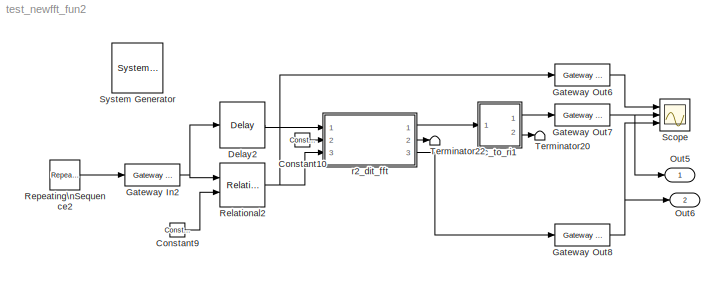
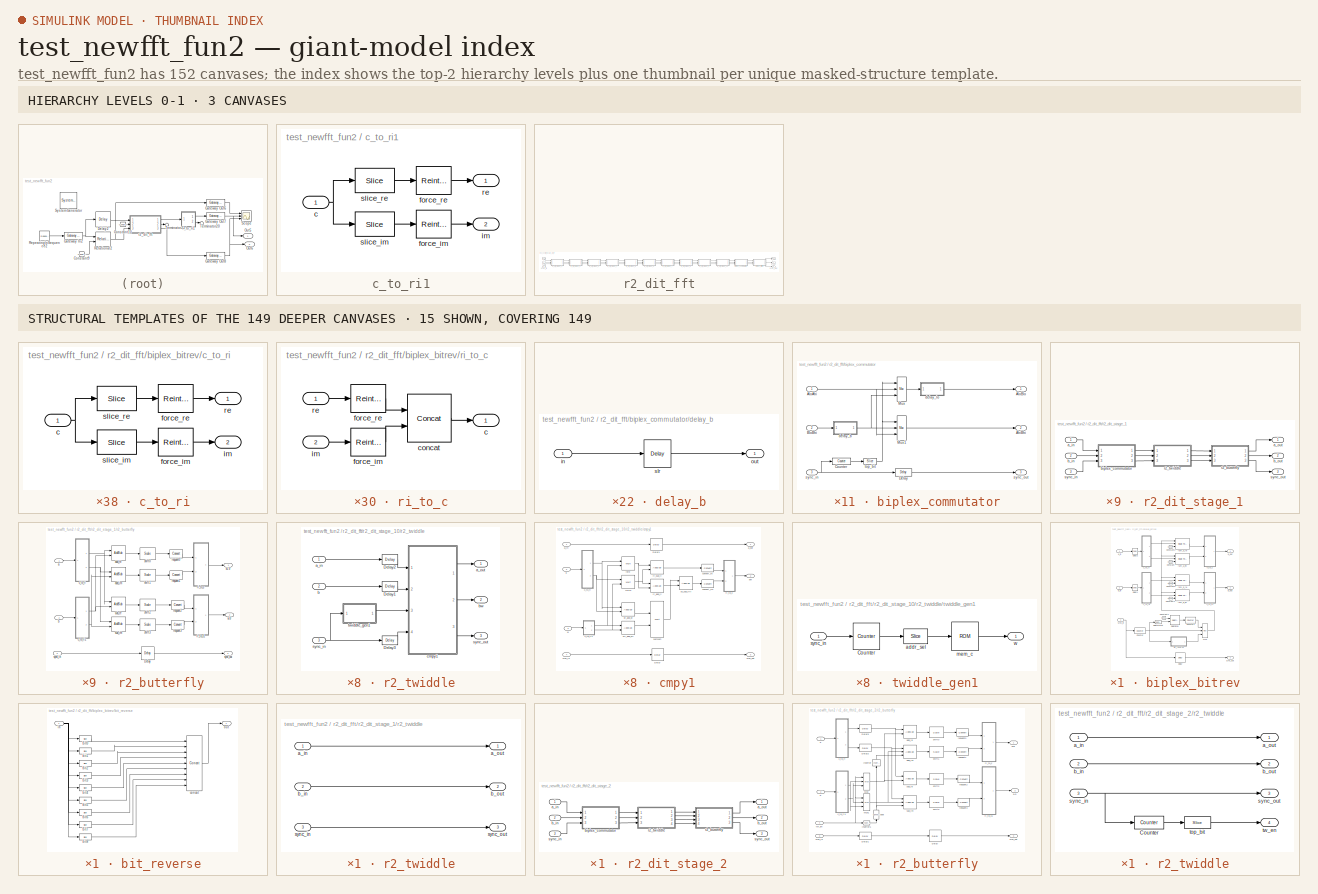
[diagram: thumbnail index - top-2 hierarchy levels (3 canvases) + 15 structural-template representatives of the remaining 149 canvases]
MODEL test_newfft_fun2
KIND model
BLOCK [Reference]  System Generator  REF=xbsIndex_r3/ System Generator
  AttributesFormatString = System\\nGenerator
  Ports = []
  ShowPortLabels = on
  SourceBlock = xbsIndex_r3/ System Generator
  SourceType = Xilinx System Generator
  Tag = genX
  UserData = DataTag0
  UserDataPersistent = on
  core_generation = According to Block Masks
  dbl_ovrd = According to Block Masks
  deprecated_control = off
  directory = ./netlist
  eval_field = 0
  incr_netlist = off
  package = bg575
  part = xc2v1000
  run_coregen = off
  simulink_period = 1
  speed = -4
  synthesis_tool = XST
  sysclk_period = 100
  testbench = off
  trim_vbits = Everywhere in SubSystem
  xilinxfamily = Virtex2
BLOCK [Reference] Constant10  REF=xbsIndex_r3/Constant
  Ports = [0, 1]
  SourceBlock = xbsIndex_r3/Constant
  SourceType = Xilinx Constant Block
  arith_type = Unsigned
  bin_pt = 0
  carry = CIN
  const = 0
  dbl_ovrd = off
  equ = P=C
  explicit_period = on
  inp1 = P
  inp2 = PCIN>>17
  iostate = 0
  n_bits = 16
  opr = +
  opselect = C
  period = 1
BLOCK [Reference] Constant9  REF=xbsIndex_r3/Constant
  Ports = [0, 1]
  SourceBlock = xbsIndex_r3/Constant
  SourceType = Xilinx Constant Block
  arith_type = Unsigned
  bin_pt = 0
  carry = CIN
  const = 0
  dbl_ovrd = off
  equ = P=C
  explicit_period = on
  inp1 = P
  inp2 = PCIN>>17
  iostate = 0
  n_bits = 16
  opr = +
  opselect = C
  period = 1
BLOCK [Reference] Delay2  REF=xbsIndex_r3/Delay
  Ports = [1, 1]
  SourceBlock = xbsIndex_r3/Delay
  SourceType = Xilinx Delay Block
  accept_only_valid = off
  dbl_ovrd = off
  en = off
  explicit_period = off
  init_zero = on
  latency = 2
  period = 1
  reg_retiming = off
  show_param = off
  xl_area = [0, 0, 0, 0, 0, 0, 0]
  xl_use_area = off
BLOCK [Reference] Gateway In2  REF=xbsIndex_r3/Gateway In
  LOCs = {}
  Ports = [1, 1]
  SourceBlock = xbsIndex_r3/Gateway In
  SourceType = Xilinx Gateway In
  arith_type = Unsigned
  bin_pt = 0
  dbl_ovrd = off
  locs_specified = off
  n_bits = 16
  needs_fixed_name = off
  overflow = Wrap
  period = 1
  quantization = Truncate
  show_param = off
  timing_constraint = None
  xl_area = [0, 0, 0, 0, 0, 0, 0]
  xl_use_area = off
BLOCK [Reference] Gateway Out6  REF=xbsIndex_r3/Gateway Out
  LOCs = {}
  Ports = [1, 1]
  SourceBlock = xbsIndex_r3/Gateway Out
  SourceType = Xilinx Gateway Out
  arith_type = Boolean
  bin_pt = 6
  hdl_port = on
  locs_specified = off
  nbits = 8
  needs_fixed_name = off
  output_type = Double
  overflow = Wrap
  quantization = Truncate
  show_param = off
  timing_constraint = None
  xl_area = [0, 0, 0, 0, 0, 0, 0]
  xl_use_area = off
BLOCK [Reference] Gateway Out7  REF=xbsIndex_r3/Gateway Out
  LOCs = {}
  Ports = [1, 1]
  SourceBlock = xbsIndex_r3/Gateway Out
  SourceType = Xilinx Gateway Out
  arith_type = Boolean
  bin_pt = 6
  hdl_port = on
  locs_specified = off
  nbits = 8
  needs_fixed_name = off
  output_type = Double
  overflow = Wrap
  quantization = Truncate
  show_param = off
  timing_constraint = None
  xl_area = [0, 0, 0, 0, 0, 0, 0]
  xl_use_area = off
BLOCK [Reference] Gateway Out8  REF=xbsIndex_r3/Gateway Out
  LOCs = {}
  Ports = [1, 1]
  SourceBlock = xbsIndex_r3/Gateway Out
  SourceType = Xilinx Gateway Out
  arith_type = Boolean
  bin_pt = 6
  hdl_port = on
  locs_specified = off
  nbits = 8
  needs_fixed_name = off
  output_type = Double
  overflow = Wrap
  quantization = Truncate
  show_param = off
  timing_constraint = None
  xl_area = [0, 0, 0, 0, 0, 0, 0]
  xl_use_area = off
BLOCK [Outport] Out5
  BusOutputAsStruct = off
  IconDisplay = Port number
BLOCK [Outport] Out6
  BusOutputAsStruct = off
  IconDisplay = Port number
  Port = 2
BLOCK [Reference] Relational2  REF=xbsIndex_r3/Relational
  Ports = [2, 1]
  SourceBlock = xbsIndex_r3/Relational
  SourceType = Xilinx Relational Block
  dbl_ovrd = off
  en = off
  explicit_period = off
  latency = 0
  mode = a!=b
  period = 1
  show_param = off
  xl_area = [0, 0, 0, 0, 0, 0, 0]
  xl_use_area = off
BLOCK [Reference] Repeating\nSequence2  REF=simulink/Sources/Repeating\nSequence
  Ports = [0, 1]
  ShowPortLabels = on
  SourceBlock = simulink/Sources/Repeating\nSequence
  SourceType = Repeating table
  rep_seq_t = [0:1024]
  rep_seq_y = [1 zeros(1,1023) 1]*hex2dec('7f00')
BLOCK [Scope] Scope
  DataFormat = StructureWithTime
  NumInputPorts = 3
  Ports = [3]
  YMax = 5~5~5
  YMin = -5~-5~-5
  ZoomMode = xonly
BLOCK [Terminator] Terminator20
BLOCK [Terminator] Terminator22
BLOCK [SubSystem] c_to_ri1
  AttributesFormatString = 18_7 r/i
  MaskCallbackString = |
  MaskDescription = Outputs real and imaginary components of a complex input.
  MaskEnableString = on,on
  MaskHelp = <pre>\nDescription::\n\nOutputs real and imaginary components of a complex input.\nUseful for simplifying interconnects.\nSee also: Real-Imag to Complex (ri_to_c)\n\nMask Parameters::\n\nBit Width (n_bits): Specifies the width of the real/imaginary components.\nAssumed equal for both components.\n\nBinary Point (bin_pt): Specifies the binary point location in the real/imaginary components.\nAssume...<+36ch>  <repeated x39 — deduplicated; at blocks: c_to_ri1, c_to_ri>
  MaskIconFrame = on
  MaskIconOpaque = on
  MaskIconRotate = none
  MaskIconUnits = autoscale
  MaskInitialization = c_to_ri_init(gcb,n_bits,bin_pt);
  MaskPromptString = Bit Width|Binary Point
  MaskSelfModifiable = on
  MaskStyleString = edit,edit
  MaskTabNameString = ,
  MaskToolTipString = on,on
  MaskTunableValueString = on,on
  MaskType = Complex to Real-Imag
  MaskValueString = 18|7
  MaskVarAliasString = ,
  MaskVariables = n_bits=@1;bin_pt=@2;
  MaskVisibilityString = on,on
  MinAlgLoopOccurrences = off
  Ports = [1, 2]
  RTWSystemCode = Auto
  TreatAsAtomicUnit = off
  UserData = DataTag1
  UserDataPersistent = on
BLOCK [Inport] c_to_ri1/c
  IconDisplay = Port number
  LatchInput = off
  Port = 1
BLOCK [Reference] c_to_ri1/force_im  REF=xbsIndex_r3/Reinterpret
  Ports = [1, 1]
  SourceBlock = xbsIndex_r3/Reinterpret
  SourceType = Xilinx Type Reinterpreting Block
  arith_type = Signed  (2's comp)
  bin_pt = 7
  force_arith_type = on
  force_bin_pt = on
  force_valid = on
BLOCK [Reference] c_to_ri1/force_re  REF=xbsIndex_r3/Reinterpret
  Ports = [1, 1]
  SourceBlock = xbsIndex_r3/Reinterpret
  SourceType = Xilinx Type Reinterpreting Block
  arith_type = Signed  (2's comp)
  bin_pt = 7
  force_arith_type = on
  force_bin_pt = on
  force_valid = on
BLOCK [Outport] c_to_ri1/im
  BusOutputAsStruct = off
  IconDisplay = Port number
  Port = 2
BLOCK [Outport] c_to_ri1/re
  BusOutputAsStruct = off
  IconDisplay = Port number
BLOCK [Reference] c_to_ri1/slice_im  REF=xbsIndex_r3/Slice
  Ports = [1, 1]
  SourceBlock = xbsIndex_r3/Slice
  SourceType = Xilinx Slice Block
  base0 = LSB of Input
  base1 = MSB of Input
  bit0 = 0
  bit1 = 0
  boolean_output = off
  dbl_ovrd = off
  explicit_period = off
  mode = Lower Bit Location + Width
  nbits = 18
  period = 1
BLOCK [Reference] c_to_ri1/slice_re  REF=xbsIndex_r3/Slice
  Ports = [1, 1]
  SourceBlock = xbsIndex_r3/Slice
  SourceType = Xilinx Slice Block
  base0 = LSB of Input
  base1 = MSB of Input
  bit0 = 0
  bit1 = 0
  boolean_output = off
  dbl_ovrd = off
  explicit_period = off
  mode = Upper Bit Location + Width
  nbits = 18
  period = 1
BLOCK [SubSystem] r2_dit_fft
  AncestorBlock = newfft_library/FFT/r2_dit_fft
  AttributesFormatString = 1024 points\n8_7 r/i in\n8_6 twiddles
  MaskCallbackString = |||||||||||mvs=get_param(gcb,'MaskVisibilityString');\nif strcmp(get_param(gcb,'show_sbo'),'on')\n  onoff='on';\nelse\n  onoff='off';\nend\nmvs=regexprep(mvs,'o[nf]*$',onoff);\nset_param(gcb,'MaskVisibilityString',mvs);\n|mvs=get_param(gcb,'MaskVisibilityString');\nif strcmp(get_param(gcb,'show_sbo'),'on')\n  onoff='on';\nelse\n  onoff='off';\nend\nmvs=regexprep(mvs,'o[nf]*$',onoff);\nset_param(gc...<+32ch>
  MaskDescription = A biplex radix-2 decimation-in-time Fast Fourier Transform.
  MaskEnableString = on,on,on,on,on,on,on,on,on,on,on,on,on
  MaskHelp = <pre>\nDescription::\n\nA biplex radix-2 decimation-in-time Fast Fourier Transform.\n\nThe two inputs to the biplex FFT are independent complex signals (e.g. A and B).\n\nWithout an output commutator, the two outputs of the FFT are commuted such that the a_out\nsignal is really the \"lower\" half of A's transform followed by the \"lower\" half of B's\ntransform and b_out is really the \"upper\" ha...<+3611ch>
  MaskIconFrame = on
  MaskIconOpaque = on
  MaskIconRotate = none
  MaskIconUnits = autoscale
  MaskInitialization = tic\nr2_dit_fft_init(gcb, ...\n  n_stages, ...\n  n_bits, ...\n  bin_pt, ...\n  shifts, ...\n  commutator_bram, ...\n  twiddle_bram, ...\n  n_bits_w, ...\n  mult_latency, ...\n  add_latency, ...\n  commute_output, ...\n  output_order, ...\n  lower(get_param(gcb,'munge_submasks')) );\ndisp('r2_dit_fft initialization complete.');\ntoc
  MaskPromptString = Total Stages|Number of Bits In|Binary Point In|Shifting Schedule|Number of Stages Using BRAM for Biplex Commutators (i.e. delays)|Number of Stages Using BRAM for Twiddle Coefficients|Twiddle Coefficient Bitwidth|Multiplier Latency|Adder Latency|Commute Output|Output Order|Show Sub-Block Options|Sub-Block Masks
  MaskSelfModifiable = on
  MaskStyleString = edit,edit,edit,edit,edit,edit,edit,edit,edit,popup(No|Yes (SLR16)|Yes (BRAM)),popup(Bit Reversed|Normal),checkbox,popup(Keep|DumbDown|Unmask)
  MaskTabNameString = ,,,,,,,,,,,,
  MaskToolTipString = on,on,on,on,on,on,on,on,on,on,on,on,on
  MaskTunableValueString = on,on,on,on,on,on,on,on,on,on,on,on,on
  MaskType = Biplex Radix-2 DIT FFT
  MaskValueString = 10|8|7|[0]|0|0|8|3|1|Yes (SLR16)|Normal|on|DumbDown
  MaskVarAliasString = ,,,,,,,,,,,,
  MaskVariables = n_stages=@1;n_bits=@2;bin_pt=@3;shifts=@4;commutator_bram=@5;twiddle_bram=@6;n_bits_w=@7;mult_latency=@8;add_latency=@9;commute_output=@10;output_order=@11;show_sbo=@12;munge_submasks=@13;
  MaskVisibilityString = on,on,on,on,on,on,on,on,on,on,on,on,on
  MinAlgLoopOccurrences = off
  Ports = [3, 3]
  RTWSystemCode = Auto
  TreatAsAtomicUnit = off
  UserData = DataTag2
  UserDataPersistent = on
BLOCK [Inport] r2_dit_fft/a_in
  IconDisplay = Port number
  LatchInput = off
  Port = 1
BLOCK [Outport] r2_dit_fft/a_out
  BusOutputAsStruct = off
  IconDisplay = Port number
BLOCK [Inport] r2_dit_fft/b_in
  IconDisplay = Port number
  LatchInput = off
  Port = 2
BLOCK [Outport] r2_dit_fft/b_out
  BusOutputAsStruct = off
  IconDisplay = Port number
  Port = 2
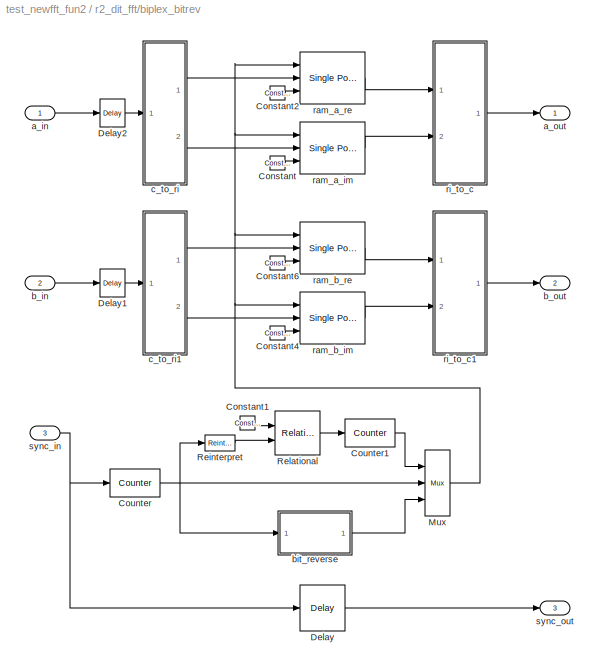
BLOCK [SubSystem] r2_dit_fft/biplex_bitrev
  AttributesFormatString = size = 512
  MaskCallbackString = |
  MaskDescription = Reorders the input sequence from normal order to bit reverse order (or vise versa).
  MaskEnableString = off,off
  MaskHelp = <pre>\nDescription::\n\nReorders the input sequence from normal order to bit reverse order (or vise versa).\n\nMask Parameters::\n\nLog 2 Block Size (log2_size): The base-2 logarithm of the length of one complete input block.\nThis MUST be an integer because the current implementation requires that\nthe input block size MUST be a power of 2.  (aka \"N\")\n\nNumber of Bits (n_bits): Specifies the w...<+89ch>
  MaskIconFrame = on
  MaskIconOpaque = on
  MaskIconRotate = none
  MaskIconUnits = autoscale
  MaskPromptString = Log2 Block Size|Number of Bits
  MaskSelfModifiable = on
  MaskStyleString = edit,edit
  MaskTabNameString = ,
  MaskToolTipString = on,on
  MaskTunableValueString = off,off
  MaskType = Biplex Bit Reverse Reorder
  MaskValueString = 9|18
  MaskVarAliasString = ,
  MaskVariables = log2_size=&1;n_bits=&2;
  MaskVisibilityString = on,on
  MinAlgLoopOccurrences = off
  Ports = [3, 3]
  RTWSystemCode = Auto
  TreatAsAtomicUnit = off
  UserData = DataTag3
  UserDataPersistent = on
BLOCK [Reference] r2_dit_fft/biplex_bitrev/Constant  REF=xbsIndex_r3/Constant
  Ports = [0, 1]
  SourceBlock = xbsIndex_r3/Constant
  SourceType = Xilinx Constant Block
  arith_type = Boolean
  bin_pt = 0
  carry = CIN
  const = 1
  dbl_ovrd = off
  equ = P=C
  explicit_period = on
  inp1 = P
  inp2 = PCIN>>17
  iostate = 0
  n_bits = 1
  opr = +
  opselect = C
  period = 1
BLOCK [Reference] r2_dit_fft/biplex_bitrev/Constant1  REF=xbsIndex_r3/Constant
  Ports = [0, 1]
  SourceBlock = xbsIndex_r3/Constant
  SourceType = Xilinx Constant Block
  arith_type = Signed  (2's comp)
  bin_pt = 0
  carry = CIN
  const = -1
  dbl_ovrd = off
  equ = P=C
  explicit_period = on
  inp1 = P
  inp2 = PCIN>>17
  iostate = 0
  n_bits = 1
  opr = +
  opselect = C
  period = 1
BLOCK [Reference] r2_dit_fft/biplex_bitrev/Constant2  REF=xbsIndex_r3/Constant
  Ports = [0, 1]
  SourceBlock = xbsIndex_r3/Constant
  SourceType = Xilinx Constant Block
  arith_type = Boolean
  bin_pt = 0
  carry = CIN
  const = 1
  dbl_ovrd = off
  equ = P=C
  explicit_period = on
  inp1 = P
  inp2 = PCIN>>17
  iostate = 0
  n_bits = 1
  opr = +
  opselect = C
  period = 1
BLOCK [Reference] r2_dit_fft/biplex_bitrev/Constant4  REF=xbsIndex_r3/Constant
  Ports = [0, 1]
  SourceBlock = xbsIndex_r3/Constant
  SourceType = Xilinx Constant Block
  arith_type = Boolean
  bin_pt = 0
  carry = CIN
  const = 1
  dbl_ovrd = off
  equ = P=C
  explicit_period = on
  inp1 = P
  inp2 = PCIN>>17
  iostate = 0
  n_bits = 1
  opr = +
  opselect = C
  period = 1
BLOCK [Reference] r2_dit_fft/biplex_bitrev/Constant6  REF=xbsIndex_r3/Constant
  Ports = [0, 1]
  SourceBlock = xbsIndex_r3/Constant
  SourceType = Xilinx Constant Block
  arith_type = Boolean
  bin_pt = 0
  carry = CIN
  const = 1
  dbl_ovrd = off
  equ = P=C
  explicit_period = on
  inp1 = P
  inp2 = PCIN>>17
  iostate = 0
  n_bits = 1
  opr = +
  opselect = C
  period = 1
BLOCK [Reference] r2_dit_fft/biplex_bitrev/Counter  REF=xbsIndex_r3/Counter
  Ports = [1, 1]
  SourceBlock = xbsIndex_r3/Counter
  SourceType = Xilinx Counter Block
  arith_type = Unsigned
  bin_pt = 0
  cnt_by_val = 1
  cnt_to = Inf
  cnt_type = Free Running
  dbl_ovrd = off
  en = off
  explicit_period = off
  gen_core = off
  load_pin = off
  n_bits = 9
  operation = Up
  period = 1
  rst = on
  show_param = off
  start_count = 0
  use_rpm = on
  xl_area = [0, 0, 0, 0, 0, 0, 0]
  xl_use_area = off
BLOCK [Reference] r2_dit_fft/biplex_bitrev/Counter1  REF=xbsIndex_r3/Counter
  Ports = [1, 1]
  SourceBlock = xbsIndex_r3/Counter
  SourceType = Xilinx Counter Block
  arith_type = Unsigned
  bin_pt = 0
  cnt_by_val = 1
  cnt_to = Inf
  cnt_type = Free Running
  dbl_ovrd = off
  en = on
  explicit_period = off
  gen_core = off
  load_pin = off
  n_bits = 1
  operation = Up
  period = 1
  rst = off
  show_param = off
  start_count = 0
  use_rpm = on
  xl_area = [0, 0, 0, 0, 0, 0, 0]
  xl_use_area = off
BLOCK [Reference] r2_dit_fft/biplex_bitrev/Delay  REF=xbsIndex_r3/Delay
  Ports = [1, 1]
  SourceBlock = xbsIndex_r3/Delay
  SourceType = Xilinx Delay Block
  accept_only_valid = off
  dbl_ovrd = off
  en = off
  explicit_period = off
  init_zero = on
  latency = 514
  period = 1
  reg_retiming = off
  show_param = off
  xl_area = [0, 0, 0, 0, 0, 0, 0]
  xl_use_area = off
BLOCK [Reference] r2_dit_fft/biplex_bitrev/Delay1  REF=xbsIndex_r3/Delay
  Ports = [1, 1]
  SourceBlock = xbsIndex_r3/Delay
  SourceType = Xilinx Delay Block
  accept_only_valid = off
  dbl_ovrd = off
  en = off
  explicit_period = off
  init_zero = on
  latency = 1
  period = 1
  reg_retiming = off
  show_param = off
  xl_area = [0, 0, 0, 0, 0, 0, 0]
  xl_use_area = off
BLOCK [Reference] r2_dit_fft/biplex_bitrev/Delay2  REF=xbsIndex_r3/Delay
  Ports = [1, 1]
  SourceBlock = xbsIndex_r3/Delay
  SourceType = Xilinx Delay Block
  accept_only_valid = off
  dbl_ovrd = off
  en = off
  explicit_period = off
  init_zero = on
  latency = 1
  period = 1
  reg_retiming = off
  show_param = off
  xl_area = [0, 0, 0, 0, 0, 0, 0]
  xl_use_area = off
BLOCK [Reference] r2_dit_fft/biplex_bitrev/Mux  REF=xbsIndex_r3/Mux
  Ports = [3, 1]
  SourceBlock = xbsIndex_r3/Mux
  SourceType = Xilinx Multiplexer Block
  arith_type = Signed  (2's comp)
  bin_pt = 2
  dbl_ovrd = off
  en = off
  explicit_period = off
  gen_core = off
  inputs = 2
  latency = 1
  mux_type = off
  n_bits = 8
  overflow = Wrap
  period = 1
  precision = Full
  quantization = Truncate
  show_param = off
  use_rpm = off
  xl_area = [0, 0, 0, 0, 0, 0, 0]
  xl_use_area = off
BLOCK [Reference] r2_dit_fft/biplex_bitrev/Reinterpret  REF=xbsIndex_r3/Reinterpret
  Ports = [1, 1]
  SourceBlock = xbsIndex_r3/Reinterpret
  SourceType = Xilinx Type Reinterpreting Block
  arith_type = Signed  (2's comp)
  bin_pt = 0
  force_arith_type = on
  force_bin_pt = off
  force_valid = on
BLOCK [Reference] r2_dit_fft/biplex_bitrev/Relational  REF=xbsIndex_r3/Relational
  Ports = [2, 1]
  SourceBlock = xbsIndex_r3/Relational
  SourceType = Xilinx Relational Block
  dbl_ovrd = off
  en = off
  explicit_period = off
  latency = 1
  mode = a=b
  period = 1
  show_param = off
  xl_area = [0, 0, 0, 0, 0, 0, 0]
  xl_use_area = off
BLOCK [Inport] r2_dit_fft/biplex_bitrev/a_in
  IconDisplay = Port number
  LatchInput = off
  Port = 1
BLOCK [Outport] r2_dit_fft/biplex_bitrev/a_out
  BusOutputAsStruct = off
  IconDisplay = Port number
BLOCK [Inport] r2_dit_fft/biplex_bitrev/b_in
  IconDisplay = Port number
  LatchInput = off
  Port = 2
BLOCK [Outport] r2_dit_fft/biplex_bitrev/b_out
  BusOutputAsStruct = off
  IconDisplay = Port number
  Port = 2
BLOCK [SubSystem] r2_dit_fft/biplex_bitrev/bit_reverse
  AttributesFormatString = 9 bits
  MaskDescription = Reverses the bit order of the input.  Input must be unsigned with binary point at position 0.  Costs nothing in hardware.
  MaskEnableString = off
  MaskHelp = <pre>\nDescription::\n\nReverses the bit order of the input.\n\nInput must be unsigned with binary point at position 0.\n\nCosts nothing in hardware.\n\nMask Parameters::\n\nNumber of Bits (n_bits): Specifies the width of the input.\n</pre>
  MaskIconFrame = on
  MaskIconOpaque = on
  MaskIconRotate = none
  MaskIconUnits = autoscale
  MaskPromptString = Number of Bits
  MaskSelfModifiable = on
  MaskStyleString = edit
  MaskToolTipString = on
  MaskTunableValueString = off
  MaskType = Bit Reversal
  MaskValueString = 9
  MaskVariables = n_bits=&1;
  MaskVisibilityString = on
  MinAlgLoopOccurrences = off
  Ports = [1, 1]
  RTWSystemCode = Auto
  TreatAsAtomicUnit = off
  UserData = DataTag4
  UserDataPersistent = on
BLOCK [Reference] r2_dit_fft/biplex_bitrev/bit_reverse/bit0  REF=xbsIndex_r3/Slice
  Ports = [1, 1]
  SourceBlock = xbsIndex_r3/Slice
  SourceType = Xilinx Slice Block
  base0 = LSB of Input
  base1 = MSB of Input
  bit0 = 0
  bit1 = 0
  boolean_output = off
  dbl_ovrd = off
  explicit_period = off
  mode = Lower Bit Location + Width
  nbits = 1
  period = 1
BLOCK [Reference] r2_dit_fft/biplex_bitrev/bit_reverse/bit1  REF=xbsIndex_r3/Slice
  Ports = [1, 1]
  SourceBlock = xbsIndex_r3/Slice
  SourceType = Xilinx Slice Block
  base0 = LSB of Input
  base1 = MSB of Input
  bit0 = 1
  bit1 = 0
  boolean_output = off
  dbl_ovrd = off
  explicit_period = off
  mode = Lower Bit Location + Width
  nbits = 1
  period = 1
BLOCK [Reference] r2_dit_fft/biplex_bitrev/bit_reverse/bit2  REF=xbsIndex_r3/Slice
  Ports = [1, 1]
  SourceBlock = xbsIndex_r3/Slice
  SourceType = Xilinx Slice Block
  base0 = LSB of Input
  base1 = MSB of Input
  bit0 = 2
  bit1 = 0
  boolean_output = off
  dbl_ovrd = off
  explicit_period = off
  mode = Lower Bit Location + Width
  nbits = 1
  period = 1
BLOCK [Reference] r2_dit_fft/biplex_bitrev/bit_reverse/bit3  REF=xbsIndex_r3/Slice
  Ports = [1, 1]
  SourceBlock = xbsIndex_r3/Slice
  SourceType = Xilinx Slice Block
  base0 = LSB of Input
  base1 = MSB of Input
  bit0 = 3
  bit1 = 0
  boolean_output = off
  dbl_ovrd = off
  explicit_period = off
  mode = Lower Bit Location + Width
  nbits = 1
  period = 1
BLOCK [Reference] r2_dit_fft/biplex_bitrev/bit_reverse/bit4  REF=xbsIndex_r3/Slice
  Ports = [1, 1]
  SourceBlock = xbsIndex_r3/Slice
  SourceType = Xilinx Slice Block
  base0 = LSB of Input
  base1 = MSB of Input
  bit0 = 4
  bit1 = 0
  boolean_output = off
  dbl_ovrd = off
  explicit_period = off
  mode = Lower Bit Location + Width
  nbits = 1
  period = 1
BLOCK [Reference] r2_dit_fft/biplex_bitrev/bit_reverse/bit5  REF=xbsIndex_r3/Slice
  Ports = [1, 1]
  SourceBlock = xbsIndex_r3/Slice
  SourceType = Xilinx Slice Block
  base0 = LSB of Input
  base1 = MSB of Input
  bit0 = 5
  bit1 = 0
  boolean_output = off
  dbl_ovrd = off
  explicit_period = off
  mode = Lower Bit Location + Width
  nbits = 1
  period = 1
BLOCK [Reference] r2_dit_fft/biplex_bitrev/bit_reverse/bit6  REF=xbsIndex_r3/Slice
  Ports = [1, 1]
  SourceBlock = xbsIndex_r3/Slice
  SourceType = Xilinx Slice Block
  base0 = LSB of Input
  base1 = MSB of Input
  bit0 = 6
  bit1 = 0
  boolean_output = off
  dbl_ovrd = off
  explicit_period = off
  mode = Lower Bit Location + Width
  nbits = 1
  period = 1
BLOCK [Reference] r2_dit_fft/biplex_bitrev/bit_reverse/bit7  REF=xbsIndex_r3/Slice
  Ports = [1, 1]
  SourceBlock = xbsIndex_r3/Slice
  SourceType = Xilinx Slice Block
  base0 = LSB of Input
  base1 = MSB of Input
  bit0 = 7
  bit1 = 0
  boolean_output = off
  dbl_ovrd = off
  explicit_period = off
  mode = Lower Bit Location + Width
  nbits = 1
  period = 1
BLOCK [Reference] r2_dit_fft/biplex_bitrev/bit_reverse/bit8  REF=xbsIndex_r3/Slice
  Ports = [1, 1]
  SourceBlock = xbsIndex_r3/Slice
  SourceType = Xilinx Slice Block
  base0 = LSB of Input
  base1 = MSB of Input
  bit0 = 8
  bit1 = 0
  boolean_output = off
  dbl_ovrd = off
  explicit_period = off
  mode = Lower Bit Location + Width
  nbits = 1
  period = 1
BLOCK [Reference] r2_dit_fft/biplex_bitrev/bit_reverse/concat  REF=xbsIndex_r3/Concat
  Ports = [9, 1]
  SourceBlock = xbsIndex_r3/Concat
  SourceType = Xilinx Bus Concatenator
  dbl_ovrd = off
  explicit_period = off
  num_inputs = 9
  period = 1
BLOCK [Inport] r2_dit_fft/biplex_bitrev/bit_reverse/in
  IconDisplay = Port number
  LatchInput = off
  Port = 1
BLOCK [Outport] r2_dit_fft/biplex_bitrev/bit_reverse/out
  BusOutputAsStruct = off
  IconDisplay = Port number
BLOCK [SubSystem] r2_dit_fft/biplex_bitrev/c_to_ri
  AttributesFormatString = 18_0 r/i
  MaskCallbackString = |
  MaskDescription = Outputs real and imaginary components of a complex input.
  MaskEnableString = off,off
  MaskIconFrame = on
  MaskIconOpaque = on
  MaskIconRotate = none
  MaskIconUnits = autoscale
  MaskPromptString = Bit Width|Binary Point
  MaskSelfModifiable = on
  MaskStyleString = edit,edit
  MaskTabNameString = ,
  MaskToolTipString = on,on
  MaskTunableValueString = off,off
  MaskType = Complex to Real-Imag
  MaskValueString = 18|0
  MaskVarAliasString = ,
  MaskVariables = n_bits=&1;bin_pt=&2;
  MaskVisibilityString = on,on
  MinAlgLoopOccurrences = off
  Ports = [1, 2]
  RTWSystemCode = Auto
  TreatAsAtomicUnit = off
  UserData = DataTag5
  UserDataPersistent = on
BLOCK [Inport] r2_dit_fft/biplex_bitrev/c_to_ri/c
  IconDisplay = Port number
  LatchInput = off
  Port = 1
BLOCK [Reference] r2_dit_fft/biplex_bitrev/c_to_ri/force_im  REF=xbsIndex_r3/Reinterpret
  Ports = [1, 1]
  SourceBlock = xbsIndex_r3/Reinterpret
  SourceType = Xilinx Type Reinterpreting Block
  arith_type = Signed  (2's comp)
  bin_pt = 0
  force_arith_type = on
  force_bin_pt = on
  force_valid = on
BLOCK [Reference] r2_dit_fft/biplex_bitrev/c_to_ri/force_re  REF=xbsIndex_r3/Reinterpret
  Ports = [1, 1]
  SourceBlock = xbsIndex_r3/Reinterpret
  SourceType = Xilinx Type Reinterpreting Block
  arith_type = Signed  (2's comp)
  bin_pt = 0
  force_arith_type = on
  force_bin_pt = on
  force_valid = on
BLOCK [Outport] r2_dit_fft/biplex_bitrev/c_to_ri/im
  BusOutputAsStruct = off
  IconDisplay = Port number
  Port = 2
BLOCK [Outport] r2_dit_fft/biplex_bitrev/c_to_ri/re
  BusOutputAsStruct = off
  IconDisplay = Port number
BLOCK [Reference] r2_dit_fft/biplex_bitrev/c_to_ri/slice_im  REF=xbsIndex_r3/Slice
  Ports = [1, 1]
  SourceBlock = xbsIndex_r3/Slice
  SourceType = Xilinx Slice Block
  base0 = LSB of Input
  base1 = MSB of Input
  bit0 = 0
  bit1 = 0
  boolean_output = off
  dbl_ovrd = off
  explicit_period = off
  mode = Lower Bit Location + Width
  nbits = 18
  period = 1
BLOCK [Reference] r2_dit_fft/biplex_bitrev/c_to_ri/slice_re  REF=xbsIndex_r3/Slice
  Ports = [1, 1]
  SourceBlock = xbsIndex_r3/Slice
  SourceType = Xilinx Slice Block
  base0 = LSB of Input
  base1 = MSB of Input
  bit0 = 0
  bit1 = 0
  boolean_output = off
  dbl_ovrd = off
  explicit_period = off
  mode = Upper Bit Location + Width
  nbits = 18
  period = 1
BLOCK [SubSystem] r2_dit_fft/biplex_bitrev/c_to_ri1
  AttributesFormatString = 18_0 r/i
  MaskCallbackString = |
  MaskDescription = Outputs real and imaginary components of a complex input.
  MaskEnableString = off,off
  MaskIconFrame = on
  MaskIconOpaque = on
  MaskIconRotate = none
  MaskIconUnits = autoscale
  MaskPromptString = Bit Width|Binary Point
  MaskSelfModifiable = on
  MaskStyleString = edit,edit
  MaskTabNameString = ,
  MaskToolTipString = on,on
  MaskTunableValueString = off,off
  MaskType = Complex to Real-Imag
  MaskValueString = 18|0
  MaskVarAliasString = ,
  MaskVariables = n_bits=&1;bin_pt=&2;
  MaskVisibilityString = on,on
  MinAlgLoopOccurrences = off
  Ports = [1, 2]
  RTWSystemCode = Auto
  TreatAsAtomicUnit = off
  UserData = DataTag6
  UserDataPersistent = on
BLOCK [Inport] r2_dit_fft/biplex_bitrev/c_to_ri1/c
  IconDisplay = Port number
  LatchInput = off
  Port = 1
BLOCK [Reference] r2_dit_fft/biplex_bitrev/c_to_ri1/force_im  REF=xbsIndex_r3/Reinterpret
  Ports = [1, 1]
  SourceBlock = xbsIndex_r3/Reinterpret
  SourceType = Xilinx Type Reinterpreting Block
  arith_type = Signed  (2's comp)
  bin_pt = 0
  force_arith_type = on
  force_bin_pt = on
  force_valid = on
BLOCK [Reference] r2_dit_fft/biplex_bitrev/c_to_ri1/force_re  REF=xbsIndex_r3/Reinterpret
  Ports = [1, 1]
  SourceBlock = xbsIndex_r3/Reinterpret
  SourceType = Xilinx Type Reinterpreting Block
  arith_type = Signed  (2's comp)
  bin_pt = 0
  force_arith_type = on
  force_bin_pt = on
  force_valid = on
BLOCK [Outport] r2_dit_fft/biplex_bitrev/c_to_ri1/im
  BusOutputAsStruct = off
  IconDisplay = Port number
  Port = 2
BLOCK [Outport] r2_dit_fft/biplex_bitrev/c_to_ri1/re
  BusOutputAsStruct = off
  IconDisplay = Port number
BLOCK [Reference] r2_dit_fft/biplex_bitrev/c_to_ri1/slice_im  REF=xbsIndex_r3/Slice
  Ports = [1, 1]
  SourceBlock = xbsIndex_r3/Slice
  SourceType = Xilinx Slice Block
  base0 = LSB of Input
  base1 = MSB of Input
  bit0 = 0
  bit1 = 0
  boolean_output = off
  dbl_ovrd = off
  explicit_period = off
  mode = Lower Bit Location + Width
  nbits = 18
  period = 1
BLOCK [Reference] r2_dit_fft/biplex_bitrev/c_to_ri1/slice_re  REF=xbsIndex_r3/Slice
  Ports = [1, 1]
  SourceBlock = xbsIndex_r3/Slice
  SourceType = Xilinx Slice Block
  base0 = LSB of Input
  base1 = MSB of Input
  bit0 = 0
  bit1 = 0
  boolean_output = off
  dbl_ovrd = off
  explicit_period = off
  mode = Upper Bit Location + Width
  nbits = 18
  period = 1
BLOCK [Reference] r2_dit_fft/biplex_bitrev/ram_a_im  REF=xbsIndex_r3/Single Port RAM
  Ports = [3, 1]
  SourceBlock = xbsIndex_r3/Single Port RAM
  SourceType = Xilinx Single Port Random Access Memory
  dbl_ovrd = off
  depth = 512
  distributed_mem = off
  en = off
  explicit_period = off
  gen_core = off
  initVector = 0
  init_reg = 0
  init_zero = on
  latency = 1
  period = 1
  rst = off
  show_param = on
  use_rpm = off
  write_mode = Read Before Write
  xl_area = [0, 0, 0, 0, 0, 0, 0]
  xl_use_area = off
BLOCK [Reference] r2_dit_fft/biplex_bitrev/ram_a_re  REF=xbsIndex_r3/Single Port RAM
  Ports = [3, 1]
  SourceBlock = xbsIndex_r3/Single Port RAM
  SourceType = Xilinx Single Port Random Access Memory
  dbl_ovrd = off
  depth = 512
  distributed_mem = off
  en = off
  explicit_period = off
  gen_core = off
  initVector = 0
  init_reg = 0
  init_zero = on
  latency = 1
  period = 1
  rst = off
  show_param = on
  use_rpm = off
  write_mode = Read Before Write
  xl_area = [0, 0, 0, 0, 0, 0, 0]
  xl_use_area = off
BLOCK [Reference] r2_dit_fft/biplex_bitrev/ram_b_im  REF=xbsIndex_r3/Single Port RAM
  Ports = [3, 1]
  SourceBlock = xbsIndex_r3/Single Port RAM
  SourceType = Xilinx Single Port Random Access Memory
  dbl_ovrd = off
  depth = 512
  distributed_mem = off
  en = off
  explicit_period = off
  gen_core = off
  initVector = 0
  init_reg = 0
  init_zero = on
  latency = 1
  period = 1
  rst = off
  show_param = on
  use_rpm = off
  write_mode = Read Before Write
  xl_area = [0, 0, 0, 0, 0, 0, 0]
  xl_use_area = off
BLOCK [Reference] r2_dit_fft/biplex_bitrev/ram_b_re  REF=xbsIndex_r3/Single Port RAM
  Ports = [3, 1]
  SourceBlock = xbsIndex_r3/Single Port RAM
  SourceType = Xilinx Single Port Random Access Memory
  dbl_ovrd = off
  depth = 512
  distributed_mem = off
  en = off
  explicit_period = off
  gen_core = off
  initVector = 0
  init_reg = 0
  init_zero = on
  latency = 1
  period = 1
  rst = off
  show_param = on
  use_rpm = off
  write_mode = Read Before Write
  xl_area = [0, 0, 0, 0, 0, 0, 0]
  xl_use_area = off
BLOCK [SubSystem] r2_dit_fft/biplex_bitrev/ri_to_c
  MaskDescription = Concatenates real and imaginary inputs into a complex output.
  MaskHelp = <pre>\nDescription::\n\nConcatenates a real and imaginary input into a complex output.\nUseful for simplifying interconnects.\nSee also: Complex to Real-Imag (c_to_ri)\n\nMask Parameters::\n\n(N/A)\n</pre>  <repeated x30 — deduplicated; at blocks: ri_to_c, ri_to_c1>
  MaskIconFrame = on
  MaskIconOpaque = on
  MaskIconRotate = none
  MaskIconUnits = autoscale
  MaskSelfModifiable = on
  MaskType = Real-Imag to Complex
  MinAlgLoopOccurrences = off
  Ports = [2, 1]
  RTWSystemCode = Auto
  TreatAsAtomicUnit = off
  UserData = DataTag7
  UserDataPersistent = on
BLOCK [Outport] r2_dit_fft/biplex_bitrev/ri_to_c/c
  BusOutputAsStruct = off
  IconDisplay = Port number
BLOCK [Reference] r2_dit_fft/biplex_bitrev/ri_to_c/concat  REF=xbsIndex_r3/Concat
  Ports = [2, 1]
  SourceBlock = xbsIndex_r3/Concat
  SourceType = Xilinx Bus Concatenator
  dbl_ovrd = off
  explicit_period = off
  num_inputs = 2
  period = 1
BLOCK [Reference] r2_dit_fft/biplex_bitrev/ri_to_c/force_im  REF=xbsIndex_r3/Reinterpret
  Ports = [1, 1]
  SourceBlock = xbsIndex_r3/Reinterpret
  SourceType = Xilinx Type Reinterpreting Block
  arith_type = Unsigned
  bin_pt = 0
  force_arith_type = on
  force_bin_pt = on
  force_valid = on
BLOCK [Reference] r2_dit_fft/biplex_bitrev/ri_to_c/force_re  REF=xbsIndex_r3/Reinterpret
  Ports = [1, 1]
  SourceBlock = xbsIndex_r3/Reinterpret
  SourceType = Xilinx Type Reinterpreting Block
  arith_type = Unsigned
  bin_pt = 0
  force_arith_type = on
  force_bin_pt = on
  force_valid = on
BLOCK [Inport] r2_dit_fft/biplex_bitrev/ri_to_c/im
  IconDisplay = Port number
  LatchInput = off
  Port = 2
BLOCK [Inport] r2_dit_fft/biplex_bitrev/ri_to_c/re
  IconDisplay = Port number
  LatchInput = off
  Port = 1
BLOCK [SubSystem] r2_dit_fft/biplex_bitrev/ri_to_c1
  MaskDescription = Concatenates real and imaginary inputs into a complex output.
  MaskIconFrame = on
  MaskIconOpaque = on
  MaskIconRotate = none
  MaskIconUnits = autoscale
  MaskSelfModifiable = on
  MaskType = Real-Imag to Complex
  MinAlgLoopOccurrences = off
  Ports = [2, 1]
  RTWSystemCode = Auto
  TreatAsAtomicUnit = off
  UserData = DataTag8
  UserDataPersistent = on
BLOCK [Outport] r2_dit_fft/biplex_bitrev/ri_to_c1/c
  BusOutputAsStruct = off
  IconDisplay = Port number
BLOCK [Reference] r2_dit_fft/biplex_bitrev/ri_to_c1/concat  REF=xbsIndex_r3/Concat
  Ports = [2, 1]
  SourceBlock = xbsIndex_r3/Concat
  SourceType = Xilinx Bus Concatenator
  dbl_ovrd = off
  explicit_period = off
  num_inputs = 2
  period = 1
BLOCK [Reference] r2_dit_fft/biplex_bitrev/ri_to_c1/force_im  REF=xbsIndex_r3/Reinterpret
  Ports = [1, 1]
  SourceBlock = xbsIndex_r3/Reinterpret
  SourceType = Xilinx Type Reinterpreting Block
  arith_type = Unsigned
  bin_pt = 0
  force_arith_type = on
  force_bin_pt = on
  force_valid = on
BLOCK [Reference] r2_dit_fft/biplex_bitrev/ri_to_c1/force_re  REF=xbsIndex_r3/Reinterpret
  Ports = [1, 1]
  SourceBlock = xbsIndex_r3/Reinterpret
  SourceType = Xilinx Type Reinterpreting Block
  arith_type = Unsigned
  bin_pt = 0
  force_arith_type = on
  force_bin_pt = on
  force_valid = on
BLOCK [Inport] r2_dit_fft/biplex_bitrev/ri_to_c1/im
  IconDisplay = Port number
  LatchInput = off
  Port = 2
BLOCK [Inport] r2_dit_fft/biplex_bitrev/ri_to_c1/re
  IconDisplay = Port number
  LatchInput = off
  Port = 1
BLOCK [Inport] r2_dit_fft/biplex_bitrev/sync_in
  IconDisplay = Port number
  LatchInput = off
  Port = 3
BLOCK [Outport] r2_dit_fft/biplex_bitrev/sync_out
  BusOutputAsStruct = off
  IconDisplay = Port number
  Port = 3
BLOCK [SubSystem] r2_dit_fft/biplex_commutator
  AttributesFormatString = size = 1024\ndelay slr
  MaskCallbackString = ||
  MaskDescription = The biplex commutator commutes the first half of the BloBhi input \"block\"  with the last half of the AloAhi input \"block\".  A \"block\" is 2^log2_size consecutive samples (i.e. always a power of 2).  sync_in precedes the first data input sample by one clock cycle.  Overall latency from sync_in to sync_out is 2^(log2_size-1)+1.  <repeated x11 — deduplicated; at blocks: biplex_commutator>
  MaskEnableString = off,off,off
  MaskHelp = <pre>\nDescription::\n\nThe biplex commutator commutes the first half of the BloBhi input \"block\"  with the last half\nof the AloAhi input \"block\".  A \"block\" is 2^log2_size consecutive samples (i.e. always a\npower of 2).\n\nsync_in precedes the first data input sample by one clock cycle.\nsync_out precedes the corresponding output sample by one clock cycle.\nOverall latency from sync_in to...<+566ch>  <repeated x11 — deduplicated; at blocks: biplex_commutator>
  MaskIconFrame = on
  MaskIconOpaque = on
  MaskIconRotate = none
  MaskIconUnits = autoscale
  MaskPromptString = Log2 Block Size|Bit Width|Use BRAM
  MaskSelfModifiable = on
  MaskStyleString = edit,edit,checkbox
  MaskTabNameString = ,,
  MaskToolTipString = on,on,on
  MaskTunableValueString = off,off,off
  MaskType = Biplex Commutator
  MaskValueString = 10|18|off
  MaskVarAliasString = ,,
  MaskVariables = log2_size=&1;n_bits=&2;use_bram=&3;
  MaskVisibilityString = on,on,on
  MinAlgLoopOccurrences = off
  Ports = [3, 3]
  RTWSystemCode = Auto
  TreatAsAtomicUnit = off
  UserData = DataTag9
  UserDataPersistent = on
BLOCK [Outport] r2_dit_fft/biplex_commutator/AhiBhi
  BusOutputAsStruct = off
  IconDisplay = Port number
  Port = 2
BLOCK [Inport] r2_dit_fft/biplex_commutator/AloAhi
  IconDisplay = Port number
  LatchInput = off
  Port = 1
BLOCK [Outport] r2_dit_fft/biplex_commutator/AloBlo
  BusOutputAsStruct = off
  IconDisplay = Port number
BLOCK [Inport] r2_dit_fft/biplex_commutator/BloBhi
  IconDisplay = Port number
  LatchInput = off
  Port = 2
BLOCK [Reference] r2_dit_fft/biplex_commutator/Counter  REF=xbsIndex_r3/Counter
  Ports = [1, 1]
  SourceBlock = xbsIndex_r3/Counter
  SourceType = Xilinx Counter Block
  arith_type = Unsigned
  bin_pt = 0
  cnt_by_val = 1
  cnt_to = Inf
  cnt_type = Free Running
  dbl_ovrd = off
  en = off
  explicit_period = off
  gen_core = off
  load_pin = off
  n_bits = 10
  operation = Up
  period = 1
  rst = on
  show_param = off
  start_count = 0
  use_rpm = on
  xl_area = [0, 0, 0, 0, 0, 0, 0]
  xl_use_area = off
BLOCK [Reference] r2_dit_fft/biplex_commutator/Delay  REF=xbsIndex_r3/Delay
  Ports = [1, 1]
  SourceBlock = xbsIndex_r3/Delay
  SourceType = Xilinx Delay Block
  accept_only_valid = off
  dbl_ovrd = off
  en = off
  explicit_period = off
  init_zero = on
  latency = 513
  period = 1
  reg_retiming = off
  show_param = off
  xl_area = [0, 0, 0, 0, 0, 0, 0]
  xl_use_area = off
BLOCK [Reference] r2_dit_fft/biplex_commutator/Mux  REF=xbsIndex_r3/Mux
  Ports = [3, 1]
  SourceBlock = xbsIndex_r3/Mux
  SourceType = Xilinx Multiplexer Block
  arith_type = Signed  (2's comp)
  bin_pt = 2
  dbl_ovrd = off
  en = off
  explicit_period = off
  gen_core = off
  inputs = 2
  latency = 1
  mux_type = off
  n_bits = 8
  overflow = Wrap
  period = 1
  precision = Full
  quantization = Truncate
  show_param = off
  use_rpm = off
  xl_area = [0, 0, 0, 0, 0, 0, 0]
  xl_use_area = off
BLOCK [Reference] r2_dit_fft/biplex_commutator/Mux1  REF=xbsIndex_r3/Mux
  Ports = [3, 1]
  SourceBlock = xbsIndex_r3/Mux
  SourceType = Xilinx Multiplexer Block
  arith_type = Signed  (2's comp)
  bin_pt = 2
  dbl_ovrd = off
  en = off
  explicit_period = off
  gen_core = off
  inputs = 2
  latency = 1
  mux_type = off
  n_bits = 8
  overflow = Wrap
  period = 1
  precision = Full
  quantization = Truncate
  show_param = on
  use_rpm = off
  xl_area = [0, 0, 0, 0, 0, 0, 0]
  xl_use_area = off
BLOCK [SubSystem] r2_dit_fft/biplex_commutator/delay_b
  AttributesFormatString = slr depth = 512
  MaskDescription = A delay block that uses SLR16 elements for its storage.
  MaskEnableString = off
  MaskHelp = <pre>\nDescription::\n\nA delay block that uses SLR16 elements for its storage.\n\nMask Parameters::\n\nDelay Depth (delay_depth): The length of the delay.\n</pre>
  MaskIconFrame = on
  MaskIconOpaque = on
  MaskIconRotate = none
  MaskIconUnits = autoscale
  MaskPromptString = Delay Depth
  MaskSelfModifiable = on
  MaskStyleString = edit
  MaskToolTipString = on
  MaskTunableValueString = off
  MaskType = SLR16 Delay
  MaskValueString = 512
  MaskVariables = delay_depth=&1;
  MaskVisibilityString = on
  MinAlgLoopOccurrences = off
  Ports = [1, 1]
  RTWSystemCode = Auto
  TreatAsAtomicUnit = off
  UserData = DataTag10
  UserDataPersistent = on
BLOCK [Inport] r2_dit_fft/biplex_commutator/delay_b/in
  IconDisplay = Port number
  LatchInput = off
  Port = 1
BLOCK [Outport] r2_dit_fft/biplex_commutator/delay_b/out
  BusOutputAsStruct = off
  IconDisplay = Port number
BLOCK [Reference] r2_dit_fft/biplex_commutator/delay_b/slr  REF=xbsIndex_r3/Delay
  Ports = [1, 1]
  SourceBlock = xbsIndex_r3/Delay
  SourceType = Xilinx Delay Block
  accept_only_valid = off
  dbl_ovrd = off
  en = off
  explicit_period = off
  init_zero = on
  latency = 512
  period = 1
  reg_retiming = off
  show_param = off
  xl_area = [0, 0, 0, 0, 0, 0, 0]
  xl_use_area = off
BLOCK [SubSystem] r2_dit_fft/biplex_commutator/delay_lo
  AttributesFormatString = slr depth = 512
  MaskDescription = A delay block that uses SLR16 elements for its storage.
  MaskEnableString = off
  MaskHelp = <pre>\nDescription::\n\nA delay block that uses SLR16 elements for its storage.\n\nMask Parameters::\n\nDelay Depth (delay_depth): The length of the delay.\n</pre>
  MaskIconFrame = on
  MaskIconOpaque = on
  MaskIconRotate = none
  MaskIconUnits = autoscale
  MaskPromptString = Delay Depth
  MaskSelfModifiable = on
  MaskStyleString = edit
  MaskToolTipString = on
  MaskTunableValueString = off
  MaskType = SLR16 Delay
  MaskValueString = 512
  MaskVariables = delay_depth=&1;
  MaskVisibilityString = on
  MinAlgLoopOccurrences = off
  Ports = [1, 1]
  RTWSystemCode = Auto
  TreatAsAtomicUnit = off
  UserData = DataTag11
  UserDataPersistent = on
BLOCK [Inport] r2_dit_fft/biplex_commutator/delay_lo/in
  IconDisplay = Port number
  LatchInput = off
  Port = 1
BLOCK [Outport] r2_dit_fft/biplex_commutator/delay_lo/out
  BusOutputAsStruct = off
  IconDisplay = Port number
BLOCK [Reference] r2_dit_fft/biplex_commutator/delay_lo/slr  REF=xbsIndex_r3/Delay
  Ports = [1, 1]
  SourceBlock = xbsIndex_r3/Delay
  SourceType = Xilinx Delay Block
  accept_only_valid = off
  dbl_ovrd = off
  en = off
  explicit_period = off
  init_zero = on
  latency = 512
  period = 1
  reg_retiming = off
  show_param = off
  xl_area = [0, 0, 0, 0, 0, 0, 0]
  xl_use_area = off
BLOCK [Inport] r2_dit_fft/biplex_commutator/sync_in
  IconDisplay = Port number
  LatchInput = off
  Port = 3
BLOCK [Outport] r2_dit_fft/biplex_commutator/sync_out
  BusOutputAsStruct = off
  IconDisplay = Port number
  Port = 3
BLOCK [Reference] r2_dit_fft/biplex_commutator/top_bit  REF=xbsIndex_r3/Slice
  Ports = [1, 1]
  SourceBlock = xbsIndex_r3/Slice
  SourceType = Xilinx Slice Block
  base0 = LSB of Input
  base1 = MSB of Input
  bit0 = 0
  bit1 = 0
  boolean_output = off
  dbl_ovrd = off
  explicit_period = off
  mode = Upper Bit Location + Width
  nbits = 1
  period = 1
BLOCK [SubSystem] r2_dit_fft/r2_dit_stage_1
  AttributesFormatString = stage 1 of 10\ndelay slr\ntwiddle dist\nshift 0
  MaskCallbackString = |||||||||
  MaskDescription = A radix-2 decimation-in-time Fast Fourier Transform stage.
  MaskEnableString = off,off,off,off,off,off,off,off,off,off
  MaskHelp = <pre>\nDescription::\n\nA radix-2 decimation-in-time Fast Fourier Transform stage.\n\nThis radix-2 decimation-in-time FFT stage is designed to be daisy chained together\nto form a multi-stage FFT.  The resulting FFT will have (2^n_stages) points.\n\nThe two inputs to the chain are independent complex signals (e.g. A and B).\n\nThe two outputs of the last stage of the chain are commuted such that t...<+2981ch>  <repeated x10 — deduplicated; at blocks: r2_dit_stage_1, r2_dit_stage_10, r2_dit_stage_2, r2_dit_stage_3, r2_dit_stage_4, r2_dit_stage_5, r2_dit_stage_6, r2_dit_stage_7, r2_dit_stage_8, r2_dit_stage_9>
  MaskIconFrame = on
  MaskIconOpaque = on
  MaskIconRotate = none
  MaskIconUnits = autoscale
  MaskPromptString = Total Stages (2^N points)|Current Stage|Number of Bits In|Binary Point In|Shift Bits|Use BRAM for Biplex Commutator|Use BRAM For Twiddle Coefficients|Twiddle Coefficient Bitwidth|Multiplier Latency|Adder Latency  <repeated x10 — deduplicated; at blocks: r2_dit_stage_1, r2_dit_stage_10, r2_dit_stage_2, r2_dit_stage_3, r2_dit_stage_4, r2_dit_stage_5, r2_dit_stage_6, r2_dit_stage_7, r2_dit_stage_8, r2_dit_stage_9>
  MaskSelfModifiable = on
  MaskStyleString = edit,edit,edit,edit,edit,checkbox,checkbox,edit,edit,edit
  MaskTabNameString = ,,,,,,,,,
  MaskToolTipString = on,on,on,on,on,on,on,on,on,on
  MaskTunableValueString = off,off,off,off,off,off,off,off,off,off
  MaskType = Radix-2 DIT FFT Stage
  MaskValueString = 10|1|8|7|0|off|off|8|3|1
  MaskVarAliasString = ,,,,,,,,,
  MaskVariables = n_stages=&1;cur_stage=&2;n_bits=&3;bin_pt=&4;shift=&5;commutator_bram=&6;twiddle_bram=&7;n_bits_w=&8;mult_latency=&9;add_latency=&10;
  MaskVisibilityString = on,on,on,on,on,on,on,on,on,on
  MinAlgLoopOccurrences = off
  Ports = [3, 3]
  RTWSystemCode = Auto
  TreatAsAtomicUnit = off
  UserData = DataTag12
  UserDataPersistent = on
BLOCK [Inport] r2_dit_fft/r2_dit_stage_1/a_in
  IconDisplay = Port number
  LatchInput = off
  Port = 1
BLOCK [Outport] r2_dit_fft/r2_dit_stage_1/a_out
  BusOutputAsStruct = off
  IconDisplay = Port number
BLOCK [Inport] r2_dit_fft/r2_dit_stage_1/b_in
  IconDisplay = Port number
  LatchInput = off
  Port = 2
BLOCK [Outport] r2_dit_fft/r2_dit_stage_1/b_out
  BusOutputAsStruct = off
  IconDisplay = Port number
  Port = 2
BLOCK [SubSystem] r2_dit_fft/r2_dit_stage_1/biplex_commutator
  AttributesFormatString = size = 1024\ndelay slr
  MaskCallbackString = ||
  MaskEnableString = off,off,off
  MaskIconFrame = on
  MaskIconOpaque = on
  MaskIconRotate = none
  MaskIconUnits = autoscale
  MaskPromptString = Log2 Block Size|Bit Width|Use BRAM
  MaskSelfModifiable = on
  MaskStyleString = edit,edit,checkbox
  MaskTabNameString = ,,
  MaskToolTipString = on,on,on
  MaskTunableValueString = off,off,off
  MaskType = Biplex Commutator
  MaskValueString = 10|8|off
  MaskVarAliasString = ,,
  MaskVariables = log2_size=&1;n_bits=&2;use_bram=&3;
  MaskVisibilityString = on,on,on
  MinAlgLoopOccurrences = off
  Ports = [3, 3]
  RTWSystemCode = Auto
  TreatAsAtomicUnit = off
  UserData = DataTag13
  UserDataPersistent = on
BLOCK [Outport] r2_dit_fft/r2_dit_stage_1/biplex_commutator/AhiBhi
  BusOutputAsStruct = off
  IconDisplay = Port number
  Port = 2
BLOCK [Inport] r2_dit_fft/r2_dit_stage_1/biplex_commutator/AloAhi
  IconDisplay = Port number
  LatchInput = off
  Port = 1
BLOCK [Outport] r2_dit_fft/r2_dit_stage_1/biplex_commutator/AloBlo
  BusOutputAsStruct = off
  IconDisplay = Port number
BLOCK [Inport] r2_dit_fft/r2_dit_stage_1/biplex_commutator/BloBhi
  IconDisplay = Port number
  LatchInput = off
  Port = 2
BLOCK [Reference] r2_dit_fft/r2_dit_stage_1/biplex_commutator/Counter  REF=xbsIndex_r3/Counter
  Ports = [1, 1]
  SourceBlock = xbsIndex_r3/Counter
  SourceType = Xilinx Counter Block
  arith_type = Unsigned
  bin_pt = 0
  cnt_by_val = 1
  cnt_to = Inf
  cnt_type = Free Running
  dbl_ovrd = off
  en = off
  explicit_period = off
  gen_core = off
  load_pin = off
  n_bits = 10
  operation = Up
  period = 1
  rst = on
  show_param = off
  start_count = 0
  use_rpm = on
  xl_area = [0, 0, 0, 0, 0, 0, 0]
  xl_use_area = off
BLOCK [Reference] r2_dit_fft/r2_dit_stage_1/biplex_commutator/Delay  REF=xbsIndex_r3/Delay
  Ports = [1, 1]
  SourceBlock = xbsIndex_r3/Delay
  SourceType = Xilinx Delay Block
  accept_only_valid = off
  dbl_ovrd = off
  en = off
  explicit_period = off
  init_zero = on
  latency = 513
  period = 1
  reg_retiming = off
  show_param = off
  xl_area = [0, 0, 0, 0, 0, 0, 0]
  xl_use_area = off
BLOCK [Reference] r2_dit_fft/r2_dit_stage_1/biplex_commutator/Mux  REF=xbsIndex_r3/Mux
  Ports = [3, 1]
  SourceBlock = xbsIndex_r3/Mux
  SourceType = Xilinx Multiplexer Block
  arith_type = Signed  (2's comp)
  bin_pt = 2
  dbl_ovrd = off
  en = off
  explicit_period = off
  gen_core = off
  inputs = 2
  latency = 1
  mux_type = off
  n_bits = 8
  overflow = Wrap
  period = 1
  precision = Full
  quantization = Truncate
  show_param = off
  use_rpm = off
  xl_area = [0, 0, 0, 0, 0, 0, 0]
  xl_use_area = off
BLOCK [Reference] r2_dit_fft/r2_dit_stage_1/biplex_commutator/Mux1  REF=xbsIndex_r3/Mux
  Ports = [3, 1]
  SourceBlock = xbsIndex_r3/Mux
  SourceType = Xilinx Multiplexer Block
  arith_type = Signed  (2's comp)
  bin_pt = 2
  dbl_ovrd = off
  en = off
  explicit_period = off
  gen_core = off
  inputs = 2
  latency = 1
  mux_type = off
  n_bits = 8
  overflow = Wrap
  period = 1
  precision = Full
  quantization = Truncate
  show_param = on
  use_rpm = off
  xl_area = [0, 0, 0, 0, 0, 0, 0]
  xl_use_area = off
BLOCK [SubSystem] r2_dit_fft/r2_dit_stage_1/biplex_commutator/delay_b
  AttributesFormatString = slr depth = 512
  MaskDescription = A delay block that uses SLR16 elements for its storage.
  MaskEnableString = off
  MaskHelp = <pre>\nDescription::\n\nA delay block that uses SLR16 elements for its storage.\n\nMask Parameters::\n\nDelay Depth (delay_depth): The length of the delay.\n</pre>
  MaskIconFrame = on
  MaskIconOpaque = on
  MaskIconRotate = none
  MaskIconUnits = autoscale
  MaskPromptString = Delay Depth
  MaskSelfModifiable = on
  MaskStyleString = edit
  MaskToolTipString = on
  MaskTunableValueString = off
  MaskType = SLR16 Delay
  MaskValueString = 512
  MaskVariables = delay_depth=&1;
  MaskVisibilityString = on
  MinAlgLoopOccurrences = off
  Ports = [1, 1]
  RTWSystemCode = Auto
  TreatAsAtomicUnit = off
  UserData = DataTag14
  UserDataPersistent = on
BLOCK [Inport] r2_dit_fft/r2_dit_stage_1/biplex_commutator/delay_b/in
  IconDisplay = Port number
  LatchInput = off
  Port = 1
BLOCK [Outport] r2_dit_fft/r2_dit_stage_1/biplex_commutator/delay_b/out
  BusOutputAsStruct = off
  IconDisplay = Port number
BLOCK [Reference] r2_dit_fft/r2_dit_stage_1/biplex_commutator/delay_b/slr  REF=xbsIndex_r3/Delay
  Ports = [1, 1]
  SourceBlock = xbsIndex_r3/Delay
  SourceType = Xilinx Delay Block
  accept_only_valid = off
  dbl_ovrd = off
  en = off
  explicit_period = off
  init_zero = on
  latency = 512
  period = 1
  reg_retiming = off
  show_param = off
  xl_area = [0, 0, 0, 0, 0, 0, 0]
  xl_use_area = off
BLOCK [SubSystem] r2_dit_fft/r2_dit_stage_1/biplex_commutator/delay_lo
  AttributesFormatString = slr depth = 512
  MaskDescription = A delay block that uses SLR16 elements for its storage.
  MaskEnableString = off
  MaskHelp = <pre>\nDescription::\n\nA delay block that uses SLR16 elements for its storage.\n\nMask Parameters::\n\nDelay Depth (delay_depth): The length of the delay.\n</pre>
  MaskIconFrame = on
  MaskIconOpaque = on
  MaskIconRotate = none
  MaskIconUnits = autoscale
  MaskPromptString = Delay Depth
  MaskSelfModifiable = on
  MaskStyleString = edit
  MaskToolTipString = on
  MaskTunableValueString = off
  MaskType = SLR16 Delay
  MaskValueString = 512
  MaskVariables = delay_depth=&1;
  MaskVisibilityString = on
  MinAlgLoopOccurrences = off
  Ports = [1, 1]
  RTWSystemCode = Auto
  TreatAsAtomicUnit = off
  UserData = DataTag15
  UserDataPersistent = on
BLOCK [Inport] r2_dit_fft/r2_dit_stage_1/biplex_commutator/delay_lo/in
  IconDisplay = Port number
  LatchInput = off
  Port = 1
BLOCK [Outport] r2_dit_fft/r2_dit_stage_1/biplex_commutator/delay_lo/out
  BusOutputAsStruct = off
  IconDisplay = Port number
BLOCK [Reference] r2_dit_fft/r2_dit_stage_1/biplex_commutator/delay_lo/slr  REF=xbsIndex_r3/Delay
  Ports = [1, 1]
  SourceBlock = xbsIndex_r3/Delay
  SourceType = Xilinx Delay Block
  accept_only_valid = off
  dbl_ovrd = off
  en = off
  explicit_period = off
  init_zero = on
  latency = 512
  period = 1
  reg_retiming = off
  show_param = off
  xl_area = [0, 0, 0, 0, 0, 0, 0]
  xl_use_area = off
BLOCK [Inport] r2_dit_fft/r2_dit_stage_1/biplex_commutator/sync_in
  IconDisplay = Port number
  LatchInput = off
  Port = 3
BLOCK [Outport] r2_dit_fft/r2_dit_stage_1/biplex_commutator/sync_out
  BusOutputAsStruct = off
  IconDisplay = Port number
  Port = 3
BLOCK [Reference] r2_dit_fft/r2_dit_stage_1/biplex_commutator/top_bit  REF=xbsIndex_r3/Slice
  Ports = [1, 1]
  SourceBlock = xbsIndex_r3/Slice
  SourceType = Xilinx Slice Block
  base0 = LSB of Input
  base1 = MSB of Input
  bit0 = 0
  bit1 = 0
  boolean_output = off
  dbl_ovrd = off
  explicit_period = off
  mode = Upper Bit Location + Width
  nbits = 1
  period = 1
BLOCK [SubSystem] r2_dit_fft/r2_dit_stage_1/r2_butterfly
  AttributesFormatString = shift 0
  MaskCallbackString = |||
  MaskDescription = The radix-2 butterfly produces a+b and a-b outputs for a and b inputs.
  MaskEnableString = off,off,off,off
  MaskHelp = <pre>\nDescription::\n\nThe radix-2 butterfly produces a+b and a-b outputs for a and b inputs.\nThe outputs are one bit wider than the inputs.\nThe output precision (i.e. the number of fractional bits) stays the same.\n\nMask Parameters::\n\nBit Width In (n_bits): Specifies the width of the real/imaginary components.\nWidth of each component is assumed equal.\n\nShift Bits (shift): Specifies how m...<+418ch>  <repeated x9 — deduplicated; at blocks: r2_butterfly>
  MaskIconFrame = on
  MaskIconOpaque = on
  MaskIconRotate = none
  MaskIconUnits = autoscale
  MaskPromptString = Bit Width In|Shift Bits|Quantization|Adder Latency
  MaskSelfModifiable = on
  MaskStyleString = edit,edit,popup(Truncate|Round  (unbiased: +/- Inf)|Round  (unbiased: Even Values)),edit
  MaskTabNameString = ,,,
  MaskToolTipString = on,on,on,on
  MaskTunableValueString = off,off,off,off
  MaskType = Radix-2 Butterfly
  MaskValueString = 8|0|Truncate|1
  MaskVarAliasString = ,,,
  MaskVariables = n_bits=&1;shift=&2;quantization=&3;add_latency=&4;
  MaskVisibilityString = on,on,on,on
  MinAlgLoopOccurrences = off
  Ports = [3, 3]
  RTWSystemCode = Auto
  TreatAsAtomicUnit = off
  UserData = DataTag16
  UserDataPersistent = on
BLOCK [Reference] r2_dit_fft/r2_dit_stage_1/r2_butterfly/Delay  REF=xbsIndex_r3/Delay
  Ports = [1, 1]
  SourceBlock = xbsIndex_r3/Delay
  SourceType = Xilinx Delay Block
  accept_only_valid = off
  dbl_ovrd = off
  en = off
  explicit_period = off
  init_zero = on
  latency = 1
  period = 1
  reg_retiming = off
  show_param = off
  xl_area = [0, 0, 0, 0, 0, 0, 0]
  xl_use_area = off
BLOCK [Inport] r2_dit_fft/r2_dit_stage_1/r2_butterfly/a
  IconDisplay = Port number
  LatchInput = off
  Port = 1
BLOCK [Outport] r2_dit_fft/r2_dit_stage_1/r2_butterfly/a+b
  BusOutputAsStruct = off
  IconDisplay = Port number
BLOCK [Outport] r2_dit_fft/r2_dit_stage_1/r2_butterfly/a-b
  BusOutputAsStruct = off
  IconDisplay = Port number
  Port = 2
BLOCK [Reference] r2_dit_fft/r2_dit_stage_1/r2_butterfly/add_im  REF=xbsIndex_r3/AddSub
  Ports = [2, 1]
  SourceBlock = xbsIndex_r3/AddSub
  SourceType = Xilinx Adder/Subtractor
  arith_type = Unsigned
  bin_pt = 2
  dbl_ovrd = off
  en = off
  explicit_period = off
  gen_core = off
  latency = 1
  mode = Addition
  n_bits = 8
  overflow = Wrap
  period = 1
  pipeline = on
  precision = Full
  quantization = Truncate
  show_param = on
  use_carryin = off
  use_carryout = off
  use_core = on
  use_rpm = on
  xl_area = [0, 0, 0, 0, 0, 0, 0]
  xl_use_area = off
BLOCK [Reference] r2_dit_fft/r2_dit_stage_1/r2_butterfly/add_re  REF=xbsIndex_r3/AddSub
  Ports = [2, 1]
  SourceBlock = xbsIndex_r3/AddSub
  SourceType = Xilinx Adder/Subtractor
  arith_type = Unsigned
  bin_pt = 2
  dbl_ovrd = off
  en = off
  explicit_period = off
  gen_core = off
  latency = 1
  mode = Addition
  n_bits = 8
  overflow = Wrap
  period = 1
  pipeline = on
  precision = Full
  quantization = Truncate
  show_param = on
  use_carryin = off
  use_carryout = off
  use_core = on
  use_rpm = on
  xl_area = [0, 0, 0, 0, 0, 0, 0]
  xl_use_area = off
BLOCK [Inport] r2_dit_fft/r2_dit_stage_1/r2_butterfly/b
  IconDisplay = Port number
  LatchInput = off
  Port = 2
BLOCK [SubSystem] r2_dit_fft/r2_dit_stage_1/r2_butterfly/c_to_ri
  AttributesFormatString = 8_0 r/i
  MaskCallbackString = |
  MaskDescription = Outputs real and imaginary components of a complex input.
  MaskEnableString = off,off
  MaskIconFrame = on
  MaskIconOpaque = on
  MaskIconRotate = none
  MaskIconUnits = autoscale
  MaskPromptString = Bit Width|Binary Point
  MaskSelfModifiable = on
  MaskStyleString = edit,edit
  MaskTabNameString = ,
  MaskToolTipString = on,on
  MaskTunableValueString = off,off
  MaskType = Complex to Real-Imag
  MaskValueString = 8|0
  MaskVarAliasString = ,
  MaskVariables = n_bits=&1;bin_pt=&2;
  MaskVisibilityString = on,on
  MinAlgLoopOccurrences = off
  Ports = [1, 2]
  RTWSystemCode = Auto
  TreatAsAtomicUnit = off
  UserData = DataTag17
  UserDataPersistent = on
BLOCK [Inport] r2_dit_fft/r2_dit_stage_1/r2_butterfly/c_to_ri/c
  IconDisplay = Port number
  LatchInput = off
  Port = 1
BLOCK [Reference] r2_dit_fft/r2_dit_stage_1/r2_butterfly/c_to_ri/force_im  REF=xbsIndex_r3/Reinterpret
  Ports = [1, 1]
  SourceBlock = xbsIndex_r3/Reinterpret
  SourceType = Xilinx Type Reinterpreting Block
  arith_type = Signed  (2's comp)
  bin_pt = 0
  force_arith_type = on
  force_bin_pt = on
  force_valid = on
BLOCK [Reference] r2_dit_fft/r2_dit_stage_1/r2_butterfly/c_to_ri/force_re  REF=xbsIndex_r3/Reinterpret
  Ports = [1, 1]
  SourceBlock = xbsIndex_r3/Reinterpret
  SourceType = Xilinx Type Reinterpreting Block
  arith_type = Signed  (2's comp)
  bin_pt = 0
  force_arith_type = on
  force_bin_pt = on
  force_valid = on
BLOCK [Outport] r2_dit_fft/r2_dit_stage_1/r2_butterfly/c_to_ri/im
  BusOutputAsStruct = off
  IconDisplay = Port number
  Port = 2
BLOCK [Outport] r2_dit_fft/r2_dit_stage_1/r2_butterfly/c_to_ri/re
  BusOutputAsStruct = off
  IconDisplay = Port number
BLOCK [Reference] r2_dit_fft/r2_dit_stage_1/r2_butterfly/c_to_ri/slice_im  REF=xbsIndex_r3/Slice
  Ports = [1, 1]
  SourceBlock = xbsIndex_r3/Slice
  SourceType = Xilinx Slice Block
  base0 = LSB of Input
  base1 = MSB of Input
  bit0 = 0
  bit1 = 0
  boolean_output = off
  dbl_ovrd = off
  explicit_period = off
  mode = Lower Bit Location + Width
  nbits = 8
  period = 1
BLOCK [Reference] r2_dit_fft/r2_dit_stage_1/r2_butterfly/c_to_ri/slice_re  REF=xbsIndex_r3/Slice
  Ports = [1, 1]
  SourceBlock = xbsIndex_r3/Slice
  SourceType = Xilinx Slice Block
  base0 = LSB of Input
  base1 = MSB of Input
  bit0 = 0
  bit1 = 0
  boolean_output = off
  dbl_ovrd = off
  explicit_period = off
  mode = Upper Bit Location + Width
  nbits = 8
  period = 1
BLOCK [SubSystem] r2_dit_fft/r2_dit_stage_1/r2_butterfly/c_to_ri1
  AttributesFormatString = 8_0 r/i
  MaskCallbackString = |
  MaskDescription = Outputs real and imaginary components of a complex input.
  MaskEnableString = off,off
  MaskIconFrame = on
  MaskIconOpaque = on
  MaskIconRotate = none
  MaskIconUnits = autoscale
  MaskPromptString = Bit Width|Binary Point
  MaskSelfModifiable = on
  MaskStyleString = edit,edit
  MaskTabNameString = ,
  MaskToolTipString = on,on
  MaskTunableValueString = off,off
  MaskType = Complex to Real-Imag
  MaskValueString = 8|0
  MaskVarAliasString = ,
  MaskVariables = n_bits=&1;bin_pt=&2;
  MaskVisibilityString = on,on
  MinAlgLoopOccurrences = off
  Ports = [1, 2]
  RTWSystemCode = Auto
  TreatAsAtomicUnit = off
  UserData = DataTag18
  UserDataPersistent = on
BLOCK [Inport] r2_dit_fft/r2_dit_stage_1/r2_butterfly/c_to_ri1/c
  IconDisplay = Port number
  LatchInput = off
  Port = 1
BLOCK [Reference] r2_dit_fft/r2_dit_stage_1/r2_butterfly/c_to_ri1/force_im  REF=xbsIndex_r3/Reinterpret
  Ports = [1, 1]
  SourceBlock = xbsIndex_r3/Reinterpret
  SourceType = Xilinx Type Reinterpreting Block
  arith_type = Signed  (2's comp)
  bin_pt = 0
  force_arith_type = on
  force_bin_pt = on
  force_valid = on
BLOCK [Reference] r2_dit_fft/r2_dit_stage_1/r2_butterfly/c_to_ri1/force_re  REF=xbsIndex_r3/Reinterpret
  Ports = [1, 1]
  SourceBlock = xbsIndex_r3/Reinterpret
  SourceType = Xilinx Type Reinterpreting Block
  arith_type = Signed  (2's comp)
  bin_pt = 0
  force_arith_type = on
  force_bin_pt = on
  force_valid = on
BLOCK [Outport] r2_dit_fft/r2_dit_stage_1/r2_butterfly/c_to_ri1/im
  BusOutputAsStruct = off
  IconDisplay = Port number
  Port = 2
BLOCK [Outport] r2_dit_fft/r2_dit_stage_1/r2_butterfly/c_to_ri1/re
  BusOutputAsStruct = off
  IconDisplay = Port number
BLOCK [Reference] r2_dit_fft/r2_dit_stage_1/r2_butterfly/c_to_ri1/slice_im  REF=xbsIndex_r3/Slice
  Ports = [1, 1]
  SourceBlock = xbsIndex_r3/Slice
  SourceType = Xilinx Slice Block
  base0 = LSB of Input
  base1 = MSB of Input
  bit0 = 0
  bit1 = 0
  boolean_output = off
  dbl_ovrd = off
  explicit_period = off
  mode = Lower Bit Location + Width
  nbits = 8
  period = 1
BLOCK [Reference] r2_dit_fft/r2_dit_stage_1/r2_butterfly/c_to_ri1/slice_re  REF=xbsIndex_r3/Slice
  Ports = [1, 1]
  SourceBlock = xbsIndex_r3/Slice
  SourceType = Xilinx Slice Block
  base0 = LSB of Input
  base1 = MSB of Input
  bit0 = 0
  bit1 = 0
  boolean_output = off
  dbl_ovrd = off
  explicit_period = off
  mode = Upper Bit Location + Width
  nbits = 8
  period = 1
BLOCK [Reference] r2_dit_fft/r2_dit_stage_1/r2_butterfly/requant0  REF=xbsIndex_r3/Convert
  Ports = [1, 1]
  SourceBlock = xbsIndex_r3/Convert
  SourceType = Xilinx Converter Block
  arith_type = Signed  (2's comp)
  bin_pt = 0
  dbl_ovrd = off
  explicit_period = off
  inserted_by_tool = off
  latency = 0
  n_bits = 9
  overflow = Wrap
  period = 1
  pipeline = on
  quantization = Truncate
  show_param = on
  xl_area = [0, 0, 0, 0, 0, 0, 0]
  xl_use_area = off
BLOCK [Reference] r2_dit_fft/r2_dit_stage_1/r2_butterfly/requant1  REF=xbsIndex_r3/Convert
  Ports = [1, 1]
  SourceBlock = xbsIndex_r3/Convert
  SourceType = Xilinx Converter Block
  arith_type = Signed  (2's comp)
  bin_pt = 0
  dbl_ovrd = off
  explicit_period = off
  inserted_by_tool = off
  latency = 0
  n_bits = 9
  overflow = Wrap
  period = 1
  pipeline = on
  quantization = Truncate
  show_param = on
  xl_area = [0, 0, 0, 0, 0, 0, 0]
  xl_use_area = off
BLOCK [Reference] r2_dit_fft/r2_dit_stage_1/r2_butterfly/requant2  REF=xbsIndex_r3/Convert
  Ports = [1, 1]
  SourceBlock = xbsIndex_r3/Convert
  SourceType = Xilinx Converter Block
  arith_type = Signed  (2's comp)
  bin_pt = 0
  dbl_ovrd = off
  explicit_period = off
  inserted_by_tool = off
  latency = 0
  n_bits = 9
  overflow = Wrap
  period = 1
  pipeline = on
  quantization = Truncate
  show_param = on
  xl_area = [0, 0, 0, 0, 0, 0, 0]
  xl_use_area = off
BLOCK [Reference] r2_dit_fft/r2_dit_stage_1/r2_butterfly/requant3  REF=xbsIndex_r3/Convert
  Ports = [1, 1]
  SourceBlock = xbsIndex_r3/Convert
  SourceType = Xilinx Converter Block
  arith_type = Signed  (2's comp)
  bin_pt = 0
  dbl_ovrd = off
  explicit_period = off
  inserted_by_tool = off
  latency = 0
  n_bits = 9
  overflow = Wrap
  period = 1
  pipeline = on
  quantization = Truncate
  show_param = on
  xl_area = [0, 0, 0, 0, 0, 0, 0]
  xl_use_area = off
BLOCK [SubSystem] r2_dit_fft/r2_dit_stage_1/r2_butterfly/ri_to_c
  MaskDescription = Concatenates real and imaginary inputs into a complex output.
  MaskIconFrame = on
  MaskIconOpaque = on
  MaskIconRotate = none
  MaskIconUnits = autoscale
  MaskSelfModifiable = on
  MaskType = Real-Imag to Complex
  MinAlgLoopOccurrences = off
  Ports = [2, 1]
  RTWSystemCode = Auto
  TreatAsAtomicUnit = off
  UserData = DataTag19
  UserDataPersistent = on
BLOCK [Outport] r2_dit_fft/r2_dit_stage_1/r2_butterfly/ri_to_c/c
  BusOutputAsStruct = off
  IconDisplay = Port number
BLOCK [Reference] r2_dit_fft/r2_dit_stage_1/r2_butterfly/ri_to_c/concat  REF=xbsIndex_r3/Concat
  Ports = [2, 1]
  SourceBlock = xbsIndex_r3/Concat
  SourceType = Xilinx Bus Concatenator
  dbl_ovrd = off
  explicit_period = off
  num_inputs = 2
  period = 1
BLOCK [Reference] r2_dit_fft/r2_dit_stage_1/r2_butterfly/ri_to_c/force_im  REF=xbsIndex_r3/Reinterpret
  Ports = [1, 1]
  SourceBlock = xbsIndex_r3/Reinterpret
  SourceType = Xilinx Type Reinterpreting Block
  arith_type = Unsigned
  bin_pt = 0
  force_arith_type = on
  force_bin_pt = on
  force_valid = on
BLOCK [Reference] r2_dit_fft/r2_dit_stage_1/r2_butterfly/ri_to_c/force_re  REF=xbsIndex_r3/Reinterpret
  Ports = [1, 1]
  SourceBlock = xbsIndex_r3/Reinterpret
  SourceType = Xilinx Type Reinterpreting Block
  arith_type = Unsigned
  bin_pt = 0
  force_arith_type = on
  force_bin_pt = on
  force_valid = on
BLOCK [Inport] r2_dit_fft/r2_dit_stage_1/r2_butterfly/ri_to_c/im
  IconDisplay = Port number
  LatchInput = off
  Port = 2
BLOCK [Inport] r2_dit_fft/r2_dit_stage_1/r2_butterfly/ri_to_c/re
  IconDisplay = Port number
  LatchInput = off
  Port = 1
BLOCK [SubSystem] r2_dit_fft/r2_dit_stage_1/r2_butterfly/ri_to_c1
  MaskDescription = Concatenates real and imaginary inputs into a complex output.
  MaskIconFrame = on
  MaskIconOpaque = on
  MaskIconRotate = none
  MaskIconUnits = autoscale
  MaskSelfModifiable = on
  MaskType = Real-Imag to Complex
  MinAlgLoopOccurrences = off
  Ports = [2, 1]
  RTWSystemCode = Auto
  TreatAsAtomicUnit = off
  UserData = DataTag20
  UserDataPersistent = on
BLOCK [Outport] r2_dit_fft/r2_dit_stage_1/r2_butterfly/ri_to_c1/c
  BusOutputAsStruct = off
  IconDisplay = Port number
BLOCK [Reference] r2_dit_fft/r2_dit_stage_1/r2_butterfly/ri_to_c1/concat  REF=xbsIndex_r3/Concat
  Ports = [2, 1]
  SourceBlock = xbsIndex_r3/Concat
  SourceType = Xilinx Bus Concatenator
  dbl_ovrd = off
  explicit_period = off
  num_inputs = 2
  period = 1
BLOCK [Reference] r2_dit_fft/r2_dit_stage_1/r2_butterfly/ri_to_c1/force_im  REF=xbsIndex_r3/Reinterpret
  Ports = [1, 1]
  SourceBlock = xbsIndex_r3/Reinterpret
  SourceType = Xilinx Type Reinterpreting Block
  arith_type = Unsigned
  bin_pt = 0
  force_arith_type = on
  force_bin_pt = on
  force_valid = on
BLOCK [Reference] r2_dit_fft/r2_dit_stage_1/r2_butterfly/ri_to_c1/force_re  REF=xbsIndex_r3/Reinterpret
  Ports = [1, 1]
  SourceBlock = xbsIndex_r3/Reinterpret
  SourceType = Xilinx Type Reinterpreting Block
  arith_type = Unsigned
  bin_pt = 0
  force_arith_type = on
  force_bin_pt = on
  force_valid = on
BLOCK [Inport] r2_dit_fft/r2_dit_stage_1/r2_butterfly/ri_to_c1/im
  IconDisplay = Port number
  LatchInput = off
  Port = 2
BLOCK [Inport] r2_dit_fft/r2_dit_stage_1/r2_butterfly/ri_to_c1/re
  IconDisplay = Port number
  LatchInput = off
  Port = 1
BLOCK [Reference] r2_dit_fft/r2_dit_stage_1/r2_butterfly/shift0  REF=xbsIndex_r3/Scale
  Ports = [1, 1]
  SourceBlock = xbsIndex_r3/Scale
  SourceType = Xilinx Scaling Block
  dbl_ovrd = off
  explicit_period = off
  period = 1
  scale_factor = 0
BLOCK [Reference] r2_dit_fft/r2_dit_stage_1/r2_butterfly/shift1  REF=xbsIndex_r3/Scale
  Ports = [1, 1]
  SourceBlock = xbsIndex_r3/Scale
  SourceType = Xilinx Scaling Block
  dbl_ovrd = off
  explicit_period = off
  period = 1
  scale_factor = 0
BLOCK [Reference] r2_dit_fft/r2_dit_stage_1/r2_butterfly/shift2  REF=xbsIndex_r3/Scale
  Ports = [1, 1]
  SourceBlock = xbsIndex_r3/Scale
  SourceType = Xilinx Scaling Block
  dbl_ovrd = off
  explicit_period = off
  period = 1
  scale_factor = 0
BLOCK [Reference] r2_dit_fft/r2_dit_stage_1/r2_butterfly/shift3  REF=xbsIndex_r3/Scale
  Ports = [1, 1]
  SourceBlock = xbsIndex_r3/Scale
  SourceType = Xilinx Scaling Block
  dbl_ovrd = off
  explicit_period = off
  period = 1
  scale_factor = 0
BLOCK [Reference] r2_dit_fft/r2_dit_stage_1/r2_butterfly/sub_im  REF=xbsIndex_r3/AddSub
  Ports = [2, 1]
  SourceBlock = xbsIndex_r3/AddSub
  SourceType = Xilinx Adder/Subtractor
  arith_type = Unsigned
  bin_pt = 2
  dbl_ovrd = off
  en = off
  explicit_period = off
  gen_core = off
  latency = 1
  mode = Subtraction
  n_bits = 8
  overflow = Wrap
  period = 1
  pipeline = on
  precision = Full
  quantization = Truncate
  show_param = on
  use_carryin = off
  use_carryout = off
  use_core = on
  use_rpm = on
  xl_area = [0, 0, 0, 0, 0, 0, 0]
  xl_use_area = off
BLOCK [Reference] r2_dit_fft/r2_dit_stage_1/r2_butterfly/sub_re  REF=xbsIndex_r3/AddSub
  Ports = [2, 1]
  SourceBlock = xbsIndex_r3/AddSub
  SourceType = Xilinx Adder/Subtractor
  arith_type = Unsigned
  bin_pt = 2
  dbl_ovrd = off
  en = off
  explicit_period = off
  gen_core = off
  latency = 1
  mode = Subtraction
  n_bits = 8
  overflow = Wrap
  period = 1
  pipeline = on
  precision = Full
  quantization = Truncate
  show_param = on
  use_carryin = off
  use_carryout = off
  use_core = on
  use_rpm = on
  xl_area = [0, 0, 0, 0, 0, 0, 0]
  xl_use_area = off
BLOCK [Inport] r2_dit_fft/r2_dit_stage_1/r2_butterfly/sync_in
  IconDisplay = Port number
  LatchInput = off
  Port = 3
BLOCK [Outport] r2_dit_fft/r2_dit_stage_1/r2_butterfly/sync_out
  BusOutputAsStruct = off
  IconDisplay = Port number
  Port = 3
BLOCK [SubSystem] r2_dit_fft/r2_dit_stage_1/r2_twiddle
  MaskDescription = A stage-1 twiddle stage for radix-2 Fast Fourier Transforms. Since there are no twiddles in stage 1 of an FFT, this is just a dummy placeholder block that passes its inputs through to its outputs.    Since it is a no-op, its use is completely optional.
  MaskHelp = <pre>\nDescription::\n\nA stage-1 twiddle stage for radix-2 Fast Fourier Transforms.\n\nSince there are no twiddles in stage 1 of an FFT, this is just a dummy placeholder\nblock that passes its inputs through to its outputs.\n\nSince it is a no-op, its use is completely optional.\n\nNote that stages are counted from 1 to n_stages for DIT (i.e. cur_stage==1 for the first stage)\nand n_stages to 1fo...<+196ch>
  MaskIconFrame = on
  MaskIconOpaque = on
  MaskIconRotate = none
  MaskIconUnits = autoscale
  MaskSelfModifiable = on
  MaskType = Radix-2 Stage-1 Twiddle Stage
  MinAlgLoopOccurrences = off
  Ports = [3, 3]
  RTWSystemCode = Auto
  TreatAsAtomicUnit = off
  UserData = DataTag21
  UserDataPersistent = on
BLOCK [Inport] r2_dit_fft/r2_dit_stage_1/r2_twiddle/a_in
  IconDisplay = Port number
  LatchInput = off
  Port = 1
BLOCK [Outport] r2_dit_fft/r2_dit_stage_1/r2_twiddle/a_out
  BusOutputAsStruct = off
  IconDisplay = Port number
BLOCK [Inport] r2_dit_fft/r2_dit_stage_1/r2_twiddle/b_in
  IconDisplay = Port number
  LatchInput = off
  Port = 2
BLOCK [Outport] r2_dit_fft/r2_dit_stage_1/r2_twiddle/b_out
  BusOutputAsStruct = off
  IconDisplay = Port number
  Port = 2
BLOCK [Inport] r2_dit_fft/r2_dit_stage_1/r2_twiddle/sync_in
  IconDisplay = Port number
  LatchInput = off
  Port = 3
BLOCK [Outport] r2_dit_fft/r2_dit_stage_1/r2_twiddle/sync_out
  BusOutputAsStruct = off
  IconDisplay = Port number
  Port = 3
BLOCK [Inport] r2_dit_fft/r2_dit_stage_1/sync_in
  IconDisplay = Port number
  LatchInput = off
  Port = 3
BLOCK [Outport] r2_dit_fft/r2_dit_stage_1/sync_out
  BusOutputAsStruct = off
  IconDisplay = Port number
  Port = 3
BLOCK [SubSystem] r2_dit_fft/r2_dit_stage_10
  AttributesFormatString = stage 10 of 10\ndelay slr\ntwiddle dist\nshift 0
  MaskCallbackString = |||||||||
  MaskDescription = A radix-2 decimation-in-time Fast Fourier Transform stage.
  MaskEnableString = off,off,off,off,off,off,off,off,off,off
  MaskIconFrame = on
  MaskIconOpaque = on
  MaskIconRotate = none
  MaskIconUnits = autoscale
  MaskSelfModifiable = on
  MaskStyleString = edit,edit,edit,edit,edit,checkbox,checkbox,edit,edit,edit
  MaskTabNameString = ,,,,,,,,,
  MaskToolTipString = on,on,on,on,on,on,on,on,on,on
  MaskTunableValueString = off,off,off,off,off,off,off,off,off,off
  MaskType = Radix-2 DIT FFT Stage
  MaskValueString = 10|10|17|7|0|off|off|8|3|1
  MaskVarAliasString = ,,,,,,,,,
  MaskVariables = n_stages=&1;cur_stage=&2;n_bits=&3;bin_pt=&4;shift=&5;commutator_bram=&6;twiddle_bram=&7;n_bits_w=&8;mult_latency=&9;add_latency=&10;
  MaskVisibilityString = on,on,on,on,on,on,on,on,on,on
  MinAlgLoopOccurrences = off
  Ports = [3, 3]
  RTWSystemCode = Auto
  TreatAsAtomicUnit = off
  UserData = DataTag22
  UserDataPersistent = on
BLOCK [Inport] r2_dit_fft/r2_dit_stage_10/a_in
  IconDisplay = Port number
  LatchInput = off
  Port = 1
BLOCK [Outport] r2_dit_fft/r2_dit_stage_10/a_out
  BusOutputAsStruct = off
  IconDisplay = Port number
BLOCK [Inport] r2_dit_fft/r2_dit_stage_10/b_in
  IconDisplay = Port number
  LatchInput = off
  Port = 2
BLOCK [Outport] r2_dit_fft/r2_dit_stage_10/b_out
  BusOutputAsStruct = off
  IconDisplay = Port number
  Port = 2
BLOCK [SubSystem] r2_dit_fft/r2_dit_stage_10/biplex_commutator
  AttributesFormatString = size = 2\ndelay slr
  MaskCallbackString = ||
  MaskEnableString = off,off,off
  MaskIconFrame = on
  MaskIconOpaque = on
  MaskIconRotate = none
  MaskIconUnits = autoscale
  MaskPromptString = Log2 Block Size|Bit Width|Use BRAM
  MaskSelfModifiable = on
  MaskStyleString = edit,edit,checkbox
  MaskTabNameString = ,,
  MaskToolTipString = on,on,on
  MaskTunableValueString = off,off,off
  MaskType = Biplex Commutator
  MaskValueString = 1|17|off
  MaskVarAliasString = ,,
  MaskVariables = log2_size=&1;n_bits=&2;use_bram=&3;
  MaskVisibilityString = on,on,on
  MinAlgLoopOccurrences = off
  Ports = [3, 3]
  RTWSystemCode = Auto
  TreatAsAtomicUnit = off
  UserData = DataTag23
  UserDataPersistent = on
BLOCK [Outport] r2_dit_fft/r2_dit_stage_10/biplex_commutator/AhiBhi
  BusOutputAsStruct = off
  IconDisplay = Port number
  Port = 2
BLOCK [Inport] r2_dit_fft/r2_dit_stage_10/biplex_commutator/AloAhi
  IconDisplay = Port number
  LatchInput = off
  Port = 1
BLOCK [Outport] r2_dit_fft/r2_dit_stage_10/biplex_commutator/AloBlo
  BusOutputAsStruct = off
  IconDisplay = Port number
BLOCK [Inport] r2_dit_fft/r2_dit_stage_10/biplex_commutator/BloBhi
  IconDisplay = Port number
  LatchInput = off
  Port = 2
BLOCK [Reference] r2_dit_fft/r2_dit_stage_10/biplex_commutator/Counter  REF=xbsIndex_r3/Counter
  Ports = [1, 1]
  SourceBlock = xbsIndex_r3/Counter
  SourceType = Xilinx Counter Block
  arith_type = Unsigned
  bin_pt = 0
  cnt_by_val = 1
  cnt_to = Inf
  cnt_type = Free Running
  dbl_ovrd = off
  en = off
  explicit_period = off
  gen_core = off
  load_pin = off
  n_bits = 1
  operation = Up
  period = 1
  rst = on
  show_param = off
  start_count = 0
  use_rpm = on
  xl_area = [0, 0, 0, 0, 0, 0, 0]
  xl_use_area = off
BLOCK [Reference] r2_dit_fft/r2_dit_stage_10/biplex_commutator/Delay  REF=xbsIndex_r3/Delay
  Ports = [1, 1]
  SourceBlock = xbsIndex_r3/Delay
  SourceType = Xilinx Delay Block
  accept_only_valid = off
  dbl_ovrd = off
  en = off
  explicit_period = off
  init_zero = on
  latency = 2
  period = 1
  reg_retiming = off
  show_param = off
  xl_area = [0, 0, 0, 0, 0, 0, 0]
  xl_use_area = off
BLOCK [Reference] r2_dit_fft/r2_dit_stage_10/biplex_commutator/Mux  REF=xbsIndex_r3/Mux
  Ports = [3, 1]
  SourceBlock = xbsIndex_r3/Mux
  SourceType = Xilinx Multiplexer Block
  arith_type = Signed  (2's comp)
  bin_pt = 2
  dbl_ovrd = off
  en = off
  explicit_period = off
  gen_core = off
  inputs = 2
  latency = 1
  mux_type = off
  n_bits = 8
  overflow = Wrap
  period = 1
  precision = Full
  quantization = Truncate
  show_param = off
  use_rpm = off
  xl_area = [0, 0, 0, 0, 0, 0, 0]
  xl_use_area = off
BLOCK [Reference] r2_dit_fft/r2_dit_stage_10/biplex_commutator/Mux1  REF=xbsIndex_r3/Mux
  Ports = [3, 1]
  SourceBlock = xbsIndex_r3/Mux
  SourceType = Xilinx Multiplexer Block
  arith_type = Signed  (2's comp)
  bin_pt = 2
  dbl_ovrd = off
  en = off
  explicit_period = off
  gen_core = off
  inputs = 2
  latency = 1
  mux_type = off
  n_bits = 8
  overflow = Wrap
  period = 1
  precision = Full
  quantization = Truncate
  show_param = on
  use_rpm = off
  xl_area = [0, 0, 0, 0, 0, 0, 0]
  xl_use_area = off
BLOCK [SubSystem] r2_dit_fft/r2_dit_stage_10/biplex_commutator/delay_b
  AttributesFormatString = slr depth = 1
  MaskDescription = A delay block that uses SLR16 elements for its storage.
  MaskEnableString = off
  MaskHelp = <pre>\nDescription::\n\nA delay block that uses SLR16 elements for its storage.\n\nMask Parameters::\n\nDelay Depth (delay_depth): The length of the delay.\n</pre>
  MaskIconFrame = on
  MaskIconOpaque = on
  MaskIconRotate = none
  MaskIconUnits = autoscale
  MaskPromptString = Delay Depth
  MaskSelfModifiable = on
  MaskStyleString = edit
  MaskToolTipString = on
  MaskTunableValueString = off
  MaskType = SLR16 Delay
  MaskValueString = 1
  MaskVariables = delay_depth=&1;
  MaskVisibilityString = on
  MinAlgLoopOccurrences = off
  Ports = [1, 1]
  RTWSystemCode = Auto
  TreatAsAtomicUnit = off
  UserData = DataTag24
  UserDataPersistent = on
BLOCK [Inport] r2_dit_fft/r2_dit_stage_10/biplex_commutator/delay_b/in
  IconDisplay = Port number
  LatchInput = off
  Port = 1
BLOCK [Outport] r2_dit_fft/r2_dit_stage_10/biplex_commutator/delay_b/out
  BusOutputAsStruct = off
  IconDisplay = Port number
BLOCK [Reference] r2_dit_fft/r2_dit_stage_10/biplex_commutator/delay_b/slr  REF=xbsIndex_r3/Delay
  Ports = [1, 1]
  SourceBlock = xbsIndex_r3/Delay
  SourceType = Xilinx Delay Block
  accept_only_valid = off
  dbl_ovrd = off
  en = off
  explicit_period = off
  init_zero = on
  latency = 1
  period = 1
  reg_retiming = off
  show_param = off
  xl_area = [0, 0, 0, 0, 0, 0, 0]
  xl_use_area = off
BLOCK [SubSystem] r2_dit_fft/r2_dit_stage_10/biplex_commutator/delay_lo
  AttributesFormatString = slr depth = 1
  MaskDescription = A delay block that uses SLR16 elements for its storage.
  MaskEnableString = off
  MaskHelp = <pre>\nDescription::\n\nA delay block that uses SLR16 elements for its storage.\n\nMask Parameters::\n\nDelay Depth (delay_depth): The length of the delay.\n</pre>
  MaskIconFrame = on
  MaskIconOpaque = on
  MaskIconRotate = none
  MaskIconUnits = autoscale
  MaskPromptString = Delay Depth
  MaskSelfModifiable = on
  MaskStyleString = edit
  MaskToolTipString = on
  MaskTunableValueString = off
  MaskType = SLR16 Delay
  MaskValueString = 1
  MaskVariables = delay_depth=&1;
  MaskVisibilityString = on
  MinAlgLoopOccurrences = off
  Ports = [1, 1]
  RTWSystemCode = Auto
  TreatAsAtomicUnit = off
  UserData = DataTag25
  UserDataPersistent = on
BLOCK [Inport] r2_dit_fft/r2_dit_stage_10/biplex_commutator/delay_lo/in
  IconDisplay = Port number
  LatchInput = off
  Port = 1
BLOCK [Outport] r2_dit_fft/r2_dit_stage_10/biplex_commutator/delay_lo/out
  BusOutputAsStruct = off
  IconDisplay = Port number
BLOCK [Reference] r2_dit_fft/r2_dit_stage_10/biplex_commutator/delay_lo/slr  REF=xbsIndex_r3/Delay
  Ports = [1, 1]
  SourceBlock = xbsIndex_r3/Delay
  SourceType = Xilinx Delay Block
  accept_only_valid = off
  dbl_ovrd = off
  en = off
  explicit_period = off
  init_zero = on
  latency = 1
  period = 1
  reg_retiming = off
  show_param = off
  xl_area = [0, 0, 0, 0, 0, 0, 0]
  xl_use_area = off
BLOCK [Inport] r2_dit_fft/r2_dit_stage_10/biplex_commutator/sync_in
  IconDisplay = Port number
  LatchInput = off
  Port = 3
BLOCK [Outport] r2_dit_fft/r2_dit_stage_10/biplex_commutator/sync_out
  BusOutputAsStruct = off
  IconDisplay = Port number
  Port = 3
BLOCK [Reference] r2_dit_fft/r2_dit_stage_10/biplex_commutator/top_bit  REF=xbsIndex_r3/Slice
  Ports = [1, 1]
  SourceBlock = xbsIndex_r3/Slice
  SourceType = Xilinx Slice Block
  base0 = LSB of Input
  base1 = MSB of Input
  bit0 = 0
  bit1 = 0
  boolean_output = off
  dbl_ovrd = off
  explicit_period = off
  mode = Upper Bit Location + Width
  nbits = 1
  period = 1
BLOCK [SubSystem] r2_dit_fft/r2_dit_stage_10/r2_butterfly
  AttributesFormatString = shift 0
  MaskCallbackString = |||
  MaskDescription = The radix-2 butterfly produces a+b and a-b outputs for a and b inputs.
  MaskEnableString = off,off,off,off
  MaskIconFrame = on
  MaskIconOpaque = on
  MaskIconRotate = none
  MaskIconUnits = autoscale
  MaskPromptString = Bit Width In|Shift Bits|Quantization|Adder Latency
  MaskSelfModifiable = on
  MaskStyleString = edit,edit,popup(Truncate|Round  (unbiased: +/- Inf)|Round  (unbiased: Even Values)),edit
  MaskTabNameString = ,,,
  MaskToolTipString = on,on,on,on
  MaskTunableValueString = off,off,off,off
  MaskType = Radix-2 Butterfly
  MaskValueString = 17|0|Truncate|1
  MaskVarAliasString = ,,,
  MaskVariables = n_bits=&1;shift=&2;quantization=&3;add_latency=&4;
  MaskVisibilityString = on,on,on,on
  MinAlgLoopOccurrences = off
  Ports = [3, 3]
  RTWSystemCode = Auto
  TreatAsAtomicUnit = off
  UserData = DataTag26
  UserDataPersistent = on
BLOCK [Reference] r2_dit_fft/r2_dit_stage_10/r2_butterfly/Delay  REF=xbsIndex_r3/Delay
  Ports = [1, 1]
  SourceBlock = xbsIndex_r3/Delay
  SourceType = Xilinx Delay Block
  accept_only_valid = off
  dbl_ovrd = off
  en = off
  explicit_period = off
  init_zero = on
  latency = 1
  period = 1
  reg_retiming = off
  show_param = off
  xl_area = [0, 0, 0, 0, 0, 0, 0]
  xl_use_area = off
BLOCK [Inport] r2_dit_fft/r2_dit_stage_10/r2_butterfly/a
  IconDisplay = Port number
  LatchInput = off
  Port = 1
BLOCK [Outport] r2_dit_fft/r2_dit_stage_10/r2_butterfly/a+b
  BusOutputAsStruct = off
  IconDisplay = Port number
BLOCK [Outport] r2_dit_fft/r2_dit_stage_10/r2_butterfly/a-b
  BusOutputAsStruct = off
  IconDisplay = Port number
  Port = 2
BLOCK [Reference] r2_dit_fft/r2_dit_stage_10/r2_butterfly/add_im  REF=xbsIndex_r3/AddSub
  Ports = [2, 1]
  SourceBlock = xbsIndex_r3/AddSub
  SourceType = Xilinx Adder/Subtractor
  arith_type = Unsigned
  bin_pt = 2
  dbl_ovrd = off
  en = off
  explicit_period = off
  gen_core = off
  latency = 1
  mode = Addition
  n_bits = 8
  overflow = Wrap
  period = 1
  pipeline = on
  precision = Full
  quantization = Truncate
  show_param = on
  use_carryin = off
  use_carryout = off
  use_core = on
  use_rpm = on
  xl_area = [0, 0, 0, 0, 0, 0, 0]
  xl_use_area = off
BLOCK [Reference] r2_dit_fft/r2_dit_stage_10/r2_butterfly/add_re  REF=xbsIndex_r3/AddSub
  Ports = [2, 1]
  SourceBlock = xbsIndex_r3/AddSub
  SourceType = Xilinx Adder/Subtractor
  arith_type = Unsigned
  bin_pt = 2
  dbl_ovrd = off
  en = off
  explicit_period = off
  gen_core = off
  latency = 1
  mode = Addition
  n_bits = 8
  overflow = Wrap
  period = 1
  pipeline = on
  precision = Full
  quantization = Truncate
  show_param = on
  use_carryin = off
  use_carryout = off
  use_core = on
  use_rpm = on
  xl_area = [0, 0, 0, 0, 0, 0, 0]
  xl_use_area = off
BLOCK [Inport] r2_dit_fft/r2_dit_stage_10/r2_butterfly/b
  IconDisplay = Port number
  LatchInput = off
  Port = 2
BLOCK [SubSystem] r2_dit_fft/r2_dit_stage_10/r2_butterfly/c_to_ri
  AttributesFormatString = 17_0 r/i
  MaskCallbackString = |
  MaskDescription = Outputs real and imaginary components of a complex input.
  MaskEnableString = off,off
  MaskIconFrame = on
  MaskIconOpaque = on
  MaskIconRotate = none
  MaskIconUnits = autoscale
  MaskPromptString = Bit Width|Binary Point
  MaskSelfModifiable = on
  MaskStyleString = edit,edit
  MaskTabNameString = ,
  MaskToolTipString = on,on
  MaskTunableValueString = off,off
  MaskType = Complex to Real-Imag
  MaskValueString = 17|0
  MaskVarAliasString = ,
  MaskVariables = n_bits=&1;bin_pt=&2;
  MaskVisibilityString = on,on
  MinAlgLoopOccurrences = off
  Ports = [1, 2]
  RTWSystemCode = Auto
  TreatAsAtomicUnit = off
  UserData = DataTag27
  UserDataPersistent = on
BLOCK [Inport] r2_dit_fft/r2_dit_stage_10/r2_butterfly/c_to_ri/c
  IconDisplay = Port number
  LatchInput = off
  Port = 1
BLOCK [Reference] r2_dit_fft/r2_dit_stage_10/r2_butterfly/c_to_ri/force_im  REF=xbsIndex_r3/Reinterpret
  Ports = [1, 1]
  SourceBlock = xbsIndex_r3/Reinterpret
  SourceType = Xilinx Type Reinterpreting Block
  arith_type = Signed  (2's comp)
  bin_pt = 0
  force_arith_type = on
  force_bin_pt = on
  force_valid = on
BLOCK [Reference] r2_dit_fft/r2_dit_stage_10/r2_butterfly/c_to_ri/force_re  REF=xbsIndex_r3/Reinterpret
  Ports = [1, 1]
  SourceBlock = xbsIndex_r3/Reinterpret
  SourceType = Xilinx Type Reinterpreting Block
  arith_type = Signed  (2's comp)
  bin_pt = 0
  force_arith_type = on
  force_bin_pt = on
  force_valid = on
BLOCK [Outport] r2_dit_fft/r2_dit_stage_10/r2_butterfly/c_to_ri/im
  BusOutputAsStruct = off
  IconDisplay = Port number
  Port = 2
BLOCK [Outport] r2_dit_fft/r2_dit_stage_10/r2_butterfly/c_to_ri/re
  BusOutputAsStruct = off
  IconDisplay = Port number
BLOCK [Reference] r2_dit_fft/r2_dit_stage_10/r2_butterfly/c_to_ri/slice_im  REF=xbsIndex_r3/Slice
  Ports = [1, 1]
  SourceBlock = xbsIndex_r3/Slice
  SourceType = Xilinx Slice Block
  base0 = LSB of Input
  base1 = MSB of Input
  bit0 = 0
  bit1 = 0
  boolean_output = off
  dbl_ovrd = off
  explicit_period = off
  mode = Lower Bit Location + Width
  nbits = 17
  period = 1
BLOCK [Reference] r2_dit_fft/r2_dit_stage_10/r2_butterfly/c_to_ri/slice_re  REF=xbsIndex_r3/Slice
  Ports = [1, 1]
  SourceBlock = xbsIndex_r3/Slice
  SourceType = Xilinx Slice Block
  base0 = LSB of Input
  base1 = MSB of Input
  bit0 = 0
  bit1 = 0
  boolean_output = off
  dbl_ovrd = off
  explicit_period = off
  mode = Upper Bit Location + Width
  nbits = 17
  period = 1
BLOCK [SubSystem] r2_dit_fft/r2_dit_stage_10/r2_butterfly/c_to_ri1
  AttributesFormatString = 17_0 r/i
  MaskCallbackString = |
  MaskDescription = Outputs real and imaginary components of a complex input.
  MaskEnableString = off,off
  MaskIconFrame = on
  MaskIconOpaque = on
  MaskIconRotate = none
  MaskIconUnits = autoscale
  MaskPromptString = Bit Width|Binary Point
  MaskSelfModifiable = on
  MaskStyleString = edit,edit
  MaskTabNameString = ,
  MaskToolTipString = on,on
  MaskTunableValueString = off,off
  MaskType = Complex to Real-Imag
  MaskValueString = 17|0
  MaskVarAliasString = ,
  MaskVariables = n_bits=&1;bin_pt=&2;
  MaskVisibilityString = on,on
  MinAlgLoopOccurrences = off
  Ports = [1, 2]
  RTWSystemCode = Auto
  TreatAsAtomicUnit = off
  UserData = DataTag28
  UserDataPersistent = on
BLOCK [Inport] r2_dit_fft/r2_dit_stage_10/r2_butterfly/c_to_ri1/c
  IconDisplay = Port number
  LatchInput = off
  Port = 1
BLOCK [Reference] r2_dit_fft/r2_dit_stage_10/r2_butterfly/c_to_ri1/force_im  REF=xbsIndex_r3/Reinterpret
  Ports = [1, 1]
  SourceBlock = xbsIndex_r3/Reinterpret
  SourceType = Xilinx Type Reinterpreting Block
  arith_type = Signed  (2's comp)
  bin_pt = 0
  force_arith_type = on
  force_bin_pt = on
  force_valid = on
BLOCK [Reference] r2_dit_fft/r2_dit_stage_10/r2_butterfly/c_to_ri1/force_re  REF=xbsIndex_r3/Reinterpret
  Ports = [1, 1]
  SourceBlock = xbsIndex_r3/Reinterpret
  SourceType = Xilinx Type Reinterpreting Block
  arith_type = Signed  (2's comp)
  bin_pt = 0
  force_arith_type = on
  force_bin_pt = on
  force_valid = on
BLOCK [Outport] r2_dit_fft/r2_dit_stage_10/r2_butterfly/c_to_ri1/im
  BusOutputAsStruct = off
  IconDisplay = Port number
  Port = 2
BLOCK [Outport] r2_dit_fft/r2_dit_stage_10/r2_butterfly/c_to_ri1/re
  BusOutputAsStruct = off
  IconDisplay = Port number
BLOCK [Reference] r2_dit_fft/r2_dit_stage_10/r2_butterfly/c_to_ri1/slice_im  REF=xbsIndex_r3/Slice
  Ports = [1, 1]
  SourceBlock = xbsIndex_r3/Slice
  SourceType = Xilinx Slice Block
  base0 = LSB of Input
  base1 = MSB of Input
  bit0 = 0
  bit1 = 0
  boolean_output = off
  dbl_ovrd = off
  explicit_period = off
  mode = Lower Bit Location + Width
  nbits = 17
  period = 1
BLOCK [Reference] r2_dit_fft/r2_dit_stage_10/r2_butterfly/c_to_ri1/slice_re  REF=xbsIndex_r3/Slice
  Ports = [1, 1]
  SourceBlock = xbsIndex_r3/Slice
  SourceType = Xilinx Slice Block
  base0 = LSB of Input
  base1 = MSB of Input
  bit0 = 0
  bit1 = 0
  boolean_output = off
  dbl_ovrd = off
  explicit_period = off
  mode = Upper Bit Location + Width
  nbits = 17
  period = 1
BLOCK [Reference] r2_dit_fft/r2_dit_stage_10/r2_butterfly/requant0  REF=xbsIndex_r3/Convert
  Ports = [1, 1]
  SourceBlock = xbsIndex_r3/Convert
  SourceType = Xilinx Converter Block
  arith_type = Signed  (2's comp)
  bin_pt = 0
  dbl_ovrd = off
  explicit_period = off
  inserted_by_tool = off
  latency = 0
  n_bits = 18
  overflow = Wrap
  period = 1
  pipeline = on
  quantization = Truncate
  show_param = on
  xl_area = [0, 0, 0, 0, 0, 0, 0]
  xl_use_area = off
BLOCK [Reference] r2_dit_fft/r2_dit_stage_10/r2_butterfly/requant1  REF=xbsIndex_r3/Convert
  Ports = [1, 1]
  SourceBlock = xbsIndex_r3/Convert
  SourceType = Xilinx Converter Block
  arith_type = Signed  (2's comp)
  bin_pt = 0
  dbl_ovrd = off
  explicit_period = off
  inserted_by_tool = off
  latency = 0
  n_bits = 18
  overflow = Wrap
  period = 1
  pipeline = on
  quantization = Truncate
  show_param = on
  xl_area = [0, 0, 0, 0, 0, 0, 0]
  xl_use_area = off
BLOCK [Reference] r2_dit_fft/r2_dit_stage_10/r2_butterfly/requant2  REF=xbsIndex_r3/Convert
  Ports = [1, 1]
  SourceBlock = xbsIndex_r3/Convert
  SourceType = Xilinx Converter Block
  arith_type = Signed  (2's comp)
  bin_pt = 0
  dbl_ovrd = off
  explicit_period = off
  inserted_by_tool = off
  latency = 0
  n_bits = 18
  overflow = Wrap
  period = 1
  pipeline = on
  quantization = Truncate
  show_param = on
  xl_area = [0, 0, 0, 0, 0, 0, 0]
  xl_use_area = off
BLOCK [Reference] r2_dit_fft/r2_dit_stage_10/r2_butterfly/requant3  REF=xbsIndex_r3/Convert
  Ports = [1, 1]
  SourceBlock = xbsIndex_r3/Convert
  SourceType = Xilinx Converter Block
  arith_type = Signed  (2's comp)
  bin_pt = 0
  dbl_ovrd = off
  explicit_period = off
  inserted_by_tool = off
  latency = 0
  n_bits = 18
  overflow = Wrap
  period = 1
  pipeline = on
  quantization = Truncate
  show_param = on
  xl_area = [0, 0, 0, 0, 0, 0, 0]
  xl_use_area = off
BLOCK [SubSystem] r2_dit_fft/r2_dit_stage_10/r2_butterfly/ri_to_c
  MaskDescription = Concatenates real and imaginary inputs into a complex output.
  MaskIconFrame = on
  MaskIconOpaque = on
  MaskIconRotate = none
  MaskIconUnits = autoscale
  MaskSelfModifiable = on
  MaskType = Real-Imag to Complex
  MinAlgLoopOccurrences = off
  Ports = [2, 1]
  RTWSystemCode = Auto
  TreatAsAtomicUnit = off
  UserData = DataTag29
  UserDataPersistent = on
BLOCK [Outport] r2_dit_fft/r2_dit_stage_10/r2_butterfly/ri_to_c/c
  BusOutputAsStruct = off
  IconDisplay = Port number
BLOCK [Reference] r2_dit_fft/r2_dit_stage_10/r2_butterfly/ri_to_c/concat  REF=xbsIndex_r3/Concat
  Ports = [2, 1]
  SourceBlock = xbsIndex_r3/Concat
  SourceType = Xilinx Bus Concatenator
  dbl_ovrd = off
  explicit_period = off
  num_inputs = 2
  period = 1
BLOCK [Reference] r2_dit_fft/r2_dit_stage_10/r2_butterfly/ri_to_c/force_im  REF=xbsIndex_r3/Reinterpret
  Ports = [1, 1]
  SourceBlock = xbsIndex_r3/Reinterpret
  SourceType = Xilinx Type Reinterpreting Block
  arith_type = Unsigned
  bin_pt = 0
  force_arith_type = on
  force_bin_pt = on
  force_valid = on
BLOCK [Reference] r2_dit_fft/r2_dit_stage_10/r2_butterfly/ri_to_c/force_re  REF=xbsIndex_r3/Reinterpret
  Ports = [1, 1]
  SourceBlock = xbsIndex_r3/Reinterpret
  SourceType = Xilinx Type Reinterpreting Block
  arith_type = Unsigned
  bin_pt = 0
  force_arith_type = on
  force_bin_pt = on
  force_valid = on
BLOCK [Inport] r2_dit_fft/r2_dit_stage_10/r2_butterfly/ri_to_c/im
  IconDisplay = Port number
  LatchInput = off
  Port = 2
BLOCK [Inport] r2_dit_fft/r2_dit_stage_10/r2_butterfly/ri_to_c/re
  IconDisplay = Port number
  LatchInput = off
  Port = 1
BLOCK [SubSystem] r2_dit_fft/r2_dit_stage_10/r2_butterfly/ri_to_c1
  MaskDescription = Concatenates real and imaginary inputs into a complex output.
  MaskIconFrame = on
  MaskIconOpaque = on
  MaskIconRotate = none
  MaskIconUnits = autoscale
  MaskSelfModifiable = on
  MaskType = Real-Imag to Complex
  MinAlgLoopOccurrences = off
  Ports = [2, 1]
  RTWSystemCode = Auto
  TreatAsAtomicUnit = off
  UserData = DataTag30
  UserDataPersistent = on
BLOCK [Outport] r2_dit_fft/r2_dit_stage_10/r2_butterfly/ri_to_c1/c
  BusOutputAsStruct = off
  IconDisplay = Port number
BLOCK [Reference] r2_dit_fft/r2_dit_stage_10/r2_butterfly/ri_to_c1/concat  REF=xbsIndex_r3/Concat
  Ports = [2, 1]
  SourceBlock = xbsIndex_r3/Concat
  SourceType = Xilinx Bus Concatenator
  dbl_ovrd = off
  explicit_period = off
  num_inputs = 2
  period = 1
BLOCK [Reference] r2_dit_fft/r2_dit_stage_10/r2_butterfly/ri_to_c1/force_im  REF=xbsIndex_r3/Reinterpret
  Ports = [1, 1]
  SourceBlock = xbsIndex_r3/Reinterpret
  SourceType = Xilinx Type Reinterpreting Block
  arith_type = Unsigned
  bin_pt = 0
  force_arith_type = on
  force_bin_pt = on
  force_valid = on
BLOCK [Reference] r2_dit_fft/r2_dit_stage_10/r2_butterfly/ri_to_c1/force_re  REF=xbsIndex_r3/Reinterpret
  Ports = [1, 1]
  SourceBlock = xbsIndex_r3/Reinterpret
  SourceType = Xilinx Type Reinterpreting Block
  arith_type = Unsigned
  bin_pt = 0
  force_arith_type = on
  force_bin_pt = on
  force_valid = on
BLOCK [Inport] r2_dit_fft/r2_dit_stage_10/r2_butterfly/ri_to_c1/im
  IconDisplay = Port number
  LatchInput = off
  Port = 2
BLOCK [Inport] r2_dit_fft/r2_dit_stage_10/r2_butterfly/ri_to_c1/re
  IconDisplay = Port number
  LatchInput = off
  Port = 1
BLOCK [Reference] r2_dit_fft/r2_dit_stage_10/r2_butterfly/shift0  REF=xbsIndex_r3/Scale
  Ports = [1, 1]
  SourceBlock = xbsIndex_r3/Scale
  SourceType = Xilinx Scaling Block
  dbl_ovrd = off
  explicit_period = off
  period = 1
  scale_factor = 0
BLOCK [Reference] r2_dit_fft/r2_dit_stage_10/r2_butterfly/shift1  REF=xbsIndex_r3/Scale
  Ports = [1, 1]
  SourceBlock = xbsIndex_r3/Scale
  SourceType = Xilinx Scaling Block
  dbl_ovrd = off
  explicit_period = off
  period = 1
  scale_factor = 0
BLOCK [Reference] r2_dit_fft/r2_dit_stage_10/r2_butterfly/shift2  REF=xbsIndex_r3/Scale
  Ports = [1, 1]
  SourceBlock = xbsIndex_r3/Scale
  SourceType = Xilinx Scaling Block
  dbl_ovrd = off
  explicit_period = off
  period = 1
  scale_factor = 0
BLOCK [Reference] r2_dit_fft/r2_dit_stage_10/r2_butterfly/shift3  REF=xbsIndex_r3/Scale
  Ports = [1, 1]
  SourceBlock = xbsIndex_r3/Scale
  SourceType = Xilinx Scaling Block
  dbl_ovrd = off
  explicit_period = off
  period = 1
  scale_factor = 0
BLOCK [Reference] r2_dit_fft/r2_dit_stage_10/r2_butterfly/sub_im  REF=xbsIndex_r3/AddSub
  Ports = [2, 1]
  SourceBlock = xbsIndex_r3/AddSub
  SourceType = Xilinx Adder/Subtractor
  arith_type = Unsigned
  bin_pt = 2
  dbl_ovrd = off
  en = off
  explicit_period = off
  gen_core = off
  latency = 1
  mode = Subtraction
  n_bits = 8
  overflow = Wrap
  period = 1
  pipeline = on
  precision = Full
  quantization = Truncate
  show_param = on
  use_carryin = off
  use_carryout = off
  use_core = on
  use_rpm = on
  xl_area = [0, 0, 0, 0, 0, 0, 0]
  xl_use_area = off
BLOCK [Reference] r2_dit_fft/r2_dit_stage_10/r2_butterfly/sub_re  REF=xbsIndex_r3/AddSub
  Ports = [2, 1]
  SourceBlock = xbsIndex_r3/AddSub
  SourceType = Xilinx Adder/Subtractor
  arith_type = Unsigned
  bin_pt = 2
  dbl_ovrd = off
  en = off
  explicit_period = off
  gen_core = off
  latency = 1
  mode = Subtraction
  n_bits = 8
  overflow = Wrap
  period = 1
  pipeline = on
  precision = Full
  quantization = Truncate
  show_param = on
  use_carryin = off
  use_carryout = off
  use_core = on
  use_rpm = on
  xl_area = [0, 0, 0, 0, 0, 0, 0]
  xl_use_area = off
BLOCK [Inport] r2_dit_fft/r2_dit_stage_10/r2_butterfly/sync_in
  IconDisplay = Port number
  LatchInput = off
  Port = 3
BLOCK [Outport] r2_dit_fft/r2_dit_stage_10/r2_butterfly/sync_out
  BusOutputAsStruct = off
  IconDisplay = Port number
  Port = 3
BLOCK [SubSystem] r2_dit_fft/r2_dit_stage_10/r2_twiddle
  AttributesFormatString = 512 twiddles in dist
  MaskCallbackString = ||||||||
  MaskDescription = A general twiddle stage for radix-2 Fast Fourier Transforms. Can be used in  Decimation in Time (i.e. twiddles before butterflies) or Decimation in Frequency (i.e. twiddles after butterflies) FFTs.  Regardless of the decimation mode, the FFT is assumed to have inputs in normal order and outputs in bit-reversed order.  <repeated x8 — deduplicated; at blocks: r2_twiddle>
  MaskEnableString = off,off,off,off,off,off,off,off,off
  MaskHelp = <pre>\nDescription::\n\nA general twiddle stage for radix-2 Fast Fourier Transforms.\n\nCan be used in  Decimation in Time (i.e. twiddles before butterflies) or Decimation in Frequency\n(i.e. twiddles after butterflies) FFTs.  Regardless of the decimation mode, the FFT is assumed\nto have inputs in normal order and outputs in bit-reversed order.\n\nInput a_in is passed through unchanged to a_out, ...<+1757ch>  <repeated x8 — deduplicated; at blocks: r2_twiddle>
  MaskIconFrame = on
  MaskIconOpaque = on
  MaskIconRotate = none
  MaskIconUnits = autoscale
  MaskPromptString = Total Stages|Current Stage|Decimation Mode|Number of Bits In/Out|Binary Point In/Out|Twiddle Coefficient Bitwidth|Use BRAM For Twiddle Coefficients|Multiplier Latency|Adder Latency
  MaskSelfModifiable = on
  MaskStyleString = edit,edit,popup(Time|Frequency),edit,edit,edit,checkbox,edit,edit
  MaskTabNameString = ,,,,,,,,
  MaskToolTipString = on,on,on,on,on,on,on,on,on
  MaskTunableValueString = off,off,off,off,off,off,off,off,off
  MaskType = Radix-2 General Twiddle Stage
  MaskValueString = 10|10|Time|17|7|8|off|3|1
  MaskVarAliasString = ,,,,,,,,
  MaskVariables = n_stages=&1;cur_stage=&2;decimation=&3;n_bits=&4;bin_pt=&5;n_bits_w=&6;use_bram=&7;mult_latency=&8;add_latency=&9;
  MaskVisibilityString = on,on,on,on,on,on,on,on,on
  MinAlgLoopOccurrences = off
  Ports = [3, 3]
  RTWSystemCode = Auto
  TreatAsAtomicUnit = off
  UserData = DataTag31
  UserDataPersistent = on
BLOCK [Reference] r2_dit_fft/r2_dit_stage_10/r2_twiddle/Delay1  REF=xbsIndex_r3/Delay
  Ports = [1, 1]
  SourceBlock = xbsIndex_r3/Delay
  SourceType = Xilinx Delay Block
  accept_only_valid = off
  dbl_ovrd = off
  en = off
  explicit_period = off
  init_zero = on
  latency = 1
  period = 1
  reg_retiming = off
  show_param = off
  xl_area = [0, 0, 0, 0, 0, 0, 0]
  xl_use_area = off
BLOCK [Reference] r2_dit_fft/r2_dit_stage_10/r2_twiddle/Delay2  REF=xbsIndex_r3/Delay
  Ports = [1, 1]
  SourceBlock = xbsIndex_r3/Delay
  SourceType = Xilinx Delay Block
  accept_only_valid = off
  dbl_ovrd = off
  en = off
  explicit_period = off
  init_zero = on
  latency = 1
  period = 1
  reg_retiming = off
  show_param = off
  xl_area = [0, 0, 0, 0, 0, 0, 0]
  xl_use_area = off
BLOCK [Reference] r2_dit_fft/r2_dit_stage_10/r2_twiddle/Delay3  REF=xbsIndex_r3/Delay
  Ports = [1, 1]
  SourceBlock = xbsIndex_r3/Delay
  SourceType = Xilinx Delay Block
  accept_only_valid = off
  dbl_ovrd = off
  en = off
  explicit_period = off
  init_zero = on
  latency = 1
  period = 1
  reg_retiming = off
  show_param = off
  xl_area = [0, 0, 0, 0, 0, 0, 0]
  xl_use_area = off
BLOCK [Inport] r2_dit_fft/r2_dit_stage_10/r2_twiddle/a_in
  IconDisplay = Port number
  LatchInput = off
  Port = 1
BLOCK [Outport] r2_dit_fft/r2_dit_stage_10/r2_twiddle/a_out
  BusOutputAsStruct = off
  IconDisplay = Port number
BLOCK [Inport] r2_dit_fft/r2_dit_stage_10/r2_twiddle/b
  IconDisplay = Port number
  LatchInput = off
  Port = 2
BLOCK [Outport] r2_dit_fft/r2_dit_stage_10/r2_twiddle/bw
  BusOutputAsStruct = off
  IconDisplay = Port number
  Port = 2
BLOCK [SubSystem] r2_dit_fft/r2_dit_stage_10/r2_twiddle/cmpy1
  AttributesFormatString = 17_16 * 8_6 ==> 17_16\nround even, wrap\n3 mults
  MaskCallbackString = |||||||||
  MaskDescription = This block multiplies two complex numbers using 4 real multipliers and 2 real adders.  Pass-through paths are provided for another complex number and a sync signal.  These pass through paths provide delay that matches the latency of the complex multiply operation.  <repeated x8 — deduplicated; at blocks: cmpy1>
  MaskEnableString = off,off,off,off,off,off,off,off,off,off
  MaskHelp = <pre>\nDescription::\n\nThis block multiplies two complex numbers using 4 real multipliers and 2 real adders.\nPass-through paths are provided for another complex number and a sync signal.\nThese paths provide delay that matches the latency of the complex multiply operation.\n\na_in is passed through to a_out.\nb and w complex inputs are multiplied and their product appears on the bw output.\nsync...<+1222ch>  <repeated x8 — deduplicated; at blocks: cmpy1>
  MaskIconFrame = on
  MaskIconOpaque = on
  MaskIconRotate = none
  MaskIconUnits = autoscale
  MaskPromptString = Number of Bits B|Binary Point B|Number of Bits W|Binary Point W|Number of Bits BW|Binary Point BW|Quantization|Overflow|Multiplier Latency|Adder Latency
  MaskSelfModifiable = on
  MaskStyleString = edit,edit,edit,edit,edit,edit,popup(Truncate|Round  (unbiased: +/- Inf)|Round  (unbiased: Even Values)),popup(Wrap|Saturate|Error),edit,edit
  MaskTabNameString = ,,,,,,,,,
  MaskToolTipString = on,on,on,on,on,on,on,on,on,on
  MaskTunableValueString = off,off,off,off,off,off,off,off,off,off
  MaskType = Complex Multiplier (4 real multipliers)
  MaskValueString = 17|16|8|6|17|16|Round  (unbiased: Even Values)|Wrap|3|1
  MaskVarAliasString = ,,,,,,,,,
  MaskVariables = n_bits_b=&1;bin_pt_b=&2;n_bits_w=&3;bin_pt_w=&4;n_bits_bw=&5;bin_pt_bw=&6;quantization=&7;overflow=&8;mult_latency=&9;add_latency=&10;
  MaskVisibilityString = on,on,on,on,on,on,on,on,on,on
  MinAlgLoopOccurrences = off
  Ports = [4, 3]
  RTWSystemCode = Auto
  TreatAsAtomicUnit = off
  UserData = DataTag32
  UserDataPersistent = on
BLOCK [Reference] r2_dit_fft/r2_dit_stage_10/r2_twiddle/cmpy1/Delay  REF=xbsIndex_r3/Delay
  Ports = [1, 1]
  SourceBlock = xbsIndex_r3/Delay
  SourceType = Xilinx Delay Block
  accept_only_valid = off
  dbl_ovrd = off
  en = off
  explicit_period = off
  init_zero = on
  latency = 8
  period = 1
  reg_retiming = off
  show_param = off
  xl_area = [1 1 0 1 0 0 0]
  xl_use_area = off
BLOCK [Reference] r2_dit_fft/r2_dit_stage_10/r2_twiddle/cmpy1/Delay1  REF=xbsIndex_r3/Delay
  Ports = [1, 1]
  SourceBlock = xbsIndex_r3/Delay
  SourceType = Xilinx Delay Block
  accept_only_valid = off
  dbl_ovrd = off
  en = off
  explicit_period = off
  init_zero = on
  latency = 8
  period = 1
  reg_retiming = off
  show_param = off
  xl_area = [17 34 0 34 0 0 0]
  xl_use_area = off
BLOCK [Inport] r2_dit_fft/r2_dit_stage_10/r2_twiddle/cmpy1/a_in
  IconDisplay = Port number
  LatchInput = off
  Port = 1
BLOCK [Outport] r2_dit_fft/r2_dit_stage_10/r2_twiddle/cmpy1/a_out
  BusOutputAsStruct = off
  IconDisplay = Port number
BLOCK [Inport] r2_dit_fft/r2_dit_stage_10/r2_twiddle/cmpy1/b
  IconDisplay = Port number
  LatchInput = off
  Port = 2
BLOCK [Reference] r2_dit_fft/r2_dit_stage_10/r2_twiddle/cmpy1/br_add_bi  REF=xbsIndex_r3/AddSub
  Ports = [2, 1]
  SourceBlock = xbsIndex_r3/AddSub
  SourceType = Xilinx Adder/Subtractor
  arith_type = Unsigned
  bin_pt = 2
  dbl_ovrd = off
  en = off
  explicit_period = off
  gen_core = off
  latency = 1
  mode = Addition
  n_bits = 8
  overflow = Wrap
  period = 1
  pipeline = on
  precision = Full
  quantization = Truncate
  show_param = on
  use_carryin = off
  use_carryout = off
  use_core = on
  use_rpm = on
  xl_area = [9 18 0 18 0 0 0]
  xl_use_area = off
BLOCK [Outport] r2_dit_fft/r2_dit_stage_10/r2_twiddle/cmpy1/bw
  BusOutputAsStruct = off
  IconDisplay = Port number
  Port = 2
BLOCK [SubSystem] r2_dit_fft/r2_dit_stage_10/r2_twiddle/cmpy1/c_to_ri
  AttributesFormatString = 17_16 r/i
  MaskCallbackString = |
  MaskDescription = Outputs real and imaginary components of a complex input.
  MaskEnableString = off,off
  MaskIconFrame = on
  MaskIconOpaque = on
  MaskIconRotate = none
  MaskIconUnits = autoscale
  MaskPromptString = Bit Width|Binary Point
  MaskSelfModifiable = on
  MaskStyleString = edit,edit
  MaskTabNameString = ,
  MaskToolTipString = on,on
  MaskTunableValueString = off,off
  MaskType = Complex to Real-Imag
  MaskValueString = 17|16
  MaskVarAliasString = ,
  MaskVariables = n_bits=&1;bin_pt=&2;
  MaskVisibilityString = on,on
  MinAlgLoopOccurrences = off
  Ports = [1, 2]
  RTWSystemCode = Auto
  TreatAsAtomicUnit = off
  UserData = DataTag33
  UserDataPersistent = on
BLOCK [Inport] r2_dit_fft/r2_dit_stage_10/r2_twiddle/cmpy1/c_to_ri/c
  IconDisplay = Port number
  LatchInput = off
  Port = 1
BLOCK [Reference] r2_dit_fft/r2_dit_stage_10/r2_twiddle/cmpy1/c_to_ri/force_im  REF=xbsIndex_r3/Reinterpret
  Ports = [1, 1]
  SourceBlock = xbsIndex_r3/Reinterpret
  SourceType = Xilinx Type Reinterpreting Block
  arith_type = Signed  (2's comp)
  bin_pt = 16
  force_arith_type = on
  force_bin_pt = on
  force_valid = on
BLOCK [Reference] r2_dit_fft/r2_dit_stage_10/r2_twiddle/cmpy1/c_to_ri/force_re  REF=xbsIndex_r3/Reinterpret
  Ports = [1, 1]
  SourceBlock = xbsIndex_r3/Reinterpret
  SourceType = Xilinx Type Reinterpreting Block
  arith_type = Signed  (2's comp)
  bin_pt = 16
  force_arith_type = on
  force_bin_pt = on
  force_valid = on
BLOCK [Outport] r2_dit_fft/r2_dit_stage_10/r2_twiddle/cmpy1/c_to_ri/im
  BusOutputAsStruct = off
  IconDisplay = Port number
  Port = 2
BLOCK [Outport] r2_dit_fft/r2_dit_stage_10/r2_twiddle/cmpy1/c_to_ri/re
  BusOutputAsStruct = off
  IconDisplay = Port number
BLOCK [Reference] r2_dit_fft/r2_dit_stage_10/r2_twiddle/cmpy1/c_to_ri/slice_im  REF=xbsIndex_r3/Slice
  Ports = [1, 1]
  SourceBlock = xbsIndex_r3/Slice
  SourceType = Xilinx Slice Block
  base0 = LSB of Input
  base1 = MSB of Input
  bit0 = 0
  bit1 = 0
  boolean_output = off
  dbl_ovrd = off
  explicit_period = off
  mode = Lower Bit Location + Width
  nbits = 17
  period = 1
BLOCK [Reference] r2_dit_fft/r2_dit_stage_10/r2_twiddle/cmpy1/c_to_ri/slice_re  REF=xbsIndex_r3/Slice
  Ports = [1, 1]
  SourceBlock = xbsIndex_r3/Slice
  SourceType = Xilinx Slice Block
  base0 = LSB of Input
  base1 = MSB of Input
  bit0 = 0
  bit1 = 0
  boolean_output = off
  dbl_ovrd = off
  explicit_period = off
  mode = Upper Bit Location + Width
  nbits = 17
  period = 1
BLOCK [SubSystem] r2_dit_fft/r2_dit_stage_10/r2_twiddle/cmpy1/c_to_ri1
  AttributesFormatString = 8_6 r/i
  MaskCallbackString = |
  MaskDescription = Outputs real and imaginary components of a complex input.
  MaskEnableString = off,off
  MaskIconFrame = on
  MaskIconOpaque = on
  MaskIconRotate = none
  MaskIconUnits = autoscale
  MaskPromptString = Bit Width|Binary Point
  MaskSelfModifiable = on
  MaskStyleString = edit,edit
  MaskTabNameString = ,
  MaskToolTipString = on,on
  MaskTunableValueString = off,off
  MaskType = Complex to Real-Imag
  MaskValueString = 8|6
  MaskVarAliasString = ,
  MaskVariables = n_bits=&1;bin_pt=&2;
  MaskVisibilityString = on,on
  MinAlgLoopOccurrences = off
  Ports = [1, 2]
  RTWSystemCode = Auto
  TreatAsAtomicUnit = off
  UserData = DataTag34
  UserDataPersistent = on
BLOCK [Inport] r2_dit_fft/r2_dit_stage_10/r2_twiddle/cmpy1/c_to_ri1/c
  IconDisplay = Port number
  LatchInput = off
  Port = 1
BLOCK [Reference] r2_dit_fft/r2_dit_stage_10/r2_twiddle/cmpy1/c_to_ri1/force_im  REF=xbsIndex_r3/Reinterpret
  Ports = [1, 1]
  SourceBlock = xbsIndex_r3/Reinterpret
  SourceType = Xilinx Type Reinterpreting Block
  arith_type = Signed  (2's comp)
  bin_pt = 6
  force_arith_type = on
  force_bin_pt = on
  force_valid = on
BLOCK [Reference] r2_dit_fft/r2_dit_stage_10/r2_twiddle/cmpy1/c_to_ri1/force_re  REF=xbsIndex_r3/Reinterpret
  Ports = [1, 1]
  SourceBlock = xbsIndex_r3/Reinterpret
  SourceType = Xilinx Type Reinterpreting Block
  arith_type = Signed  (2's comp)
  bin_pt = 6
  force_arith_type = on
  force_bin_pt = on
  force_valid = on
BLOCK [Outport] r2_dit_fft/r2_dit_stage_10/r2_twiddle/cmpy1/c_to_ri1/im
  BusOutputAsStruct = off
  IconDisplay = Port number
  Port = 2
BLOCK [Outport] r2_dit_fft/r2_dit_stage_10/r2_twiddle/cmpy1/c_to_ri1/re
  BusOutputAsStruct = off
  IconDisplay = Port number
BLOCK [Reference] r2_dit_fft/r2_dit_stage_10/r2_twiddle/cmpy1/c_to_ri1/slice_im  REF=xbsIndex_r3/Slice
  Ports = [1, 1]
  SourceBlock = xbsIndex_r3/Slice
  SourceType = Xilinx Slice Block
  base0 = LSB of Input
  base1 = MSB of Input
  bit0 = 0
  bit1 = 0
  boolean_output = off
  dbl_ovrd = off
  explicit_period = off
  mode = Lower Bit Location + Width
  nbits = 8
  period = 1
BLOCK [Reference] r2_dit_fft/r2_dit_stage_10/r2_twiddle/cmpy1/c_to_ri1/slice_re  REF=xbsIndex_r3/Slice
  Ports = [1, 1]
  SourceBlock = xbsIndex_r3/Slice
  SourceType = Xilinx Slice Block
  base0 = LSB of Input
  base1 = MSB of Input
  bit0 = 0
  bit1 = 0
  boolean_output = off
  dbl_ovrd = off
  explicit_period = off
  mode = Upper Bit Location + Width
  nbits = 8
  period = 1
BLOCK [Reference] r2_dit_fft/r2_dit_stage_10/r2_twiddle/cmpy1/convert_im  REF=xbsIndex_r3/Convert
  Ports = [1, 1]
  SourceBlock = xbsIndex_r3/Convert
  SourceType = Xilinx Converter Block
  arith_type = Signed  (2's comp)
  bin_pt = 16
  dbl_ovrd = off
  explicit_period = off
  inserted_by_tool = off
  latency = 3
  n_bits = 17
  overflow = Wrap
  period = 1
  pipeline = on
  quantization = Round  (unbiased: Even Values)
  show_param = on
  xl_area = [0, 0, 0, 0, 0, 0, 0]
  xl_use_area = off
BLOCK [Reference] r2_dit_fft/r2_dit_stage_10/r2_twiddle/cmpy1/convert_re  REF=xbsIndex_r3/Convert
  Ports = [1, 1]
  SourceBlock = xbsIndex_r3/Convert
  SourceType = Xilinx Converter Block
  arith_type = Signed  (2's comp)
  bin_pt = 16
  dbl_ovrd = off
  explicit_period = off
  inserted_by_tool = off
  latency = 3
  n_bits = 17
  overflow = Wrap
  period = 1
  pipeline = on
  quantization = Round  (unbiased: Even Values)
  show_param = on
  xl_area = [0, 0, 0, 0, 0, 0, 0]
  xl_use_area = off
BLOCK [Reference] r2_dit_fft/r2_dit_stage_10/r2_twiddle/cmpy1/imim  REF=xbsIndex_r3/Mult
  Ports = [2, 1]
  SourceBlock = xbsIndex_r3/Mult
  SourceType = Xilinx Multiplier
  arith_type = Signed  (2's comp)
  bin_pt = 22
  dbl_ovrd = off
  en = off
  explicit_period = off
  gen_core = off
  latency = 3
  mult_type = Parallel
  n_bits = 23
  overflow = Wrap
  oversample = 2
  period = 1
  pipeline = on
  placement_style = Rectangular Shape
  precision = User Defined
  quantization = Truncate
  show_param = on
  use_embedded = on
  use_rpm = on
  xl_area = [26 52 0 26 0 1 0]
  xl_use_area = off
BLOCK [Reference] r2_dit_fft/r2_dit_stage_10/r2_twiddle/cmpy1/rere  REF=xbsIndex_r3/Mult
  Ports = [2, 1]
  SourceBlock = xbsIndex_r3/Mult
  SourceType = Xilinx Multiplier
  arith_type = Signed  (2's comp)
  bin_pt = 22
  dbl_ovrd = off
  en = off
  explicit_period = off
  gen_core = off
  latency = 3
  mult_type = Parallel
  n_bits = 23
  overflow = Wrap
  oversample = 2
  period = 1
  pipeline = on
  placement_style = Rectangular Shape
  precision = User Defined
  quantization = Truncate
  show_param = on
  use_embedded = on
  use_rpm = on
  xl_area = [26 52 0 26 0 1 0]
  xl_use_area = off
BLOCK [SubSystem] r2_dit_fft/r2_dit_stage_10/r2_twiddle/cmpy1/ri_to_c
  MaskDescription = Concatenates real and imaginary inputs into a complex output.
  MaskIconFrame = on
  MaskIconOpaque = on
  MaskIconRotate = none
  MaskIconUnits = autoscale
  MaskSelfModifiable = on
  MaskType = Real-Imag to Complex
  MinAlgLoopOccurrences = off
  Ports = [2, 1]
  RTWSystemCode = Auto
  TreatAsAtomicUnit = off
  UserData = DataTag35
  UserDataPersistent = on
BLOCK [Outport] r2_dit_fft/r2_dit_stage_10/r2_twiddle/cmpy1/ri_to_c/c
  BusOutputAsStruct = off
  IconDisplay = Port number
BLOCK [Reference] r2_dit_fft/r2_dit_stage_10/r2_twiddle/cmpy1/ri_to_c/concat  REF=xbsIndex_r3/Concat
  Ports = [2, 1]
  SourceBlock = xbsIndex_r3/Concat
  SourceType = Xilinx Bus Concatenator
  dbl_ovrd = off
  explicit_period = off
  num_inputs = 2
  period = 1
BLOCK [Reference] r2_dit_fft/r2_dit_stage_10/r2_twiddle/cmpy1/ri_to_c/force_im  REF=xbsIndex_r3/Reinterpret
  Ports = [1, 1]
  SourceBlock = xbsIndex_r3/Reinterpret
  SourceType = Xilinx Type Reinterpreting Block
  arith_type = Unsigned
  bin_pt = 0
  force_arith_type = on
  force_bin_pt = on
  force_valid = on
BLOCK [Reference] r2_dit_fft/r2_dit_stage_10/r2_twiddle/cmpy1/ri_to_c/force_re  REF=xbsIndex_r3/Reinterpret
  Ports = [1, 1]
  SourceBlock = xbsIndex_r3/Reinterpret
  SourceType = Xilinx Type Reinterpreting Block
  arith_type = Unsigned
  bin_pt = 0
  force_arith_type = on
  force_bin_pt = on
  force_valid = on
BLOCK [Inport] r2_dit_fft/r2_dit_stage_10/r2_twiddle/cmpy1/ri_to_c/im
  IconDisplay = Port number
  LatchInput = off
  Port = 2
BLOCK [Inport] r2_dit_fft/r2_dit_stage_10/r2_twiddle/cmpy1/ri_to_c/re
  IconDisplay = Port number
  LatchInput = off
  Port = 1
BLOCK [Reference] r2_dit_fft/r2_dit_stage_10/r2_twiddle/cmpy1/rr_add_ii  REF=xbsIndex_r3/AddSub
  Ports = [2, 1]
  SourceBlock = xbsIndex_r3/AddSub
  SourceType = Xilinx Adder/Subtractor
  arith_type = Signed  (2's comp)
  bin_pt = 22
  dbl_ovrd = off
  en = off
  explicit_period = off
  gen_core = off
  latency = 1
  mode = Addition
  n_bits = 23
  overflow = Wrap
  period = 1
  pipeline = on
  precision = User Defined
  quantization = Truncate
  show_param = on
  use_carryin = off
  use_carryout = off
  use_core = on
  use_rpm = on
  xl_area = [14 27 0 27 0 0 0]
  xl_use_area = off
BLOCK [Reference] r2_dit_fft/r2_dit_stage_10/r2_twiddle/cmpy1/rr_sub_ii  REF=xbsIndex_r3/AddSub
  Ports = [2, 1]
  SourceBlock = xbsIndex_r3/AddSub
  SourceType = Xilinx Adder/Subtractor
  arith_type = Signed  (2's comp)
  bin_pt = 22
  dbl_ovrd = off
  en = off
  explicit_period = off
  gen_core = off
  latency = 2
  mode = Subtraction
  n_bits = 23
  overflow = Wrap
  period = 1
  pipeline = on
  precision = User Defined
  quantization = Truncate
  show_param = on
  use_carryin = off
  use_carryout = off
  use_core = on
  use_rpm = on
  xl_area = [44 44 0 69 0 0 0]
  xl_use_area = off
BLOCK [Reference] r2_dit_fft/r2_dit_stage_10/r2_twiddle/cmpy1/ss_sub_rrii  REF=xbsIndex_r3/AddSub
  Ports = [2, 1]
  SourceBlock = xbsIndex_r3/AddSub
  SourceType = Xilinx Adder/Subtractor
  arith_type = Signed  (2's comp)
  bin_pt = 22
  dbl_ovrd = off
  en = off
  explicit_period = off
  gen_core = off
  latency = 1
  mode = Subtraction
  n_bits = 23
  overflow = Wrap
  period = 1
  pipeline = on
  precision = User Defined
  quantization = Truncate
  show_param = on
  use_carryin = off
  use_carryout = off
  use_core = on
  use_rpm = on
  xl_area = [46 29 0 90 0 0 0]
  xl_use_area = off
BLOCK [Reference] r2_dit_fft/r2_dit_stage_10/r2_twiddle/cmpy1/sumsum  REF=xbsIndex_r3/Mult
  Ports = [2, 1]
  SourceBlock = xbsIndex_r3/Mult
  SourceType = Xilinx Multiplier
  arith_type = Signed  (2's comp)
  bin_pt = 22
  dbl_ovrd = off
  en = off
  explicit_period = off
  gen_core = off
  latency = 3
  mult_type = Parallel
  n_bits = 23
  overflow = Wrap
  oversample = 2
  period = 1
  pipeline = on
  placement_style = Rectangular Shape
  precision = User Defined
  quantization = Truncate
  show_param = on
  use_embedded = on
  use_rpm = on
  xl_area = [28 56 0 28 0 1 0]
  xl_use_area = off
BLOCK [Inport] r2_dit_fft/r2_dit_stage_10/r2_twiddle/cmpy1/sync_in
  IconDisplay = Port number
  LatchInput = off
  Port = 4
BLOCK [Outport] r2_dit_fft/r2_dit_stage_10/r2_twiddle/cmpy1/sync_out
  BusOutputAsStruct = off
  IconDisplay = Port number
  Port = 3
BLOCK [Inport] r2_dit_fft/r2_dit_stage_10/r2_twiddle/cmpy1/w
  IconDisplay = Port number
  LatchInput = off
  Port = 3
BLOCK [Reference] r2_dit_fft/r2_dit_stage_10/r2_twiddle/cmpy1/wr_add_wi  REF=xbsIndex_r3/AddSub
  Ports = [2, 1]
  SourceBlock = xbsIndex_r3/AddSub
  SourceType = Xilinx Adder/Subtractor
  arith_type = Unsigned
  bin_pt = 2
  dbl_ovrd = off
  en = off
  explicit_period = off
  gen_core = off
  latency = 1
  mode = Addition
  n_bits = 8
  overflow = Wrap
  period = 1
  pipeline = on
  precision = Full
  quantization = Truncate
  show_param = on
  use_carryin = off
  use_carryout = off
  use_core = on
  use_rpm = on
  xl_area = [5 10 0 10 0 0 0]
  xl_use_area = off
BLOCK [Inport] r2_dit_fft/r2_dit_stage_10/r2_twiddle/sync_in
  IconDisplay = Port number
  LatchInput = off
  Port = 3
BLOCK [Outport] r2_dit_fft/r2_dit_stage_10/r2_twiddle/sync_out
  BusOutputAsStruct = off
  IconDisplay = Port number
  Port = 3
BLOCK [SubSystem] r2_dit_fft/r2_dit_stage_10/r2_twiddle/twiddle_gen1
  AttributesFormatString = depth 512\ntwiddle dist
  MaskCallbackString = |||||||
  MaskDescription = A radix-R twiddle coefficient generator using complex storage.  Generates twiddle factors for Decimation in Time (i.e. twiddles before butterflies) or Decimation in Frequency (i.e. twiddles after butterflies) Fast Fourier Transforms of arbitrary-but-fixed radix.  Radix must be a power of 2.  Regardless of the decimation mode, the FFT is assumed to have inputs in normal order and outputs in bit-rev...<+12ch>  <repeated x8 — deduplicated; at blocks: twiddle_gen1>
  MaskEnableString = off,off,off,off,off,off,off,off
  MaskHelp = <pre>\nDescription::\n\nA radix-R twiddle coefficient generator using complex storage.\n\nGenerates twiddle factors for Decimation in Time (i.e. twiddles before butterflies)\nor Decimation in Frequency (i.e. twiddles after butterflies) Fast Fourier Transforms\nof arbitrary-but-fixed radix.  Radix must be a power of 2.\n\nRegardless of the decimation mode, the FFT is assumed to have inputs normally...<+1541ch>  <repeated x8 — deduplicated; at blocks: twiddle_gen1>
  MaskIconFrame = on
  MaskIconOpaque = on
  MaskIconRotate = none
  MaskIconUnits = autoscale
  MaskPromptString = Total Stages|Radix|Current Stage|Branch|Decimation Mode|Number of Bits|Binary Point|Use BRAM
  MaskSelfModifiable = on
  MaskStyleString = edit,edit,edit,edit,popup(Time|Frequency),edit,edit,checkbox
  MaskTabNameString = ,,,,,,,
  MaskToolTipString = on,on,on,on,on,on,on,on
  MaskTunableValueString = off,off,off,off,off,off,off,off
  MaskType = Radix-R Twiddle Coefficient Generator (complex storage)
  MaskValueString = 10|2|10|1|Time|8|6|off
  MaskVarAliasString = ,,,,,,,
  MaskVariables = n_stages=&1;radix=&2;cur_stage=&3;branch=&4;decimation=&5;n_bits_w=&6;bin_pt_w=&7;use_bram=&8;
  MaskVisibilityString = on,on,on,on,on,on,on,on
  MinAlgLoopOccurrences = off
  Ports = [1, 1]
  RTWSystemCode = Auto
  TreatAsAtomicUnit = off
  UserData = DataTag36
  UserDataPersistent = on
BLOCK [Reference] r2_dit_fft/r2_dit_stage_10/r2_twiddle/twiddle_gen1/Counter  REF=xbsIndex_r3/Counter
  Ports = [1, 1]
  SourceBlock = xbsIndex_r3/Counter
  SourceType = Xilinx Counter Block
  arith_type = Unsigned
  bin_pt = 0
  cnt_by_val = 1
  cnt_to = Inf
  cnt_type = Free Running
  dbl_ovrd = off
  en = off
  explicit_period = off
  gen_core = off
  load_pin = off
  n_bits = 9
  operation = Up
  period = 1
  rst = on
  show_param = off
  start_count = 0
  use_rpm = on
  xl_area = [0, 0, 0, 0, 0, 0, 0]
  xl_use_area = off
BLOCK [Reference] r2_dit_fft/r2_dit_stage_10/r2_twiddle/twiddle_gen1/addr_sel  REF=xbsIndex_r3/Slice
  Ports = [1, 1]
  SourceBlock = xbsIndex_r3/Slice
  SourceType = Xilinx Slice Block
  base0 = MSB of Input
  base1 = MSB of Input
  bit0 = -1
  bit1 = 0
  boolean_output = off
  dbl_ovrd = off
  explicit_period = off
  mode = Upper Bit Location + Width
  nbits = 9
  period = 1
BLOCK [Reference] r2_dit_fft/r2_dit_stage_10/r2_twiddle/twiddle_gen1/mem_c  REF=xbsIndex_r3/ROM
  AttributesFormatString = depth = %<depth>\\ndist_mem = %<distributed_mem>
  Ports = [1, 1]
  SourceBlock = xbsIndex_r3/ROM
  SourceType = Xilinx Single Port Read-Only Memory
  arith_type = Unsigned
  bin_pt = 0
  dbl_ovrd = off
  depth = 512
  distributed_mem = on
  en = off
  explicit_period = off
  gen_core = off
  initVector = [16384;192;11731;54227;15336;59589;6341;50664;16372;62657;9419;52188;13788;56523;3265;49652;16634;64192;10703;53207;14562;58056;5059;50157;15853;60867;7880;51426;12759;55247;1728;49402;16637;64960;11217;53717;15077;58822;5828;50410;16112;61634;8649;51679;13274;56013;2497;49655;16375;63425;9933;52698;14303;57289;4290;49904;15594;60100;7110;50917;12245;54737;960;49405;16638;65216;11474;53972;15334;5...<+2556ch>
  init_reg = 0
  init_zero = on
  latency = 1
  n_bits = 16
  period = 1
  rst = off
  show_param = on
  use_rpm = on
  xl_area = [0, 0, 0, 0, 0, 0, 0]
  xl_use_area = off
BLOCK [Inport] r2_dit_fft/r2_dit_stage_10/r2_twiddle/twiddle_gen1/sync_in
  IconDisplay = Port number
  LatchInput = off
  Port = 1
BLOCK [Outport] r2_dit_fft/r2_dit_stage_10/r2_twiddle/twiddle_gen1/w
  BusOutputAsStruct = off
  IconDisplay = Port number
BLOCK [Inport] r2_dit_fft/r2_dit_stage_10/sync_in
  IconDisplay = Port number
  LatchInput = off
  Port = 3
BLOCK [Outport] r2_dit_fft/r2_dit_stage_10/sync_out
  BusOutputAsStruct = off
  IconDisplay = Port number
  Port = 3
BLOCK [SubSystem] r2_dit_fft/r2_dit_stage_2
  AttributesFormatString = stage 2 of 10\ndelay slr\ntwiddle dist\nshift 0
  MaskCallbackString = |||||||||
  MaskDescription = A radix-2 decimation-in-time Fast Fourier Transform stage.
  MaskEnableString = off,off,off,off,off,off,off,off,off,off
  MaskIconFrame = on
  MaskIconOpaque = on
  MaskIconRotate = none
  MaskIconUnits = autoscale
  MaskSelfModifiable = on
  MaskStyleString = edit,edit,edit,edit,edit,checkbox,checkbox,edit,edit,edit
  MaskTabNameString = ,,,,,,,,,
  MaskToolTipString = on,on,on,on,on,on,on,on,on,on
  MaskTunableValueString = off,off,off,off,off,off,off,off,off,off
  MaskType = Radix-2 DIT FFT Stage
  MaskValueString = 10|2|9|7|0|off|off|8|3|1
  MaskVarAliasString = ,,,,,,,,,
  MaskVariables = n_stages=&1;cur_stage=&2;n_bits=&3;bin_pt=&4;shift=&5;commutator_bram=&6;twiddle_bram=&7;n_bits_w=&8;mult_latency=&9;add_latency=&10;
  MaskVisibilityString = on,on,on,on,on,on,on,on,on,on
  MinAlgLoopOccurrences = off
  Ports = [3, 3]
  RTWSystemCode = Auto
  TreatAsAtomicUnit = off
  UserData = DataTag37
  UserDataPersistent = on
BLOCK [Inport] r2_dit_fft/r2_dit_stage_2/a_in
  IconDisplay = Port number
  LatchInput = off
  Port = 1
BLOCK [Outport] r2_dit_fft/r2_dit_stage_2/a_out
  BusOutputAsStruct = off
  IconDisplay = Port number
BLOCK [Inport] r2_dit_fft/r2_dit_stage_2/b_in
  IconDisplay = Port number
  LatchInput = off
  Port = 2
BLOCK [Outport] r2_dit_fft/r2_dit_stage_2/b_out
  BusOutputAsStruct = off
  IconDisplay = Port number
  Port = 2
BLOCK [SubSystem] r2_dit_fft/r2_dit_stage_2/biplex_commutator
  AttributesFormatString = size = 512\ndelay slr
  MaskCallbackString = ||
  MaskEnableString = off,off,off
  MaskIconFrame = on
  MaskIconOpaque = on
  MaskIconRotate = none
  MaskIconUnits = autoscale
  MaskPromptString = Log2 Block Size|Bit Width|Use BRAM
  MaskSelfModifiable = on
  MaskStyleString = edit,edit,checkbox
  MaskTabNameString = ,,
  MaskToolTipString = on,on,on
  MaskTunableValueString = off,off,off
  MaskType = Biplex Commutator
  MaskValueString = 9|9|off
  MaskVarAliasString = ,,
  MaskVariables = log2_size=&1;n_bits=&2;use_bram=&3;
  MaskVisibilityString = on,on,on
  MinAlgLoopOccurrences = off
  Ports = [3, 3]
  RTWSystemCode = Auto
  TreatAsAtomicUnit = off
  UserData = DataTag38
  UserDataPersistent = on
BLOCK [Outport] r2_dit_fft/r2_dit_stage_2/biplex_commutator/AhiBhi
  BusOutputAsStruct = off
  IconDisplay = Port number
  Port = 2
BLOCK [Inport] r2_dit_fft/r2_dit_stage_2/biplex_commutator/AloAhi
  IconDisplay = Port number
  LatchInput = off
  Port = 1
BLOCK [Outport] r2_dit_fft/r2_dit_stage_2/biplex_commutator/AloBlo
  BusOutputAsStruct = off
  IconDisplay = Port number
BLOCK [Inport] r2_dit_fft/r2_dit_stage_2/biplex_commutator/BloBhi
  IconDisplay = Port number
  LatchInput = off
  Port = 2
BLOCK [Reference] r2_dit_fft/r2_dit_stage_2/biplex_commutator/Counter  REF=xbsIndex_r3/Counter
  Ports = [1, 1]
  SourceBlock = xbsIndex_r3/Counter
  SourceType = Xilinx Counter Block
  arith_type = Unsigned
  bin_pt = 0
  cnt_by_val = 1
  cnt_to = Inf
  cnt_type = Free Running
  dbl_ovrd = off
  en = off
  explicit_period = off
  gen_core = off
  load_pin = off
  n_bits = 9
  operation = Up
  period = 1
  rst = on
  show_param = off
  start_count = 0
  use_rpm = on
  xl_area = [0, 0, 0, 0, 0, 0, 0]
  xl_use_area = off
BLOCK [Reference] r2_dit_fft/r2_dit_stage_2/biplex_commutator/Delay  REF=xbsIndex_r3/Delay
  Ports = [1, 1]
  SourceBlock = xbsIndex_r3/Delay
  SourceType = Xilinx Delay Block
  accept_only_valid = off
  dbl_ovrd = off
  en = off
  explicit_period = off
  init_zero = on
  latency = 257
  period = 1
  reg_retiming = off
  show_param = off
  xl_area = [0, 0, 0, 0, 0, 0, 0]
  xl_use_area = off
BLOCK [Reference] r2_dit_fft/r2_dit_stage_2/biplex_commutator/Mux  REF=xbsIndex_r3/Mux
  Ports = [3, 1]
  SourceBlock = xbsIndex_r3/Mux
  SourceType = Xilinx Multiplexer Block
  arith_type = Signed  (2's comp)
  bin_pt = 2
  dbl_ovrd = off
  en = off
  explicit_period = off
  gen_core = off
  inputs = 2
  latency = 1
  mux_type = off
  n_bits = 8
  overflow = Wrap
  period = 1
  precision = Full
  quantization = Truncate
  show_param = off
  use_rpm = off
  xl_area = [0, 0, 0, 0, 0, 0, 0]
  xl_use_area = off
BLOCK [Reference] r2_dit_fft/r2_dit_stage_2/biplex_commutator/Mux1  REF=xbsIndex_r3/Mux
  Ports = [3, 1]
  SourceBlock = xbsIndex_r3/Mux
  SourceType = Xilinx Multiplexer Block
  arith_type = Signed  (2's comp)
  bin_pt = 2
  dbl_ovrd = off
  en = off
  explicit_period = off
  gen_core = off
  inputs = 2
  latency = 1
  mux_type = off
  n_bits = 8
  overflow = Wrap
  period = 1
  precision = Full
  quantization = Truncate
  show_param = on
  use_rpm = off
  xl_area = [0, 0, 0, 0, 0, 0, 0]
  xl_use_area = off
BLOCK [SubSystem] r2_dit_fft/r2_dit_stage_2/biplex_commutator/delay_b
  AttributesFormatString = slr depth = 256
  MaskDescription = A delay block that uses SLR16 elements for its storage.
  MaskEnableString = off
  MaskHelp = <pre>\nDescription::\n\nA delay block that uses SLR16 elements for its storage.\n\nMask Parameters::\n\nDelay Depth (delay_depth): The length of the delay.\n</pre>
  MaskIconFrame = on
  MaskIconOpaque = on
  MaskIconRotate = none
  MaskIconUnits = autoscale
  MaskPromptString = Delay Depth
  MaskSelfModifiable = on
  MaskStyleString = edit
  MaskToolTipString = on
  MaskTunableValueString = off
  MaskType = SLR16 Delay
  MaskValueString = 256
  MaskVariables = delay_depth=&1;
  MaskVisibilityString = on
  MinAlgLoopOccurrences = off
  Ports = [1, 1]
  RTWSystemCode = Auto
  TreatAsAtomicUnit = off
  UserData = DataTag39
  UserDataPersistent = on
BLOCK [Inport] r2_dit_fft/r2_dit_stage_2/biplex_commutator/delay_b/in
  IconDisplay = Port number
  LatchInput = off
  Port = 1
BLOCK [Outport] r2_dit_fft/r2_dit_stage_2/biplex_commutator/delay_b/out
  BusOutputAsStruct = off
  IconDisplay = Port number
BLOCK [Reference] r2_dit_fft/r2_dit_stage_2/biplex_commutator/delay_b/slr  REF=xbsIndex_r3/Delay
  Ports = [1, 1]
  SourceBlock = xbsIndex_r3/Delay
  SourceType = Xilinx Delay Block
  accept_only_valid = off
  dbl_ovrd = off
  en = off
  explicit_period = off
  init_zero = on
  latency = 256
  period = 1
  reg_retiming = off
  show_param = off
  xl_area = [0, 0, 0, 0, 0, 0, 0]
  xl_use_area = off
BLOCK [SubSystem] r2_dit_fft/r2_dit_stage_2/biplex_commutator/delay_lo
  AttributesFormatString = slr depth = 256
  MaskDescription = A delay block that uses SLR16 elements for its storage.
  MaskEnableString = off
  MaskHelp = <pre>\nDescription::\n\nA delay block that uses SLR16 elements for its storage.\n\nMask Parameters::\n\nDelay Depth (delay_depth): The length of the delay.\n</pre>
  MaskIconFrame = on
  MaskIconOpaque = on
  MaskIconRotate = none
  MaskIconUnits = autoscale
  MaskPromptString = Delay Depth
  MaskSelfModifiable = on
  MaskStyleString = edit
  MaskToolTipString = on
  MaskTunableValueString = off
  MaskType = SLR16 Delay
  MaskValueString = 256
  MaskVariables = delay_depth=&1;
  MaskVisibilityString = on
  MinAlgLoopOccurrences = off
  Ports = [1, 1]
  RTWSystemCode = Auto
  TreatAsAtomicUnit = off
  UserData = DataTag40
  UserDataPersistent = on
BLOCK [Inport] r2_dit_fft/r2_dit_stage_2/biplex_commutator/delay_lo/in
  IconDisplay = Port number
  LatchInput = off
  Port = 1
BLOCK [Outport] r2_dit_fft/r2_dit_stage_2/biplex_commutator/delay_lo/out
  BusOutputAsStruct = off
  IconDisplay = Port number
BLOCK [Reference] r2_dit_fft/r2_dit_stage_2/biplex_commutator/delay_lo/slr  REF=xbsIndex_r3/Delay
  Ports = [1, 1]
  SourceBlock = xbsIndex_r3/Delay
  SourceType = Xilinx Delay Block
  accept_only_valid = off
  dbl_ovrd = off
  en = off
  explicit_period = off
  init_zero = on
  latency = 256
  period = 1
  reg_retiming = off
  show_param = off
  xl_area = [0, 0, 0, 0, 0, 0, 0]
  xl_use_area = off
BLOCK [Inport] r2_dit_fft/r2_dit_stage_2/biplex_commutator/sync_in
  IconDisplay = Port number
  LatchInput = off
  Port = 3
BLOCK [Outport] r2_dit_fft/r2_dit_stage_2/biplex_commutator/sync_out
  BusOutputAsStruct = off
  IconDisplay = Port number
  Port = 3
BLOCK [Reference] r2_dit_fft/r2_dit_stage_2/biplex_commutator/top_bit  REF=xbsIndex_r3/Slice
  Ports = [1, 1]
  SourceBlock = xbsIndex_r3/Slice
  SourceType = Xilinx Slice Block
  base0 = LSB of Input
  base1 = MSB of Input
  bit0 = 0
  bit1 = 0
  boolean_output = off
  dbl_ovrd = off
  explicit_period = off
  mode = Upper Bit Location + Width
  nbits = 1
  period = 1
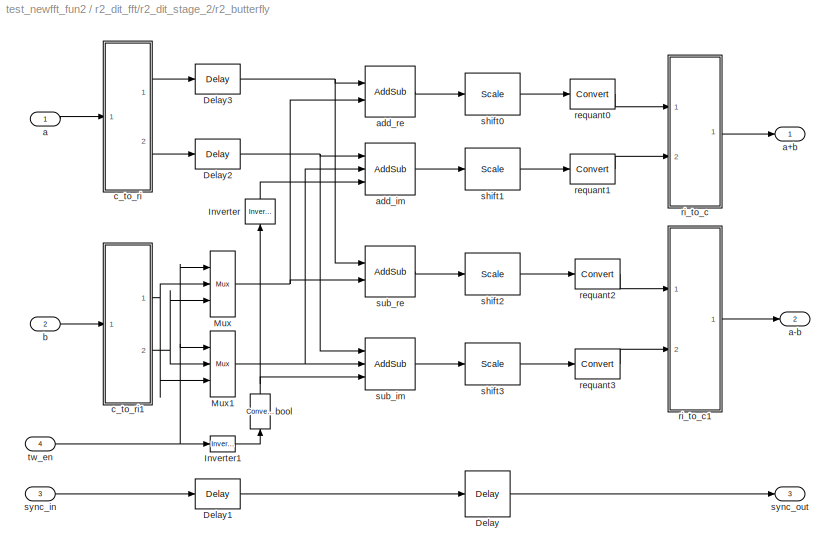
BLOCK [SubSystem] r2_dit_fft/r2_dit_stage_2/r2_butterfly
  AttributesFormatString = shift 0
  MaskCallbackString = |||
  MaskDescription = The radix-2 butterfly produces a+b and a-b outputs for a and b inputs.  This variation efficiently includes an optional -j twiddle factor that can be applied before the butterfly (suitable for use in stage two of a DIT FFT).
  MaskEnableString = off,off,off,off
  MaskHelp = <pre>\nDescription::\n\nThe radix-2 butterfly produces a+b and a-b outputs for a and b inputs.\nThis variation efficiently includes an optional -j twiddle factor that can be\napplied before the butterfly (suitable for use in stage two of a DIT FFT).\n\nThe -j twiddle factor is applied to tbe b input when tw_en is high,\nthus producing a-jb on the a+b output and a+jb on the a-b output.\n\nThe outpu...<+713ch>
  MaskIconFrame = on
  MaskIconOpaque = on
  MaskIconRotate = none
  MaskIconUnits = autoscale
  MaskPromptString = Bit Width In|Shift Bits|Quantization|Adder Latency
  MaskSelfModifiable = on
  MaskStyleString = edit,edit,popup(Truncate|Round  (unbiased: +/- Inf)|Round  (unbiased: Even Values)),edit
  MaskTabNameString = ,,,
  MaskToolTipString = on,on,on,on
  MaskTunableValueString = off,off,off,off
  MaskType = Radix-2 Butterfly with optional -j twiddle (DIT, twiddle before butterfly)
  MaskValueString = 9|0|Truncate|1
  MaskVarAliasString = ,,,
  MaskVariables = n_bits=&1;shift=&2;quantization=&3;add_latency=&4;
  MaskVisibilityString = on,on,on,on
  MinAlgLoopOccurrences = off
  Ports = [4, 3]
  RTWSystemCode = Auto
  TreatAsAtomicUnit = off
  UserData = DataTag41
  UserDataPersistent = on
BLOCK [Reference] r2_dit_fft/r2_dit_stage_2/r2_butterfly/Delay  REF=xbsIndex_r3/Delay
  Ports = [1, 1]
  SourceBlock = xbsIndex_r3/Delay
  SourceType = Xilinx Delay Block
  accept_only_valid = off
  dbl_ovrd = off
  en = off
  explicit_period = off
  init_zero = on
  latency = 1
  period = 1
  reg_retiming = off
  show_param = off
  xl_area = [0, 0, 0, 0, 0, 0, 0]
  xl_use_area = off
BLOCK [Reference] r2_dit_fft/r2_dit_stage_2/r2_butterfly/Delay1  REF=xbsIndex_r3/Delay
  Ports = [1, 1]
  SourceBlock = xbsIndex_r3/Delay
  SourceType = Xilinx Delay Block
  accept_only_valid = off
  dbl_ovrd = off
  en = off
  explicit_period = off
  init_zero = on
  latency = 1
  period = 1
  reg_retiming = off
  show_param = off
  xl_area = [0, 0, 0, 0, 0, 0, 0]
  xl_use_area = off
BLOCK [Reference] r2_dit_fft/r2_dit_stage_2/r2_butterfly/Delay2  REF=xbsIndex_r3/Delay
  Ports = [1, 1]
  SourceBlock = xbsIndex_r3/Delay
  SourceType = Xilinx Delay Block
  accept_only_valid = off
  dbl_ovrd = off
  en = off
  explicit_period = off
  init_zero = on
  latency = 1
  period = 1
  reg_retiming = off
  show_param = off
  xl_area = [0, 0, 0, 0, 0, 0, 0]
  xl_use_area = off
BLOCK [Reference] r2_dit_fft/r2_dit_stage_2/r2_butterfly/Delay3  REF=xbsIndex_r3/Delay
  Ports = [1, 1]
  SourceBlock = xbsIndex_r3/Delay
  SourceType = Xilinx Delay Block
  accept_only_valid = off
  dbl_ovrd = off
  en = off
  explicit_period = off
  init_zero = on
  latency = 1
  period = 1
  reg_retiming = off
  show_param = off
  xl_area = [0, 0, 0, 0, 0, 0, 0]
  xl_use_area = off
BLOCK [Reference] r2_dit_fft/r2_dit_stage_2/r2_butterfly/Inverter  REF=xbsIndex_r3/Inverter
  Ports = [1, 1]
  SourceBlock = xbsIndex_r3/Inverter
  SourceType = Xilinx Inverter
  dbl_ovrd = off
  en = off
  explicit_period = off
  latency = 0
  period = 1
  show_param = off
  xl_area = [0, 0, 0, 0, 0, 0, 0]
  xl_use_area = off
BLOCK [Reference] r2_dit_fft/r2_dit_stage_2/r2_butterfly/Inverter1  REF=xbsIndex_r3/Inverter
  Ports = [1, 1]
  SourceBlock = xbsIndex_r3/Inverter
  SourceType = Xilinx Inverter
  dbl_ovrd = off
  en = off
  explicit_period = off
  latency = 1
  period = 1
  show_param = off
  xl_area = [0, 0, 0, 0, 0, 0, 0]
  xl_use_area = off
BLOCK [Reference] r2_dit_fft/r2_dit_stage_2/r2_butterfly/Mux  REF=xbsIndex_r3/Mux
  Ports = [3, 1]
  SourceBlock = xbsIndex_r3/Mux
  SourceType = Xilinx Multiplexer Block
  arith_type = Signed  (2's comp)
  bin_pt = 2
  dbl_ovrd = off
  en = off
  explicit_period = off
  gen_core = off
  inputs = 2
  latency = 1
  mux_type = off
  n_bits = 8
  overflow = Wrap
  period = 1
  precision = Full
  quantization = Truncate
  show_param = off
  use_rpm = off
  xl_area = [0, 0, 0, 0, 0, 0, 0]
  xl_use_area = off
BLOCK [Reference] r2_dit_fft/r2_dit_stage_2/r2_butterfly/Mux1  REF=xbsIndex_r3/Mux
  Ports = [3, 1]
  SourceBlock = xbsIndex_r3/Mux
  SourceType = Xilinx Multiplexer Block
  arith_type = Signed  (2's comp)
  bin_pt = 2
  dbl_ovrd = off
  en = off
  explicit_period = off
  gen_core = off
  inputs = 2
  latency = 1
  mux_type = off
  n_bits = 8
  overflow = Wrap
  period = 1
  precision = Full
  quantization = Truncate
  show_param = off
  use_rpm = off
  xl_area = [0, 0, 0, 0, 0, 0, 0]
  xl_use_area = off
BLOCK [Inport] r2_dit_fft/r2_dit_stage_2/r2_butterfly/a
  IconDisplay = Port number
  LatchInput = off
  Port = 1
BLOCK [Outport] r2_dit_fft/r2_dit_stage_2/r2_butterfly/a+b
  BusOutputAsStruct = off
  IconDisplay = Port number
BLOCK [Outport] r2_dit_fft/r2_dit_stage_2/r2_butterfly/a-b
  BusOutputAsStruct = off
  IconDisplay = Port number
  Port = 2
BLOCK [Reference] r2_dit_fft/r2_dit_stage_2/r2_butterfly/add_im  REF=xbsIndex_r3/AddSub
  Ports = [3, 1]
  SourceBlock = xbsIndex_r3/AddSub
  SourceType = Xilinx Adder/Subtractor
  arith_type = Unsigned
  bin_pt = 2
  dbl_ovrd = off
  en = off
  explicit_period = off
  gen_core = off
  latency = 1
  mode = Addition or Subtraction
  n_bits = 8
  overflow = Wrap
  period = 1
  pipeline = on
  precision = Full
  quantization = Truncate
  show_param = on
  use_carryin = off
  use_carryout = off
  use_core = on
  use_rpm = on
  xl_area = [0, 0, 0, 0, 0, 0, 0]
  xl_use_area = off
BLOCK [Reference] r2_dit_fft/r2_dit_stage_2/r2_butterfly/add_re  REF=xbsIndex_r3/AddSub
  Ports = [2, 1]
  SourceBlock = xbsIndex_r3/AddSub
  SourceType = Xilinx Adder/Subtractor
  arith_type = Unsigned
  bin_pt = 2
  dbl_ovrd = off
  en = off
  explicit_period = off
  gen_core = off
  latency = 1
  mode = Addition
  n_bits = 8
  overflow = Wrap
  period = 1
  pipeline = on
  precision = Full
  quantization = Truncate
  show_param = on
  use_carryin = off
  use_carryout = off
  use_core = on
  use_rpm = on
  xl_area = [0, 0, 0, 0, 0, 0, 0]
  xl_use_area = off
BLOCK [Inport] r2_dit_fft/r2_dit_stage_2/r2_butterfly/b
  IconDisplay = Port number
  LatchInput = off
  Port = 2
BLOCK [Reference] r2_dit_fft/r2_dit_stage_2/r2_butterfly/bool  REF=xbsIndex_r3/Convert
  Ports = [1, 1]
  SourceBlock = xbsIndex_r3/Convert
  SourceType = Xilinx Converter Block
  arith_type = Boolean
  bin_pt = 6
  dbl_ovrd = off
  explicit_period = off
  inserted_by_tool = off
  latency = 0
  n_bits = 8
  overflow = Wrap
  period = 1
  pipeline = off
  quantization = Truncate
  show_param = off
  xl_area = [0, 0, 0, 0, 0, 0, 0]
  xl_use_area = off
BLOCK [SubSystem] r2_dit_fft/r2_dit_stage_2/r2_butterfly/c_to_ri
  AttributesFormatString = 9_0 r/i
  MaskCallbackString = |
  MaskDescription = Outputs real and imaginary components of a complex input.
  MaskEnableString = off,off
  MaskIconFrame = on
  MaskIconOpaque = on
  MaskIconRotate = none
  MaskIconUnits = autoscale
  MaskPromptString = Bit Width|Binary Point
  MaskSelfModifiable = on
  MaskStyleString = edit,edit
  MaskTabNameString = ,
  MaskToolTipString = on,on
  MaskTunableValueString = off,off
  MaskType = Complex to Real-Imag
  MaskValueString = 9|0
  MaskVarAliasString = ,
  MaskVariables = n_bits=&1;bin_pt=&2;
  MaskVisibilityString = on,on
  MinAlgLoopOccurrences = off
  Ports = [1, 2]
  RTWSystemCode = Auto
  TreatAsAtomicUnit = off
  UserData = DataTag42
  UserDataPersistent = on
BLOCK [Inport] r2_dit_fft/r2_dit_stage_2/r2_butterfly/c_to_ri/c
  IconDisplay = Port number
  LatchInput = off
  Port = 1
BLOCK [Reference] r2_dit_fft/r2_dit_stage_2/r2_butterfly/c_to_ri/force_im  REF=xbsIndex_r3/Reinterpret
  Ports = [1, 1]
  SourceBlock = xbsIndex_r3/Reinterpret
  SourceType = Xilinx Type Reinterpreting Block
  arith_type = Signed  (2's comp)
  bin_pt = 0
  force_arith_type = on
  force_bin_pt = on
  force_valid = on
BLOCK [Reference] r2_dit_fft/r2_dit_stage_2/r2_butterfly/c_to_ri/force_re  REF=xbsIndex_r3/Reinterpret
  Ports = [1, 1]
  SourceBlock = xbsIndex_r3/Reinterpret
  SourceType = Xilinx Type Reinterpreting Block
  arith_type = Signed  (2's comp)
  bin_pt = 0
  force_arith_type = on
  force_bin_pt = on
  force_valid = on
BLOCK [Outport] r2_dit_fft/r2_dit_stage_2/r2_butterfly/c_to_ri/im
  BusOutputAsStruct = off
  IconDisplay = Port number
  Port = 2
BLOCK [Outport] r2_dit_fft/r2_dit_stage_2/r2_butterfly/c_to_ri/re
  BusOutputAsStruct = off
  IconDisplay = Port number
BLOCK [Reference] r2_dit_fft/r2_dit_stage_2/r2_butterfly/c_to_ri/slice_im  REF=xbsIndex_r3/Slice
  Ports = [1, 1]
  SourceBlock = xbsIndex_r3/Slice
  SourceType = Xilinx Slice Block
  base0 = LSB of Input
  base1 = MSB of Input
  bit0 = 0
  bit1 = 0
  boolean_output = off
  dbl_ovrd = off
  explicit_period = off
  mode = Lower Bit Location + Width
  nbits = 9
  period = 1
BLOCK [Reference] r2_dit_fft/r2_dit_stage_2/r2_butterfly/c_to_ri/slice_re  REF=xbsIndex_r3/Slice
  Ports = [1, 1]
  SourceBlock = xbsIndex_r3/Slice
  SourceType = Xilinx Slice Block
  base0 = LSB of Input
  base1 = MSB of Input
  bit0 = 0
  bit1 = 0
  boolean_output = off
  dbl_ovrd = off
  explicit_period = off
  mode = Upper Bit Location + Width
  nbits = 9
  period = 1
BLOCK [SubSystem] r2_dit_fft/r2_dit_stage_2/r2_butterfly/c_to_ri1
  AttributesFormatString = 9_0 r/i
  MaskCallbackString = |
  MaskDescription = Outputs real and imaginary components of a complex input.
  MaskEnableString = off,off
  MaskIconFrame = on
  MaskIconOpaque = on
  MaskIconRotate = none
  MaskIconUnits = autoscale
  MaskPromptString = Bit Width|Binary Point
  MaskSelfModifiable = on
  MaskStyleString = edit,edit
  MaskTabNameString = ,
  MaskToolTipString = on,on
  MaskTunableValueString = off,off
  MaskType = Complex to Real-Imag
  MaskValueString = 9|0
  MaskVarAliasString = ,
  MaskVariables = n_bits=&1;bin_pt=&2;
  MaskVisibilityString = on,on
  MinAlgLoopOccurrences = off
  Ports = [1, 2]
  RTWSystemCode = Auto
  TreatAsAtomicUnit = off
  UserData = DataTag43
  UserDataPersistent = on
BLOCK [Inport] r2_dit_fft/r2_dit_stage_2/r2_butterfly/c_to_ri1/c
  IconDisplay = Port number
  LatchInput = off
  Port = 1
BLOCK [Reference] r2_dit_fft/r2_dit_stage_2/r2_butterfly/c_to_ri1/force_im  REF=xbsIndex_r3/Reinterpret
  Ports = [1, 1]
  SourceBlock = xbsIndex_r3/Reinterpret
  SourceType = Xilinx Type Reinterpreting Block
  arith_type = Signed  (2's comp)
  bin_pt = 0
  force_arith_type = on
  force_bin_pt = on
  force_valid = on
BLOCK [Reference] r2_dit_fft/r2_dit_stage_2/r2_butterfly/c_to_ri1/force_re  REF=xbsIndex_r3/Reinterpret
  Ports = [1, 1]
  SourceBlock = xbsIndex_r3/Reinterpret
  SourceType = Xilinx Type Reinterpreting Block
  arith_type = Signed  (2's comp)
  bin_pt = 0
  force_arith_type = on
  force_bin_pt = on
  force_valid = on
BLOCK [Outport] r2_dit_fft/r2_dit_stage_2/r2_butterfly/c_to_ri1/im
  BusOutputAsStruct = off
  IconDisplay = Port number
  Port = 2
BLOCK [Outport] r2_dit_fft/r2_dit_stage_2/r2_butterfly/c_to_ri1/re
  BusOutputAsStruct = off
  IconDisplay = Port number
BLOCK [Reference] r2_dit_fft/r2_dit_stage_2/r2_butterfly/c_to_ri1/slice_im  REF=xbsIndex_r3/Slice
  Ports = [1, 1]
  SourceBlock = xbsIndex_r3/Slice
  SourceType = Xilinx Slice Block
  base0 = LSB of Input
  base1 = MSB of Input
  bit0 = 0
  bit1 = 0
  boolean_output = off
  dbl_ovrd = off
  explicit_period = off
  mode = Lower Bit Location + Width
  nbits = 9
  period = 1
BLOCK [Reference] r2_dit_fft/r2_dit_stage_2/r2_butterfly/c_to_ri1/slice_re  REF=xbsIndex_r3/Slice
  Ports = [1, 1]
  SourceBlock = xbsIndex_r3/Slice
  SourceType = Xilinx Slice Block
  base0 = LSB of Input
  base1 = MSB of Input
  bit0 = 0
  bit1 = 0
  boolean_output = off
  dbl_ovrd = off
  explicit_period = off
  mode = Upper Bit Location + Width
  nbits = 9
  period = 1
BLOCK [Reference] r2_dit_fft/r2_dit_stage_2/r2_butterfly/requant0  REF=xbsIndex_r3/Convert
  Ports = [1, 1]
  SourceBlock = xbsIndex_r3/Convert
  SourceType = Xilinx Converter Block
  arith_type = Signed  (2's comp)
  bin_pt = 0
  dbl_ovrd = off
  explicit_period = off
  inserted_by_tool = off
  latency = 0
  n_bits = 10
  overflow = Wrap
  period = 1
  pipeline = on
  quantization = Truncate
  show_param = on
  xl_area = [0, 0, 0, 0, 0, 0, 0]
  xl_use_area = off
BLOCK [Reference] r2_dit_fft/r2_dit_stage_2/r2_butterfly/requant1  REF=xbsIndex_r3/Convert
  Ports = [1, 1]
  SourceBlock = xbsIndex_r3/Convert
  SourceType = Xilinx Converter Block
  arith_type = Signed  (2's comp)
  bin_pt = 0
  dbl_ovrd = off
  explicit_period = off
  inserted_by_tool = off
  latency = 0
  n_bits = 10
  overflow = Wrap
  period = 1
  pipeline = on
  quantization = Truncate
  show_param = on
  xl_area = [0, 0, 0, 0, 0, 0, 0]
  xl_use_area = off
BLOCK [Reference] r2_dit_fft/r2_dit_stage_2/r2_butterfly/requant2  REF=xbsIndex_r3/Convert
  Ports = [1, 1]
  SourceBlock = xbsIndex_r3/Convert
  SourceType = Xilinx Converter Block
  arith_type = Signed  (2's comp)
  bin_pt = 0
  dbl_ovrd = off
  explicit_period = off
  inserted_by_tool = off
  latency = 0
  n_bits = 10
  overflow = Wrap
  period = 1
  pipeline = on
  quantization = Truncate
  show_param = on
  xl_area = [0, 0, 0, 0, 0, 0, 0]
  xl_use_area = off
BLOCK [Reference] r2_dit_fft/r2_dit_stage_2/r2_butterfly/requant3  REF=xbsIndex_r3/Convert
  Ports = [1, 1]
  SourceBlock = xbsIndex_r3/Convert
  SourceType = Xilinx Converter Block
  arith_type = Signed  (2's comp)
  bin_pt = 0
  dbl_ovrd = off
  explicit_period = off
  inserted_by_tool = off
  latency = 0
  n_bits = 10
  overflow = Wrap
  period = 1
  pipeline = on
  quantization = Truncate
  show_param = on
  xl_area = [0, 0, 0, 0, 0, 0, 0]
  xl_use_area = off
BLOCK [SubSystem] r2_dit_fft/r2_dit_stage_2/r2_butterfly/ri_to_c
  MaskDescription = Concatenates real and imaginary inputs into a complex output.
  MaskIconFrame = on
  MaskIconOpaque = on
  MaskIconRotate = none
  MaskIconUnits = autoscale
  MaskSelfModifiable = on
  MaskType = Real-Imag to Complex
  MinAlgLoopOccurrences = off
  Ports = [2, 1]
  RTWSystemCode = Auto
  TreatAsAtomicUnit = off
  UserData = DataTag44
  UserDataPersistent = on
BLOCK [Outport] r2_dit_fft/r2_dit_stage_2/r2_butterfly/ri_to_c/c
  BusOutputAsStruct = off
  IconDisplay = Port number
BLOCK [Reference] r2_dit_fft/r2_dit_stage_2/r2_butterfly/ri_to_c/concat  REF=xbsIndex_r3/Concat
  Ports = [2, 1]
  SourceBlock = xbsIndex_r3/Concat
  SourceType = Xilinx Bus Concatenator
  dbl_ovrd = off
  explicit_period = off
  num_inputs = 2
  period = 1
BLOCK [Reference] r2_dit_fft/r2_dit_stage_2/r2_butterfly/ri_to_c/force_im  REF=xbsIndex_r3/Reinterpret
  Ports = [1, 1]
  SourceBlock = xbsIndex_r3/Reinterpret
  SourceType = Xilinx Type Reinterpreting Block
  arith_type = Unsigned
  bin_pt = 0
  force_arith_type = on
  force_bin_pt = on
  force_valid = on
BLOCK [Reference] r2_dit_fft/r2_dit_stage_2/r2_butterfly/ri_to_c/force_re  REF=xbsIndex_r3/Reinterpret
  Ports = [1, 1]
  SourceBlock = xbsIndex_r3/Reinterpret
  SourceType = Xilinx Type Reinterpreting Block
  arith_type = Unsigned
  bin_pt = 0
  force_arith_type = on
  force_bin_pt = on
  force_valid = on
BLOCK [Inport] r2_dit_fft/r2_dit_stage_2/r2_butterfly/ri_to_c/im
  IconDisplay = Port number
  LatchInput = off
  Port = 2
BLOCK [Inport] r2_dit_fft/r2_dit_stage_2/r2_butterfly/ri_to_c/re
  IconDisplay = Port number
  LatchInput = off
  Port = 1
BLOCK [SubSystem] r2_dit_fft/r2_dit_stage_2/r2_butterfly/ri_to_c1
  MaskDescription = Concatenates real and imaginary inputs into a complex output.
  MaskIconFrame = on
  MaskIconOpaque = on
  MaskIconRotate = none
  MaskIconUnits = autoscale
  MaskSelfModifiable = on
  MaskType = Real-Imag to Complex
  MinAlgLoopOccurrences = off
  Ports = [2, 1]
  RTWSystemCode = Auto
  TreatAsAtomicUnit = off
  UserData = DataTag45
  UserDataPersistent = on
BLOCK [Outport] r2_dit_fft/r2_dit_stage_2/r2_butterfly/ri_to_c1/c
  BusOutputAsStruct = off
  IconDisplay = Port number
BLOCK [Reference] r2_dit_fft/r2_dit_stage_2/r2_butterfly/ri_to_c1/concat  REF=xbsIndex_r3/Concat
  Ports = [2, 1]
  SourceBlock = xbsIndex_r3/Concat
  SourceType = Xilinx Bus Concatenator
  dbl_ovrd = off
  explicit_period = off
  num_inputs = 2
  period = 1
BLOCK [Reference] r2_dit_fft/r2_dit_stage_2/r2_butterfly/ri_to_c1/force_im  REF=xbsIndex_r3/Reinterpret
  Ports = [1, 1]
  SourceBlock = xbsIndex_r3/Reinterpret
  SourceType = Xilinx Type Reinterpreting Block
  arith_type = Unsigned
  bin_pt = 0
  force_arith_type = on
  force_bin_pt = on
  force_valid = on
BLOCK [Reference] r2_dit_fft/r2_dit_stage_2/r2_butterfly/ri_to_c1/force_re  REF=xbsIndex_r3/Reinterpret
  Ports = [1, 1]
  SourceBlock = xbsIndex_r3/Reinterpret
  SourceType = Xilinx Type Reinterpreting Block
  arith_type = Unsigned
  bin_pt = 0
  force_arith_type = on
  force_bin_pt = on
  force_valid = on
BLOCK [Inport] r2_dit_fft/r2_dit_stage_2/r2_butterfly/ri_to_c1/im
  IconDisplay = Port number
  LatchInput = off
  Port = 2
BLOCK [Inport] r2_dit_fft/r2_dit_stage_2/r2_butterfly/ri_to_c1/re
  IconDisplay = Port number
  LatchInput = off
  Port = 1
BLOCK [Reference] r2_dit_fft/r2_dit_stage_2/r2_butterfly/shift0  REF=xbsIndex_r3/Scale
  Ports = [1, 1]
  SourceBlock = xbsIndex_r3/Scale
  SourceType = Xilinx Scaling Block
  dbl_ovrd = off
  explicit_period = off
  period = 1
  scale_factor = 0
BLOCK [Reference] r2_dit_fft/r2_dit_stage_2/r2_butterfly/shift1  REF=xbsIndex_r3/Scale
  Ports = [1, 1]
  SourceBlock = xbsIndex_r3/Scale
  SourceType = Xilinx Scaling Block
  dbl_ovrd = off
  explicit_period = off
  period = 1
  scale_factor = 0
BLOCK [Reference] r2_dit_fft/r2_dit_stage_2/r2_butterfly/shift2  REF=xbsIndex_r3/Scale
  Ports = [1, 1]
  SourceBlock = xbsIndex_r3/Scale
  SourceType = Xilinx Scaling Block
  dbl_ovrd = off
  explicit_period = off
  period = 1
  scale_factor = 0
BLOCK [Reference] r2_dit_fft/r2_dit_stage_2/r2_butterfly/shift3  REF=xbsIndex_r3/Scale
  Ports = [1, 1]
  SourceBlock = xbsIndex_r3/Scale
  SourceType = Xilinx Scaling Block
  dbl_ovrd = off
  explicit_period = off
  period = 1
  scale_factor = 0
BLOCK [Reference] r2_dit_fft/r2_dit_stage_2/r2_butterfly/sub_im  REF=xbsIndex_r3/AddSub
  Ports = [3, 1]
  SourceBlock = xbsIndex_r3/AddSub
  SourceType = Xilinx Adder/Subtractor
  arith_type = Unsigned
  bin_pt = 2
  dbl_ovrd = off
  en = off
  explicit_period = off
  gen_core = off
  latency = 1
  mode = Addition or Subtraction
  n_bits = 8
  overflow = Wrap
  period = 1
  pipeline = on
  precision = Full
  quantization = Truncate
  show_param = on
  use_carryin = off
  use_carryout = off
  use_core = on
  use_rpm = on
  xl_area = [0, 0, 0, 0, 0, 0, 0]
  xl_use_area = off
BLOCK [Reference] r2_dit_fft/r2_dit_stage_2/r2_butterfly/sub_re  REF=xbsIndex_r3/AddSub
  Ports = [2, 1]
  SourceBlock = xbsIndex_r3/AddSub
  SourceType = Xilinx Adder/Subtractor
  arith_type = Unsigned
  bin_pt = 2
  dbl_ovrd = off
  en = off
  explicit_period = off
  gen_core = off
  latency = 1
  mode = Subtraction
  n_bits = 8
  overflow = Wrap
  period = 1
  pipeline = on
  precision = Full
  quantization = Truncate
  show_param = on
  use_carryin = off
  use_carryout = off
  use_core = on
  use_rpm = on
  xl_area = [0, 0, 0, 0, 0, 0, 0]
  xl_use_area = off
BLOCK [Inport] r2_dit_fft/r2_dit_stage_2/r2_butterfly/sync_in
  IconDisplay = Port number
  LatchInput = off
  Port = 3
BLOCK [Outport] r2_dit_fft/r2_dit_stage_2/r2_butterfly/sync_out
  BusOutputAsStruct = off
  IconDisplay = Port number
  Port = 3
BLOCK [Inport] r2_dit_fft/r2_dit_stage_2/r2_butterfly/tw_en
  IconDisplay = Port number
  LatchInput = off
  Port = 4
BLOCK [SubSystem] r2_dit_fft/r2_dit_stage_2/r2_twiddle
  MaskDescription = A stage-2 twiddle stage for radix-2 Decimation in Time Fast Fourier Transforms.  The FFT is assumed to have inputs in normal order and outputs in bit-reversed order.  This block must be used in conjuction with an r2_butterfly_dit_j_opt block (or equivalent) which has an optional -j twiddle factor built in.
  MaskEnableString = off
  MaskHelp = <pre>\nDescription::\n\nA stage-2 twiddle stage for radix-2 Decimation in Time Fast Fourier Transforms.\n\nThe FFT is assumed to have inputs in normal order and outputs in bit-reversed order.\n\nThis block must be used in conjuction with an r2_butterfly_dit_j_opt block (or equivalent)\nwhich has an optional -j twiddle factor built in.  This block does no twidlling at all; it just provides\na tw_en...<+198ch>
  MaskIconFrame = on
  MaskIconOpaque = on
  MaskIconRotate = none
  MaskIconUnits = autoscale
  MaskPromptString = Total Stages
  MaskSelfModifiable = on
  MaskStyleString = edit
  MaskToolTipString = on
  MaskTunableValueString = off
  MaskType = Radix-2 DIT Stage-2 Twiddle Stage
  MaskValueString = 10
  MaskVariables = n_stages=&1;
  MaskVisibilityString = on
  MinAlgLoopOccurrences = off
  Ports = [3, 4]
  RTWSystemCode = Auto
  TreatAsAtomicUnit = off
  UserData = DataTag46
  UserDataPersistent = on
BLOCK [Reference] r2_dit_fft/r2_dit_stage_2/r2_twiddle/Counter  REF=xbsIndex_r3/Counter
  Ports = [1, 1]
  SourceBlock = xbsIndex_r3/Counter
  SourceType = Xilinx Counter Block
  arith_type = Unsigned
  bin_pt = 0
  cnt_by_val = 1
  cnt_to = Inf
  cnt_type = Free Running
  dbl_ovrd = off
  en = off
  explicit_period = off
  gen_core = off
  load_pin = off
  n_bits = 9
  operation = Up
  period = 1
  rst = on
  show_param = on
  start_count = 0
  use_rpm = on
  xl_area = [0, 0, 0, 0, 0, 0, 0]
  xl_use_area = off
BLOCK [Inport] r2_dit_fft/r2_dit_stage_2/r2_twiddle/a_in
  IconDisplay = Port number
  LatchInput = off
  Port = 1
BLOCK [Outport] r2_dit_fft/r2_dit_stage_2/r2_twiddle/a_out
  BusOutputAsStruct = off
  IconDisplay = Port number
BLOCK [Inport] r2_dit_fft/r2_dit_stage_2/r2_twiddle/b_in
  IconDisplay = Port number
  LatchInput = off
  Port = 2
BLOCK [Outport] r2_dit_fft/r2_dit_stage_2/r2_twiddle/b_out
  BusOutputAsStruct = off
  IconDisplay = Port number
  Port = 2
BLOCK [Inport] r2_dit_fft/r2_dit_stage_2/r2_twiddle/sync_in
  IconDisplay = Port number
  LatchInput = off
  Port = 3
BLOCK [Outport] r2_dit_fft/r2_dit_stage_2/r2_twiddle/sync_out
  BusOutputAsStruct = off
  IconDisplay = Port number
  Port = 3
BLOCK [Reference] r2_dit_fft/r2_dit_stage_2/r2_twiddle/top_bit  REF=xbsIndex_r3/Slice
  Ports = [1, 1]
  SourceBlock = xbsIndex_r3/Slice
  SourceType = Xilinx Slice Block
  base0 = LSB of Input
  base1 = MSB of Input
  bit0 = 0
  bit1 = 0
  boolean_output = off
  dbl_ovrd = off
  explicit_period = off
  mode = Upper Bit Location + Width
  nbits = 1
  period = 1
BLOCK [Outport] r2_dit_fft/r2_dit_stage_2/r2_twiddle/tw_en
  BusOutputAsStruct = off
  IconDisplay = Port number
  Port = 4
BLOCK [Inport] r2_dit_fft/r2_dit_stage_2/sync_in
  IconDisplay = Port number
  LatchInput = off
  Port = 3
BLOCK [Outport] r2_dit_fft/r2_dit_stage_2/sync_out
  BusOutputAsStruct = off
  IconDisplay = Port number
  Port = 3
BLOCK [SubSystem] r2_dit_fft/r2_dit_stage_3
  AttributesFormatString = stage 3 of 10\ndelay slr\ntwiddle dist\nshift 0
  MaskCallbackString = |||||||||
  MaskDescription = A radix-2 decimation-in-time Fast Fourier Transform stage.
  MaskEnableString = off,off,off,off,off,off,off,off,off,off
  MaskIconFrame = on
  MaskIconOpaque = on
  MaskIconRotate = none
  MaskIconUnits = autoscale
  MaskSelfModifiable = on
  MaskStyleString = edit,edit,edit,edit,edit,checkbox,checkbox,edit,edit,edit
  MaskTabNameString = ,,,,,,,,,
  MaskToolTipString = on,on,on,on,on,on,on,on,on,on
  MaskTunableValueString = off,off,off,off,off,off,off,off,off,off
  MaskType = Radix-2 DIT FFT Stage
  MaskValueString = 10|3|10|7|0|off|off|8|3|1
  MaskVarAliasString = ,,,,,,,,,
  MaskVariables = n_stages=&1;cur_stage=&2;n_bits=&3;bin_pt=&4;shift=&5;commutator_bram=&6;twiddle_bram=&7;n_bits_w=&8;mult_latency=&9;add_latency=&10;
  MaskVisibilityString = on,on,on,on,on,on,on,on,on,on
  MinAlgLoopOccurrences = off
  Ports = [3, 3]
  RTWSystemCode = Auto
  TreatAsAtomicUnit = off
  UserData = DataTag47
  UserDataPersistent = on
BLOCK [Inport] r2_dit_fft/r2_dit_stage_3/a_in
  IconDisplay = Port number
  LatchInput = off
  Port = 1
BLOCK [Outport] r2_dit_fft/r2_dit_stage_3/a_out
  BusOutputAsStruct = off
  IconDisplay = Port number
BLOCK [Inport] r2_dit_fft/r2_dit_stage_3/b_in
  IconDisplay = Port number
  LatchInput = off
  Port = 2
BLOCK [Outport] r2_dit_fft/r2_dit_stage_3/b_out
  BusOutputAsStruct = off
  IconDisplay = Port number
  Port = 2
BLOCK [SubSystem] r2_dit_fft/r2_dit_stage_3/biplex_commutator
  AttributesFormatString = size = 256\ndelay slr
  MaskCallbackString = ||
  MaskEnableString = off,off,off
  MaskIconFrame = on
  MaskIconOpaque = on
  MaskIconRotate = none
  MaskIconUnits = autoscale
  MaskPromptString = Log2 Block Size|Bit Width|Use BRAM
  MaskSelfModifiable = on
  MaskStyleString = edit,edit,checkbox
  MaskTabNameString = ,,
  MaskToolTipString = on,on,on
  MaskTunableValueString = off,off,off
  MaskType = Biplex Commutator
  MaskValueString = 8|10|off
  MaskVarAliasString = ,,
  MaskVariables = log2_size=&1;n_bits=&2;use_bram=&3;
  MaskVisibilityString = on,on,on
  MinAlgLoopOccurrences = off
  Ports = [3, 3]
  RTWSystemCode = Auto
  TreatAsAtomicUnit = off
  UserData = DataTag48
  UserDataPersistent = on
BLOCK [Outport] r2_dit_fft/r2_dit_stage_3/biplex_commutator/AhiBhi
  BusOutputAsStruct = off
  IconDisplay = Port number
  Port = 2
BLOCK [Inport] r2_dit_fft/r2_dit_stage_3/biplex_commutator/AloAhi
  IconDisplay = Port number
  LatchInput = off
  Port = 1
BLOCK [Outport] r2_dit_fft/r2_dit_stage_3/biplex_commutator/AloBlo
  BusOutputAsStruct = off
  IconDisplay = Port number
BLOCK [Inport] r2_dit_fft/r2_dit_stage_3/biplex_commutator/BloBhi
  IconDisplay = Port number
  LatchInput = off
  Port = 2
BLOCK [Reference] r2_dit_fft/r2_dit_stage_3/biplex_commutator/Counter  REF=xbsIndex_r3/Counter
  Ports = [1, 1]
  SourceBlock = xbsIndex_r3/Counter
  SourceType = Xilinx Counter Block
  arith_type = Unsigned
  bin_pt = 0
  cnt_by_val = 1
  cnt_to = Inf
  cnt_type = Free Running
  dbl_ovrd = off
  en = off
  explicit_period = off
  gen_core = off
  load_pin = off
  n_bits = 8
  operation = Up
  period = 1
  rst = on
  show_param = off
  start_count = 0
  use_rpm = on
  xl_area = [0, 0, 0, 0, 0, 0, 0]
  xl_use_area = off
BLOCK [Reference] r2_dit_fft/r2_dit_stage_3/biplex_commutator/Delay  REF=xbsIndex_r3/Delay
  Ports = [1, 1]
  SourceBlock = xbsIndex_r3/Delay
  SourceType = Xilinx Delay Block
  accept_only_valid = off
  dbl_ovrd = off
  en = off
  explicit_period = off
  init_zero = on
  latency = 129
  period = 1
  reg_retiming = off
  show_param = off
  xl_area = [0, 0, 0, 0, 0, 0, 0]
  xl_use_area = off
BLOCK [Reference] r2_dit_fft/r2_dit_stage_3/biplex_commutator/Mux  REF=xbsIndex_r3/Mux
  Ports = [3, 1]
  SourceBlock = xbsIndex_r3/Mux
  SourceType = Xilinx Multiplexer Block
  arith_type = Signed  (2's comp)
  bin_pt = 2
  dbl_ovrd = off
  en = off
  explicit_period = off
  gen_core = off
  inputs = 2
  latency = 1
  mux_type = off
  n_bits = 8
  overflow = Wrap
  period = 1
  precision = Full
  quantization = Truncate
  show_param = off
  use_rpm = off
  xl_area = [0, 0, 0, 0, 0, 0, 0]
  xl_use_area = off
BLOCK [Reference] r2_dit_fft/r2_dit_stage_3/biplex_commutator/Mux1  REF=xbsIndex_r3/Mux
  Ports = [3, 1]
  SourceBlock = xbsIndex_r3/Mux
  SourceType = Xilinx Multiplexer Block
  arith_type = Signed  (2's comp)
  bin_pt = 2
  dbl_ovrd = off
  en = off
  explicit_period = off
  gen_core = off
  inputs = 2
  latency = 1
  mux_type = off
  n_bits = 8
  overflow = Wrap
  period = 1
  precision = Full
  quantization = Truncate
  show_param = on
  use_rpm = off
  xl_area = [0, 0, 0, 0, 0, 0, 0]
  xl_use_area = off
BLOCK [SubSystem] r2_dit_fft/r2_dit_stage_3/biplex_commutator/delay_b
  AttributesFormatString = slr depth = 128
  MaskDescription = A delay block that uses SLR16 elements for its storage.
  MaskEnableString = off
  MaskHelp = <pre>\nDescription::\n\nA delay block that uses SLR16 elements for its storage.\n\nMask Parameters::\n\nDelay Depth (delay_depth): The length of the delay.\n</pre>
  MaskIconFrame = on
  MaskIconOpaque = on
  MaskIconRotate = none
  MaskIconUnits = autoscale
  MaskPromptString = Delay Depth
  MaskSelfModifiable = on
  MaskStyleString = edit
  MaskToolTipString = on
  MaskTunableValueString = off
  MaskType = SLR16 Delay
  MaskValueString = 128
  MaskVariables = delay_depth=&1;
  MaskVisibilityString = on
  MinAlgLoopOccurrences = off
  Ports = [1, 1]
  RTWSystemCode = Auto
  TreatAsAtomicUnit = off
  UserData = DataTag49
  UserDataPersistent = on
BLOCK [Inport] r2_dit_fft/r2_dit_stage_3/biplex_commutator/delay_b/in
  IconDisplay = Port number
  LatchInput = off
  Port = 1
BLOCK [Outport] r2_dit_fft/r2_dit_stage_3/biplex_commutator/delay_b/out
  BusOutputAsStruct = off
  IconDisplay = Port number
BLOCK [Reference] r2_dit_fft/r2_dit_stage_3/biplex_commutator/delay_b/slr  REF=xbsIndex_r3/Delay
  Ports = [1, 1]
  SourceBlock = xbsIndex_r3/Delay
  SourceType = Xilinx Delay Block
  accept_only_valid = off
  dbl_ovrd = off
  en = off
  explicit_period = off
  init_zero = on
  latency = 128
  period = 1
  reg_retiming = off
  show_param = off
  xl_area = [0, 0, 0, 0, 0, 0, 0]
  xl_use_area = off
BLOCK [SubSystem] r2_dit_fft/r2_dit_stage_3/biplex_commutator/delay_lo
  AttributesFormatString = slr depth = 128
  MaskDescription = A delay block that uses SLR16 elements for its storage.
  MaskEnableString = off
  MaskHelp = <pre>\nDescription::\n\nA delay block that uses SLR16 elements for its storage.\n\nMask Parameters::\n\nDelay Depth (delay_depth): The length of the delay.\n</pre>
  MaskIconFrame = on
  MaskIconOpaque = on
  MaskIconRotate = none
  MaskIconUnits = autoscale
  MaskPromptString = Delay Depth
  MaskSelfModifiable = on
  MaskStyleString = edit
  MaskToolTipString = on
  MaskTunableValueString = off
  MaskType = SLR16 Delay
  MaskValueString = 128
  MaskVariables = delay_depth=&1;
  MaskVisibilityString = on
  MinAlgLoopOccurrences = off
  Ports = [1, 1]
  RTWSystemCode = Auto
  TreatAsAtomicUnit = off
  UserData = DataTag50
  UserDataPersistent = on
BLOCK [Inport] r2_dit_fft/r2_dit_stage_3/biplex_commutator/delay_lo/in
  IconDisplay = Port number
  LatchInput = off
  Port = 1
BLOCK [Outport] r2_dit_fft/r2_dit_stage_3/biplex_commutator/delay_lo/out
  BusOutputAsStruct = off
  IconDisplay = Port number
BLOCK [Reference] r2_dit_fft/r2_dit_stage_3/biplex_commutator/delay_lo/slr  REF=xbsIndex_r3/Delay
  Ports = [1, 1]
  SourceBlock = xbsIndex_r3/Delay
  SourceType = Xilinx Delay Block
  accept_only_valid = off
  dbl_ovrd = off
  en = off
  explicit_period = off
  init_zero = on
  latency = 128
  period = 1
  reg_retiming = off
  show_param = off
  xl_area = [0, 0, 0, 0, 0, 0, 0]
  xl_use_area = off
BLOCK [Inport] r2_dit_fft/r2_dit_stage_3/biplex_commutator/sync_in
  IconDisplay = Port number
  LatchInput = off
  Port = 3
BLOCK [Outport] r2_dit_fft/r2_dit_stage_3/biplex_commutator/sync_out
  BusOutputAsStruct = off
  IconDisplay = Port number
  Port = 3
BLOCK [Reference] r2_dit_fft/r2_dit_stage_3/biplex_commutator/top_bit  REF=xbsIndex_r3/Slice
  Ports = [1, 1]
  SourceBlock = xbsIndex_r3/Slice
  SourceType = Xilinx Slice Block
  base0 = LSB of Input
  base1 = MSB of Input
  bit0 = 0
  bit1 = 0
  boolean_output = off
  dbl_ovrd = off
  explicit_period = off
  mode = Upper Bit Location + Width
  nbits = 1
  period = 1
BLOCK [SubSystem] r2_dit_fft/r2_dit_stage_3/r2_butterfly
  AttributesFormatString = shift 0
  MaskCallbackString = |||
  MaskDescription = The radix-2 butterfly produces a+b and a-b outputs for a and b inputs.
  MaskEnableString = off,off,off,off
  MaskIconFrame = on
  MaskIconOpaque = on
  MaskIconRotate = none
  MaskIconUnits = autoscale
  MaskPromptString = Bit Width In|Shift Bits|Quantization|Adder Latency
  MaskSelfModifiable = on
  MaskStyleString = edit,edit,popup(Truncate|Round  (unbiased: +/- Inf)|Round  (unbiased: Even Values)),edit
  MaskTabNameString = ,,,
  MaskToolTipString = on,on,on,on
  MaskTunableValueString = off,off,off,off
  MaskType = Radix-2 Butterfly
  MaskValueString = 10|0|Truncate|1
  MaskVarAliasString = ,,,
  MaskVariables = n_bits=&1;shift=&2;quantization=&3;add_latency=&4;
  MaskVisibilityString = on,on,on,on
  MinAlgLoopOccurrences = off
  Ports = [3, 3]
  RTWSystemCode = Auto
  TreatAsAtomicUnit = off
  UserData = DataTag51
  UserDataPersistent = on
BLOCK [Reference] r2_dit_fft/r2_dit_stage_3/r2_butterfly/Delay  REF=xbsIndex_r3/Delay
  Ports = [1, 1]
  SourceBlock = xbsIndex_r3/Delay
  SourceType = Xilinx Delay Block
  accept_only_valid = off
  dbl_ovrd = off
  en = off
  explicit_period = off
  init_zero = on
  latency = 1
  period = 1
  reg_retiming = off
  show_param = off
  xl_area = [0, 0, 0, 0, 0, 0, 0]
  xl_use_area = off
BLOCK [Inport] r2_dit_fft/r2_dit_stage_3/r2_butterfly/a
  IconDisplay = Port number
  LatchInput = off
  Port = 1
BLOCK [Outport] r2_dit_fft/r2_dit_stage_3/r2_butterfly/a+b
  BusOutputAsStruct = off
  IconDisplay = Port number
BLOCK [Outport] r2_dit_fft/r2_dit_stage_3/r2_butterfly/a-b
  BusOutputAsStruct = off
  IconDisplay = Port number
  Port = 2
BLOCK [Reference] r2_dit_fft/r2_dit_stage_3/r2_butterfly/add_im  REF=xbsIndex_r3/AddSub
  Ports = [2, 1]
  SourceBlock = xbsIndex_r3/AddSub
  SourceType = Xilinx Adder/Subtractor
  arith_type = Unsigned
  bin_pt = 2
  dbl_ovrd = off
  en = off
  explicit_period = off
  gen_core = off
  latency = 1
  mode = Addition
  n_bits = 8
  overflow = Wrap
  period = 1
  pipeline = on
  precision = Full
  quantization = Truncate
  show_param = on
  use_carryin = off
  use_carryout = off
  use_core = on
  use_rpm = on
  xl_area = [0, 0, 0, 0, 0, 0, 0]
  xl_use_area = off
BLOCK [Reference] r2_dit_fft/r2_dit_stage_3/r2_butterfly/add_re  REF=xbsIndex_r3/AddSub
  Ports = [2, 1]
  SourceBlock = xbsIndex_r3/AddSub
  SourceType = Xilinx Adder/Subtractor
  arith_type = Unsigned
  bin_pt = 2
  dbl_ovrd = off
  en = off
  explicit_period = off
  gen_core = off
  latency = 1
  mode = Addition
  n_bits = 8
  overflow = Wrap
  period = 1
  pipeline = on
  precision = Full
  quantization = Truncate
  show_param = on
  use_carryin = off
  use_carryout = off
  use_core = on
  use_rpm = on
  xl_area = [0, 0, 0, 0, 0, 0, 0]
  xl_use_area = off
BLOCK [Inport] r2_dit_fft/r2_dit_stage_3/r2_butterfly/b
  IconDisplay = Port number
  LatchInput = off
  Port = 2
BLOCK [SubSystem] r2_dit_fft/r2_dit_stage_3/r2_butterfly/c_to_ri
  AttributesFormatString = 10_0 r/i
  MaskCallbackString = |
  MaskDescription = Outputs real and imaginary components of a complex input.
  MaskEnableString = off,off
  MaskIconFrame = on
  MaskIconOpaque = on
  MaskIconRotate = none
  MaskIconUnits = autoscale
  MaskPromptString = Bit Width|Binary Point
  MaskSelfModifiable = on
  MaskStyleString = edit,edit
  MaskTabNameString = ,
  MaskToolTipString = on,on
  MaskTunableValueString = off,off
  MaskType = Complex to Real-Imag
  MaskValueString = 10|0
  MaskVarAliasString = ,
  MaskVariables = n_bits=&1;bin_pt=&2;
  MaskVisibilityString = on,on
  MinAlgLoopOccurrences = off
  Ports = [1, 2]
  RTWSystemCode = Auto
  TreatAsAtomicUnit = off
  UserData = DataTag52
  UserDataPersistent = on
BLOCK [Inport] r2_dit_fft/r2_dit_stage_3/r2_butterfly/c_to_ri/c
  IconDisplay = Port number
  LatchInput = off
  Port = 1
BLOCK [Reference] r2_dit_fft/r2_dit_stage_3/r2_butterfly/c_to_ri/force_im  REF=xbsIndex_r3/Reinterpret
  Ports = [1, 1]
  SourceBlock = xbsIndex_r3/Reinterpret
  SourceType = Xilinx Type Reinterpreting Block
  arith_type = Signed  (2's comp)
  bin_pt = 0
  force_arith_type = on
  force_bin_pt = on
  force_valid = on
BLOCK [Reference] r2_dit_fft/r2_dit_stage_3/r2_butterfly/c_to_ri/force_re  REF=xbsIndex_r3/Reinterpret
  Ports = [1, 1]
  SourceBlock = xbsIndex_r3/Reinterpret
  SourceType = Xilinx Type Reinterpreting Block
  arith_type = Signed  (2's comp)
  bin_pt = 0
  force_arith_type = on
  force_bin_pt = on
  force_valid = on
BLOCK [Outport] r2_dit_fft/r2_dit_stage_3/r2_butterfly/c_to_ri/im
  BusOutputAsStruct = off
  IconDisplay = Port number
  Port = 2
BLOCK [Outport] r2_dit_fft/r2_dit_stage_3/r2_butterfly/c_to_ri/re
  BusOutputAsStruct = off
  IconDisplay = Port number
BLOCK [Reference] r2_dit_fft/r2_dit_stage_3/r2_butterfly/c_to_ri/slice_im  REF=xbsIndex_r3/Slice
  Ports = [1, 1]
  SourceBlock = xbsIndex_r3/Slice
  SourceType = Xilinx Slice Block
  base0 = LSB of Input
  base1 = MSB of Input
  bit0 = 0
  bit1 = 0
  boolean_output = off
  dbl_ovrd = off
  explicit_period = off
  mode = Lower Bit Location + Width
  nbits = 10
  period = 1
BLOCK [Reference] r2_dit_fft/r2_dit_stage_3/r2_butterfly/c_to_ri/slice_re  REF=xbsIndex_r3/Slice
  Ports = [1, 1]
  SourceBlock = xbsIndex_r3/Slice
  SourceType = Xilinx Slice Block
  base0 = LSB of Input
  base1 = MSB of Input
  bit0 = 0
  bit1 = 0
  boolean_output = off
  dbl_ovrd = off
  explicit_period = off
  mode = Upper Bit Location + Width
  nbits = 10
  period = 1
BLOCK [SubSystem] r2_dit_fft/r2_dit_stage_3/r2_butterfly/c_to_ri1
  AttributesFormatString = 10_0 r/i
  MaskCallbackString = |
  MaskDescription = Outputs real and imaginary components of a complex input.
  MaskEnableString = off,off
  MaskIconFrame = on
  MaskIconOpaque = on
  MaskIconRotate = none
  MaskIconUnits = autoscale
  MaskPromptString = Bit Width|Binary Point
  MaskSelfModifiable = on
  MaskStyleString = edit,edit
  MaskTabNameString = ,
  MaskToolTipString = on,on
  MaskTunableValueString = off,off
  MaskType = Complex to Real-Imag
  MaskValueString = 10|0
  MaskVarAliasString = ,
  MaskVariables = n_bits=&1;bin_pt=&2;
  MaskVisibilityString = on,on
  MinAlgLoopOccurrences = off
  Ports = [1, 2]
  RTWSystemCode = Auto
  TreatAsAtomicUnit = off
  UserData = DataTag53
  UserDataPersistent = on
BLOCK [Inport] r2_dit_fft/r2_dit_stage_3/r2_butterfly/c_to_ri1/c
  IconDisplay = Port number
  LatchInput = off
  Port = 1
BLOCK [Reference] r2_dit_fft/r2_dit_stage_3/r2_butterfly/c_to_ri1/force_im  REF=xbsIndex_r3/Reinterpret
  Ports = [1, 1]
  SourceBlock = xbsIndex_r3/Reinterpret
  SourceType = Xilinx Type Reinterpreting Block
  arith_type = Signed  (2's comp)
  bin_pt = 0
  force_arith_type = on
  force_bin_pt = on
  force_valid = on
BLOCK [Reference] r2_dit_fft/r2_dit_stage_3/r2_butterfly/c_to_ri1/force_re  REF=xbsIndex_r3/Reinterpret
  Ports = [1, 1]
  SourceBlock = xbsIndex_r3/Reinterpret
  SourceType = Xilinx Type Reinterpreting Block
  arith_type = Signed  (2's comp)
  bin_pt = 0
  force_arith_type = on
  force_bin_pt = on
  force_valid = on
BLOCK [Outport] r2_dit_fft/r2_dit_stage_3/r2_butterfly/c_to_ri1/im
  BusOutputAsStruct = off
  IconDisplay = Port number
  Port = 2
BLOCK [Outport] r2_dit_fft/r2_dit_stage_3/r2_butterfly/c_to_ri1/re
  BusOutputAsStruct = off
  IconDisplay = Port number
BLOCK [Reference] r2_dit_fft/r2_dit_stage_3/r2_butterfly/c_to_ri1/slice_im  REF=xbsIndex_r3/Slice
  Ports = [1, 1]
  SourceBlock = xbsIndex_r3/Slice
  SourceType = Xilinx Slice Block
  base0 = LSB of Input
  base1 = MSB of Input
  bit0 = 0
  bit1 = 0
  boolean_output = off
  dbl_ovrd = off
  explicit_period = off
  mode = Lower Bit Location + Width
  nbits = 10
  period = 1
BLOCK [Reference] r2_dit_fft/r2_dit_stage_3/r2_butterfly/c_to_ri1/slice_re  REF=xbsIndex_r3/Slice
  Ports = [1, 1]
  SourceBlock = xbsIndex_r3/Slice
  SourceType = Xilinx Slice Block
  base0 = LSB of Input
  base1 = MSB of Input
  bit0 = 0
  bit1 = 0
  boolean_output = off
  dbl_ovrd = off
  explicit_period = off
  mode = Upper Bit Location + Width
  nbits = 10
  period = 1
BLOCK [Reference] r2_dit_fft/r2_dit_stage_3/r2_butterfly/requant0  REF=xbsIndex_r3/Convert
  Ports = [1, 1]
  SourceBlock = xbsIndex_r3/Convert
  SourceType = Xilinx Converter Block
  arith_type = Signed  (2's comp)
  bin_pt = 0
  dbl_ovrd = off
  explicit_period = off
  inserted_by_tool = off
  latency = 0
  n_bits = 11
  overflow = Wrap
  period = 1
  pipeline = on
  quantization = Truncate
  show_param = on
  xl_area = [0, 0, 0, 0, 0, 0, 0]
  xl_use_area = off
BLOCK [Reference] r2_dit_fft/r2_dit_stage_3/r2_butterfly/requant1  REF=xbsIndex_r3/Convert
  Ports = [1, 1]
  SourceBlock = xbsIndex_r3/Convert
  SourceType = Xilinx Converter Block
  arith_type = Signed  (2's comp)
  bin_pt = 0
  dbl_ovrd = off
  explicit_period = off
  inserted_by_tool = off
  latency = 0
  n_bits = 11
  overflow = Wrap
  period = 1
  pipeline = on
  quantization = Truncate
  show_param = on
  xl_area = [0, 0, 0, 0, 0, 0, 0]
  xl_use_area = off
BLOCK [Reference] r2_dit_fft/r2_dit_stage_3/r2_butterfly/requant2  REF=xbsIndex_r3/Convert
  Ports = [1, 1]
  SourceBlock = xbsIndex_r3/Convert
  SourceType = Xilinx Converter Block
  arith_type = Signed  (2's comp)
  bin_pt = 0
  dbl_ovrd = off
  explicit_period = off
  inserted_by_tool = off
  latency = 0
  n_bits = 11
  overflow = Wrap
  period = 1
  pipeline = on
  quantization = Truncate
  show_param = on
  xl_area = [0, 0, 0, 0, 0, 0, 0]
  xl_use_area = off
BLOCK [Reference] r2_dit_fft/r2_dit_stage_3/r2_butterfly/requant3  REF=xbsIndex_r3/Convert
  Ports = [1, 1]
  SourceBlock = xbsIndex_r3/Convert
  SourceType = Xilinx Converter Block
  arith_type = Signed  (2's comp)
  bin_pt = 0
  dbl_ovrd = off
  explicit_period = off
  inserted_by_tool = off
  latency = 0
  n_bits = 11
  overflow = Wrap
  period = 1
  pipeline = on
  quantization = Truncate
  show_param = on
  xl_area = [0, 0, 0, 0, 0, 0, 0]
  xl_use_area = off
BLOCK [SubSystem] r2_dit_fft/r2_dit_stage_3/r2_butterfly/ri_to_c
  MaskDescription = Concatenates real and imaginary inputs into a complex output.
  MaskIconFrame = on
  MaskIconOpaque = on
  MaskIconRotate = none
  MaskIconUnits = autoscale
  MaskSelfModifiable = on
  MaskType = Real-Imag to Complex
  MinAlgLoopOccurrences = off
  Ports = [2, 1]
  RTWSystemCode = Auto
  TreatAsAtomicUnit = off
  UserData = DataTag54
  UserDataPersistent = on
BLOCK [Outport] r2_dit_fft/r2_dit_stage_3/r2_butterfly/ri_to_c/c
  BusOutputAsStruct = off
  IconDisplay = Port number
BLOCK [Reference] r2_dit_fft/r2_dit_stage_3/r2_butterfly/ri_to_c/concat  REF=xbsIndex_r3/Concat
  Ports = [2, 1]
  SourceBlock = xbsIndex_r3/Concat
  SourceType = Xilinx Bus Concatenator
  dbl_ovrd = off
  explicit_period = off
  num_inputs = 2
  period = 1
BLOCK [Reference] r2_dit_fft/r2_dit_stage_3/r2_butterfly/ri_to_c/force_im  REF=xbsIndex_r3/Reinterpret
  Ports = [1, 1]
  SourceBlock = xbsIndex_r3/Reinterpret
  SourceType = Xilinx Type Reinterpreting Block
  arith_type = Unsigned
  bin_pt = 0
  force_arith_type = on
  force_bin_pt = on
  force_valid = on
BLOCK [Reference] r2_dit_fft/r2_dit_stage_3/r2_butterfly/ri_to_c/force_re  REF=xbsIndex_r3/Reinterpret
  Ports = [1, 1]
  SourceBlock = xbsIndex_r3/Reinterpret
  SourceType = Xilinx Type Reinterpreting Block
  arith_type = Unsigned
  bin_pt = 0
  force_arith_type = on
  force_bin_pt = on
  force_valid = on
BLOCK [Inport] r2_dit_fft/r2_dit_stage_3/r2_butterfly/ri_to_c/im
  IconDisplay = Port number
  LatchInput = off
  Port = 2
BLOCK [Inport] r2_dit_fft/r2_dit_stage_3/r2_butterfly/ri_to_c/re
  IconDisplay = Port number
  LatchInput = off
  Port = 1
BLOCK [SubSystem] r2_dit_fft/r2_dit_stage_3/r2_butterfly/ri_to_c1
  MaskDescription = Concatenates real and imaginary inputs into a complex output.
  MaskIconFrame = on
  MaskIconOpaque = on
  MaskIconRotate = none
  MaskIconUnits = autoscale
  MaskSelfModifiable = on
  MaskType = Real-Imag to Complex
  MinAlgLoopOccurrences = off
  Ports = [2, 1]
  RTWSystemCode = Auto
  TreatAsAtomicUnit = off
  UserData = DataTag55
  UserDataPersistent = on
BLOCK [Outport] r2_dit_fft/r2_dit_stage_3/r2_butterfly/ri_to_c1/c
  BusOutputAsStruct = off
  IconDisplay = Port number
BLOCK [Reference] r2_dit_fft/r2_dit_stage_3/r2_butterfly/ri_to_c1/concat  REF=xbsIndex_r3/Concat
  Ports = [2, 1]
  SourceBlock = xbsIndex_r3/Concat
  SourceType = Xilinx Bus Concatenator
  dbl_ovrd = off
  explicit_period = off
  num_inputs = 2
  period = 1
BLOCK [Reference] r2_dit_fft/r2_dit_stage_3/r2_butterfly/ri_to_c1/force_im  REF=xbsIndex_r3/Reinterpret
  Ports = [1, 1]
  SourceBlock = xbsIndex_r3/Reinterpret
  SourceType = Xilinx Type Reinterpreting Block
  arith_type = Unsigned
  bin_pt = 0
  force_arith_type = on
  force_bin_pt = on
  force_valid = on
BLOCK [Reference] r2_dit_fft/r2_dit_stage_3/r2_butterfly/ri_to_c1/force_re  REF=xbsIndex_r3/Reinterpret
  Ports = [1, 1]
  SourceBlock = xbsIndex_r3/Reinterpret
  SourceType = Xilinx Type Reinterpreting Block
  arith_type = Unsigned
  bin_pt = 0
  force_arith_type = on
  force_bin_pt = on
  force_valid = on
BLOCK [Inport] r2_dit_fft/r2_dit_stage_3/r2_butterfly/ri_to_c1/im
  IconDisplay = Port number
  LatchInput = off
  Port = 2
BLOCK [Inport] r2_dit_fft/r2_dit_stage_3/r2_butterfly/ri_to_c1/re
  IconDisplay = Port number
  LatchInput = off
  Port = 1
BLOCK [Reference] r2_dit_fft/r2_dit_stage_3/r2_butterfly/shift0  REF=xbsIndex_r3/Scale
  Ports = [1, 1]
  SourceBlock = xbsIndex_r3/Scale
  SourceType = Xilinx Scaling Block
  dbl_ovrd = off
  explicit_period = off
  period = 1
  scale_factor = 0
BLOCK [Reference] r2_dit_fft/r2_dit_stage_3/r2_butterfly/shift1  REF=xbsIndex_r3/Scale
  Ports = [1, 1]
  SourceBlock = xbsIndex_r3/Scale
  SourceType = Xilinx Scaling Block
  dbl_ovrd = off
  explicit_period = off
  period = 1
  scale_factor = 0
BLOCK [Reference] r2_dit_fft/r2_dit_stage_3/r2_butterfly/shift2  REF=xbsIndex_r3/Scale
  Ports = [1, 1]
  SourceBlock = xbsIndex_r3/Scale
  SourceType = Xilinx Scaling Block
  dbl_ovrd = off
  explicit_period = off
  period = 1
  scale_factor = 0
BLOCK [Reference] r2_dit_fft/r2_dit_stage_3/r2_butterfly/shift3  REF=xbsIndex_r3/Scale
  Ports = [1, 1]
  SourceBlock = xbsIndex_r3/Scale
  SourceType = Xilinx Scaling Block
  dbl_ovrd = off
  explicit_period = off
  period = 1
  scale_factor = 0
BLOCK [Reference] r2_dit_fft/r2_dit_stage_3/r2_butterfly/sub_im  REF=xbsIndex_r3/AddSub
  Ports = [2, 1]
  SourceBlock = xbsIndex_r3/AddSub
  SourceType = Xilinx Adder/Subtractor
  arith_type = Unsigned
  bin_pt = 2
  dbl_ovrd = off
  en = off
  explicit_period = off
  gen_core = off
  latency = 1
  mode = Subtraction
  n_bits = 8
  overflow = Wrap
  period = 1
  pipeline = on
  precision = Full
  quantization = Truncate
  show_param = on
  use_carryin = off
  use_carryout = off
  use_core = on
  use_rpm = on
  xl_area = [0, 0, 0, 0, 0, 0, 0]
  xl_use_area = off
BLOCK [Reference] r2_dit_fft/r2_dit_stage_3/r2_butterfly/sub_re  REF=xbsIndex_r3/AddSub
  Ports = [2, 1]
  SourceBlock = xbsIndex_r3/AddSub
  SourceType = Xilinx Adder/Subtractor
  arith_type = Unsigned
  bin_pt = 2
  dbl_ovrd = off
  en = off
  explicit_period = off
  gen_core = off
  latency = 1
  mode = Subtraction
  n_bits = 8
  overflow = Wrap
  period = 1
  pipeline = on
  precision = Full
  quantization = Truncate
  show_param = on
  use_carryin = off
  use_carryout = off
  use_core = on
  use_rpm = on
  xl_area = [0, 0, 0, 0, 0, 0, 0]
  xl_use_area = off
BLOCK [Inport] r2_dit_fft/r2_dit_stage_3/r2_butterfly/sync_in
  IconDisplay = Port number
  LatchInput = off
  Port = 3
BLOCK [Outport] r2_dit_fft/r2_dit_stage_3/r2_butterfly/sync_out
  BusOutputAsStruct = off
  IconDisplay = Port number
  Port = 3
BLOCK [SubSystem] r2_dit_fft/r2_dit_stage_3/r2_twiddle
  AttributesFormatString = 4 twiddles in dist
  MaskCallbackString = ||||||||
  MaskEnableString = off,off,off,off,off,off,off,off,off
  MaskIconFrame = on
  MaskIconOpaque = on
  MaskIconRotate = none
  MaskIconUnits = autoscale
  MaskPromptString = Total Stages|Current Stage|Decimation Mode|Number of Bits In/Out|Binary Point In/Out|Twiddle Coefficient Bitwidth|Use BRAM For Twiddle Coefficients|Multiplier Latency|Adder Latency
  MaskSelfModifiable = on
  MaskStyleString = edit,edit,popup(Time|Frequency),edit,edit,edit,checkbox,edit,edit
  MaskTabNameString = ,,,,,,,,
  MaskToolTipString = on,on,on,on,on,on,on,on,on
  MaskTunableValueString = off,off,off,off,off,off,off,off,off
  MaskType = Radix-2 General Twiddle Stage
  MaskValueString = 10|3|Time|10|7|8|off|3|1
  MaskVarAliasString = ,,,,,,,,
  MaskVariables = n_stages=&1;cur_stage=&2;decimation=&3;n_bits=&4;bin_pt=&5;n_bits_w=&6;use_bram=&7;mult_latency=&8;add_latency=&9;
  MaskVisibilityString = on,on,on,on,on,on,on,on,on
  MinAlgLoopOccurrences = off
  Ports = [3, 3]
  RTWSystemCode = Auto
  TreatAsAtomicUnit = off
  UserData = DataTag56
  UserDataPersistent = on
BLOCK [Reference] r2_dit_fft/r2_dit_stage_3/r2_twiddle/Delay1  REF=xbsIndex_r3/Delay
  Ports = [1, 1]
  SourceBlock = xbsIndex_r3/Delay
  SourceType = Xilinx Delay Block
  accept_only_valid = off
  dbl_ovrd = off
  en = off
  explicit_period = off
  init_zero = on
  latency = 1
  period = 1
  reg_retiming = off
  show_param = off
  xl_area = [0, 0, 0, 0, 0, 0, 0]
  xl_use_area = off
BLOCK [Reference] r2_dit_fft/r2_dit_stage_3/r2_twiddle/Delay2  REF=xbsIndex_r3/Delay
  Ports = [1, 1]
  SourceBlock = xbsIndex_r3/Delay
  SourceType = Xilinx Delay Block
  accept_only_valid = off
  dbl_ovrd = off
  en = off
  explicit_period = off
  init_zero = on
  latency = 1
  period = 1
  reg_retiming = off
  show_param = off
  xl_area = [0, 0, 0, 0, 0, 0, 0]
  xl_use_area = off
BLOCK [Reference] r2_dit_fft/r2_dit_stage_3/r2_twiddle/Delay3  REF=xbsIndex_r3/Delay
  Ports = [1, 1]
  SourceBlock = xbsIndex_r3/Delay
  SourceType = Xilinx Delay Block
  accept_only_valid = off
  dbl_ovrd = off
  en = off
  explicit_period = off
  init_zero = on
  latency = 1
  period = 1
  reg_retiming = off
  show_param = off
  xl_area = [0, 0, 0, 0, 0, 0, 0]
  xl_use_area = off
BLOCK [Inport] r2_dit_fft/r2_dit_stage_3/r2_twiddle/a_in
  IconDisplay = Port number
  LatchInput = off
  Port = 1
BLOCK [Outport] r2_dit_fft/r2_dit_stage_3/r2_twiddle/a_out
  BusOutputAsStruct = off
  IconDisplay = Port number
BLOCK [Inport] r2_dit_fft/r2_dit_stage_3/r2_twiddle/b
  IconDisplay = Port number
  LatchInput = off
  Port = 2
BLOCK [Outport] r2_dit_fft/r2_dit_stage_3/r2_twiddle/bw
  BusOutputAsStruct = off
  IconDisplay = Port number
  Port = 2
BLOCK [SubSystem] r2_dit_fft/r2_dit_stage_3/r2_twiddle/cmpy1
  AttributesFormatString = 10_9 * 8_6 ==> 10_9\nround even, wrap\n3 mults
  MaskCallbackString = |||||||||
  MaskEnableString = off,off,off,off,off,off,off,off,off,off
  MaskIconFrame = on
  MaskIconOpaque = on
  MaskIconRotate = none
  MaskIconUnits = autoscale
  MaskPromptString = Number of Bits B|Binary Point B|Number of Bits W|Binary Point W|Number of Bits BW|Binary Point BW|Quantization|Overflow|Multiplier Latency|Adder Latency
  MaskSelfModifiable = on
  MaskStyleString = edit,edit,edit,edit,edit,edit,popup(Truncate|Round  (unbiased: +/- Inf)|Round  (unbiased: Even Values)),popup(Wrap|Saturate|Error),edit,edit
  MaskTabNameString = ,,,,,,,,,
  MaskToolTipString = on,on,on,on,on,on,on,on,on,on
  MaskTunableValueString = off,off,off,off,off,off,off,off,off,off
  MaskType = Complex Multiplier (4 real multipliers)
  MaskValueString = 10|9|8|6|10|9|Round  (unbiased: Even Values)|Wrap|3|1
  MaskVarAliasString = ,,,,,,,,,
  MaskVariables = n_bits_b=&1;bin_pt_b=&2;n_bits_w=&3;bin_pt_w=&4;n_bits_bw=&5;bin_pt_bw=&6;quantization=&7;overflow=&8;mult_latency=&9;add_latency=&10;
  MaskVisibilityString = on,on,on,on,on,on,on,on,on,on
  MinAlgLoopOccurrences = off
  Ports = [4, 3]
  RTWSystemCode = Auto
  TreatAsAtomicUnit = off
  UserData = DataTag57
  UserDataPersistent = on
BLOCK [Reference] r2_dit_fft/r2_dit_stage_3/r2_twiddle/cmpy1/Delay  REF=xbsIndex_r3/Delay
  Ports = [1, 1]
  SourceBlock = xbsIndex_r3/Delay
  SourceType = Xilinx Delay Block
  accept_only_valid = off
  dbl_ovrd = off
  en = off
  explicit_period = off
  init_zero = on
  latency = 8
  period = 1
  reg_retiming = off
  show_param = off
  xl_area = [1 1 0 1 0 0 0]
  xl_use_area = off
BLOCK [Reference] r2_dit_fft/r2_dit_stage_3/r2_twiddle/cmpy1/Delay1  REF=xbsIndex_r3/Delay
  Ports = [1, 1]
  SourceBlock = xbsIndex_r3/Delay
  SourceType = Xilinx Delay Block
  accept_only_valid = off
  dbl_ovrd = off
  en = off
  explicit_period = off
  init_zero = on
  latency = 8
  period = 1
  reg_retiming = off
  show_param = off
  xl_area = [17 34 0 34 0 0 0]
  xl_use_area = off
BLOCK [Inport] r2_dit_fft/r2_dit_stage_3/r2_twiddle/cmpy1/a_in
  IconDisplay = Port number
  LatchInput = off
  Port = 1
BLOCK [Outport] r2_dit_fft/r2_dit_stage_3/r2_twiddle/cmpy1/a_out
  BusOutputAsStruct = off
  IconDisplay = Port number
BLOCK [Inport] r2_dit_fft/r2_dit_stage_3/r2_twiddle/cmpy1/b
  IconDisplay = Port number
  LatchInput = off
  Port = 2
BLOCK [Reference] r2_dit_fft/r2_dit_stage_3/r2_twiddle/cmpy1/br_add_bi  REF=xbsIndex_r3/AddSub
  Ports = [2, 1]
  SourceBlock = xbsIndex_r3/AddSub
  SourceType = Xilinx Adder/Subtractor
  arith_type = Unsigned
  bin_pt = 2
  dbl_ovrd = off
  en = off
  explicit_period = off
  gen_core = off
  latency = 1
  mode = Addition
  n_bits = 8
  overflow = Wrap
  period = 1
  pipeline = on
  precision = Full
  quantization = Truncate
  show_param = on
  use_carryin = off
  use_carryout = off
  use_core = on
  use_rpm = on
  xl_area = [9 18 0 18 0 0 0]
  xl_use_area = off
BLOCK [Outport] r2_dit_fft/r2_dit_stage_3/r2_twiddle/cmpy1/bw
  BusOutputAsStruct = off
  IconDisplay = Port number
  Port = 2
BLOCK [SubSystem] r2_dit_fft/r2_dit_stage_3/r2_twiddle/cmpy1/c_to_ri
  AttributesFormatString = 10_9 r/i
  MaskCallbackString = |
  MaskDescription = Outputs real and imaginary components of a complex input.
  MaskEnableString = off,off
  MaskIconFrame = on
  MaskIconOpaque = on
  MaskIconRotate = none
  MaskIconUnits = autoscale
  MaskPromptString = Bit Width|Binary Point
  MaskSelfModifiable = on
  MaskStyleString = edit,edit
  MaskTabNameString = ,
  MaskToolTipString = on,on
  MaskTunableValueString = off,off
  MaskType = Complex to Real-Imag
  MaskValueString = 10|9
  MaskVarAliasString = ,
  MaskVariables = n_bits=&1;bin_pt=&2;
  MaskVisibilityString = on,on
  MinAlgLoopOccurrences = off
  Ports = [1, 2]
  RTWSystemCode = Auto
  TreatAsAtomicUnit = off
  UserData = DataTag58
  UserDataPersistent = on
BLOCK [Inport] r2_dit_fft/r2_dit_stage_3/r2_twiddle/cmpy1/c_to_ri/c
  IconDisplay = Port number
  LatchInput = off
  Port = 1
BLOCK [Reference] r2_dit_fft/r2_dit_stage_3/r2_twiddle/cmpy1/c_to_ri/force_im  REF=xbsIndex_r3/Reinterpret
  Ports = [1, 1]
  SourceBlock = xbsIndex_r3/Reinterpret
  SourceType = Xilinx Type Reinterpreting Block
  arith_type = Signed  (2's comp)
  bin_pt = 9
  force_arith_type = on
  force_bin_pt = on
  force_valid = on
BLOCK [Reference] r2_dit_fft/r2_dit_stage_3/r2_twiddle/cmpy1/c_to_ri/force_re  REF=xbsIndex_r3/Reinterpret
  Ports = [1, 1]
  SourceBlock = xbsIndex_r3/Reinterpret
  SourceType = Xilinx Type Reinterpreting Block
  arith_type = Signed  (2's comp)
  bin_pt = 9
  force_arith_type = on
  force_bin_pt = on
  force_valid = on
BLOCK [Outport] r2_dit_fft/r2_dit_stage_3/r2_twiddle/cmpy1/c_to_ri/im
  BusOutputAsStruct = off
  IconDisplay = Port number
  Port = 2
BLOCK [Outport] r2_dit_fft/r2_dit_stage_3/r2_twiddle/cmpy1/c_to_ri/re
  BusOutputAsStruct = off
  IconDisplay = Port number
BLOCK [Reference] r2_dit_fft/r2_dit_stage_3/r2_twiddle/cmpy1/c_to_ri/slice_im  REF=xbsIndex_r3/Slice
  Ports = [1, 1]
  SourceBlock = xbsIndex_r3/Slice
  SourceType = Xilinx Slice Block
  base0 = LSB of Input
  base1 = MSB of Input
  bit0 = 0
  bit1 = 0
  boolean_output = off
  dbl_ovrd = off
  explicit_period = off
  mode = Lower Bit Location + Width
  nbits = 10
  period = 1
BLOCK [Reference] r2_dit_fft/r2_dit_stage_3/r2_twiddle/cmpy1/c_to_ri/slice_re  REF=xbsIndex_r3/Slice
  Ports = [1, 1]
  SourceBlock = xbsIndex_r3/Slice
  SourceType = Xilinx Slice Block
  base0 = LSB of Input
  base1 = MSB of Input
  bit0 = 0
  bit1 = 0
  boolean_output = off
  dbl_ovrd = off
  explicit_period = off
  mode = Upper Bit Location + Width
  nbits = 10
  period = 1
BLOCK [SubSystem] r2_dit_fft/r2_dit_stage_3/r2_twiddle/cmpy1/c_to_ri1
  AttributesFormatString = 8_6 r/i
  MaskCallbackString = |
  MaskDescription = Outputs real and imaginary components of a complex input.
  MaskEnableString = off,off
  MaskIconFrame = on
  MaskIconOpaque = on
  MaskIconRotate = none
  MaskIconUnits = autoscale
  MaskPromptString = Bit Width|Binary Point
  MaskSelfModifiable = on
  MaskStyleString = edit,edit
  MaskTabNameString = ,
  MaskToolTipString = on,on
  MaskTunableValueString = off,off
  MaskType = Complex to Real-Imag
  MaskValueString = 8|6
  MaskVarAliasString = ,
  MaskVariables = n_bits=&1;bin_pt=&2;
  MaskVisibilityString = on,on
  MinAlgLoopOccurrences = off
  Ports = [1, 2]
  RTWSystemCode = Auto
  TreatAsAtomicUnit = off
  UserData = DataTag59
  UserDataPersistent = on
BLOCK [Inport] r2_dit_fft/r2_dit_stage_3/r2_twiddle/cmpy1/c_to_ri1/c
  IconDisplay = Port number
  LatchInput = off
  Port = 1
BLOCK [Reference] r2_dit_fft/r2_dit_stage_3/r2_twiddle/cmpy1/c_to_ri1/force_im  REF=xbsIndex_r3/Reinterpret
  Ports = [1, 1]
  SourceBlock = xbsIndex_r3/Reinterpret
  SourceType = Xilinx Type Reinterpreting Block
  arith_type = Signed  (2's comp)
  bin_pt = 6
  force_arith_type = on
  force_bin_pt = on
  force_valid = on
BLOCK [Reference] r2_dit_fft/r2_dit_stage_3/r2_twiddle/cmpy1/c_to_ri1/force_re  REF=xbsIndex_r3/Reinterpret
  Ports = [1, 1]
  SourceBlock = xbsIndex_r3/Reinterpret
  SourceType = Xilinx Type Reinterpreting Block
  arith_type = Signed  (2's comp)
  bin_pt = 6
  force_arith_type = on
  force_bin_pt = on
  force_valid = on
BLOCK [Outport] r2_dit_fft/r2_dit_stage_3/r2_twiddle/cmpy1/c_to_ri1/im
  BusOutputAsStruct = off
  IconDisplay = Port number
  Port = 2
BLOCK [Outport] r2_dit_fft/r2_dit_stage_3/r2_twiddle/cmpy1/c_to_ri1/re
  BusOutputAsStruct = off
  IconDisplay = Port number
BLOCK [Reference] r2_dit_fft/r2_dit_stage_3/r2_twiddle/cmpy1/c_to_ri1/slice_im  REF=xbsIndex_r3/Slice
  Ports = [1, 1]
  SourceBlock = xbsIndex_r3/Slice
  SourceType = Xilinx Slice Block
  base0 = LSB of Input
  base1 = MSB of Input
  bit0 = 0
  bit1 = 0
  boolean_output = off
  dbl_ovrd = off
  explicit_period = off
  mode = Lower Bit Location + Width
  nbits = 8
  period = 1
BLOCK [Reference] r2_dit_fft/r2_dit_stage_3/r2_twiddle/cmpy1/c_to_ri1/slice_re  REF=xbsIndex_r3/Slice
  Ports = [1, 1]
  SourceBlock = xbsIndex_r3/Slice
  SourceType = Xilinx Slice Block
  base0 = LSB of Input
  base1 = MSB of Input
  bit0 = 0
  bit1 = 0
  boolean_output = off
  dbl_ovrd = off
  explicit_period = off
  mode = Upper Bit Location + Width
  nbits = 8
  period = 1
BLOCK [Reference] r2_dit_fft/r2_dit_stage_3/r2_twiddle/cmpy1/convert_im  REF=xbsIndex_r3/Convert
  Ports = [1, 1]
  SourceBlock = xbsIndex_r3/Convert
  SourceType = Xilinx Converter Block
  arith_type = Signed  (2's comp)
  bin_pt = 9
  dbl_ovrd = off
  explicit_period = off
  inserted_by_tool = off
  latency = 3
  n_bits = 10
  overflow = Wrap
  period = 1
  pipeline = on
  quantization = Round  (unbiased: Even Values)
  show_param = on
  xl_area = [0, 0, 0, 0, 0, 0, 0]
  xl_use_area = off
BLOCK [Reference] r2_dit_fft/r2_dit_stage_3/r2_twiddle/cmpy1/convert_re  REF=xbsIndex_r3/Convert
  Ports = [1, 1]
  SourceBlock = xbsIndex_r3/Convert
  SourceType = Xilinx Converter Block
  arith_type = Signed  (2's comp)
  bin_pt = 9
  dbl_ovrd = off
  explicit_period = off
  inserted_by_tool = off
  latency = 3
  n_bits = 10
  overflow = Wrap
  period = 1
  pipeline = on
  quantization = Round  (unbiased: Even Values)
  show_param = on
  xl_area = [0, 0, 0, 0, 0, 0, 0]
  xl_use_area = off
BLOCK [Reference] r2_dit_fft/r2_dit_stage_3/r2_twiddle/cmpy1/imim  REF=xbsIndex_r3/Mult
  Ports = [2, 1]
  SourceBlock = xbsIndex_r3/Mult
  SourceType = Xilinx Multiplier
  arith_type = Signed  (2's comp)
  bin_pt = 15
  dbl_ovrd = off
  en = off
  explicit_period = off
  gen_core = off
  latency = 3
  mult_type = Parallel
  n_bits = 16
  overflow = Wrap
  oversample = 2
  period = 1
  pipeline = on
  placement_style = Rectangular Shape
  precision = User Defined
  quantization = Truncate
  show_param = on
  use_embedded = on
  use_rpm = on
  xl_area = [26 52 0 26 0 1 0]
  xl_use_area = off
BLOCK [Reference] r2_dit_fft/r2_dit_stage_3/r2_twiddle/cmpy1/rere  REF=xbsIndex_r3/Mult
  Ports = [2, 1]
  SourceBlock = xbsIndex_r3/Mult
  SourceType = Xilinx Multiplier
  arith_type = Signed  (2's comp)
  bin_pt = 15
  dbl_ovrd = off
  en = off
  explicit_period = off
  gen_core = off
  latency = 3
  mult_type = Parallel
  n_bits = 16
  overflow = Wrap
  oversample = 2
  period = 1
  pipeline = on
  placement_style = Rectangular Shape
  precision = User Defined
  quantization = Truncate
  show_param = on
  use_embedded = on
  use_rpm = on
  xl_area = [26 52 0 26 0 1 0]
  xl_use_area = off
BLOCK [SubSystem] r2_dit_fft/r2_dit_stage_3/r2_twiddle/cmpy1/ri_to_c
  MaskDescription = Concatenates real and imaginary inputs into a complex output.
  MaskIconFrame = on
  MaskIconOpaque = on
  MaskIconRotate = none
  MaskIconUnits = autoscale
  MaskSelfModifiable = on
  MaskType = Real-Imag to Complex
  MinAlgLoopOccurrences = off
  Ports = [2, 1]
  RTWSystemCode = Auto
  TreatAsAtomicUnit = off
  UserData = DataTag60
  UserDataPersistent = on
BLOCK [Outport] r2_dit_fft/r2_dit_stage_3/r2_twiddle/cmpy1/ri_to_c/c
  BusOutputAsStruct = off
  IconDisplay = Port number
BLOCK [Reference] r2_dit_fft/r2_dit_stage_3/r2_twiddle/cmpy1/ri_to_c/concat  REF=xbsIndex_r3/Concat
  Ports = [2, 1]
  SourceBlock = xbsIndex_r3/Concat
  SourceType = Xilinx Bus Concatenator
  dbl_ovrd = off
  explicit_period = off
  num_inputs = 2
  period = 1
BLOCK [Reference] r2_dit_fft/r2_dit_stage_3/r2_twiddle/cmpy1/ri_to_c/force_im  REF=xbsIndex_r3/Reinterpret
  Ports = [1, 1]
  SourceBlock = xbsIndex_r3/Reinterpret
  SourceType = Xilinx Type Reinterpreting Block
  arith_type = Unsigned
  bin_pt = 0
  force_arith_type = on
  force_bin_pt = on
  force_valid = on
BLOCK [Reference] r2_dit_fft/r2_dit_stage_3/r2_twiddle/cmpy1/ri_to_c/force_re  REF=xbsIndex_r3/Reinterpret
  Ports = [1, 1]
  SourceBlock = xbsIndex_r3/Reinterpret
  SourceType = Xilinx Type Reinterpreting Block
  arith_type = Unsigned
  bin_pt = 0
  force_arith_type = on
  force_bin_pt = on
  force_valid = on
BLOCK [Inport] r2_dit_fft/r2_dit_stage_3/r2_twiddle/cmpy1/ri_to_c/im
  IconDisplay = Port number
  LatchInput = off
  Port = 2
BLOCK [Inport] r2_dit_fft/r2_dit_stage_3/r2_twiddle/cmpy1/ri_to_c/re
  IconDisplay = Port number
  LatchInput = off
  Port = 1
BLOCK [Reference] r2_dit_fft/r2_dit_stage_3/r2_twiddle/cmpy1/rr_add_ii  REF=xbsIndex_r3/AddSub
  Ports = [2, 1]
  SourceBlock = xbsIndex_r3/AddSub
  SourceType = Xilinx Adder/Subtractor
  arith_type = Signed  (2's comp)
  bin_pt = 15
  dbl_ovrd = off
  en = off
  explicit_period = off
  gen_core = off
  latency = 1
  mode = Addition
  n_bits = 16
  overflow = Wrap
  period = 1
  pipeline = on
  precision = User Defined
  quantization = Truncate
  show_param = on
  use_carryin = off
  use_carryout = off
  use_core = on
  use_rpm = on
  xl_area = [14 27 0 27 0 0 0]
  xl_use_area = off
BLOCK [Reference] r2_dit_fft/r2_dit_stage_3/r2_twiddle/cmpy1/rr_sub_ii  REF=xbsIndex_r3/AddSub
  Ports = [2, 1]
  SourceBlock = xbsIndex_r3/AddSub
  SourceType = Xilinx Adder/Subtractor
  arith_type = Signed  (2's comp)
  bin_pt = 15
  dbl_ovrd = off
  en = off
  explicit_period = off
  gen_core = off
  latency = 2
  mode = Subtraction
  n_bits = 16
  overflow = Wrap
  period = 1
  pipeline = on
  precision = User Defined
  quantization = Truncate
  show_param = on
  use_carryin = off
  use_carryout = off
  use_core = on
  use_rpm = on
  xl_area = [44 44 0 69 0 0 0]
  xl_use_area = off
BLOCK [Reference] r2_dit_fft/r2_dit_stage_3/r2_twiddle/cmpy1/ss_sub_rrii  REF=xbsIndex_r3/AddSub
  Ports = [2, 1]
  SourceBlock = xbsIndex_r3/AddSub
  SourceType = Xilinx Adder/Subtractor
  arith_type = Signed  (2's comp)
  bin_pt = 15
  dbl_ovrd = off
  en = off
  explicit_period = off
  gen_core = off
  latency = 1
  mode = Subtraction
  n_bits = 16
  overflow = Wrap
  period = 1
  pipeline = on
  precision = User Defined
  quantization = Truncate
  show_param = on
  use_carryin = off
  use_carryout = off
  use_core = on
  use_rpm = on
  xl_area = [46 29 0 90 0 0 0]
  xl_use_area = off
BLOCK [Reference] r2_dit_fft/r2_dit_stage_3/r2_twiddle/cmpy1/sumsum  REF=xbsIndex_r3/Mult
  Ports = [2, 1]
  SourceBlock = xbsIndex_r3/Mult
  SourceType = Xilinx Multiplier
  arith_type = Signed  (2's comp)
  bin_pt = 15
  dbl_ovrd = off
  en = off
  explicit_period = off
  gen_core = off
  latency = 3
  mult_type = Parallel
  n_bits = 16
  overflow = Wrap
  oversample = 2
  period = 1
  pipeline = on
  placement_style = Rectangular Shape
  precision = User Defined
  quantization = Truncate
  show_param = on
  use_embedded = on
  use_rpm = on
  xl_area = [28 56 0 28 0 1 0]
  xl_use_area = off
BLOCK [Inport] r2_dit_fft/r2_dit_stage_3/r2_twiddle/cmpy1/sync_in
  IconDisplay = Port number
  LatchInput = off
  Port = 4
BLOCK [Outport] r2_dit_fft/r2_dit_stage_3/r2_twiddle/cmpy1/sync_out
  BusOutputAsStruct = off
  IconDisplay = Port number
  Port = 3
BLOCK [Inport] r2_dit_fft/r2_dit_stage_3/r2_twiddle/cmpy1/w
  IconDisplay = Port number
  LatchInput = off
  Port = 3
BLOCK [Reference] r2_dit_fft/r2_dit_stage_3/r2_twiddle/cmpy1/wr_add_wi  REF=xbsIndex_r3/AddSub
  Ports = [2, 1]
  SourceBlock = xbsIndex_r3/AddSub
  SourceType = Xilinx Adder/Subtractor
  arith_type = Unsigned
  bin_pt = 2
  dbl_ovrd = off
  en = off
  explicit_period = off
  gen_core = off
  latency = 1
  mode = Addition
  n_bits = 8
  overflow = Wrap
  period = 1
  pipeline = on
  precision = Full
  quantization = Truncate
  show_param = on
  use_carryin = off
  use_carryout = off
  use_core = on
  use_rpm = on
  xl_area = [5 10 0 10 0 0 0]
  xl_use_area = off
BLOCK [Inport] r2_dit_fft/r2_dit_stage_3/r2_twiddle/sync_in
  IconDisplay = Port number
  LatchInput = off
  Port = 3
BLOCK [Outport] r2_dit_fft/r2_dit_stage_3/r2_twiddle/sync_out
  BusOutputAsStruct = off
  IconDisplay = Port number
  Port = 3
BLOCK [SubSystem] r2_dit_fft/r2_dit_stage_3/r2_twiddle/twiddle_gen1
  AttributesFormatString = depth 4\ntwiddle dist
  MaskCallbackString = |||||||
  MaskEnableString = off,off,off,off,off,off,off,off
  MaskIconFrame = on
  MaskIconOpaque = on
  MaskIconRotate = none
  MaskIconUnits = autoscale
  MaskPromptString = Total Stages|Radix|Current Stage|Branch|Decimation Mode|Number of Bits|Binary Point|Use BRAM
  MaskSelfModifiable = on
  MaskStyleString = edit,edit,edit,edit,popup(Time|Frequency),edit,edit,checkbox
  MaskTabNameString = ,,,,,,,
  MaskToolTipString = on,on,on,on,on,on,on,on
  MaskTunableValueString = off,off,off,off,off,off,off,off
  MaskType = Radix-R Twiddle Coefficient Generator (complex storage)
  MaskValueString = 10|2|3|1|Time|8|6|off
  MaskVarAliasString = ,,,,,,,
  MaskVariables = n_stages=&1;radix=&2;cur_stage=&3;branch=&4;decimation=&5;n_bits_w=&6;bin_pt_w=&7;use_bram=&8;
  MaskVisibilityString = on,on,on,on,on,on,on,on
  MinAlgLoopOccurrences = off
  Ports = [1, 1]
  RTWSystemCode = Auto
  TreatAsAtomicUnit = off
  UserData = DataTag61
  UserDataPersistent = on
BLOCK [Reference] r2_dit_fft/r2_dit_stage_3/r2_twiddle/twiddle_gen1/Counter  REF=xbsIndex_r3/Counter
  Ports = [1, 1]
  SourceBlock = xbsIndex_r3/Counter
  SourceType = Xilinx Counter Block
  arith_type = Unsigned
  bin_pt = 0
  cnt_by_val = 1
  cnt_to = Inf
  cnt_type = Free Running
  dbl_ovrd = off
  en = off
  explicit_period = off
  gen_core = off
  load_pin = off
  n_bits = 9
  operation = Up
  period = 1
  rst = on
  show_param = off
  start_count = 0
  use_rpm = on
  xl_area = [0, 0, 0, 0, 0, 0, 0]
  xl_use_area = off
BLOCK [Reference] r2_dit_fft/r2_dit_stage_3/r2_twiddle/twiddle_gen1/addr_sel  REF=xbsIndex_r3/Slice
  Ports = [1, 1]
  SourceBlock = xbsIndex_r3/Slice
  SourceType = Xilinx Slice Block
  base0 = MSB of Input
  base1 = MSB of Input
  bit0 = -1
  bit1 = 0
  boolean_output = off
  dbl_ovrd = off
  explicit_period = off
  mode = Upper Bit Location + Width
  nbits = 2
  period = 1
BLOCK [Reference] r2_dit_fft/r2_dit_stage_3/r2_twiddle/twiddle_gen1/mem_c  REF=xbsIndex_r3/ROM
  AttributesFormatString = depth = %<depth>\\ndist_mem = %<distributed_mem>
  Ports = [1, 1]
  SourceBlock = xbsIndex_r3/ROM
  SourceType = Xilinx Single Port Read-Only Memory
  arith_type = Unsigned
  bin_pt = 0
  dbl_ovrd = off
  depth = 4
  distributed_mem = on
  en = off
  explicit_period = off
  gen_core = off
  initVector = [16384;192;11731;54227]
  init_reg = 0
  init_zero = on
  latency = 1
  n_bits = 16
  period = 1
  rst = off
  show_param = on
  use_rpm = on
  xl_area = [0, 0, 0, 0, 0, 0, 0]
  xl_use_area = off
BLOCK [Inport] r2_dit_fft/r2_dit_stage_3/r2_twiddle/twiddle_gen1/sync_in
  IconDisplay = Port number
  LatchInput = off
  Port = 1
BLOCK [Outport] r2_dit_fft/r2_dit_stage_3/r2_twiddle/twiddle_gen1/w
  BusOutputAsStruct = off
  IconDisplay = Port number
BLOCK [Inport] r2_dit_fft/r2_dit_stage_3/sync_in
  IconDisplay = Port number
  LatchInput = off
  Port = 3
BLOCK [Outport] r2_dit_fft/r2_dit_stage_3/sync_out
  BusOutputAsStruct = off
  IconDisplay = Port number
  Port = 3
BLOCK [SubSystem] r2_dit_fft/r2_dit_stage_4
  AttributesFormatString = stage 4 of 10\ndelay slr\ntwiddle dist\nshift 0
  MaskCallbackString = |||||||||
  MaskDescription = A radix-2 decimation-in-time Fast Fourier Transform stage.
  MaskEnableString = off,off,off,off,off,off,off,off,off,off
  MaskIconFrame = on
  MaskIconOpaque = on
  MaskIconRotate = none
  MaskIconUnits = autoscale
  MaskSelfModifiable = on
  MaskStyleString = edit,edit,edit,edit,edit,checkbox,checkbox,edit,edit,edit
  MaskTabNameString = ,,,,,,,,,
  MaskToolTipString = on,on,on,on,on,on,on,on,on,on
  MaskTunableValueString = off,off,off,off,off,off,off,off,off,off
  MaskType = Radix-2 DIT FFT Stage
  MaskValueString = 10|4|11|7|0|off|off|8|3|1
  MaskVarAliasString = ,,,,,,,,,
  MaskVariables = n_stages=&1;cur_stage=&2;n_bits=&3;bin_pt=&4;shift=&5;commutator_bram=&6;twiddle_bram=&7;n_bits_w=&8;mult_latency=&9;add_latency=&10;
  MaskVisibilityString = on,on,on,on,on,on,on,on,on,on
  MinAlgLoopOccurrences = off
  Ports = [3, 3]
  RTWSystemCode = Auto
  TreatAsAtomicUnit = off
  UserData = DataTag62
  UserDataPersistent = on
BLOCK [Inport] r2_dit_fft/r2_dit_stage_4/a_in
  IconDisplay = Port number
  LatchInput = off
  Port = 1
BLOCK [Outport] r2_dit_fft/r2_dit_stage_4/a_out
  BusOutputAsStruct = off
  IconDisplay = Port number
BLOCK [Inport] r2_dit_fft/r2_dit_stage_4/b_in
  IconDisplay = Port number
  LatchInput = off
  Port = 2
BLOCK [Outport] r2_dit_fft/r2_dit_stage_4/b_out
  BusOutputAsStruct = off
  IconDisplay = Port number
  Port = 2
BLOCK [SubSystem] r2_dit_fft/r2_dit_stage_4/biplex_commutator
  AttributesFormatString = size = 128\ndelay slr
  MaskCallbackString = ||
  MaskEnableString = off,off,off
  MaskIconFrame = on
  MaskIconOpaque = on
  MaskIconRotate = none
  MaskIconUnits = autoscale
  MaskPromptString = Log2 Block Size|Bit Width|Use BRAM
  MaskSelfModifiable = on
  MaskStyleString = edit,edit,checkbox
  MaskTabNameString = ,,
  MaskToolTipString = on,on,on
  MaskTunableValueString = off,off,off
  MaskType = Biplex Commutator
  MaskValueString = 7|11|off
  MaskVarAliasString = ,,
  MaskVariables = log2_size=&1;n_bits=&2;use_bram=&3;
  MaskVisibilityString = on,on,on
  MinAlgLoopOccurrences = off
  Ports = [3, 3]
  RTWSystemCode = Auto
  TreatAsAtomicUnit = off
  UserData = DataTag63
  UserDataPersistent = on
BLOCK [Outport] r2_dit_fft/r2_dit_stage_4/biplex_commutator/AhiBhi
  BusOutputAsStruct = off
  IconDisplay = Port number
  Port = 2
BLOCK [Inport] r2_dit_fft/r2_dit_stage_4/biplex_commutator/AloAhi
  IconDisplay = Port number
  LatchInput = off
  Port = 1
BLOCK [Outport] r2_dit_fft/r2_dit_stage_4/biplex_commutator/AloBlo
  BusOutputAsStruct = off
  IconDisplay = Port number
BLOCK [Inport] r2_dit_fft/r2_dit_stage_4/biplex_commutator/BloBhi
  IconDisplay = Port number
  LatchInput = off
  Port = 2
BLOCK [Reference] r2_dit_fft/r2_dit_stage_4/biplex_commutator/Counter  REF=xbsIndex_r3/Counter
  Ports = [1, 1]
  SourceBlock = xbsIndex_r3/Counter
  SourceType = Xilinx Counter Block
  arith_type = Unsigned
  bin_pt = 0
  cnt_by_val = 1
  cnt_to = Inf
  cnt_type = Free Running
  dbl_ovrd = off
  en = off
  explicit_period = off
  gen_core = off
  load_pin = off
  n_bits = 7
  operation = Up
  period = 1
  rst = on
  show_param = off
  start_count = 0
  use_rpm = on
  xl_area = [0, 0, 0, 0, 0, 0, 0]
  xl_use_area = off
BLOCK [Reference] r2_dit_fft/r2_dit_stage_4/biplex_commutator/Delay  REF=xbsIndex_r3/Delay
  Ports = [1, 1]
  SourceBlock = xbsIndex_r3/Delay
  SourceType = Xilinx Delay Block
  accept_only_valid = off
  dbl_ovrd = off
  en = off
  explicit_period = off
  init_zero = on
  latency = 65
  period = 1
  reg_retiming = off
  show_param = off
  xl_area = [0, 0, 0, 0, 0, 0, 0]
  xl_use_area = off
BLOCK [Reference] r2_dit_fft/r2_dit_stage_4/biplex_commutator/Mux  REF=xbsIndex_r3/Mux
  Ports = [3, 1]
  SourceBlock = xbsIndex_r3/Mux
  SourceType = Xilinx Multiplexer Block
  arith_type = Signed  (2's comp)
  bin_pt = 2
  dbl_ovrd = off
  en = off
  explicit_period = off
  gen_core = off
  inputs = 2
  latency = 1
  mux_type = off
  n_bits = 8
  overflow = Wrap
  period = 1
  precision = Full
  quantization = Truncate
  show_param = off
  use_rpm = off
  xl_area = [0, 0, 0, 0, 0, 0, 0]
  xl_use_area = off
BLOCK [Reference] r2_dit_fft/r2_dit_stage_4/biplex_commutator/Mux1  REF=xbsIndex_r3/Mux
  Ports = [3, 1]
  SourceBlock = xbsIndex_r3/Mux
  SourceType = Xilinx Multiplexer Block
  arith_type = Signed  (2's comp)
  bin_pt = 2
  dbl_ovrd = off
  en = off
  explicit_period = off
  gen_core = off
  inputs = 2
  latency = 1
  mux_type = off
  n_bits = 8
  overflow = Wrap
  period = 1
  precision = Full
  quantization = Truncate
  show_param = on
  use_rpm = off
  xl_area = [0, 0, 0, 0, 0, 0, 0]
  xl_use_area = off
BLOCK [SubSystem] r2_dit_fft/r2_dit_stage_4/biplex_commutator/delay_b
  AttributesFormatString = slr depth = 64
  MaskDescription = A delay block that uses SLR16 elements for its storage.
  MaskEnableString = off
  MaskHelp = <pre>\nDescription::\n\nA delay block that uses SLR16 elements for its storage.\n\nMask Parameters::\n\nDelay Depth (delay_depth): The length of the delay.\n</pre>
  MaskIconFrame = on
  MaskIconOpaque = on
  MaskIconRotate = none
  MaskIconUnits = autoscale
  MaskPromptString = Delay Depth
  MaskSelfModifiable = on
  MaskStyleString = edit
  MaskToolTipString = on
  MaskTunableValueString = off
  MaskType = SLR16 Delay
  MaskValueString = 64
  MaskVariables = delay_depth=&1;
  MaskVisibilityString = on
  MinAlgLoopOccurrences = off
  Ports = [1, 1]
  RTWSystemCode = Auto
  TreatAsAtomicUnit = off
  UserData = DataTag64
  UserDataPersistent = on
BLOCK [Inport] r2_dit_fft/r2_dit_stage_4/biplex_commutator/delay_b/in
  IconDisplay = Port number
  LatchInput = off
  Port = 1
BLOCK [Outport] r2_dit_fft/r2_dit_stage_4/biplex_commutator/delay_b/out
  BusOutputAsStruct = off
  IconDisplay = Port number
BLOCK [Reference] r2_dit_fft/r2_dit_stage_4/biplex_commutator/delay_b/slr  REF=xbsIndex_r3/Delay
  Ports = [1, 1]
  SourceBlock = xbsIndex_r3/Delay
  SourceType = Xilinx Delay Block
  accept_only_valid = off
  dbl_ovrd = off
  en = off
  explicit_period = off
  init_zero = on
  latency = 64
  period = 1
  reg_retiming = off
  show_param = off
  xl_area = [0, 0, 0, 0, 0, 0, 0]
  xl_use_area = off
BLOCK [SubSystem] r2_dit_fft/r2_dit_stage_4/biplex_commutator/delay_lo
  AttributesFormatString = slr depth = 64
  MaskDescription = A delay block that uses SLR16 elements for its storage.
  MaskEnableString = off
  MaskHelp = <pre>\nDescription::\n\nA delay block that uses SLR16 elements for its storage.\n\nMask Parameters::\n\nDelay Depth (delay_depth): The length of the delay.\n</pre>
  MaskIconFrame = on
  MaskIconOpaque = on
  MaskIconRotate = none
  MaskIconUnits = autoscale
  MaskPromptString = Delay Depth
  MaskSelfModifiable = on
  MaskStyleString = edit
  MaskToolTipString = on
  MaskTunableValueString = off
  MaskType = SLR16 Delay
  MaskValueString = 64
  MaskVariables = delay_depth=&1;
  MaskVisibilityString = on
  MinAlgLoopOccurrences = off
  Ports = [1, 1]
  RTWSystemCode = Auto
  TreatAsAtomicUnit = off
  UserData = DataTag65
  UserDataPersistent = on
BLOCK [Inport] r2_dit_fft/r2_dit_stage_4/biplex_commutator/delay_lo/in
  IconDisplay = Port number
  LatchInput = off
  Port = 1
BLOCK [Outport] r2_dit_fft/r2_dit_stage_4/biplex_commutator/delay_lo/out
  BusOutputAsStruct = off
  IconDisplay = Port number
BLOCK [Reference] r2_dit_fft/r2_dit_stage_4/biplex_commutator/delay_lo/slr  REF=xbsIndex_r3/Delay
  Ports = [1, 1]
  SourceBlock = xbsIndex_r3/Delay
  SourceType = Xilinx Delay Block
  accept_only_valid = off
  dbl_ovrd = off
  en = off
  explicit_period = off
  init_zero = on
  latency = 64
  period = 1
  reg_retiming = off
  show_param = off
  xl_area = [0, 0, 0, 0, 0, 0, 0]
  xl_use_area = off
BLOCK [Inport] r2_dit_fft/r2_dit_stage_4/biplex_commutator/sync_in
  IconDisplay = Port number
  LatchInput = off
  Port = 3
BLOCK [Outport] r2_dit_fft/r2_dit_stage_4/biplex_commutator/sync_out
  BusOutputAsStruct = off
  IconDisplay = Port number
  Port = 3
BLOCK [Reference] r2_dit_fft/r2_dit_stage_4/biplex_commutator/top_bit  REF=xbsIndex_r3/Slice
  Ports = [1, 1]
  SourceBlock = xbsIndex_r3/Slice
  SourceType = Xilinx Slice Block
  base0 = LSB of Input
  base1 = MSB of Input
  bit0 = 0
  bit1 = 0
  boolean_output = off
  dbl_ovrd = off
  explicit_period = off
  mode = Upper Bit Location + Width
  nbits = 1
  period = 1
BLOCK [SubSystem] r2_dit_fft/r2_dit_stage_4/r2_butterfly
  AttributesFormatString = shift 0
  MaskCallbackString = |||
  MaskDescription = The radix-2 butterfly produces a+b and a-b outputs for a and b inputs.
  MaskEnableString = off,off,off,off
  MaskIconFrame = on
  MaskIconOpaque = on
  MaskIconRotate = none
  MaskIconUnits = autoscale
  MaskPromptString = Bit Width In|Shift Bits|Quantization|Adder Latency
  MaskSelfModifiable = on
  MaskStyleString = edit,edit,popup(Truncate|Round  (unbiased: +/- Inf)|Round  (unbiased: Even Values)),edit
  MaskTabNameString = ,,,
  MaskToolTipString = on,on,on,on
  MaskTunableValueString = off,off,off,off
  MaskType = Radix-2 Butterfly
  MaskValueString = 11|0|Truncate|1
  MaskVarAliasString = ,,,
  MaskVariables = n_bits=&1;shift=&2;quantization=&3;add_latency=&4;
  MaskVisibilityString = on,on,on,on
  MinAlgLoopOccurrences = off
  Ports = [3, 3]
  RTWSystemCode = Auto
  TreatAsAtomicUnit = off
  UserData = DataTag66
  UserDataPersistent = on
BLOCK [Reference] r2_dit_fft/r2_dit_stage_4/r2_butterfly/Delay  REF=xbsIndex_r3/Delay
  Ports = [1, 1]
  SourceBlock = xbsIndex_r3/Delay
  SourceType = Xilinx Delay Block
  accept_only_valid = off
  dbl_ovrd = off
  en = off
  explicit_period = off
  init_zero = on
  latency = 1
  period = 1
  reg_retiming = off
  show_param = off
  xl_area = [0, 0, 0, 0, 0, 0, 0]
  xl_use_area = off
BLOCK [Inport] r2_dit_fft/r2_dit_stage_4/r2_butterfly/a
  IconDisplay = Port number
  LatchInput = off
  Port = 1
BLOCK [Outport] r2_dit_fft/r2_dit_stage_4/r2_butterfly/a+b
  BusOutputAsStruct = off
  IconDisplay = Port number
BLOCK [Outport] r2_dit_fft/r2_dit_stage_4/r2_butterfly/a-b
  BusOutputAsStruct = off
  IconDisplay = Port number
  Port = 2
BLOCK [Reference] r2_dit_fft/r2_dit_stage_4/r2_butterfly/add_im  REF=xbsIndex_r3/AddSub
  Ports = [2, 1]
  SourceBlock = xbsIndex_r3/AddSub
  SourceType = Xilinx Adder/Subtractor
  arith_type = Unsigned
  bin_pt = 2
  dbl_ovrd = off
  en = off
  explicit_period = off
  gen_core = off
  latency = 1
  mode = Addition
  n_bits = 8
  overflow = Wrap
  period = 1
  pipeline = on
  precision = Full
  quantization = Truncate
  show_param = on
  use_carryin = off
  use_carryout = off
  use_core = on
  use_rpm = on
  xl_area = [0, 0, 0, 0, 0, 0, 0]
  xl_use_area = off
BLOCK [Reference] r2_dit_fft/r2_dit_stage_4/r2_butterfly/add_re  REF=xbsIndex_r3/AddSub
  Ports = [2, 1]
  SourceBlock = xbsIndex_r3/AddSub
  SourceType = Xilinx Adder/Subtractor
  arith_type = Unsigned
  bin_pt = 2
  dbl_ovrd = off
  en = off
  explicit_period = off
  gen_core = off
  latency = 1
  mode = Addition
  n_bits = 8
  overflow = Wrap
  period = 1
  pipeline = on
  precision = Full
  quantization = Truncate
  show_param = on
  use_carryin = off
  use_carryout = off
  use_core = on
  use_rpm = on
  xl_area = [0, 0, 0, 0, 0, 0, 0]
  xl_use_area = off
BLOCK [Inport] r2_dit_fft/r2_dit_stage_4/r2_butterfly/b
  IconDisplay = Port number
  LatchInput = off
  Port = 2
BLOCK [SubSystem] r2_dit_fft/r2_dit_stage_4/r2_butterfly/c_to_ri
  AttributesFormatString = 11_0 r/i
  MaskCallbackString = |
  MaskDescription = Outputs real and imaginary components of a complex input.
  MaskEnableString = off,off
  MaskIconFrame = on
  MaskIconOpaque = on
  MaskIconRotate = none
  MaskIconUnits = autoscale
  MaskPromptString = Bit Width|Binary Point
  MaskSelfModifiable = on
  MaskStyleString = edit,edit
  MaskTabNameString = ,
  MaskToolTipString = on,on
  MaskTunableValueString = off,off
  MaskType = Complex to Real-Imag
  MaskValueString = 11|0
  MaskVarAliasString = ,
  MaskVariables = n_bits=&1;bin_pt=&2;
  MaskVisibilityString = on,on
  MinAlgLoopOccurrences = off
  Ports = [1, 2]
  RTWSystemCode = Auto
  TreatAsAtomicUnit = off
  UserData = DataTag67
  UserDataPersistent = on
BLOCK [Inport] r2_dit_fft/r2_dit_stage_4/r2_butterfly/c_to_ri/c
  IconDisplay = Port number
  LatchInput = off
  Port = 1
BLOCK [Reference] r2_dit_fft/r2_dit_stage_4/r2_butterfly/c_to_ri/force_im  REF=xbsIndex_r3/Reinterpret
  Ports = [1, 1]
  SourceBlock = xbsIndex_r3/Reinterpret
  SourceType = Xilinx Type Reinterpreting Block
  arith_type = Signed  (2's comp)
  bin_pt = 0
  force_arith_type = on
  force_bin_pt = on
  force_valid = on
BLOCK [Reference] r2_dit_fft/r2_dit_stage_4/r2_butterfly/c_to_ri/force_re  REF=xbsIndex_r3/Reinterpret
  Ports = [1, 1]
  SourceBlock = xbsIndex_r3/Reinterpret
  SourceType = Xilinx Type Reinterpreting Block
  arith_type = Signed  (2's comp)
  bin_pt = 0
  force_arith_type = on
  force_bin_pt = on
  force_valid = on
BLOCK [Outport] r2_dit_fft/r2_dit_stage_4/r2_butterfly/c_to_ri/im
  BusOutputAsStruct = off
  IconDisplay = Port number
  Port = 2
BLOCK [Outport] r2_dit_fft/r2_dit_stage_4/r2_butterfly/c_to_ri/re
  BusOutputAsStruct = off
  IconDisplay = Port number
BLOCK [Reference] r2_dit_fft/r2_dit_stage_4/r2_butterfly/c_to_ri/slice_im  REF=xbsIndex_r3/Slice
  Ports = [1, 1]
  SourceBlock = xbsIndex_r3/Slice
  SourceType = Xilinx Slice Block
  base0 = LSB of Input
  base1 = MSB of Input
  bit0 = 0
  bit1 = 0
  boolean_output = off
  dbl_ovrd = off
  explicit_period = off
  mode = Lower Bit Location + Width
  nbits = 11
  period = 1
BLOCK [Reference] r2_dit_fft/r2_dit_stage_4/r2_butterfly/c_to_ri/slice_re  REF=xbsIndex_r3/Slice
  Ports = [1, 1]
  SourceBlock = xbsIndex_r3/Slice
  SourceType = Xilinx Slice Block
  base0 = LSB of Input
  base1 = MSB of Input
  bit0 = 0
  bit1 = 0
  boolean_output = off
  dbl_ovrd = off
  explicit_period = off
  mode = Upper Bit Location + Width
  nbits = 11
  period = 1
BLOCK [SubSystem] r2_dit_fft/r2_dit_stage_4/r2_butterfly/c_to_ri1
  AttributesFormatString = 11_0 r/i
  MaskCallbackString = |
  MaskDescription = Outputs real and imaginary components of a complex input.
  MaskEnableString = off,off
  MaskIconFrame = on
  MaskIconOpaque = on
  MaskIconRotate = none
  MaskIconUnits = autoscale
  MaskPromptString = Bit Width|Binary Point
  MaskSelfModifiable = on
  MaskStyleString = edit,edit
  MaskTabNameString = ,
  MaskToolTipString = on,on
  MaskTunableValueString = off,off
  MaskType = Complex to Real-Imag
  MaskValueString = 11|0
  MaskVarAliasString = ,
  MaskVariables = n_bits=&1;bin_pt=&2;
  MaskVisibilityString = on,on
  MinAlgLoopOccurrences = off
  Ports = [1, 2]
  RTWSystemCode = Auto
  TreatAsAtomicUnit = off
  UserData = DataTag68
  UserDataPersistent = on
BLOCK [Inport] r2_dit_fft/r2_dit_stage_4/r2_butterfly/c_to_ri1/c
  IconDisplay = Port number
  LatchInput = off
  Port = 1
BLOCK [Reference] r2_dit_fft/r2_dit_stage_4/r2_butterfly/c_to_ri1/force_im  REF=xbsIndex_r3/Reinterpret
  Ports = [1, 1]
  SourceBlock = xbsIndex_r3/Reinterpret
  SourceType = Xilinx Type Reinterpreting Block
  arith_type = Signed  (2's comp)
  bin_pt = 0
  force_arith_type = on
  force_bin_pt = on
  force_valid = on
BLOCK [Reference] r2_dit_fft/r2_dit_stage_4/r2_butterfly/c_to_ri1/force_re  REF=xbsIndex_r3/Reinterpret
  Ports = [1, 1]
  SourceBlock = xbsIndex_r3/Reinterpret
  SourceType = Xilinx Type Reinterpreting Block
  arith_type = Signed  (2's comp)
  bin_pt = 0
  force_arith_type = on
  force_bin_pt = on
  force_valid = on
BLOCK [Outport] r2_dit_fft/r2_dit_stage_4/r2_butterfly/c_to_ri1/im
  BusOutputAsStruct = off
  IconDisplay = Port number
  Port = 2
BLOCK [Outport] r2_dit_fft/r2_dit_stage_4/r2_butterfly/c_to_ri1/re
  BusOutputAsStruct = off
  IconDisplay = Port number
BLOCK [Reference] r2_dit_fft/r2_dit_stage_4/r2_butterfly/c_to_ri1/slice_im  REF=xbsIndex_r3/Slice
  Ports = [1, 1]
  SourceBlock = xbsIndex_r3/Slice
  SourceType = Xilinx Slice Block
  base0 = LSB of Input
  base1 = MSB of Input
  bit0 = 0
  bit1 = 0
  boolean_output = off
  dbl_ovrd = off
  explicit_period = off
  mode = Lower Bit Location + Width
  nbits = 11
  period = 1
BLOCK [Reference] r2_dit_fft/r2_dit_stage_4/r2_butterfly/c_to_ri1/slice_re  REF=xbsIndex_r3/Slice
  Ports = [1, 1]
  SourceBlock = xbsIndex_r3/Slice
  SourceType = Xilinx Slice Block
  base0 = LSB of Input
  base1 = MSB of Input
  bit0 = 0
  bit1 = 0
  boolean_output = off
  dbl_ovrd = off
  explicit_period = off
  mode = Upper Bit Location + Width
  nbits = 11
  period = 1
BLOCK [Reference] r2_dit_fft/r2_dit_stage_4/r2_butterfly/requant0  REF=xbsIndex_r3/Convert
  Ports = [1, 1]
  SourceBlock = xbsIndex_r3/Convert
  SourceType = Xilinx Converter Block
  arith_type = Signed  (2's comp)
  bin_pt = 0
  dbl_ovrd = off
  explicit_period = off
  inserted_by_tool = off
  latency = 0
  n_bits = 12
  overflow = Wrap
  period = 1
  pipeline = on
  quantization = Truncate
  show_param = on
  xl_area = [0, 0, 0, 0, 0, 0, 0]
  xl_use_area = off
BLOCK [Reference] r2_dit_fft/r2_dit_stage_4/r2_butterfly/requant1  REF=xbsIndex_r3/Convert
  Ports = [1, 1]
  SourceBlock = xbsIndex_r3/Convert
  SourceType = Xilinx Converter Block
  arith_type = Signed  (2's comp)
  bin_pt = 0
  dbl_ovrd = off
  explicit_period = off
  inserted_by_tool = off
  latency = 0
  n_bits = 12
  overflow = Wrap
  period = 1
  pipeline = on
  quantization = Truncate
  show_param = on
  xl_area = [0, 0, 0, 0, 0, 0, 0]
  xl_use_area = off
BLOCK [Reference] r2_dit_fft/r2_dit_stage_4/r2_butterfly/requant2  REF=xbsIndex_r3/Convert
  Ports = [1, 1]
  SourceBlock = xbsIndex_r3/Convert
  SourceType = Xilinx Converter Block
  arith_type = Signed  (2's comp)
  bin_pt = 0
  dbl_ovrd = off
  explicit_period = off
  inserted_by_tool = off
  latency = 0
  n_bits = 12
  overflow = Wrap
  period = 1
  pipeline = on
  quantization = Truncate
  show_param = on
  xl_area = [0, 0, 0, 0, 0, 0, 0]
  xl_use_area = off
BLOCK [Reference] r2_dit_fft/r2_dit_stage_4/r2_butterfly/requant3  REF=xbsIndex_r3/Convert
  Ports = [1, 1]
  SourceBlock = xbsIndex_r3/Convert
  SourceType = Xilinx Converter Block
  arith_type = Signed  (2's comp)
  bin_pt = 0
  dbl_ovrd = off
  explicit_period = off
  inserted_by_tool = off
  latency = 0
  n_bits = 12
  overflow = Wrap
  period = 1
  pipeline = on
  quantization = Truncate
  show_param = on
  xl_area = [0, 0, 0, 0, 0, 0, 0]
  xl_use_area = off
BLOCK [SubSystem] r2_dit_fft/r2_dit_stage_4/r2_butterfly/ri_to_c
  MaskDescription = Concatenates real and imaginary inputs into a complex output.
  MaskIconFrame = on
  MaskIconOpaque = on
  MaskIconRotate = none
  MaskIconUnits = autoscale
  MaskSelfModifiable = on
  MaskType = Real-Imag to Complex
  MinAlgLoopOccurrences = off
  Ports = [2, 1]
  RTWSystemCode = Auto
  TreatAsAtomicUnit = off
  UserData = DataTag69
  UserDataPersistent = on
BLOCK [Outport] r2_dit_fft/r2_dit_stage_4/r2_butterfly/ri_to_c/c
  BusOutputAsStruct = off
  IconDisplay = Port number
BLOCK [Reference] r2_dit_fft/r2_dit_stage_4/r2_butterfly/ri_to_c/concat  REF=xbsIndex_r3/Concat
  Ports = [2, 1]
  SourceBlock = xbsIndex_r3/Concat
  SourceType = Xilinx Bus Concatenator
  dbl_ovrd = off
  explicit_period = off
  num_inputs = 2
  period = 1
BLOCK [Reference] r2_dit_fft/r2_dit_stage_4/r2_butterfly/ri_to_c/force_im  REF=xbsIndex_r3/Reinterpret
  Ports = [1, 1]
  SourceBlock = xbsIndex_r3/Reinterpret
  SourceType = Xilinx Type Reinterpreting Block
  arith_type = Unsigned
  bin_pt = 0
  force_arith_type = on
  force_bin_pt = on
  force_valid = on
BLOCK [Reference] r2_dit_fft/r2_dit_stage_4/r2_butterfly/ri_to_c/force_re  REF=xbsIndex_r3/Reinterpret
  Ports = [1, 1]
  SourceBlock = xbsIndex_r3/Reinterpret
  SourceType = Xilinx Type Reinterpreting Block
  arith_type = Unsigned
  bin_pt = 0
  force_arith_type = on
  force_bin_pt = on
  force_valid = on
BLOCK [Inport] r2_dit_fft/r2_dit_stage_4/r2_butterfly/ri_to_c/im
  IconDisplay = Port number
  LatchInput = off
  Port = 2
BLOCK [Inport] r2_dit_fft/r2_dit_stage_4/r2_butterfly/ri_to_c/re
  IconDisplay = Port number
  LatchInput = off
  Port = 1
BLOCK [SubSystem] r2_dit_fft/r2_dit_stage_4/r2_butterfly/ri_to_c1
  MaskDescription = Concatenates real and imaginary inputs into a complex output.
  MaskIconFrame = on
  MaskIconOpaque = on
  MaskIconRotate = none
  MaskIconUnits = autoscale
  MaskSelfModifiable = on
  MaskType = Real-Imag to Complex
  MinAlgLoopOccurrences = off
  Ports = [2, 1]
  RTWSystemCode = Auto
  TreatAsAtomicUnit = off
  UserData = DataTag70
  UserDataPersistent = on
BLOCK [Outport] r2_dit_fft/r2_dit_stage_4/r2_butterfly/ri_to_c1/c
  BusOutputAsStruct = off
  IconDisplay = Port number
BLOCK [Reference] r2_dit_fft/r2_dit_stage_4/r2_butterfly/ri_to_c1/concat  REF=xbsIndex_r3/Concat
  Ports = [2, 1]
  SourceBlock = xbsIndex_r3/Concat
  SourceType = Xilinx Bus Concatenator
  dbl_ovrd = off
  explicit_period = off
  num_inputs = 2
  period = 1
BLOCK [Reference] r2_dit_fft/r2_dit_stage_4/r2_butterfly/ri_to_c1/force_im  REF=xbsIndex_r3/Reinterpret
  Ports = [1, 1]
  SourceBlock = xbsIndex_r3/Reinterpret
  SourceType = Xilinx Type Reinterpreting Block
  arith_type = Unsigned
  bin_pt = 0
  force_arith_type = on
  force_bin_pt = on
  force_valid = on
BLOCK [Reference] r2_dit_fft/r2_dit_stage_4/r2_butterfly/ri_to_c1/force_re  REF=xbsIndex_r3/Reinterpret
  Ports = [1, 1]
  SourceBlock = xbsIndex_r3/Reinterpret
  SourceType = Xilinx Type Reinterpreting Block
  arith_type = Unsigned
  bin_pt = 0
  force_arith_type = on
  force_bin_pt = on
  force_valid = on
BLOCK [Inport] r2_dit_fft/r2_dit_stage_4/r2_butterfly/ri_to_c1/im
  IconDisplay = Port number
  LatchInput = off
  Port = 2
BLOCK [Inport] r2_dit_fft/r2_dit_stage_4/r2_butterfly/ri_to_c1/re
  IconDisplay = Port number
  LatchInput = off
  Port = 1
BLOCK [Reference] r2_dit_fft/r2_dit_stage_4/r2_butterfly/shift0  REF=xbsIndex_r3/Scale
  Ports = [1, 1]
  SourceBlock = xbsIndex_r3/Scale
  SourceType = Xilinx Scaling Block
  dbl_ovrd = off
  explicit_period = off
  period = 1
  scale_factor = 0
BLOCK [Reference] r2_dit_fft/r2_dit_stage_4/r2_butterfly/shift1  REF=xbsIndex_r3/Scale
  Ports = [1, 1]
  SourceBlock = xbsIndex_r3/Scale
  SourceType = Xilinx Scaling Block
  dbl_ovrd = off
  explicit_period = off
  period = 1
  scale_factor = 0
BLOCK [Reference] r2_dit_fft/r2_dit_stage_4/r2_butterfly/shift2  REF=xbsIndex_r3/Scale
  Ports = [1, 1]
  SourceBlock = xbsIndex_r3/Scale
  SourceType = Xilinx Scaling Block
  dbl_ovrd = off
  explicit_period = off
  period = 1
  scale_factor = 0
BLOCK [Reference] r2_dit_fft/r2_dit_stage_4/r2_butterfly/shift3  REF=xbsIndex_r3/Scale
  Ports = [1, 1]
  SourceBlock = xbsIndex_r3/Scale
  SourceType = Xilinx Scaling Block
  dbl_ovrd = off
  explicit_period = off
  period = 1
  scale_factor = 0
BLOCK [Reference] r2_dit_fft/r2_dit_stage_4/r2_butterfly/sub_im  REF=xbsIndex_r3/AddSub
  Ports = [2, 1]
  SourceBlock = xbsIndex_r3/AddSub
  SourceType = Xilinx Adder/Subtractor
  arith_type = Unsigned
  bin_pt = 2
  dbl_ovrd = off
  en = off
  explicit_period = off
  gen_core = off
  latency = 1
  mode = Subtraction
  n_bits = 8
  overflow = Wrap
  period = 1
  pipeline = on
  precision = Full
  quantization = Truncate
  show_param = on
  use_carryin = off
  use_carryout = off
  use_core = on
  use_rpm = on
  xl_area = [0, 0, 0, 0, 0, 0, 0]
  xl_use_area = off
BLOCK [Reference] r2_dit_fft/r2_dit_stage_4/r2_butterfly/sub_re  REF=xbsIndex_r3/AddSub
  Ports = [2, 1]
  SourceBlock = xbsIndex_r3/AddSub
  SourceType = Xilinx Adder/Subtractor
  arith_type = Unsigned
  bin_pt = 2
  dbl_ovrd = off
  en = off
  explicit_period = off
  gen_core = off
  latency = 1
  mode = Subtraction
  n_bits = 8
  overflow = Wrap
  period = 1
  pipeline = on
  precision = Full
  quantization = Truncate
  show_param = on
  use_carryin = off
  use_carryout = off
  use_core = on
  use_rpm = on
  xl_area = [0, 0, 0, 0, 0, 0, 0]
  xl_use_area = off
BLOCK [Inport] r2_dit_fft/r2_dit_stage_4/r2_butterfly/sync_in
  IconDisplay = Port number
  LatchInput = off
  Port = 3
BLOCK [Outport] r2_dit_fft/r2_dit_stage_4/r2_butterfly/sync_out
  BusOutputAsStruct = off
  IconDisplay = Port number
  Port = 3
BLOCK [SubSystem] r2_dit_fft/r2_dit_stage_4/r2_twiddle
  AttributesFormatString = 8 twiddles in dist
  MaskCallbackString = ||||||||
  MaskEnableString = off,off,off,off,off,off,off,off,off
  MaskIconFrame = on
  MaskIconOpaque = on
  MaskIconRotate = none
  MaskIconUnits = autoscale
  MaskPromptString = Total Stages|Current Stage|Decimation Mode|Number of Bits In/Out|Binary Point In/Out|Twiddle Coefficient Bitwidth|Use BRAM For Twiddle Coefficients|Multiplier Latency|Adder Latency
  MaskSelfModifiable = on
  MaskStyleString = edit,edit,popup(Time|Frequency),edit,edit,edit,checkbox,edit,edit
  MaskTabNameString = ,,,,,,,,
  MaskToolTipString = on,on,on,on,on,on,on,on,on
  MaskTunableValueString = off,off,off,off,off,off,off,off,off
  MaskType = Radix-2 General Twiddle Stage
  MaskValueString = 10|4|Time|11|7|8|off|3|1
  MaskVarAliasString = ,,,,,,,,
  MaskVariables = n_stages=&1;cur_stage=&2;decimation=&3;n_bits=&4;bin_pt=&5;n_bits_w=&6;use_bram=&7;mult_latency=&8;add_latency=&9;
  MaskVisibilityString = on,on,on,on,on,on,on,on,on
  MinAlgLoopOccurrences = off
  Ports = [3, 3]
  RTWSystemCode = Auto
  TreatAsAtomicUnit = off
  UserData = DataTag71
  UserDataPersistent = on
BLOCK [Reference] r2_dit_fft/r2_dit_stage_4/r2_twiddle/Delay1  REF=xbsIndex_r3/Delay
  Ports = [1, 1]
  SourceBlock = xbsIndex_r3/Delay
  SourceType = Xilinx Delay Block
  accept_only_valid = off
  dbl_ovrd = off
  en = off
  explicit_period = off
  init_zero = on
  latency = 1
  period = 1
  reg_retiming = off
  show_param = off
  xl_area = [0, 0, 0, 0, 0, 0, 0]
  xl_use_area = off
BLOCK [Reference] r2_dit_fft/r2_dit_stage_4/r2_twiddle/Delay2  REF=xbsIndex_r3/Delay
  Ports = [1, 1]
  SourceBlock = xbsIndex_r3/Delay
  SourceType = Xilinx Delay Block
  accept_only_valid = off
  dbl_ovrd = off
  en = off
  explicit_period = off
  init_zero = on
  latency = 1
  period = 1
  reg_retiming = off
  show_param = off
  xl_area = [0, 0, 0, 0, 0, 0, 0]
  xl_use_area = off
BLOCK [Reference] r2_dit_fft/r2_dit_stage_4/r2_twiddle/Delay3  REF=xbsIndex_r3/Delay
  Ports = [1, 1]
  SourceBlock = xbsIndex_r3/Delay
  SourceType = Xilinx Delay Block
  accept_only_valid = off
  dbl_ovrd = off
  en = off
  explicit_period = off
  init_zero = on
  latency = 1
  period = 1
  reg_retiming = off
  show_param = off
  xl_area = [0, 0, 0, 0, 0, 0, 0]
  xl_use_area = off
BLOCK [Inport] r2_dit_fft/r2_dit_stage_4/r2_twiddle/a_in
  IconDisplay = Port number
  LatchInput = off
  Port = 1
BLOCK [Outport] r2_dit_fft/r2_dit_stage_4/r2_twiddle/a_out
  BusOutputAsStruct = off
  IconDisplay = Port number
BLOCK [Inport] r2_dit_fft/r2_dit_stage_4/r2_twiddle/b
  IconDisplay = Port number
  LatchInput = off
  Port = 2
BLOCK [Outport] r2_dit_fft/r2_dit_stage_4/r2_twiddle/bw
  BusOutputAsStruct = off
  IconDisplay = Port number
  Port = 2
BLOCK [SubSystem] r2_dit_fft/r2_dit_stage_4/r2_twiddle/cmpy1
  AttributesFormatString = 11_10 * 8_6 ==> 11_10\nround even, wrap\n3 mults
  MaskCallbackString = |||||||||
  MaskEnableString = off,off,off,off,off,off,off,off,off,off
  MaskIconFrame = on
  MaskIconOpaque = on
  MaskIconRotate = none
  MaskIconUnits = autoscale
  MaskPromptString = Number of Bits B|Binary Point B|Number of Bits W|Binary Point W|Number of Bits BW|Binary Point BW|Quantization|Overflow|Multiplier Latency|Adder Latency
  MaskSelfModifiable = on
  MaskStyleString = edit,edit,edit,edit,edit,edit,popup(Truncate|Round  (unbiased: +/- Inf)|Round  (unbiased: Even Values)),popup(Wrap|Saturate|Error),edit,edit
  MaskTabNameString = ,,,,,,,,,
  MaskToolTipString = on,on,on,on,on,on,on,on,on,on
  MaskTunableValueString = off,off,off,off,off,off,off,off,off,off
  MaskType = Complex Multiplier (4 real multipliers)
  MaskValueString = 11|10|8|6|11|10|Round  (unbiased: Even Values)|Wrap|3|1
  MaskVarAliasString = ,,,,,,,,,
  MaskVariables = n_bits_b=&1;bin_pt_b=&2;n_bits_w=&3;bin_pt_w=&4;n_bits_bw=&5;bin_pt_bw=&6;quantization=&7;overflow=&8;mult_latency=&9;add_latency=&10;
  MaskVisibilityString = on,on,on,on,on,on,on,on,on,on
  MinAlgLoopOccurrences = off
  Ports = [4, 3]
  RTWSystemCode = Auto
  TreatAsAtomicUnit = off
  UserData = DataTag72
  UserDataPersistent = on
BLOCK [Reference] r2_dit_fft/r2_dit_stage_4/r2_twiddle/cmpy1/Delay  REF=xbsIndex_r3/Delay
  Ports = [1, 1]
  SourceBlock = xbsIndex_r3/Delay
  SourceType = Xilinx Delay Block
  accept_only_valid = off
  dbl_ovrd = off
  en = off
  explicit_period = off
  init_zero = on
  latency = 8
  period = 1
  reg_retiming = off
  show_param = off
  xl_area = [1 1 0 1 0 0 0]
  xl_use_area = off
BLOCK [Reference] r2_dit_fft/r2_dit_stage_4/r2_twiddle/cmpy1/Delay1  REF=xbsIndex_r3/Delay
  Ports = [1, 1]
  SourceBlock = xbsIndex_r3/Delay
  SourceType = Xilinx Delay Block
  accept_only_valid = off
  dbl_ovrd = off
  en = off
  explicit_period = off
  init_zero = on
  latency = 8
  period = 1
  reg_retiming = off
  show_param = off
  xl_area = [17 34 0 34 0 0 0]
  xl_use_area = off
BLOCK [Inport] r2_dit_fft/r2_dit_stage_4/r2_twiddle/cmpy1/a_in
  IconDisplay = Port number
  LatchInput = off
  Port = 1
BLOCK [Outport] r2_dit_fft/r2_dit_stage_4/r2_twiddle/cmpy1/a_out
  BusOutputAsStruct = off
  IconDisplay = Port number
BLOCK [Inport] r2_dit_fft/r2_dit_stage_4/r2_twiddle/cmpy1/b
  IconDisplay = Port number
  LatchInput = off
  Port = 2
BLOCK [Reference] r2_dit_fft/r2_dit_stage_4/r2_twiddle/cmpy1/br_add_bi  REF=xbsIndex_r3/AddSub
  Ports = [2, 1]
  SourceBlock = xbsIndex_r3/AddSub
  SourceType = Xilinx Adder/Subtractor
  arith_type = Unsigned
  bin_pt = 2
  dbl_ovrd = off
  en = off
  explicit_period = off
  gen_core = off
  latency = 1
  mode = Addition
  n_bits = 8
  overflow = Wrap
  period = 1
  pipeline = on
  precision = Full
  quantization = Truncate
  show_param = on
  use_carryin = off
  use_carryout = off
  use_core = on
  use_rpm = on
  xl_area = [9 18 0 18 0 0 0]
  xl_use_area = off
BLOCK [Outport] r2_dit_fft/r2_dit_stage_4/r2_twiddle/cmpy1/bw
  BusOutputAsStruct = off
  IconDisplay = Port number
  Port = 2
BLOCK [SubSystem] r2_dit_fft/r2_dit_stage_4/r2_twiddle/cmpy1/c_to_ri
  AttributesFormatString = 11_10 r/i
  MaskCallbackString = |
  MaskDescription = Outputs real and imaginary components of a complex input.
  MaskEnableString = off,off
  MaskIconFrame = on
  MaskIconOpaque = on
  MaskIconRotate = none
  MaskIconUnits = autoscale
  MaskPromptString = Bit Width|Binary Point
  MaskSelfModifiable = on
  MaskStyleString = edit,edit
  MaskTabNameString = ,
  MaskToolTipString = on,on
  MaskTunableValueString = off,off
  MaskType = Complex to Real-Imag
  MaskValueString = 11|10
  MaskVarAliasString = ,
  MaskVariables = n_bits=&1;bin_pt=&2;
  MaskVisibilityString = on,on
  MinAlgLoopOccurrences = off
  Ports = [1, 2]
  RTWSystemCode = Auto
  TreatAsAtomicUnit = off
  UserData = DataTag73
  UserDataPersistent = on
BLOCK [Inport] r2_dit_fft/r2_dit_stage_4/r2_twiddle/cmpy1/c_to_ri/c
  IconDisplay = Port number
  LatchInput = off
  Port = 1
BLOCK [Reference] r2_dit_fft/r2_dit_stage_4/r2_twiddle/cmpy1/c_to_ri/force_im  REF=xbsIndex_r3/Reinterpret
  Ports = [1, 1]
  SourceBlock = xbsIndex_r3/Reinterpret
  SourceType = Xilinx Type Reinterpreting Block
  arith_type = Signed  (2's comp)
  bin_pt = 10
  force_arith_type = on
  force_bin_pt = on
  force_valid = on
BLOCK [Reference] r2_dit_fft/r2_dit_stage_4/r2_twiddle/cmpy1/c_to_ri/force_re  REF=xbsIndex_r3/Reinterpret
  Ports = [1, 1]
  SourceBlock = xbsIndex_r3/Reinterpret
  SourceType = Xilinx Type Reinterpreting Block
  arith_type = Signed  (2's comp)
  bin_pt = 10
  force_arith_type = on
  force_bin_pt = on
  force_valid = on
BLOCK [Outport] r2_dit_fft/r2_dit_stage_4/r2_twiddle/cmpy1/c_to_ri/im
  BusOutputAsStruct = off
  IconDisplay = Port number
  Port = 2
BLOCK [Outport] r2_dit_fft/r2_dit_stage_4/r2_twiddle/cmpy1/c_to_ri/re
  BusOutputAsStruct = off
  IconDisplay = Port number
BLOCK [Reference] r2_dit_fft/r2_dit_stage_4/r2_twiddle/cmpy1/c_to_ri/slice_im  REF=xbsIndex_r3/Slice
  Ports = [1, 1]
  SourceBlock = xbsIndex_r3/Slice
  SourceType = Xilinx Slice Block
  base0 = LSB of Input
  base1 = MSB of Input
  bit0 = 0
  bit1 = 0
  boolean_output = off
  dbl_ovrd = off
  explicit_period = off
  mode = Lower Bit Location + Width
  nbits = 11
  period = 1
BLOCK [Reference] r2_dit_fft/r2_dit_stage_4/r2_twiddle/cmpy1/c_to_ri/slice_re  REF=xbsIndex_r3/Slice
  Ports = [1, 1]
  SourceBlock = xbsIndex_r3/Slice
  SourceType = Xilinx Slice Block
  base0 = LSB of Input
  base1 = MSB of Input
  bit0 = 0
  bit1 = 0
  boolean_output = off
  dbl_ovrd = off
  explicit_period = off
  mode = Upper Bit Location + Width
  nbits = 11
  period = 1
BLOCK [SubSystem] r2_dit_fft/r2_dit_stage_4/r2_twiddle/cmpy1/c_to_ri1
  AttributesFormatString = 8_6 r/i
  MaskCallbackString = |
  MaskDescription = Outputs real and imaginary components of a complex input.
  MaskEnableString = off,off
  MaskIconFrame = on
  MaskIconOpaque = on
  MaskIconRotate = none
  MaskIconUnits = autoscale
  MaskPromptString = Bit Width|Binary Point
  MaskSelfModifiable = on
  MaskStyleString = edit,edit
  MaskTabNameString = ,
  MaskToolTipString = on,on
  MaskTunableValueString = off,off
  MaskType = Complex to Real-Imag
  MaskValueString = 8|6
  MaskVarAliasString = ,
  MaskVariables = n_bits=&1;bin_pt=&2;
  MaskVisibilityString = on,on
  MinAlgLoopOccurrences = off
  Ports = [1, 2]
  RTWSystemCode = Auto
  TreatAsAtomicUnit = off
  UserData = DataTag74
  UserDataPersistent = on
BLOCK [Inport] r2_dit_fft/r2_dit_stage_4/r2_twiddle/cmpy1/c_to_ri1/c
  IconDisplay = Port number
  LatchInput = off
  Port = 1
BLOCK [Reference] r2_dit_fft/r2_dit_stage_4/r2_twiddle/cmpy1/c_to_ri1/force_im  REF=xbsIndex_r3/Reinterpret
  Ports = [1, 1]
  SourceBlock = xbsIndex_r3/Reinterpret
  SourceType = Xilinx Type Reinterpreting Block
  arith_type = Signed  (2's comp)
  bin_pt = 6
  force_arith_type = on
  force_bin_pt = on
  force_valid = on
BLOCK [Reference] r2_dit_fft/r2_dit_stage_4/r2_twiddle/cmpy1/c_to_ri1/force_re  REF=xbsIndex_r3/Reinterpret
  Ports = [1, 1]
  SourceBlock = xbsIndex_r3/Reinterpret
  SourceType = Xilinx Type Reinterpreting Block
  arith_type = Signed  (2's comp)
  bin_pt = 6
  force_arith_type = on
  force_bin_pt = on
  force_valid = on
BLOCK [Outport] r2_dit_fft/r2_dit_stage_4/r2_twiddle/cmpy1/c_to_ri1/im
  BusOutputAsStruct = off
  IconDisplay = Port number
  Port = 2
BLOCK [Outport] r2_dit_fft/r2_dit_stage_4/r2_twiddle/cmpy1/c_to_ri1/re
  BusOutputAsStruct = off
  IconDisplay = Port number
BLOCK [Reference] r2_dit_fft/r2_dit_stage_4/r2_twiddle/cmpy1/c_to_ri1/slice_im  REF=xbsIndex_r3/Slice
  Ports = [1, 1]
  SourceBlock = xbsIndex_r3/Slice
  SourceType = Xilinx Slice Block
  base0 = LSB of Input
  base1 = MSB of Input
  bit0 = 0
  bit1 = 0
  boolean_output = off
  dbl_ovrd = off
  explicit_period = off
  mode = Lower Bit Location + Width
  nbits = 8
  period = 1
BLOCK [Reference] r2_dit_fft/r2_dit_stage_4/r2_twiddle/cmpy1/c_to_ri1/slice_re  REF=xbsIndex_r3/Slice
  Ports = [1, 1]
  SourceBlock = xbsIndex_r3/Slice
  SourceType = Xilinx Slice Block
  base0 = LSB of Input
  base1 = MSB of Input
  bit0 = 0
  bit1 = 0
  boolean_output = off
  dbl_ovrd = off
  explicit_period = off
  mode = Upper Bit Location + Width
  nbits = 8
  period = 1
BLOCK [Reference] r2_dit_fft/r2_dit_stage_4/r2_twiddle/cmpy1/convert_im  REF=xbsIndex_r3/Convert
  Ports = [1, 1]
  SourceBlock = xbsIndex_r3/Convert
  SourceType = Xilinx Converter Block
  arith_type = Signed  (2's comp)
  bin_pt = 10
  dbl_ovrd = off
  explicit_period = off
  inserted_by_tool = off
  latency = 3
  n_bits = 11
  overflow = Wrap
  period = 1
  pipeline = on
  quantization = Round  (unbiased: Even Values)
  show_param = on
  xl_area = [0, 0, 0, 0, 0, 0, 0]
  xl_use_area = off
BLOCK [Reference] r2_dit_fft/r2_dit_stage_4/r2_twiddle/cmpy1/convert_re  REF=xbsIndex_r3/Convert
  Ports = [1, 1]
  SourceBlock = xbsIndex_r3/Convert
  SourceType = Xilinx Converter Block
  arith_type = Signed  (2's comp)
  bin_pt = 10
  dbl_ovrd = off
  explicit_period = off
  inserted_by_tool = off
  latency = 3
  n_bits = 11
  overflow = Wrap
  period = 1
  pipeline = on
  quantization = Round  (unbiased: Even Values)
  show_param = on
  xl_area = [0, 0, 0, 0, 0, 0, 0]
  xl_use_area = off
BLOCK [Reference] r2_dit_fft/r2_dit_stage_4/r2_twiddle/cmpy1/imim  REF=xbsIndex_r3/Mult
  Ports = [2, 1]
  SourceBlock = xbsIndex_r3/Mult
  SourceType = Xilinx Multiplier
  arith_type = Signed  (2's comp)
  bin_pt = 16
  dbl_ovrd = off
  en = off
  explicit_period = off
  gen_core = off
  latency = 3
  mult_type = Parallel
  n_bits = 17
  overflow = Wrap
  oversample = 2
  period = 1
  pipeline = on
  placement_style = Rectangular Shape
  precision = User Defined
  quantization = Truncate
  show_param = on
  use_embedded = on
  use_rpm = on
  xl_area = [26 52 0 26 0 1 0]
  xl_use_area = off
BLOCK [Reference] r2_dit_fft/r2_dit_stage_4/r2_twiddle/cmpy1/rere  REF=xbsIndex_r3/Mult
  Ports = [2, 1]
  SourceBlock = xbsIndex_r3/Mult
  SourceType = Xilinx Multiplier
  arith_type = Signed  (2's comp)
  bin_pt = 16
  dbl_ovrd = off
  en = off
  explicit_period = off
  gen_core = off
  latency = 3
  mult_type = Parallel
  n_bits = 17
  overflow = Wrap
  oversample = 2
  period = 1
  pipeline = on
  placement_style = Rectangular Shape
  precision = User Defined
  quantization = Truncate
  show_param = on
  use_embedded = on
  use_rpm = on
  xl_area = [26 52 0 26 0 1 0]
  xl_use_area = off
BLOCK [SubSystem] r2_dit_fft/r2_dit_stage_4/r2_twiddle/cmpy1/ri_to_c
  MaskDescription = Concatenates real and imaginary inputs into a complex output.
  MaskIconFrame = on
  MaskIconOpaque = on
  MaskIconRotate = none
  MaskIconUnits = autoscale
  MaskSelfModifiable = on
  MaskType = Real-Imag to Complex
  MinAlgLoopOccurrences = off
  Ports = [2, 1]
  RTWSystemCode = Auto
  TreatAsAtomicUnit = off
  UserData = DataTag75
  UserDataPersistent = on
BLOCK [Outport] r2_dit_fft/r2_dit_stage_4/r2_twiddle/cmpy1/ri_to_c/c
  BusOutputAsStruct = off
  IconDisplay = Port number
BLOCK [Reference] r2_dit_fft/r2_dit_stage_4/r2_twiddle/cmpy1/ri_to_c/concat  REF=xbsIndex_r3/Concat
  Ports = [2, 1]
  SourceBlock = xbsIndex_r3/Concat
  SourceType = Xilinx Bus Concatenator
  dbl_ovrd = off
  explicit_period = off
  num_inputs = 2
  period = 1
BLOCK [Reference] r2_dit_fft/r2_dit_stage_4/r2_twiddle/cmpy1/ri_to_c/force_im  REF=xbsIndex_r3/Reinterpret
  Ports = [1, 1]
  SourceBlock = xbsIndex_r3/Reinterpret
  SourceType = Xilinx Type Reinterpreting Block
  arith_type = Unsigned
  bin_pt = 0
  force_arith_type = on
  force_bin_pt = on
  force_valid = on
BLOCK [Reference] r2_dit_fft/r2_dit_stage_4/r2_twiddle/cmpy1/ri_to_c/force_re  REF=xbsIndex_r3/Reinterpret
  Ports = [1, 1]
  SourceBlock = xbsIndex_r3/Reinterpret
  SourceType = Xilinx Type Reinterpreting Block
  arith_type = Unsigned
  bin_pt = 0
  force_arith_type = on
  force_bin_pt = on
  force_valid = on
BLOCK [Inport] r2_dit_fft/r2_dit_stage_4/r2_twiddle/cmpy1/ri_to_c/im
  IconDisplay = Port number
  LatchInput = off
  Port = 2
BLOCK [Inport] r2_dit_fft/r2_dit_stage_4/r2_twiddle/cmpy1/ri_to_c/re
  IconDisplay = Port number
  LatchInput = off
  Port = 1
BLOCK [Reference] r2_dit_fft/r2_dit_stage_4/r2_twiddle/cmpy1/rr_add_ii  REF=xbsIndex_r3/AddSub
  Ports = [2, 1]
  SourceBlock = xbsIndex_r3/AddSub
  SourceType = Xilinx Adder/Subtractor
  arith_type = Signed  (2's comp)
  bin_pt = 16
  dbl_ovrd = off
  en = off
  explicit_period = off
  gen_core = off
  latency = 1
  mode = Addition
  n_bits = 17
  overflow = Wrap
  period = 1
  pipeline = on
  precision = User Defined
  quantization = Truncate
  show_param = on
  use_carryin = off
  use_carryout = off
  use_core = on
  use_rpm = on
  xl_area = [14 27 0 27 0 0 0]
  xl_use_area = off
BLOCK [Reference] r2_dit_fft/r2_dit_stage_4/r2_twiddle/cmpy1/rr_sub_ii  REF=xbsIndex_r3/AddSub
  Ports = [2, 1]
  SourceBlock = xbsIndex_r3/AddSub
  SourceType = Xilinx Adder/Subtractor
  arith_type = Signed  (2's comp)
  bin_pt = 16
  dbl_ovrd = off
  en = off
  explicit_period = off
  gen_core = off
  latency = 2
  mode = Subtraction
  n_bits = 17
  overflow = Wrap
  period = 1
  pipeline = on
  precision = User Defined
  quantization = Truncate
  show_param = on
  use_carryin = off
  use_carryout = off
  use_core = on
  use_rpm = on
  xl_area = [44 44 0 69 0 0 0]
  xl_use_area = off
BLOCK [Reference] r2_dit_fft/r2_dit_stage_4/r2_twiddle/cmpy1/ss_sub_rrii  REF=xbsIndex_r3/AddSub
  Ports = [2, 1]
  SourceBlock = xbsIndex_r3/AddSub
  SourceType = Xilinx Adder/Subtractor
  arith_type = Signed  (2's comp)
  bin_pt = 16
  dbl_ovrd = off
  en = off
  explicit_period = off
  gen_core = off
  latency = 1
  mode = Subtraction
  n_bits = 17
  overflow = Wrap
  period = 1
  pipeline = on
  precision = User Defined
  quantization = Truncate
  show_param = on
  use_carryin = off
  use_carryout = off
  use_core = on
  use_rpm = on
  xl_area = [46 29 0 90 0 0 0]
  xl_use_area = off
BLOCK [Reference] r2_dit_fft/r2_dit_stage_4/r2_twiddle/cmpy1/sumsum  REF=xbsIndex_r3/Mult
  Ports = [2, 1]
  SourceBlock = xbsIndex_r3/Mult
  SourceType = Xilinx Multiplier
  arith_type = Signed  (2's comp)
  bin_pt = 16
  dbl_ovrd = off
  en = off
  explicit_period = off
  gen_core = off
  latency = 3
  mult_type = Parallel
  n_bits = 17
  overflow = Wrap
  oversample = 2
  period = 1
  pipeline = on
  placement_style = Rectangular Shape
  precision = User Defined
  quantization = Truncate
  show_param = on
  use_embedded = on
  use_rpm = on
  xl_area = [28 56 0 28 0 1 0]
  xl_use_area = off
BLOCK [Inport] r2_dit_fft/r2_dit_stage_4/r2_twiddle/cmpy1/sync_in
  IconDisplay = Port number
  LatchInput = off
  Port = 4
BLOCK [Outport] r2_dit_fft/r2_dit_stage_4/r2_twiddle/cmpy1/sync_out
  BusOutputAsStruct = off
  IconDisplay = Port number
  Port = 3
BLOCK [Inport] r2_dit_fft/r2_dit_stage_4/r2_twiddle/cmpy1/w
  IconDisplay = Port number
  LatchInput = off
  Port = 3
BLOCK [Reference] r2_dit_fft/r2_dit_stage_4/r2_twiddle/cmpy1/wr_add_wi  REF=xbsIndex_r3/AddSub
  Ports = [2, 1]
  SourceBlock = xbsIndex_r3/AddSub
  SourceType = Xilinx Adder/Subtractor
  arith_type = Unsigned
  bin_pt = 2
  dbl_ovrd = off
  en = off
  explicit_period = off
  gen_core = off
  latency = 1
  mode = Addition
  n_bits = 8
  overflow = Wrap
  period = 1
  pipeline = on
  precision = Full
  quantization = Truncate
  show_param = on
  use_carryin = off
  use_carryout = off
  use_core = on
  use_rpm = on
  xl_area = [5 10 0 10 0 0 0]
  xl_use_area = off
BLOCK [Inport] r2_dit_fft/r2_dit_stage_4/r2_twiddle/sync_in
  IconDisplay = Port number
  LatchInput = off
  Port = 3
BLOCK [Outport] r2_dit_fft/r2_dit_stage_4/r2_twiddle/sync_out
  BusOutputAsStruct = off
  IconDisplay = Port number
  Port = 3
BLOCK [SubSystem] r2_dit_fft/r2_dit_stage_4/r2_twiddle/twiddle_gen1
  AttributesFormatString = depth 8\ntwiddle dist
  MaskCallbackString = |||||||
  MaskEnableString = off,off,off,off,off,off,off,off
  MaskIconFrame = on
  MaskIconOpaque = on
  MaskIconRotate = none
  MaskIconUnits = autoscale
  MaskPromptString = Total Stages|Radix|Current Stage|Branch|Decimation Mode|Number of Bits|Binary Point|Use BRAM
  MaskSelfModifiable = on
  MaskStyleString = edit,edit,edit,edit,popup(Time|Frequency),edit,edit,checkbox
  MaskTabNameString = ,,,,,,,
  MaskToolTipString = on,on,on,on,on,on,on,on
  MaskTunableValueString = off,off,off,off,off,off,off,off
  MaskType = Radix-R Twiddle Coefficient Generator (complex storage)
  MaskValueString = 10|2|4|1|Time|8|6|off
  MaskVarAliasString = ,,,,,,,
  MaskVariables = n_stages=&1;radix=&2;cur_stage=&3;branch=&4;decimation=&5;n_bits_w=&6;bin_pt_w=&7;use_bram=&8;
  MaskVisibilityString = on,on,on,on,on,on,on,on
  MinAlgLoopOccurrences = off
  Ports = [1, 1]
  RTWSystemCode = Auto
  TreatAsAtomicUnit = off
  UserData = DataTag76
  UserDataPersistent = on
BLOCK [Reference] r2_dit_fft/r2_dit_stage_4/r2_twiddle/twiddle_gen1/Counter  REF=xbsIndex_r3/Counter
  Ports = [1, 1]
  SourceBlock = xbsIndex_r3/Counter
  SourceType = Xilinx Counter Block
  arith_type = Unsigned
  bin_pt = 0
  cnt_by_val = 1
  cnt_to = Inf
  cnt_type = Free Running
  dbl_ovrd = off
  en = off
  explicit_period = off
  gen_core = off
  load_pin = off
  n_bits = 9
  operation = Up
  period = 1
  rst = on
  show_param = off
  start_count = 0
  use_rpm = on
  xl_area = [0, 0, 0, 0, 0, 0, 0]
  xl_use_area = off
BLOCK [Reference] r2_dit_fft/r2_dit_stage_4/r2_twiddle/twiddle_gen1/addr_sel  REF=xbsIndex_r3/Slice
  Ports = [1, 1]
  SourceBlock = xbsIndex_r3/Slice
  SourceType = Xilinx Slice Block
  base0 = MSB of Input
  base1 = MSB of Input
  bit0 = -1
  bit1 = 0
  boolean_output = off
  dbl_ovrd = off
  explicit_period = off
  mode = Upper Bit Location + Width
  nbits = 3
  period = 1
BLOCK [Reference] r2_dit_fft/r2_dit_stage_4/r2_twiddle/twiddle_gen1/mem_c  REF=xbsIndex_r3/ROM
  AttributesFormatString = depth = %<depth>\\ndist_mem = %<distributed_mem>
  Ports = [1, 1]
  SourceBlock = xbsIndex_r3/ROM
  SourceType = Xilinx Single Port Read-Only Memory
  arith_type = Unsigned
  bin_pt = 0
  dbl_ovrd = off
  depth = 8
  distributed_mem = on
  en = off
  explicit_period = off
  gen_core = off
  initVector = [16384;192;11731;54227;15336;59589;6341;50664]
  init_reg = 0
  init_zero = on
  latency = 1
  n_bits = 16
  period = 1
  rst = off
  show_param = on
  use_rpm = on
  xl_area = [0, 0, 0, 0, 0, 0, 0]
  xl_use_area = off
BLOCK [Inport] r2_dit_fft/r2_dit_stage_4/r2_twiddle/twiddle_gen1/sync_in
  IconDisplay = Port number
  LatchInput = off
  Port = 1
BLOCK [Outport] r2_dit_fft/r2_dit_stage_4/r2_twiddle/twiddle_gen1/w
  BusOutputAsStruct = off
  IconDisplay = Port number
BLOCK [Inport] r2_dit_fft/r2_dit_stage_4/sync_in
  IconDisplay = Port number
  LatchInput = off
  Port = 3
BLOCK [Outport] r2_dit_fft/r2_dit_stage_4/sync_out
  BusOutputAsStruct = off
  IconDisplay = Port number
  Port = 3
BLOCK [SubSystem] r2_dit_fft/r2_dit_stage_5
  AttributesFormatString = stage 5 of 10\ndelay slr\ntwiddle dist\nshift 0
  MaskCallbackString = |||||||||
  MaskDescription = A radix-2 decimation-in-time Fast Fourier Transform stage.
  MaskEnableString = off,off,off,off,off,off,off,off,off,off
  MaskIconFrame = on
  MaskIconOpaque = on
  MaskIconRotate = none
  MaskIconUnits = autoscale
  MaskSelfModifiable = on
  MaskStyleString = edit,edit,edit,edit,edit,checkbox,checkbox,edit,edit,edit
  MaskTabNameString = ,,,,,,,,,
  MaskToolTipString = on,on,on,on,on,on,on,on,on,on
  MaskTunableValueString = off,off,off,off,off,off,off,off,off,off
  MaskType = Radix-2 DIT FFT Stage
  MaskValueString = 10|5|12|7|0|off|off|8|3|1
  MaskVarAliasString = ,,,,,,,,,
  MaskVariables = n_stages=&1;cur_stage=&2;n_bits=&3;bin_pt=&4;shift=&5;commutator_bram=&6;twiddle_bram=&7;n_bits_w=&8;mult_latency=&9;add_latency=&10;
  MaskVisibilityString = on,on,on,on,on,on,on,on,on,on
  MinAlgLoopOccurrences = off
  Ports = [3, 3]
  RTWSystemCode = Auto
  TreatAsAtomicUnit = off
  UserData = DataTag77
  UserDataPersistent = on
BLOCK [Inport] r2_dit_fft/r2_dit_stage_5/a_in
  IconDisplay = Port number
  LatchInput = off
  Port = 1
BLOCK [Outport] r2_dit_fft/r2_dit_stage_5/a_out
  BusOutputAsStruct = off
  IconDisplay = Port number
BLOCK [Inport] r2_dit_fft/r2_dit_stage_5/b_in
  IconDisplay = Port number
  LatchInput = off
  Port = 2
BLOCK [Outport] r2_dit_fft/r2_dit_stage_5/b_out
  BusOutputAsStruct = off
  IconDisplay = Port number
  Port = 2
BLOCK [SubSystem] r2_dit_fft/r2_dit_stage_5/biplex_commutator
  AttributesFormatString = size = 64\ndelay slr
  MaskCallbackString = ||
  MaskEnableString = off,off,off
  MaskIconFrame = on
  MaskIconOpaque = on
  MaskIconRotate = none
  MaskIconUnits = autoscale
  MaskPromptString = Log2 Block Size|Bit Width|Use BRAM
  MaskSelfModifiable = on
  MaskStyleString = edit,edit,checkbox
  MaskTabNameString = ,,
  MaskToolTipString = on,on,on
  MaskTunableValueString = off,off,off
  MaskType = Biplex Commutator
  MaskValueString = 6|12|off
  MaskVarAliasString = ,,
  MaskVariables = log2_size=&1;n_bits=&2;use_bram=&3;
  MaskVisibilityString = on,on,on
  MinAlgLoopOccurrences = off
  Ports = [3, 3]
  RTWSystemCode = Auto
  TreatAsAtomicUnit = off
  UserData = DataTag78
  UserDataPersistent = on
BLOCK [Outport] r2_dit_fft/r2_dit_stage_5/biplex_commutator/AhiBhi
  BusOutputAsStruct = off
  IconDisplay = Port number
  Port = 2
BLOCK [Inport] r2_dit_fft/r2_dit_stage_5/biplex_commutator/AloAhi
  IconDisplay = Port number
  LatchInput = off
  Port = 1
BLOCK [Outport] r2_dit_fft/r2_dit_stage_5/biplex_commutator/AloBlo
  BusOutputAsStruct = off
  IconDisplay = Port number
BLOCK [Inport] r2_dit_fft/r2_dit_stage_5/biplex_commutator/BloBhi
  IconDisplay = Port number
  LatchInput = off
  Port = 2
BLOCK [Reference] r2_dit_fft/r2_dit_stage_5/biplex_commutator/Counter  REF=xbsIndex_r3/Counter
  Ports = [1, 1]
  SourceBlock = xbsIndex_r3/Counter
  SourceType = Xilinx Counter Block
  arith_type = Unsigned
  bin_pt = 0
  cnt_by_val = 1
  cnt_to = Inf
  cnt_type = Free Running
  dbl_ovrd = off
  en = off
  explicit_period = off
  gen_core = off
  load_pin = off
  n_bits = 6
  operation = Up
  period = 1
  rst = on
  show_param = off
  start_count = 0
  use_rpm = on
  xl_area = [0, 0, 0, 0, 0, 0, 0]
  xl_use_area = off
BLOCK [Reference] r2_dit_fft/r2_dit_stage_5/biplex_commutator/Delay  REF=xbsIndex_r3/Delay
  Ports = [1, 1]
  SourceBlock = xbsIndex_r3/Delay
  SourceType = Xilinx Delay Block
  accept_only_valid = off
  dbl_ovrd = off
  en = off
  explicit_period = off
  init_zero = on
  latency = 33
  period = 1
  reg_retiming = off
  show_param = off
  xl_area = [0, 0, 0, 0, 0, 0, 0]
  xl_use_area = off
BLOCK [Reference] r2_dit_fft/r2_dit_stage_5/biplex_commutator/Mux  REF=xbsIndex_r3/Mux
  Ports = [3, 1]
  SourceBlock = xbsIndex_r3/Mux
  SourceType = Xilinx Multiplexer Block
  arith_type = Signed  (2's comp)
  bin_pt = 2
  dbl_ovrd = off
  en = off
  explicit_period = off
  gen_core = off
  inputs = 2
  latency = 1
  mux_type = off
  n_bits = 8
  overflow = Wrap
  period = 1
  precision = Full
  quantization = Truncate
  show_param = off
  use_rpm = off
  xl_area = [0, 0, 0, 0, 0, 0, 0]
  xl_use_area = off
BLOCK [Reference] r2_dit_fft/r2_dit_stage_5/biplex_commutator/Mux1  REF=xbsIndex_r3/Mux
  Ports = [3, 1]
  SourceBlock = xbsIndex_r3/Mux
  SourceType = Xilinx Multiplexer Block
  arith_type = Signed  (2's comp)
  bin_pt = 2
  dbl_ovrd = off
  en = off
  explicit_period = off
  gen_core = off
  inputs = 2
  latency = 1
  mux_type = off
  n_bits = 8
  overflow = Wrap
  period = 1
  precision = Full
  quantization = Truncate
  show_param = on
  use_rpm = off
  xl_area = [0, 0, 0, 0, 0, 0, 0]
  xl_use_area = off
BLOCK [SubSystem] r2_dit_fft/r2_dit_stage_5/biplex_commutator/delay_b
  AttributesFormatString = slr depth = 32
  MaskDescription = A delay block that uses SLR16 elements for its storage.
  MaskEnableString = off
  MaskHelp = <pre>\nDescription::\n\nA delay block that uses SLR16 elements for its storage.\n\nMask Parameters::\n\nDelay Depth (delay_depth): The length of the delay.\n</pre>
  MaskIconFrame = on
  MaskIconOpaque = on
  MaskIconRotate = none
  MaskIconUnits = autoscale
  MaskPromptString = Delay Depth
  MaskSelfModifiable = on
  MaskStyleString = edit
  MaskToolTipString = on
  MaskTunableValueString = off
  MaskType = SLR16 Delay
  MaskValueString = 32
  MaskVariables = delay_depth=&1;
  MaskVisibilityString = on
  MinAlgLoopOccurrences = off
  Ports = [1, 1]
  RTWSystemCode = Auto
  TreatAsAtomicUnit = off
  UserData = DataTag79
  UserDataPersistent = on
BLOCK [Inport] r2_dit_fft/r2_dit_stage_5/biplex_commutator/delay_b/in
  IconDisplay = Port number
  LatchInput = off
  Port = 1
BLOCK [Outport] r2_dit_fft/r2_dit_stage_5/biplex_commutator/delay_b/out
  BusOutputAsStruct = off
  IconDisplay = Port number
BLOCK [Reference] r2_dit_fft/r2_dit_stage_5/biplex_commutator/delay_b/slr  REF=xbsIndex_r3/Delay
  Ports = [1, 1]
  SourceBlock = xbsIndex_r3/Delay
  SourceType = Xilinx Delay Block
  accept_only_valid = off
  dbl_ovrd = off
  en = off
  explicit_period = off
  init_zero = on
  latency = 32
  period = 1
  reg_retiming = off
  show_param = off
  xl_area = [0, 0, 0, 0, 0, 0, 0]
  xl_use_area = off
BLOCK [SubSystem] r2_dit_fft/r2_dit_stage_5/biplex_commutator/delay_lo
  AttributesFormatString = slr depth = 32
  MaskDescription = A delay block that uses SLR16 elements for its storage.
  MaskEnableString = off
  MaskHelp = <pre>\nDescription::\n\nA delay block that uses SLR16 elements for its storage.\n\nMask Parameters::\n\nDelay Depth (delay_depth): The length of the delay.\n</pre>
  MaskIconFrame = on
  MaskIconOpaque = on
  MaskIconRotate = none
  MaskIconUnits = autoscale
  MaskPromptString = Delay Depth
  MaskSelfModifiable = on
  MaskStyleString = edit
  MaskToolTipString = on
  MaskTunableValueString = off
  MaskType = SLR16 Delay
  MaskValueString = 32
  MaskVariables = delay_depth=&1;
  MaskVisibilityString = on
  MinAlgLoopOccurrences = off
  Ports = [1, 1]
  RTWSystemCode = Auto
  TreatAsAtomicUnit = off
  UserData = DataTag80
  UserDataPersistent = on
BLOCK [Inport] r2_dit_fft/r2_dit_stage_5/biplex_commutator/delay_lo/in
  IconDisplay = Port number
  LatchInput = off
  Port = 1
BLOCK [Outport] r2_dit_fft/r2_dit_stage_5/biplex_commutator/delay_lo/out
  BusOutputAsStruct = off
  IconDisplay = Port number
BLOCK [Reference] r2_dit_fft/r2_dit_stage_5/biplex_commutator/delay_lo/slr  REF=xbsIndex_r3/Delay
  Ports = [1, 1]
  SourceBlock = xbsIndex_r3/Delay
  SourceType = Xilinx Delay Block
  accept_only_valid = off
  dbl_ovrd = off
  en = off
  explicit_period = off
  init_zero = on
  latency = 32
  period = 1
  reg_retiming = off
  show_param = off
  xl_area = [0, 0, 0, 0, 0, 0, 0]
  xl_use_area = off
BLOCK [Inport] r2_dit_fft/r2_dit_stage_5/biplex_commutator/sync_in
  IconDisplay = Port number
  LatchInput = off
  Port = 3
BLOCK [Outport] r2_dit_fft/r2_dit_stage_5/biplex_commutator/sync_out
  BusOutputAsStruct = off
  IconDisplay = Port number
  Port = 3
BLOCK [Reference] r2_dit_fft/r2_dit_stage_5/biplex_commutator/top_bit  REF=xbsIndex_r3/Slice
  Ports = [1, 1]
  SourceBlock = xbsIndex_r3/Slice
  SourceType = Xilinx Slice Block
  base0 = LSB of Input
  base1 = MSB of Input
  bit0 = 0
  bit1 = 0
  boolean_output = off
  dbl_ovrd = off
  explicit_period = off
  mode = Upper Bit Location + Width
  nbits = 1
  period = 1
BLOCK [SubSystem] r2_dit_fft/r2_dit_stage_5/r2_butterfly
  AttributesFormatString = shift 0
  MaskCallbackString = |||
  MaskDescription = The radix-2 butterfly produces a+b and a-b outputs for a and b inputs.
  MaskEnableString = off,off,off,off
  MaskIconFrame = on
  MaskIconOpaque = on
  MaskIconRotate = none
  MaskIconUnits = autoscale
  MaskPromptString = Bit Width In|Shift Bits|Quantization|Adder Latency
  MaskSelfModifiable = on
  MaskStyleString = edit,edit,popup(Truncate|Round  (unbiased: +/- Inf)|Round  (unbiased: Even Values)),edit
  MaskTabNameString = ,,,
  MaskToolTipString = on,on,on,on
  MaskTunableValueString = off,off,off,off
  MaskType = Radix-2 Butterfly
  MaskValueString = 12|0|Truncate|1
  MaskVarAliasString = ,,,
  MaskVariables = n_bits=&1;shift=&2;quantization=&3;add_latency=&4;
  MaskVisibilityString = on,on,on,on
  MinAlgLoopOccurrences = off
  Ports = [3, 3]
  RTWSystemCode = Auto
  TreatAsAtomicUnit = off
  UserData = DataTag81
  UserDataPersistent = on
BLOCK [Reference] r2_dit_fft/r2_dit_stage_5/r2_butterfly/Delay  REF=xbsIndex_r3/Delay
  Ports = [1, 1]
  SourceBlock = xbsIndex_r3/Delay
  SourceType = Xilinx Delay Block
  accept_only_valid = off
  dbl_ovrd = off
  en = off
  explicit_period = off
  init_zero = on
  latency = 1
  period = 1
  reg_retiming = off
  show_param = off
  xl_area = [0, 0, 0, 0, 0, 0, 0]
  xl_use_area = off
BLOCK [Inport] r2_dit_fft/r2_dit_stage_5/r2_butterfly/a
  IconDisplay = Port number
  LatchInput = off
  Port = 1
BLOCK [Outport] r2_dit_fft/r2_dit_stage_5/r2_butterfly/a+b
  BusOutputAsStruct = off
  IconDisplay = Port number
BLOCK [Outport] r2_dit_fft/r2_dit_stage_5/r2_butterfly/a-b
  BusOutputAsStruct = off
  IconDisplay = Port number
  Port = 2
BLOCK [Reference] r2_dit_fft/r2_dit_stage_5/r2_butterfly/add_im  REF=xbsIndex_r3/AddSub
  Ports = [2, 1]
  SourceBlock = xbsIndex_r3/AddSub
  SourceType = Xilinx Adder/Subtractor
  arith_type = Unsigned
  bin_pt = 2
  dbl_ovrd = off
  en = off
  explicit_period = off
  gen_core = off
  latency = 1
  mode = Addition
  n_bits = 8
  overflow = Wrap
  period = 1
  pipeline = on
  precision = Full
  quantization = Truncate
  show_param = on
  use_carryin = off
  use_carryout = off
  use_core = on
  use_rpm = on
  xl_area = [0, 0, 0, 0, 0, 0, 0]
  xl_use_area = off
BLOCK [Reference] r2_dit_fft/r2_dit_stage_5/r2_butterfly/add_re  REF=xbsIndex_r3/AddSub
  Ports = [2, 1]
  SourceBlock = xbsIndex_r3/AddSub
  SourceType = Xilinx Adder/Subtractor
  arith_type = Unsigned
  bin_pt = 2
  dbl_ovrd = off
  en = off
  explicit_period = off
  gen_core = off
  latency = 1
  mode = Addition
  n_bits = 8
  overflow = Wrap
  period = 1
  pipeline = on
  precision = Full
  quantization = Truncate
  show_param = on
  use_carryin = off
  use_carryout = off
  use_core = on
  use_rpm = on
  xl_area = [0, 0, 0, 0, 0, 0, 0]
  xl_use_area = off
BLOCK [Inport] r2_dit_fft/r2_dit_stage_5/r2_butterfly/b
  IconDisplay = Port number
  LatchInput = off
  Port = 2
BLOCK [SubSystem] r2_dit_fft/r2_dit_stage_5/r2_butterfly/c_to_ri
  AttributesFormatString = 12_0 r/i
  MaskCallbackString = |
  MaskDescription = Outputs real and imaginary components of a complex input.
  MaskEnableString = off,off
  MaskIconFrame = on
  MaskIconOpaque = on
  MaskIconRotate = none
  MaskIconUnits = autoscale
  MaskPromptString = Bit Width|Binary Point
  MaskSelfModifiable = on
  MaskStyleString = edit,edit
  MaskTabNameString = ,
  MaskToolTipString = on,on
  MaskTunableValueString = off,off
  MaskType = Complex to Real-Imag
  MaskValueString = 12|0
  MaskVarAliasString = ,
  MaskVariables = n_bits=&1;bin_pt=&2;
  MaskVisibilityString = on,on
  MinAlgLoopOccurrences = off
  Ports = [1, 2]
  RTWSystemCode = Auto
  TreatAsAtomicUnit = off
  UserData = DataTag82
  UserDataPersistent = on
BLOCK [Inport] r2_dit_fft/r2_dit_stage_5/r2_butterfly/c_to_ri/c
  IconDisplay = Port number
  LatchInput = off
  Port = 1
BLOCK [Reference] r2_dit_fft/r2_dit_stage_5/r2_butterfly/c_to_ri/force_im  REF=xbsIndex_r3/Reinterpret
  Ports = [1, 1]
  SourceBlock = xbsIndex_r3/Reinterpret
  SourceType = Xilinx Type Reinterpreting Block
  arith_type = Signed  (2's comp)
  bin_pt = 0
  force_arith_type = on
  force_bin_pt = on
  force_valid = on
BLOCK [Reference] r2_dit_fft/r2_dit_stage_5/r2_butterfly/c_to_ri/force_re  REF=xbsIndex_r3/Reinterpret
  Ports = [1, 1]
  SourceBlock = xbsIndex_r3/Reinterpret
  SourceType = Xilinx Type Reinterpreting Block
  arith_type = Signed  (2's comp)
  bin_pt = 0
  force_arith_type = on
  force_bin_pt = on
  force_valid = on
BLOCK [Outport] r2_dit_fft/r2_dit_stage_5/r2_butterfly/c_to_ri/im
  BusOutputAsStruct = off
  IconDisplay = Port number
  Port = 2
BLOCK [Outport] r2_dit_fft/r2_dit_stage_5/r2_butterfly/c_to_ri/re
  BusOutputAsStruct = off
  IconDisplay = Port number
BLOCK [Reference] r2_dit_fft/r2_dit_stage_5/r2_butterfly/c_to_ri/slice_im  REF=xbsIndex_r3/Slice
  Ports = [1, 1]
  SourceBlock = xbsIndex_r3/Slice
  SourceType = Xilinx Slice Block
  base0 = LSB of Input
  base1 = MSB of Input
  bit0 = 0
  bit1 = 0
  boolean_output = off
  dbl_ovrd = off
  explicit_period = off
  mode = Lower Bit Location + Width
  nbits = 12
  period = 1
BLOCK [Reference] r2_dit_fft/r2_dit_stage_5/r2_butterfly/c_to_ri/slice_re  REF=xbsIndex_r3/Slice
  Ports = [1, 1]
  SourceBlock = xbsIndex_r3/Slice
  SourceType = Xilinx Slice Block
  base0 = LSB of Input
  base1 = MSB of Input
  bit0 = 0
  bit1 = 0
  boolean_output = off
  dbl_ovrd = off
  explicit_period = off
  mode = Upper Bit Location + Width
  nbits = 12
  period = 1
BLOCK [SubSystem] r2_dit_fft/r2_dit_stage_5/r2_butterfly/c_to_ri1
  AttributesFormatString = 12_0 r/i
  MaskCallbackString = |
  MaskDescription = Outputs real and imaginary components of a complex input.
  MaskEnableString = off,off
  MaskIconFrame = on
  MaskIconOpaque = on
  MaskIconRotate = none
  MaskIconUnits = autoscale
  MaskPromptString = Bit Width|Binary Point
  MaskSelfModifiable = on
  MaskStyleString = edit,edit
  MaskTabNameString = ,
  MaskToolTipString = on,on
  MaskTunableValueString = off,off
  MaskType = Complex to Real-Imag
  MaskValueString = 12|0
  MaskVarAliasString = ,
  MaskVariables = n_bits=&1;bin_pt=&2;
  MaskVisibilityString = on,on
  MinAlgLoopOccurrences = off
  Ports = [1, 2]
  RTWSystemCode = Auto
  TreatAsAtomicUnit = off
  UserData = DataTag83
  UserDataPersistent = on
BLOCK [Inport] r2_dit_fft/r2_dit_stage_5/r2_butterfly/c_to_ri1/c
  IconDisplay = Port number
  LatchInput = off
  Port = 1
BLOCK [Reference] r2_dit_fft/r2_dit_stage_5/r2_butterfly/c_to_ri1/force_im  REF=xbsIndex_r3/Reinterpret
  Ports = [1, 1]
  SourceBlock = xbsIndex_r3/Reinterpret
  SourceType = Xilinx Type Reinterpreting Block
  arith_type = Signed  (2's comp)
  bin_pt = 0
  force_arith_type = on
  force_bin_pt = on
  force_valid = on
BLOCK [Reference] r2_dit_fft/r2_dit_stage_5/r2_butterfly/c_to_ri1/force_re  REF=xbsIndex_r3/Reinterpret
  Ports = [1, 1]
  SourceBlock = xbsIndex_r3/Reinterpret
  SourceType = Xilinx Type Reinterpreting Block
  arith_type = Signed  (2's comp)
  bin_pt = 0
  force_arith_type = on
  force_bin_pt = on
  force_valid = on
BLOCK [Outport] r2_dit_fft/r2_dit_stage_5/r2_butterfly/c_to_ri1/im
  BusOutputAsStruct = off
  IconDisplay = Port number
  Port = 2
BLOCK [Outport] r2_dit_fft/r2_dit_stage_5/r2_butterfly/c_to_ri1/re
  BusOutputAsStruct = off
  IconDisplay = Port number
BLOCK [Reference] r2_dit_fft/r2_dit_stage_5/r2_butterfly/c_to_ri1/slice_im  REF=xbsIndex_r3/Slice
  Ports = [1, 1]
  SourceBlock = xbsIndex_r3/Slice
  SourceType = Xilinx Slice Block
  base0 = LSB of Input
  base1 = MSB of Input
  bit0 = 0
  bit1 = 0
  boolean_output = off
  dbl_ovrd = off
  explicit_period = off
  mode = Lower Bit Location + Width
  nbits = 12
  period = 1
BLOCK [Reference] r2_dit_fft/r2_dit_stage_5/r2_butterfly/c_to_ri1/slice_re  REF=xbsIndex_r3/Slice
  Ports = [1, 1]
  SourceBlock = xbsIndex_r3/Slice
  SourceType = Xilinx Slice Block
  base0 = LSB of Input
  base1 = MSB of Input
  bit0 = 0
  bit1 = 0
  boolean_output = off
  dbl_ovrd = off
  explicit_period = off
  mode = Upper Bit Location + Width
  nbits = 12
  period = 1
BLOCK [Reference] r2_dit_fft/r2_dit_stage_5/r2_butterfly/requant0  REF=xbsIndex_r3/Convert
  Ports = [1, 1]
  SourceBlock = xbsIndex_r3/Convert
  SourceType = Xilinx Converter Block
  arith_type = Signed  (2's comp)
  bin_pt = 0
  dbl_ovrd = off
  explicit_period = off
  inserted_by_tool = off
  latency = 0
  n_bits = 13
  overflow = Wrap
  period = 1
  pipeline = on
  quantization = Truncate
  show_param = on
  xl_area = [0, 0, 0, 0, 0, 0, 0]
  xl_use_area = off
BLOCK [Reference] r2_dit_fft/r2_dit_stage_5/r2_butterfly/requant1  REF=xbsIndex_r3/Convert
  Ports = [1, 1]
  SourceBlock = xbsIndex_r3/Convert
  SourceType = Xilinx Converter Block
  arith_type = Signed  (2's comp)
  bin_pt = 0
  dbl_ovrd = off
  explicit_period = off
  inserted_by_tool = off
  latency = 0
  n_bits = 13
  overflow = Wrap
  period = 1
  pipeline = on
  quantization = Truncate
  show_param = on
  xl_area = [0, 0, 0, 0, 0, 0, 0]
  xl_use_area = off
BLOCK [Reference] r2_dit_fft/r2_dit_stage_5/r2_butterfly/requant2  REF=xbsIndex_r3/Convert
  Ports = [1, 1]
  SourceBlock = xbsIndex_r3/Convert
  SourceType = Xilinx Converter Block
  arith_type = Signed  (2's comp)
  bin_pt = 0
  dbl_ovrd = off
  explicit_period = off
  inserted_by_tool = off
  latency = 0
  n_bits = 13
  overflow = Wrap
  period = 1
  pipeline = on
  quantization = Truncate
  show_param = on
  xl_area = [0, 0, 0, 0, 0, 0, 0]
  xl_use_area = off
BLOCK [Reference] r2_dit_fft/r2_dit_stage_5/r2_butterfly/requant3  REF=xbsIndex_r3/Convert
  Ports = [1, 1]
  SourceBlock = xbsIndex_r3/Convert
  SourceType = Xilinx Converter Block
  arith_type = Signed  (2's comp)
  bin_pt = 0
  dbl_ovrd = off
  explicit_period = off
  inserted_by_tool = off
  latency = 0
  n_bits = 13
  overflow = Wrap
  period = 1
  pipeline = on
  quantization = Truncate
  show_param = on
  xl_area = [0, 0, 0, 0, 0, 0, 0]
  xl_use_area = off
BLOCK [SubSystem] r2_dit_fft/r2_dit_stage_5/r2_butterfly/ri_to_c
  MaskDescription = Concatenates real and imaginary inputs into a complex output.
  MaskIconFrame = on
  MaskIconOpaque = on
  MaskIconRotate = none
  MaskIconUnits = autoscale
  MaskSelfModifiable = on
  MaskType = Real-Imag to Complex
  MinAlgLoopOccurrences = off
  Ports = [2, 1]
  RTWSystemCode = Auto
  TreatAsAtomicUnit = off
  UserData = DataTag84
  UserDataPersistent = on
BLOCK [Outport] r2_dit_fft/r2_dit_stage_5/r2_butterfly/ri_to_c/c
  BusOutputAsStruct = off
  IconDisplay = Port number
BLOCK [Reference] r2_dit_fft/r2_dit_stage_5/r2_butterfly/ri_to_c/concat  REF=xbsIndex_r3/Concat
  Ports = [2, 1]
  SourceBlock = xbsIndex_r3/Concat
  SourceType = Xilinx Bus Concatenator
  dbl_ovrd = off
  explicit_period = off
  num_inputs = 2
  period = 1
BLOCK [Reference] r2_dit_fft/r2_dit_stage_5/r2_butterfly/ri_to_c/force_im  REF=xbsIndex_r3/Reinterpret
  Ports = [1, 1]
  SourceBlock = xbsIndex_r3/Reinterpret
  SourceType = Xilinx Type Reinterpreting Block
  arith_type = Unsigned
  bin_pt = 0
  force_arith_type = on
  force_bin_pt = on
  force_valid = on
BLOCK [Reference] r2_dit_fft/r2_dit_stage_5/r2_butterfly/ri_to_c/force_re  REF=xbsIndex_r3/Reinterpret
  Ports = [1, 1]
  SourceBlock = xbsIndex_r3/Reinterpret
  SourceType = Xilinx Type Reinterpreting Block
  arith_type = Unsigned
  bin_pt = 0
  force_arith_type = on
  force_bin_pt = on
  force_valid = on
BLOCK [Inport] r2_dit_fft/r2_dit_stage_5/r2_butterfly/ri_to_c/im
  IconDisplay = Port number
  LatchInput = off
  Port = 2
BLOCK [Inport] r2_dit_fft/r2_dit_stage_5/r2_butterfly/ri_to_c/re
  IconDisplay = Port number
  LatchInput = off
  Port = 1
BLOCK [SubSystem] r2_dit_fft/r2_dit_stage_5/r2_butterfly/ri_to_c1
  MaskDescription = Concatenates real and imaginary inputs into a complex output.
  MaskIconFrame = on
  MaskIconOpaque = on
  MaskIconRotate = none
  MaskIconUnits = autoscale
  MaskSelfModifiable = on
  MaskType = Real-Imag to Complex
  MinAlgLoopOccurrences = off
  Ports = [2, 1]
  RTWSystemCode = Auto
  TreatAsAtomicUnit = off
  UserData = DataTag85
  UserDataPersistent = on
BLOCK [Outport] r2_dit_fft/r2_dit_stage_5/r2_butterfly/ri_to_c1/c
  BusOutputAsStruct = off
  IconDisplay = Port number
BLOCK [Reference] r2_dit_fft/r2_dit_stage_5/r2_butterfly/ri_to_c1/concat  REF=xbsIndex_r3/Concat
  Ports = [2, 1]
  SourceBlock = xbsIndex_r3/Concat
  SourceType = Xilinx Bus Concatenator
  dbl_ovrd = off
  explicit_period = off
  num_inputs = 2
  period = 1
BLOCK [Reference] r2_dit_fft/r2_dit_stage_5/r2_butterfly/ri_to_c1/force_im  REF=xbsIndex_r3/Reinterpret
  Ports = [1, 1]
  SourceBlock = xbsIndex_r3/Reinterpret
  SourceType = Xilinx Type Reinterpreting Block
  arith_type = Unsigned
  bin_pt = 0
  force_arith_type = on
  force_bin_pt = on
  force_valid = on
BLOCK [Reference] r2_dit_fft/r2_dit_stage_5/r2_butterfly/ri_to_c1/force_re  REF=xbsIndex_r3/Reinterpret
  Ports = [1, 1]
  SourceBlock = xbsIndex_r3/Reinterpret
  SourceType = Xilinx Type Reinterpreting Block
  arith_type = Unsigned
  bin_pt = 0
  force_arith_type = on
  force_bin_pt = on
  force_valid = on
BLOCK [Inport] r2_dit_fft/r2_dit_stage_5/r2_butterfly/ri_to_c1/im
  IconDisplay = Port number
  LatchInput = off
  Port = 2
BLOCK [Inport] r2_dit_fft/r2_dit_stage_5/r2_butterfly/ri_to_c1/re
  IconDisplay = Port number
  LatchInput = off
  Port = 1
BLOCK [Reference] r2_dit_fft/r2_dit_stage_5/r2_butterfly/shift0  REF=xbsIndex_r3/Scale
  Ports = [1, 1]
  SourceBlock = xbsIndex_r3/Scale
  SourceType = Xilinx Scaling Block
  dbl_ovrd = off
  explicit_period = off
  period = 1
  scale_factor = 0
BLOCK [Reference] r2_dit_fft/r2_dit_stage_5/r2_butterfly/shift1  REF=xbsIndex_r3/Scale
  Ports = [1, 1]
  SourceBlock = xbsIndex_r3/Scale
  SourceType = Xilinx Scaling Block
  dbl_ovrd = off
  explicit_period = off
  period = 1
  scale_factor = 0
BLOCK [Reference] r2_dit_fft/r2_dit_stage_5/r2_butterfly/shift2  REF=xbsIndex_r3/Scale
  Ports = [1, 1]
  SourceBlock = xbsIndex_r3/Scale
  SourceType = Xilinx Scaling Block
  dbl_ovrd = off
  explicit_period = off
  period = 1
  scale_factor = 0
BLOCK [Reference] r2_dit_fft/r2_dit_stage_5/r2_butterfly/shift3  REF=xbsIndex_r3/Scale
  Ports = [1, 1]
  SourceBlock = xbsIndex_r3/Scale
  SourceType = Xilinx Scaling Block
  dbl_ovrd = off
  explicit_period = off
  period = 1
  scale_factor = 0
BLOCK [Reference] r2_dit_fft/r2_dit_stage_5/r2_butterfly/sub_im  REF=xbsIndex_r3/AddSub
  Ports = [2, 1]
  SourceBlock = xbsIndex_r3/AddSub
  SourceType = Xilinx Adder/Subtractor
  arith_type = Unsigned
  bin_pt = 2
  dbl_ovrd = off
  en = off
  explicit_period = off
  gen_core = off
  latency = 1
  mode = Subtraction
  n_bits = 8
  overflow = Wrap
  period = 1
  pipeline = on
  precision = Full
  quantization = Truncate
  show_param = on
  use_carryin = off
  use_carryout = off
  use_core = on
  use_rpm = on
  xl_area = [0, 0, 0, 0, 0, 0, 0]
  xl_use_area = off
BLOCK [Reference] r2_dit_fft/r2_dit_stage_5/r2_butterfly/sub_re  REF=xbsIndex_r3/AddSub
  Ports = [2, 1]
  SourceBlock = xbsIndex_r3/AddSub
  SourceType = Xilinx Adder/Subtractor
  arith_type = Unsigned
  bin_pt = 2
  dbl_ovrd = off
  en = off
  explicit_period = off
  gen_core = off
  latency = 1
  mode = Subtraction
  n_bits = 8
  overflow = Wrap
  period = 1
  pipeline = on
  precision = Full
  quantization = Truncate
  show_param = on
  use_carryin = off
  use_carryout = off
  use_core = on
  use_rpm = on
  xl_area = [0, 0, 0, 0, 0, 0, 0]
  xl_use_area = off
BLOCK [Inport] r2_dit_fft/r2_dit_stage_5/r2_butterfly/sync_in
  IconDisplay = Port number
  LatchInput = off
  Port = 3
BLOCK [Outport] r2_dit_fft/r2_dit_stage_5/r2_butterfly/sync_out
  BusOutputAsStruct = off
  IconDisplay = Port number
  Port = 3
BLOCK [SubSystem] r2_dit_fft/r2_dit_stage_5/r2_twiddle
  AttributesFormatString = 16 twiddles in dist
  MaskCallbackString = ||||||||
  MaskEnableString = off,off,off,off,off,off,off,off,off
  MaskIconFrame = on
  MaskIconOpaque = on
  MaskIconRotate = none
  MaskIconUnits = autoscale
  MaskPromptString = Total Stages|Current Stage|Decimation Mode|Number of Bits In/Out|Binary Point In/Out|Twiddle Coefficient Bitwidth|Use BRAM For Twiddle Coefficients|Multiplier Latency|Adder Latency
  MaskSelfModifiable = on
  MaskStyleString = edit,edit,popup(Time|Frequency),edit,edit,edit,checkbox,edit,edit
  MaskTabNameString = ,,,,,,,,
  MaskToolTipString = on,on,on,on,on,on,on,on,on
  MaskTunableValueString = off,off,off,off,off,off,off,off,off
  MaskType = Radix-2 General Twiddle Stage
  MaskValueString = 10|5|Time|12|7|8|off|3|1
  MaskVarAliasString = ,,,,,,,,
  MaskVariables = n_stages=&1;cur_stage=&2;decimation=&3;n_bits=&4;bin_pt=&5;n_bits_w=&6;use_bram=&7;mult_latency=&8;add_latency=&9;
  MaskVisibilityString = on,on,on,on,on,on,on,on,on
  MinAlgLoopOccurrences = off
  Ports = [3, 3]
  RTWSystemCode = Auto
  TreatAsAtomicUnit = off
  UserData = DataTag86
  UserDataPersistent = on
BLOCK [Reference] r2_dit_fft/r2_dit_stage_5/r2_twiddle/Delay1  REF=xbsIndex_r3/Delay
  Ports = [1, 1]
  SourceBlock = xbsIndex_r3/Delay
  SourceType = Xilinx Delay Block
  accept_only_valid = off
  dbl_ovrd = off
  en = off
  explicit_period = off
  init_zero = on
  latency = 1
  period = 1
  reg_retiming = off
  show_param = off
  xl_area = [0, 0, 0, 0, 0, 0, 0]
  xl_use_area = off
BLOCK [Reference] r2_dit_fft/r2_dit_stage_5/r2_twiddle/Delay2  REF=xbsIndex_r3/Delay
  Ports = [1, 1]
  SourceBlock = xbsIndex_r3/Delay
  SourceType = Xilinx Delay Block
  accept_only_valid = off
  dbl_ovrd = off
  en = off
  explicit_period = off
  init_zero = on
  latency = 1
  period = 1
  reg_retiming = off
  show_param = off
  xl_area = [0, 0, 0, 0, 0, 0, 0]
  xl_use_area = off
BLOCK [Reference] r2_dit_fft/r2_dit_stage_5/r2_twiddle/Delay3  REF=xbsIndex_r3/Delay
  Ports = [1, 1]
  SourceBlock = xbsIndex_r3/Delay
  SourceType = Xilinx Delay Block
  accept_only_valid = off
  dbl_ovrd = off
  en = off
  explicit_period = off
  init_zero = on
  latency = 1
  period = 1
  reg_retiming = off
  show_param = off
  xl_area = [0, 0, 0, 0, 0, 0, 0]
  xl_use_area = off
BLOCK [Inport] r2_dit_fft/r2_dit_stage_5/r2_twiddle/a_in
  IconDisplay = Port number
  LatchInput = off
  Port = 1
BLOCK [Outport] r2_dit_fft/r2_dit_stage_5/r2_twiddle/a_out
  BusOutputAsStruct = off
  IconDisplay = Port number
BLOCK [Inport] r2_dit_fft/r2_dit_stage_5/r2_twiddle/b
  IconDisplay = Port number
  LatchInput = off
  Port = 2
BLOCK [Outport] r2_dit_fft/r2_dit_stage_5/r2_twiddle/bw
  BusOutputAsStruct = off
  IconDisplay = Port number
  Port = 2
BLOCK [SubSystem] r2_dit_fft/r2_dit_stage_5/r2_twiddle/cmpy1
  AttributesFormatString = 12_11 * 8_6 ==> 12_11\nround even, wrap\n3 mults
  MaskCallbackString = |||||||||
  MaskEnableString = off,off,off,off,off,off,off,off,off,off
  MaskIconFrame = on
  MaskIconOpaque = on
  MaskIconRotate = none
  MaskIconUnits = autoscale
  MaskPromptString = Number of Bits B|Binary Point B|Number of Bits W|Binary Point W|Number of Bits BW|Binary Point BW|Quantization|Overflow|Multiplier Latency|Adder Latency
  MaskSelfModifiable = on
  MaskStyleString = edit,edit,edit,edit,edit,edit,popup(Truncate|Round  (unbiased: +/- Inf)|Round  (unbiased: Even Values)),popup(Wrap|Saturate|Error),edit,edit
  MaskTabNameString = ,,,,,,,,,
  MaskToolTipString = on,on,on,on,on,on,on,on,on,on
  MaskTunableValueString = off,off,off,off,off,off,off,off,off,off
  MaskType = Complex Multiplier (4 real multipliers)
  MaskValueString = 12|11|8|6|12|11|Round  (unbiased: Even Values)|Wrap|3|1
  MaskVarAliasString = ,,,,,,,,,
  MaskVariables = n_bits_b=&1;bin_pt_b=&2;n_bits_w=&3;bin_pt_w=&4;n_bits_bw=&5;bin_pt_bw=&6;quantization=&7;overflow=&8;mult_latency=&9;add_latency=&10;
  MaskVisibilityString = on,on,on,on,on,on,on,on,on,on
  MinAlgLoopOccurrences = off
  Ports = [4, 3]
  RTWSystemCode = Auto
  TreatAsAtomicUnit = off
  UserData = DataTag87
  UserDataPersistent = on
BLOCK [Reference] r2_dit_fft/r2_dit_stage_5/r2_twiddle/cmpy1/Delay  REF=xbsIndex_r3/Delay
  Ports = [1, 1]
  SourceBlock = xbsIndex_r3/Delay
  SourceType = Xilinx Delay Block
  accept_only_valid = off
  dbl_ovrd = off
  en = off
  explicit_period = off
  init_zero = on
  latency = 8
  period = 1
  reg_retiming = off
  show_param = off
  xl_area = [1 1 0 1 0 0 0]
  xl_use_area = off
BLOCK [Reference] r2_dit_fft/r2_dit_stage_5/r2_twiddle/cmpy1/Delay1  REF=xbsIndex_r3/Delay
  Ports = [1, 1]
  SourceBlock = xbsIndex_r3/Delay
  SourceType = Xilinx Delay Block
  accept_only_valid = off
  dbl_ovrd = off
  en = off
  explicit_period = off
  init_zero = on
  latency = 8
  period = 1
  reg_retiming = off
  show_param = off
  xl_area = [17 34 0 34 0 0 0]
  xl_use_area = off
BLOCK [Inport] r2_dit_fft/r2_dit_stage_5/r2_twiddle/cmpy1/a_in
  IconDisplay = Port number
  LatchInput = off
  Port = 1
BLOCK [Outport] r2_dit_fft/r2_dit_stage_5/r2_twiddle/cmpy1/a_out
  BusOutputAsStruct = off
  IconDisplay = Port number
BLOCK [Inport] r2_dit_fft/r2_dit_stage_5/r2_twiddle/cmpy1/b
  IconDisplay = Port number
  LatchInput = off
  Port = 2
BLOCK [Reference] r2_dit_fft/r2_dit_stage_5/r2_twiddle/cmpy1/br_add_bi  REF=xbsIndex_r3/AddSub
  Ports = [2, 1]
  SourceBlock = xbsIndex_r3/AddSub
  SourceType = Xilinx Adder/Subtractor
  arith_type = Unsigned
  bin_pt = 2
  dbl_ovrd = off
  en = off
  explicit_period = off
  gen_core = off
  latency = 1
  mode = Addition
  n_bits = 8
  overflow = Wrap
  period = 1
  pipeline = on
  precision = Full
  quantization = Truncate
  show_param = on
  use_carryin = off
  use_carryout = off
  use_core = on
  use_rpm = on
  xl_area = [9 18 0 18 0 0 0]
  xl_use_area = off
BLOCK [Outport] r2_dit_fft/r2_dit_stage_5/r2_twiddle/cmpy1/bw
  BusOutputAsStruct = off
  IconDisplay = Port number
  Port = 2
BLOCK [SubSystem] r2_dit_fft/r2_dit_stage_5/r2_twiddle/cmpy1/c_to_ri
  AttributesFormatString = 12_11 r/i
  MaskCallbackString = |
  MaskDescription = Outputs real and imaginary components of a complex input.
  MaskEnableString = off,off
  MaskIconFrame = on
  MaskIconOpaque = on
  MaskIconRotate = none
  MaskIconUnits = autoscale
  MaskPromptString = Bit Width|Binary Point
  MaskSelfModifiable = on
  MaskStyleString = edit,edit
  MaskTabNameString = ,
  MaskToolTipString = on,on
  MaskTunableValueString = off,off
  MaskType = Complex to Real-Imag
  MaskValueString = 12|11
  MaskVarAliasString = ,
  MaskVariables = n_bits=&1;bin_pt=&2;
  MaskVisibilityString = on,on
  MinAlgLoopOccurrences = off
  Ports = [1, 2]
  RTWSystemCode = Auto
  TreatAsAtomicUnit = off
  UserData = DataTag88
  UserDataPersistent = on
BLOCK [Inport] r2_dit_fft/r2_dit_stage_5/r2_twiddle/cmpy1/c_to_ri/c
  IconDisplay = Port number
  LatchInput = off
  Port = 1
BLOCK [Reference] r2_dit_fft/r2_dit_stage_5/r2_twiddle/cmpy1/c_to_ri/force_im  REF=xbsIndex_r3/Reinterpret
  Ports = [1, 1]
  SourceBlock = xbsIndex_r3/Reinterpret
  SourceType = Xilinx Type Reinterpreting Block
  arith_type = Signed  (2's comp)
  bin_pt = 11
  force_arith_type = on
  force_bin_pt = on
  force_valid = on
BLOCK [Reference] r2_dit_fft/r2_dit_stage_5/r2_twiddle/cmpy1/c_to_ri/force_re  REF=xbsIndex_r3/Reinterpret
  Ports = [1, 1]
  SourceBlock = xbsIndex_r3/Reinterpret
  SourceType = Xilinx Type Reinterpreting Block
  arith_type = Signed  (2's comp)
  bin_pt = 11
  force_arith_type = on
  force_bin_pt = on
  force_valid = on
BLOCK [Outport] r2_dit_fft/r2_dit_stage_5/r2_twiddle/cmpy1/c_to_ri/im
  BusOutputAsStruct = off
  IconDisplay = Port number
  Port = 2
BLOCK [Outport] r2_dit_fft/r2_dit_stage_5/r2_twiddle/cmpy1/c_to_ri/re
  BusOutputAsStruct = off
  IconDisplay = Port number
BLOCK [Reference] r2_dit_fft/r2_dit_stage_5/r2_twiddle/cmpy1/c_to_ri/slice_im  REF=xbsIndex_r3/Slice
  Ports = [1, 1]
  SourceBlock = xbsIndex_r3/Slice
  SourceType = Xilinx Slice Block
  base0 = LSB of Input
  base1 = MSB of Input
  bit0 = 0
  bit1 = 0
  boolean_output = off
  dbl_ovrd = off
  explicit_period = off
  mode = Lower Bit Location + Width
  nbits = 12
  period = 1
BLOCK [Reference] r2_dit_fft/r2_dit_stage_5/r2_twiddle/cmpy1/c_to_ri/slice_re  REF=xbsIndex_r3/Slice
  Ports = [1, 1]
  SourceBlock = xbsIndex_r3/Slice
  SourceType = Xilinx Slice Block
  base0 = LSB of Input
  base1 = MSB of Input
  bit0 = 0
  bit1 = 0
  boolean_output = off
  dbl_ovrd = off
  explicit_period = off
  mode = Upper Bit Location + Width
  nbits = 12
  period = 1
BLOCK [SubSystem] r2_dit_fft/r2_dit_stage_5/r2_twiddle/cmpy1/c_to_ri1
  AttributesFormatString = 8_6 r/i
  MaskCallbackString = |
  MaskDescription = Outputs real and imaginary components of a complex input.
  MaskEnableString = off,off
  MaskIconFrame = on
  MaskIconOpaque = on
  MaskIconRotate = none
  MaskIconUnits = autoscale
  MaskPromptString = Bit Width|Binary Point
  MaskSelfModifiable = on
  MaskStyleString = edit,edit
  MaskTabNameString = ,
  MaskToolTipString = on,on
  MaskTunableValueString = off,off
  MaskType = Complex to Real-Imag
  MaskValueString = 8|6
  MaskVarAliasString = ,
  MaskVariables = n_bits=&1;bin_pt=&2;
  MaskVisibilityString = on,on
  MinAlgLoopOccurrences = off
  Ports = [1, 2]
  RTWSystemCode = Auto
  TreatAsAtomicUnit = off
  UserData = DataTag89
  UserDataPersistent = on
BLOCK [Inport] r2_dit_fft/r2_dit_stage_5/r2_twiddle/cmpy1/c_to_ri1/c
  IconDisplay = Port number
  LatchInput = off
  Port = 1
BLOCK [Reference] r2_dit_fft/r2_dit_stage_5/r2_twiddle/cmpy1/c_to_ri1/force_im  REF=xbsIndex_r3/Reinterpret
  Ports = [1, 1]
  SourceBlock = xbsIndex_r3/Reinterpret
  SourceType = Xilinx Type Reinterpreting Block
  arith_type = Signed  (2's comp)
  bin_pt = 6
  force_arith_type = on
  force_bin_pt = on
  force_valid = on
BLOCK [Reference] r2_dit_fft/r2_dit_stage_5/r2_twiddle/cmpy1/c_to_ri1/force_re  REF=xbsIndex_r3/Reinterpret
  Ports = [1, 1]
  SourceBlock = xbsIndex_r3/Reinterpret
  SourceType = Xilinx Type Reinterpreting Block
  arith_type = Signed  (2's comp)
  bin_pt = 6
  force_arith_type = on
  force_bin_pt = on
  force_valid = on
BLOCK [Outport] r2_dit_fft/r2_dit_stage_5/r2_twiddle/cmpy1/c_to_ri1/im
  BusOutputAsStruct = off
  IconDisplay = Port number
  Port = 2
BLOCK [Outport] r2_dit_fft/r2_dit_stage_5/r2_twiddle/cmpy1/c_to_ri1/re
  BusOutputAsStruct = off
  IconDisplay = Port number
BLOCK [Reference] r2_dit_fft/r2_dit_stage_5/r2_twiddle/cmpy1/c_to_ri1/slice_im  REF=xbsIndex_r3/Slice
  Ports = [1, 1]
  SourceBlock = xbsIndex_r3/Slice
  SourceType = Xilinx Slice Block
  base0 = LSB of Input
  base1 = MSB of Input
  bit0 = 0
  bit1 = 0
  boolean_output = off
  dbl_ovrd = off
  explicit_period = off
  mode = Lower Bit Location + Width
  nbits = 8
  period = 1
BLOCK [Reference] r2_dit_fft/r2_dit_stage_5/r2_twiddle/cmpy1/c_to_ri1/slice_re  REF=xbsIndex_r3/Slice
  Ports = [1, 1]
  SourceBlock = xbsIndex_r3/Slice
  SourceType = Xilinx Slice Block
  base0 = LSB of Input
  base1 = MSB of Input
  bit0 = 0
  bit1 = 0
  boolean_output = off
  dbl_ovrd = off
  explicit_period = off
  mode = Upper Bit Location + Width
  nbits = 8
  period = 1
BLOCK [Reference] r2_dit_fft/r2_dit_stage_5/r2_twiddle/cmpy1/convert_im  REF=xbsIndex_r3/Convert
  Ports = [1, 1]
  SourceBlock = xbsIndex_r3/Convert
  SourceType = Xilinx Converter Block
  arith_type = Signed  (2's comp)
  bin_pt = 11
  dbl_ovrd = off
  explicit_period = off
  inserted_by_tool = off
  latency = 3
  n_bits = 12
  overflow = Wrap
  period = 1
  pipeline = on
  quantization = Round  (unbiased: Even Values)
  show_param = on
  xl_area = [0, 0, 0, 0, 0, 0, 0]
  xl_use_area = off
BLOCK [Reference] r2_dit_fft/r2_dit_stage_5/r2_twiddle/cmpy1/convert_re  REF=xbsIndex_r3/Convert
  Ports = [1, 1]
  SourceBlock = xbsIndex_r3/Convert
  SourceType = Xilinx Converter Block
  arith_type = Signed  (2's comp)
  bin_pt = 11
  dbl_ovrd = off
  explicit_period = off
  inserted_by_tool = off
  latency = 3
  n_bits = 12
  overflow = Wrap
  period = 1
  pipeline = on
  quantization = Round  (unbiased: Even Values)
  show_param = on
  xl_area = [0, 0, 0, 0, 0, 0, 0]
  xl_use_area = off
BLOCK [Reference] r2_dit_fft/r2_dit_stage_5/r2_twiddle/cmpy1/imim  REF=xbsIndex_r3/Mult
  Ports = [2, 1]
  SourceBlock = xbsIndex_r3/Mult
  SourceType = Xilinx Multiplier
  arith_type = Signed  (2's comp)
  bin_pt = 17
  dbl_ovrd = off
  en = off
  explicit_period = off
  gen_core = off
  latency = 3
  mult_type = Parallel
  n_bits = 18
  overflow = Wrap
  oversample = 2
  period = 1
  pipeline = on
  placement_style = Rectangular Shape
  precision = User Defined
  quantization = Truncate
  show_param = on
  use_embedded = on
  use_rpm = on
  xl_area = [26 52 0 26 0 1 0]
  xl_use_area = off
BLOCK [Reference] r2_dit_fft/r2_dit_stage_5/r2_twiddle/cmpy1/rere  REF=xbsIndex_r3/Mult
  Ports = [2, 1]
  SourceBlock = xbsIndex_r3/Mult
  SourceType = Xilinx Multiplier
  arith_type = Signed  (2's comp)
  bin_pt = 17
  dbl_ovrd = off
  en = off
  explicit_period = off
  gen_core = off
  latency = 3
  mult_type = Parallel
  n_bits = 18
  overflow = Wrap
  oversample = 2
  period = 1
  pipeline = on
  placement_style = Rectangular Shape
  precision = User Defined
  quantization = Truncate
  show_param = on
  use_embedded = on
  use_rpm = on
  xl_area = [26 52 0 26 0 1 0]
  xl_use_area = off
BLOCK [SubSystem] r2_dit_fft/r2_dit_stage_5/r2_twiddle/cmpy1/ri_to_c
  MaskDescription = Concatenates real and imaginary inputs into a complex output.
  MaskIconFrame = on
  MaskIconOpaque = on
  MaskIconRotate = none
  MaskIconUnits = autoscale
  MaskSelfModifiable = on
  MaskType = Real-Imag to Complex
  MinAlgLoopOccurrences = off
  Ports = [2, 1]
  RTWSystemCode = Auto
  TreatAsAtomicUnit = off
  UserData = DataTag90
  UserDataPersistent = on
BLOCK [Outport] r2_dit_fft/r2_dit_stage_5/r2_twiddle/cmpy1/ri_to_c/c
  BusOutputAsStruct = off
  IconDisplay = Port number
BLOCK [Reference] r2_dit_fft/r2_dit_stage_5/r2_twiddle/cmpy1/ri_to_c/concat  REF=xbsIndex_r3/Concat
  Ports = [2, 1]
  SourceBlock = xbsIndex_r3/Concat
  SourceType = Xilinx Bus Concatenator
  dbl_ovrd = off
  explicit_period = off
  num_inputs = 2
  period = 1
BLOCK [Reference] r2_dit_fft/r2_dit_stage_5/r2_twiddle/cmpy1/ri_to_c/force_im  REF=xbsIndex_r3/Reinterpret
  Ports = [1, 1]
  SourceBlock = xbsIndex_r3/Reinterpret
  SourceType = Xilinx Type Reinterpreting Block
  arith_type = Unsigned
  bin_pt = 0
  force_arith_type = on
  force_bin_pt = on
  force_valid = on
BLOCK [Reference] r2_dit_fft/r2_dit_stage_5/r2_twiddle/cmpy1/ri_to_c/force_re  REF=xbsIndex_r3/Reinterpret
  Ports = [1, 1]
  SourceBlock = xbsIndex_r3/Reinterpret
  SourceType = Xilinx Type Reinterpreting Block
  arith_type = Unsigned
  bin_pt = 0
  force_arith_type = on
  force_bin_pt = on
  force_valid = on
BLOCK [Inport] r2_dit_fft/r2_dit_stage_5/r2_twiddle/cmpy1/ri_to_c/im
  IconDisplay = Port number
  LatchInput = off
  Port = 2
BLOCK [Inport] r2_dit_fft/r2_dit_stage_5/r2_twiddle/cmpy1/ri_to_c/re
  IconDisplay = Port number
  LatchInput = off
  Port = 1
BLOCK [Reference] r2_dit_fft/r2_dit_stage_5/r2_twiddle/cmpy1/rr_add_ii  REF=xbsIndex_r3/AddSub
  Ports = [2, 1]
  SourceBlock = xbsIndex_r3/AddSub
  SourceType = Xilinx Adder/Subtractor
  arith_type = Signed  (2's comp)
  bin_pt = 17
  dbl_ovrd = off
  en = off
  explicit_period = off
  gen_core = off
  latency = 1
  mode = Addition
  n_bits = 18
  overflow = Wrap
  period = 1
  pipeline = on
  precision = User Defined
  quantization = Truncate
  show_param = on
  use_carryin = off
  use_carryout = off
  use_core = on
  use_rpm = on
  xl_area = [14 27 0 27 0 0 0]
  xl_use_area = off
BLOCK [Reference] r2_dit_fft/r2_dit_stage_5/r2_twiddle/cmpy1/rr_sub_ii  REF=xbsIndex_r3/AddSub
  Ports = [2, 1]
  SourceBlock = xbsIndex_r3/AddSub
  SourceType = Xilinx Adder/Subtractor
  arith_type = Signed  (2's comp)
  bin_pt = 17
  dbl_ovrd = off
  en = off
  explicit_period = off
  gen_core = off
  latency = 2
  mode = Subtraction
  n_bits = 18
  overflow = Wrap
  period = 1
  pipeline = on
  precision = User Defined
  quantization = Truncate
  show_param = on
  use_carryin = off
  use_carryout = off
  use_core = on
  use_rpm = on
  xl_area = [44 44 0 69 0 0 0]
  xl_use_area = off
BLOCK [Reference] r2_dit_fft/r2_dit_stage_5/r2_twiddle/cmpy1/ss_sub_rrii  REF=xbsIndex_r3/AddSub
  Ports = [2, 1]
  SourceBlock = xbsIndex_r3/AddSub
  SourceType = Xilinx Adder/Subtractor
  arith_type = Signed  (2's comp)
  bin_pt = 17
  dbl_ovrd = off
  en = off
  explicit_period = off
  gen_core = off
  latency = 1
  mode = Subtraction
  n_bits = 18
  overflow = Wrap
  period = 1
  pipeline = on
  precision = User Defined
  quantization = Truncate
  show_param = on
  use_carryin = off
  use_carryout = off
  use_core = on
  use_rpm = on
  xl_area = [46 29 0 90 0 0 0]
  xl_use_area = off
BLOCK [Reference] r2_dit_fft/r2_dit_stage_5/r2_twiddle/cmpy1/sumsum  REF=xbsIndex_r3/Mult
  Ports = [2, 1]
  SourceBlock = xbsIndex_r3/Mult
  SourceType = Xilinx Multiplier
  arith_type = Signed  (2's comp)
  bin_pt = 17
  dbl_ovrd = off
  en = off
  explicit_period = off
  gen_core = off
  latency = 3
  mult_type = Parallel
  n_bits = 18
  overflow = Wrap
  oversample = 2
  period = 1
  pipeline = on
  placement_style = Rectangular Shape
  precision = User Defined
  quantization = Truncate
  show_param = on
  use_embedded = on
  use_rpm = on
  xl_area = [28 56 0 28 0 1 0]
  xl_use_area = off
BLOCK [Inport] r2_dit_fft/r2_dit_stage_5/r2_twiddle/cmpy1/sync_in
  IconDisplay = Port number
  LatchInput = off
  Port = 4
BLOCK [Outport] r2_dit_fft/r2_dit_stage_5/r2_twiddle/cmpy1/sync_out
  BusOutputAsStruct = off
  IconDisplay = Port number
  Port = 3
BLOCK [Inport] r2_dit_fft/r2_dit_stage_5/r2_twiddle/cmpy1/w
  IconDisplay = Port number
  LatchInput = off
  Port = 3
BLOCK [Reference] r2_dit_fft/r2_dit_stage_5/r2_twiddle/cmpy1/wr_add_wi  REF=xbsIndex_r3/AddSub
  Ports = [2, 1]
  SourceBlock = xbsIndex_r3/AddSub
  SourceType = Xilinx Adder/Subtractor
  arith_type = Unsigned
  bin_pt = 2
  dbl_ovrd = off
  en = off
  explicit_period = off
  gen_core = off
  latency = 1
  mode = Addition
  n_bits = 8
  overflow = Wrap
  period = 1
  pipeline = on
  precision = Full
  quantization = Truncate
  show_param = on
  use_carryin = off
  use_carryout = off
  use_core = on
  use_rpm = on
  xl_area = [5 10 0 10 0 0 0]
  xl_use_area = off
BLOCK [Inport] r2_dit_fft/r2_dit_stage_5/r2_twiddle/sync_in
  IconDisplay = Port number
  LatchInput = off
  Port = 3
BLOCK [Outport] r2_dit_fft/r2_dit_stage_5/r2_twiddle/sync_out
  BusOutputAsStruct = off
  IconDisplay = Port number
  Port = 3
BLOCK [SubSystem] r2_dit_fft/r2_dit_stage_5/r2_twiddle/twiddle_gen1
  AttributesFormatString = depth 16\ntwiddle dist
  MaskCallbackString = |||||||
  MaskEnableString = off,off,off,off,off,off,off,off
  MaskIconFrame = on
  MaskIconOpaque = on
  MaskIconRotate = none
  MaskIconUnits = autoscale
  MaskPromptString = Total Stages|Radix|Current Stage|Branch|Decimation Mode|Number of Bits|Binary Point|Use BRAM
  MaskSelfModifiable = on
  MaskStyleString = edit,edit,edit,edit,popup(Time|Frequency),edit,edit,checkbox
  MaskTabNameString = ,,,,,,,
  MaskToolTipString = on,on,on,on,on,on,on,on
  MaskTunableValueString = off,off,off,off,off,off,off,off
  MaskType = Radix-R Twiddle Coefficient Generator (complex storage)
  MaskValueString = 10|2|5|1|Time|8|6|off
  MaskVarAliasString = ,,,,,,,
  MaskVariables = n_stages=&1;radix=&2;cur_stage=&3;branch=&4;decimation=&5;n_bits_w=&6;bin_pt_w=&7;use_bram=&8;
  MaskVisibilityString = on,on,on,on,on,on,on,on
  MinAlgLoopOccurrences = off
  Ports = [1, 1]
  RTWSystemCode = Auto
  TreatAsAtomicUnit = off
  UserData = DataTag91
  UserDataPersistent = on
BLOCK [Reference] r2_dit_fft/r2_dit_stage_5/r2_twiddle/twiddle_gen1/Counter  REF=xbsIndex_r3/Counter
  Ports = [1, 1]
  SourceBlock = xbsIndex_r3/Counter
  SourceType = Xilinx Counter Block
  arith_type = Unsigned
  bin_pt = 0
  cnt_by_val = 1
  cnt_to = Inf
  cnt_type = Free Running
  dbl_ovrd = off
  en = off
  explicit_period = off
  gen_core = off
  load_pin = off
  n_bits = 9
  operation = Up
  period = 1
  rst = on
  show_param = off
  start_count = 0
  use_rpm = on
  xl_area = [0, 0, 0, 0, 0, 0, 0]
  xl_use_area = off
BLOCK [Reference] r2_dit_fft/r2_dit_stage_5/r2_twiddle/twiddle_gen1/addr_sel  REF=xbsIndex_r3/Slice
  Ports = [1, 1]
  SourceBlock = xbsIndex_r3/Slice
  SourceType = Xilinx Slice Block
  base0 = MSB of Input
  base1 = MSB of Input
  bit0 = -1
  bit1 = 0
  boolean_output = off
  dbl_ovrd = off
  explicit_period = off
  mode = Upper Bit Location + Width
  nbits = 4
  period = 1
BLOCK [Reference] r2_dit_fft/r2_dit_stage_5/r2_twiddle/twiddle_gen1/mem_c  REF=xbsIndex_r3/ROM
  AttributesFormatString = depth = %<depth>\\ndist_mem = %<distributed_mem>
  Ports = [1, 1]
  SourceBlock = xbsIndex_r3/ROM
  SourceType = Xilinx Single Port Read-Only Memory
  arith_type = Unsigned
  bin_pt = 0
  dbl_ovrd = off
  depth = 16
  distributed_mem = on
  en = off
  explicit_period = off
  gen_core = off
  initVector = [16384;192;11731;54227;15336;59589;6341;50664;16372;62657;9419;52188;13788;56523;3265;49652]
  init_reg = 0
  init_zero = on
  latency = 1
  n_bits = 16
  period = 1
  rst = off
  show_param = on
  use_rpm = on
  xl_area = [0, 0, 0, 0, 0, 0, 0]
  xl_use_area = off
BLOCK [Inport] r2_dit_fft/r2_dit_stage_5/r2_twiddle/twiddle_gen1/sync_in
  IconDisplay = Port number
  LatchInput = off
  Port = 1
BLOCK [Outport] r2_dit_fft/r2_dit_stage_5/r2_twiddle/twiddle_gen1/w
  BusOutputAsStruct = off
  IconDisplay = Port number
BLOCK [Inport] r2_dit_fft/r2_dit_stage_5/sync_in
  IconDisplay = Port number
  LatchInput = off
  Port = 3
BLOCK [Outport] r2_dit_fft/r2_dit_stage_5/sync_out
  BusOutputAsStruct = off
  IconDisplay = Port number
  Port = 3
BLOCK [SubSystem] r2_dit_fft/r2_dit_stage_6
  AttributesFormatString = stage 6 of 10\ndelay slr\ntwiddle dist\nshift 0
  MaskCallbackString = |||||||||
  MaskDescription = A radix-2 decimation-in-time Fast Fourier Transform stage.
  MaskEnableString = off,off,off,off,off,off,off,off,off,off
  MaskIconFrame = on
  MaskIconOpaque = on
  MaskIconRotate = none
  MaskIconUnits = autoscale
  MaskSelfModifiable = on
  MaskStyleString = edit,edit,edit,edit,edit,checkbox,checkbox,edit,edit,edit
  MaskTabNameString = ,,,,,,,,,
  MaskToolTipString = on,on,on,on,on,on,on,on,on,on
  MaskTunableValueString = off,off,off,off,off,off,off,off,off,off
  MaskType = Radix-2 DIT FFT Stage
  MaskValueString = 10|6|13|7|0|off|off|8|3|1
  MaskVarAliasString = ,,,,,,,,,
  MaskVariables = n_stages=&1;cur_stage=&2;n_bits=&3;bin_pt=&4;shift=&5;commutator_bram=&6;twiddle_bram=&7;n_bits_w=&8;mult_latency=&9;add_latency=&10;
  MaskVisibilityString = on,on,on,on,on,on,on,on,on,on
  MinAlgLoopOccurrences = off
  Ports = [3, 3]
  RTWSystemCode = Auto
  TreatAsAtomicUnit = off
  UserData = DataTag92
  UserDataPersistent = on
BLOCK [Inport] r2_dit_fft/r2_dit_stage_6/a_in
  IconDisplay = Port number
  LatchInput = off
  Port = 1
BLOCK [Outport] r2_dit_fft/r2_dit_stage_6/a_out
  BusOutputAsStruct = off
  IconDisplay = Port number
BLOCK [Inport] r2_dit_fft/r2_dit_stage_6/b_in
  IconDisplay = Port number
  LatchInput = off
  Port = 2
BLOCK [Outport] r2_dit_fft/r2_dit_stage_6/b_out
  BusOutputAsStruct = off
  IconDisplay = Port number
  Port = 2
BLOCK [SubSystem] r2_dit_fft/r2_dit_stage_6/biplex_commutator
  AttributesFormatString = size = 32\ndelay slr
  MaskCallbackString = ||
  MaskEnableString = off,off,off
  MaskIconFrame = on
  MaskIconOpaque = on
  MaskIconRotate = none
  MaskIconUnits = autoscale
  MaskPromptString = Log2 Block Size|Bit Width|Use BRAM
  MaskSelfModifiable = on
  MaskStyleString = edit,edit,checkbox
  MaskTabNameString = ,,
  MaskToolTipString = on,on,on
  MaskTunableValueString = off,off,off
  MaskType = Biplex Commutator
  MaskValueString = 5|13|off
  MaskVarAliasString = ,,
  MaskVariables = log2_size=&1;n_bits=&2;use_bram=&3;
  MaskVisibilityString = on,on,on
  MinAlgLoopOccurrences = off
  Ports = [3, 3]
  RTWSystemCode = Auto
  TreatAsAtomicUnit = off
  UserData = DataTag93
  UserDataPersistent = on
BLOCK [Outport] r2_dit_fft/r2_dit_stage_6/biplex_commutator/AhiBhi
  BusOutputAsStruct = off
  IconDisplay = Port number
  Port = 2
BLOCK [Inport] r2_dit_fft/r2_dit_stage_6/biplex_commutator/AloAhi
  IconDisplay = Port number
  LatchInput = off
  Port = 1
BLOCK [Outport] r2_dit_fft/r2_dit_stage_6/biplex_commutator/AloBlo
  BusOutputAsStruct = off
  IconDisplay = Port number
BLOCK [Inport] r2_dit_fft/r2_dit_stage_6/biplex_commutator/BloBhi
  IconDisplay = Port number
  LatchInput = off
  Port = 2
BLOCK [Reference] r2_dit_fft/r2_dit_stage_6/biplex_commutator/Counter  REF=xbsIndex_r3/Counter
  Ports = [1, 1]
  SourceBlock = xbsIndex_r3/Counter
  SourceType = Xilinx Counter Block
  arith_type = Unsigned
  bin_pt = 0
  cnt_by_val = 1
  cnt_to = Inf
  cnt_type = Free Running
  dbl_ovrd = off
  en = off
  explicit_period = off
  gen_core = off
  load_pin = off
  n_bits = 5
  operation = Up
  period = 1
  rst = on
  show_param = off
  start_count = 0
  use_rpm = on
  xl_area = [0, 0, 0, 0, 0, 0, 0]
  xl_use_area = off
BLOCK [Reference] r2_dit_fft/r2_dit_stage_6/biplex_commutator/Delay  REF=xbsIndex_r3/Delay
  Ports = [1, 1]
  SourceBlock = xbsIndex_r3/Delay
  SourceType = Xilinx Delay Block
  accept_only_valid = off
  dbl_ovrd = off
  en = off
  explicit_period = off
  init_zero = on
  latency = 17
  period = 1
  reg_retiming = off
  show_param = off
  xl_area = [0, 0, 0, 0, 0, 0, 0]
  xl_use_area = off
BLOCK [Reference] r2_dit_fft/r2_dit_stage_6/biplex_commutator/Mux  REF=xbsIndex_r3/Mux
  Ports = [3, 1]
  SourceBlock = xbsIndex_r3/Mux
  SourceType = Xilinx Multiplexer Block
  arith_type = Signed  (2's comp)
  bin_pt = 2
  dbl_ovrd = off
  en = off
  explicit_period = off
  gen_core = off
  inputs = 2
  latency = 1
  mux_type = off
  n_bits = 8
  overflow = Wrap
  period = 1
  precision = Full
  quantization = Truncate
  show_param = off
  use_rpm = off
  xl_area = [0, 0, 0, 0, 0, 0, 0]
  xl_use_area = off
BLOCK [Reference] r2_dit_fft/r2_dit_stage_6/biplex_commutator/Mux1  REF=xbsIndex_r3/Mux
  Ports = [3, 1]
  SourceBlock = xbsIndex_r3/Mux
  SourceType = Xilinx Multiplexer Block
  arith_type = Signed  (2's comp)
  bin_pt = 2
  dbl_ovrd = off
  en = off
  explicit_period = off
  gen_core = off
  inputs = 2
  latency = 1
  mux_type = off
  n_bits = 8
  overflow = Wrap
  period = 1
  precision = Full
  quantization = Truncate
  show_param = on
  use_rpm = off
  xl_area = [0, 0, 0, 0, 0, 0, 0]
  xl_use_area = off
BLOCK [SubSystem] r2_dit_fft/r2_dit_stage_6/biplex_commutator/delay_b
  AttributesFormatString = slr depth = 16
  MaskDescription = A delay block that uses SLR16 elements for its storage.
  MaskEnableString = off
  MaskHelp = <pre>\nDescription::\n\nA delay block that uses SLR16 elements for its storage.\n\nMask Parameters::\n\nDelay Depth (delay_depth): The length of the delay.\n</pre>
  MaskIconFrame = on
  MaskIconOpaque = on
  MaskIconRotate = none
  MaskIconUnits = autoscale
  MaskPromptString = Delay Depth
  MaskSelfModifiable = on
  MaskStyleString = edit
  MaskToolTipString = on
  MaskTunableValueString = off
  MaskType = SLR16 Delay
  MaskValueString = 16
  MaskVariables = delay_depth=&1;
  MaskVisibilityString = on
  MinAlgLoopOccurrences = off
  Ports = [1, 1]
  RTWSystemCode = Auto
  TreatAsAtomicUnit = off
  UserData = DataTag94
  UserDataPersistent = on
BLOCK [Inport] r2_dit_fft/r2_dit_stage_6/biplex_commutator/delay_b/in
  IconDisplay = Port number
  LatchInput = off
  Port = 1
BLOCK [Outport] r2_dit_fft/r2_dit_stage_6/biplex_commutator/delay_b/out
  BusOutputAsStruct = off
  IconDisplay = Port number
BLOCK [Reference] r2_dit_fft/r2_dit_stage_6/biplex_commutator/delay_b/slr  REF=xbsIndex_r3/Delay
  Ports = [1, 1]
  SourceBlock = xbsIndex_r3/Delay
  SourceType = Xilinx Delay Block
  accept_only_valid = off
  dbl_ovrd = off
  en = off
  explicit_period = off
  init_zero = on
  latency = 16
  period = 1
  reg_retiming = off
  show_param = off
  xl_area = [0, 0, 0, 0, 0, 0, 0]
  xl_use_area = off
BLOCK [SubSystem] r2_dit_fft/r2_dit_stage_6/biplex_commutator/delay_lo
  AttributesFormatString = slr depth = 16
  MaskDescription = A delay block that uses SLR16 elements for its storage.
  MaskEnableString = off
  MaskHelp = <pre>\nDescription::\n\nA delay block that uses SLR16 elements for its storage.\n\nMask Parameters::\n\nDelay Depth (delay_depth): The length of the delay.\n</pre>
  MaskIconFrame = on
  MaskIconOpaque = on
  MaskIconRotate = none
  MaskIconUnits = autoscale
  MaskPromptString = Delay Depth
  MaskSelfModifiable = on
  MaskStyleString = edit
  MaskToolTipString = on
  MaskTunableValueString = off
  MaskType = SLR16 Delay
  MaskValueString = 16
  MaskVariables = delay_depth=&1;
  MaskVisibilityString = on
  MinAlgLoopOccurrences = off
  Ports = [1, 1]
  RTWSystemCode = Auto
  TreatAsAtomicUnit = off
  UserData = DataTag95
  UserDataPersistent = on
BLOCK [Inport] r2_dit_fft/r2_dit_stage_6/biplex_commutator/delay_lo/in
  IconDisplay = Port number
  LatchInput = off
  Port = 1
BLOCK [Outport] r2_dit_fft/r2_dit_stage_6/biplex_commutator/delay_lo/out
  BusOutputAsStruct = off
  IconDisplay = Port number
BLOCK [Reference] r2_dit_fft/r2_dit_stage_6/biplex_commutator/delay_lo/slr  REF=xbsIndex_r3/Delay
  Ports = [1, 1]
  SourceBlock = xbsIndex_r3/Delay
  SourceType = Xilinx Delay Block
  accept_only_valid = off
  dbl_ovrd = off
  en = off
  explicit_period = off
  init_zero = on
  latency = 16
  period = 1
  reg_retiming = off
  show_param = off
  xl_area = [0, 0, 0, 0, 0, 0, 0]
  xl_use_area = off
BLOCK [Inport] r2_dit_fft/r2_dit_stage_6/biplex_commutator/sync_in
  IconDisplay = Port number
  LatchInput = off
  Port = 3
BLOCK [Outport] r2_dit_fft/r2_dit_stage_6/biplex_commutator/sync_out
  BusOutputAsStruct = off
  IconDisplay = Port number
  Port = 3
BLOCK [Reference] r2_dit_fft/r2_dit_stage_6/biplex_commutator/top_bit  REF=xbsIndex_r3/Slice
  Ports = [1, 1]
  SourceBlock = xbsIndex_r3/Slice
  SourceType = Xilinx Slice Block
  base0 = LSB of Input
  base1 = MSB of Input
  bit0 = 0
  bit1 = 0
  boolean_output = off
  dbl_ovrd = off
  explicit_period = off
  mode = Upper Bit Location + Width
  nbits = 1
  period = 1
BLOCK [SubSystem] r2_dit_fft/r2_dit_stage_6/r2_butterfly
  AttributesFormatString = shift 0
  MaskCallbackString = |||
  MaskDescription = The radix-2 butterfly produces a+b and a-b outputs for a and b inputs.
  MaskEnableString = off,off,off,off
  MaskIconFrame = on
  MaskIconOpaque = on
  MaskIconRotate = none
  MaskIconUnits = autoscale
  MaskPromptString = Bit Width In|Shift Bits|Quantization|Adder Latency
  MaskSelfModifiable = on
  MaskStyleString = edit,edit,popup(Truncate|Round  (unbiased: +/- Inf)|Round  (unbiased: Even Values)),edit
  MaskTabNameString = ,,,
  MaskToolTipString = on,on,on,on
  MaskTunableValueString = off,off,off,off
  MaskType = Radix-2 Butterfly
  MaskValueString = 13|0|Truncate|1
  MaskVarAliasString = ,,,
  MaskVariables = n_bits=&1;shift=&2;quantization=&3;add_latency=&4;
  MaskVisibilityString = on,on,on,on
  MinAlgLoopOccurrences = off
  Ports = [3, 3]
  RTWSystemCode = Auto
  TreatAsAtomicUnit = off
  UserData = DataTag96
  UserDataPersistent = on
BLOCK [Reference] r2_dit_fft/r2_dit_stage_6/r2_butterfly/Delay  REF=xbsIndex_r3/Delay
  Ports = [1, 1]
  SourceBlock = xbsIndex_r3/Delay
  SourceType = Xilinx Delay Block
  accept_only_valid = off
  dbl_ovrd = off
  en = off
  explicit_period = off
  init_zero = on
  latency = 1
  period = 1
  reg_retiming = off
  show_param = off
  xl_area = [0, 0, 0, 0, 0, 0, 0]
  xl_use_area = off
BLOCK [Inport] r2_dit_fft/r2_dit_stage_6/r2_butterfly/a
  IconDisplay = Port number
  LatchInput = off
  Port = 1
BLOCK [Outport] r2_dit_fft/r2_dit_stage_6/r2_butterfly/a+b
  BusOutputAsStruct = off
  IconDisplay = Port number
BLOCK [Outport] r2_dit_fft/r2_dit_stage_6/r2_butterfly/a-b
  BusOutputAsStruct = off
  IconDisplay = Port number
  Port = 2
BLOCK [Reference] r2_dit_fft/r2_dit_stage_6/r2_butterfly/add_im  REF=xbsIndex_r3/AddSub
  Ports = [2, 1]
  SourceBlock = xbsIndex_r3/AddSub
  SourceType = Xilinx Adder/Subtractor
  arith_type = Unsigned
  bin_pt = 2
  dbl_ovrd = off
  en = off
  explicit_period = off
  gen_core = off
  latency = 1
  mode = Addition
  n_bits = 8
  overflow = Wrap
  period = 1
  pipeline = on
  precision = Full
  quantization = Truncate
  show_param = on
  use_carryin = off
  use_carryout = off
  use_core = on
  use_rpm = on
  xl_area = [0, 0, 0, 0, 0, 0, 0]
  xl_use_area = off
BLOCK [Reference] r2_dit_fft/r2_dit_stage_6/r2_butterfly/add_re  REF=xbsIndex_r3/AddSub
  Ports = [2, 1]
  SourceBlock = xbsIndex_r3/AddSub
  SourceType = Xilinx Adder/Subtractor
  arith_type = Unsigned
  bin_pt = 2
  dbl_ovrd = off
  en = off
  explicit_period = off
  gen_core = off
  latency = 1
  mode = Addition
  n_bits = 8
  overflow = Wrap
  period = 1
  pipeline = on
  precision = Full
  quantization = Truncate
  show_param = on
  use_carryin = off
  use_carryout = off
  use_core = on
  use_rpm = on
  xl_area = [0, 0, 0, 0, 0, 0, 0]
  xl_use_area = off
BLOCK [Inport] r2_dit_fft/r2_dit_stage_6/r2_butterfly/b
  IconDisplay = Port number
  LatchInput = off
  Port = 2
BLOCK [SubSystem] r2_dit_fft/r2_dit_stage_6/r2_butterfly/c_to_ri
  AttributesFormatString = 13_0 r/i
  MaskCallbackString = |
  MaskDescription = Outputs real and imaginary components of a complex input.
  MaskEnableString = off,off
  MaskIconFrame = on
  MaskIconOpaque = on
  MaskIconRotate = none
  MaskIconUnits = autoscale
  MaskPromptString = Bit Width|Binary Point
  MaskSelfModifiable = on
  MaskStyleString = edit,edit
  MaskTabNameString = ,
  MaskToolTipString = on,on
  MaskTunableValueString = off,off
  MaskType = Complex to Real-Imag
  MaskValueString = 13|0
  MaskVarAliasString = ,
  MaskVariables = n_bits=&1;bin_pt=&2;
  MaskVisibilityString = on,on
  MinAlgLoopOccurrences = off
  Ports = [1, 2]
  RTWSystemCode = Auto
  TreatAsAtomicUnit = off
  UserData = DataTag97
  UserDataPersistent = on
BLOCK [Inport] r2_dit_fft/r2_dit_stage_6/r2_butterfly/c_to_ri/c
  IconDisplay = Port number
  LatchInput = off
  Port = 1
BLOCK [Reference] r2_dit_fft/r2_dit_stage_6/r2_butterfly/c_to_ri/force_im  REF=xbsIndex_r3/Reinterpret
  Ports = [1, 1]
  SourceBlock = xbsIndex_r3/Reinterpret
  SourceType = Xilinx Type Reinterpreting Block
  arith_type = Signed  (2's comp)
  bin_pt = 0
  force_arith_type = on
  force_bin_pt = on
  force_valid = on
BLOCK [Reference] r2_dit_fft/r2_dit_stage_6/r2_butterfly/c_to_ri/force_re  REF=xbsIndex_r3/Reinterpret
  Ports = [1, 1]
  SourceBlock = xbsIndex_r3/Reinterpret
  SourceType = Xilinx Type Reinterpreting Block
  arith_type = Signed  (2's comp)
  bin_pt = 0
  force_arith_type = on
  force_bin_pt = on
  force_valid = on
BLOCK [Outport] r2_dit_fft/r2_dit_stage_6/r2_butterfly/c_to_ri/im
  BusOutputAsStruct = off
  IconDisplay = Port number
  Port = 2
BLOCK [Outport] r2_dit_fft/r2_dit_stage_6/r2_butterfly/c_to_ri/re
  BusOutputAsStruct = off
  IconDisplay = Port number
BLOCK [Reference] r2_dit_fft/r2_dit_stage_6/r2_butterfly/c_to_ri/slice_im  REF=xbsIndex_r3/Slice
  Ports = [1, 1]
  SourceBlock = xbsIndex_r3/Slice
  SourceType = Xilinx Slice Block
  base0 = LSB of Input
  base1 = MSB of Input
  bit0 = 0
  bit1 = 0
  boolean_output = off
  dbl_ovrd = off
  explicit_period = off
  mode = Lower Bit Location + Width
  nbits = 13
  period = 1
BLOCK [Reference] r2_dit_fft/r2_dit_stage_6/r2_butterfly/c_to_ri/slice_re  REF=xbsIndex_r3/Slice
  Ports = [1, 1]
  SourceBlock = xbsIndex_r3/Slice
  SourceType = Xilinx Slice Block
  base0 = LSB of Input
  base1 = MSB of Input
  bit0 = 0
  bit1 = 0
  boolean_output = off
  dbl_ovrd = off
  explicit_period = off
  mode = Upper Bit Location + Width
  nbits = 13
  period = 1
BLOCK [SubSystem] r2_dit_fft/r2_dit_stage_6/r2_butterfly/c_to_ri1
  AttributesFormatString = 13_0 r/i
  MaskCallbackString = |
  MaskDescription = Outputs real and imaginary components of a complex input.
  MaskEnableString = off,off
  MaskIconFrame = on
  MaskIconOpaque = on
  MaskIconRotate = none
  MaskIconUnits = autoscale
  MaskPromptString = Bit Width|Binary Point
  MaskSelfModifiable = on
  MaskStyleString = edit,edit
  MaskTabNameString = ,
  MaskToolTipString = on,on
  MaskTunableValueString = off,off
  MaskType = Complex to Real-Imag
  MaskValueString = 13|0
  MaskVarAliasString = ,
  MaskVariables = n_bits=&1;bin_pt=&2;
  MaskVisibilityString = on,on
  MinAlgLoopOccurrences = off
  Ports = [1, 2]
  RTWSystemCode = Auto
  TreatAsAtomicUnit = off
  UserData = DataTag98
  UserDataPersistent = on
BLOCK [Inport] r2_dit_fft/r2_dit_stage_6/r2_butterfly/c_to_ri1/c
  IconDisplay = Port number
  LatchInput = off
  Port = 1
BLOCK [Reference] r2_dit_fft/r2_dit_stage_6/r2_butterfly/c_to_ri1/force_im  REF=xbsIndex_r3/Reinterpret
  Ports = [1, 1]
  SourceBlock = xbsIndex_r3/Reinterpret
  SourceType = Xilinx Type Reinterpreting Block
  arith_type = Signed  (2's comp)
  bin_pt = 0
  force_arith_type = on
  force_bin_pt = on
  force_valid = on
BLOCK [Reference] r2_dit_fft/r2_dit_stage_6/r2_butterfly/c_to_ri1/force_re  REF=xbsIndex_r3/Reinterpret
  Ports = [1, 1]
  SourceBlock = xbsIndex_r3/Reinterpret
  SourceType = Xilinx Type Reinterpreting Block
  arith_type = Signed  (2's comp)
  bin_pt = 0
  force_arith_type = on
  force_bin_pt = on
  force_valid = on
BLOCK [Outport] r2_dit_fft/r2_dit_stage_6/r2_butterfly/c_to_ri1/im
  BusOutputAsStruct = off
  IconDisplay = Port number
  Port = 2
BLOCK [Outport] r2_dit_fft/r2_dit_stage_6/r2_butterfly/c_to_ri1/re
  BusOutputAsStruct = off
  IconDisplay = Port number
BLOCK [Reference] r2_dit_fft/r2_dit_stage_6/r2_butterfly/c_to_ri1/slice_im  REF=xbsIndex_r3/Slice
  Ports = [1, 1]
  SourceBlock = xbsIndex_r3/Slice
  SourceType = Xilinx Slice Block
  base0 = LSB of Input
  base1 = MSB of Input
  bit0 = 0
  bit1 = 0
  boolean_output = off
  dbl_ovrd = off
  explicit_period = off
  mode = Lower Bit Location + Width
  nbits = 13
  period = 1
BLOCK [Reference] r2_dit_fft/r2_dit_stage_6/r2_butterfly/c_to_ri1/slice_re  REF=xbsIndex_r3/Slice
  Ports = [1, 1]
  SourceBlock = xbsIndex_r3/Slice
  SourceType = Xilinx Slice Block
  base0 = LSB of Input
  base1 = MSB of Input
  bit0 = 0
  bit1 = 0
  boolean_output = off
  dbl_ovrd = off
  explicit_period = off
  mode = Upper Bit Location + Width
  nbits = 13
  period = 1
BLOCK [Reference] r2_dit_fft/r2_dit_stage_6/r2_butterfly/requant0  REF=xbsIndex_r3/Convert
  Ports = [1, 1]
  SourceBlock = xbsIndex_r3/Convert
  SourceType = Xilinx Converter Block
  arith_type = Signed  (2's comp)
  bin_pt = 0
  dbl_ovrd = off
  explicit_period = off
  inserted_by_tool = off
  latency = 0
  n_bits = 14
  overflow = Wrap
  period = 1
  pipeline = on
  quantization = Truncate
  show_param = on
  xl_area = [0, 0, 0, 0, 0, 0, 0]
  xl_use_area = off
BLOCK [Reference] r2_dit_fft/r2_dit_stage_6/r2_butterfly/requant1  REF=xbsIndex_r3/Convert
  Ports = [1, 1]
  SourceBlock = xbsIndex_r3/Convert
  SourceType = Xilinx Converter Block
  arith_type = Signed  (2's comp)
  bin_pt = 0
  dbl_ovrd = off
  explicit_period = off
  inserted_by_tool = off
  latency = 0
  n_bits = 14
  overflow = Wrap
  period = 1
  pipeline = on
  quantization = Truncate
  show_param = on
  xl_area = [0, 0, 0, 0, 0, 0, 0]
  xl_use_area = off
BLOCK [Reference] r2_dit_fft/r2_dit_stage_6/r2_butterfly/requant2  REF=xbsIndex_r3/Convert
  Ports = [1, 1]
  SourceBlock = xbsIndex_r3/Convert
  SourceType = Xilinx Converter Block
  arith_type = Signed  (2's comp)
  bin_pt = 0
  dbl_ovrd = off
  explicit_period = off
  inserted_by_tool = off
  latency = 0
  n_bits = 14
  overflow = Wrap
  period = 1
  pipeline = on
  quantization = Truncate
  show_param = on
  xl_area = [0, 0, 0, 0, 0, 0, 0]
  xl_use_area = off
BLOCK [Reference] r2_dit_fft/r2_dit_stage_6/r2_butterfly/requant3  REF=xbsIndex_r3/Convert
  Ports = [1, 1]
  SourceBlock = xbsIndex_r3/Convert
  SourceType = Xilinx Converter Block
  arith_type = Signed  (2's comp)
  bin_pt = 0
  dbl_ovrd = off
  explicit_period = off
  inserted_by_tool = off
  latency = 0
  n_bits = 14
  overflow = Wrap
  period = 1
  pipeline = on
  quantization = Truncate
  show_param = on
  xl_area = [0, 0, 0, 0, 0, 0, 0]
  xl_use_area = off
BLOCK [SubSystem] r2_dit_fft/r2_dit_stage_6/r2_butterfly/ri_to_c
  MaskDescription = Concatenates real and imaginary inputs into a complex output.
  MaskIconFrame = on
  MaskIconOpaque = on
  MaskIconRotate = none
  MaskIconUnits = autoscale
  MaskSelfModifiable = on
  MaskType = Real-Imag to Complex
  MinAlgLoopOccurrences = off
  Ports = [2, 1]
  RTWSystemCode = Auto
  TreatAsAtomicUnit = off
  UserData = DataTag99
  UserDataPersistent = on
BLOCK [Outport] r2_dit_fft/r2_dit_stage_6/r2_butterfly/ri_to_c/c
  BusOutputAsStruct = off
  IconDisplay = Port number
BLOCK [Reference] r2_dit_fft/r2_dit_stage_6/r2_butterfly/ri_to_c/concat  REF=xbsIndex_r3/Concat
  Ports = [2, 1]
  SourceBlock = xbsIndex_r3/Concat
  SourceType = Xilinx Bus Concatenator
  dbl_ovrd = off
  explicit_period = off
  num_inputs = 2
  period = 1
BLOCK [Reference] r2_dit_fft/r2_dit_stage_6/r2_butterfly/ri_to_c/force_im  REF=xbsIndex_r3/Reinterpret
  Ports = [1, 1]
  SourceBlock = xbsIndex_r3/Reinterpret
  SourceType = Xilinx Type Reinterpreting Block
  arith_type = Unsigned
  bin_pt = 0
  force_arith_type = on
  force_bin_pt = on
  force_valid = on
BLOCK [Reference] r2_dit_fft/r2_dit_stage_6/r2_butterfly/ri_to_c/force_re  REF=xbsIndex_r3/Reinterpret
  Ports = [1, 1]
  SourceBlock = xbsIndex_r3/Reinterpret
  SourceType = Xilinx Type Reinterpreting Block
  arith_type = Unsigned
  bin_pt = 0
  force_arith_type = on
  force_bin_pt = on
  force_valid = on
BLOCK [Inport] r2_dit_fft/r2_dit_stage_6/r2_butterfly/ri_to_c/im
  IconDisplay = Port number
  LatchInput = off
  Port = 2
BLOCK [Inport] r2_dit_fft/r2_dit_stage_6/r2_butterfly/ri_to_c/re
  IconDisplay = Port number
  LatchInput = off
  Port = 1
BLOCK [SubSystem] r2_dit_fft/r2_dit_stage_6/r2_butterfly/ri_to_c1
  MaskDescription = Concatenates real and imaginary inputs into a complex output.
  MaskIconFrame = on
  MaskIconOpaque = on
  MaskIconRotate = none
  MaskIconUnits = autoscale
  MaskSelfModifiable = on
  MaskType = Real-Imag to Complex
  MinAlgLoopOccurrences = off
  Ports = [2, 1]
  RTWSystemCode = Auto
  TreatAsAtomicUnit = off
  UserData = DataTag100
  UserDataPersistent = on
BLOCK [Outport] r2_dit_fft/r2_dit_stage_6/r2_butterfly/ri_to_c1/c
  BusOutputAsStruct = off
  IconDisplay = Port number
BLOCK [Reference] r2_dit_fft/r2_dit_stage_6/r2_butterfly/ri_to_c1/concat  REF=xbsIndex_r3/Concat
  Ports = [2, 1]
  SourceBlock = xbsIndex_r3/Concat
  SourceType = Xilinx Bus Concatenator
  dbl_ovrd = off
  explicit_period = off
  num_inputs = 2
  period = 1
BLOCK [Reference] r2_dit_fft/r2_dit_stage_6/r2_butterfly/ri_to_c1/force_im  REF=xbsIndex_r3/Reinterpret
  Ports = [1, 1]
  SourceBlock = xbsIndex_r3/Reinterpret
  SourceType = Xilinx Type Reinterpreting Block
  arith_type = Unsigned
  bin_pt = 0
  force_arith_type = on
  force_bin_pt = on
  force_valid = on
BLOCK [Reference] r2_dit_fft/r2_dit_stage_6/r2_butterfly/ri_to_c1/force_re  REF=xbsIndex_r3/Reinterpret
  Ports = [1, 1]
  SourceBlock = xbsIndex_r3/Reinterpret
  SourceType = Xilinx Type Reinterpreting Block
  arith_type = Unsigned
  bin_pt = 0
  force_arith_type = on
  force_bin_pt = on
  force_valid = on
BLOCK [Inport] r2_dit_fft/r2_dit_stage_6/r2_butterfly/ri_to_c1/im
  IconDisplay = Port number
  LatchInput = off
  Port = 2
BLOCK [Inport] r2_dit_fft/r2_dit_stage_6/r2_butterfly/ri_to_c1/re
  IconDisplay = Port number
  LatchInput = off
  Port = 1
BLOCK [Reference] r2_dit_fft/r2_dit_stage_6/r2_butterfly/shift0  REF=xbsIndex_r3/Scale
  Ports = [1, 1]
  SourceBlock = xbsIndex_r3/Scale
  SourceType = Xilinx Scaling Block
  dbl_ovrd = off
  explicit_period = off
  period = 1
  scale_factor = 0
BLOCK [Reference] r2_dit_fft/r2_dit_stage_6/r2_butterfly/shift1  REF=xbsIndex_r3/Scale
  Ports = [1, 1]
  SourceBlock = xbsIndex_r3/Scale
  SourceType = Xilinx Scaling Block
  dbl_ovrd = off
  explicit_period = off
  period = 1
  scale_factor = 0
BLOCK [Reference] r2_dit_fft/r2_dit_stage_6/r2_butterfly/shift2  REF=xbsIndex_r3/Scale
  Ports = [1, 1]
  SourceBlock = xbsIndex_r3/Scale
  SourceType = Xilinx Scaling Block
  dbl_ovrd = off
  explicit_period = off
  period = 1
  scale_factor = 0
BLOCK [Reference] r2_dit_fft/r2_dit_stage_6/r2_butterfly/shift3  REF=xbsIndex_r3/Scale
  Ports = [1, 1]
  SourceBlock = xbsIndex_r3/Scale
  SourceType = Xilinx Scaling Block
  dbl_ovrd = off
  explicit_period = off
  period = 1
  scale_factor = 0
BLOCK [Reference] r2_dit_fft/r2_dit_stage_6/r2_butterfly/sub_im  REF=xbsIndex_r3/AddSub
  Ports = [2, 1]
  SourceBlock = xbsIndex_r3/AddSub
  SourceType = Xilinx Adder/Subtractor
  arith_type = Unsigned
  bin_pt = 2
  dbl_ovrd = off
  en = off
  explicit_period = off
  gen_core = off
  latency = 1
  mode = Subtraction
  n_bits = 8
  overflow = Wrap
  period = 1
  pipeline = on
  precision = Full
  quantization = Truncate
  show_param = on
  use_carryin = off
  use_carryout = off
  use_core = on
  use_rpm = on
  xl_area = [0, 0, 0, 0, 0, 0, 0]
  xl_use_area = off
BLOCK [Reference] r2_dit_fft/r2_dit_stage_6/r2_butterfly/sub_re  REF=xbsIndex_r3/AddSub
  Ports = [2, 1]
  SourceBlock = xbsIndex_r3/AddSub
  SourceType = Xilinx Adder/Subtractor
  arith_type = Unsigned
  bin_pt = 2
  dbl_ovrd = off
  en = off
  explicit_period = off
  gen_core = off
  latency = 1
  mode = Subtraction
  n_bits = 8
  overflow = Wrap
  period = 1
  pipeline = on
  precision = Full
  quantization = Truncate
  show_param = on
  use_carryin = off
  use_carryout = off
  use_core = on
  use_rpm = on
  xl_area = [0, 0, 0, 0, 0, 0, 0]
  xl_use_area = off
BLOCK [Inport] r2_dit_fft/r2_dit_stage_6/r2_butterfly/sync_in
  IconDisplay = Port number
  LatchInput = off
  Port = 3
BLOCK [Outport] r2_dit_fft/r2_dit_stage_6/r2_butterfly/sync_out
  BusOutputAsStruct = off
  IconDisplay = Port number
  Port = 3
BLOCK [SubSystem] r2_dit_fft/r2_dit_stage_6/r2_twiddle
  AttributesFormatString = 32 twiddles in dist
  MaskCallbackString = ||||||||
  MaskEnableString = off,off,off,off,off,off,off,off,off
  MaskIconFrame = on
  MaskIconOpaque = on
  MaskIconRotate = none
  MaskIconUnits = autoscale
  MaskPromptString = Total Stages|Current Stage|Decimation Mode|Number of Bits In/Out|Binary Point In/Out|Twiddle Coefficient Bitwidth|Use BRAM For Twiddle Coefficients|Multiplier Latency|Adder Latency
  MaskSelfModifiable = on
  MaskStyleString = edit,edit,popup(Time|Frequency),edit,edit,edit,checkbox,edit,edit
  MaskTabNameString = ,,,,,,,,
  MaskToolTipString = on,on,on,on,on,on,on,on,on
  MaskTunableValueString = off,off,off,off,off,off,off,off,off
  MaskType = Radix-2 General Twiddle Stage
  MaskValueString = 10|6|Time|13|7|8|off|3|1
  MaskVarAliasString = ,,,,,,,,
  MaskVariables = n_stages=&1;cur_stage=&2;decimation=&3;n_bits=&4;bin_pt=&5;n_bits_w=&6;use_bram=&7;mult_latency=&8;add_latency=&9;
  MaskVisibilityString = on,on,on,on,on,on,on,on,on
  MinAlgLoopOccurrences = off
  Ports = [3, 3]
  RTWSystemCode = Auto
  TreatAsAtomicUnit = off
  UserData = DataTag101
  UserDataPersistent = on
BLOCK [Reference] r2_dit_fft/r2_dit_stage_6/r2_twiddle/Delay1  REF=xbsIndex_r3/Delay
  Ports = [1, 1]
  SourceBlock = xbsIndex_r3/Delay
  SourceType = Xilinx Delay Block
  accept_only_valid = off
  dbl_ovrd = off
  en = off
  explicit_period = off
  init_zero = on
  latency = 1
  period = 1
  reg_retiming = off
  show_param = off
  xl_area = [0, 0, 0, 0, 0, 0, 0]
  xl_use_area = off
BLOCK [Reference] r2_dit_fft/r2_dit_stage_6/r2_twiddle/Delay2  REF=xbsIndex_r3/Delay
  Ports = [1, 1]
  SourceBlock = xbsIndex_r3/Delay
  SourceType = Xilinx Delay Block
  accept_only_valid = off
  dbl_ovrd = off
  en = off
  explicit_period = off
  init_zero = on
  latency = 1
  period = 1
  reg_retiming = off
  show_param = off
  xl_area = [0, 0, 0, 0, 0, 0, 0]
  xl_use_area = off
BLOCK [Reference] r2_dit_fft/r2_dit_stage_6/r2_twiddle/Delay3  REF=xbsIndex_r3/Delay
  Ports = [1, 1]
  SourceBlock = xbsIndex_r3/Delay
  SourceType = Xilinx Delay Block
  accept_only_valid = off
  dbl_ovrd = off
  en = off
  explicit_period = off
  init_zero = on
  latency = 1
  period = 1
  reg_retiming = off
  show_param = off
  xl_area = [0, 0, 0, 0, 0, 0, 0]
  xl_use_area = off
BLOCK [Inport] r2_dit_fft/r2_dit_stage_6/r2_twiddle/a_in
  IconDisplay = Port number
  LatchInput = off
  Port = 1
BLOCK [Outport] r2_dit_fft/r2_dit_stage_6/r2_twiddle/a_out
  BusOutputAsStruct = off
  IconDisplay = Port number
BLOCK [Inport] r2_dit_fft/r2_dit_stage_6/r2_twiddle/b
  IconDisplay = Port number
  LatchInput = off
  Port = 2
BLOCK [Outport] r2_dit_fft/r2_dit_stage_6/r2_twiddle/bw
  BusOutputAsStruct = off
  IconDisplay = Port number
  Port = 2
BLOCK [SubSystem] r2_dit_fft/r2_dit_stage_6/r2_twiddle/cmpy1
  AttributesFormatString = 13_12 * 8_6 ==> 13_12\nround even, wrap\n3 mults
  MaskCallbackString = |||||||||
  MaskEnableString = off,off,off,off,off,off,off,off,off,off
  MaskIconFrame = on
  MaskIconOpaque = on
  MaskIconRotate = none
  MaskIconUnits = autoscale
  MaskPromptString = Number of Bits B|Binary Point B|Number of Bits W|Binary Point W|Number of Bits BW|Binary Point BW|Quantization|Overflow|Multiplier Latency|Adder Latency
  MaskSelfModifiable = on
  MaskStyleString = edit,edit,edit,edit,edit,edit,popup(Truncate|Round  (unbiased: +/- Inf)|Round  (unbiased: Even Values)),popup(Wrap|Saturate|Error),edit,edit
  MaskTabNameString = ,,,,,,,,,
  MaskToolTipString = on,on,on,on,on,on,on,on,on,on
  MaskTunableValueString = off,off,off,off,off,off,off,off,off,off
  MaskType = Complex Multiplier (4 real multipliers)
  MaskValueString = 13|12|8|6|13|12|Round  (unbiased: Even Values)|Wrap|3|1
  MaskVarAliasString = ,,,,,,,,,
  MaskVariables = n_bits_b=&1;bin_pt_b=&2;n_bits_w=&3;bin_pt_w=&4;n_bits_bw=&5;bin_pt_bw=&6;quantization=&7;overflow=&8;mult_latency=&9;add_latency=&10;
  MaskVisibilityString = on,on,on,on,on,on,on,on,on,on
  MinAlgLoopOccurrences = off
  Ports = [4, 3]
  RTWSystemCode = Auto
  TreatAsAtomicUnit = off
  UserData = DataTag102
  UserDataPersistent = on
BLOCK [Reference] r2_dit_fft/r2_dit_stage_6/r2_twiddle/cmpy1/Delay  REF=xbsIndex_r3/Delay
  Ports = [1, 1]
  SourceBlock = xbsIndex_r3/Delay
  SourceType = Xilinx Delay Block
  accept_only_valid = off
  dbl_ovrd = off
  en = off
  explicit_period = off
  init_zero = on
  latency = 8
  period = 1
  reg_retiming = off
  show_param = off
  xl_area = [1 1 0 1 0 0 0]
  xl_use_area = off
BLOCK [Reference] r2_dit_fft/r2_dit_stage_6/r2_twiddle/cmpy1/Delay1  REF=xbsIndex_r3/Delay
  Ports = [1, 1]
  SourceBlock = xbsIndex_r3/Delay
  SourceType = Xilinx Delay Block
  accept_only_valid = off
  dbl_ovrd = off
  en = off
  explicit_period = off
  init_zero = on
  latency = 8
  period = 1
  reg_retiming = off
  show_param = off
  xl_area = [17 34 0 34 0 0 0]
  xl_use_area = off
BLOCK [Inport] r2_dit_fft/r2_dit_stage_6/r2_twiddle/cmpy1/a_in
  IconDisplay = Port number
  LatchInput = off
  Port = 1
BLOCK [Outport] r2_dit_fft/r2_dit_stage_6/r2_twiddle/cmpy1/a_out
  BusOutputAsStruct = off
  IconDisplay = Port number
BLOCK [Inport] r2_dit_fft/r2_dit_stage_6/r2_twiddle/cmpy1/b
  IconDisplay = Port number
  LatchInput = off
  Port = 2
BLOCK [Reference] r2_dit_fft/r2_dit_stage_6/r2_twiddle/cmpy1/br_add_bi  REF=xbsIndex_r3/AddSub
  Ports = [2, 1]
  SourceBlock = xbsIndex_r3/AddSub
  SourceType = Xilinx Adder/Subtractor
  arith_type = Unsigned
  bin_pt = 2
  dbl_ovrd = off
  en = off
  explicit_period = off
  gen_core = off
  latency = 1
  mode = Addition
  n_bits = 8
  overflow = Wrap
  period = 1
  pipeline = on
  precision = Full
  quantization = Truncate
  show_param = on
  use_carryin = off
  use_carryout = off
  use_core = on
  use_rpm = on
  xl_area = [9 18 0 18 0 0 0]
  xl_use_area = off
BLOCK [Outport] r2_dit_fft/r2_dit_stage_6/r2_twiddle/cmpy1/bw
  BusOutputAsStruct = off
  IconDisplay = Port number
  Port = 2
BLOCK [SubSystem] r2_dit_fft/r2_dit_stage_6/r2_twiddle/cmpy1/c_to_ri
  AttributesFormatString = 13_12 r/i
  MaskCallbackString = |
  MaskDescription = Outputs real and imaginary components of a complex input.
  MaskEnableString = off,off
  MaskIconFrame = on
  MaskIconOpaque = on
  MaskIconRotate = none
  MaskIconUnits = autoscale
  MaskPromptString = Bit Width|Binary Point
  MaskSelfModifiable = on
  MaskStyleString = edit,edit
  MaskTabNameString = ,
  MaskToolTipString = on,on
  MaskTunableValueString = off,off
  MaskType = Complex to Real-Imag
  MaskValueString = 13|12
  MaskVarAliasString = ,
  MaskVariables = n_bits=&1;bin_pt=&2;
  MaskVisibilityString = on,on
  MinAlgLoopOccurrences = off
  Ports = [1, 2]
  RTWSystemCode = Auto
  TreatAsAtomicUnit = off
  UserData = DataTag103
  UserDataPersistent = on
BLOCK [Inport] r2_dit_fft/r2_dit_stage_6/r2_twiddle/cmpy1/c_to_ri/c
  IconDisplay = Port number
  LatchInput = off
  Port = 1
BLOCK [Reference] r2_dit_fft/r2_dit_stage_6/r2_twiddle/cmpy1/c_to_ri/force_im  REF=xbsIndex_r3/Reinterpret
  Ports = [1, 1]
  SourceBlock = xbsIndex_r3/Reinterpret
  SourceType = Xilinx Type Reinterpreting Block
  arith_type = Signed  (2's comp)
  bin_pt = 12
  force_arith_type = on
  force_bin_pt = on
  force_valid = on
BLOCK [Reference] r2_dit_fft/r2_dit_stage_6/r2_twiddle/cmpy1/c_to_ri/force_re  REF=xbsIndex_r3/Reinterpret
  Ports = [1, 1]
  SourceBlock = xbsIndex_r3/Reinterpret
  SourceType = Xilinx Type Reinterpreting Block
  arith_type = Signed  (2's comp)
  bin_pt = 12
  force_arith_type = on
  force_bin_pt = on
  force_valid = on
BLOCK [Outport] r2_dit_fft/r2_dit_stage_6/r2_twiddle/cmpy1/c_to_ri/im
  BusOutputAsStruct = off
  IconDisplay = Port number
  Port = 2
BLOCK [Outport] r2_dit_fft/r2_dit_stage_6/r2_twiddle/cmpy1/c_to_ri/re
  BusOutputAsStruct = off
  IconDisplay = Port number
BLOCK [Reference] r2_dit_fft/r2_dit_stage_6/r2_twiddle/cmpy1/c_to_ri/slice_im  REF=xbsIndex_r3/Slice
  Ports = [1, 1]
  SourceBlock = xbsIndex_r3/Slice
  SourceType = Xilinx Slice Block
  base0 = LSB of Input
  base1 = MSB of Input
  bit0 = 0
  bit1 = 0
  boolean_output = off
  dbl_ovrd = off
  explicit_period = off
  mode = Lower Bit Location + Width
  nbits = 13
  period = 1
BLOCK [Reference] r2_dit_fft/r2_dit_stage_6/r2_twiddle/cmpy1/c_to_ri/slice_re  REF=xbsIndex_r3/Slice
  Ports = [1, 1]
  SourceBlock = xbsIndex_r3/Slice
  SourceType = Xilinx Slice Block
  base0 = LSB of Input
  base1 = MSB of Input
  bit0 = 0
  bit1 = 0
  boolean_output = off
  dbl_ovrd = off
  explicit_period = off
  mode = Upper Bit Location + Width
  nbits = 13
  period = 1
BLOCK [SubSystem] r2_dit_fft/r2_dit_stage_6/r2_twiddle/cmpy1/c_to_ri1
  AttributesFormatString = 8_6 r/i
  MaskCallbackString = |
  MaskDescription = Outputs real and imaginary components of a complex input.
  MaskEnableString = off,off
  MaskIconFrame = on
  MaskIconOpaque = on
  MaskIconRotate = none
  MaskIconUnits = autoscale
  MaskPromptString = Bit Width|Binary Point
  MaskSelfModifiable = on
  MaskStyleString = edit,edit
  MaskTabNameString = ,
  MaskToolTipString = on,on
  MaskTunableValueString = off,off
  MaskType = Complex to Real-Imag
  MaskValueString = 8|6
  MaskVarAliasString = ,
  MaskVariables = n_bits=&1;bin_pt=&2;
  MaskVisibilityString = on,on
  MinAlgLoopOccurrences = off
  Ports = [1, 2]
  RTWSystemCode = Auto
  TreatAsAtomicUnit = off
  UserData = DataTag104
  UserDataPersistent = on
BLOCK [Inport] r2_dit_fft/r2_dit_stage_6/r2_twiddle/cmpy1/c_to_ri1/c
  IconDisplay = Port number
  LatchInput = off
  Port = 1
BLOCK [Reference] r2_dit_fft/r2_dit_stage_6/r2_twiddle/cmpy1/c_to_ri1/force_im  REF=xbsIndex_r3/Reinterpret
  Ports = [1, 1]
  SourceBlock = xbsIndex_r3/Reinterpret
  SourceType = Xilinx Type Reinterpreting Block
  arith_type = Signed  (2's comp)
  bin_pt = 6
  force_arith_type = on
  force_bin_pt = on
  force_valid = on
BLOCK [Reference] r2_dit_fft/r2_dit_stage_6/r2_twiddle/cmpy1/c_to_ri1/force_re  REF=xbsIndex_r3/Reinterpret
  Ports = [1, 1]
  SourceBlock = xbsIndex_r3/Reinterpret
  SourceType = Xilinx Type Reinterpreting Block
  arith_type = Signed  (2's comp)
  bin_pt = 6
  force_arith_type = on
  force_bin_pt = on
  force_valid = on
BLOCK [Outport] r2_dit_fft/r2_dit_stage_6/r2_twiddle/cmpy1/c_to_ri1/im
  BusOutputAsStruct = off
  IconDisplay = Port number
  Port = 2
BLOCK [Outport] r2_dit_fft/r2_dit_stage_6/r2_twiddle/cmpy1/c_to_ri1/re
  BusOutputAsStruct = off
  IconDisplay = Port number
BLOCK [Reference] r2_dit_fft/r2_dit_stage_6/r2_twiddle/cmpy1/c_to_ri1/slice_im  REF=xbsIndex_r3/Slice
  Ports = [1, 1]
  SourceBlock = xbsIndex_r3/Slice
  SourceType = Xilinx Slice Block
  base0 = LSB of Input
  base1 = MSB of Input
  bit0 = 0
  bit1 = 0
  boolean_output = off
  dbl_ovrd = off
  explicit_period = off
  mode = Lower Bit Location + Width
  nbits = 8
  period = 1
BLOCK [Reference] r2_dit_fft/r2_dit_stage_6/r2_twiddle/cmpy1/c_to_ri1/slice_re  REF=xbsIndex_r3/Slice
  Ports = [1, 1]
  SourceBlock = xbsIndex_r3/Slice
  SourceType = Xilinx Slice Block
  base0 = LSB of Input
  base1 = MSB of Input
  bit0 = 0
  bit1 = 0
  boolean_output = off
  dbl_ovrd = off
  explicit_period = off
  mode = Upper Bit Location + Width
  nbits = 8
  period = 1
BLOCK [Reference] r2_dit_fft/r2_dit_stage_6/r2_twiddle/cmpy1/convert_im  REF=xbsIndex_r3/Convert
  Ports = [1, 1]
  SourceBlock = xbsIndex_r3/Convert
  SourceType = Xilinx Converter Block
  arith_type = Signed  (2's comp)
  bin_pt = 12
  dbl_ovrd = off
  explicit_period = off
  inserted_by_tool = off
  latency = 3
  n_bits = 13
  overflow = Wrap
  period = 1
  pipeline = on
  quantization = Round  (unbiased: Even Values)
  show_param = on
  xl_area = [0, 0, 0, 0, 0, 0, 0]
  xl_use_area = off
BLOCK [Reference] r2_dit_fft/r2_dit_stage_6/r2_twiddle/cmpy1/convert_re  REF=xbsIndex_r3/Convert
  Ports = [1, 1]
  SourceBlock = xbsIndex_r3/Convert
  SourceType = Xilinx Converter Block
  arith_type = Signed  (2's comp)
  bin_pt = 12
  dbl_ovrd = off
  explicit_period = off
  inserted_by_tool = off
  latency = 3
  n_bits = 13
  overflow = Wrap
  period = 1
  pipeline = on
  quantization = Round  (unbiased: Even Values)
  show_param = on
  xl_area = [0, 0, 0, 0, 0, 0, 0]
  xl_use_area = off
BLOCK [Reference] r2_dit_fft/r2_dit_stage_6/r2_twiddle/cmpy1/imim  REF=xbsIndex_r3/Mult
  Ports = [2, 1]
  SourceBlock = xbsIndex_r3/Mult
  SourceType = Xilinx Multiplier
  arith_type = Signed  (2's comp)
  bin_pt = 18
  dbl_ovrd = off
  en = off
  explicit_period = off
  gen_core = off
  latency = 3
  mult_type = Parallel
  n_bits = 19
  overflow = Wrap
  oversample = 2
  period = 1
  pipeline = on
  placement_style = Rectangular Shape
  precision = User Defined
  quantization = Truncate
  show_param = on
  use_embedded = on
  use_rpm = on
  xl_area = [26 52 0 26 0 1 0]
  xl_use_area = off
BLOCK [Reference] r2_dit_fft/r2_dit_stage_6/r2_twiddle/cmpy1/rere  REF=xbsIndex_r3/Mult
  Ports = [2, 1]
  SourceBlock = xbsIndex_r3/Mult
  SourceType = Xilinx Multiplier
  arith_type = Signed  (2's comp)
  bin_pt = 18
  dbl_ovrd = off
  en = off
  explicit_period = off
  gen_core = off
  latency = 3
  mult_type = Parallel
  n_bits = 19
  overflow = Wrap
  oversample = 2
  period = 1
  pipeline = on
  placement_style = Rectangular Shape
  precision = User Defined
  quantization = Truncate
  show_param = on
  use_embedded = on
  use_rpm = on
  xl_area = [26 52 0 26 0 1 0]
  xl_use_area = off
BLOCK [SubSystem] r2_dit_fft/r2_dit_stage_6/r2_twiddle/cmpy1/ri_to_c
  MaskDescription = Concatenates real and imaginary inputs into a complex output.
  MaskIconFrame = on
  MaskIconOpaque = on
  MaskIconRotate = none
  MaskIconUnits = autoscale
  MaskSelfModifiable = on
  MaskType = Real-Imag to Complex
  MinAlgLoopOccurrences = off
  Ports = [2, 1]
  RTWSystemCode = Auto
  TreatAsAtomicUnit = off
  UserData = DataTag105
  UserDataPersistent = on
BLOCK [Outport] r2_dit_fft/r2_dit_stage_6/r2_twiddle/cmpy1/ri_to_c/c
  BusOutputAsStruct = off
  IconDisplay = Port number
BLOCK [Reference] r2_dit_fft/r2_dit_stage_6/r2_twiddle/cmpy1/ri_to_c/concat  REF=xbsIndex_r3/Concat
  Ports = [2, 1]
  SourceBlock = xbsIndex_r3/Concat
  SourceType = Xilinx Bus Concatenator
  dbl_ovrd = off
  explicit_period = off
  num_inputs = 2
  period = 1
BLOCK [Reference] r2_dit_fft/r2_dit_stage_6/r2_twiddle/cmpy1/ri_to_c/force_im  REF=xbsIndex_r3/Reinterpret
  Ports = [1, 1]
  SourceBlock = xbsIndex_r3/Reinterpret
  SourceType = Xilinx Type Reinterpreting Block
  arith_type = Unsigned
  bin_pt = 0
  force_arith_type = on
  force_bin_pt = on
  force_valid = on
BLOCK [Reference] r2_dit_fft/r2_dit_stage_6/r2_twiddle/cmpy1/ri_to_c/force_re  REF=xbsIndex_r3/Reinterpret
  Ports = [1, 1]
  SourceBlock = xbsIndex_r3/Reinterpret
  SourceType = Xilinx Type Reinterpreting Block
  arith_type = Unsigned
  bin_pt = 0
  force_arith_type = on
  force_bin_pt = on
  force_valid = on
BLOCK [Inport] r2_dit_fft/r2_dit_stage_6/r2_twiddle/cmpy1/ri_to_c/im
  IconDisplay = Port number
  LatchInput = off
  Port = 2
BLOCK [Inport] r2_dit_fft/r2_dit_stage_6/r2_twiddle/cmpy1/ri_to_c/re
  IconDisplay = Port number
  LatchInput = off
  Port = 1
BLOCK [Reference] r2_dit_fft/r2_dit_stage_6/r2_twiddle/cmpy1/rr_add_ii  REF=xbsIndex_r3/AddSub
  Ports = [2, 1]
  SourceBlock = xbsIndex_r3/AddSub
  SourceType = Xilinx Adder/Subtractor
  arith_type = Signed  (2's comp)
  bin_pt = 18
  dbl_ovrd = off
  en = off
  explicit_period = off
  gen_core = off
  latency = 1
  mode = Addition
  n_bits = 19
  overflow = Wrap
  period = 1
  pipeline = on
  precision = User Defined
  quantization = Truncate
  show_param = on
  use_carryin = off
  use_carryout = off
  use_core = on
  use_rpm = on
  xl_area = [14 27 0 27 0 0 0]
  xl_use_area = off
BLOCK [Reference] r2_dit_fft/r2_dit_stage_6/r2_twiddle/cmpy1/rr_sub_ii  REF=xbsIndex_r3/AddSub
  Ports = [2, 1]
  SourceBlock = xbsIndex_r3/AddSub
  SourceType = Xilinx Adder/Subtractor
  arith_type = Signed  (2's comp)
  bin_pt = 18
  dbl_ovrd = off
  en = off
  explicit_period = off
  gen_core = off
  latency = 2
  mode = Subtraction
  n_bits = 19
  overflow = Wrap
  period = 1
  pipeline = on
  precision = User Defined
  quantization = Truncate
  show_param = on
  use_carryin = off
  use_carryout = off
  use_core = on
  use_rpm = on
  xl_area = [44 44 0 69 0 0 0]
  xl_use_area = off
BLOCK [Reference] r2_dit_fft/r2_dit_stage_6/r2_twiddle/cmpy1/ss_sub_rrii  REF=xbsIndex_r3/AddSub
  Ports = [2, 1]
  SourceBlock = xbsIndex_r3/AddSub
  SourceType = Xilinx Adder/Subtractor
  arith_type = Signed  (2's comp)
  bin_pt = 18
  dbl_ovrd = off
  en = off
  explicit_period = off
  gen_core = off
  latency = 1
  mode = Subtraction
  n_bits = 19
  overflow = Wrap
  period = 1
  pipeline = on
  precision = User Defined
  quantization = Truncate
  show_param = on
  use_carryin = off
  use_carryout = off
  use_core = on
  use_rpm = on
  xl_area = [46 29 0 90 0 0 0]
  xl_use_area = off
BLOCK [Reference] r2_dit_fft/r2_dit_stage_6/r2_twiddle/cmpy1/sumsum  REF=xbsIndex_r3/Mult
  Ports = [2, 1]
  SourceBlock = xbsIndex_r3/Mult
  SourceType = Xilinx Multiplier
  arith_type = Signed  (2's comp)
  bin_pt = 18
  dbl_ovrd = off
  en = off
  explicit_period = off
  gen_core = off
  latency = 3
  mult_type = Parallel
  n_bits = 19
  overflow = Wrap
  oversample = 2
  period = 1
  pipeline = on
  placement_style = Rectangular Shape
  precision = User Defined
  quantization = Truncate
  show_param = on
  use_embedded = on
  use_rpm = on
  xl_area = [28 56 0 28 0 1 0]
  xl_use_area = off
BLOCK [Inport] r2_dit_fft/r2_dit_stage_6/r2_twiddle/cmpy1/sync_in
  IconDisplay = Port number
  LatchInput = off
  Port = 4
BLOCK [Outport] r2_dit_fft/r2_dit_stage_6/r2_twiddle/cmpy1/sync_out
  BusOutputAsStruct = off
  IconDisplay = Port number
  Port = 3
BLOCK [Inport] r2_dit_fft/r2_dit_stage_6/r2_twiddle/cmpy1/w
  IconDisplay = Port number
  LatchInput = off
  Port = 3
BLOCK [Reference] r2_dit_fft/r2_dit_stage_6/r2_twiddle/cmpy1/wr_add_wi  REF=xbsIndex_r3/AddSub
  Ports = [2, 1]
  SourceBlock = xbsIndex_r3/AddSub
  SourceType = Xilinx Adder/Subtractor
  arith_type = Unsigned
  bin_pt = 2
  dbl_ovrd = off
  en = off
  explicit_period = off
  gen_core = off
  latency = 1
  mode = Addition
  n_bits = 8
  overflow = Wrap
  period = 1
  pipeline = on
  precision = Full
  quantization = Truncate
  show_param = on
  use_carryin = off
  use_carryout = off
  use_core = on
  use_rpm = on
  xl_area = [5 10 0 10 0 0 0]
  xl_use_area = off
BLOCK [Inport] r2_dit_fft/r2_dit_stage_6/r2_twiddle/sync_in
  IconDisplay = Port number
  LatchInput = off
  Port = 3
BLOCK [Outport] r2_dit_fft/r2_dit_stage_6/r2_twiddle/sync_out
  BusOutputAsStruct = off
  IconDisplay = Port number
  Port = 3
BLOCK [SubSystem] r2_dit_fft/r2_dit_stage_6/r2_twiddle/twiddle_gen1
  AttributesFormatString = depth 32\ntwiddle dist
  MaskCallbackString = |||||||
  MaskEnableString = off,off,off,off,off,off,off,off
  MaskIconFrame = on
  MaskIconOpaque = on
  MaskIconRotate = none
  MaskIconUnits = autoscale
  MaskPromptString = Total Stages|Radix|Current Stage|Branch|Decimation Mode|Number of Bits|Binary Point|Use BRAM
  MaskSelfModifiable = on
  MaskStyleString = edit,edit,edit,edit,popup(Time|Frequency),edit,edit,checkbox
  MaskTabNameString = ,,,,,,,
  MaskToolTipString = on,on,on,on,on,on,on,on
  MaskTunableValueString = off,off,off,off,off,off,off,off
  MaskType = Radix-R Twiddle Coefficient Generator (complex storage)
  MaskValueString = 10|2|6|1|Time|8|6|off
  MaskVarAliasString = ,,,,,,,
  MaskVariables = n_stages=&1;radix=&2;cur_stage=&3;branch=&4;decimation=&5;n_bits_w=&6;bin_pt_w=&7;use_bram=&8;
  MaskVisibilityString = on,on,on,on,on,on,on,on
  MinAlgLoopOccurrences = off
  Ports = [1, 1]
  RTWSystemCode = Auto
  TreatAsAtomicUnit = off
  UserData = DataTag106
  UserDataPersistent = on
BLOCK [Reference] r2_dit_fft/r2_dit_stage_6/r2_twiddle/twiddle_gen1/Counter  REF=xbsIndex_r3/Counter
  Ports = [1, 1]
  SourceBlock = xbsIndex_r3/Counter
  SourceType = Xilinx Counter Block
  arith_type = Unsigned
  bin_pt = 0
  cnt_by_val = 1
  cnt_to = Inf
  cnt_type = Free Running
  dbl_ovrd = off
  en = off
  explicit_period = off
  gen_core = off
  load_pin = off
  n_bits = 9
  operation = Up
  period = 1
  rst = on
  show_param = off
  start_count = 0
  use_rpm = on
  xl_area = [0, 0, 0, 0, 0, 0, 0]
  xl_use_area = off
BLOCK [Reference] r2_dit_fft/r2_dit_stage_6/r2_twiddle/twiddle_gen1/addr_sel  REF=xbsIndex_r3/Slice
  Ports = [1, 1]
  SourceBlock = xbsIndex_r3/Slice
  SourceType = Xilinx Slice Block
  base0 = MSB of Input
  base1 = MSB of Input
  bit0 = -1
  bit1 = 0
  boolean_output = off
  dbl_ovrd = off
  explicit_period = off
  mode = Upper Bit Location + Width
  nbits = 5
  period = 1
BLOCK [Reference] r2_dit_fft/r2_dit_stage_6/r2_twiddle/twiddle_gen1/mem_c  REF=xbsIndex_r3/ROM
  AttributesFormatString = depth = %<depth>\\ndist_mem = %<distributed_mem>
  Ports = [1, 1]
  SourceBlock = xbsIndex_r3/ROM
  SourceType = Xilinx Single Port Read-Only Memory
  arith_type = Unsigned
  bin_pt = 0
  dbl_ovrd = off
  depth = 32
  distributed_mem = on
  en = off
  explicit_period = off
  gen_core = off
  initVector = [16384;192;11731;54227;15336;59589;6341;50664;16372;62657;9419;52188;13788;56523;3265;49652;16634;64192;10703;53207;14562;58056;5059;50157;15853;60867;7880;51426;12759;55247;1728;49402]
  init_reg = 0
  init_zero = on
  latency = 1
  n_bits = 16
  period = 1
  rst = off
  show_param = on
  use_rpm = on
  xl_area = [0, 0, 0, 0, 0, 0, 0]
  xl_use_area = off
BLOCK [Inport] r2_dit_fft/r2_dit_stage_6/r2_twiddle/twiddle_gen1/sync_in
  IconDisplay = Port number
  LatchInput = off
  Port = 1
BLOCK [Outport] r2_dit_fft/r2_dit_stage_6/r2_twiddle/twiddle_gen1/w
  BusOutputAsStruct = off
  IconDisplay = Port number
BLOCK [Inport] r2_dit_fft/r2_dit_stage_6/sync_in
  IconDisplay = Port number
  LatchInput = off
  Port = 3
BLOCK [Outport] r2_dit_fft/r2_dit_stage_6/sync_out
  BusOutputAsStruct = off
  IconDisplay = Port number
  Port = 3
BLOCK [SubSystem] r2_dit_fft/r2_dit_stage_7
  AttributesFormatString = stage 7 of 10\ndelay slr\ntwiddle dist\nshift 0
  MaskCallbackString = |||||||||
  MaskDescription = A radix-2 decimation-in-time Fast Fourier Transform stage.
  MaskEnableString = off,off,off,off,off,off,off,off,off,off
  MaskIconFrame = on
  MaskIconOpaque = on
  MaskIconRotate = none
  MaskIconUnits = autoscale
  MaskSelfModifiable = on
  MaskStyleString = edit,edit,edit,edit,edit,checkbox,checkbox,edit,edit,edit
  MaskTabNameString = ,,,,,,,,,
  MaskToolTipString = on,on,on,on,on,on,on,on,on,on
  MaskTunableValueString = off,off,off,off,off,off,off,off,off,off
  MaskType = Radix-2 DIT FFT Stage
  MaskValueString = 10|7|14|7|0|off|off|8|3|1
  MaskVarAliasString = ,,,,,,,,,
  MaskVariables = n_stages=&1;cur_stage=&2;n_bits=&3;bin_pt=&4;shift=&5;commutator_bram=&6;twiddle_bram=&7;n_bits_w=&8;mult_latency=&9;add_latency=&10;
  MaskVisibilityString = on,on,on,on,on,on,on,on,on,on
  MinAlgLoopOccurrences = off
  Ports = [3, 3]
  RTWSystemCode = Auto
  TreatAsAtomicUnit = off
  UserData = DataTag107
  UserDataPersistent = on
BLOCK [Inport] r2_dit_fft/r2_dit_stage_7/a_in
  IconDisplay = Port number
  LatchInput = off
  Port = 1
BLOCK [Outport] r2_dit_fft/r2_dit_stage_7/a_out
  BusOutputAsStruct = off
  IconDisplay = Port number
BLOCK [Inport] r2_dit_fft/r2_dit_stage_7/b_in
  IconDisplay = Port number
  LatchInput = off
  Port = 2
BLOCK [Outport] r2_dit_fft/r2_dit_stage_7/b_out
  BusOutputAsStruct = off
  IconDisplay = Port number
  Port = 2
BLOCK [SubSystem] r2_dit_fft/r2_dit_stage_7/biplex_commutator
  AttributesFormatString = size = 16\ndelay slr
  MaskCallbackString = ||
  MaskEnableString = off,off,off
  MaskIconFrame = on
  MaskIconOpaque = on
  MaskIconRotate = none
  MaskIconUnits = autoscale
  MaskPromptString = Log2 Block Size|Bit Width|Use BRAM
  MaskSelfModifiable = on
  MaskStyleString = edit,edit,checkbox
  MaskTabNameString = ,,
  MaskToolTipString = on,on,on
  MaskTunableValueString = off,off,off
  MaskType = Biplex Commutator
  MaskValueString = 4|14|off
  MaskVarAliasString = ,,
  MaskVariables = log2_size=&1;n_bits=&2;use_bram=&3;
  MaskVisibilityString = on,on,on
  MinAlgLoopOccurrences = off
  Ports = [3, 3]
  RTWSystemCode = Auto
  TreatAsAtomicUnit = off
  UserData = DataTag108
  UserDataPersistent = on
BLOCK [Outport] r2_dit_fft/r2_dit_stage_7/biplex_commutator/AhiBhi
  BusOutputAsStruct = off
  IconDisplay = Port number
  Port = 2
BLOCK [Inport] r2_dit_fft/r2_dit_stage_7/biplex_commutator/AloAhi
  IconDisplay = Port number
  LatchInput = off
  Port = 1
BLOCK [Outport] r2_dit_fft/r2_dit_stage_7/biplex_commutator/AloBlo
  BusOutputAsStruct = off
  IconDisplay = Port number
BLOCK [Inport] r2_dit_fft/r2_dit_stage_7/biplex_commutator/BloBhi
  IconDisplay = Port number
  LatchInput = off
  Port = 2
BLOCK [Reference] r2_dit_fft/r2_dit_stage_7/biplex_commutator/Counter  REF=xbsIndex_r3/Counter
  Ports = [1, 1]
  SourceBlock = xbsIndex_r3/Counter
  SourceType = Xilinx Counter Block
  arith_type = Unsigned
  bin_pt = 0
  cnt_by_val = 1
  cnt_to = Inf
  cnt_type = Free Running
  dbl_ovrd = off
  en = off
  explicit_period = off
  gen_core = off
  load_pin = off
  n_bits = 4
  operation = Up
  period = 1
  rst = on
  show_param = off
  start_count = 0
  use_rpm = on
  xl_area = [0, 0, 0, 0, 0, 0, 0]
  xl_use_area = off
BLOCK [Reference] r2_dit_fft/r2_dit_stage_7/biplex_commutator/Delay  REF=xbsIndex_r3/Delay
  Ports = [1, 1]
  SourceBlock = xbsIndex_r3/Delay
  SourceType = Xilinx Delay Block
  accept_only_valid = off
  dbl_ovrd = off
  en = off
  explicit_period = off
  init_zero = on
  latency = 9
  period = 1
  reg_retiming = off
  show_param = off
  xl_area = [0, 0, 0, 0, 0, 0, 0]
  xl_use_area = off
BLOCK [Reference] r2_dit_fft/r2_dit_stage_7/biplex_commutator/Mux  REF=xbsIndex_r3/Mux
  Ports = [3, 1]
  SourceBlock = xbsIndex_r3/Mux
  SourceType = Xilinx Multiplexer Block
  arith_type = Signed  (2's comp)
  bin_pt = 2
  dbl_ovrd = off
  en = off
  explicit_period = off
  gen_core = off
  inputs = 2
  latency = 1
  mux_type = off
  n_bits = 8
  overflow = Wrap
  period = 1
  precision = Full
  quantization = Truncate
  show_param = off
  use_rpm = off
  xl_area = [0, 0, 0, 0, 0, 0, 0]
  xl_use_area = off
BLOCK [Reference] r2_dit_fft/r2_dit_stage_7/biplex_commutator/Mux1  REF=xbsIndex_r3/Mux
  Ports = [3, 1]
  SourceBlock = xbsIndex_r3/Mux
  SourceType = Xilinx Multiplexer Block
  arith_type = Signed  (2's comp)
  bin_pt = 2
  dbl_ovrd = off
  en = off
  explicit_period = off
  gen_core = off
  inputs = 2
  latency = 1
  mux_type = off
  n_bits = 8
  overflow = Wrap
  period = 1
  precision = Full
  quantization = Truncate
  show_param = on
  use_rpm = off
  xl_area = [0, 0, 0, 0, 0, 0, 0]
  xl_use_area = off
BLOCK [SubSystem] r2_dit_fft/r2_dit_stage_7/biplex_commutator/delay_b
  AttributesFormatString = slr depth = 8
  MaskDescription = A delay block that uses SLR16 elements for its storage.
  MaskEnableString = off
  MaskHelp = <pre>\nDescription::\n\nA delay block that uses SLR16 elements for its storage.\n\nMask Parameters::\n\nDelay Depth (delay_depth): The length of the delay.\n</pre>
  MaskIconFrame = on
  MaskIconOpaque = on
  MaskIconRotate = none
  MaskIconUnits = autoscale
  MaskPromptString = Delay Depth
  MaskSelfModifiable = on
  MaskStyleString = edit
  MaskToolTipString = on
  MaskTunableValueString = off
  MaskType = SLR16 Delay
  MaskValueString = 8
  MaskVariables = delay_depth=&1;
  MaskVisibilityString = on
  MinAlgLoopOccurrences = off
  Ports = [1, 1]
  RTWSystemCode = Auto
  TreatAsAtomicUnit = off
  UserData = DataTag109
  UserDataPersistent = on
BLOCK [Inport] r2_dit_fft/r2_dit_stage_7/biplex_commutator/delay_b/in
  IconDisplay = Port number
  LatchInput = off
  Port = 1
BLOCK [Outport] r2_dit_fft/r2_dit_stage_7/biplex_commutator/delay_b/out
  BusOutputAsStruct = off
  IconDisplay = Port number
BLOCK [Reference] r2_dit_fft/r2_dit_stage_7/biplex_commutator/delay_b/slr  REF=xbsIndex_r3/Delay
  Ports = [1, 1]
  SourceBlock = xbsIndex_r3/Delay
  SourceType = Xilinx Delay Block
  accept_only_valid = off
  dbl_ovrd = off
  en = off
  explicit_period = off
  init_zero = on
  latency = 8
  period = 1
  reg_retiming = off
  show_param = off
  xl_area = [0, 0, 0, 0, 0, 0, 0]
  xl_use_area = off
BLOCK [SubSystem] r2_dit_fft/r2_dit_stage_7/biplex_commutator/delay_lo
  AttributesFormatString = slr depth = 8
  MaskDescription = A delay block that uses SLR16 elements for its storage.
  MaskEnableString = off
  MaskHelp = <pre>\nDescription::\n\nA delay block that uses SLR16 elements for its storage.\n\nMask Parameters::\n\nDelay Depth (delay_depth): The length of the delay.\n</pre>
  MaskIconFrame = on
  MaskIconOpaque = on
  MaskIconRotate = none
  MaskIconUnits = autoscale
  MaskPromptString = Delay Depth
  MaskSelfModifiable = on
  MaskStyleString = edit
  MaskToolTipString = on
  MaskTunableValueString = off
  MaskType = SLR16 Delay
  MaskValueString = 8
  MaskVariables = delay_depth=&1;
  MaskVisibilityString = on
  MinAlgLoopOccurrences = off
  Ports = [1, 1]
  RTWSystemCode = Auto
  TreatAsAtomicUnit = off
  UserData = DataTag110
  UserDataPersistent = on
BLOCK [Inport] r2_dit_fft/r2_dit_stage_7/biplex_commutator/delay_lo/in
  IconDisplay = Port number
  LatchInput = off
  Port = 1
BLOCK [Outport] r2_dit_fft/r2_dit_stage_7/biplex_commutator/delay_lo/out
  BusOutputAsStruct = off
  IconDisplay = Port number
BLOCK [Reference] r2_dit_fft/r2_dit_stage_7/biplex_commutator/delay_lo/slr  REF=xbsIndex_r3/Delay
  Ports = [1, 1]
  SourceBlock = xbsIndex_r3/Delay
  SourceType = Xilinx Delay Block
  accept_only_valid = off
  dbl_ovrd = off
  en = off
  explicit_period = off
  init_zero = on
  latency = 8
  period = 1
  reg_retiming = off
  show_param = off
  xl_area = [0, 0, 0, 0, 0, 0, 0]
  xl_use_area = off
BLOCK [Inport] r2_dit_fft/r2_dit_stage_7/biplex_commutator/sync_in
  IconDisplay = Port number
  LatchInput = off
  Port = 3
BLOCK [Outport] r2_dit_fft/r2_dit_stage_7/biplex_commutator/sync_out
  BusOutputAsStruct = off
  IconDisplay = Port number
  Port = 3
BLOCK [Reference] r2_dit_fft/r2_dit_stage_7/biplex_commutator/top_bit  REF=xbsIndex_r3/Slice
  Ports = [1, 1]
  SourceBlock = xbsIndex_r3/Slice
  SourceType = Xilinx Slice Block
  base0 = LSB of Input
  base1 = MSB of Input
  bit0 = 0
  bit1 = 0
  boolean_output = off
  dbl_ovrd = off
  explicit_period = off
  mode = Upper Bit Location + Width
  nbits = 1
  period = 1
BLOCK [SubSystem] r2_dit_fft/r2_dit_stage_7/r2_butterfly
  AttributesFormatString = shift 0
  MaskCallbackString = |||
  MaskDescription = The radix-2 butterfly produces a+b and a-b outputs for a and b inputs.
  MaskEnableString = off,off,off,off
  MaskIconFrame = on
  MaskIconOpaque = on
  MaskIconRotate = none
  MaskIconUnits = autoscale
  MaskPromptString = Bit Width In|Shift Bits|Quantization|Adder Latency
  MaskSelfModifiable = on
  MaskStyleString = edit,edit,popup(Truncate|Round  (unbiased: +/- Inf)|Round  (unbiased: Even Values)),edit
  MaskTabNameString = ,,,
  MaskToolTipString = on,on,on,on
  MaskTunableValueString = off,off,off,off
  MaskType = Radix-2 Butterfly
  MaskValueString = 14|0|Truncate|1
  MaskVarAliasString = ,,,
  MaskVariables = n_bits=&1;shift=&2;quantization=&3;add_latency=&4;
  MaskVisibilityString = on,on,on,on
  MinAlgLoopOccurrences = off
  Ports = [3, 3]
  RTWSystemCode = Auto
  TreatAsAtomicUnit = off
  UserData = DataTag111
  UserDataPersistent = on
BLOCK [Reference] r2_dit_fft/r2_dit_stage_7/r2_butterfly/Delay  REF=xbsIndex_r3/Delay
  Ports = [1, 1]
  SourceBlock = xbsIndex_r3/Delay
  SourceType = Xilinx Delay Block
  accept_only_valid = off
  dbl_ovrd = off
  en = off
  explicit_period = off
  init_zero = on
  latency = 1
  period = 1
  reg_retiming = off
  show_param = off
  xl_area = [0, 0, 0, 0, 0, 0, 0]
  xl_use_area = off
BLOCK [Inport] r2_dit_fft/r2_dit_stage_7/r2_butterfly/a
  IconDisplay = Port number
  LatchInput = off
  Port = 1
BLOCK [Outport] r2_dit_fft/r2_dit_stage_7/r2_butterfly/a+b
  BusOutputAsStruct = off
  IconDisplay = Port number
BLOCK [Outport] r2_dit_fft/r2_dit_stage_7/r2_butterfly/a-b
  BusOutputAsStruct = off
  IconDisplay = Port number
  Port = 2
BLOCK [Reference] r2_dit_fft/r2_dit_stage_7/r2_butterfly/add_im  REF=xbsIndex_r3/AddSub
  Ports = [2, 1]
  SourceBlock = xbsIndex_r3/AddSub
  SourceType = Xilinx Adder/Subtractor
  arith_type = Unsigned
  bin_pt = 2
  dbl_ovrd = off
  en = off
  explicit_period = off
  gen_core = off
  latency = 1
  mode = Addition
  n_bits = 8
  overflow = Wrap
  period = 1
  pipeline = on
  precision = Full
  quantization = Truncate
  show_param = on
  use_carryin = off
  use_carryout = off
  use_core = on
  use_rpm = on
  xl_area = [0, 0, 0, 0, 0, 0, 0]
  xl_use_area = off
BLOCK [Reference] r2_dit_fft/r2_dit_stage_7/r2_butterfly/add_re  REF=xbsIndex_r3/AddSub
  Ports = [2, 1]
  SourceBlock = xbsIndex_r3/AddSub
  SourceType = Xilinx Adder/Subtractor
  arith_type = Unsigned
  bin_pt = 2
  dbl_ovrd = off
  en = off
  explicit_period = off
  gen_core = off
  latency = 1
  mode = Addition
  n_bits = 8
  overflow = Wrap
  period = 1
  pipeline = on
  precision = Full
  quantization = Truncate
  show_param = on
  use_carryin = off
  use_carryout = off
  use_core = on
  use_rpm = on
  xl_area = [0, 0, 0, 0, 0, 0, 0]
  xl_use_area = off
BLOCK [Inport] r2_dit_fft/r2_dit_stage_7/r2_butterfly/b
  IconDisplay = Port number
  LatchInput = off
  Port = 2
BLOCK [SubSystem] r2_dit_fft/r2_dit_stage_7/r2_butterfly/c_to_ri
  AttributesFormatString = 14_0 r/i
  MaskCallbackString = |
  MaskDescription = Outputs real and imaginary components of a complex input.
  MaskEnableString = off,off
  MaskIconFrame = on
  MaskIconOpaque = on
  MaskIconRotate = none
  MaskIconUnits = autoscale
  MaskPromptString = Bit Width|Binary Point
  MaskSelfModifiable = on
  MaskStyleString = edit,edit
  MaskTabNameString = ,
  MaskToolTipString = on,on
  MaskTunableValueString = off,off
  MaskType = Complex to Real-Imag
  MaskValueString = 14|0
  MaskVarAliasString = ,
  MaskVariables = n_bits=&1;bin_pt=&2;
  MaskVisibilityString = on,on
  MinAlgLoopOccurrences = off
  Ports = [1, 2]
  RTWSystemCode = Auto
  TreatAsAtomicUnit = off
  UserData = DataTag112
  UserDataPersistent = on
BLOCK [Inport] r2_dit_fft/r2_dit_stage_7/r2_butterfly/c_to_ri/c
  IconDisplay = Port number
  LatchInput = off
  Port = 1
BLOCK [Reference] r2_dit_fft/r2_dit_stage_7/r2_butterfly/c_to_ri/force_im  REF=xbsIndex_r3/Reinterpret
  Ports = [1, 1]
  SourceBlock = xbsIndex_r3/Reinterpret
  SourceType = Xilinx Type Reinterpreting Block
  arith_type = Signed  (2's comp)
  bin_pt = 0
  force_arith_type = on
  force_bin_pt = on
  force_valid = on
BLOCK [Reference] r2_dit_fft/r2_dit_stage_7/r2_butterfly/c_to_ri/force_re  REF=xbsIndex_r3/Reinterpret
  Ports = [1, 1]
  SourceBlock = xbsIndex_r3/Reinterpret
  SourceType = Xilinx Type Reinterpreting Block
  arith_type = Signed  (2's comp)
  bin_pt = 0
  force_arith_type = on
  force_bin_pt = on
  force_valid = on
BLOCK [Outport] r2_dit_fft/r2_dit_stage_7/r2_butterfly/c_to_ri/im
  BusOutputAsStruct = off
  IconDisplay = Port number
  Port = 2
BLOCK [Outport] r2_dit_fft/r2_dit_stage_7/r2_butterfly/c_to_ri/re
  BusOutputAsStruct = off
  IconDisplay = Port number
BLOCK [Reference] r2_dit_fft/r2_dit_stage_7/r2_butterfly/c_to_ri/slice_im  REF=xbsIndex_r3/Slice
  Ports = [1, 1]
  SourceBlock = xbsIndex_r3/Slice
  SourceType = Xilinx Slice Block
  base0 = LSB of Input
  base1 = MSB of Input
  bit0 = 0
  bit1 = 0
  boolean_output = off
  dbl_ovrd = off
  explicit_period = off
  mode = Lower Bit Location + Width
  nbits = 14
  period = 1
BLOCK [Reference] r2_dit_fft/r2_dit_stage_7/r2_butterfly/c_to_ri/slice_re  REF=xbsIndex_r3/Slice
  Ports = [1, 1]
  SourceBlock = xbsIndex_r3/Slice
  SourceType = Xilinx Slice Block
  base0 = LSB of Input
  base1 = MSB of Input
  bit0 = 0
  bit1 = 0
  boolean_output = off
  dbl_ovrd = off
  explicit_period = off
  mode = Upper Bit Location + Width
  nbits = 14
  period = 1
BLOCK [SubSystem] r2_dit_fft/r2_dit_stage_7/r2_butterfly/c_to_ri1
  AttributesFormatString = 14_0 r/i
  MaskCallbackString = |
  MaskDescription = Outputs real and imaginary components of a complex input.
  MaskEnableString = off,off
  MaskIconFrame = on
  MaskIconOpaque = on
  MaskIconRotate = none
  MaskIconUnits = autoscale
  MaskPromptString = Bit Width|Binary Point
  MaskSelfModifiable = on
  MaskStyleString = edit,edit
  MaskTabNameString = ,
  MaskToolTipString = on,on
  MaskTunableValueString = off,off
  MaskType = Complex to Real-Imag
  MaskValueString = 14|0
  MaskVarAliasString = ,
  MaskVariables = n_bits=&1;bin_pt=&2;
  MaskVisibilityString = on,on
  MinAlgLoopOccurrences = off
  Ports = [1, 2]
  RTWSystemCode = Auto
  TreatAsAtomicUnit = off
  UserData = DataTag113
  UserDataPersistent = on
BLOCK [Inport] r2_dit_fft/r2_dit_stage_7/r2_butterfly/c_to_ri1/c
  IconDisplay = Port number
  LatchInput = off
  Port = 1
BLOCK [Reference] r2_dit_fft/r2_dit_stage_7/r2_butterfly/c_to_ri1/force_im  REF=xbsIndex_r3/Reinterpret
  Ports = [1, 1]
  SourceBlock = xbsIndex_r3/Reinterpret
  SourceType = Xilinx Type Reinterpreting Block
  arith_type = Signed  (2's comp)
  bin_pt = 0
  force_arith_type = on
  force_bin_pt = on
  force_valid = on
BLOCK [Reference] r2_dit_fft/r2_dit_stage_7/r2_butterfly/c_to_ri1/force_re  REF=xbsIndex_r3/Reinterpret
  Ports = [1, 1]
  SourceBlock = xbsIndex_r3/Reinterpret
  SourceType = Xilinx Type Reinterpreting Block
  arith_type = Signed  (2's comp)
  bin_pt = 0
  force_arith_type = on
  force_bin_pt = on
  force_valid = on
BLOCK [Outport] r2_dit_fft/r2_dit_stage_7/r2_butterfly/c_to_ri1/im
  BusOutputAsStruct = off
  IconDisplay = Port number
  Port = 2
BLOCK [Outport] r2_dit_fft/r2_dit_stage_7/r2_butterfly/c_to_ri1/re
  BusOutputAsStruct = off
  IconDisplay = Port number
BLOCK [Reference] r2_dit_fft/r2_dit_stage_7/r2_butterfly/c_to_ri1/slice_im  REF=xbsIndex_r3/Slice
  Ports = [1, 1]
  SourceBlock = xbsIndex_r3/Slice
  SourceType = Xilinx Slice Block
  base0 = LSB of Input
  base1 = MSB of Input
  bit0 = 0
  bit1 = 0
  boolean_output = off
  dbl_ovrd = off
  explicit_period = off
  mode = Lower Bit Location + Width
  nbits = 14
  period = 1
BLOCK [Reference] r2_dit_fft/r2_dit_stage_7/r2_butterfly/c_to_ri1/slice_re  REF=xbsIndex_r3/Slice
  Ports = [1, 1]
  SourceBlock = xbsIndex_r3/Slice
  SourceType = Xilinx Slice Block
  base0 = LSB of Input
  base1 = MSB of Input
  bit0 = 0
  bit1 = 0
  boolean_output = off
  dbl_ovrd = off
  explicit_period = off
  mode = Upper Bit Location + Width
  nbits = 14
  period = 1
BLOCK [Reference] r2_dit_fft/r2_dit_stage_7/r2_butterfly/requant0  REF=xbsIndex_r3/Convert
  Ports = [1, 1]
  SourceBlock = xbsIndex_r3/Convert
  SourceType = Xilinx Converter Block
  arith_type = Signed  (2's comp)
  bin_pt = 0
  dbl_ovrd = off
  explicit_period = off
  inserted_by_tool = off
  latency = 0
  n_bits = 15
  overflow = Wrap
  period = 1
  pipeline = on
  quantization = Truncate
  show_param = on
  xl_area = [0, 0, 0, 0, 0, 0, 0]
  xl_use_area = off
BLOCK [Reference] r2_dit_fft/r2_dit_stage_7/r2_butterfly/requant1  REF=xbsIndex_r3/Convert
  Ports = [1, 1]
  SourceBlock = xbsIndex_r3/Convert
  SourceType = Xilinx Converter Block
  arith_type = Signed  (2's comp)
  bin_pt = 0
  dbl_ovrd = off
  explicit_period = off
  inserted_by_tool = off
  latency = 0
  n_bits = 15
  overflow = Wrap
  period = 1
  pipeline = on
  quantization = Truncate
  show_param = on
  xl_area = [0, 0, 0, 0, 0, 0, 0]
  xl_use_area = off
BLOCK [Reference] r2_dit_fft/r2_dit_stage_7/r2_butterfly/requant2  REF=xbsIndex_r3/Convert
  Ports = [1, 1]
  SourceBlock = xbsIndex_r3/Convert
  SourceType = Xilinx Converter Block
  arith_type = Signed  (2's comp)
  bin_pt = 0
  dbl_ovrd = off
  explicit_period = off
  inserted_by_tool = off
  latency = 0
  n_bits = 15
  overflow = Wrap
  period = 1
  pipeline = on
  quantization = Truncate
  show_param = on
  xl_area = [0, 0, 0, 0, 0, 0, 0]
  xl_use_area = off
BLOCK [Reference] r2_dit_fft/r2_dit_stage_7/r2_butterfly/requant3  REF=xbsIndex_r3/Convert
  Ports = [1, 1]
  SourceBlock = xbsIndex_r3/Convert
  SourceType = Xilinx Converter Block
  arith_type = Signed  (2's comp)
  bin_pt = 0
  dbl_ovrd = off
  explicit_period = off
  inserted_by_tool = off
  latency = 0
  n_bits = 15
  overflow = Wrap
  period = 1
  pipeline = on
  quantization = Truncate
  show_param = on
  xl_area = [0, 0, 0, 0, 0, 0, 0]
  xl_use_area = off
BLOCK [SubSystem] r2_dit_fft/r2_dit_stage_7/r2_butterfly/ri_to_c
  MaskDescription = Concatenates real and imaginary inputs into a complex output.
  MaskIconFrame = on
  MaskIconOpaque = on
  MaskIconRotate = none
  MaskIconUnits = autoscale
  MaskSelfModifiable = on
  MaskType = Real-Imag to Complex
  MinAlgLoopOccurrences = off
  Ports = [2, 1]
  RTWSystemCode = Auto
  TreatAsAtomicUnit = off
  UserData = DataTag114
  UserDataPersistent = on
BLOCK [Outport] r2_dit_fft/r2_dit_stage_7/r2_butterfly/ri_to_c/c
  BusOutputAsStruct = off
  IconDisplay = Port number
BLOCK [Reference] r2_dit_fft/r2_dit_stage_7/r2_butterfly/ri_to_c/concat  REF=xbsIndex_r3/Concat
  Ports = [2, 1]
  SourceBlock = xbsIndex_r3/Concat
  SourceType = Xilinx Bus Concatenator
  dbl_ovrd = off
  explicit_period = off
  num_inputs = 2
  period = 1
BLOCK [Reference] r2_dit_fft/r2_dit_stage_7/r2_butterfly/ri_to_c/force_im  REF=xbsIndex_r3/Reinterpret
  Ports = [1, 1]
  SourceBlock = xbsIndex_r3/Reinterpret
  SourceType = Xilinx Type Reinterpreting Block
  arith_type = Unsigned
  bin_pt = 0
  force_arith_type = on
  force_bin_pt = on
  force_valid = on
BLOCK [Reference] r2_dit_fft/r2_dit_stage_7/r2_butterfly/ri_to_c/force_re  REF=xbsIndex_r3/Reinterpret
  Ports = [1, 1]
  SourceBlock = xbsIndex_r3/Reinterpret
  SourceType = Xilinx Type Reinterpreting Block
  arith_type = Unsigned
  bin_pt = 0
  force_arith_type = on
  force_bin_pt = on
  force_valid = on
BLOCK [Inport] r2_dit_fft/r2_dit_stage_7/r2_butterfly/ri_to_c/im
  IconDisplay = Port number
  LatchInput = off
  Port = 2
BLOCK [Inport] r2_dit_fft/r2_dit_stage_7/r2_butterfly/ri_to_c/re
  IconDisplay = Port number
  LatchInput = off
  Port = 1
BLOCK [SubSystem] r2_dit_fft/r2_dit_stage_7/r2_butterfly/ri_to_c1
  MaskDescription = Concatenates real and imaginary inputs into a complex output.
  MaskIconFrame = on
  MaskIconOpaque = on
  MaskIconRotate = none
  MaskIconUnits = autoscale
  MaskSelfModifiable = on
  MaskType = Real-Imag to Complex
  MinAlgLoopOccurrences = off
  Ports = [2, 1]
  RTWSystemCode = Auto
  TreatAsAtomicUnit = off
  UserData = DataTag115
  UserDataPersistent = on
BLOCK [Outport] r2_dit_fft/r2_dit_stage_7/r2_butterfly/ri_to_c1/c
  BusOutputAsStruct = off
  IconDisplay = Port number
BLOCK [Reference] r2_dit_fft/r2_dit_stage_7/r2_butterfly/ri_to_c1/concat  REF=xbsIndex_r3/Concat
  Ports = [2, 1]
  SourceBlock = xbsIndex_r3/Concat
  SourceType = Xilinx Bus Concatenator
  dbl_ovrd = off
  explicit_period = off
  num_inputs = 2
  period = 1
BLOCK [Reference] r2_dit_fft/r2_dit_stage_7/r2_butterfly/ri_to_c1/force_im  REF=xbsIndex_r3/Reinterpret
  Ports = [1, 1]
  SourceBlock = xbsIndex_r3/Reinterpret
  SourceType = Xilinx Type Reinterpreting Block
  arith_type = Unsigned
  bin_pt = 0
  force_arith_type = on
  force_bin_pt = on
  force_valid = on
BLOCK [Reference] r2_dit_fft/r2_dit_stage_7/r2_butterfly/ri_to_c1/force_re  REF=xbsIndex_r3/Reinterpret
  Ports = [1, 1]
  SourceBlock = xbsIndex_r3/Reinterpret
  SourceType = Xilinx Type Reinterpreting Block
  arith_type = Unsigned
  bin_pt = 0
  force_arith_type = on
  force_bin_pt = on
  force_valid = on
BLOCK [Inport] r2_dit_fft/r2_dit_stage_7/r2_butterfly/ri_to_c1/im
  IconDisplay = Port number
  LatchInput = off
  Port = 2
BLOCK [Inport] r2_dit_fft/r2_dit_stage_7/r2_butterfly/ri_to_c1/re
  IconDisplay = Port number
  LatchInput = off
  Port = 1
BLOCK [Reference] r2_dit_fft/r2_dit_stage_7/r2_butterfly/shift0  REF=xbsIndex_r3/Scale
  Ports = [1, 1]
  SourceBlock = xbsIndex_r3/Scale
  SourceType = Xilinx Scaling Block
  dbl_ovrd = off
  explicit_period = off
  period = 1
  scale_factor = 0
BLOCK [Reference] r2_dit_fft/r2_dit_stage_7/r2_butterfly/shift1  REF=xbsIndex_r3/Scale
  Ports = [1, 1]
  SourceBlock = xbsIndex_r3/Scale
  SourceType = Xilinx Scaling Block
  dbl_ovrd = off
  explicit_period = off
  period = 1
  scale_factor = 0
BLOCK [Reference] r2_dit_fft/r2_dit_stage_7/r2_butterfly/shift2  REF=xbsIndex_r3/Scale
  Ports = [1, 1]
  SourceBlock = xbsIndex_r3/Scale
  SourceType = Xilinx Scaling Block
  dbl_ovrd = off
  explicit_period = off
  period = 1
  scale_factor = 0
BLOCK [Reference] r2_dit_fft/r2_dit_stage_7/r2_butterfly/shift3  REF=xbsIndex_r3/Scale
  Ports = [1, 1]
  SourceBlock = xbsIndex_r3/Scale
  SourceType = Xilinx Scaling Block
  dbl_ovrd = off
  explicit_period = off
  period = 1
  scale_factor = 0
BLOCK [Reference] r2_dit_fft/r2_dit_stage_7/r2_butterfly/sub_im  REF=xbsIndex_r3/AddSub
  Ports = [2, 1]
  SourceBlock = xbsIndex_r3/AddSub
  SourceType = Xilinx Adder/Subtractor
  arith_type = Unsigned
  bin_pt = 2
  dbl_ovrd = off
  en = off
  explicit_period = off
  gen_core = off
  latency = 1
  mode = Subtraction
  n_bits = 8
  overflow = Wrap
  period = 1
  pipeline = on
  precision = Full
  quantization = Truncate
  show_param = on
  use_carryin = off
  use_carryout = off
  use_core = on
  use_rpm = on
  xl_area = [0, 0, 0, 0, 0, 0, 0]
  xl_use_area = off
BLOCK [Reference] r2_dit_fft/r2_dit_stage_7/r2_butterfly/sub_re  REF=xbsIndex_r3/AddSub
  Ports = [2, 1]
  SourceBlock = xbsIndex_r3/AddSub
  SourceType = Xilinx Adder/Subtractor
  arith_type = Unsigned
  bin_pt = 2
  dbl_ovrd = off
  en = off
  explicit_period = off
  gen_core = off
  latency = 1
  mode = Subtraction
  n_bits = 8
  overflow = Wrap
  period = 1
  pipeline = on
  precision = Full
  quantization = Truncate
  show_param = on
  use_carryin = off
  use_carryout = off
  use_core = on
  use_rpm = on
  xl_area = [0, 0, 0, 0, 0, 0, 0]
  xl_use_area = off
BLOCK [Inport] r2_dit_fft/r2_dit_stage_7/r2_butterfly/sync_in
  IconDisplay = Port number
  LatchInput = off
  Port = 3
BLOCK [Outport] r2_dit_fft/r2_dit_stage_7/r2_butterfly/sync_out
  BusOutputAsStruct = off
  IconDisplay = Port number
  Port = 3
BLOCK [SubSystem] r2_dit_fft/r2_dit_stage_7/r2_twiddle
  AttributesFormatString = 64 twiddles in dist
  MaskCallbackString = ||||||||
  MaskEnableString = off,off,off,off,off,off,off,off,off
  MaskIconFrame = on
  MaskIconOpaque = on
  MaskIconRotate = none
  MaskIconUnits = autoscale
  MaskPromptString = Total Stages|Current Stage|Decimation Mode|Number of Bits In/Out|Binary Point In/Out|Twiddle Coefficient Bitwidth|Use BRAM For Twiddle Coefficients|Multiplier Latency|Adder Latency
  MaskSelfModifiable = on
  MaskStyleString = edit,edit,popup(Time|Frequency),edit,edit,edit,checkbox,edit,edit
  MaskTabNameString = ,,,,,,,,
  MaskToolTipString = on,on,on,on,on,on,on,on,on
  MaskTunableValueString = off,off,off,off,off,off,off,off,off
  MaskType = Radix-2 General Twiddle Stage
  MaskValueString = 10|7|Time|14|7|8|off|3|1
  MaskVarAliasString = ,,,,,,,,
  MaskVariables = n_stages=&1;cur_stage=&2;decimation=&3;n_bits=&4;bin_pt=&5;n_bits_w=&6;use_bram=&7;mult_latency=&8;add_latency=&9;
  MaskVisibilityString = on,on,on,on,on,on,on,on,on
  MinAlgLoopOccurrences = off
  Ports = [3, 3]
  RTWSystemCode = Auto
  TreatAsAtomicUnit = off
  UserData = DataTag116
  UserDataPersistent = on
BLOCK [Reference] r2_dit_fft/r2_dit_stage_7/r2_twiddle/Delay1  REF=xbsIndex_r3/Delay
  Ports = [1, 1]
  SourceBlock = xbsIndex_r3/Delay
  SourceType = Xilinx Delay Block
  accept_only_valid = off
  dbl_ovrd = off
  en = off
  explicit_period = off
  init_zero = on
  latency = 1
  period = 1
  reg_retiming = off
  show_param = off
  xl_area = [0, 0, 0, 0, 0, 0, 0]
  xl_use_area = off
BLOCK [Reference] r2_dit_fft/r2_dit_stage_7/r2_twiddle/Delay2  REF=xbsIndex_r3/Delay
  Ports = [1, 1]
  SourceBlock = xbsIndex_r3/Delay
  SourceType = Xilinx Delay Block
  accept_only_valid = off
  dbl_ovrd = off
  en = off
  explicit_period = off
  init_zero = on
  latency = 1
  period = 1
  reg_retiming = off
  show_param = off
  xl_area = [0, 0, 0, 0, 0, 0, 0]
  xl_use_area = off
BLOCK [Reference] r2_dit_fft/r2_dit_stage_7/r2_twiddle/Delay3  REF=xbsIndex_r3/Delay
  Ports = [1, 1]
  SourceBlock = xbsIndex_r3/Delay
  SourceType = Xilinx Delay Block
  accept_only_valid = off
  dbl_ovrd = off
  en = off
  explicit_period = off
  init_zero = on
  latency = 1
  period = 1
  reg_retiming = off
  show_param = off
  xl_area = [0, 0, 0, 0, 0, 0, 0]
  xl_use_area = off
BLOCK [Inport] r2_dit_fft/r2_dit_stage_7/r2_twiddle/a_in
  IconDisplay = Port number
  LatchInput = off
  Port = 1
BLOCK [Outport] r2_dit_fft/r2_dit_stage_7/r2_twiddle/a_out
  BusOutputAsStruct = off
  IconDisplay = Port number
BLOCK [Inport] r2_dit_fft/r2_dit_stage_7/r2_twiddle/b
  IconDisplay = Port number
  LatchInput = off
  Port = 2
BLOCK [Outport] r2_dit_fft/r2_dit_stage_7/r2_twiddle/bw
  BusOutputAsStruct = off
  IconDisplay = Port number
  Port = 2
BLOCK [SubSystem] r2_dit_fft/r2_dit_stage_7/r2_twiddle/cmpy1
  AttributesFormatString = 14_13 * 8_6 ==> 14_13\nround even, wrap\n3 mults
  MaskCallbackString = |||||||||
  MaskEnableString = off,off,off,off,off,off,off,off,off,off
  MaskIconFrame = on
  MaskIconOpaque = on
  MaskIconRotate = none
  MaskIconUnits = autoscale
  MaskPromptString = Number of Bits B|Binary Point B|Number of Bits W|Binary Point W|Number of Bits BW|Binary Point BW|Quantization|Overflow|Multiplier Latency|Adder Latency
  MaskSelfModifiable = on
  MaskStyleString = edit,edit,edit,edit,edit,edit,popup(Truncate|Round  (unbiased: +/- Inf)|Round  (unbiased: Even Values)),popup(Wrap|Saturate|Error),edit,edit
  MaskTabNameString = ,,,,,,,,,
  MaskToolTipString = on,on,on,on,on,on,on,on,on,on
  MaskTunableValueString = off,off,off,off,off,off,off,off,off,off
  MaskType = Complex Multiplier (4 real multipliers)
  MaskValueString = 14|13|8|6|14|13|Round  (unbiased: Even Values)|Wrap|3|1
  MaskVarAliasString = ,,,,,,,,,
  MaskVariables = n_bits_b=&1;bin_pt_b=&2;n_bits_w=&3;bin_pt_w=&4;n_bits_bw=&5;bin_pt_bw=&6;quantization=&7;overflow=&8;mult_latency=&9;add_latency=&10;
  MaskVisibilityString = on,on,on,on,on,on,on,on,on,on
  MinAlgLoopOccurrences = off
  Ports = [4, 3]
  RTWSystemCode = Auto
  TreatAsAtomicUnit = off
  UserData = DataTag117
  UserDataPersistent = on
BLOCK [Reference] r2_dit_fft/r2_dit_stage_7/r2_twiddle/cmpy1/Delay  REF=xbsIndex_r3/Delay
  Ports = [1, 1]
  SourceBlock = xbsIndex_r3/Delay
  SourceType = Xilinx Delay Block
  accept_only_valid = off
  dbl_ovrd = off
  en = off
  explicit_period = off
  init_zero = on
  latency = 8
  period = 1
  reg_retiming = off
  show_param = off
  xl_area = [1 1 0 1 0 0 0]
  xl_use_area = off
BLOCK [Reference] r2_dit_fft/r2_dit_stage_7/r2_twiddle/cmpy1/Delay1  REF=xbsIndex_r3/Delay
  Ports = [1, 1]
  SourceBlock = xbsIndex_r3/Delay
  SourceType = Xilinx Delay Block
  accept_only_valid = off
  dbl_ovrd = off
  en = off
  explicit_period = off
  init_zero = on
  latency = 8
  period = 1
  reg_retiming = off
  show_param = off
  xl_area = [17 34 0 34 0 0 0]
  xl_use_area = off
BLOCK [Inport] r2_dit_fft/r2_dit_stage_7/r2_twiddle/cmpy1/a_in
  IconDisplay = Port number
  LatchInput = off
  Port = 1
BLOCK [Outport] r2_dit_fft/r2_dit_stage_7/r2_twiddle/cmpy1/a_out
  BusOutputAsStruct = off
  IconDisplay = Port number
BLOCK [Inport] r2_dit_fft/r2_dit_stage_7/r2_twiddle/cmpy1/b
  IconDisplay = Port number
  LatchInput = off
  Port = 2
BLOCK [Reference] r2_dit_fft/r2_dit_stage_7/r2_twiddle/cmpy1/br_add_bi  REF=xbsIndex_r3/AddSub
  Ports = [2, 1]
  SourceBlock = xbsIndex_r3/AddSub
  SourceType = Xilinx Adder/Subtractor
  arith_type = Unsigned
  bin_pt = 2
  dbl_ovrd = off
  en = off
  explicit_period = off
  gen_core = off
  latency = 1
  mode = Addition
  n_bits = 8
  overflow = Wrap
  period = 1
  pipeline = on
  precision = Full
  quantization = Truncate
  show_param = on
  use_carryin = off
  use_carryout = off
  use_core = on
  use_rpm = on
  xl_area = [9 18 0 18 0 0 0]
  xl_use_area = off
BLOCK [Outport] r2_dit_fft/r2_dit_stage_7/r2_twiddle/cmpy1/bw
  BusOutputAsStruct = off
  IconDisplay = Port number
  Port = 2
BLOCK [SubSystem] r2_dit_fft/r2_dit_stage_7/r2_twiddle/cmpy1/c_to_ri
  AttributesFormatString = 14_13 r/i
  MaskCallbackString = |
  MaskDescription = Outputs real and imaginary components of a complex input.
  MaskEnableString = off,off
  MaskIconFrame = on
  MaskIconOpaque = on
  MaskIconRotate = none
  MaskIconUnits = autoscale
  MaskPromptString = Bit Width|Binary Point
  MaskSelfModifiable = on
  MaskStyleString = edit,edit
  MaskTabNameString = ,
  MaskToolTipString = on,on
  MaskTunableValueString = off,off
  MaskType = Complex to Real-Imag
  MaskValueString = 14|13
  MaskVarAliasString = ,
  MaskVariables = n_bits=&1;bin_pt=&2;
  MaskVisibilityString = on,on
  MinAlgLoopOccurrences = off
  Ports = [1, 2]
  RTWSystemCode = Auto
  TreatAsAtomicUnit = off
  UserData = DataTag118
  UserDataPersistent = on
BLOCK [Inport] r2_dit_fft/r2_dit_stage_7/r2_twiddle/cmpy1/c_to_ri/c
  IconDisplay = Port number
  LatchInput = off
  Port = 1
BLOCK [Reference] r2_dit_fft/r2_dit_stage_7/r2_twiddle/cmpy1/c_to_ri/force_im  REF=xbsIndex_r3/Reinterpret
  Ports = [1, 1]
  SourceBlock = xbsIndex_r3/Reinterpret
  SourceType = Xilinx Type Reinterpreting Block
  arith_type = Signed  (2's comp)
  bin_pt = 13
  force_arith_type = on
  force_bin_pt = on
  force_valid = on
BLOCK [Reference] r2_dit_fft/r2_dit_stage_7/r2_twiddle/cmpy1/c_to_ri/force_re  REF=xbsIndex_r3/Reinterpret
  Ports = [1, 1]
  SourceBlock = xbsIndex_r3/Reinterpret
  SourceType = Xilinx Type Reinterpreting Block
  arith_type = Signed  (2's comp)
  bin_pt = 13
  force_arith_type = on
  force_bin_pt = on
  force_valid = on
BLOCK [Outport] r2_dit_fft/r2_dit_stage_7/r2_twiddle/cmpy1/c_to_ri/im
  BusOutputAsStruct = off
  IconDisplay = Port number
  Port = 2
BLOCK [Outport] r2_dit_fft/r2_dit_stage_7/r2_twiddle/cmpy1/c_to_ri/re
  BusOutputAsStruct = off
  IconDisplay = Port number
BLOCK [Reference] r2_dit_fft/r2_dit_stage_7/r2_twiddle/cmpy1/c_to_ri/slice_im  REF=xbsIndex_r3/Slice
  Ports = [1, 1]
  SourceBlock = xbsIndex_r3/Slice
  SourceType = Xilinx Slice Block
  base0 = LSB of Input
  base1 = MSB of Input
  bit0 = 0
  bit1 = 0
  boolean_output = off
  dbl_ovrd = off
  explicit_period = off
  mode = Lower Bit Location + Width
  nbits = 14
  period = 1
BLOCK [Reference] r2_dit_fft/r2_dit_stage_7/r2_twiddle/cmpy1/c_to_ri/slice_re  REF=xbsIndex_r3/Slice
  Ports = [1, 1]
  SourceBlock = xbsIndex_r3/Slice
  SourceType = Xilinx Slice Block
  base0 = LSB of Input
  base1 = MSB of Input
  bit0 = 0
  bit1 = 0
  boolean_output = off
  dbl_ovrd = off
  explicit_period = off
  mode = Upper Bit Location + Width
  nbits = 14
  period = 1
BLOCK [SubSystem] r2_dit_fft/r2_dit_stage_7/r2_twiddle/cmpy1/c_to_ri1
  AttributesFormatString = 8_6 r/i
  MaskCallbackString = |
  MaskDescription = Outputs real and imaginary components of a complex input.
  MaskEnableString = off,off
  MaskIconFrame = on
  MaskIconOpaque = on
  MaskIconRotate = none
  MaskIconUnits = autoscale
  MaskPromptString = Bit Width|Binary Point
  MaskSelfModifiable = on
  MaskStyleString = edit,edit
  MaskTabNameString = ,
  MaskToolTipString = on,on
  MaskTunableValueString = off,off
  MaskType = Complex to Real-Imag
  MaskValueString = 8|6
  MaskVarAliasString = ,
  MaskVariables = n_bits=&1;bin_pt=&2;
  MaskVisibilityString = on,on
  MinAlgLoopOccurrences = off
  Ports = [1, 2]
  RTWSystemCode = Auto
  TreatAsAtomicUnit = off
  UserData = DataTag119
  UserDataPersistent = on
BLOCK [Inport] r2_dit_fft/r2_dit_stage_7/r2_twiddle/cmpy1/c_to_ri1/c
  IconDisplay = Port number
  LatchInput = off
  Port = 1
BLOCK [Reference] r2_dit_fft/r2_dit_stage_7/r2_twiddle/cmpy1/c_to_ri1/force_im  REF=xbsIndex_r3/Reinterpret
  Ports = [1, 1]
  SourceBlock = xbsIndex_r3/Reinterpret
  SourceType = Xilinx Type Reinterpreting Block
  arith_type = Signed  (2's comp)
  bin_pt = 6
  force_arith_type = on
  force_bin_pt = on
  force_valid = on
BLOCK [Reference] r2_dit_fft/r2_dit_stage_7/r2_twiddle/cmpy1/c_to_ri1/force_re  REF=xbsIndex_r3/Reinterpret
  Ports = [1, 1]
  SourceBlock = xbsIndex_r3/Reinterpret
  SourceType = Xilinx Type Reinterpreting Block
  arith_type = Signed  (2's comp)
  bin_pt = 6
  force_arith_type = on
  force_bin_pt = on
  force_valid = on
BLOCK [Outport] r2_dit_fft/r2_dit_stage_7/r2_twiddle/cmpy1/c_to_ri1/im
  BusOutputAsStruct = off
  IconDisplay = Port number
  Port = 2
BLOCK [Outport] r2_dit_fft/r2_dit_stage_7/r2_twiddle/cmpy1/c_to_ri1/re
  BusOutputAsStruct = off
  IconDisplay = Port number
BLOCK [Reference] r2_dit_fft/r2_dit_stage_7/r2_twiddle/cmpy1/c_to_ri1/slice_im  REF=xbsIndex_r3/Slice
  Ports = [1, 1]
  SourceBlock = xbsIndex_r3/Slice
  SourceType = Xilinx Slice Block
  base0 = LSB of Input
  base1 = MSB of Input
  bit0 = 0
  bit1 = 0
  boolean_output = off
  dbl_ovrd = off
  explicit_period = off
  mode = Lower Bit Location + Width
  nbits = 8
  period = 1
BLOCK [Reference] r2_dit_fft/r2_dit_stage_7/r2_twiddle/cmpy1/c_to_ri1/slice_re  REF=xbsIndex_r3/Slice
  Ports = [1, 1]
  SourceBlock = xbsIndex_r3/Slice
  SourceType = Xilinx Slice Block
  base0 = LSB of Input
  base1 = MSB of Input
  bit0 = 0
  bit1 = 0
  boolean_output = off
  dbl_ovrd = off
  explicit_period = off
  mode = Upper Bit Location + Width
  nbits = 8
  period = 1
BLOCK [Reference] r2_dit_fft/r2_dit_stage_7/r2_twiddle/cmpy1/convert_im  REF=xbsIndex_r3/Convert
  Ports = [1, 1]
  SourceBlock = xbsIndex_r3/Convert
  SourceType = Xilinx Converter Block
  arith_type = Signed  (2's comp)
  bin_pt = 13
  dbl_ovrd = off
  explicit_period = off
  inserted_by_tool = off
  latency = 3
  n_bits = 14
  overflow = Wrap
  period = 1
  pipeline = on
  quantization = Round  (unbiased: Even Values)
  show_param = on
  xl_area = [0, 0, 0, 0, 0, 0, 0]
  xl_use_area = off
BLOCK [Reference] r2_dit_fft/r2_dit_stage_7/r2_twiddle/cmpy1/convert_re  REF=xbsIndex_r3/Convert
  Ports = [1, 1]
  SourceBlock = xbsIndex_r3/Convert
  SourceType = Xilinx Converter Block
  arith_type = Signed  (2's comp)
  bin_pt = 13
  dbl_ovrd = off
  explicit_period = off
  inserted_by_tool = off
  latency = 3
  n_bits = 14
  overflow = Wrap
  period = 1
  pipeline = on
  quantization = Round  (unbiased: Even Values)
  show_param = on
  xl_area = [0, 0, 0, 0, 0, 0, 0]
  xl_use_area = off
BLOCK [Reference] r2_dit_fft/r2_dit_stage_7/r2_twiddle/cmpy1/imim  REF=xbsIndex_r3/Mult
  Ports = [2, 1]
  SourceBlock = xbsIndex_r3/Mult
  SourceType = Xilinx Multiplier
  arith_type = Signed  (2's comp)
  bin_pt = 19
  dbl_ovrd = off
  en = off
  explicit_period = off
  gen_core = off
  latency = 3
  mult_type = Parallel
  n_bits = 20
  overflow = Wrap
  oversample = 2
  period = 1
  pipeline = on
  placement_style = Rectangular Shape
  precision = User Defined
  quantization = Truncate
  show_param = on
  use_embedded = on
  use_rpm = on
  xl_area = [26 52 0 26 0 1 0]
  xl_use_area = off
BLOCK [Reference] r2_dit_fft/r2_dit_stage_7/r2_twiddle/cmpy1/rere  REF=xbsIndex_r3/Mult
  Ports = [2, 1]
  SourceBlock = xbsIndex_r3/Mult
  SourceType = Xilinx Multiplier
  arith_type = Signed  (2's comp)
  bin_pt = 19
  dbl_ovrd = off
  en = off
  explicit_period = off
  gen_core = off
  latency = 3
  mult_type = Parallel
  n_bits = 20
  overflow = Wrap
  oversample = 2
  period = 1
  pipeline = on
  placement_style = Rectangular Shape
  precision = User Defined
  quantization = Truncate
  show_param = on
  use_embedded = on
  use_rpm = on
  xl_area = [26 52 0 26 0 1 0]
  xl_use_area = off
BLOCK [SubSystem] r2_dit_fft/r2_dit_stage_7/r2_twiddle/cmpy1/ri_to_c
  MaskDescription = Concatenates real and imaginary inputs into a complex output.
  MaskIconFrame = on
  MaskIconOpaque = on
  MaskIconRotate = none
  MaskIconUnits = autoscale
  MaskSelfModifiable = on
  MaskType = Real-Imag to Complex
  MinAlgLoopOccurrences = off
  Ports = [2, 1]
  RTWSystemCode = Auto
  TreatAsAtomicUnit = off
  UserData = DataTag120
  UserDataPersistent = on
BLOCK [Outport] r2_dit_fft/r2_dit_stage_7/r2_twiddle/cmpy1/ri_to_c/c
  BusOutputAsStruct = off
  IconDisplay = Port number
BLOCK [Reference] r2_dit_fft/r2_dit_stage_7/r2_twiddle/cmpy1/ri_to_c/concat  REF=xbsIndex_r3/Concat
  Ports = [2, 1]
  SourceBlock = xbsIndex_r3/Concat
  SourceType = Xilinx Bus Concatenator
  dbl_ovrd = off
  explicit_period = off
  num_inputs = 2
  period = 1
BLOCK [Reference] r2_dit_fft/r2_dit_stage_7/r2_twiddle/cmpy1/ri_to_c/force_im  REF=xbsIndex_r3/Reinterpret
  Ports = [1, 1]
  SourceBlock = xbsIndex_r3/Reinterpret
  SourceType = Xilinx Type Reinterpreting Block
  arith_type = Unsigned
  bin_pt = 0
  force_arith_type = on
  force_bin_pt = on
  force_valid = on
BLOCK [Reference] r2_dit_fft/r2_dit_stage_7/r2_twiddle/cmpy1/ri_to_c/force_re  REF=xbsIndex_r3/Reinterpret
  Ports = [1, 1]
  SourceBlock = xbsIndex_r3/Reinterpret
  SourceType = Xilinx Type Reinterpreting Block
  arith_type = Unsigned
  bin_pt = 0
  force_arith_type = on
  force_bin_pt = on
  force_valid = on
BLOCK [Inport] r2_dit_fft/r2_dit_stage_7/r2_twiddle/cmpy1/ri_to_c/im
  IconDisplay = Port number
  LatchInput = off
  Port = 2
BLOCK [Inport] r2_dit_fft/r2_dit_stage_7/r2_twiddle/cmpy1/ri_to_c/re
  IconDisplay = Port number
  LatchInput = off
  Port = 1
BLOCK [Reference] r2_dit_fft/r2_dit_stage_7/r2_twiddle/cmpy1/rr_add_ii  REF=xbsIndex_r3/AddSub
  Ports = [2, 1]
  SourceBlock = xbsIndex_r3/AddSub
  SourceType = Xilinx Adder/Subtractor
  arith_type = Signed  (2's comp)
  bin_pt = 19
  dbl_ovrd = off
  en = off
  explicit_period = off
  gen_core = off
  latency = 1
  mode = Addition
  n_bits = 20
  overflow = Wrap
  period = 1
  pipeline = on
  precision = User Defined
  quantization = Truncate
  show_param = on
  use_carryin = off
  use_carryout = off
  use_core = on
  use_rpm = on
  xl_area = [14 27 0 27 0 0 0]
  xl_use_area = off
BLOCK [Reference] r2_dit_fft/r2_dit_stage_7/r2_twiddle/cmpy1/rr_sub_ii  REF=xbsIndex_r3/AddSub
  Ports = [2, 1]
  SourceBlock = xbsIndex_r3/AddSub
  SourceType = Xilinx Adder/Subtractor
  arith_type = Signed  (2's comp)
  bin_pt = 19
  dbl_ovrd = off
  en = off
  explicit_period = off
  gen_core = off
  latency = 2
  mode = Subtraction
  n_bits = 20
  overflow = Wrap
  period = 1
  pipeline = on
  precision = User Defined
  quantization = Truncate
  show_param = on
  use_carryin = off
  use_carryout = off
  use_core = on
  use_rpm = on
  xl_area = [44 44 0 69 0 0 0]
  xl_use_area = off
BLOCK [Reference] r2_dit_fft/r2_dit_stage_7/r2_twiddle/cmpy1/ss_sub_rrii  REF=xbsIndex_r3/AddSub
  Ports = [2, 1]
  SourceBlock = xbsIndex_r3/AddSub
  SourceType = Xilinx Adder/Subtractor
  arith_type = Signed  (2's comp)
  bin_pt = 19
  dbl_ovrd = off
  en = off
  explicit_period = off
  gen_core = off
  latency = 1
  mode = Subtraction
  n_bits = 20
  overflow = Wrap
  period = 1
  pipeline = on
  precision = User Defined
  quantization = Truncate
  show_param = on
  use_carryin = off
  use_carryout = off
  use_core = on
  use_rpm = on
  xl_area = [46 29 0 90 0 0 0]
  xl_use_area = off
BLOCK [Reference] r2_dit_fft/r2_dit_stage_7/r2_twiddle/cmpy1/sumsum  REF=xbsIndex_r3/Mult
  Ports = [2, 1]
  SourceBlock = xbsIndex_r3/Mult
  SourceType = Xilinx Multiplier
  arith_type = Signed  (2's comp)
  bin_pt = 19
  dbl_ovrd = off
  en = off
  explicit_period = off
  gen_core = off
  latency = 3
  mult_type = Parallel
  n_bits = 20
  overflow = Wrap
  oversample = 2
  period = 1
  pipeline = on
  placement_style = Rectangular Shape
  precision = User Defined
  quantization = Truncate
  show_param = on
  use_embedded = on
  use_rpm = on
  xl_area = [28 56 0 28 0 1 0]
  xl_use_area = off
BLOCK [Inport] r2_dit_fft/r2_dit_stage_7/r2_twiddle/cmpy1/sync_in
  IconDisplay = Port number
  LatchInput = off
  Port = 4
BLOCK [Outport] r2_dit_fft/r2_dit_stage_7/r2_twiddle/cmpy1/sync_out
  BusOutputAsStruct = off
  IconDisplay = Port number
  Port = 3
BLOCK [Inport] r2_dit_fft/r2_dit_stage_7/r2_twiddle/cmpy1/w
  IconDisplay = Port number
  LatchInput = off
  Port = 3
BLOCK [Reference] r2_dit_fft/r2_dit_stage_7/r2_twiddle/cmpy1/wr_add_wi  REF=xbsIndex_r3/AddSub
  Ports = [2, 1]
  SourceBlock = xbsIndex_r3/AddSub
  SourceType = Xilinx Adder/Subtractor
  arith_type = Unsigned
  bin_pt = 2
  dbl_ovrd = off
  en = off
  explicit_period = off
  gen_core = off
  latency = 1
  mode = Addition
  n_bits = 8
  overflow = Wrap
  period = 1
  pipeline = on
  precision = Full
  quantization = Truncate
  show_param = on
  use_carryin = off
  use_carryout = off
  use_core = on
  use_rpm = on
  xl_area = [5 10 0 10 0 0 0]
  xl_use_area = off
BLOCK [Inport] r2_dit_fft/r2_dit_stage_7/r2_twiddle/sync_in
  IconDisplay = Port number
  LatchInput = off
  Port = 3
BLOCK [Outport] r2_dit_fft/r2_dit_stage_7/r2_twiddle/sync_out
  BusOutputAsStruct = off
  IconDisplay = Port number
  Port = 3
BLOCK [SubSystem] r2_dit_fft/r2_dit_stage_7/r2_twiddle/twiddle_gen1
  AttributesFormatString = depth 64\ntwiddle dist
  MaskCallbackString = |||||||
  MaskEnableString = off,off,off,off,off,off,off,off
  MaskIconFrame = on
  MaskIconOpaque = on
  MaskIconRotate = none
  MaskIconUnits = autoscale
  MaskPromptString = Total Stages|Radix|Current Stage|Branch|Decimation Mode|Number of Bits|Binary Point|Use BRAM
  MaskSelfModifiable = on
  MaskStyleString = edit,edit,edit,edit,popup(Time|Frequency),edit,edit,checkbox
  MaskTabNameString = ,,,,,,,
  MaskToolTipString = on,on,on,on,on,on,on,on
  MaskTunableValueString = off,off,off,off,off,off,off,off
  MaskType = Radix-R Twiddle Coefficient Generator (complex storage)
  MaskValueString = 10|2|7|1|Time|8|6|off
  MaskVarAliasString = ,,,,,,,
  MaskVariables = n_stages=&1;radix=&2;cur_stage=&3;branch=&4;decimation=&5;n_bits_w=&6;bin_pt_w=&7;use_bram=&8;
  MaskVisibilityString = on,on,on,on,on,on,on,on
  MinAlgLoopOccurrences = off
  Ports = [1, 1]
  RTWSystemCode = Auto
  TreatAsAtomicUnit = off
  UserData = DataTag121
  UserDataPersistent = on
BLOCK [Reference] r2_dit_fft/r2_dit_stage_7/r2_twiddle/twiddle_gen1/Counter  REF=xbsIndex_r3/Counter
  Ports = [1, 1]
  SourceBlock = xbsIndex_r3/Counter
  SourceType = Xilinx Counter Block
  arith_type = Unsigned
  bin_pt = 0
  cnt_by_val = 1
  cnt_to = Inf
  cnt_type = Free Running
  dbl_ovrd = off
  en = off
  explicit_period = off
  gen_core = off
  load_pin = off
  n_bits = 9
  operation = Up
  period = 1
  rst = on
  show_param = off
  start_count = 0
  use_rpm = on
  xl_area = [0, 0, 0, 0, 0, 0, 0]
  xl_use_area = off
BLOCK [Reference] r2_dit_fft/r2_dit_stage_7/r2_twiddle/twiddle_gen1/addr_sel  REF=xbsIndex_r3/Slice
  Ports = [1, 1]
  SourceBlock = xbsIndex_r3/Slice
  SourceType = Xilinx Slice Block
  base0 = MSB of Input
  base1 = MSB of Input
  bit0 = -1
  bit1 = 0
  boolean_output = off
  dbl_ovrd = off
  explicit_period = off
  mode = Upper Bit Location + Width
  nbits = 6
  period = 1
BLOCK [Reference] r2_dit_fft/r2_dit_stage_7/r2_twiddle/twiddle_gen1/mem_c  REF=xbsIndex_r3/ROM
  AttributesFormatString = depth = %<depth>\\ndist_mem = %<distributed_mem>
  Ports = [1, 1]
  SourceBlock = xbsIndex_r3/ROM
  SourceType = Xilinx Single Port Read-Only Memory
  arith_type = Unsigned
  bin_pt = 0
  dbl_ovrd = off
  depth = 64
  distributed_mem = on
  en = off
  explicit_period = off
  gen_core = off
  initVector = [16384;192;11731;54227;15336;59589;6341;50664;16372;62657;9419;52188;13788;56523;3265;49652;16634;64192;10703;53207;14562;58056;5059;50157;15853;60867;7880;51426;12759;55247;1728;49402;16637;64960;11217;53717;15077;58822;5828;50410;16112;61634;8649;51679;13274;56013;2497;49655;16375;63425;9933;52698;14303;57289;4290;49904;15594;60100;7110;50917;12245;54737;960;49405]
  init_reg = 0
  init_zero = on
  latency = 1
  n_bits = 16
  period = 1
  rst = off
  show_param = on
  use_rpm = on
  xl_area = [0, 0, 0, 0, 0, 0, 0]
  xl_use_area = off
BLOCK [Inport] r2_dit_fft/r2_dit_stage_7/r2_twiddle/twiddle_gen1/sync_in
  IconDisplay = Port number
  LatchInput = off
  Port = 1
BLOCK [Outport] r2_dit_fft/r2_dit_stage_7/r2_twiddle/twiddle_gen1/w
  BusOutputAsStruct = off
  IconDisplay = Port number
BLOCK [Inport] r2_dit_fft/r2_dit_stage_7/sync_in
  IconDisplay = Port number
  LatchInput = off
  Port = 3
BLOCK [Outport] r2_dit_fft/r2_dit_stage_7/sync_out
  BusOutputAsStruct = off
  IconDisplay = Port number
  Port = 3
BLOCK [SubSystem] r2_dit_fft/r2_dit_stage_8
  AttributesFormatString = stage 8 of 10\ndelay slr\ntwiddle dist\nshift 0
  MaskCallbackString = |||||||||
  MaskDescription = A radix-2 decimation-in-time Fast Fourier Transform stage.
  MaskEnableString = off,off,off,off,off,off,off,off,off,off
  MaskIconFrame = on
  MaskIconOpaque = on
  MaskIconRotate = none
  MaskIconUnits = autoscale
  MaskSelfModifiable = on
  MaskStyleString = edit,edit,edit,edit,edit,checkbox,checkbox,edit,edit,edit
  MaskTabNameString = ,,,,,,,,,
  MaskToolTipString = on,on,on,on,on,on,on,on,on,on
  MaskTunableValueString = off,off,off,off,off,off,off,off,off,off
  MaskType = Radix-2 DIT FFT Stage
  MaskValueString = 10|8|15|7|0|off|off|8|3|1
  MaskVarAliasString = ,,,,,,,,,
  MaskVariables = n_stages=&1;cur_stage=&2;n_bits=&3;bin_pt=&4;shift=&5;commutator_bram=&6;twiddle_bram=&7;n_bits_w=&8;mult_latency=&9;add_latency=&10;
  MaskVisibilityString = on,on,on,on,on,on,on,on,on,on
  MinAlgLoopOccurrences = off
  Ports = [3, 3]
  RTWSystemCode = Auto
  TreatAsAtomicUnit = off
  UserData = DataTag122
  UserDataPersistent = on
BLOCK [Inport] r2_dit_fft/r2_dit_stage_8/a_in
  IconDisplay = Port number
  LatchInput = off
  Port = 1
BLOCK [Outport] r2_dit_fft/r2_dit_stage_8/a_out
  BusOutputAsStruct = off
  IconDisplay = Port number
BLOCK [Inport] r2_dit_fft/r2_dit_stage_8/b_in
  IconDisplay = Port number
  LatchInput = off
  Port = 2
BLOCK [Outport] r2_dit_fft/r2_dit_stage_8/b_out
  BusOutputAsStruct = off
  IconDisplay = Port number
  Port = 2
BLOCK [SubSystem] r2_dit_fft/r2_dit_stage_8/biplex_commutator
  AttributesFormatString = size = 8\ndelay slr
  MaskCallbackString = ||
  MaskEnableString = off,off,off
  MaskIconFrame = on
  MaskIconOpaque = on
  MaskIconRotate = none
  MaskIconUnits = autoscale
  MaskPromptString = Log2 Block Size|Bit Width|Use BRAM
  MaskSelfModifiable = on
  MaskStyleString = edit,edit,checkbox
  MaskTabNameString = ,,
  MaskToolTipString = on,on,on
  MaskTunableValueString = off,off,off
  MaskType = Biplex Commutator
  MaskValueString = 3|15|off
  MaskVarAliasString = ,,
  MaskVariables = log2_size=&1;n_bits=&2;use_bram=&3;
  MaskVisibilityString = on,on,on
  MinAlgLoopOccurrences = off
  Ports = [3, 3]
  RTWSystemCode = Auto
  TreatAsAtomicUnit = off
  UserData = DataTag123
  UserDataPersistent = on
BLOCK [Outport] r2_dit_fft/r2_dit_stage_8/biplex_commutator/AhiBhi
  BusOutputAsStruct = off
  IconDisplay = Port number
  Port = 2
BLOCK [Inport] r2_dit_fft/r2_dit_stage_8/biplex_commutator/AloAhi
  IconDisplay = Port number
  LatchInput = off
  Port = 1
BLOCK [Outport] r2_dit_fft/r2_dit_stage_8/biplex_commutator/AloBlo
  BusOutputAsStruct = off
  IconDisplay = Port number
BLOCK [Inport] r2_dit_fft/r2_dit_stage_8/biplex_commutator/BloBhi
  IconDisplay = Port number
  LatchInput = off
  Port = 2
BLOCK [Reference] r2_dit_fft/r2_dit_stage_8/biplex_commutator/Counter  REF=xbsIndex_r3/Counter
  Ports = [1, 1]
  SourceBlock = xbsIndex_r3/Counter
  SourceType = Xilinx Counter Block
  arith_type = Unsigned
  bin_pt = 0
  cnt_by_val = 1
  cnt_to = Inf
  cnt_type = Free Running
  dbl_ovrd = off
  en = off
  explicit_period = off
  gen_core = off
  load_pin = off
  n_bits = 3
  operation = Up
  period = 1
  rst = on
  show_param = off
  start_count = 0
  use_rpm = on
  xl_area = [0, 0, 0, 0, 0, 0, 0]
  xl_use_area = off
BLOCK [Reference] r2_dit_fft/r2_dit_stage_8/biplex_commutator/Delay  REF=xbsIndex_r3/Delay
  Ports = [1, 1]
  SourceBlock = xbsIndex_r3/Delay
  SourceType = Xilinx Delay Block
  accept_only_valid = off
  dbl_ovrd = off
  en = off
  explicit_period = off
  init_zero = on
  latency = 5
  period = 1
  reg_retiming = off
  show_param = off
  xl_area = [0, 0, 0, 0, 0, 0, 0]
  xl_use_area = off
BLOCK [Reference] r2_dit_fft/r2_dit_stage_8/biplex_commutator/Mux  REF=xbsIndex_r3/Mux
  Ports = [3, 1]
  SourceBlock = xbsIndex_r3/Mux
  SourceType = Xilinx Multiplexer Block
  arith_type = Signed  (2's comp)
  bin_pt = 2
  dbl_ovrd = off
  en = off
  explicit_period = off
  gen_core = off
  inputs = 2
  latency = 1
  mux_type = off
  n_bits = 8
  overflow = Wrap
  period = 1
  precision = Full
  quantization = Truncate
  show_param = off
  use_rpm = off
  xl_area = [0, 0, 0, 0, 0, 0, 0]
  xl_use_area = off
BLOCK [Reference] r2_dit_fft/r2_dit_stage_8/biplex_commutator/Mux1  REF=xbsIndex_r3/Mux
  Ports = [3, 1]
  SourceBlock = xbsIndex_r3/Mux
  SourceType = Xilinx Multiplexer Block
  arith_type = Signed  (2's comp)
  bin_pt = 2
  dbl_ovrd = off
  en = off
  explicit_period = off
  gen_core = off
  inputs = 2
  latency = 1
  mux_type = off
  n_bits = 8
  overflow = Wrap
  period = 1
  precision = Full
  quantization = Truncate
  show_param = on
  use_rpm = off
  xl_area = [0, 0, 0, 0, 0, 0, 0]
  xl_use_area = off
BLOCK [SubSystem] r2_dit_fft/r2_dit_stage_8/biplex_commutator/delay_b
  AttributesFormatString = slr depth = 4
  MaskDescription = A delay block that uses SLR16 elements for its storage.
  MaskEnableString = off
  MaskHelp = <pre>\nDescription::\n\nA delay block that uses SLR16 elements for its storage.\n\nMask Parameters::\n\nDelay Depth (delay_depth): The length of the delay.\n</pre>
  MaskIconFrame = on
  MaskIconOpaque = on
  MaskIconRotate = none
  MaskIconUnits = autoscale
  MaskPromptString = Delay Depth
  MaskSelfModifiable = on
  MaskStyleString = edit
  MaskToolTipString = on
  MaskTunableValueString = off
  MaskType = SLR16 Delay
  MaskValueString = 4
  MaskVariables = delay_depth=&1;
  MaskVisibilityString = on
  MinAlgLoopOccurrences = off
  Ports = [1, 1]
  RTWSystemCode = Auto
  TreatAsAtomicUnit = off
  UserData = DataTag124
  UserDataPersistent = on
BLOCK [Inport] r2_dit_fft/r2_dit_stage_8/biplex_commutator/delay_b/in
  IconDisplay = Port number
  LatchInput = off
  Port = 1
BLOCK [Outport] r2_dit_fft/r2_dit_stage_8/biplex_commutator/delay_b/out
  BusOutputAsStruct = off
  IconDisplay = Port number
BLOCK [Reference] r2_dit_fft/r2_dit_stage_8/biplex_commutator/delay_b/slr  REF=xbsIndex_r3/Delay
  Ports = [1, 1]
  SourceBlock = xbsIndex_r3/Delay
  SourceType = Xilinx Delay Block
  accept_only_valid = off
  dbl_ovrd = off
  en = off
  explicit_period = off
  init_zero = on
  latency = 4
  period = 1
  reg_retiming = off
  show_param = off
  xl_area = [0, 0, 0, 0, 0, 0, 0]
  xl_use_area = off
BLOCK [SubSystem] r2_dit_fft/r2_dit_stage_8/biplex_commutator/delay_lo
  AttributesFormatString = slr depth = 4
  MaskDescription = A delay block that uses SLR16 elements for its storage.
  MaskEnableString = off
  MaskHelp = <pre>\nDescription::\n\nA delay block that uses SLR16 elements for its storage.\n\nMask Parameters::\n\nDelay Depth (delay_depth): The length of the delay.\n</pre>
  MaskIconFrame = on
  MaskIconOpaque = on
  MaskIconRotate = none
  MaskIconUnits = autoscale
  MaskPromptString = Delay Depth
  MaskSelfModifiable = on
  MaskStyleString = edit
  MaskToolTipString = on
  MaskTunableValueString = off
  MaskType = SLR16 Delay
  MaskValueString = 4
  MaskVariables = delay_depth=&1;
  MaskVisibilityString = on
  MinAlgLoopOccurrences = off
  Ports = [1, 1]
  RTWSystemCode = Auto
  TreatAsAtomicUnit = off
  UserData = DataTag125
  UserDataPersistent = on
BLOCK [Inport] r2_dit_fft/r2_dit_stage_8/biplex_commutator/delay_lo/in
  IconDisplay = Port number
  LatchInput = off
  Port = 1
BLOCK [Outport] r2_dit_fft/r2_dit_stage_8/biplex_commutator/delay_lo/out
  BusOutputAsStruct = off
  IconDisplay = Port number
BLOCK [Reference] r2_dit_fft/r2_dit_stage_8/biplex_commutator/delay_lo/slr  REF=xbsIndex_r3/Delay
  Ports = [1, 1]
  SourceBlock = xbsIndex_r3/Delay
  SourceType = Xilinx Delay Block
  accept_only_valid = off
  dbl_ovrd = off
  en = off
  explicit_period = off
  init_zero = on
  latency = 4
  period = 1
  reg_retiming = off
  show_param = off
  xl_area = [0, 0, 0, 0, 0, 0, 0]
  xl_use_area = off
BLOCK [Inport] r2_dit_fft/r2_dit_stage_8/biplex_commutator/sync_in
  IconDisplay = Port number
  LatchInput = off
  Port = 3
BLOCK [Outport] r2_dit_fft/r2_dit_stage_8/biplex_commutator/sync_out
  BusOutputAsStruct = off
  IconDisplay = Port number
  Port = 3
BLOCK [Reference] r2_dit_fft/r2_dit_stage_8/biplex_commutator/top_bit  REF=xbsIndex_r3/Slice
  Ports = [1, 1]
  SourceBlock = xbsIndex_r3/Slice
  SourceType = Xilinx Slice Block
  base0 = LSB of Input
  base1 = MSB of Input
  bit0 = 0
  bit1 = 0
  boolean_output = off
  dbl_ovrd = off
  explicit_period = off
  mode = Upper Bit Location + Width
  nbits = 1
  period = 1
BLOCK [SubSystem] r2_dit_fft/r2_dit_stage_8/r2_butterfly
  AttributesFormatString = shift 0
  MaskCallbackString = |||
  MaskDescription = The radix-2 butterfly produces a+b and a-b outputs for a and b inputs.
  MaskEnableString = off,off,off,off
  MaskIconFrame = on
  MaskIconOpaque = on
  MaskIconRotate = none
  MaskIconUnits = autoscale
  MaskPromptString = Bit Width In|Shift Bits|Quantization|Adder Latency
  MaskSelfModifiable = on
  MaskStyleString = edit,edit,popup(Truncate|Round  (unbiased: +/- Inf)|Round  (unbiased: Even Values)),edit
  MaskTabNameString = ,,,
  MaskToolTipString = on,on,on,on
  MaskTunableValueString = off,off,off,off
  MaskType = Radix-2 Butterfly
  MaskValueString = 15|0|Truncate|1
  MaskVarAliasString = ,,,
  MaskVariables = n_bits=&1;shift=&2;quantization=&3;add_latency=&4;
  MaskVisibilityString = on,on,on,on
  MinAlgLoopOccurrences = off
  Ports = [3, 3]
  RTWSystemCode = Auto
  TreatAsAtomicUnit = off
  UserData = DataTag126
  UserDataPersistent = on
BLOCK [Reference] r2_dit_fft/r2_dit_stage_8/r2_butterfly/Delay  REF=xbsIndex_r3/Delay
  Ports = [1, 1]
  SourceBlock = xbsIndex_r3/Delay
  SourceType = Xilinx Delay Block
  accept_only_valid = off
  dbl_ovrd = off
  en = off
  explicit_period = off
  init_zero = on
  latency = 1
  period = 1
  reg_retiming = off
  show_param = off
  xl_area = [0, 0, 0, 0, 0, 0, 0]
  xl_use_area = off
BLOCK [Inport] r2_dit_fft/r2_dit_stage_8/r2_butterfly/a
  IconDisplay = Port number
  LatchInput = off
  Port = 1
BLOCK [Outport] r2_dit_fft/r2_dit_stage_8/r2_butterfly/a+b
  BusOutputAsStruct = off
  IconDisplay = Port number
BLOCK [Outport] r2_dit_fft/r2_dit_stage_8/r2_butterfly/a-b
  BusOutputAsStruct = off
  IconDisplay = Port number
  Port = 2
BLOCK [Reference] r2_dit_fft/r2_dit_stage_8/r2_butterfly/add_im  REF=xbsIndex_r3/AddSub
  Ports = [2, 1]
  SourceBlock = xbsIndex_r3/AddSub
  SourceType = Xilinx Adder/Subtractor
  arith_type = Unsigned
  bin_pt = 2
  dbl_ovrd = off
  en = off
  explicit_period = off
  gen_core = off
  latency = 1
  mode = Addition
  n_bits = 8
  overflow = Wrap
  period = 1
  pipeline = on
  precision = Full
  quantization = Truncate
  show_param = on
  use_carryin = off
  use_carryout = off
  use_core = on
  use_rpm = on
  xl_area = [0, 0, 0, 0, 0, 0, 0]
  xl_use_area = off
BLOCK [Reference] r2_dit_fft/r2_dit_stage_8/r2_butterfly/add_re  REF=xbsIndex_r3/AddSub
  Ports = [2, 1]
  SourceBlock = xbsIndex_r3/AddSub
  SourceType = Xilinx Adder/Subtractor
  arith_type = Unsigned
  bin_pt = 2
  dbl_ovrd = off
  en = off
  explicit_period = off
  gen_core = off
  latency = 1
  mode = Addition
  n_bits = 8
  overflow = Wrap
  period = 1
  pipeline = on
  precision = Full
  quantization = Truncate
  show_param = on
  use_carryin = off
  use_carryout = off
  use_core = on
  use_rpm = on
  xl_area = [0, 0, 0, 0, 0, 0, 0]
  xl_use_area = off
BLOCK [Inport] r2_dit_fft/r2_dit_stage_8/r2_butterfly/b
  IconDisplay = Port number
  LatchInput = off
  Port = 2
BLOCK [SubSystem] r2_dit_fft/r2_dit_stage_8/r2_butterfly/c_to_ri
  AttributesFormatString = 15_0 r/i
  MaskCallbackString = |
  MaskDescription = Outputs real and imaginary components of a complex input.
  MaskEnableString = off,off
  MaskIconFrame = on
  MaskIconOpaque = on
  MaskIconRotate = none
  MaskIconUnits = autoscale
  MaskPromptString = Bit Width|Binary Point
  MaskSelfModifiable = on
  MaskStyleString = edit,edit
  MaskTabNameString = ,
  MaskToolTipString = on,on
  MaskTunableValueString = off,off
  MaskType = Complex to Real-Imag
  MaskValueString = 15|0
  MaskVarAliasString = ,
  MaskVariables = n_bits=&1;bin_pt=&2;
  MaskVisibilityString = on,on
  MinAlgLoopOccurrences = off
  Ports = [1, 2]
  RTWSystemCode = Auto
  TreatAsAtomicUnit = off
  UserData = DataTag127
  UserDataPersistent = on
BLOCK [Inport] r2_dit_fft/r2_dit_stage_8/r2_butterfly/c_to_ri/c
  IconDisplay = Port number
  LatchInput = off
  Port = 1
BLOCK [Reference] r2_dit_fft/r2_dit_stage_8/r2_butterfly/c_to_ri/force_im  REF=xbsIndex_r3/Reinterpret
  Ports = [1, 1]
  SourceBlock = xbsIndex_r3/Reinterpret
  SourceType = Xilinx Type Reinterpreting Block
  arith_type = Signed  (2's comp)
  bin_pt = 0
  force_arith_type = on
  force_bin_pt = on
  force_valid = on
BLOCK [Reference] r2_dit_fft/r2_dit_stage_8/r2_butterfly/c_to_ri/force_re  REF=xbsIndex_r3/Reinterpret
  Ports = [1, 1]
  SourceBlock = xbsIndex_r3/Reinterpret
  SourceType = Xilinx Type Reinterpreting Block
  arith_type = Signed  (2's comp)
  bin_pt = 0
  force_arith_type = on
  force_bin_pt = on
  force_valid = on
BLOCK [Outport] r2_dit_fft/r2_dit_stage_8/r2_butterfly/c_to_ri/im
  BusOutputAsStruct = off
  IconDisplay = Port number
  Port = 2
BLOCK [Outport] r2_dit_fft/r2_dit_stage_8/r2_butterfly/c_to_ri/re
  BusOutputAsStruct = off
  IconDisplay = Port number
BLOCK [Reference] r2_dit_fft/r2_dit_stage_8/r2_butterfly/c_to_ri/slice_im  REF=xbsIndex_r3/Slice
  Ports = [1, 1]
  SourceBlock = xbsIndex_r3/Slice
  SourceType = Xilinx Slice Block
  base0 = LSB of Input
  base1 = MSB of Input
  bit0 = 0
  bit1 = 0
  boolean_output = off
  dbl_ovrd = off
  explicit_period = off
  mode = Lower Bit Location + Width
  nbits = 15
  period = 1
BLOCK [Reference] r2_dit_fft/r2_dit_stage_8/r2_butterfly/c_to_ri/slice_re  REF=xbsIndex_r3/Slice
  Ports = [1, 1]
  SourceBlock = xbsIndex_r3/Slice
  SourceType = Xilinx Slice Block
  base0 = LSB of Input
  base1 = MSB of Input
  bit0 = 0
  bit1 = 0
  boolean_output = off
  dbl_ovrd = off
  explicit_period = off
  mode = Upper Bit Location + Width
  nbits = 15
  period = 1
BLOCK [SubSystem] r2_dit_fft/r2_dit_stage_8/r2_butterfly/c_to_ri1
  AttributesFormatString = 15_0 r/i
  MaskCallbackString = |
  MaskDescription = Outputs real and imaginary components of a complex input.
  MaskEnableString = off,off
  MaskIconFrame = on
  MaskIconOpaque = on
  MaskIconRotate = none
  MaskIconUnits = autoscale
  MaskPromptString = Bit Width|Binary Point
  MaskSelfModifiable = on
  MaskStyleString = edit,edit
  MaskTabNameString = ,
  MaskToolTipString = on,on
  MaskTunableValueString = off,off
  MaskType = Complex to Real-Imag
  MaskValueString = 15|0
  MaskVarAliasString = ,
  MaskVariables = n_bits=&1;bin_pt=&2;
  MaskVisibilityString = on,on
  MinAlgLoopOccurrences = off
  Ports = [1, 2]
  RTWSystemCode = Auto
  TreatAsAtomicUnit = off
  UserData = DataTag128
  UserDataPersistent = on
BLOCK [Inport] r2_dit_fft/r2_dit_stage_8/r2_butterfly/c_to_ri1/c
  IconDisplay = Port number
  LatchInput = off
  Port = 1
BLOCK [Reference] r2_dit_fft/r2_dit_stage_8/r2_butterfly/c_to_ri1/force_im  REF=xbsIndex_r3/Reinterpret
  Ports = [1, 1]
  SourceBlock = xbsIndex_r3/Reinterpret
  SourceType = Xilinx Type Reinterpreting Block
  arith_type = Signed  (2's comp)
  bin_pt = 0
  force_arith_type = on
  force_bin_pt = on
  force_valid = on
BLOCK [Reference] r2_dit_fft/r2_dit_stage_8/r2_butterfly/c_to_ri1/force_re  REF=xbsIndex_r3/Reinterpret
  Ports = [1, 1]
  SourceBlock = xbsIndex_r3/Reinterpret
  SourceType = Xilinx Type Reinterpreting Block
  arith_type = Signed  (2's comp)
  bin_pt = 0
  force_arith_type = on
  force_bin_pt = on
  force_valid = on
BLOCK [Outport] r2_dit_fft/r2_dit_stage_8/r2_butterfly/c_to_ri1/im
  BusOutputAsStruct = off
  IconDisplay = Port number
  Port = 2
BLOCK [Outport] r2_dit_fft/r2_dit_stage_8/r2_butterfly/c_to_ri1/re
  BusOutputAsStruct = off
  IconDisplay = Port number
BLOCK [Reference] r2_dit_fft/r2_dit_stage_8/r2_butterfly/c_to_ri1/slice_im  REF=xbsIndex_r3/Slice
  Ports = [1, 1]
  SourceBlock = xbsIndex_r3/Slice
  SourceType = Xilinx Slice Block
  base0 = LSB of Input
  base1 = MSB of Input
  bit0 = 0
  bit1 = 0
  boolean_output = off
  dbl_ovrd = off
  explicit_period = off
  mode = Lower Bit Location + Width
  nbits = 15
  period = 1
BLOCK [Reference] r2_dit_fft/r2_dit_stage_8/r2_butterfly/c_to_ri1/slice_re  REF=xbsIndex_r3/Slice
  Ports = [1, 1]
  SourceBlock = xbsIndex_r3/Slice
  SourceType = Xilinx Slice Block
  base0 = LSB of Input
  base1 = MSB of Input
  bit0 = 0
  bit1 = 0
  boolean_output = off
  dbl_ovrd = off
  explicit_period = off
  mode = Upper Bit Location + Width
  nbits = 15
  period = 1
BLOCK [Reference] r2_dit_fft/r2_dit_stage_8/r2_butterfly/requant0  REF=xbsIndex_r3/Convert
  Ports = [1, 1]
  SourceBlock = xbsIndex_r3/Convert
  SourceType = Xilinx Converter Block
  arith_type = Signed  (2's comp)
  bin_pt = 0
  dbl_ovrd = off
  explicit_period = off
  inserted_by_tool = off
  latency = 0
  n_bits = 16
  overflow = Wrap
  period = 1
  pipeline = on
  quantization = Truncate
  show_param = on
  xl_area = [0, 0, 0, 0, 0, 0, 0]
  xl_use_area = off
BLOCK [Reference] r2_dit_fft/r2_dit_stage_8/r2_butterfly/requant1  REF=xbsIndex_r3/Convert
  Ports = [1, 1]
  SourceBlock = xbsIndex_r3/Convert
  SourceType = Xilinx Converter Block
  arith_type = Signed  (2's comp)
  bin_pt = 0
  dbl_ovrd = off
  explicit_period = off
  inserted_by_tool = off
  latency = 0
  n_bits = 16
  overflow = Wrap
  period = 1
  pipeline = on
  quantization = Truncate
  show_param = on
  xl_area = [0, 0, 0, 0, 0, 0, 0]
  xl_use_area = off
BLOCK [Reference] r2_dit_fft/r2_dit_stage_8/r2_butterfly/requant2  REF=xbsIndex_r3/Convert
  Ports = [1, 1]
  SourceBlock = xbsIndex_r3/Convert
  SourceType = Xilinx Converter Block
  arith_type = Signed  (2's comp)
  bin_pt = 0
  dbl_ovrd = off
  explicit_period = off
  inserted_by_tool = off
  latency = 0
  n_bits = 16
  overflow = Wrap
  period = 1
  pipeline = on
  quantization = Truncate
  show_param = on
  xl_area = [0, 0, 0, 0, 0, 0, 0]
  xl_use_area = off
BLOCK [Reference] r2_dit_fft/r2_dit_stage_8/r2_butterfly/requant3  REF=xbsIndex_r3/Convert
  Ports = [1, 1]
  SourceBlock = xbsIndex_r3/Convert
  SourceType = Xilinx Converter Block
  arith_type = Signed  (2's comp)
  bin_pt = 0
  dbl_ovrd = off
  explicit_period = off
  inserted_by_tool = off
  latency = 0
  n_bits = 16
  overflow = Wrap
  period = 1
  pipeline = on
  quantization = Truncate
  show_param = on
  xl_area = [0, 0, 0, 0, 0, 0, 0]
  xl_use_area = off
BLOCK [SubSystem] r2_dit_fft/r2_dit_stage_8/r2_butterfly/ri_to_c
  MaskDescription = Concatenates real and imaginary inputs into a complex output.
  MaskIconFrame = on
  MaskIconOpaque = on
  MaskIconRotate = none
  MaskIconUnits = autoscale
  MaskSelfModifiable = on
  MaskType = Real-Imag to Complex
  MinAlgLoopOccurrences = off
  Ports = [2, 1]
  RTWSystemCode = Auto
  TreatAsAtomicUnit = off
  UserData = DataTag129
  UserDataPersistent = on
BLOCK [Outport] r2_dit_fft/r2_dit_stage_8/r2_butterfly/ri_to_c/c
  BusOutputAsStruct = off
  IconDisplay = Port number
BLOCK [Reference] r2_dit_fft/r2_dit_stage_8/r2_butterfly/ri_to_c/concat  REF=xbsIndex_r3/Concat
  Ports = [2, 1]
  SourceBlock = xbsIndex_r3/Concat
  SourceType = Xilinx Bus Concatenator
  dbl_ovrd = off
  explicit_period = off
  num_inputs = 2
  period = 1
BLOCK [Reference] r2_dit_fft/r2_dit_stage_8/r2_butterfly/ri_to_c/force_im  REF=xbsIndex_r3/Reinterpret
  Ports = [1, 1]
  SourceBlock = xbsIndex_r3/Reinterpret
  SourceType = Xilinx Type Reinterpreting Block
  arith_type = Unsigned
  bin_pt = 0
  force_arith_type = on
  force_bin_pt = on
  force_valid = on
BLOCK [Reference] r2_dit_fft/r2_dit_stage_8/r2_butterfly/ri_to_c/force_re  REF=xbsIndex_r3/Reinterpret
  Ports = [1, 1]
  SourceBlock = xbsIndex_r3/Reinterpret
  SourceType = Xilinx Type Reinterpreting Block
  arith_type = Unsigned
  bin_pt = 0
  force_arith_type = on
  force_bin_pt = on
  force_valid = on
BLOCK [Inport] r2_dit_fft/r2_dit_stage_8/r2_butterfly/ri_to_c/im
  IconDisplay = Port number
  LatchInput = off
  Port = 2
BLOCK [Inport] r2_dit_fft/r2_dit_stage_8/r2_butterfly/ri_to_c/re
  IconDisplay = Port number
  LatchInput = off
  Port = 1
BLOCK [SubSystem] r2_dit_fft/r2_dit_stage_8/r2_butterfly/ri_to_c1
  MaskDescription = Concatenates real and imaginary inputs into a complex output.
  MaskIconFrame = on
  MaskIconOpaque = on
  MaskIconRotate = none
  MaskIconUnits = autoscale
  MaskSelfModifiable = on
  MaskType = Real-Imag to Complex
  MinAlgLoopOccurrences = off
  Ports = [2, 1]
  RTWSystemCode = Auto
  TreatAsAtomicUnit = off
  UserData = DataTag130
  UserDataPersistent = on
BLOCK [Outport] r2_dit_fft/r2_dit_stage_8/r2_butterfly/ri_to_c1/c
  BusOutputAsStruct = off
  IconDisplay = Port number
BLOCK [Reference] r2_dit_fft/r2_dit_stage_8/r2_butterfly/ri_to_c1/concat  REF=xbsIndex_r3/Concat
  Ports = [2, 1]
  SourceBlock = xbsIndex_r3/Concat
  SourceType = Xilinx Bus Concatenator
  dbl_ovrd = off
  explicit_period = off
  num_inputs = 2
  period = 1
BLOCK [Reference] r2_dit_fft/r2_dit_stage_8/r2_butterfly/ri_to_c1/force_im  REF=xbsIndex_r3/Reinterpret
  Ports = [1, 1]
  SourceBlock = xbsIndex_r3/Reinterpret
  SourceType = Xilinx Type Reinterpreting Block
  arith_type = Unsigned
  bin_pt = 0
  force_arith_type = on
  force_bin_pt = on
  force_valid = on
BLOCK [Reference] r2_dit_fft/r2_dit_stage_8/r2_butterfly/ri_to_c1/force_re  REF=xbsIndex_r3/Reinterpret
  Ports = [1, 1]
  SourceBlock = xbsIndex_r3/Reinterpret
  SourceType = Xilinx Type Reinterpreting Block
  arith_type = Unsigned
  bin_pt = 0
  force_arith_type = on
  force_bin_pt = on
  force_valid = on
BLOCK [Inport] r2_dit_fft/r2_dit_stage_8/r2_butterfly/ri_to_c1/im
  IconDisplay = Port number
  LatchInput = off
  Port = 2
BLOCK [Inport] r2_dit_fft/r2_dit_stage_8/r2_butterfly/ri_to_c1/re
  IconDisplay = Port number
  LatchInput = off
  Port = 1
BLOCK [Reference] r2_dit_fft/r2_dit_stage_8/r2_butterfly/shift0  REF=xbsIndex_r3/Scale
  Ports = [1, 1]
  SourceBlock = xbsIndex_r3/Scale
  SourceType = Xilinx Scaling Block
  dbl_ovrd = off
  explicit_period = off
  period = 1
  scale_factor = 0
BLOCK [Reference] r2_dit_fft/r2_dit_stage_8/r2_butterfly/shift1  REF=xbsIndex_r3/Scale
  Ports = [1, 1]
  SourceBlock = xbsIndex_r3/Scale
  SourceType = Xilinx Scaling Block
  dbl_ovrd = off
  explicit_period = off
  period = 1
  scale_factor = 0
BLOCK [Reference] r2_dit_fft/r2_dit_stage_8/r2_butterfly/shift2  REF=xbsIndex_r3/Scale
  Ports = [1, 1]
  SourceBlock = xbsIndex_r3/Scale
  SourceType = Xilinx Scaling Block
  dbl_ovrd = off
  explicit_period = off
  period = 1
  scale_factor = 0
BLOCK [Reference] r2_dit_fft/r2_dit_stage_8/r2_butterfly/shift3  REF=xbsIndex_r3/Scale
  Ports = [1, 1]
  SourceBlock = xbsIndex_r3/Scale
  SourceType = Xilinx Scaling Block
  dbl_ovrd = off
  explicit_period = off
  period = 1
  scale_factor = 0
BLOCK [Reference] r2_dit_fft/r2_dit_stage_8/r2_butterfly/sub_im  REF=xbsIndex_r3/AddSub
  Ports = [2, 1]
  SourceBlock = xbsIndex_r3/AddSub
  SourceType = Xilinx Adder/Subtractor
  arith_type = Unsigned
  bin_pt = 2
  dbl_ovrd = off
  en = off
  explicit_period = off
  gen_core = off
  latency = 1
  mode = Subtraction
  n_bits = 8
  overflow = Wrap
  period = 1
  pipeline = on
  precision = Full
  quantization = Truncate
  show_param = on
  use_carryin = off
  use_carryout = off
  use_core = on
  use_rpm = on
  xl_area = [0, 0, 0, 0, 0, 0, 0]
  xl_use_area = off
BLOCK [Reference] r2_dit_fft/r2_dit_stage_8/r2_butterfly/sub_re  REF=xbsIndex_r3/AddSub
  Ports = [2, 1]
  SourceBlock = xbsIndex_r3/AddSub
  SourceType = Xilinx Adder/Subtractor
  arith_type = Unsigned
  bin_pt = 2
  dbl_ovrd = off
  en = off
  explicit_period = off
  gen_core = off
  latency = 1
  mode = Subtraction
  n_bits = 8
  overflow = Wrap
  period = 1
  pipeline = on
  precision = Full
  quantization = Truncate
  show_param = on
  use_carryin = off
  use_carryout = off
  use_core = on
  use_rpm = on
  xl_area = [0, 0, 0, 0, 0, 0, 0]
  xl_use_area = off
BLOCK [Inport] r2_dit_fft/r2_dit_stage_8/r2_butterfly/sync_in
  IconDisplay = Port number
  LatchInput = off
  Port = 3
BLOCK [Outport] r2_dit_fft/r2_dit_stage_8/r2_butterfly/sync_out
  BusOutputAsStruct = off
  IconDisplay = Port number
  Port = 3
BLOCK [SubSystem] r2_dit_fft/r2_dit_stage_8/r2_twiddle
  AttributesFormatString = 128 twiddles in dist
  MaskCallbackString = ||||||||
  MaskEnableString = off,off,off,off,off,off,off,off,off
  MaskIconFrame = on
  MaskIconOpaque = on
  MaskIconRotate = none
  MaskIconUnits = autoscale
  MaskPromptString = Total Stages|Current Stage|Decimation Mode|Number of Bits In/Out|Binary Point In/Out|Twiddle Coefficient Bitwidth|Use BRAM For Twiddle Coefficients|Multiplier Latency|Adder Latency
  MaskSelfModifiable = on
  MaskStyleString = edit,edit,popup(Time|Frequency),edit,edit,edit,checkbox,edit,edit
  MaskTabNameString = ,,,,,,,,
  MaskToolTipString = on,on,on,on,on,on,on,on,on
  MaskTunableValueString = off,off,off,off,off,off,off,off,off
  MaskType = Radix-2 General Twiddle Stage
  MaskValueString = 10|8|Time|15|7|8|off|3|1
  MaskVarAliasString = ,,,,,,,,
  MaskVariables = n_stages=&1;cur_stage=&2;decimation=&3;n_bits=&4;bin_pt=&5;n_bits_w=&6;use_bram=&7;mult_latency=&8;add_latency=&9;
  MaskVisibilityString = on,on,on,on,on,on,on,on,on
  MinAlgLoopOccurrences = off
  Ports = [3, 3]
  RTWSystemCode = Auto
  TreatAsAtomicUnit = off
  UserData = DataTag131
  UserDataPersistent = on
BLOCK [Reference] r2_dit_fft/r2_dit_stage_8/r2_twiddle/Delay1  REF=xbsIndex_r3/Delay
  Ports = [1, 1]
  SourceBlock = xbsIndex_r3/Delay
  SourceType = Xilinx Delay Block
  accept_only_valid = off
  dbl_ovrd = off
  en = off
  explicit_period = off
  init_zero = on
  latency = 1
  period = 1
  reg_retiming = off
  show_param = off
  xl_area = [0, 0, 0, 0, 0, 0, 0]
  xl_use_area = off
BLOCK [Reference] r2_dit_fft/r2_dit_stage_8/r2_twiddle/Delay2  REF=xbsIndex_r3/Delay
  Ports = [1, 1]
  SourceBlock = xbsIndex_r3/Delay
  SourceType = Xilinx Delay Block
  accept_only_valid = off
  dbl_ovrd = off
  en = off
  explicit_period = off
  init_zero = on
  latency = 1
  period = 1
  reg_retiming = off
  show_param = off
  xl_area = [0, 0, 0, 0, 0, 0, 0]
  xl_use_area = off
BLOCK [Reference] r2_dit_fft/r2_dit_stage_8/r2_twiddle/Delay3  REF=xbsIndex_r3/Delay
  Ports = [1, 1]
  SourceBlock = xbsIndex_r3/Delay
  SourceType = Xilinx Delay Block
  accept_only_valid = off
  dbl_ovrd = off
  en = off
  explicit_period = off
  init_zero = on
  latency = 1
  period = 1
  reg_retiming = off
  show_param = off
  xl_area = [0, 0, 0, 0, 0, 0, 0]
  xl_use_area = off
BLOCK [Inport] r2_dit_fft/r2_dit_stage_8/r2_twiddle/a_in
  IconDisplay = Port number
  LatchInput = off
  Port = 1
BLOCK [Outport] r2_dit_fft/r2_dit_stage_8/r2_twiddle/a_out
  BusOutputAsStruct = off
  IconDisplay = Port number
BLOCK [Inport] r2_dit_fft/r2_dit_stage_8/r2_twiddle/b
  IconDisplay = Port number
  LatchInput = off
  Port = 2
BLOCK [Outport] r2_dit_fft/r2_dit_stage_8/r2_twiddle/bw
  BusOutputAsStruct = off
  IconDisplay = Port number
  Port = 2
BLOCK [SubSystem] r2_dit_fft/r2_dit_stage_8/r2_twiddle/cmpy1
  AttributesFormatString = 15_14 * 8_6 ==> 15_14\nround even, wrap\n3 mults
  MaskCallbackString = |||||||||
  MaskEnableString = off,off,off,off,off,off,off,off,off,off
  MaskIconFrame = on
  MaskIconOpaque = on
  MaskIconRotate = none
  MaskIconUnits = autoscale
  MaskPromptString = Number of Bits B|Binary Point B|Number of Bits W|Binary Point W|Number of Bits BW|Binary Point BW|Quantization|Overflow|Multiplier Latency|Adder Latency
  MaskSelfModifiable = on
  MaskStyleString = edit,edit,edit,edit,edit,edit,popup(Truncate|Round  (unbiased: +/- Inf)|Round  (unbiased: Even Values)),popup(Wrap|Saturate|Error),edit,edit
  MaskTabNameString = ,,,,,,,,,
  MaskToolTipString = on,on,on,on,on,on,on,on,on,on
  MaskTunableValueString = off,off,off,off,off,off,off,off,off,off
  MaskType = Complex Multiplier (4 real multipliers)
  MaskValueString = 15|14|8|6|15|14|Round  (unbiased: Even Values)|Wrap|3|1
  MaskVarAliasString = ,,,,,,,,,
  MaskVariables = n_bits_b=&1;bin_pt_b=&2;n_bits_w=&3;bin_pt_w=&4;n_bits_bw=&5;bin_pt_bw=&6;quantization=&7;overflow=&8;mult_latency=&9;add_latency=&10;
  MaskVisibilityString = on,on,on,on,on,on,on,on,on,on
  MinAlgLoopOccurrences = off
  Ports = [4, 3]
  RTWSystemCode = Auto
  TreatAsAtomicUnit = off
  UserData = DataTag132
  UserDataPersistent = on
BLOCK [Reference] r2_dit_fft/r2_dit_stage_8/r2_twiddle/cmpy1/Delay  REF=xbsIndex_r3/Delay
  Ports = [1, 1]
  SourceBlock = xbsIndex_r3/Delay
  SourceType = Xilinx Delay Block
  accept_only_valid = off
  dbl_ovrd = off
  en = off
  explicit_period = off
  init_zero = on
  latency = 8
  period = 1
  reg_retiming = off
  show_param = off
  xl_area = [1 1 0 1 0 0 0]
  xl_use_area = off
BLOCK [Reference] r2_dit_fft/r2_dit_stage_8/r2_twiddle/cmpy1/Delay1  REF=xbsIndex_r3/Delay
  Ports = [1, 1]
  SourceBlock = xbsIndex_r3/Delay
  SourceType = Xilinx Delay Block
  accept_only_valid = off
  dbl_ovrd = off
  en = off
  explicit_period = off
  init_zero = on
  latency = 8
  period = 1
  reg_retiming = off
  show_param = off
  xl_area = [17 34 0 34 0 0 0]
  xl_use_area = off
BLOCK [Inport] r2_dit_fft/r2_dit_stage_8/r2_twiddle/cmpy1/a_in
  IconDisplay = Port number
  LatchInput = off
  Port = 1
BLOCK [Outport] r2_dit_fft/r2_dit_stage_8/r2_twiddle/cmpy1/a_out
  BusOutputAsStruct = off
  IconDisplay = Port number
BLOCK [Inport] r2_dit_fft/r2_dit_stage_8/r2_twiddle/cmpy1/b
  IconDisplay = Port number
  LatchInput = off
  Port = 2
BLOCK [Reference] r2_dit_fft/r2_dit_stage_8/r2_twiddle/cmpy1/br_add_bi  REF=xbsIndex_r3/AddSub
  Ports = [2, 1]
  SourceBlock = xbsIndex_r3/AddSub
  SourceType = Xilinx Adder/Subtractor
  arith_type = Unsigned
  bin_pt = 2
  dbl_ovrd = off
  en = off
  explicit_period = off
  gen_core = off
  latency = 1
  mode = Addition
  n_bits = 8
  overflow = Wrap
  period = 1
  pipeline = on
  precision = Full
  quantization = Truncate
  show_param = on
  use_carryin = off
  use_carryout = off
  use_core = on
  use_rpm = on
  xl_area = [9 18 0 18 0 0 0]
  xl_use_area = off
BLOCK [Outport] r2_dit_fft/r2_dit_stage_8/r2_twiddle/cmpy1/bw
  BusOutputAsStruct = off
  IconDisplay = Port number
  Port = 2
BLOCK [SubSystem] r2_dit_fft/r2_dit_stage_8/r2_twiddle/cmpy1/c_to_ri
  AttributesFormatString = 15_14 r/i
  MaskCallbackString = |
  MaskDescription = Outputs real and imaginary components of a complex input.
  MaskEnableString = off,off
  MaskIconFrame = on
  MaskIconOpaque = on
  MaskIconRotate = none
  MaskIconUnits = autoscale
  MaskPromptString = Bit Width|Binary Point
  MaskSelfModifiable = on
  MaskStyleString = edit,edit
  MaskTabNameString = ,
  MaskToolTipString = on,on
  MaskTunableValueString = off,off
  MaskType = Complex to Real-Imag
  MaskValueString = 15|14
  MaskVarAliasString = ,
  MaskVariables = n_bits=&1;bin_pt=&2;
  MaskVisibilityString = on,on
  MinAlgLoopOccurrences = off
  Ports = [1, 2]
  RTWSystemCode = Auto
  TreatAsAtomicUnit = off
  UserData = DataTag133
  UserDataPersistent = on
BLOCK [Inport] r2_dit_fft/r2_dit_stage_8/r2_twiddle/cmpy1/c_to_ri/c
  IconDisplay = Port number
  LatchInput = off
  Port = 1
BLOCK [Reference] r2_dit_fft/r2_dit_stage_8/r2_twiddle/cmpy1/c_to_ri/force_im  REF=xbsIndex_r3/Reinterpret
  Ports = [1, 1]
  SourceBlock = xbsIndex_r3/Reinterpret
  SourceType = Xilinx Type Reinterpreting Block
  arith_type = Signed  (2's comp)
  bin_pt = 14
  force_arith_type = on
  force_bin_pt = on
  force_valid = on
BLOCK [Reference] r2_dit_fft/r2_dit_stage_8/r2_twiddle/cmpy1/c_to_ri/force_re  REF=xbsIndex_r3/Reinterpret
  Ports = [1, 1]
  SourceBlock = xbsIndex_r3/Reinterpret
  SourceType = Xilinx Type Reinterpreting Block
  arith_type = Signed  (2's comp)
  bin_pt = 14
  force_arith_type = on
  force_bin_pt = on
  force_valid = on
BLOCK [Outport] r2_dit_fft/r2_dit_stage_8/r2_twiddle/cmpy1/c_to_ri/im
  BusOutputAsStruct = off
  IconDisplay = Port number
  Port = 2
BLOCK [Outport] r2_dit_fft/r2_dit_stage_8/r2_twiddle/cmpy1/c_to_ri/re
  BusOutputAsStruct = off
  IconDisplay = Port number
BLOCK [Reference] r2_dit_fft/r2_dit_stage_8/r2_twiddle/cmpy1/c_to_ri/slice_im  REF=xbsIndex_r3/Slice
  Ports = [1, 1]
  SourceBlock = xbsIndex_r3/Slice
  SourceType = Xilinx Slice Block
  base0 = LSB of Input
  base1 = MSB of Input
  bit0 = 0
  bit1 = 0
  boolean_output = off
  dbl_ovrd = off
  explicit_period = off
  mode = Lower Bit Location + Width
  nbits = 15
  period = 1
BLOCK [Reference] r2_dit_fft/r2_dit_stage_8/r2_twiddle/cmpy1/c_to_ri/slice_re  REF=xbsIndex_r3/Slice
  Ports = [1, 1]
  SourceBlock = xbsIndex_r3/Slice
  SourceType = Xilinx Slice Block
  base0 = LSB of Input
  base1 = MSB of Input
  bit0 = 0
  bit1 = 0
  boolean_output = off
  dbl_ovrd = off
  explicit_period = off
  mode = Upper Bit Location + Width
  nbits = 15
  period = 1
BLOCK [SubSystem] r2_dit_fft/r2_dit_stage_8/r2_twiddle/cmpy1/c_to_ri1
  AttributesFormatString = 8_6 r/i
  MaskCallbackString = |
  MaskDescription = Outputs real and imaginary components of a complex input.
  MaskEnableString = off,off
  MaskIconFrame = on
  MaskIconOpaque = on
  MaskIconRotate = none
  MaskIconUnits = autoscale
  MaskPromptString = Bit Width|Binary Point
  MaskSelfModifiable = on
  MaskStyleString = edit,edit
  MaskTabNameString = ,
  MaskToolTipString = on,on
  MaskTunableValueString = off,off
  MaskType = Complex to Real-Imag
  MaskValueString = 8|6
  MaskVarAliasString = ,
  MaskVariables = n_bits=&1;bin_pt=&2;
  MaskVisibilityString = on,on
  MinAlgLoopOccurrences = off
  Ports = [1, 2]
  RTWSystemCode = Auto
  TreatAsAtomicUnit = off
  UserData = DataTag134
  UserDataPersistent = on
BLOCK [Inport] r2_dit_fft/r2_dit_stage_8/r2_twiddle/cmpy1/c_to_ri1/c
  IconDisplay = Port number
  LatchInput = off
  Port = 1
BLOCK [Reference] r2_dit_fft/r2_dit_stage_8/r2_twiddle/cmpy1/c_to_ri1/force_im  REF=xbsIndex_r3/Reinterpret
  Ports = [1, 1]
  SourceBlock = xbsIndex_r3/Reinterpret
  SourceType = Xilinx Type Reinterpreting Block
  arith_type = Signed  (2's comp)
  bin_pt = 6
  force_arith_type = on
  force_bin_pt = on
  force_valid = on
BLOCK [Reference] r2_dit_fft/r2_dit_stage_8/r2_twiddle/cmpy1/c_to_ri1/force_re  REF=xbsIndex_r3/Reinterpret
  Ports = [1, 1]
  SourceBlock = xbsIndex_r3/Reinterpret
  SourceType = Xilinx Type Reinterpreting Block
  arith_type = Signed  (2's comp)
  bin_pt = 6
  force_arith_type = on
  force_bin_pt = on
  force_valid = on
BLOCK [Outport] r2_dit_fft/r2_dit_stage_8/r2_twiddle/cmpy1/c_to_ri1/im
  BusOutputAsStruct = off
  IconDisplay = Port number
  Port = 2
BLOCK [Outport] r2_dit_fft/r2_dit_stage_8/r2_twiddle/cmpy1/c_to_ri1/re
  BusOutputAsStruct = off
  IconDisplay = Port number
BLOCK [Reference] r2_dit_fft/r2_dit_stage_8/r2_twiddle/cmpy1/c_to_ri1/slice_im  REF=xbsIndex_r3/Slice
  Ports = [1, 1]
  SourceBlock = xbsIndex_r3/Slice
  SourceType = Xilinx Slice Block
  base0 = LSB of Input
  base1 = MSB of Input
  bit0 = 0
  bit1 = 0
  boolean_output = off
  dbl_ovrd = off
  explicit_period = off
  mode = Lower Bit Location + Width
  nbits = 8
  period = 1
BLOCK [Reference] r2_dit_fft/r2_dit_stage_8/r2_twiddle/cmpy1/c_to_ri1/slice_re  REF=xbsIndex_r3/Slice
  Ports = [1, 1]
  SourceBlock = xbsIndex_r3/Slice
  SourceType = Xilinx Slice Block
  base0 = LSB of Input
  base1 = MSB of Input
  bit0 = 0
  bit1 = 0
  boolean_output = off
  dbl_ovrd = off
  explicit_period = off
  mode = Upper Bit Location + Width
  nbits = 8
  period = 1
BLOCK [Reference] r2_dit_fft/r2_dit_stage_8/r2_twiddle/cmpy1/convert_im  REF=xbsIndex_r3/Convert
  Ports = [1, 1]
  SourceBlock = xbsIndex_r3/Convert
  SourceType = Xilinx Converter Block
  arith_type = Signed  (2's comp)
  bin_pt = 14
  dbl_ovrd = off
  explicit_period = off
  inserted_by_tool = off
  latency = 3
  n_bits = 15
  overflow = Wrap
  period = 1
  pipeline = on
  quantization = Round  (unbiased: Even Values)
  show_param = on
  xl_area = [0, 0, 0, 0, 0, 0, 0]
  xl_use_area = off
BLOCK [Reference] r2_dit_fft/r2_dit_stage_8/r2_twiddle/cmpy1/convert_re  REF=xbsIndex_r3/Convert
  Ports = [1, 1]
  SourceBlock = xbsIndex_r3/Convert
  SourceType = Xilinx Converter Block
  arith_type = Signed  (2's comp)
  bin_pt = 14
  dbl_ovrd = off
  explicit_period = off
  inserted_by_tool = off
  latency = 3
  n_bits = 15
  overflow = Wrap
  period = 1
  pipeline = on
  quantization = Round  (unbiased: Even Values)
  show_param = on
  xl_area = [0, 0, 0, 0, 0, 0, 0]
  xl_use_area = off
BLOCK [Reference] r2_dit_fft/r2_dit_stage_8/r2_twiddle/cmpy1/imim  REF=xbsIndex_r3/Mult
  Ports = [2, 1]
  SourceBlock = xbsIndex_r3/Mult
  SourceType = Xilinx Multiplier
  arith_type = Signed  (2's comp)
  bin_pt = 20
  dbl_ovrd = off
  en = off
  explicit_period = off
  gen_core = off
  latency = 3
  mult_type = Parallel
  n_bits = 21
  overflow = Wrap
  oversample = 2
  period = 1
  pipeline = on
  placement_style = Rectangular Shape
  precision = User Defined
  quantization = Truncate
  show_param = on
  use_embedded = on
  use_rpm = on
  xl_area = [26 52 0 26 0 1 0]
  xl_use_area = off
BLOCK [Reference] r2_dit_fft/r2_dit_stage_8/r2_twiddle/cmpy1/rere  REF=xbsIndex_r3/Mult
  Ports = [2, 1]
  SourceBlock = xbsIndex_r3/Mult
  SourceType = Xilinx Multiplier
  arith_type = Signed  (2's comp)
  bin_pt = 20
  dbl_ovrd = off
  en = off
  explicit_period = off
  gen_core = off
  latency = 3
  mult_type = Parallel
  n_bits = 21
  overflow = Wrap
  oversample = 2
  period = 1
  pipeline = on
  placement_style = Rectangular Shape
  precision = User Defined
  quantization = Truncate
  show_param = on
  use_embedded = on
  use_rpm = on
  xl_area = [26 52 0 26 0 1 0]
  xl_use_area = off
BLOCK [SubSystem] r2_dit_fft/r2_dit_stage_8/r2_twiddle/cmpy1/ri_to_c
  MaskDescription = Concatenates real and imaginary inputs into a complex output.
  MaskIconFrame = on
  MaskIconOpaque = on
  MaskIconRotate = none
  MaskIconUnits = autoscale
  MaskSelfModifiable = on
  MaskType = Real-Imag to Complex
  MinAlgLoopOccurrences = off
  Ports = [2, 1]
  RTWSystemCode = Auto
  TreatAsAtomicUnit = off
  UserData = DataTag135
  UserDataPersistent = on
BLOCK [Outport] r2_dit_fft/r2_dit_stage_8/r2_twiddle/cmpy1/ri_to_c/c
  BusOutputAsStruct = off
  IconDisplay = Port number
BLOCK [Reference] r2_dit_fft/r2_dit_stage_8/r2_twiddle/cmpy1/ri_to_c/concat  REF=xbsIndex_r3/Concat
  Ports = [2, 1]
  SourceBlock = xbsIndex_r3/Concat
  SourceType = Xilinx Bus Concatenator
  dbl_ovrd = off
  explicit_period = off
  num_inputs = 2
  period = 1
BLOCK [Reference] r2_dit_fft/r2_dit_stage_8/r2_twiddle/cmpy1/ri_to_c/force_im  REF=xbsIndex_r3/Reinterpret
  Ports = [1, 1]
  SourceBlock = xbsIndex_r3/Reinterpret
  SourceType = Xilinx Type Reinterpreting Block
  arith_type = Unsigned
  bin_pt = 0
  force_arith_type = on
  force_bin_pt = on
  force_valid = on
BLOCK [Reference] r2_dit_fft/r2_dit_stage_8/r2_twiddle/cmpy1/ri_to_c/force_re  REF=xbsIndex_r3/Reinterpret
  Ports = [1, 1]
  SourceBlock = xbsIndex_r3/Reinterpret
  SourceType = Xilinx Type Reinterpreting Block
  arith_type = Unsigned
  bin_pt = 0
  force_arith_type = on
  force_bin_pt = on
  force_valid = on
BLOCK [Inport] r2_dit_fft/r2_dit_stage_8/r2_twiddle/cmpy1/ri_to_c/im
  IconDisplay = Port number
  LatchInput = off
  Port = 2
BLOCK [Inport] r2_dit_fft/r2_dit_stage_8/r2_twiddle/cmpy1/ri_to_c/re
  IconDisplay = Port number
  LatchInput = off
  Port = 1
BLOCK [Reference] r2_dit_fft/r2_dit_stage_8/r2_twiddle/cmpy1/rr_add_ii  REF=xbsIndex_r3/AddSub
  Ports = [2, 1]
  SourceBlock = xbsIndex_r3/AddSub
  SourceType = Xilinx Adder/Subtractor
  arith_type = Signed  (2's comp)
  bin_pt = 20
  dbl_ovrd = off
  en = off
  explicit_period = off
  gen_core = off
  latency = 1
  mode = Addition
  n_bits = 21
  overflow = Wrap
  period = 1
  pipeline = on
  precision = User Defined
  quantization = Truncate
  show_param = on
  use_carryin = off
  use_carryout = off
  use_core = on
  use_rpm = on
  xl_area = [14 27 0 27 0 0 0]
  xl_use_area = off
BLOCK [Reference] r2_dit_fft/r2_dit_stage_8/r2_twiddle/cmpy1/rr_sub_ii  REF=xbsIndex_r3/AddSub
  Ports = [2, 1]
  SourceBlock = xbsIndex_r3/AddSub
  SourceType = Xilinx Adder/Subtractor
  arith_type = Signed  (2's comp)
  bin_pt = 20
  dbl_ovrd = off
  en = off
  explicit_period = off
  gen_core = off
  latency = 2
  mode = Subtraction
  n_bits = 21
  overflow = Wrap
  period = 1
  pipeline = on
  precision = User Defined
  quantization = Truncate
  show_param = on
  use_carryin = off
  use_carryout = off
  use_core = on
  use_rpm = on
  xl_area = [44 44 0 69 0 0 0]
  xl_use_area = off
BLOCK [Reference] r2_dit_fft/r2_dit_stage_8/r2_twiddle/cmpy1/ss_sub_rrii  REF=xbsIndex_r3/AddSub
  Ports = [2, 1]
  SourceBlock = xbsIndex_r3/AddSub
  SourceType = Xilinx Adder/Subtractor
  arith_type = Signed  (2's comp)
  bin_pt = 20
  dbl_ovrd = off
  en = off
  explicit_period = off
  gen_core = off
  latency = 1
  mode = Subtraction
  n_bits = 21
  overflow = Wrap
  period = 1
  pipeline = on
  precision = User Defined
  quantization = Truncate
  show_param = on
  use_carryin = off
  use_carryout = off
  use_core = on
  use_rpm = on
  xl_area = [46 29 0 90 0 0 0]
  xl_use_area = off
BLOCK [Reference] r2_dit_fft/r2_dit_stage_8/r2_twiddle/cmpy1/sumsum  REF=xbsIndex_r3/Mult
  Ports = [2, 1]
  SourceBlock = xbsIndex_r3/Mult
  SourceType = Xilinx Multiplier
  arith_type = Signed  (2's comp)
  bin_pt = 20
  dbl_ovrd = off
  en = off
  explicit_period = off
  gen_core = off
  latency = 3
  mult_type = Parallel
  n_bits = 21
  overflow = Wrap
  oversample = 2
  period = 1
  pipeline = on
  placement_style = Rectangular Shape
  precision = User Defined
  quantization = Truncate
  show_param = on
  use_embedded = on
  use_rpm = on
  xl_area = [28 56 0 28 0 1 0]
  xl_use_area = off
BLOCK [Inport] r2_dit_fft/r2_dit_stage_8/r2_twiddle/cmpy1/sync_in
  IconDisplay = Port number
  LatchInput = off
  Port = 4
BLOCK [Outport] r2_dit_fft/r2_dit_stage_8/r2_twiddle/cmpy1/sync_out
  BusOutputAsStruct = off
  IconDisplay = Port number
  Port = 3
BLOCK [Inport] r2_dit_fft/r2_dit_stage_8/r2_twiddle/cmpy1/w
  IconDisplay = Port number
  LatchInput = off
  Port = 3
BLOCK [Reference] r2_dit_fft/r2_dit_stage_8/r2_twiddle/cmpy1/wr_add_wi  REF=xbsIndex_r3/AddSub
  Ports = [2, 1]
  SourceBlock = xbsIndex_r3/AddSub
  SourceType = Xilinx Adder/Subtractor
  arith_type = Unsigned
  bin_pt = 2
  dbl_ovrd = off
  en = off
  explicit_period = off
  gen_core = off
  latency = 1
  mode = Addition
  n_bits = 8
  overflow = Wrap
  period = 1
  pipeline = on
  precision = Full
  quantization = Truncate
  show_param = on
  use_carryin = off
  use_carryout = off
  use_core = on
  use_rpm = on
  xl_area = [5 10 0 10 0 0 0]
  xl_use_area = off
BLOCK [Inport] r2_dit_fft/r2_dit_stage_8/r2_twiddle/sync_in
  IconDisplay = Port number
  LatchInput = off
  Port = 3
BLOCK [Outport] r2_dit_fft/r2_dit_stage_8/r2_twiddle/sync_out
  BusOutputAsStruct = off
  IconDisplay = Port number
  Port = 3
BLOCK [SubSystem] r2_dit_fft/r2_dit_stage_8/r2_twiddle/twiddle_gen1
  AttributesFormatString = depth 128\ntwiddle dist
  MaskCallbackString = |||||||
  MaskEnableString = off,off,off,off,off,off,off,off
  MaskIconFrame = on
  MaskIconOpaque = on
  MaskIconRotate = none
  MaskIconUnits = autoscale
  MaskPromptString = Total Stages|Radix|Current Stage|Branch|Decimation Mode|Number of Bits|Binary Point|Use BRAM
  MaskSelfModifiable = on
  MaskStyleString = edit,edit,edit,edit,popup(Time|Frequency),edit,edit,checkbox
  MaskTabNameString = ,,,,,,,
  MaskToolTipString = on,on,on,on,on,on,on,on
  MaskTunableValueString = off,off,off,off,off,off,off,off
  MaskType = Radix-R Twiddle Coefficient Generator (complex storage)
  MaskValueString = 10|2|8|1|Time|8|6|off
  MaskVarAliasString = ,,,,,,,
  MaskVariables = n_stages=&1;radix=&2;cur_stage=&3;branch=&4;decimation=&5;n_bits_w=&6;bin_pt_w=&7;use_bram=&8;
  MaskVisibilityString = on,on,on,on,on,on,on,on
  MinAlgLoopOccurrences = off
  Ports = [1, 1]
  RTWSystemCode = Auto
  TreatAsAtomicUnit = off
  UserData = DataTag136
  UserDataPersistent = on
BLOCK [Reference] r2_dit_fft/r2_dit_stage_8/r2_twiddle/twiddle_gen1/Counter  REF=xbsIndex_r3/Counter
  Ports = [1, 1]
  SourceBlock = xbsIndex_r3/Counter
  SourceType = Xilinx Counter Block
  arith_type = Unsigned
  bin_pt = 0
  cnt_by_val = 1
  cnt_to = Inf
  cnt_type = Free Running
  dbl_ovrd = off
  en = off
  explicit_period = off
  gen_core = off
  load_pin = off
  n_bits = 9
  operation = Up
  period = 1
  rst = on
  show_param = off
  start_count = 0
  use_rpm = on
  xl_area = [0, 0, 0, 0, 0, 0, 0]
  xl_use_area = off
BLOCK [Reference] r2_dit_fft/r2_dit_stage_8/r2_twiddle/twiddle_gen1/addr_sel  REF=xbsIndex_r3/Slice
  Ports = [1, 1]
  SourceBlock = xbsIndex_r3/Slice
  SourceType = Xilinx Slice Block
  base0 = MSB of Input
  base1 = MSB of Input
  bit0 = -1
  bit1 = 0
  boolean_output = off
  dbl_ovrd = off
  explicit_period = off
  mode = Upper Bit Location + Width
  nbits = 7
  period = 1
BLOCK [Reference] r2_dit_fft/r2_dit_stage_8/r2_twiddle/twiddle_gen1/mem_c  REF=xbsIndex_r3/ROM
  AttributesFormatString = depth = %<depth>\\ndist_mem = %<distributed_mem>
  Ports = [1, 1]
  SourceBlock = xbsIndex_r3/ROM
  SourceType = Xilinx Single Port Read-Only Memory
  arith_type = Unsigned
  bin_pt = 0
  dbl_ovrd = off
  depth = 128
  distributed_mem = on
  en = off
  explicit_period = off
  gen_core = off
  initVector = [16384;192;11731;54227;15336;59589;6341;50664;16372;62657;9419;52188;13788;56523;3265;49652;16634;64192;10703;53207;14562;58056;5059;50157;15853;60867;7880;51426;12759;55247;1728;49402;16637;64960;11217;53717;15077;58822;5828;50410;16112;61634;8649;51679;13274;56013;2497;49655;16375;63425;9933;52698;14303;57289;4290;49904;15594;60100;7110;50917;12245;54737;960;49405;16638;65216;11474;53972;15334;5...<+339ch>
  init_reg = 0
  init_zero = on
  latency = 1
  n_bits = 16
  period = 1
  rst = off
  show_param = on
  use_rpm = on
  xl_area = [0, 0, 0, 0, 0, 0, 0]
  xl_use_area = off
BLOCK [Inport] r2_dit_fft/r2_dit_stage_8/r2_twiddle/twiddle_gen1/sync_in
  IconDisplay = Port number
  LatchInput = off
  Port = 1
BLOCK [Outport] r2_dit_fft/r2_dit_stage_8/r2_twiddle/twiddle_gen1/w
  BusOutputAsStruct = off
  IconDisplay = Port number
BLOCK [Inport] r2_dit_fft/r2_dit_stage_8/sync_in
  IconDisplay = Port number
  LatchInput = off
  Port = 3
BLOCK [Outport] r2_dit_fft/r2_dit_stage_8/sync_out
  BusOutputAsStruct = off
  IconDisplay = Port number
  Port = 3
BLOCK [SubSystem] r2_dit_fft/r2_dit_stage_9
  AttributesFormatString = stage 9 of 10\ndelay slr\ntwiddle dist\nshift 0
  MaskCallbackString = |||||||||
  MaskDescription = A radix-2 decimation-in-time Fast Fourier Transform stage.
  MaskEnableString = off,off,off,off,off,off,off,off,off,off
  MaskIconFrame = on
  MaskIconOpaque = on
  MaskIconRotate = none
  MaskIconUnits = autoscale
  MaskSelfModifiable = on
  MaskStyleString = edit,edit,edit,edit,edit,checkbox,checkbox,edit,edit,edit
  MaskTabNameString = ,,,,,,,,,
  MaskToolTipString = on,on,on,on,on,on,on,on,on,on
  MaskTunableValueString = off,off,off,off,off,off,off,off,off,off
  MaskType = Radix-2 DIT FFT Stage
  MaskValueString = 10|9|16|7|0|off|off|8|3|1
  MaskVarAliasString = ,,,,,,,,,
  MaskVariables = n_stages=&1;cur_stage=&2;n_bits=&3;bin_pt=&4;shift=&5;commutator_bram=&6;twiddle_bram=&7;n_bits_w=&8;mult_latency=&9;add_latency=&10;
  MaskVisibilityString = on,on,on,on,on,on,on,on,on,on
  MinAlgLoopOccurrences = off
  Ports = [3, 3]
  RTWSystemCode = Auto
  TreatAsAtomicUnit = off
  UserData = DataTag137
  UserDataPersistent = on
BLOCK [Inport] r2_dit_fft/r2_dit_stage_9/a_in
  IconDisplay = Port number
  LatchInput = off
  Port = 1
BLOCK [Outport] r2_dit_fft/r2_dit_stage_9/a_out
  BusOutputAsStruct = off
  IconDisplay = Port number
BLOCK [Inport] r2_dit_fft/r2_dit_stage_9/b_in
  IconDisplay = Port number
  LatchInput = off
  Port = 2
BLOCK [Outport] r2_dit_fft/r2_dit_stage_9/b_out
  BusOutputAsStruct = off
  IconDisplay = Port number
  Port = 2
BLOCK [SubSystem] r2_dit_fft/r2_dit_stage_9/biplex_commutator
  AttributesFormatString = size = 4\ndelay slr
  MaskCallbackString = ||
  MaskEnableString = off,off,off
  MaskIconFrame = on
  MaskIconOpaque = on
  MaskIconRotate = none
  MaskIconUnits = autoscale
  MaskPromptString = Log2 Block Size|Bit Width|Use BRAM
  MaskSelfModifiable = on
  MaskStyleString = edit,edit,checkbox
  MaskTabNameString = ,,
  MaskToolTipString = on,on,on
  MaskTunableValueString = off,off,off
  MaskType = Biplex Commutator
  MaskValueString = 2|16|off
  MaskVarAliasString = ,,
  MaskVariables = log2_size=&1;n_bits=&2;use_bram=&3;
  MaskVisibilityString = on,on,on
  MinAlgLoopOccurrences = off
  Ports = [3, 3]
  RTWSystemCode = Auto
  TreatAsAtomicUnit = off
  UserData = DataTag138
  UserDataPersistent = on
BLOCK [Outport] r2_dit_fft/r2_dit_stage_9/biplex_commutator/AhiBhi
  BusOutputAsStruct = off
  IconDisplay = Port number
  Port = 2
BLOCK [Inport] r2_dit_fft/r2_dit_stage_9/biplex_commutator/AloAhi
  IconDisplay = Port number
  LatchInput = off
  Port = 1
BLOCK [Outport] r2_dit_fft/r2_dit_stage_9/biplex_commutator/AloBlo
  BusOutputAsStruct = off
  IconDisplay = Port number
BLOCK [Inport] r2_dit_fft/r2_dit_stage_9/biplex_commutator/BloBhi
  IconDisplay = Port number
  LatchInput = off
  Port = 2
BLOCK [Reference] r2_dit_fft/r2_dit_stage_9/biplex_commutator/Counter  REF=xbsIndex_r3/Counter
  Ports = [1, 1]
  SourceBlock = xbsIndex_r3/Counter
  SourceType = Xilinx Counter Block
  arith_type = Unsigned
  bin_pt = 0
  cnt_by_val = 1
  cnt_to = Inf
  cnt_type = Free Running
  dbl_ovrd = off
  en = off
  explicit_period = off
  gen_core = off
  load_pin = off
  n_bits = 2
  operation = Up
  period = 1
  rst = on
  show_param = off
  start_count = 0
  use_rpm = on
  xl_area = [0, 0, 0, 0, 0, 0, 0]
  xl_use_area = off
BLOCK [Reference] r2_dit_fft/r2_dit_stage_9/biplex_commutator/Delay  REF=xbsIndex_r3/Delay
  Ports = [1, 1]
  SourceBlock = xbsIndex_r3/Delay
  SourceType = Xilinx Delay Block
  accept_only_valid = off
  dbl_ovrd = off
  en = off
  explicit_period = off
  init_zero = on
  latency = 3
  period = 1
  reg_retiming = off
  show_param = off
  xl_area = [0, 0, 0, 0, 0, 0, 0]
  xl_use_area = off
BLOCK [Reference] r2_dit_fft/r2_dit_stage_9/biplex_commutator/Mux  REF=xbsIndex_r3/Mux
  Ports = [3, 1]
  SourceBlock = xbsIndex_r3/Mux
  SourceType = Xilinx Multiplexer Block
  arith_type = Signed  (2's comp)
  bin_pt = 2
  dbl_ovrd = off
  en = off
  explicit_period = off
  gen_core = off
  inputs = 2
  latency = 1
  mux_type = off
  n_bits = 8
  overflow = Wrap
  period = 1
  precision = Full
  quantization = Truncate
  show_param = off
  use_rpm = off
  xl_area = [0, 0, 0, 0, 0, 0, 0]
  xl_use_area = off
BLOCK [Reference] r2_dit_fft/r2_dit_stage_9/biplex_commutator/Mux1  REF=xbsIndex_r3/Mux
  Ports = [3, 1]
  SourceBlock = xbsIndex_r3/Mux
  SourceType = Xilinx Multiplexer Block
  arith_type = Signed  (2's comp)
  bin_pt = 2
  dbl_ovrd = off
  en = off
  explicit_period = off
  gen_core = off
  inputs = 2
  latency = 1
  mux_type = off
  n_bits = 8
  overflow = Wrap
  period = 1
  precision = Full
  quantization = Truncate
  show_param = on
  use_rpm = off
  xl_area = [0, 0, 0, 0, 0, 0, 0]
  xl_use_area = off
BLOCK [SubSystem] r2_dit_fft/r2_dit_stage_9/biplex_commutator/delay_b
  AttributesFormatString = slr depth = 2
  MaskDescription = A delay block that uses SLR16 elements for its storage.
  MaskEnableString = off
  MaskHelp = <pre>\nDescription::\n\nA delay block that uses SLR16 elements for its storage.\n\nMask Parameters::\n\nDelay Depth (delay_depth): The length of the delay.\n</pre>
  MaskIconFrame = on
  MaskIconOpaque = on
  MaskIconRotate = none
  MaskIconUnits = autoscale
  MaskPromptString = Delay Depth
  MaskSelfModifiable = on
  MaskStyleString = edit
  MaskToolTipString = on
  MaskTunableValueString = off
  MaskType = SLR16 Delay
  MaskValueString = 2
  MaskVariables = delay_depth=&1;
  MaskVisibilityString = on
  MinAlgLoopOccurrences = off
  Ports = [1, 1]
  RTWSystemCode = Auto
  TreatAsAtomicUnit = off
  UserData = DataTag139
  UserDataPersistent = on
BLOCK [Inport] r2_dit_fft/r2_dit_stage_9/biplex_commutator/delay_b/in
  IconDisplay = Port number
  LatchInput = off
  Port = 1
BLOCK [Outport] r2_dit_fft/r2_dit_stage_9/biplex_commutator/delay_b/out
  BusOutputAsStruct = off
  IconDisplay = Port number
BLOCK [Reference] r2_dit_fft/r2_dit_stage_9/biplex_commutator/delay_b/slr  REF=xbsIndex_r3/Delay
  Ports = [1, 1]
  SourceBlock = xbsIndex_r3/Delay
  SourceType = Xilinx Delay Block
  accept_only_valid = off
  dbl_ovrd = off
  en = off
  explicit_period = off
  init_zero = on
  latency = 2
  period = 1
  reg_retiming = off
  show_param = off
  xl_area = [0, 0, 0, 0, 0, 0, 0]
  xl_use_area = off
BLOCK [SubSystem] r2_dit_fft/r2_dit_stage_9/biplex_commutator/delay_lo
  AttributesFormatString = slr depth = 2
  MaskDescription = A delay block that uses SLR16 elements for its storage.
  MaskEnableString = off
  MaskHelp = <pre>\nDescription::\n\nA delay block that uses SLR16 elements for its storage.\n\nMask Parameters::\n\nDelay Depth (delay_depth): The length of the delay.\n</pre>
  MaskIconFrame = on
  MaskIconOpaque = on
  MaskIconRotate = none
  MaskIconUnits = autoscale
  MaskPromptString = Delay Depth
  MaskSelfModifiable = on
  MaskStyleString = edit
  MaskToolTipString = on
  MaskTunableValueString = off
  MaskType = SLR16 Delay
  MaskValueString = 2
  MaskVariables = delay_depth=&1;
  MaskVisibilityString = on
  MinAlgLoopOccurrences = off
  Ports = [1, 1]
  RTWSystemCode = Auto
  TreatAsAtomicUnit = off
  UserData = DataTag140
  UserDataPersistent = on
BLOCK [Inport] r2_dit_fft/r2_dit_stage_9/biplex_commutator/delay_lo/in
  IconDisplay = Port number
  LatchInput = off
  Port = 1
BLOCK [Outport] r2_dit_fft/r2_dit_stage_9/biplex_commutator/delay_lo/out
  BusOutputAsStruct = off
  IconDisplay = Port number
BLOCK [Reference] r2_dit_fft/r2_dit_stage_9/biplex_commutator/delay_lo/slr  REF=xbsIndex_r3/Delay
  Ports = [1, 1]
  SourceBlock = xbsIndex_r3/Delay
  SourceType = Xilinx Delay Block
  accept_only_valid = off
  dbl_ovrd = off
  en = off
  explicit_period = off
  init_zero = on
  latency = 2
  period = 1
  reg_retiming = off
  show_param = off
  xl_area = [0, 0, 0, 0, 0, 0, 0]
  xl_use_area = off
BLOCK [Inport] r2_dit_fft/r2_dit_stage_9/biplex_commutator/sync_in
  IconDisplay = Port number
  LatchInput = off
  Port = 3
BLOCK [Outport] r2_dit_fft/r2_dit_stage_9/biplex_commutator/sync_out
  BusOutputAsStruct = off
  IconDisplay = Port number
  Port = 3
BLOCK [Reference] r2_dit_fft/r2_dit_stage_9/biplex_commutator/top_bit  REF=xbsIndex_r3/Slice
  Ports = [1, 1]
  SourceBlock = xbsIndex_r3/Slice
  SourceType = Xilinx Slice Block
  base0 = LSB of Input
  base1 = MSB of Input
  bit0 = 0
  bit1 = 0
  boolean_output = off
  dbl_ovrd = off
  explicit_period = off
  mode = Upper Bit Location + Width
  nbits = 1
  period = 1
BLOCK [SubSystem] r2_dit_fft/r2_dit_stage_9/r2_butterfly
  AttributesFormatString = shift 0
  MaskCallbackString = |||
  MaskDescription = The radix-2 butterfly produces a+b and a-b outputs for a and b inputs.
  MaskEnableString = off,off,off,off
  MaskIconFrame = on
  MaskIconOpaque = on
  MaskIconRotate = none
  MaskIconUnits = autoscale
  MaskPromptString = Bit Width In|Shift Bits|Quantization|Adder Latency
  MaskSelfModifiable = on
  MaskStyleString = edit,edit,popup(Truncate|Round  (unbiased: +/- Inf)|Round  (unbiased: Even Values)),edit
  MaskTabNameString = ,,,
  MaskToolTipString = on,on,on,on
  MaskTunableValueString = off,off,off,off
  MaskType = Radix-2 Butterfly
  MaskValueString = 16|0|Truncate|1
  MaskVarAliasString = ,,,
  MaskVariables = n_bits=&1;shift=&2;quantization=&3;add_latency=&4;
  MaskVisibilityString = on,on,on,on
  MinAlgLoopOccurrences = off
  Ports = [3, 3]
  RTWSystemCode = Auto
  TreatAsAtomicUnit = off
  UserData = DataTag141
  UserDataPersistent = on
BLOCK [Reference] r2_dit_fft/r2_dit_stage_9/r2_butterfly/Delay  REF=xbsIndex_r3/Delay
  Ports = [1, 1]
  SourceBlock = xbsIndex_r3/Delay
  SourceType = Xilinx Delay Block
  accept_only_valid = off
  dbl_ovrd = off
  en = off
  explicit_period = off
  init_zero = on
  latency = 1
  period = 1
  reg_retiming = off
  show_param = off
  xl_area = [0, 0, 0, 0, 0, 0, 0]
  xl_use_area = off
BLOCK [Inport] r2_dit_fft/r2_dit_stage_9/r2_butterfly/a
  IconDisplay = Port number
  LatchInput = off
  Port = 1
BLOCK [Outport] r2_dit_fft/r2_dit_stage_9/r2_butterfly/a+b
  BusOutputAsStruct = off
  IconDisplay = Port number
BLOCK [Outport] r2_dit_fft/r2_dit_stage_9/r2_butterfly/a-b
  BusOutputAsStruct = off
  IconDisplay = Port number
  Port = 2
BLOCK [Reference] r2_dit_fft/r2_dit_stage_9/r2_butterfly/add_im  REF=xbsIndex_r3/AddSub
  Ports = [2, 1]
  SourceBlock = xbsIndex_r3/AddSub
  SourceType = Xilinx Adder/Subtractor
  arith_type = Unsigned
  bin_pt = 2
  dbl_ovrd = off
  en = off
  explicit_period = off
  gen_core = off
  latency = 1
  mode = Addition
  n_bits = 8
  overflow = Wrap
  period = 1
  pipeline = on
  precision = Full
  quantization = Truncate
  show_param = on
  use_carryin = off
  use_carryout = off
  use_core = on
  use_rpm = on
  xl_area = [0, 0, 0, 0, 0, 0, 0]
  xl_use_area = off
BLOCK [Reference] r2_dit_fft/r2_dit_stage_9/r2_butterfly/add_re  REF=xbsIndex_r3/AddSub
  Ports = [2, 1]
  SourceBlock = xbsIndex_r3/AddSub
  SourceType = Xilinx Adder/Subtractor
  arith_type = Unsigned
  bin_pt = 2
  dbl_ovrd = off
  en = off
  explicit_period = off
  gen_core = off
  latency = 1
  mode = Addition
  n_bits = 8
  overflow = Wrap
  period = 1
  pipeline = on
  precision = Full
  quantization = Truncate
  show_param = on
  use_carryin = off
  use_carryout = off
  use_core = on
  use_rpm = on
  xl_area = [0, 0, 0, 0, 0, 0, 0]
  xl_use_area = off
BLOCK [Inport] r2_dit_fft/r2_dit_stage_9/r2_butterfly/b
  IconDisplay = Port number
  LatchInput = off
  Port = 2
BLOCK [SubSystem] r2_dit_fft/r2_dit_stage_9/r2_butterfly/c_to_ri
  AttributesFormatString = 16_0 r/i
  MaskCallbackString = |
  MaskDescription = Outputs real and imaginary components of a complex input.
  MaskEnableString = off,off
  MaskIconFrame = on
  MaskIconOpaque = on
  MaskIconRotate = none
  MaskIconUnits = autoscale
  MaskPromptString = Bit Width|Binary Point
  MaskSelfModifiable = on
  MaskStyleString = edit,edit
  MaskTabNameString = ,
  MaskToolTipString = on,on
  MaskTunableValueString = off,off
  MaskType = Complex to Real-Imag
  MaskValueString = 16|0
  MaskVarAliasString = ,
  MaskVariables = n_bits=&1;bin_pt=&2;
  MaskVisibilityString = on,on
  MinAlgLoopOccurrences = off
  Ports = [1, 2]
  RTWSystemCode = Auto
  TreatAsAtomicUnit = off
  UserData = DataTag142
  UserDataPersistent = on
BLOCK [Inport] r2_dit_fft/r2_dit_stage_9/r2_butterfly/c_to_ri/c
  IconDisplay = Port number
  LatchInput = off
  Port = 1
BLOCK [Reference] r2_dit_fft/r2_dit_stage_9/r2_butterfly/c_to_ri/force_im  REF=xbsIndex_r3/Reinterpret
  Ports = [1, 1]
  SourceBlock = xbsIndex_r3/Reinterpret
  SourceType = Xilinx Type Reinterpreting Block
  arith_type = Signed  (2's comp)
  bin_pt = 0
  force_arith_type = on
  force_bin_pt = on
  force_valid = on
BLOCK [Reference] r2_dit_fft/r2_dit_stage_9/r2_butterfly/c_to_ri/force_re  REF=xbsIndex_r3/Reinterpret
  Ports = [1, 1]
  SourceBlock = xbsIndex_r3/Reinterpret
  SourceType = Xilinx Type Reinterpreting Block
  arith_type = Signed  (2's comp)
  bin_pt = 0
  force_arith_type = on
  force_bin_pt = on
  force_valid = on
BLOCK [Outport] r2_dit_fft/r2_dit_stage_9/r2_butterfly/c_to_ri/im
  BusOutputAsStruct = off
  IconDisplay = Port number
  Port = 2
BLOCK [Outport] r2_dit_fft/r2_dit_stage_9/r2_butterfly/c_to_ri/re
  BusOutputAsStruct = off
  IconDisplay = Port number
BLOCK [Reference] r2_dit_fft/r2_dit_stage_9/r2_butterfly/c_to_ri/slice_im  REF=xbsIndex_r3/Slice
  Ports = [1, 1]
  SourceBlock = xbsIndex_r3/Slice
  SourceType = Xilinx Slice Block
  base0 = LSB of Input
  base1 = MSB of Input
  bit0 = 0
  bit1 = 0
  boolean_output = off
  dbl_ovrd = off
  explicit_period = off
  mode = Lower Bit Location + Width
  nbits = 16
  period = 1
BLOCK [Reference] r2_dit_fft/r2_dit_stage_9/r2_butterfly/c_to_ri/slice_re  REF=xbsIndex_r3/Slice
  Ports = [1, 1]
  SourceBlock = xbsIndex_r3/Slice
  SourceType = Xilinx Slice Block
  base0 = LSB of Input
  base1 = MSB of Input
  bit0 = 0
  bit1 = 0
  boolean_output = off
  dbl_ovrd = off
  explicit_period = off
  mode = Upper Bit Location + Width
  nbits = 16
  period = 1
BLOCK [SubSystem] r2_dit_fft/r2_dit_stage_9/r2_butterfly/c_to_ri1
  AttributesFormatString = 16_0 r/i
  MaskCallbackString = |
  MaskDescription = Outputs real and imaginary components of a complex input.
  MaskEnableString = off,off
  MaskIconFrame = on
  MaskIconOpaque = on
  MaskIconRotate = none
  MaskIconUnits = autoscale
  MaskPromptString = Bit Width|Binary Point
  MaskSelfModifiable = on
  MaskStyleString = edit,edit
  MaskTabNameString = ,
  MaskToolTipString = on,on
  MaskTunableValueString = off,off
  MaskType = Complex to Real-Imag
  MaskValueString = 16|0
  MaskVarAliasString = ,
  MaskVariables = n_bits=&1;bin_pt=&2;
  MaskVisibilityString = on,on
  MinAlgLoopOccurrences = off
  Ports = [1, 2]
  RTWSystemCode = Auto
  TreatAsAtomicUnit = off
  UserData = DataTag143
  UserDataPersistent = on
BLOCK [Inport] r2_dit_fft/r2_dit_stage_9/r2_butterfly/c_to_ri1/c
  IconDisplay = Port number
  LatchInput = off
  Port = 1
BLOCK [Reference] r2_dit_fft/r2_dit_stage_9/r2_butterfly/c_to_ri1/force_im  REF=xbsIndex_r3/Reinterpret
  Ports = [1, 1]
  SourceBlock = xbsIndex_r3/Reinterpret
  SourceType = Xilinx Type Reinterpreting Block
  arith_type = Signed  (2's comp)
  bin_pt = 0
  force_arith_type = on
  force_bin_pt = on
  force_valid = on
BLOCK [Reference] r2_dit_fft/r2_dit_stage_9/r2_butterfly/c_to_ri1/force_re  REF=xbsIndex_r3/Reinterpret
  Ports = [1, 1]
  SourceBlock = xbsIndex_r3/Reinterpret
  SourceType = Xilinx Type Reinterpreting Block
  arith_type = Signed  (2's comp)
  bin_pt = 0
  force_arith_type = on
  force_bin_pt = on
  force_valid = on
BLOCK [Outport] r2_dit_fft/r2_dit_stage_9/r2_butterfly/c_to_ri1/im
  BusOutputAsStruct = off
  IconDisplay = Port number
  Port = 2
BLOCK [Outport] r2_dit_fft/r2_dit_stage_9/r2_butterfly/c_to_ri1/re
  BusOutputAsStruct = off
  IconDisplay = Port number
BLOCK [Reference] r2_dit_fft/r2_dit_stage_9/r2_butterfly/c_to_ri1/slice_im  REF=xbsIndex_r3/Slice
  Ports = [1, 1]
  SourceBlock = xbsIndex_r3/Slice
  SourceType = Xilinx Slice Block
  base0 = LSB of Input
  base1 = MSB of Input
  bit0 = 0
  bit1 = 0
  boolean_output = off
  dbl_ovrd = off
  explicit_period = off
  mode = Lower Bit Location + Width
  nbits = 16
  period = 1
BLOCK [Reference] r2_dit_fft/r2_dit_stage_9/r2_butterfly/c_to_ri1/slice_re  REF=xbsIndex_r3/Slice
  Ports = [1, 1]
  SourceBlock = xbsIndex_r3/Slice
  SourceType = Xilinx Slice Block
  base0 = LSB of Input
  base1 = MSB of Input
  bit0 = 0
  bit1 = 0
  boolean_output = off
  dbl_ovrd = off
  explicit_period = off
  mode = Upper Bit Location + Width
  nbits = 16
  period = 1
BLOCK [Reference] r2_dit_fft/r2_dit_stage_9/r2_butterfly/requant0  REF=xbsIndex_r3/Convert
  Ports = [1, 1]
  SourceBlock = xbsIndex_r3/Convert
  SourceType = Xilinx Converter Block
  arith_type = Signed  (2's comp)
  bin_pt = 0
  dbl_ovrd = off
  explicit_period = off
  inserted_by_tool = off
  latency = 0
  n_bits = 17
  overflow = Wrap
  period = 1
  pipeline = on
  quantization = Truncate
  show_param = on
  xl_area = [0, 0, 0, 0, 0, 0, 0]
  xl_use_area = off
BLOCK [Reference] r2_dit_fft/r2_dit_stage_9/r2_butterfly/requant1  REF=xbsIndex_r3/Convert
  Ports = [1, 1]
  SourceBlock = xbsIndex_r3/Convert
  SourceType = Xilinx Converter Block
  arith_type = Signed  (2's comp)
  bin_pt = 0
  dbl_ovrd = off
  explicit_period = off
  inserted_by_tool = off
  latency = 0
  n_bits = 17
  overflow = Wrap
  period = 1
  pipeline = on
  quantization = Truncate
  show_param = on
  xl_area = [0, 0, 0, 0, 0, 0, 0]
  xl_use_area = off
BLOCK [Reference] r2_dit_fft/r2_dit_stage_9/r2_butterfly/requant2  REF=xbsIndex_r3/Convert
  Ports = [1, 1]
  SourceBlock = xbsIndex_r3/Convert
  SourceType = Xilinx Converter Block
  arith_type = Signed  (2's comp)
  bin_pt = 0
  dbl_ovrd = off
  explicit_period = off
  inserted_by_tool = off
  latency = 0
  n_bits = 17
  overflow = Wrap
  period = 1
  pipeline = on
  quantization = Truncate
  show_param = on
  xl_area = [0, 0, 0, 0, 0, 0, 0]
  xl_use_area = off
BLOCK [Reference] r2_dit_fft/r2_dit_stage_9/r2_butterfly/requant3  REF=xbsIndex_r3/Convert
  Ports = [1, 1]
  SourceBlock = xbsIndex_r3/Convert
  SourceType = Xilinx Converter Block
  arith_type = Signed  (2's comp)
  bin_pt = 0
  dbl_ovrd = off
  explicit_period = off
  inserted_by_tool = off
  latency = 0
  n_bits = 17
  overflow = Wrap
  period = 1
  pipeline = on
  quantization = Truncate
  show_param = on
  xl_area = [0, 0, 0, 0, 0, 0, 0]
  xl_use_area = off
BLOCK [SubSystem] r2_dit_fft/r2_dit_stage_9/r2_butterfly/ri_to_c
  MaskDescription = Concatenates real and imaginary inputs into a complex output.
  MaskIconFrame = on
  MaskIconOpaque = on
  MaskIconRotate = none
  MaskIconUnits = autoscale
  MaskSelfModifiable = on
  MaskType = Real-Imag to Complex
  MinAlgLoopOccurrences = off
  Ports = [2, 1]
  RTWSystemCode = Auto
  TreatAsAtomicUnit = off
  UserData = DataTag144
  UserDataPersistent = on
BLOCK [Outport] r2_dit_fft/r2_dit_stage_9/r2_butterfly/ri_to_c/c
  BusOutputAsStruct = off
  IconDisplay = Port number
BLOCK [Reference] r2_dit_fft/r2_dit_stage_9/r2_butterfly/ri_to_c/concat  REF=xbsIndex_r3/Concat
  Ports = [2, 1]
  SourceBlock = xbsIndex_r3/Concat
  SourceType = Xilinx Bus Concatenator
  dbl_ovrd = off
  explicit_period = off
  num_inputs = 2
  period = 1
BLOCK [Reference] r2_dit_fft/r2_dit_stage_9/r2_butterfly/ri_to_c/force_im  REF=xbsIndex_r3/Reinterpret
  Ports = [1, 1]
  SourceBlock = xbsIndex_r3/Reinterpret
  SourceType = Xilinx Type Reinterpreting Block
  arith_type = Unsigned
  bin_pt = 0
  force_arith_type = on
  force_bin_pt = on
  force_valid = on
BLOCK [Reference] r2_dit_fft/r2_dit_stage_9/r2_butterfly/ri_to_c/force_re  REF=xbsIndex_r3/Reinterpret
  Ports = [1, 1]
  SourceBlock = xbsIndex_r3/Reinterpret
  SourceType = Xilinx Type Reinterpreting Block
  arith_type = Unsigned
  bin_pt = 0
  force_arith_type = on
  force_bin_pt = on
  force_valid = on
BLOCK [Inport] r2_dit_fft/r2_dit_stage_9/r2_butterfly/ri_to_c/im
  IconDisplay = Port number
  LatchInput = off
  Port = 2
BLOCK [Inport] r2_dit_fft/r2_dit_stage_9/r2_butterfly/ri_to_c/re
  IconDisplay = Port number
  LatchInput = off
  Port = 1
BLOCK [SubSystem] r2_dit_fft/r2_dit_stage_9/r2_butterfly/ri_to_c1
  MaskDescription = Concatenates real and imaginary inputs into a complex output.
  MaskIconFrame = on
  MaskIconOpaque = on
  MaskIconRotate = none
  MaskIconUnits = autoscale
  MaskSelfModifiable = on
  MaskType = Real-Imag to Complex
  MinAlgLoopOccurrences = off
  Ports = [2, 1]
  RTWSystemCode = Auto
  TreatAsAtomicUnit = off
  UserData = DataTag145
  UserDataPersistent = on
BLOCK [Outport] r2_dit_fft/r2_dit_stage_9/r2_butterfly/ri_to_c1/c
  BusOutputAsStruct = off
  IconDisplay = Port number
BLOCK [Reference] r2_dit_fft/r2_dit_stage_9/r2_butterfly/ri_to_c1/concat  REF=xbsIndex_r3/Concat
  Ports = [2, 1]
  SourceBlock = xbsIndex_r3/Concat
  SourceType = Xilinx Bus Concatenator
  dbl_ovrd = off
  explicit_period = off
  num_inputs = 2
  period = 1
BLOCK [Reference] r2_dit_fft/r2_dit_stage_9/r2_butterfly/ri_to_c1/force_im  REF=xbsIndex_r3/Reinterpret
  Ports = [1, 1]
  SourceBlock = xbsIndex_r3/Reinterpret
  SourceType = Xilinx Type Reinterpreting Block
  arith_type = Unsigned
  bin_pt = 0
  force_arith_type = on
  force_bin_pt = on
  force_valid = on
BLOCK [Reference] r2_dit_fft/r2_dit_stage_9/r2_butterfly/ri_to_c1/force_re  REF=xbsIndex_r3/Reinterpret
  Ports = [1, 1]
  SourceBlock = xbsIndex_r3/Reinterpret
  SourceType = Xilinx Type Reinterpreting Block
  arith_type = Unsigned
  bin_pt = 0
  force_arith_type = on
  force_bin_pt = on
  force_valid = on
BLOCK [Inport] r2_dit_fft/r2_dit_stage_9/r2_butterfly/ri_to_c1/im
  IconDisplay = Port number
  LatchInput = off
  Port = 2
BLOCK [Inport] r2_dit_fft/r2_dit_stage_9/r2_butterfly/ri_to_c1/re
  IconDisplay = Port number
  LatchInput = off
  Port = 1
BLOCK [Reference] r2_dit_fft/r2_dit_stage_9/r2_butterfly/shift0  REF=xbsIndex_r3/Scale
  Ports = [1, 1]
  SourceBlock = xbsIndex_r3/Scale
  SourceType = Xilinx Scaling Block
  dbl_ovrd = off
  explicit_period = off
  period = 1
  scale_factor = 0
BLOCK [Reference] r2_dit_fft/r2_dit_stage_9/r2_butterfly/shift1  REF=xbsIndex_r3/Scale
  Ports = [1, 1]
  SourceBlock = xbsIndex_r3/Scale
  SourceType = Xilinx Scaling Block
  dbl_ovrd = off
  explicit_period = off
  period = 1
  scale_factor = 0
BLOCK [Reference] r2_dit_fft/r2_dit_stage_9/r2_butterfly/shift2  REF=xbsIndex_r3/Scale
  Ports = [1, 1]
  SourceBlock = xbsIndex_r3/Scale
  SourceType = Xilinx Scaling Block
  dbl_ovrd = off
  explicit_period = off
  period = 1
  scale_factor = 0
BLOCK [Reference] r2_dit_fft/r2_dit_stage_9/r2_butterfly/shift3  REF=xbsIndex_r3/Scale
  Ports = [1, 1]
  SourceBlock = xbsIndex_r3/Scale
  SourceType = Xilinx Scaling Block
  dbl_ovrd = off
  explicit_period = off
  period = 1
  scale_factor = 0
BLOCK [Reference] r2_dit_fft/r2_dit_stage_9/r2_butterfly/sub_im  REF=xbsIndex_r3/AddSub
  Ports = [2, 1]
  SourceBlock = xbsIndex_r3/AddSub
  SourceType = Xilinx Adder/Subtractor
  arith_type = Unsigned
  bin_pt = 2
  dbl_ovrd = off
  en = off
  explicit_period = off
  gen_core = off
  latency = 1
  mode = Subtraction
  n_bits = 8
  overflow = Wrap
  period = 1
  pipeline = on
  precision = Full
  quantization = Truncate
  show_param = on
  use_carryin = off
  use_carryout = off
  use_core = on
  use_rpm = on
  xl_area = [0, 0, 0, 0, 0, 0, 0]
  xl_use_area = off
BLOCK [Reference] r2_dit_fft/r2_dit_stage_9/r2_butterfly/sub_re  REF=xbsIndex_r3/AddSub
  Ports = [2, 1]
  SourceBlock = xbsIndex_r3/AddSub
  SourceType = Xilinx Adder/Subtractor
  arith_type = Unsigned
  bin_pt = 2
  dbl_ovrd = off
  en = off
  explicit_period = off
  gen_core = off
  latency = 1
  mode = Subtraction
  n_bits = 8
  overflow = Wrap
  period = 1
  pipeline = on
  precision = Full
  quantization = Truncate
  show_param = on
  use_carryin = off
  use_carryout = off
  use_core = on
  use_rpm = on
  xl_area = [0, 0, 0, 0, 0, 0, 0]
  xl_use_area = off
BLOCK [Inport] r2_dit_fft/r2_dit_stage_9/r2_butterfly/sync_in
  IconDisplay = Port number
  LatchInput = off
  Port = 3
BLOCK [Outport] r2_dit_fft/r2_dit_stage_9/r2_butterfly/sync_out
  BusOutputAsStruct = off
  IconDisplay = Port number
  Port = 3
BLOCK [SubSystem] r2_dit_fft/r2_dit_stage_9/r2_twiddle
  AttributesFormatString = 256 twiddles in dist
  MaskCallbackString = ||||||||
  MaskEnableString = off,off,off,off,off,off,off,off,off
  MaskIconFrame = on
  MaskIconOpaque = on
  MaskIconRotate = none
  MaskIconUnits = autoscale
  MaskPromptString = Total Stages|Current Stage|Decimation Mode|Number of Bits In/Out|Binary Point In/Out|Twiddle Coefficient Bitwidth|Use BRAM For Twiddle Coefficients|Multiplier Latency|Adder Latency
  MaskSelfModifiable = on
  MaskStyleString = edit,edit,popup(Time|Frequency),edit,edit,edit,checkbox,edit,edit
  MaskTabNameString = ,,,,,,,,
  MaskToolTipString = on,on,on,on,on,on,on,on,on
  MaskTunableValueString = off,off,off,off,off,off,off,off,off
  MaskType = Radix-2 General Twiddle Stage
  MaskValueString = 10|9|Time|16|7|8|off|3|1
  MaskVarAliasString = ,,,,,,,,
  MaskVariables = n_stages=&1;cur_stage=&2;decimation=&3;n_bits=&4;bin_pt=&5;n_bits_w=&6;use_bram=&7;mult_latency=&8;add_latency=&9;
  MaskVisibilityString = on,on,on,on,on,on,on,on,on
  MinAlgLoopOccurrences = off
  Ports = [3, 3]
  RTWSystemCode = Auto
  TreatAsAtomicUnit = off
  UserData = DataTag146
  UserDataPersistent = on
BLOCK [Reference] r2_dit_fft/r2_dit_stage_9/r2_twiddle/Delay1  REF=xbsIndex_r3/Delay
  Ports = [1, 1]
  SourceBlock = xbsIndex_r3/Delay
  SourceType = Xilinx Delay Block
  accept_only_valid = off
  dbl_ovrd = off
  en = off
  explicit_period = off
  init_zero = on
  latency = 1
  period = 1
  reg_retiming = off
  show_param = off
  xl_area = [0, 0, 0, 0, 0, 0, 0]
  xl_use_area = off
BLOCK [Reference] r2_dit_fft/r2_dit_stage_9/r2_twiddle/Delay2  REF=xbsIndex_r3/Delay
  Ports = [1, 1]
  SourceBlock = xbsIndex_r3/Delay
  SourceType = Xilinx Delay Block
  accept_only_valid = off
  dbl_ovrd = off
  en = off
  explicit_period = off
  init_zero = on
  latency = 1
  period = 1
  reg_retiming = off
  show_param = off
  xl_area = [0, 0, 0, 0, 0, 0, 0]
  xl_use_area = off
BLOCK [Reference] r2_dit_fft/r2_dit_stage_9/r2_twiddle/Delay3  REF=xbsIndex_r3/Delay
  Ports = [1, 1]
  SourceBlock = xbsIndex_r3/Delay
  SourceType = Xilinx Delay Block
  accept_only_valid = off
  dbl_ovrd = off
  en = off
  explicit_period = off
  init_zero = on
  latency = 1
  period = 1
  reg_retiming = off
  show_param = off
  xl_area = [0, 0, 0, 0, 0, 0, 0]
  xl_use_area = off
BLOCK [Inport] r2_dit_fft/r2_dit_stage_9/r2_twiddle/a_in
  IconDisplay = Port number
  LatchInput = off
  Port = 1
BLOCK [Outport] r2_dit_fft/r2_dit_stage_9/r2_twiddle/a_out
  BusOutputAsStruct = off
  IconDisplay = Port number
BLOCK [Inport] r2_dit_fft/r2_dit_stage_9/r2_twiddle/b
  IconDisplay = Port number
  LatchInput = off
  Port = 2
BLOCK [Outport] r2_dit_fft/r2_dit_stage_9/r2_twiddle/bw
  BusOutputAsStruct = off
  IconDisplay = Port number
  Port = 2
BLOCK [SubSystem] r2_dit_fft/r2_dit_stage_9/r2_twiddle/cmpy1
  AttributesFormatString = 16_15 * 8_6 ==> 16_15\nround even, wrap\n3 mults
  MaskCallbackString = |||||||||
  MaskEnableString = off,off,off,off,off,off,off,off,off,off
  MaskIconFrame = on
  MaskIconOpaque = on
  MaskIconRotate = none
  MaskIconUnits = autoscale
  MaskPromptString = Number of Bits B|Binary Point B|Number of Bits W|Binary Point W|Number of Bits BW|Binary Point BW|Quantization|Overflow|Multiplier Latency|Adder Latency
  MaskSelfModifiable = on
  MaskStyleString = edit,edit,edit,edit,edit,edit,popup(Truncate|Round  (unbiased: +/- Inf)|Round  (unbiased: Even Values)),popup(Wrap|Saturate|Error),edit,edit
  MaskTabNameString = ,,,,,,,,,
  MaskToolTipString = on,on,on,on,on,on,on,on,on,on
  MaskTunableValueString = off,off,off,off,off,off,off,off,off,off
  MaskType = Complex Multiplier (4 real multipliers)
  MaskValueString = 16|15|8|6|16|15|Round  (unbiased: Even Values)|Wrap|3|1
  MaskVarAliasString = ,,,,,,,,,
  MaskVariables = n_bits_b=&1;bin_pt_b=&2;n_bits_w=&3;bin_pt_w=&4;n_bits_bw=&5;bin_pt_bw=&6;quantization=&7;overflow=&8;mult_latency=&9;add_latency=&10;
  MaskVisibilityString = on,on,on,on,on,on,on,on,on,on
  MinAlgLoopOccurrences = off
  Ports = [4, 3]
  RTWSystemCode = Auto
  TreatAsAtomicUnit = off
  UserData = DataTag147
  UserDataPersistent = on
BLOCK [Reference] r2_dit_fft/r2_dit_stage_9/r2_twiddle/cmpy1/Delay  REF=xbsIndex_r3/Delay
  Ports = [1, 1]
  SourceBlock = xbsIndex_r3/Delay
  SourceType = Xilinx Delay Block
  accept_only_valid = off
  dbl_ovrd = off
  en = off
  explicit_period = off
  init_zero = on
  latency = 8
  period = 1
  reg_retiming = off
  show_param = off
  xl_area = [1 1 0 1 0 0 0]
  xl_use_area = off
BLOCK [Reference] r2_dit_fft/r2_dit_stage_9/r2_twiddle/cmpy1/Delay1  REF=xbsIndex_r3/Delay
  Ports = [1, 1]
  SourceBlock = xbsIndex_r3/Delay
  SourceType = Xilinx Delay Block
  accept_only_valid = off
  dbl_ovrd = off
  en = off
  explicit_period = off
  init_zero = on
  latency = 8
  period = 1
  reg_retiming = off
  show_param = off
  xl_area = [17 34 0 34 0 0 0]
  xl_use_area = off
BLOCK [Inport] r2_dit_fft/r2_dit_stage_9/r2_twiddle/cmpy1/a_in
  IconDisplay = Port number
  LatchInput = off
  Port = 1
BLOCK [Outport] r2_dit_fft/r2_dit_stage_9/r2_twiddle/cmpy1/a_out
  BusOutputAsStruct = off
  IconDisplay = Port number
BLOCK [Inport] r2_dit_fft/r2_dit_stage_9/r2_twiddle/cmpy1/b
  IconDisplay = Port number
  LatchInput = off
  Port = 2
BLOCK [Reference] r2_dit_fft/r2_dit_stage_9/r2_twiddle/cmpy1/br_add_bi  REF=xbsIndex_r3/AddSub
  Ports = [2, 1]
  SourceBlock = xbsIndex_r3/AddSub
  SourceType = Xilinx Adder/Subtractor
  arith_type = Unsigned
  bin_pt = 2
  dbl_ovrd = off
  en = off
  explicit_period = off
  gen_core = off
  latency = 1
  mode = Addition
  n_bits = 8
  overflow = Wrap
  period = 1
  pipeline = on
  precision = Full
  quantization = Truncate
  show_param = on
  use_carryin = off
  use_carryout = off
  use_core = on
  use_rpm = on
  xl_area = [9 18 0 18 0 0 0]
  xl_use_area = off
BLOCK [Outport] r2_dit_fft/r2_dit_stage_9/r2_twiddle/cmpy1/bw
  BusOutputAsStruct = off
  IconDisplay = Port number
  Port = 2
BLOCK [SubSystem] r2_dit_fft/r2_dit_stage_9/r2_twiddle/cmpy1/c_to_ri
  AttributesFormatString = 16_15 r/i
  MaskCallbackString = |
  MaskDescription = Outputs real and imaginary components of a complex input.
  MaskEnableString = off,off
  MaskIconFrame = on
  MaskIconOpaque = on
  MaskIconRotate = none
  MaskIconUnits = autoscale
  MaskPromptString = Bit Width|Binary Point
  MaskSelfModifiable = on
  MaskStyleString = edit,edit
  MaskTabNameString = ,
  MaskToolTipString = on,on
  MaskTunableValueString = off,off
  MaskType = Complex to Real-Imag
  MaskValueString = 16|15
  MaskVarAliasString = ,
  MaskVariables = n_bits=&1;bin_pt=&2;
  MaskVisibilityString = on,on
  MinAlgLoopOccurrences = off
  Ports = [1, 2]
  RTWSystemCode = Auto
  TreatAsAtomicUnit = off
  UserData = DataTag148
  UserDataPersistent = on
BLOCK [Inport] r2_dit_fft/r2_dit_stage_9/r2_twiddle/cmpy1/c_to_ri/c
  IconDisplay = Port number
  LatchInput = off
  Port = 1
BLOCK [Reference] r2_dit_fft/r2_dit_stage_9/r2_twiddle/cmpy1/c_to_ri/force_im  REF=xbsIndex_r3/Reinterpret
  Ports = [1, 1]
  SourceBlock = xbsIndex_r3/Reinterpret
  SourceType = Xilinx Type Reinterpreting Block
  arith_type = Signed  (2's comp)
  bin_pt = 15
  force_arith_type = on
  force_bin_pt = on
  force_valid = on
BLOCK [Reference] r2_dit_fft/r2_dit_stage_9/r2_twiddle/cmpy1/c_to_ri/force_re  REF=xbsIndex_r3/Reinterpret
  Ports = [1, 1]
  SourceBlock = xbsIndex_r3/Reinterpret
  SourceType = Xilinx Type Reinterpreting Block
  arith_type = Signed  (2's comp)
  bin_pt = 15
  force_arith_type = on
  force_bin_pt = on
  force_valid = on
BLOCK [Outport] r2_dit_fft/r2_dit_stage_9/r2_twiddle/cmpy1/c_to_ri/im
  BusOutputAsStruct = off
  IconDisplay = Port number
  Port = 2
BLOCK [Outport] r2_dit_fft/r2_dit_stage_9/r2_twiddle/cmpy1/c_to_ri/re
  BusOutputAsStruct = off
  IconDisplay = Port number
BLOCK [Reference] r2_dit_fft/r2_dit_stage_9/r2_twiddle/cmpy1/c_to_ri/slice_im  REF=xbsIndex_r3/Slice
  Ports = [1, 1]
  SourceBlock = xbsIndex_r3/Slice
  SourceType = Xilinx Slice Block
  base0 = LSB of Input
  base1 = MSB of Input
  bit0 = 0
  bit1 = 0
  boolean_output = off
  dbl_ovrd = off
  explicit_period = off
  mode = Lower Bit Location + Width
  nbits = 16
  period = 1
BLOCK [Reference] r2_dit_fft/r2_dit_stage_9/r2_twiddle/cmpy1/c_to_ri/slice_re  REF=xbsIndex_r3/Slice
  Ports = [1, 1]
  SourceBlock = xbsIndex_r3/Slice
  SourceType = Xilinx Slice Block
  base0 = LSB of Input
  base1 = MSB of Input
  bit0 = 0
  bit1 = 0
  boolean_output = off
  dbl_ovrd = off
  explicit_period = off
  mode = Upper Bit Location + Width
  nbits = 16
  period = 1
BLOCK [SubSystem] r2_dit_fft/r2_dit_stage_9/r2_twiddle/cmpy1/c_to_ri1
  AttributesFormatString = 8_6 r/i
  MaskCallbackString = |
  MaskDescription = Outputs real and imaginary components of a complex input.
  MaskEnableString = off,off
  MaskIconFrame = on
  MaskIconOpaque = on
  MaskIconRotate = none
  MaskIconUnits = autoscale
  MaskPromptString = Bit Width|Binary Point
  MaskSelfModifiable = on
  MaskStyleString = edit,edit
  MaskTabNameString = ,
  MaskToolTipString = on,on
  MaskTunableValueString = off,off
  MaskType = Complex to Real-Imag
  MaskValueString = 8|6
  MaskVarAliasString = ,
  MaskVariables = n_bits=&1;bin_pt=&2;
  MaskVisibilityString = on,on
  MinAlgLoopOccurrences = off
  Ports = [1, 2]
  RTWSystemCode = Auto
  TreatAsAtomicUnit = off
  UserData = DataTag149
  UserDataPersistent = on
BLOCK [Inport] r2_dit_fft/r2_dit_stage_9/r2_twiddle/cmpy1/c_to_ri1/c
  IconDisplay = Port number
  LatchInput = off
  Port = 1
BLOCK [Reference] r2_dit_fft/r2_dit_stage_9/r2_twiddle/cmpy1/c_to_ri1/force_im  REF=xbsIndex_r3/Reinterpret
  Ports = [1, 1]
  SourceBlock = xbsIndex_r3/Reinterpret
  SourceType = Xilinx Type Reinterpreting Block
  arith_type = Signed  (2's comp)
  bin_pt = 6
  force_arith_type = on
  force_bin_pt = on
  force_valid = on
BLOCK [Reference] r2_dit_fft/r2_dit_stage_9/r2_twiddle/cmpy1/c_to_ri1/force_re  REF=xbsIndex_r3/Reinterpret
  Ports = [1, 1]
  SourceBlock = xbsIndex_r3/Reinterpret
  SourceType = Xilinx Type Reinterpreting Block
  arith_type = Signed  (2's comp)
  bin_pt = 6
  force_arith_type = on
  force_bin_pt = on
  force_valid = on
BLOCK [Outport] r2_dit_fft/r2_dit_stage_9/r2_twiddle/cmpy1/c_to_ri1/im
  BusOutputAsStruct = off
  IconDisplay = Port number
  Port = 2
BLOCK [Outport] r2_dit_fft/r2_dit_stage_9/r2_twiddle/cmpy1/c_to_ri1/re
  BusOutputAsStruct = off
  IconDisplay = Port number
BLOCK [Reference] r2_dit_fft/r2_dit_stage_9/r2_twiddle/cmpy1/c_to_ri1/slice_im  REF=xbsIndex_r3/Slice
  Ports = [1, 1]
  SourceBlock = xbsIndex_r3/Slice
  SourceType = Xilinx Slice Block
  base0 = LSB of Input
  base1 = MSB of Input
  bit0 = 0
  bit1 = 0
  boolean_output = off
  dbl_ovrd = off
  explicit_period = off
  mode = Lower Bit Location + Width
  nbits = 8
  period = 1
BLOCK [Reference] r2_dit_fft/r2_dit_stage_9/r2_twiddle/cmpy1/c_to_ri1/slice_re  REF=xbsIndex_r3/Slice
  Ports = [1, 1]
  SourceBlock = xbsIndex_r3/Slice
  SourceType = Xilinx Slice Block
  base0 = LSB of Input
  base1 = MSB of Input
  bit0 = 0
  bit1 = 0
  boolean_output = off
  dbl_ovrd = off
  explicit_period = off
  mode = Upper Bit Location + Width
  nbits = 8
  period = 1
BLOCK [Reference] r2_dit_fft/r2_dit_stage_9/r2_twiddle/cmpy1/convert_im  REF=xbsIndex_r3/Convert
  Ports = [1, 1]
  SourceBlock = xbsIndex_r3/Convert
  SourceType = Xilinx Converter Block
  arith_type = Signed  (2's comp)
  bin_pt = 15
  dbl_ovrd = off
  explicit_period = off
  inserted_by_tool = off
  latency = 3
  n_bits = 16
  overflow = Wrap
  period = 1
  pipeline = on
  quantization = Round  (unbiased: Even Values)
  show_param = on
  xl_area = [0, 0, 0, 0, 0, 0, 0]
  xl_use_area = off
BLOCK [Reference] r2_dit_fft/r2_dit_stage_9/r2_twiddle/cmpy1/convert_re  REF=xbsIndex_r3/Convert
  Ports = [1, 1]
  SourceBlock = xbsIndex_r3/Convert
  SourceType = Xilinx Converter Block
  arith_type = Signed  (2's comp)
  bin_pt = 15
  dbl_ovrd = off
  explicit_period = off
  inserted_by_tool = off
  latency = 3
  n_bits = 16
  overflow = Wrap
  period = 1
  pipeline = on
  quantization = Round  (unbiased: Even Values)
  show_param = on
  xl_area = [0, 0, 0, 0, 0, 0, 0]
  xl_use_area = off
BLOCK [Reference] r2_dit_fft/r2_dit_stage_9/r2_twiddle/cmpy1/imim  REF=xbsIndex_r3/Mult
  Ports = [2, 1]
  SourceBlock = xbsIndex_r3/Mult
  SourceType = Xilinx Multiplier
  arith_type = Signed  (2's comp)
  bin_pt = 21
  dbl_ovrd = off
  en = off
  explicit_period = off
  gen_core = off
  latency = 3
  mult_type = Parallel
  n_bits = 22
  overflow = Wrap
  oversample = 2
  period = 1
  pipeline = on
  placement_style = Rectangular Shape
  precision = User Defined
  quantization = Truncate
  show_param = on
  use_embedded = on
  use_rpm = on
  xl_area = [26 52 0 26 0 1 0]
  xl_use_area = off
BLOCK [Reference] r2_dit_fft/r2_dit_stage_9/r2_twiddle/cmpy1/rere  REF=xbsIndex_r3/Mult
  Ports = [2, 1]
  SourceBlock = xbsIndex_r3/Mult
  SourceType = Xilinx Multiplier
  arith_type = Signed  (2's comp)
  bin_pt = 21
  dbl_ovrd = off
  en = off
  explicit_period = off
  gen_core = off
  latency = 3
  mult_type = Parallel
  n_bits = 22
  overflow = Wrap
  oversample = 2
  period = 1
  pipeline = on
  placement_style = Rectangular Shape
  precision = User Defined
  quantization = Truncate
  show_param = on
  use_embedded = on
  use_rpm = on
  xl_area = [26 52 0 26 0 1 0]
  xl_use_area = off
BLOCK [SubSystem] r2_dit_fft/r2_dit_stage_9/r2_twiddle/cmpy1/ri_to_c
  MaskDescription = Concatenates real and imaginary inputs into a complex output.
  MaskIconFrame = on
  MaskIconOpaque = on
  MaskIconRotate = none
  MaskIconUnits = autoscale
  MaskSelfModifiable = on
  MaskType = Real-Imag to Complex
  MinAlgLoopOccurrences = off
  Ports = [2, 1]
  RTWSystemCode = Auto
  TreatAsAtomicUnit = off
  UserData = DataTag150
  UserDataPersistent = on
BLOCK [Outport] r2_dit_fft/r2_dit_stage_9/r2_twiddle/cmpy1/ri_to_c/c
  BusOutputAsStruct = off
  IconDisplay = Port number
BLOCK [Reference] r2_dit_fft/r2_dit_stage_9/r2_twiddle/cmpy1/ri_to_c/concat  REF=xbsIndex_r3/Concat
  Ports = [2, 1]
  SourceBlock = xbsIndex_r3/Concat
  SourceType = Xilinx Bus Concatenator
  dbl_ovrd = off
  explicit_period = off
  num_inputs = 2
  period = 1
BLOCK [Reference] r2_dit_fft/r2_dit_stage_9/r2_twiddle/cmpy1/ri_to_c/force_im  REF=xbsIndex_r3/Reinterpret
  Ports = [1, 1]
  SourceBlock = xbsIndex_r3/Reinterpret
  SourceType = Xilinx Type Reinterpreting Block
  arith_type = Unsigned
  bin_pt = 0
  force_arith_type = on
  force_bin_pt = on
  force_valid = on
BLOCK [Reference] r2_dit_fft/r2_dit_stage_9/r2_twiddle/cmpy1/ri_to_c/force_re  REF=xbsIndex_r3/Reinterpret
  Ports = [1, 1]
  SourceBlock = xbsIndex_r3/Reinterpret
  SourceType = Xilinx Type Reinterpreting Block
  arith_type = Unsigned
  bin_pt = 0
  force_arith_type = on
  force_bin_pt = on
  force_valid = on
BLOCK [Inport] r2_dit_fft/r2_dit_stage_9/r2_twiddle/cmpy1/ri_to_c/im
  IconDisplay = Port number
  LatchInput = off
  Port = 2
BLOCK [Inport] r2_dit_fft/r2_dit_stage_9/r2_twiddle/cmpy1/ri_to_c/re
  IconDisplay = Port number
  LatchInput = off
  Port = 1
BLOCK [Reference] r2_dit_fft/r2_dit_stage_9/r2_twiddle/cmpy1/rr_add_ii  REF=xbsIndex_r3/AddSub
  Ports = [2, 1]
  SourceBlock = xbsIndex_r3/AddSub
  SourceType = Xilinx Adder/Subtractor
  arith_type = Signed  (2's comp)
  bin_pt = 21
  dbl_ovrd = off
  en = off
  explicit_period = off
  gen_core = off
  latency = 1
  mode = Addition
  n_bits = 22
  overflow = Wrap
  period = 1
  pipeline = on
  precision = User Defined
  quantization = Truncate
  show_param = on
  use_carryin = off
  use_carryout = off
  use_core = on
  use_rpm = on
  xl_area = [14 27 0 27 0 0 0]
  xl_use_area = off
BLOCK [Reference] r2_dit_fft/r2_dit_stage_9/r2_twiddle/cmpy1/rr_sub_ii  REF=xbsIndex_r3/AddSub
  Ports = [2, 1]
  SourceBlock = xbsIndex_r3/AddSub
  SourceType = Xilinx Adder/Subtractor
  arith_type = Signed  (2's comp)
  bin_pt = 21
  dbl_ovrd = off
  en = off
  explicit_period = off
  gen_core = off
  latency = 2
  mode = Subtraction
  n_bits = 22
  overflow = Wrap
  period = 1
  pipeline = on
  precision = User Defined
  quantization = Truncate
  show_param = on
  use_carryin = off
  use_carryout = off
  use_core = on
  use_rpm = on
  xl_area = [44 44 0 69 0 0 0]
  xl_use_area = off
BLOCK [Reference] r2_dit_fft/r2_dit_stage_9/r2_twiddle/cmpy1/ss_sub_rrii  REF=xbsIndex_r3/AddSub
  Ports = [2, 1]
  SourceBlock = xbsIndex_r3/AddSub
  SourceType = Xilinx Adder/Subtractor
  arith_type = Signed  (2's comp)
  bin_pt = 21
  dbl_ovrd = off
  en = off
  explicit_period = off
  gen_core = off
  latency = 1
  mode = Subtraction
  n_bits = 22
  overflow = Wrap
  period = 1
  pipeline = on
  precision = User Defined
  quantization = Truncate
  show_param = on
  use_carryin = off
  use_carryout = off
  use_core = on
  use_rpm = on
  xl_area = [46 29 0 90 0 0 0]
  xl_use_area = off
BLOCK [Reference] r2_dit_fft/r2_dit_stage_9/r2_twiddle/cmpy1/sumsum  REF=xbsIndex_r3/Mult
  Ports = [2, 1]
  SourceBlock = xbsIndex_r3/Mult
  SourceType = Xilinx Multiplier
  arith_type = Signed  (2's comp)
  bin_pt = 21
  dbl_ovrd = off
  en = off
  explicit_period = off
  gen_core = off
  latency = 3
  mult_type = Parallel
  n_bits = 22
  overflow = Wrap
  oversample = 2
  period = 1
  pipeline = on
  placement_style = Rectangular Shape
  precision = User Defined
  quantization = Truncate
  show_param = on
  use_embedded = on
  use_rpm = on
  xl_area = [28 56 0 28 0 1 0]
  xl_use_area = off
BLOCK [Inport] r2_dit_fft/r2_dit_stage_9/r2_twiddle/cmpy1/sync_in
  IconDisplay = Port number
  LatchInput = off
  Port = 4
BLOCK [Outport] r2_dit_fft/r2_dit_stage_9/r2_twiddle/cmpy1/sync_out
  BusOutputAsStruct = off
  IconDisplay = Port number
  Port = 3
BLOCK [Inport] r2_dit_fft/r2_dit_stage_9/r2_twiddle/cmpy1/w
  IconDisplay = Port number
  LatchInput = off
  Port = 3
BLOCK [Reference] r2_dit_fft/r2_dit_stage_9/r2_twiddle/cmpy1/wr_add_wi  REF=xbsIndex_r3/AddSub
  Ports = [2, 1]
  SourceBlock = xbsIndex_r3/AddSub
  SourceType = Xilinx Adder/Subtractor
  arith_type = Unsigned
  bin_pt = 2
  dbl_ovrd = off
  en = off
  explicit_period = off
  gen_core = off
  latency = 1
  mode = Addition
  n_bits = 8
  overflow = Wrap
  period = 1
  pipeline = on
  precision = Full
  quantization = Truncate
  show_param = on
  use_carryin = off
  use_carryout = off
  use_core = on
  use_rpm = on
  xl_area = [5 10 0 10 0 0 0]
  xl_use_area = off
BLOCK [Inport] r2_dit_fft/r2_dit_stage_9/r2_twiddle/sync_in
  IconDisplay = Port number
  LatchInput = off
  Port = 3
BLOCK [Outport] r2_dit_fft/r2_dit_stage_9/r2_twiddle/sync_out
  BusOutputAsStruct = off
  IconDisplay = Port number
  Port = 3
BLOCK [SubSystem] r2_dit_fft/r2_dit_stage_9/r2_twiddle/twiddle_gen1
  AttributesFormatString = depth 256\ntwiddle dist
  MaskCallbackString = |||||||
  MaskEnableString = off,off,off,off,off,off,off,off
  MaskIconFrame = on
  MaskIconOpaque = on
  MaskIconRotate = none
  MaskIconUnits = autoscale
  MaskPromptString = Total Stages|Radix|Current Stage|Branch|Decimation Mode|Number of Bits|Binary Point|Use BRAM
  MaskSelfModifiable = on
  MaskStyleString = edit,edit,edit,edit,popup(Time|Frequency),edit,edit,checkbox
  MaskTabNameString = ,,,,,,,
  MaskToolTipString = on,on,on,on,on,on,on,on
  MaskTunableValueString = off,off,off,off,off,off,off,off
  MaskType = Radix-R Twiddle Coefficient Generator (complex storage)
  MaskValueString = 10|2|9|1|Time|8|6|off
  MaskVarAliasString = ,,,,,,,
  MaskVariables = n_stages=&1;radix=&2;cur_stage=&3;branch=&4;decimation=&5;n_bits_w=&6;bin_pt_w=&7;use_bram=&8;
  MaskVisibilityString = on,on,on,on,on,on,on,on
  MinAlgLoopOccurrences = off
  Ports = [1, 1]
  RTWSystemCode = Auto
  TreatAsAtomicUnit = off
  UserData = DataTag151
  UserDataPersistent = on
BLOCK [Reference] r2_dit_fft/r2_dit_stage_9/r2_twiddle/twiddle_gen1/Counter  REF=xbsIndex_r3/Counter
  Ports = [1, 1]
  SourceBlock = xbsIndex_r3/Counter
  SourceType = Xilinx Counter Block
  arith_type = Unsigned
  bin_pt = 0
  cnt_by_val = 1
  cnt_to = Inf
  cnt_type = Free Running
  dbl_ovrd = off
  en = off
  explicit_period = off
  gen_core = off
  load_pin = off
  n_bits = 9
  operation = Up
  period = 1
  rst = on
  show_param = off
  start_count = 0
  use_rpm = on
  xl_area = [0, 0, 0, 0, 0, 0, 0]
  xl_use_area = off
BLOCK [Reference] r2_dit_fft/r2_dit_stage_9/r2_twiddle/twiddle_gen1/addr_sel  REF=xbsIndex_r3/Slice
  Ports = [1, 1]
  SourceBlock = xbsIndex_r3/Slice
  SourceType = Xilinx Slice Block
  base0 = MSB of Input
  base1 = MSB of Input
  bit0 = -1
  bit1 = 0
  boolean_output = off
  dbl_ovrd = off
  explicit_period = off
  mode = Upper Bit Location + Width
  nbits = 8
  period = 1
BLOCK [Reference] r2_dit_fft/r2_dit_stage_9/r2_twiddle/twiddle_gen1/mem_c  REF=xbsIndex_r3/ROM
  AttributesFormatString = depth = %<depth>\\ndist_mem = %<distributed_mem>
  Ports = [1, 1]
  SourceBlock = xbsIndex_r3/ROM
  SourceType = Xilinx Single Port Read-Only Memory
  arith_type = Unsigned
  bin_pt = 0
  dbl_ovrd = off
  depth = 256
  distributed_mem = on
  en = off
  explicit_period = off
  gen_core = off
  initVector = [16384;192;11731;54227;15336;59589;6341;50664;16372;62657;9419;52188;13788;56523;3265;49652;16634;64192;10703;53207;14562;58056;5059;50157;15853;60867;7880;51426;12759;55247;1728;49402;16637;64960;11217;53717;15077;58822;5828;50410;16112;61634;8649;51679;13274;56013;2497;49655;16375;63425;9933;52698;14303;57289;4290;49904;15594;60100;7110;50917;12245;54737;960;49405;16638;65216;11474;53972;15334;5...<+1079ch>
  init_reg = 0
  init_zero = on
  latency = 1
  n_bits = 16
  period = 1
  rst = off
  show_param = on
  use_rpm = on
  xl_area = [0, 0, 0, 0, 0, 0, 0]
  xl_use_area = off
BLOCK [Inport] r2_dit_fft/r2_dit_stage_9/r2_twiddle/twiddle_gen1/sync_in
  IconDisplay = Port number
  LatchInput = off
  Port = 1
BLOCK [Outport] r2_dit_fft/r2_dit_stage_9/r2_twiddle/twiddle_gen1/w
  BusOutputAsStruct = off
  IconDisplay = Port number
BLOCK [Inport] r2_dit_fft/r2_dit_stage_9/sync_in
  IconDisplay = Port number
  LatchInput = off
  Port = 3
BLOCK [Outport] r2_dit_fft/r2_dit_stage_9/sync_out
  BusOutputAsStruct = off
  IconDisplay = Port number
  Port = 3
BLOCK [Inport] r2_dit_fft/sync_in
  IconDisplay = Port number
  LatchInput = off
  Port = 3
BLOCK [Outport] r2_dit_fft/sync_out
  BusOutputAsStruct = off
  IconDisplay = Port number
  Port = 3
LINE Constant10:1 -> r2_dit_fft:2
LINE Constant9:1 -> Relational2:2
LINE Delay2:1 -> r2_dit_fft:1
NET Gateway In2:1 -> Delay2:1, Relational2:1
LINE Gateway Out6:1 -> Scope:1
NET Gateway Out7:1 -> Out5:1, Scope:2
NET Gateway Out8:1 -> Out6:1, Scope:3
NET Relational2:1 -> Gateway Out6:1, r2_dit_fft:3
LINE Repeating\nSequence2:1 -> Gateway In2:1
NET c_to_ri1/c:1 -> c_to_ri1/slice_im:1, c_to_ri1/slice_re:1
LINE c_to_ri1/force_im:1 -> c_to_ri1/im:1
LINE c_to_ri1/force_re:1 -> c_to_ri1/re:1
LINE c_to_ri1/slice_im:1 -> c_to_ri1/force_im:1
LINE c_to_ri1/slice_re:1 -> c_to_ri1/force_re:1
LINE c_to_ri1:1 -> Gateway Out7:1
LINE c_to_ri1:2 -> Terminator20:1
LINE r2_dit_fft/a_in:1 -> r2_dit_fft/r2_dit_stage_1:1
LINE r2_dit_fft/b_in:1 -> r2_dit_fft/r2_dit_stage_1:2
LINE r2_dit_fft/biplex_bitrev/Constant1:1 -> r2_dit_fft/biplex_bitrev/Relational:1
LINE r2_dit_fft/biplex_bitrev/Constant2:1 -> r2_dit_fft/biplex_bitrev/ram_a_re:3
LINE r2_dit_fft/biplex_bitrev/Constant4:1 -> r2_dit_fft/biplex_bitrev/ram_b_im:3
LINE r2_dit_fft/biplex_bitrev/Constant6:1 -> r2_dit_fft/biplex_bitrev/ram_b_re:3
LINE r2_dit_fft/biplex_bitrev/Constant:1 -> r2_dit_fft/biplex_bitrev/ram_a_im:3
LINE r2_dit_fft/biplex_bitrev/Counter1:1 -> r2_dit_fft/biplex_bitrev/Mux:1
NET r2_dit_fft/biplex_bitrev/Counter:1 -> r2_dit_fft/biplex_bitrev/Mux:2, r2_dit_fft/biplex_bitrev/Reinterpret:1, r2_dit_fft/biplex_bitrev/bit_reverse:1
LINE r2_dit_fft/biplex_bitrev/Delay1:1 -> r2_dit_fft/biplex_bitrev/c_to_ri1:1
LINE r2_dit_fft/biplex_bitrev/Delay2:1 -> r2_dit_fft/biplex_bitrev/c_to_ri:1
LINE r2_dit_fft/biplex_bitrev/Delay:1 -> r2_dit_fft/biplex_bitrev/sync_out:1
NET r2_dit_fft/biplex_bitrev/Mux:1 -> r2_dit_fft/biplex_bitrev/ram_a_im:1, r2_dit_fft/biplex_bitrev/ram_a_re:1, r2_dit_fft/biplex_bitrev/ram_b_im:1, r2_dit_fft/biplex_bitrev/ram_b_re:1
LINE r2_dit_fft/biplex_bitrev/Reinterpret:1 -> r2_dit_fft/biplex_bitrev/Relational:2
LINE r2_dit_fft/biplex_bitrev/Relational:1 -> r2_dit_fft/biplex_bitrev/Counter1:1
LINE r2_dit_fft/biplex_bitrev/a_in:1 -> r2_dit_fft/biplex_bitrev/Delay2:1
LINE r2_dit_fft/biplex_bitrev/b_in:1 -> r2_dit_fft/biplex_bitrev/Delay1:1
LINE r2_dit_fft/biplex_bitrev/bit_reverse/bit0:1 -> r2_dit_fft/biplex_bitrev/bit_reverse/concat:1
LINE r2_dit_fft/biplex_bitrev/bit_reverse/bit1:1 -> r2_dit_fft/biplex_bitrev/bit_reverse/concat:2
LINE r2_dit_fft/biplex_bitrev/bit_reverse/bit2:1 -> r2_dit_fft/biplex_bitrev/bit_reverse/concat:3
LINE r2_dit_fft/biplex_bitrev/bit_reverse/bit3:1 -> r2_dit_fft/biplex_bitrev/bit_reverse/concat:4
LINE r2_dit_fft/biplex_bitrev/bit_reverse/bit4:1 -> r2_dit_fft/biplex_bitrev/bit_reverse/concat:5
LINE r2_dit_fft/biplex_bitrev/bit_reverse/bit5:1 -> r2_dit_fft/biplex_bitrev/bit_reverse/concat:6
LINE r2_dit_fft/biplex_bitrev/bit_reverse/bit6:1 -> r2_dit_fft/biplex_bitrev/bit_reverse/concat:7
LINE r2_dit_fft/biplex_bitrev/bit_reverse/bit7:1 -> r2_dit_fft/biplex_bitrev/bit_reverse/concat:8
LINE r2_dit_fft/biplex_bitrev/bit_reverse/bit8:1 -> r2_dit_fft/biplex_bitrev/bit_reverse/concat:9
LINE r2_dit_fft/biplex_bitrev/bit_reverse/concat:1 -> r2_dit_fft/biplex_bitrev/bit_reverse/out:1
NET r2_dit_fft/biplex_bitrev/bit_reverse/in:1 -> r2_dit_fft/biplex_bitrev/bit_reverse/bit0:1, r2_dit_fft/biplex_bitrev/bit_reverse/bit1:1, r2_dit_fft/biplex_bitrev/bit_reverse/bit2:1, r2_dit_fft/biplex_bitrev/bit_reverse/bit3:1, r2_dit_fft/biplex_bitrev/bit_reverse/bit4:1, r2_dit_fft/biplex_bitrev/bit_reverse/bit5:1, r2_dit_fft/biplex_bitrev/bit_reverse/bit6:1, r2_dit_fft/biplex_bitrev/bit_reverse/bit7:1, r2_dit_fft/biplex_bitrev/bit_reverse/bit8:1
LINE r2_dit_fft/biplex_bitrev/bit_reverse:1 -> r2_dit_fft/biplex_bitrev/Mux:3
NET r2_dit_fft/biplex_bitrev/c_to_ri/c:1 -> r2_dit_fft/biplex_bitrev/c_to_ri/slice_im:1, r2_dit_fft/biplex_bitrev/c_to_ri/slice_re:1
LINE r2_dit_fft/biplex_bitrev/c_to_ri/force_im:1 -> r2_dit_fft/biplex_bitrev/c_to_ri/im:1
LINE r2_dit_fft/biplex_bitrev/c_to_ri/force_re:1 -> r2_dit_fft/biplex_bitrev/c_to_ri/re:1
LINE r2_dit_fft/biplex_bitrev/c_to_ri/slice_im:1 -> r2_dit_fft/biplex_bitrev/c_to_ri/force_im:1
LINE r2_dit_fft/biplex_bitrev/c_to_ri/slice_re:1 -> r2_dit_fft/biplex_bitrev/c_to_ri/force_re:1
NET r2_dit_fft/biplex_bitrev/c_to_ri1/c:1 -> r2_dit_fft/biplex_bitrev/c_to_ri1/slice_im:1, r2_dit_fft/biplex_bitrev/c_to_ri1/slice_re:1
LINE r2_dit_fft/biplex_bitrev/c_to_ri1/force_im:1 -> r2_dit_fft/biplex_bitrev/c_to_ri1/im:1
LINE r2_dit_fft/biplex_bitrev/c_to_ri1/force_re:1 -> r2_dit_fft/biplex_bitrev/c_to_ri1/re:1
LINE r2_dit_fft/biplex_bitrev/c_to_ri1/slice_im:1 -> r2_dit_fft/biplex_bitrev/c_to_ri1/force_im:1
LINE r2_dit_fft/biplex_bitrev/c_to_ri1/slice_re:1 -> r2_dit_fft/biplex_bitrev/c_to_ri1/force_re:1
LINE r2_dit_fft/biplex_bitrev/c_to_ri1:1 -> r2_dit_fft/biplex_bitrev/ram_b_re:2
LINE r2_dit_fft/biplex_bitrev/c_to_ri1:2 -> r2_dit_fft/biplex_bitrev/ram_b_im:2
LINE r2_dit_fft/biplex_bitrev/c_to_ri:1 -> r2_dit_fft/biplex_bitrev/ram_a_re:2
LINE r2_dit_fft/biplex_bitrev/c_to_ri:2 -> r2_dit_fft/biplex_bitrev/ram_a_im:2
LINE r2_dit_fft/biplex_bitrev/ram_a_im:1 -> r2_dit_fft/biplex_bitrev/ri_to_c:2
LINE r2_dit_fft/biplex_bitrev/ram_a_re:1 -> r2_dit_fft/biplex_bitrev/ri_to_c:1
LINE r2_dit_fft/biplex_bitrev/ram_b_im:1 -> r2_dit_fft/biplex_bitrev/ri_to_c1:2
LINE r2_dit_fft/biplex_bitrev/ram_b_re:1 -> r2_dit_fft/biplex_bitrev/ri_to_c1:1
LINE r2_dit_fft/biplex_bitrev/ri_to_c/concat:1 -> r2_dit_fft/biplex_bitrev/ri_to_c/c:1
LINE r2_dit_fft/biplex_bitrev/ri_to_c/force_im:1 -> r2_dit_fft/biplex_bitrev/ri_to_c/concat:2
LINE r2_dit_fft/biplex_bitrev/ri_to_c/force_re:1 -> r2_dit_fft/biplex_bitrev/ri_to_c/concat:1
LINE r2_dit_fft/biplex_bitrev/ri_to_c/im:1 -> r2_dit_fft/biplex_bitrev/ri_to_c/force_im:1
LINE r2_dit_fft/biplex_bitrev/ri_to_c/re:1 -> r2_dit_fft/biplex_bitrev/ri_to_c/force_re:1
LINE r2_dit_fft/biplex_bitrev/ri_to_c1/concat:1 -> r2_dit_fft/biplex_bitrev/ri_to_c1/c:1
LINE r2_dit_fft/biplex_bitrev/ri_to_c1/force_im:1 -> r2_dit_fft/biplex_bitrev/ri_to_c1/concat:2
LINE r2_dit_fft/biplex_bitrev/ri_to_c1/force_re:1 -> r2_dit_fft/biplex_bitrev/ri_to_c1/concat:1
LINE r2_dit_fft/biplex_bitrev/ri_to_c1/im:1 -> r2_dit_fft/biplex_bitrev/ri_to_c1/force_im:1
LINE r2_dit_fft/biplex_bitrev/ri_to_c1/re:1 -> r2_dit_fft/biplex_bitrev/ri_to_c1/force_re:1
LINE r2_dit_fft/biplex_bitrev/ri_to_c1:1 -> r2_dit_fft/biplex_bitrev/b_out:1
LINE r2_dit_fft/biplex_bitrev/ri_to_c:1 -> r2_dit_fft/biplex_bitrev/a_out:1
NET r2_dit_fft/biplex_bitrev/sync_in:1 -> r2_dit_fft/biplex_bitrev/Counter:1, r2_dit_fft/biplex_bitrev/Delay:1
LINE r2_dit_fft/biplex_bitrev:1 -> r2_dit_fft/a_out:1
LINE r2_dit_fft/biplex_bitrev:2 -> r2_dit_fft/b_out:1
LINE r2_dit_fft/biplex_bitrev:3 -> r2_dit_fft/sync_out:1
NET r2_dit_fft/biplex_commutator/AloAhi:1 -> r2_dit_fft/biplex_commutator/Mux1:3, r2_dit_fft/biplex_commutator/Mux:2
LINE r2_dit_fft/biplex_commutator/BloBhi:1 -> r2_dit_fft/biplex_commutator/delay_b:1
LINE r2_dit_fft/biplex_commutator/Counter:1 -> r2_dit_fft/biplex_commutator/top_bit:1
LINE r2_dit_fft/biplex_commutator/Delay:1 -> r2_dit_fft/biplex_commutator/sync_out:1
LINE r2_dit_fft/biplex_commutator/Mux1:1 -> r2_dit_fft/biplex_commutator/AhiBhi:1
LINE r2_dit_fft/biplex_commutator/Mux:1 -> r2_dit_fft/biplex_commutator/delay_lo:1
LINE r2_dit_fft/biplex_commutator/delay_b/in:1 -> r2_dit_fft/biplex_commutator/delay_b/slr:1
LINE r2_dit_fft/biplex_commutator/delay_b/slr:1 -> r2_dit_fft/biplex_commutator/delay_b/out:1
NET r2_dit_fft/biplex_commutator/delay_b:1 -> r2_dit_fft/biplex_commutator/Mux1:2, r2_dit_fft/biplex_commutator/Mux:3
LINE r2_dit_fft/biplex_commutator/delay_lo/in:1 -> r2_dit_fft/biplex_commutator/delay_lo/slr:1
LINE r2_dit_fft/biplex_commutator/delay_lo/slr:1 -> r2_dit_fft/biplex_commutator/delay_lo/out:1
LINE r2_dit_fft/biplex_commutator/delay_lo:1 -> r2_dit_fft/biplex_commutator/AloBlo:1
NET r2_dit_fft/biplex_commutator/sync_in:1 -> r2_dit_fft/biplex_commutator/Counter:1, r2_dit_fft/biplex_commutator/Delay:1
NET r2_dit_fft/biplex_commutator/top_bit:1 -> r2_dit_fft/biplex_commutator/Mux1:1, r2_dit_fft/biplex_commutator/Mux:1
LINE r2_dit_fft/biplex_commutator:1 -> r2_dit_fft/biplex_bitrev:1
LINE r2_dit_fft/biplex_commutator:2 -> r2_dit_fft/biplex_bitrev:2
LINE r2_dit_fft/biplex_commutator:3 -> r2_dit_fft/biplex_bitrev:3
LINE r2_dit_fft/r2_dit_stage_1/a_in:1 -> r2_dit_fft/r2_dit_stage_1/biplex_commutator:1
LINE r2_dit_fft/r2_dit_stage_1/b_in:1 -> r2_dit_fft/r2_dit_stage_1/biplex_commutator:2
NET r2_dit_fft/r2_dit_stage_1/biplex_commutator/AloAhi:1 -> r2_dit_fft/r2_dit_stage_1/biplex_commutator/Mux1:3, r2_dit_fft/r2_dit_stage_1/biplex_commutator/Mux:2
LINE r2_dit_fft/r2_dit_stage_1/biplex_commutator/BloBhi:1 -> r2_dit_fft/r2_dit_stage_1/biplex_commutator/delay_b:1
LINE r2_dit_fft/r2_dit_stage_1/biplex_commutator/Counter:1 -> r2_dit_fft/r2_dit_stage_1/biplex_commutator/top_bit:1
LINE r2_dit_fft/r2_dit_stage_1/biplex_commutator/Delay:1 -> r2_dit_fft/r2_dit_stage_1/biplex_commutator/sync_out:1
LINE r2_dit_fft/r2_dit_stage_1/biplex_commutator/Mux1:1 -> r2_dit_fft/r2_dit_stage_1/biplex_commutator/AhiBhi:1
LINE r2_dit_fft/r2_dit_stage_1/biplex_commutator/Mux:1 -> r2_dit_fft/r2_dit_stage_1/biplex_commutator/delay_lo:1
LINE r2_dit_fft/r2_dit_stage_1/biplex_commutator/delay_b/in:1 -> r2_dit_fft/r2_dit_stage_1/biplex_commutator/delay_b/slr:1
LINE r2_dit_fft/r2_dit_stage_1/biplex_commutator/delay_b/slr:1 -> r2_dit_fft/r2_dit_stage_1/biplex_commutator/delay_b/out:1
NET r2_dit_fft/r2_dit_stage_1/biplex_commutator/delay_b:1 -> r2_dit_fft/r2_dit_stage_1/biplex_commutator/Mux1:2, r2_dit_fft/r2_dit_stage_1/biplex_commutator/Mux:3
LINE r2_dit_fft/r2_dit_stage_1/biplex_commutator/delay_lo/in:1 -> r2_dit_fft/r2_dit_stage_1/biplex_commutator/delay_lo/slr:1
LINE r2_dit_fft/r2_dit_stage_1/biplex_commutator/delay_lo/slr:1 -> r2_dit_fft/r2_dit_stage_1/biplex_commutator/delay_lo/out:1
LINE r2_dit_fft/r2_dit_stage_1/biplex_commutator/delay_lo:1 -> r2_dit_fft/r2_dit_stage_1/biplex_commutator/AloBlo:1
NET r2_dit_fft/r2_dit_stage_1/biplex_commutator/sync_in:1 -> r2_dit_fft/r2_dit_stage_1/biplex_commutator/Counter:1, r2_dit_fft/r2_dit_stage_1/biplex_commutator/Delay:1
NET r2_dit_fft/r2_dit_stage_1/biplex_commutator/top_bit:1 -> r2_dit_fft/r2_dit_stage_1/biplex_commutator/Mux1:1, r2_dit_fft/r2_dit_stage_1/biplex_commutator/Mux:1
LINE r2_dit_fft/r2_dit_stage_1/biplex_commutator:1 -> r2_dit_fft/r2_dit_stage_1/r2_twiddle:1
LINE r2_dit_fft/r2_dit_stage_1/biplex_commutator:2 -> r2_dit_fft/r2_dit_stage_1/r2_twiddle:2
LINE r2_dit_fft/r2_dit_stage_1/biplex_commutator:3 -> r2_dit_fft/r2_dit_stage_1/r2_twiddle:3
LINE r2_dit_fft/r2_dit_stage_1/r2_butterfly/Delay:1 -> r2_dit_fft/r2_dit_stage_1/r2_butterfly/sync_out:1
LINE r2_dit_fft/r2_dit_stage_1/r2_butterfly/a:1 -> r2_dit_fft/r2_dit_stage_1/r2_butterfly/c_to_ri:1
LINE r2_dit_fft/r2_dit_stage_1/r2_butterfly/add_im:1 -> r2_dit_fft/r2_dit_stage_1/r2_butterfly/shift1:1
LINE r2_dit_fft/r2_dit_stage_1/r2_butterfly/add_re:1 -> r2_dit_fft/r2_dit_stage_1/r2_butterfly/shift0:1
LINE r2_dit_fft/r2_dit_stage_1/r2_butterfly/b:1 -> r2_dit_fft/r2_dit_stage_1/r2_butterfly/c_to_ri1:1
NET r2_dit_fft/r2_dit_stage_1/r2_butterfly/c_to_ri/c:1 -> r2_dit_fft/r2_dit_stage_1/r2_butterfly/c_to_ri/slice_im:1, r2_dit_fft/r2_dit_stage_1/r2_butterfly/c_to_ri/slice_re:1
LINE r2_dit_fft/r2_dit_stage_1/r2_butterfly/c_to_ri/force_im:1 -> r2_dit_fft/r2_dit_stage_1/r2_butterfly/c_to_ri/im:1
LINE r2_dit_fft/r2_dit_stage_1/r2_butterfly/c_to_ri/force_re:1 -> r2_dit_fft/r2_dit_stage_1/r2_butterfly/c_to_ri/re:1
LINE r2_dit_fft/r2_dit_stage_1/r2_butterfly/c_to_ri/slice_im:1 -> r2_dit_fft/r2_dit_stage_1/r2_butterfly/c_to_ri/force_im:1
LINE r2_dit_fft/r2_dit_stage_1/r2_butterfly/c_to_ri/slice_re:1 -> r2_dit_fft/r2_dit_stage_1/r2_butterfly/c_to_ri/force_re:1
NET r2_dit_fft/r2_dit_stage_1/r2_butterfly/c_to_ri1/c:1 -> r2_dit_fft/r2_dit_stage_1/r2_butterfly/c_to_ri1/slice_im:1, r2_dit_fft/r2_dit_stage_1/r2_butterfly/c_to_ri1/slice_re:1
LINE r2_dit_fft/r2_dit_stage_1/r2_butterfly/c_to_ri1/force_im:1 -> r2_dit_fft/r2_dit_stage_1/r2_butterfly/c_to_ri1/im:1
LINE r2_dit_fft/r2_dit_stage_1/r2_butterfly/c_to_ri1/force_re:1 -> r2_dit_fft/r2_dit_stage_1/r2_butterfly/c_to_ri1/re:1
LINE r2_dit_fft/r2_dit_stage_1/r2_butterfly/c_to_ri1/slice_im:1 -> r2_dit_fft/r2_dit_stage_1/r2_butterfly/c_to_ri1/force_im:1
LINE r2_dit_fft/r2_dit_stage_1/r2_butterfly/c_to_ri1/slice_re:1 -> r2_dit_fft/r2_dit_stage_1/r2_butterfly/c_to_ri1/force_re:1
NET r2_dit_fft/r2_dit_stage_1/r2_butterfly/c_to_ri1:1 -> r2_dit_fft/r2_dit_stage_1/r2_butterfly/add_re:2, r2_dit_fft/r2_dit_stage_1/r2_butterfly/sub_re:2
NET r2_dit_fft/r2_dit_stage_1/r2_butterfly/c_to_ri1:2 -> r2_dit_fft/r2_dit_stage_1/r2_butterfly/add_im:2, r2_dit_fft/r2_dit_stage_1/r2_butterfly/sub_im:2
NET r2_dit_fft/r2_dit_stage_1/r2_butterfly/c_to_ri:1 -> r2_dit_fft/r2_dit_stage_1/r2_butterfly/add_re:1, r2_dit_fft/r2_dit_stage_1/r2_butterfly/sub_re:1
NET r2_dit_fft/r2_dit_stage_1/r2_butterfly/c_to_ri:2 -> r2_dit_fft/r2_dit_stage_1/r2_butterfly/add_im:1, r2_dit_fft/r2_dit_stage_1/r2_butterfly/sub_im:1
LINE r2_dit_fft/r2_dit_stage_1/r2_butterfly/requant0:1 -> r2_dit_fft/r2_dit_stage_1/r2_butterfly/ri_to_c:1
LINE r2_dit_fft/r2_dit_stage_1/r2_butterfly/requant1:1 -> r2_dit_fft/r2_dit_stage_1/r2_butterfly/ri_to_c:2
LINE r2_dit_fft/r2_dit_stage_1/r2_butterfly/requant2:1 -> r2_dit_fft/r2_dit_stage_1/r2_butterfly/ri_to_c1:1
LINE r2_dit_fft/r2_dit_stage_1/r2_butterfly/requant3:1 -> r2_dit_fft/r2_dit_stage_1/r2_butterfly/ri_to_c1:2
LINE r2_dit_fft/r2_dit_stage_1/r2_butterfly/ri_to_c/concat:1 -> r2_dit_fft/r2_dit_stage_1/r2_butterfly/ri_to_c/c:1
LINE r2_dit_fft/r2_dit_stage_1/r2_butterfly/ri_to_c/force_im:1 -> r2_dit_fft/r2_dit_stage_1/r2_butterfly/ri_to_c/concat:2
LINE r2_dit_fft/r2_dit_stage_1/r2_butterfly/ri_to_c/force_re:1 -> r2_dit_fft/r2_dit_stage_1/r2_butterfly/ri_to_c/concat:1
LINE r2_dit_fft/r2_dit_stage_1/r2_butterfly/ri_to_c/im:1 -> r2_dit_fft/r2_dit_stage_1/r2_butterfly/ri_to_c/force_im:1
LINE r2_dit_fft/r2_dit_stage_1/r2_butterfly/ri_to_c/re:1 -> r2_dit_fft/r2_dit_stage_1/r2_butterfly/ri_to_c/force_re:1
LINE r2_dit_fft/r2_dit_stage_1/r2_butterfly/ri_to_c1/concat:1 -> r2_dit_fft/r2_dit_stage_1/r2_butterfly/ri_to_c1/c:1
LINE r2_dit_fft/r2_dit_stage_1/r2_butterfly/ri_to_c1/force_im:1 -> r2_dit_fft/r2_dit_stage_1/r2_butterfly/ri_to_c1/concat:2
LINE r2_dit_fft/r2_dit_stage_1/r2_butterfly/ri_to_c1/force_re:1 -> r2_dit_fft/r2_dit_stage_1/r2_butterfly/ri_to_c1/concat:1
LINE r2_dit_fft/r2_dit_stage_1/r2_butterfly/ri_to_c1/im:1 -> r2_dit_fft/r2_dit_stage_1/r2_butterfly/ri_to_c1/force_im:1
LINE r2_dit_fft/r2_dit_stage_1/r2_butterfly/ri_to_c1/re:1 -> r2_dit_fft/r2_dit_stage_1/r2_butterfly/ri_to_c1/force_re:1
LINE r2_dit_fft/r2_dit_stage_1/r2_butterfly/ri_to_c1:1 -> r2_dit_fft/r2_dit_stage_1/r2_butterfly/a-b:1
LINE r2_dit_fft/r2_dit_stage_1/r2_butterfly/ri_to_c:1 -> r2_dit_fft/r2_dit_stage_1/r2_butterfly/a+b:1
LINE r2_dit_fft/r2_dit_stage_1/r2_butterfly/shift0:1 -> r2_dit_fft/r2_dit_stage_1/r2_butterfly/requant0:1
LINE r2_dit_fft/r2_dit_stage_1/r2_butterfly/shift1:1 -> r2_dit_fft/r2_dit_stage_1/r2_butterfly/requant1:1
LINE r2_dit_fft/r2_dit_stage_1/r2_butterfly/shift2:1 -> r2_dit_fft/r2_dit_stage_1/r2_butterfly/requant2:1
LINE r2_dit_fft/r2_dit_stage_1/r2_butterfly/shift3:1 -> r2_dit_fft/r2_dit_stage_1/r2_butterfly/requant3:1
LINE r2_dit_fft/r2_dit_stage_1/r2_butterfly/sub_im:1 -> r2_dit_fft/r2_dit_stage_1/r2_butterfly/shift3:1
LINE r2_dit_fft/r2_dit_stage_1/r2_butterfly/sub_re:1 -> r2_dit_fft/r2_dit_stage_1/r2_butterfly/shift2:1
LINE r2_dit_fft/r2_dit_stage_1/r2_butterfly/sync_in:1 -> r2_dit_fft/r2_dit_stage_1/r2_butterfly/Delay:1
LINE r2_dit_fft/r2_dit_stage_1/r2_butterfly:1 -> r2_dit_fft/r2_dit_stage_1/a_out:1
LINE r2_dit_fft/r2_dit_stage_1/r2_butterfly:2 -> r2_dit_fft/r2_dit_stage_1/b_out:1
LINE r2_dit_fft/r2_dit_stage_1/r2_butterfly:3 -> r2_dit_fft/r2_dit_stage_1/sync_out:1
LINE r2_dit_fft/r2_dit_stage_1/r2_twiddle/a_in:1 -> r2_dit_fft/r2_dit_stage_1/r2_twiddle/a_out:1
LINE r2_dit_fft/r2_dit_stage_1/r2_twiddle/b_in:1 -> r2_dit_fft/r2_dit_stage_1/r2_twiddle/b_out:1
LINE r2_dit_fft/r2_dit_stage_1/r2_twiddle/sync_in:1 -> r2_dit_fft/r2_dit_stage_1/r2_twiddle/sync_out:1
LINE r2_dit_fft/r2_dit_stage_1/r2_twiddle:1 -> r2_dit_fft/r2_dit_stage_1/r2_butterfly:1
LINE r2_dit_fft/r2_dit_stage_1/r2_twiddle:2 -> r2_dit_fft/r2_dit_stage_1/r2_butterfly:2
LINE r2_dit_fft/r2_dit_stage_1/r2_twiddle:3 -> r2_dit_fft/r2_dit_stage_1/r2_butterfly:3
LINE r2_dit_fft/r2_dit_stage_1/sync_in:1 -> r2_dit_fft/r2_dit_stage_1/biplex_commutator:3
LINE r2_dit_fft/r2_dit_stage_10/a_in:1 -> r2_dit_fft/r2_dit_stage_10/biplex_commutator:1
LINE r2_dit_fft/r2_dit_stage_10/b_in:1 -> r2_dit_fft/r2_dit_stage_10/biplex_commutator:2
NET r2_dit_fft/r2_dit_stage_10/biplex_commutator/AloAhi:1 -> r2_dit_fft/r2_dit_stage_10/biplex_commutator/Mux1:3, r2_dit_fft/r2_dit_stage_10/biplex_commutator/Mux:2
LINE r2_dit_fft/r2_dit_stage_10/biplex_commutator/BloBhi:1 -> r2_dit_fft/r2_dit_stage_10/biplex_commutator/delay_b:1
LINE r2_dit_fft/r2_dit_stage_10/biplex_commutator/Counter:1 -> r2_dit_fft/r2_dit_stage_10/biplex_commutator/top_bit:1
LINE r2_dit_fft/r2_dit_stage_10/biplex_commutator/Delay:1 -> r2_dit_fft/r2_dit_stage_10/biplex_commutator/sync_out:1
LINE r2_dit_fft/r2_dit_stage_10/biplex_commutator/Mux1:1 -> r2_dit_fft/r2_dit_stage_10/biplex_commutator/AhiBhi:1
LINE r2_dit_fft/r2_dit_stage_10/biplex_commutator/Mux:1 -> r2_dit_fft/r2_dit_stage_10/biplex_commutator/delay_lo:1
LINE r2_dit_fft/r2_dit_stage_10/biplex_commutator/delay_b/in:1 -> r2_dit_fft/r2_dit_stage_10/biplex_commutator/delay_b/slr:1
LINE r2_dit_fft/r2_dit_stage_10/biplex_commutator/delay_b/slr:1 -> r2_dit_fft/r2_dit_stage_10/biplex_commutator/delay_b/out:1
NET r2_dit_fft/r2_dit_stage_10/biplex_commutator/delay_b:1 -> r2_dit_fft/r2_dit_stage_10/biplex_commutator/Mux1:2, r2_dit_fft/r2_dit_stage_10/biplex_commutator/Mux:3
LINE r2_dit_fft/r2_dit_stage_10/biplex_commutator/delay_lo/in:1 -> r2_dit_fft/r2_dit_stage_10/biplex_commutator/delay_lo/slr:1
LINE r2_dit_fft/r2_dit_stage_10/biplex_commutator/delay_lo/slr:1 -> r2_dit_fft/r2_dit_stage_10/biplex_commutator/delay_lo/out:1
LINE r2_dit_fft/r2_dit_stage_10/biplex_commutator/delay_lo:1 -> r2_dit_fft/r2_dit_stage_10/biplex_commutator/AloBlo:1
NET r2_dit_fft/r2_dit_stage_10/biplex_commutator/sync_in:1 -> r2_dit_fft/r2_dit_stage_10/biplex_commutator/Counter:1, r2_dit_fft/r2_dit_stage_10/biplex_commutator/Delay:1
NET r2_dit_fft/r2_dit_stage_10/biplex_commutator/top_bit:1 -> r2_dit_fft/r2_dit_stage_10/biplex_commutator/Mux1:1, r2_dit_fft/r2_dit_stage_10/biplex_commutator/Mux:1
LINE r2_dit_fft/r2_dit_stage_10/biplex_commutator:1 -> r2_dit_fft/r2_dit_stage_10/r2_twiddle:1
LINE r2_dit_fft/r2_dit_stage_10/biplex_commutator:2 -> r2_dit_fft/r2_dit_stage_10/r2_twiddle:2
LINE r2_dit_fft/r2_dit_stage_10/biplex_commutator:3 -> r2_dit_fft/r2_dit_stage_10/r2_twiddle:3
LINE r2_dit_fft/r2_dit_stage_10/r2_butterfly/Delay:1 -> r2_dit_fft/r2_dit_stage_10/r2_butterfly/sync_out:1
LINE r2_dit_fft/r2_dit_stage_10/r2_butterfly/a:1 -> r2_dit_fft/r2_dit_stage_10/r2_butterfly/c_to_ri:1
LINE r2_dit_fft/r2_dit_stage_10/r2_butterfly/add_im:1 -> r2_dit_fft/r2_dit_stage_10/r2_butterfly/shift1:1
LINE r2_dit_fft/r2_dit_stage_10/r2_butterfly/add_re:1 -> r2_dit_fft/r2_dit_stage_10/r2_butterfly/shift0:1
LINE r2_dit_fft/r2_dit_stage_10/r2_butterfly/b:1 -> r2_dit_fft/r2_dit_stage_10/r2_butterfly/c_to_ri1:1
NET r2_dit_fft/r2_dit_stage_10/r2_butterfly/c_to_ri/c:1 -> r2_dit_fft/r2_dit_stage_10/r2_butterfly/c_to_ri/slice_im:1, r2_dit_fft/r2_dit_stage_10/r2_butterfly/c_to_ri/slice_re:1
LINE r2_dit_fft/r2_dit_stage_10/r2_butterfly/c_to_ri/force_im:1 -> r2_dit_fft/r2_dit_stage_10/r2_butterfly/c_to_ri/im:1
LINE r2_dit_fft/r2_dit_stage_10/r2_butterfly/c_to_ri/force_re:1 -> r2_dit_fft/r2_dit_stage_10/r2_butterfly/c_to_ri/re:1
LINE r2_dit_fft/r2_dit_stage_10/r2_butterfly/c_to_ri/slice_im:1 -> r2_dit_fft/r2_dit_stage_10/r2_butterfly/c_to_ri/force_im:1
LINE r2_dit_fft/r2_dit_stage_10/r2_butterfly/c_to_ri/slice_re:1 -> r2_dit_fft/r2_dit_stage_10/r2_butterfly/c_to_ri/force_re:1
NET r2_dit_fft/r2_dit_stage_10/r2_butterfly/c_to_ri1/c:1 -> r2_dit_fft/r2_dit_stage_10/r2_butterfly/c_to_ri1/slice_im:1, r2_dit_fft/r2_dit_stage_10/r2_butterfly/c_to_ri1/slice_re:1
LINE r2_dit_fft/r2_dit_stage_10/r2_butterfly/c_to_ri1/force_im:1 -> r2_dit_fft/r2_dit_stage_10/r2_butterfly/c_to_ri1/im:1
LINE r2_dit_fft/r2_dit_stage_10/r2_butterfly/c_to_ri1/force_re:1 -> r2_dit_fft/r2_dit_stage_10/r2_butterfly/c_to_ri1/re:1
LINE r2_dit_fft/r2_dit_stage_10/r2_butterfly/c_to_ri1/slice_im:1 -> r2_dit_fft/r2_dit_stage_10/r2_butterfly/c_to_ri1/force_im:1
LINE r2_dit_fft/r2_dit_stage_10/r2_butterfly/c_to_ri1/slice_re:1 -> r2_dit_fft/r2_dit_stage_10/r2_butterfly/c_to_ri1/force_re:1
NET r2_dit_fft/r2_dit_stage_10/r2_butterfly/c_to_ri1:1 -> r2_dit_fft/r2_dit_stage_10/r2_butterfly/add_re:2, r2_dit_fft/r2_dit_stage_10/r2_butterfly/sub_re:2
NET r2_dit_fft/r2_dit_stage_10/r2_butterfly/c_to_ri1:2 -> r2_dit_fft/r2_dit_stage_10/r2_butterfly/add_im:2, r2_dit_fft/r2_dit_stage_10/r2_butterfly/sub_im:2
NET r2_dit_fft/r2_dit_stage_10/r2_butterfly/c_to_ri:1 -> r2_dit_fft/r2_dit_stage_10/r2_butterfly/add_re:1, r2_dit_fft/r2_dit_stage_10/r2_butterfly/sub_re:1
NET r2_dit_fft/r2_dit_stage_10/r2_butterfly/c_to_ri:2 -> r2_dit_fft/r2_dit_stage_10/r2_butterfly/add_im:1, r2_dit_fft/r2_dit_stage_10/r2_butterfly/sub_im:1
LINE r2_dit_fft/r2_dit_stage_10/r2_butterfly/requant0:1 -> r2_dit_fft/r2_dit_stage_10/r2_butterfly/ri_to_c:1
LINE r2_dit_fft/r2_dit_stage_10/r2_butterfly/requant1:1 -> r2_dit_fft/r2_dit_stage_10/r2_butterfly/ri_to_c:2
LINE r2_dit_fft/r2_dit_stage_10/r2_butterfly/requant2:1 -> r2_dit_fft/r2_dit_stage_10/r2_butterfly/ri_to_c1:1
LINE r2_dit_fft/r2_dit_stage_10/r2_butterfly/requant3:1 -> r2_dit_fft/r2_dit_stage_10/r2_butterfly/ri_to_c1:2
LINE r2_dit_fft/r2_dit_stage_10/r2_butterfly/ri_to_c/concat:1 -> r2_dit_fft/r2_dit_stage_10/r2_butterfly/ri_to_c/c:1
LINE r2_dit_fft/r2_dit_stage_10/r2_butterfly/ri_to_c/force_im:1 -> r2_dit_fft/r2_dit_stage_10/r2_butterfly/ri_to_c/concat:2
LINE r2_dit_fft/r2_dit_stage_10/r2_butterfly/ri_to_c/force_re:1 -> r2_dit_fft/r2_dit_stage_10/r2_butterfly/ri_to_c/concat:1
LINE r2_dit_fft/r2_dit_stage_10/r2_butterfly/ri_to_c/im:1 -> r2_dit_fft/r2_dit_stage_10/r2_butterfly/ri_to_c/force_im:1
LINE r2_dit_fft/r2_dit_stage_10/r2_butterfly/ri_to_c/re:1 -> r2_dit_fft/r2_dit_stage_10/r2_butterfly/ri_to_c/force_re:1
LINE r2_dit_fft/r2_dit_stage_10/r2_butterfly/ri_to_c1/concat:1 -> r2_dit_fft/r2_dit_stage_10/r2_butterfly/ri_to_c1/c:1
LINE r2_dit_fft/r2_dit_stage_10/r2_butterfly/ri_to_c1/force_im:1 -> r2_dit_fft/r2_dit_stage_10/r2_butterfly/ri_to_c1/concat:2
LINE r2_dit_fft/r2_dit_stage_10/r2_butterfly/ri_to_c1/force_re:1 -> r2_dit_fft/r2_dit_stage_10/r2_butterfly/ri_to_c1/concat:1
LINE r2_dit_fft/r2_dit_stage_10/r2_butterfly/ri_to_c1/im:1 -> r2_dit_fft/r2_dit_stage_10/r2_butterfly/ri_to_c1/force_im:1
LINE r2_dit_fft/r2_dit_stage_10/r2_butterfly/ri_to_c1/re:1 -> r2_dit_fft/r2_dit_stage_10/r2_butterfly/ri_to_c1/force_re:1
LINE r2_dit_fft/r2_dit_stage_10/r2_butterfly/ri_to_c1:1 -> r2_dit_fft/r2_dit_stage_10/r2_butterfly/a-b:1
LINE r2_dit_fft/r2_dit_stage_10/r2_butterfly/ri_to_c:1 -> r2_dit_fft/r2_dit_stage_10/r2_butterfly/a+b:1
LINE r2_dit_fft/r2_dit_stage_10/r2_butterfly/shift0:1 -> r2_dit_fft/r2_dit_stage_10/r2_butterfly/requant0:1
LINE r2_dit_fft/r2_dit_stage_10/r2_butterfly/shift1:1 -> r2_dit_fft/r2_dit_stage_10/r2_butterfly/requant1:1
LINE r2_dit_fft/r2_dit_stage_10/r2_butterfly/shift2:1 -> r2_dit_fft/r2_dit_stage_10/r2_butterfly/requant2:1
LINE r2_dit_fft/r2_dit_stage_10/r2_butterfly/shift3:1 -> r2_dit_fft/r2_dit_stage_10/r2_butterfly/requant3:1
LINE r2_dit_fft/r2_dit_stage_10/r2_butterfly/sub_im:1 -> r2_dit_fft/r2_dit_stage_10/r2_butterfly/shift3:1
LINE r2_dit_fft/r2_dit_stage_10/r2_butterfly/sub_re:1 -> r2_dit_fft/r2_dit_stage_10/r2_butterfly/shift2:1
LINE r2_dit_fft/r2_dit_stage_10/r2_butterfly/sync_in:1 -> r2_dit_fft/r2_dit_stage_10/r2_butterfly/Delay:1
LINE r2_dit_fft/r2_dit_stage_10/r2_butterfly:1 -> r2_dit_fft/r2_dit_stage_10/a_out:1
LINE r2_dit_fft/r2_dit_stage_10/r2_butterfly:2 -> r2_dit_fft/r2_dit_stage_10/b_out:1
LINE r2_dit_fft/r2_dit_stage_10/r2_butterfly:3 -> r2_dit_fft/r2_dit_stage_10/sync_out:1
LINE r2_dit_fft/r2_dit_stage_10/r2_twiddle/Delay1:1 -> r2_dit_fft/r2_dit_stage_10/r2_twiddle/cmpy1:2
LINE r2_dit_fft/r2_dit_stage_10/r2_twiddle/Delay2:1 -> r2_dit_fft/r2_dit_stage_10/r2_twiddle/cmpy1:1
LINE r2_dit_fft/r2_dit_stage_10/r2_twiddle/Delay3:1 -> r2_dit_fft/r2_dit_stage_10/r2_twiddle/cmpy1:4
LINE r2_dit_fft/r2_dit_stage_10/r2_twiddle/a_in:1 -> r2_dit_fft/r2_dit_stage_10/r2_twiddle/Delay2:1
LINE r2_dit_fft/r2_dit_stage_10/r2_twiddle/b:1 -> r2_dit_fft/r2_dit_stage_10/r2_twiddle/Delay1:1
LINE r2_dit_fft/r2_dit_stage_10/r2_twiddle/cmpy1/Delay1:1 -> r2_dit_fft/r2_dit_stage_10/r2_twiddle/cmpy1/a_out:1
LINE r2_dit_fft/r2_dit_stage_10/r2_twiddle/cmpy1/Delay:1 -> r2_dit_fft/r2_dit_stage_10/r2_twiddle/cmpy1/sync_out:1
LINE r2_dit_fft/r2_dit_stage_10/r2_twiddle/cmpy1/a_in:1 -> r2_dit_fft/r2_dit_stage_10/r2_twiddle/cmpy1/Delay1:1
LINE r2_dit_fft/r2_dit_stage_10/r2_twiddle/cmpy1/b:1 -> r2_dit_fft/r2_dit_stage_10/r2_twiddle/cmpy1/c_to_ri:1
LINE r2_dit_fft/r2_dit_stage_10/r2_twiddle/cmpy1/br_add_bi:1 -> r2_dit_fft/r2_dit_stage_10/r2_twiddle/cmpy1/sumsum:1
NET r2_dit_fft/r2_dit_stage_10/r2_twiddle/cmpy1/c_to_ri/c:1 -> r2_dit_fft/r2_dit_stage_10/r2_twiddle/cmpy1/c_to_ri/slice_im:1, r2_dit_fft/r2_dit_stage_10/r2_twiddle/cmpy1/c_to_ri/slice_re:1
LINE r2_dit_fft/r2_dit_stage_10/r2_twiddle/cmpy1/c_to_ri/force_im:1 -> r2_dit_fft/r2_dit_stage_10/r2_twiddle/cmpy1/c_to_ri/im:1
LINE r2_dit_fft/r2_dit_stage_10/r2_twiddle/cmpy1/c_to_ri/force_re:1 -> r2_dit_fft/r2_dit_stage_10/r2_twiddle/cmpy1/c_to_ri/re:1
LINE r2_dit_fft/r2_dit_stage_10/r2_twiddle/cmpy1/c_to_ri/slice_im:1 -> r2_dit_fft/r2_dit_stage_10/r2_twiddle/cmpy1/c_to_ri/force_im:1
LINE r2_dit_fft/r2_dit_stage_10/r2_twiddle/cmpy1/c_to_ri/slice_re:1 -> r2_dit_fft/r2_dit_stage_10/r2_twiddle/cmpy1/c_to_ri/force_re:1
NET r2_dit_fft/r2_dit_stage_10/r2_twiddle/cmpy1/c_to_ri1/c:1 -> r2_dit_fft/r2_dit_stage_10/r2_twiddle/cmpy1/c_to_ri1/slice_im:1, r2_dit_fft/r2_dit_stage_10/r2_twiddle/cmpy1/c_to_ri1/slice_re:1
LINE r2_dit_fft/r2_dit_stage_10/r2_twiddle/cmpy1/c_to_ri1/force_im:1 -> r2_dit_fft/r2_dit_stage_10/r2_twiddle/cmpy1/c_to_ri1/im:1
LINE r2_dit_fft/r2_dit_stage_10/r2_twiddle/cmpy1/c_to_ri1/force_re:1 -> r2_dit_fft/r2_dit_stage_10/r2_twiddle/cmpy1/c_to_ri1/re:1
LINE r2_dit_fft/r2_dit_stage_10/r2_twiddle/cmpy1/c_to_ri1/slice_im:1 -> r2_dit_fft/r2_dit_stage_10/r2_twiddle/cmpy1/c_to_ri1/force_im:1
LINE r2_dit_fft/r2_dit_stage_10/r2_twiddle/cmpy1/c_to_ri1/slice_re:1 -> r2_dit_fft/r2_dit_stage_10/r2_twiddle/cmpy1/c_to_ri1/force_re:1
NET r2_dit_fft/r2_dit_stage_10/r2_twiddle/cmpy1/c_to_ri1:1 -> r2_dit_fft/r2_dit_stage_10/r2_twiddle/cmpy1/rere:2, r2_dit_fft/r2_dit_stage_10/r2_twiddle/cmpy1/wr_add_wi:1
NET r2_dit_fft/r2_dit_stage_10/r2_twiddle/cmpy1/c_to_ri1:2 -> r2_dit_fft/r2_dit_stage_10/r2_twiddle/cmpy1/imim:2, r2_dit_fft/r2_dit_stage_10/r2_twiddle/cmpy1/wr_add_wi:2
NET r2_dit_fft/r2_dit_stage_10/r2_twiddle/cmpy1/c_to_ri:1 -> r2_dit_fft/r2_dit_stage_10/r2_twiddle/cmpy1/br_add_bi:1, r2_dit_fft/r2_dit_stage_10/r2_twiddle/cmpy1/rere:1
NET r2_dit_fft/r2_dit_stage_10/r2_twiddle/cmpy1/c_to_ri:2 -> r2_dit_fft/r2_dit_stage_10/r2_twiddle/cmpy1/br_add_bi:2, r2_dit_fft/r2_dit_stage_10/r2_twiddle/cmpy1/imim:1
LINE r2_dit_fft/r2_dit_stage_10/r2_twiddle/cmpy1/convert_im:1 -> r2_dit_fft/r2_dit_stage_10/r2_twiddle/cmpy1/ri_to_c:2
LINE r2_dit_fft/r2_dit_stage_10/r2_twiddle/cmpy1/convert_re:1 -> r2_dit_fft/r2_dit_stage_10/r2_twiddle/cmpy1/ri_to_c:1
NET r2_dit_fft/r2_dit_stage_10/r2_twiddle/cmpy1/imim:1 -> r2_dit_fft/r2_dit_stage_10/r2_twiddle/cmpy1/rr_add_ii:1, r2_dit_fft/r2_dit_stage_10/r2_twiddle/cmpy1/rr_sub_ii:2
NET r2_dit_fft/r2_dit_stage_10/r2_twiddle/cmpy1/rere:1 -> r2_dit_fft/r2_dit_stage_10/r2_twiddle/cmpy1/rr_add_ii:2, r2_dit_fft/r2_dit_stage_10/r2_twiddle/cmpy1/rr_sub_ii:1
LINE r2_dit_fft/r2_dit_stage_10/r2_twiddle/cmpy1/ri_to_c/concat:1 -> r2_dit_fft/r2_dit_stage_10/r2_twiddle/cmpy1/ri_to_c/c:1
LINE r2_dit_fft/r2_dit_stage_10/r2_twiddle/cmpy1/ri_to_c/force_im:1 -> r2_dit_fft/r2_dit_stage_10/r2_twiddle/cmpy1/ri_to_c/concat:2
LINE r2_dit_fft/r2_dit_stage_10/r2_twiddle/cmpy1/ri_to_c/force_re:1 -> r2_dit_fft/r2_dit_stage_10/r2_twiddle/cmpy1/ri_to_c/concat:1
LINE r2_dit_fft/r2_dit_stage_10/r2_twiddle/cmpy1/ri_to_c/im:1 -> r2_dit_fft/r2_dit_stage_10/r2_twiddle/cmpy1/ri_to_c/force_im:1
LINE r2_dit_fft/r2_dit_stage_10/r2_twiddle/cmpy1/ri_to_c/re:1 -> r2_dit_fft/r2_dit_stage_10/r2_twiddle/cmpy1/ri_to_c/force_re:1
LINE r2_dit_fft/r2_dit_stage_10/r2_twiddle/cmpy1/ri_to_c:1 -> r2_dit_fft/r2_dit_stage_10/r2_twiddle/cmpy1/bw:1
LINE r2_dit_fft/r2_dit_stage_10/r2_twiddle/cmpy1/rr_add_ii:1 -> r2_dit_fft/r2_dit_stage_10/r2_twiddle/cmpy1/ss_sub_rrii:2
LINE r2_dit_fft/r2_dit_stage_10/r2_twiddle/cmpy1/rr_sub_ii:1 -> r2_dit_fft/r2_dit_stage_10/r2_twiddle/cmpy1/convert_re:1
LINE r2_dit_fft/r2_dit_stage_10/r2_twiddle/cmpy1/ss_sub_rrii:1 -> r2_dit_fft/r2_dit_stage_10/r2_twiddle/cmpy1/convert_im:1
LINE r2_dit_fft/r2_dit_stage_10/r2_twiddle/cmpy1/sumsum:1 -> r2_dit_fft/r2_dit_stage_10/r2_twiddle/cmpy1/ss_sub_rrii:1
LINE r2_dit_fft/r2_dit_stage_10/r2_twiddle/cmpy1/sync_in:1 -> r2_dit_fft/r2_dit_stage_10/r2_twiddle/cmpy1/Delay:1
LINE r2_dit_fft/r2_dit_stage_10/r2_twiddle/cmpy1/w:1 -> r2_dit_fft/r2_dit_stage_10/r2_twiddle/cmpy1/c_to_ri1:1
LINE r2_dit_fft/r2_dit_stage_10/r2_twiddle/cmpy1/wr_add_wi:1 -> r2_dit_fft/r2_dit_stage_10/r2_twiddle/cmpy1/sumsum:2
LINE r2_dit_fft/r2_dit_stage_10/r2_twiddle/cmpy1:1 -> r2_dit_fft/r2_dit_stage_10/r2_twiddle/a_out:1
LINE r2_dit_fft/r2_dit_stage_10/r2_twiddle/cmpy1:2 -> r2_dit_fft/r2_dit_stage_10/r2_twiddle/bw:1
LINE r2_dit_fft/r2_dit_stage_10/r2_twiddle/cmpy1:3 -> r2_dit_fft/r2_dit_stage_10/r2_twiddle/sync_out:1
NET r2_dit_fft/r2_dit_stage_10/r2_twiddle/sync_in:1 -> r2_dit_fft/r2_dit_stage_10/r2_twiddle/Delay3:1, r2_dit_fft/r2_dit_stage_10/r2_twiddle/twiddle_gen1:1
LINE r2_dit_fft/r2_dit_stage_10/r2_twiddle/twiddle_gen1/Counter:1 -> r2_dit_fft/r2_dit_stage_10/r2_twiddle/twiddle_gen1/addr_sel:1
LINE r2_dit_fft/r2_dit_stage_10/r2_twiddle/twiddle_gen1/addr_sel:1 -> r2_dit_fft/r2_dit_stage_10/r2_twiddle/twiddle_gen1/mem_c:1
LINE r2_dit_fft/r2_dit_stage_10/r2_twiddle/twiddle_gen1/mem_c:1 -> r2_dit_fft/r2_dit_stage_10/r2_twiddle/twiddle_gen1/w:1
LINE r2_dit_fft/r2_dit_stage_10/r2_twiddle/twiddle_gen1/sync_in:1 -> r2_dit_fft/r2_dit_stage_10/r2_twiddle/twiddle_gen1/Counter:1
LINE r2_dit_fft/r2_dit_stage_10/r2_twiddle/twiddle_gen1:1 -> r2_dit_fft/r2_dit_stage_10/r2_twiddle/cmpy1:3
LINE r2_dit_fft/r2_dit_stage_10/r2_twiddle:1 -> r2_dit_fft/r2_dit_stage_10/r2_butterfly:1
LINE r2_dit_fft/r2_dit_stage_10/r2_twiddle:2 -> r2_dit_fft/r2_dit_stage_10/r2_butterfly:2
LINE r2_dit_fft/r2_dit_stage_10/r2_twiddle:3 -> r2_dit_fft/r2_dit_stage_10/r2_butterfly:3
LINE r2_dit_fft/r2_dit_stage_10/sync_in:1 -> r2_dit_fft/r2_dit_stage_10/biplex_commutator:3
LINE r2_dit_fft/r2_dit_stage_10:1 -> r2_dit_fft/biplex_commutator:1
LINE r2_dit_fft/r2_dit_stage_10:2 -> r2_dit_fft/biplex_commutator:2
LINE r2_dit_fft/r2_dit_stage_10:3 -> r2_dit_fft/biplex_commutator:3
LINE r2_dit_fft/r2_dit_stage_1:1 -> r2_dit_fft/r2_dit_stage_2:1
LINE r2_dit_fft/r2_dit_stage_1:2 -> r2_dit_fft/r2_dit_stage_2:2
LINE r2_dit_fft/r2_dit_stage_1:3 -> r2_dit_fft/r2_dit_stage_2:3
LINE r2_dit_fft/r2_dit_stage_2/a_in:1 -> r2_dit_fft/r2_dit_stage_2/biplex_commutator:1
LINE r2_dit_fft/r2_dit_stage_2/b_in:1 -> r2_dit_fft/r2_dit_stage_2/biplex_commutator:2
NET r2_dit_fft/r2_dit_stage_2/biplex_commutator/AloAhi:1 -> r2_dit_fft/r2_dit_stage_2/biplex_commutator/Mux1:3, r2_dit_fft/r2_dit_stage_2/biplex_commutator/Mux:2
LINE r2_dit_fft/r2_dit_stage_2/biplex_commutator/BloBhi:1 -> r2_dit_fft/r2_dit_stage_2/biplex_commutator/delay_b:1
LINE r2_dit_fft/r2_dit_stage_2/biplex_commutator/Counter:1 -> r2_dit_fft/r2_dit_stage_2/biplex_commutator/top_bit:1
LINE r2_dit_fft/r2_dit_stage_2/biplex_commutator/Delay:1 -> r2_dit_fft/r2_dit_stage_2/biplex_commutator/sync_out:1
LINE r2_dit_fft/r2_dit_stage_2/biplex_commutator/Mux1:1 -> r2_dit_fft/r2_dit_stage_2/biplex_commutator/AhiBhi:1
LINE r2_dit_fft/r2_dit_stage_2/biplex_commutator/Mux:1 -> r2_dit_fft/r2_dit_stage_2/biplex_commutator/delay_lo:1
LINE r2_dit_fft/r2_dit_stage_2/biplex_commutator/delay_b/in:1 -> r2_dit_fft/r2_dit_stage_2/biplex_commutator/delay_b/slr:1
LINE r2_dit_fft/r2_dit_stage_2/biplex_commutator/delay_b/slr:1 -> r2_dit_fft/r2_dit_stage_2/biplex_commutator/delay_b/out:1
NET r2_dit_fft/r2_dit_stage_2/biplex_commutator/delay_b:1 -> r2_dit_fft/r2_dit_stage_2/biplex_commutator/Mux1:2, r2_dit_fft/r2_dit_stage_2/biplex_commutator/Mux:3
LINE r2_dit_fft/r2_dit_stage_2/biplex_commutator/delay_lo/in:1 -> r2_dit_fft/r2_dit_stage_2/biplex_commutator/delay_lo/slr:1
LINE r2_dit_fft/r2_dit_stage_2/biplex_commutator/delay_lo/slr:1 -> r2_dit_fft/r2_dit_stage_2/biplex_commutator/delay_lo/out:1
LINE r2_dit_fft/r2_dit_stage_2/biplex_commutator/delay_lo:1 -> r2_dit_fft/r2_dit_stage_2/biplex_commutator/AloBlo:1
NET r2_dit_fft/r2_dit_stage_2/biplex_commutator/sync_in:1 -> r2_dit_fft/r2_dit_stage_2/biplex_commutator/Counter:1, r2_dit_fft/r2_dit_stage_2/biplex_commutator/Delay:1
NET r2_dit_fft/r2_dit_stage_2/biplex_commutator/top_bit:1 -> r2_dit_fft/r2_dit_stage_2/biplex_commutator/Mux1:1, r2_dit_fft/r2_dit_stage_2/biplex_commutator/Mux:1
LINE r2_dit_fft/r2_dit_stage_2/biplex_commutator:1 -> r2_dit_fft/r2_dit_stage_2/r2_twiddle:1
LINE r2_dit_fft/r2_dit_stage_2/biplex_commutator:2 -> r2_dit_fft/r2_dit_stage_2/r2_twiddle:2
LINE r2_dit_fft/r2_dit_stage_2/biplex_commutator:3 -> r2_dit_fft/r2_dit_stage_2/r2_twiddle:3
LINE r2_dit_fft/r2_dit_stage_2/r2_butterfly/Delay1:1 -> r2_dit_fft/r2_dit_stage_2/r2_butterfly/Delay:1
NET r2_dit_fft/r2_dit_stage_2/r2_butterfly/Delay2:1 -> r2_dit_fft/r2_dit_stage_2/r2_butterfly/add_im:1, r2_dit_fft/r2_dit_stage_2/r2_butterfly/sub_im:1
NET r2_dit_fft/r2_dit_stage_2/r2_butterfly/Delay3:1 -> r2_dit_fft/r2_dit_stage_2/r2_butterfly/add_re:1, r2_dit_fft/r2_dit_stage_2/r2_butterfly/sub_re:1
LINE r2_dit_fft/r2_dit_stage_2/r2_butterfly/Delay:1 -> r2_dit_fft/r2_dit_stage_2/r2_butterfly/sync_out:1
LINE r2_dit_fft/r2_dit_stage_2/r2_butterfly/Inverter1:1 -> r2_dit_fft/r2_dit_stage_2/r2_butterfly/bool:1
LINE r2_dit_fft/r2_dit_stage_2/r2_butterfly/Inverter:1 -> r2_dit_fft/r2_dit_stage_2/r2_butterfly/add_im:3
NET r2_dit_fft/r2_dit_stage_2/r2_butterfly/Mux1:1 -> r2_dit_fft/r2_dit_stage_2/r2_butterfly/add_im:2, r2_dit_fft/r2_dit_stage_2/r2_butterfly/sub_im:2
NET r2_dit_fft/r2_dit_stage_2/r2_butterfly/Mux:1 -> r2_dit_fft/r2_dit_stage_2/r2_butterfly/add_re:2, r2_dit_fft/r2_dit_stage_2/r2_butterfly/sub_re:2
LINE r2_dit_fft/r2_dit_stage_2/r2_butterfly/a:1 -> r2_dit_fft/r2_dit_stage_2/r2_butterfly/c_to_ri:1
LINE r2_dit_fft/r2_dit_stage_2/r2_butterfly/add_im:1 -> r2_dit_fft/r2_dit_stage_2/r2_butterfly/shift1:1
LINE r2_dit_fft/r2_dit_stage_2/r2_butterfly/add_re:1 -> r2_dit_fft/r2_dit_stage_2/r2_butterfly/shift0:1
LINE r2_dit_fft/r2_dit_stage_2/r2_butterfly/b:1 -> r2_dit_fft/r2_dit_stage_2/r2_butterfly/c_to_ri1:1
NET r2_dit_fft/r2_dit_stage_2/r2_butterfly/bool:1 -> r2_dit_fft/r2_dit_stage_2/r2_butterfly/Inverter:1, r2_dit_fft/r2_dit_stage_2/r2_butterfly/sub_im:3
NET r2_dit_fft/r2_dit_stage_2/r2_butterfly/c_to_ri/c:1 -> r2_dit_fft/r2_dit_stage_2/r2_butterfly/c_to_ri/slice_im:1, r2_dit_fft/r2_dit_stage_2/r2_butterfly/c_to_ri/slice_re:1
LINE r2_dit_fft/r2_dit_stage_2/r2_butterfly/c_to_ri/force_im:1 -> r2_dit_fft/r2_dit_stage_2/r2_butterfly/c_to_ri/im:1
LINE r2_dit_fft/r2_dit_stage_2/r2_butterfly/c_to_ri/force_re:1 -> r2_dit_fft/r2_dit_stage_2/r2_butterfly/c_to_ri/re:1
LINE r2_dit_fft/r2_dit_stage_2/r2_butterfly/c_to_ri/slice_im:1 -> r2_dit_fft/r2_dit_stage_2/r2_butterfly/c_to_ri/force_im:1
LINE r2_dit_fft/r2_dit_stage_2/r2_butterfly/c_to_ri/slice_re:1 -> r2_dit_fft/r2_dit_stage_2/r2_butterfly/c_to_ri/force_re:1
NET r2_dit_fft/r2_dit_stage_2/r2_butterfly/c_to_ri1/c:1 -> r2_dit_fft/r2_dit_stage_2/r2_butterfly/c_to_ri1/slice_im:1, r2_dit_fft/r2_dit_stage_2/r2_butterfly/c_to_ri1/slice_re:1
LINE r2_dit_fft/r2_dit_stage_2/r2_butterfly/c_to_ri1/force_im:1 -> r2_dit_fft/r2_dit_stage_2/r2_butterfly/c_to_ri1/im:1
LINE r2_dit_fft/r2_dit_stage_2/r2_butterfly/c_to_ri1/force_re:1 -> r2_dit_fft/r2_dit_stage_2/r2_butterfly/c_to_ri1/re:1
LINE r2_dit_fft/r2_dit_stage_2/r2_butterfly/c_to_ri1/slice_im:1 -> r2_dit_fft/r2_dit_stage_2/r2_butterfly/c_to_ri1/force_im:1
LINE r2_dit_fft/r2_dit_stage_2/r2_butterfly/c_to_ri1/slice_re:1 -> r2_dit_fft/r2_dit_stage_2/r2_butterfly/c_to_ri1/force_re:1
NET r2_dit_fft/r2_dit_stage_2/r2_butterfly/c_to_ri1:1 -> r2_dit_fft/r2_dit_stage_2/r2_butterfly/Mux1:3, r2_dit_fft/r2_dit_stage_2/r2_butterfly/Mux:2
NET r2_dit_fft/r2_dit_stage_2/r2_butterfly/c_to_ri1:2 -> r2_dit_fft/r2_dit_stage_2/r2_butterfly/Mux1:2, r2_dit_fft/r2_dit_stage_2/r2_butterfly/Mux:3
LINE r2_dit_fft/r2_dit_stage_2/r2_butterfly/c_to_ri:1 -> r2_dit_fft/r2_dit_stage_2/r2_butterfly/Delay3:1
LINE r2_dit_fft/r2_dit_stage_2/r2_butterfly/c_to_ri:2 -> r2_dit_fft/r2_dit_stage_2/r2_butterfly/Delay2:1
LINE r2_dit_fft/r2_dit_stage_2/r2_butterfly/requant0:1 -> r2_dit_fft/r2_dit_stage_2/r2_butterfly/ri_to_c:1
LINE r2_dit_fft/r2_dit_stage_2/r2_butterfly/requant1:1 -> r2_dit_fft/r2_dit_stage_2/r2_butterfly/ri_to_c:2
LINE r2_dit_fft/r2_dit_stage_2/r2_butterfly/requant2:1 -> r2_dit_fft/r2_dit_stage_2/r2_butterfly/ri_to_c1:1
LINE r2_dit_fft/r2_dit_stage_2/r2_butterfly/requant3:1 -> r2_dit_fft/r2_dit_stage_2/r2_butterfly/ri_to_c1:2
LINE r2_dit_fft/r2_dit_stage_2/r2_butterfly/ri_to_c/concat:1 -> r2_dit_fft/r2_dit_stage_2/r2_butterfly/ri_to_c/c:1
LINE r2_dit_fft/r2_dit_stage_2/r2_butterfly/ri_to_c/force_im:1 -> r2_dit_fft/r2_dit_stage_2/r2_butterfly/ri_to_c/concat:2
LINE r2_dit_fft/r2_dit_stage_2/r2_butterfly/ri_to_c/force_re:1 -> r2_dit_fft/r2_dit_stage_2/r2_butterfly/ri_to_c/concat:1
LINE r2_dit_fft/r2_dit_stage_2/r2_butterfly/ri_to_c/im:1 -> r2_dit_fft/r2_dit_stage_2/r2_butterfly/ri_to_c/force_im:1
LINE r2_dit_fft/r2_dit_stage_2/r2_butterfly/ri_to_c/re:1 -> r2_dit_fft/r2_dit_stage_2/r2_butterfly/ri_to_c/force_re:1
LINE r2_dit_fft/r2_dit_stage_2/r2_butterfly/ri_to_c1/concat:1 -> r2_dit_fft/r2_dit_stage_2/r2_butterfly/ri_to_c1/c:1
LINE r2_dit_fft/r2_dit_stage_2/r2_butterfly/ri_to_c1/force_im:1 -> r2_dit_fft/r2_dit_stage_2/r2_butterfly/ri_to_c1/concat:2
LINE r2_dit_fft/r2_dit_stage_2/r2_butterfly/ri_to_c1/force_re:1 -> r2_dit_fft/r2_dit_stage_2/r2_butterfly/ri_to_c1/concat:1
LINE r2_dit_fft/r2_dit_stage_2/r2_butterfly/ri_to_c1/im:1 -> r2_dit_fft/r2_dit_stage_2/r2_butterfly/ri_to_c1/force_im:1
LINE r2_dit_fft/r2_dit_stage_2/r2_butterfly/ri_to_c1/re:1 -> r2_dit_fft/r2_dit_stage_2/r2_butterfly/ri_to_c1/force_re:1
LINE r2_dit_fft/r2_dit_stage_2/r2_butterfly/ri_to_c1:1 -> r2_dit_fft/r2_dit_stage_2/r2_butterfly/a-b:1
LINE r2_dit_fft/r2_dit_stage_2/r2_butterfly/ri_to_c:1 -> r2_dit_fft/r2_dit_stage_2/r2_butterfly/a+b:1
LINE r2_dit_fft/r2_dit_stage_2/r2_butterfly/shift0:1 -> r2_dit_fft/r2_dit_stage_2/r2_butterfly/requant0:1
LINE r2_dit_fft/r2_dit_stage_2/r2_butterfly/shift1:1 -> r2_dit_fft/r2_dit_stage_2/r2_butterfly/requant1:1
LINE r2_dit_fft/r2_dit_stage_2/r2_butterfly/shift2:1 -> r2_dit_fft/r2_dit_stage_2/r2_butterfly/requant2:1
LINE r2_dit_fft/r2_dit_stage_2/r2_butterfly/shift3:1 -> r2_dit_fft/r2_dit_stage_2/r2_butterfly/requant3:1
LINE r2_dit_fft/r2_dit_stage_2/r2_butterfly/sub_im:1 -> r2_dit_fft/r2_dit_stage_2/r2_butterfly/shift3:1
LINE r2_dit_fft/r2_dit_stage_2/r2_butterfly/sub_re:1 -> r2_dit_fft/r2_dit_stage_2/r2_butterfly/shift2:1
LINE r2_dit_fft/r2_dit_stage_2/r2_butterfly/sync_in:1 -> r2_dit_fft/r2_dit_stage_2/r2_butterfly/Delay1:1
NET r2_dit_fft/r2_dit_stage_2/r2_butterfly/tw_en:1 -> r2_dit_fft/r2_dit_stage_2/r2_butterfly/Inverter1:1, r2_dit_fft/r2_dit_stage_2/r2_butterfly/Mux1:1, r2_dit_fft/r2_dit_stage_2/r2_butterfly/Mux:1
LINE r2_dit_fft/r2_dit_stage_2/r2_butterfly:1 -> r2_dit_fft/r2_dit_stage_2/a_out:1
LINE r2_dit_fft/r2_dit_stage_2/r2_butterfly:2 -> r2_dit_fft/r2_dit_stage_2/b_out:1
LINE r2_dit_fft/r2_dit_stage_2/r2_butterfly:3 -> r2_dit_fft/r2_dit_stage_2/sync_out:1
LINE r2_dit_fft/r2_dit_stage_2/r2_twiddle/Counter:1 -> r2_dit_fft/r2_dit_stage_2/r2_twiddle/top_bit:1
LINE r2_dit_fft/r2_dit_stage_2/r2_twiddle/a_in:1 -> r2_dit_fft/r2_dit_stage_2/r2_twiddle/a_out:1
LINE r2_dit_fft/r2_dit_stage_2/r2_twiddle/b_in:1 -> r2_dit_fft/r2_dit_stage_2/r2_twiddle/b_out:1
NET r2_dit_fft/r2_dit_stage_2/r2_twiddle/sync_in:1 -> r2_dit_fft/r2_dit_stage_2/r2_twiddle/Counter:1, r2_dit_fft/r2_dit_stage_2/r2_twiddle/sync_out:1
LINE r2_dit_fft/r2_dit_stage_2/r2_twiddle/top_bit:1 -> r2_dit_fft/r2_dit_stage_2/r2_twiddle/tw_en:1
LINE r2_dit_fft/r2_dit_stage_2/r2_twiddle:1 -> r2_dit_fft/r2_dit_stage_2/r2_butterfly:1
LINE r2_dit_fft/r2_dit_stage_2/r2_twiddle:2 -> r2_dit_fft/r2_dit_stage_2/r2_butterfly:2
LINE r2_dit_fft/r2_dit_stage_2/r2_twiddle:3 -> r2_dit_fft/r2_dit_stage_2/r2_butterfly:3
LINE r2_dit_fft/r2_dit_stage_2/r2_twiddle:4 -> r2_dit_fft/r2_dit_stage_2/r2_butterfly:4
LINE r2_dit_fft/r2_dit_stage_2/sync_in:1 -> r2_dit_fft/r2_dit_stage_2/biplex_commutator:3
LINE r2_dit_fft/r2_dit_stage_2:1 -> r2_dit_fft/r2_dit_stage_3:1
LINE r2_dit_fft/r2_dit_stage_2:2 -> r2_dit_fft/r2_dit_stage_3:2
LINE r2_dit_fft/r2_dit_stage_2:3 -> r2_dit_fft/r2_dit_stage_3:3
LINE r2_dit_fft/r2_dit_stage_3/a_in:1 -> r2_dit_fft/r2_dit_stage_3/biplex_commutator:1
LINE r2_dit_fft/r2_dit_stage_3/b_in:1 -> r2_dit_fft/r2_dit_stage_3/biplex_commutator:2
NET r2_dit_fft/r2_dit_stage_3/biplex_commutator/AloAhi:1 -> r2_dit_fft/r2_dit_stage_3/biplex_commutator/Mux1:3, r2_dit_fft/r2_dit_stage_3/biplex_commutator/Mux:2
LINE r2_dit_fft/r2_dit_stage_3/biplex_commutator/BloBhi:1 -> r2_dit_fft/r2_dit_stage_3/biplex_commutator/delay_b:1
LINE r2_dit_fft/r2_dit_stage_3/biplex_commutator/Counter:1 -> r2_dit_fft/r2_dit_stage_3/biplex_commutator/top_bit:1
LINE r2_dit_fft/r2_dit_stage_3/biplex_commutator/Delay:1 -> r2_dit_fft/r2_dit_stage_3/biplex_commutator/sync_out:1
LINE r2_dit_fft/r2_dit_stage_3/biplex_commutator/Mux1:1 -> r2_dit_fft/r2_dit_stage_3/biplex_commutator/AhiBhi:1
LINE r2_dit_fft/r2_dit_stage_3/biplex_commutator/Mux:1 -> r2_dit_fft/r2_dit_stage_3/biplex_commutator/delay_lo:1
LINE r2_dit_fft/r2_dit_stage_3/biplex_commutator/delay_b/in:1 -> r2_dit_fft/r2_dit_stage_3/biplex_commutator/delay_b/slr:1
LINE r2_dit_fft/r2_dit_stage_3/biplex_commutator/delay_b/slr:1 -> r2_dit_fft/r2_dit_stage_3/biplex_commutator/delay_b/out:1
NET r2_dit_fft/r2_dit_stage_3/biplex_commutator/delay_b:1 -> r2_dit_fft/r2_dit_stage_3/biplex_commutator/Mux1:2, r2_dit_fft/r2_dit_stage_3/biplex_commutator/Mux:3
LINE r2_dit_fft/r2_dit_stage_3/biplex_commutator/delay_lo/in:1 -> r2_dit_fft/r2_dit_stage_3/biplex_commutator/delay_lo/slr:1
LINE r2_dit_fft/r2_dit_stage_3/biplex_commutator/delay_lo/slr:1 -> r2_dit_fft/r2_dit_stage_3/biplex_commutator/delay_lo/out:1
LINE r2_dit_fft/r2_dit_stage_3/biplex_commutator/delay_lo:1 -> r2_dit_fft/r2_dit_stage_3/biplex_commutator/AloBlo:1
NET r2_dit_fft/r2_dit_stage_3/biplex_commutator/sync_in:1 -> r2_dit_fft/r2_dit_stage_3/biplex_commutator/Counter:1, r2_dit_fft/r2_dit_stage_3/biplex_commutator/Delay:1
NET r2_dit_fft/r2_dit_stage_3/biplex_commutator/top_bit:1 -> r2_dit_fft/r2_dit_stage_3/biplex_commutator/Mux1:1, r2_dit_fft/r2_dit_stage_3/biplex_commutator/Mux:1
LINE r2_dit_fft/r2_dit_stage_3/biplex_commutator:1 -> r2_dit_fft/r2_dit_stage_3/r2_twiddle:1
LINE r2_dit_fft/r2_dit_stage_3/biplex_commutator:2 -> r2_dit_fft/r2_dit_stage_3/r2_twiddle:2
LINE r2_dit_fft/r2_dit_stage_3/biplex_commutator:3 -> r2_dit_fft/r2_dit_stage_3/r2_twiddle:3
LINE r2_dit_fft/r2_dit_stage_3/r2_butterfly/Delay:1 -> r2_dit_fft/r2_dit_stage_3/r2_butterfly/sync_out:1
LINE r2_dit_fft/r2_dit_stage_3/r2_butterfly/a:1 -> r2_dit_fft/r2_dit_stage_3/r2_butterfly/c_to_ri:1
LINE r2_dit_fft/r2_dit_stage_3/r2_butterfly/add_im:1 -> r2_dit_fft/r2_dit_stage_3/r2_butterfly/shift1:1
LINE r2_dit_fft/r2_dit_stage_3/r2_butterfly/add_re:1 -> r2_dit_fft/r2_dit_stage_3/r2_butterfly/shift0:1
LINE r2_dit_fft/r2_dit_stage_3/r2_butterfly/b:1 -> r2_dit_fft/r2_dit_stage_3/r2_butterfly/c_to_ri1:1
NET r2_dit_fft/r2_dit_stage_3/r2_butterfly/c_to_ri/c:1 -> r2_dit_fft/r2_dit_stage_3/r2_butterfly/c_to_ri/slice_im:1, r2_dit_fft/r2_dit_stage_3/r2_butterfly/c_to_ri/slice_re:1
LINE r2_dit_fft/r2_dit_stage_3/r2_butterfly/c_to_ri/force_im:1 -> r2_dit_fft/r2_dit_stage_3/r2_butterfly/c_to_ri/im:1
LINE r2_dit_fft/r2_dit_stage_3/r2_butterfly/c_to_ri/force_re:1 -> r2_dit_fft/r2_dit_stage_3/r2_butterfly/c_to_ri/re:1
LINE r2_dit_fft/r2_dit_stage_3/r2_butterfly/c_to_ri/slice_im:1 -> r2_dit_fft/r2_dit_stage_3/r2_butterfly/c_to_ri/force_im:1
LINE r2_dit_fft/r2_dit_stage_3/r2_butterfly/c_to_ri/slice_re:1 -> r2_dit_fft/r2_dit_stage_3/r2_butterfly/c_to_ri/force_re:1
NET r2_dit_fft/r2_dit_stage_3/r2_butterfly/c_to_ri1/c:1 -> r2_dit_fft/r2_dit_stage_3/r2_butterfly/c_to_ri1/slice_im:1, r2_dit_fft/r2_dit_stage_3/r2_butterfly/c_to_ri1/slice_re:1
LINE r2_dit_fft/r2_dit_stage_3/r2_butterfly/c_to_ri1/force_im:1 -> r2_dit_fft/r2_dit_stage_3/r2_butterfly/c_to_ri1/im:1
LINE r2_dit_fft/r2_dit_stage_3/r2_butterfly/c_to_ri1/force_re:1 -> r2_dit_fft/r2_dit_stage_3/r2_butterfly/c_to_ri1/re:1
LINE r2_dit_fft/r2_dit_stage_3/r2_butterfly/c_to_ri1/slice_im:1 -> r2_dit_fft/r2_dit_stage_3/r2_butterfly/c_to_ri1/force_im:1
LINE r2_dit_fft/r2_dit_stage_3/r2_butterfly/c_to_ri1/slice_re:1 -> r2_dit_fft/r2_dit_stage_3/r2_butterfly/c_to_ri1/force_re:1
NET r2_dit_fft/r2_dit_stage_3/r2_butterfly/c_to_ri1:1 -> r2_dit_fft/r2_dit_stage_3/r2_butterfly/add_re:2, r2_dit_fft/r2_dit_stage_3/r2_butterfly/sub_re:2
NET r2_dit_fft/r2_dit_stage_3/r2_butterfly/c_to_ri1:2 -> r2_dit_fft/r2_dit_stage_3/r2_butterfly/add_im:2, r2_dit_fft/r2_dit_stage_3/r2_butterfly/sub_im:2
NET r2_dit_fft/r2_dit_stage_3/r2_butterfly/c_to_ri:1 -> r2_dit_fft/r2_dit_stage_3/r2_butterfly/add_re:1, r2_dit_fft/r2_dit_stage_3/r2_butterfly/sub_re:1
NET r2_dit_fft/r2_dit_stage_3/r2_butterfly/c_to_ri:2 -> r2_dit_fft/r2_dit_stage_3/r2_butterfly/add_im:1, r2_dit_fft/r2_dit_stage_3/r2_butterfly/sub_im:1
LINE r2_dit_fft/r2_dit_stage_3/r2_butterfly/requant0:1 -> r2_dit_fft/r2_dit_stage_3/r2_butterfly/ri_to_c:1
LINE r2_dit_fft/r2_dit_stage_3/r2_butterfly/requant1:1 -> r2_dit_fft/r2_dit_stage_3/r2_butterfly/ri_to_c:2
LINE r2_dit_fft/r2_dit_stage_3/r2_butterfly/requant2:1 -> r2_dit_fft/r2_dit_stage_3/r2_butterfly/ri_to_c1:1
LINE r2_dit_fft/r2_dit_stage_3/r2_butterfly/requant3:1 -> r2_dit_fft/r2_dit_stage_3/r2_butterfly/ri_to_c1:2
LINE r2_dit_fft/r2_dit_stage_3/r2_butterfly/ri_to_c/concat:1 -> r2_dit_fft/r2_dit_stage_3/r2_butterfly/ri_to_c/c:1
LINE r2_dit_fft/r2_dit_stage_3/r2_butterfly/ri_to_c/force_im:1 -> r2_dit_fft/r2_dit_stage_3/r2_butterfly/ri_to_c/concat:2
LINE r2_dit_fft/r2_dit_stage_3/r2_butterfly/ri_to_c/force_re:1 -> r2_dit_fft/r2_dit_stage_3/r2_butterfly/ri_to_c/concat:1
LINE r2_dit_fft/r2_dit_stage_3/r2_butterfly/ri_to_c/im:1 -> r2_dit_fft/r2_dit_stage_3/r2_butterfly/ri_to_c/force_im:1
LINE r2_dit_fft/r2_dit_stage_3/r2_butterfly/ri_to_c/re:1 -> r2_dit_fft/r2_dit_stage_3/r2_butterfly/ri_to_c/force_re:1
LINE r2_dit_fft/r2_dit_stage_3/r2_butterfly/ri_to_c1/concat:1 -> r2_dit_fft/r2_dit_stage_3/r2_butterfly/ri_to_c1/c:1
LINE r2_dit_fft/r2_dit_stage_3/r2_butterfly/ri_to_c1/force_im:1 -> r2_dit_fft/r2_dit_stage_3/r2_butterfly/ri_to_c1/concat:2
LINE r2_dit_fft/r2_dit_stage_3/r2_butterfly/ri_to_c1/force_re:1 -> r2_dit_fft/r2_dit_stage_3/r2_butterfly/ri_to_c1/concat:1
LINE r2_dit_fft/r2_dit_stage_3/r2_butterfly/ri_to_c1/im:1 -> r2_dit_fft/r2_dit_stage_3/r2_butterfly/ri_to_c1/force_im:1
LINE r2_dit_fft/r2_dit_stage_3/r2_butterfly/ri_to_c1/re:1 -> r2_dit_fft/r2_dit_stage_3/r2_butterfly/ri_to_c1/force_re:1
LINE r2_dit_fft/r2_dit_stage_3/r2_butterfly/ri_to_c1:1 -> r2_dit_fft/r2_dit_stage_3/r2_butterfly/a-b:1
LINE r2_dit_fft/r2_dit_stage_3/r2_butterfly/ri_to_c:1 -> r2_dit_fft/r2_dit_stage_3/r2_butterfly/a+b:1
LINE r2_dit_fft/r2_dit_stage_3/r2_butterfly/shift0:1 -> r2_dit_fft/r2_dit_stage_3/r2_butterfly/requant0:1
LINE r2_dit_fft/r2_dit_stage_3/r2_butterfly/shift1:1 -> r2_dit_fft/r2_dit_stage_3/r2_butterfly/requant1:1
LINE r2_dit_fft/r2_dit_stage_3/r2_butterfly/shift2:1 -> r2_dit_fft/r2_dit_stage_3/r2_butterfly/requant2:1
LINE r2_dit_fft/r2_dit_stage_3/r2_butterfly/shift3:1 -> r2_dit_fft/r2_dit_stage_3/r2_butterfly/requant3:1
LINE r2_dit_fft/r2_dit_stage_3/r2_butterfly/sub_im:1 -> r2_dit_fft/r2_dit_stage_3/r2_butterfly/shift3:1
LINE r2_dit_fft/r2_dit_stage_3/r2_butterfly/sub_re:1 -> r2_dit_fft/r2_dit_stage_3/r2_butterfly/shift2:1
LINE r2_dit_fft/r2_dit_stage_3/r2_butterfly/sync_in:1 -> r2_dit_fft/r2_dit_stage_3/r2_butterfly/Delay:1
LINE r2_dit_fft/r2_dit_stage_3/r2_butterfly:1 -> r2_dit_fft/r2_dit_stage_3/a_out:1
LINE r2_dit_fft/r2_dit_stage_3/r2_butterfly:2 -> r2_dit_fft/r2_dit_stage_3/b_out:1
LINE r2_dit_fft/r2_dit_stage_3/r2_butterfly:3 -> r2_dit_fft/r2_dit_stage_3/sync_out:1
LINE r2_dit_fft/r2_dit_stage_3/r2_twiddle/Delay1:1 -> r2_dit_fft/r2_dit_stage_3/r2_twiddle/cmpy1:2
LINE r2_dit_fft/r2_dit_stage_3/r2_twiddle/Delay2:1 -> r2_dit_fft/r2_dit_stage_3/r2_twiddle/cmpy1:1
LINE r2_dit_fft/r2_dit_stage_3/r2_twiddle/Delay3:1 -> r2_dit_fft/r2_dit_stage_3/r2_twiddle/cmpy1:4
LINE r2_dit_fft/r2_dit_stage_3/r2_twiddle/a_in:1 -> r2_dit_fft/r2_dit_stage_3/r2_twiddle/Delay2:1
LINE r2_dit_fft/r2_dit_stage_3/r2_twiddle/b:1 -> r2_dit_fft/r2_dit_stage_3/r2_twiddle/Delay1:1
LINE r2_dit_fft/r2_dit_stage_3/r2_twiddle/cmpy1/Delay1:1 -> r2_dit_fft/r2_dit_stage_3/r2_twiddle/cmpy1/a_out:1
LINE r2_dit_fft/r2_dit_stage_3/r2_twiddle/cmpy1/Delay:1 -> r2_dit_fft/r2_dit_stage_3/r2_twiddle/cmpy1/sync_out:1
LINE r2_dit_fft/r2_dit_stage_3/r2_twiddle/cmpy1/a_in:1 -> r2_dit_fft/r2_dit_stage_3/r2_twiddle/cmpy1/Delay1:1
LINE r2_dit_fft/r2_dit_stage_3/r2_twiddle/cmpy1/b:1 -> r2_dit_fft/r2_dit_stage_3/r2_twiddle/cmpy1/c_to_ri:1
LINE r2_dit_fft/r2_dit_stage_3/r2_twiddle/cmpy1/br_add_bi:1 -> r2_dit_fft/r2_dit_stage_3/r2_twiddle/cmpy1/sumsum:1
NET r2_dit_fft/r2_dit_stage_3/r2_twiddle/cmpy1/c_to_ri/c:1 -> r2_dit_fft/r2_dit_stage_3/r2_twiddle/cmpy1/c_to_ri/slice_im:1, r2_dit_fft/r2_dit_stage_3/r2_twiddle/cmpy1/c_to_ri/slice_re:1
LINE r2_dit_fft/r2_dit_stage_3/r2_twiddle/cmpy1/c_to_ri/force_im:1 -> r2_dit_fft/r2_dit_stage_3/r2_twiddle/cmpy1/c_to_ri/im:1
LINE r2_dit_fft/r2_dit_stage_3/r2_twiddle/cmpy1/c_to_ri/force_re:1 -> r2_dit_fft/r2_dit_stage_3/r2_twiddle/cmpy1/c_to_ri/re:1
LINE r2_dit_fft/r2_dit_stage_3/r2_twiddle/cmpy1/c_to_ri/slice_im:1 -> r2_dit_fft/r2_dit_stage_3/r2_twiddle/cmpy1/c_to_ri/force_im:1
LINE r2_dit_fft/r2_dit_stage_3/r2_twiddle/cmpy1/c_to_ri/slice_re:1 -> r2_dit_fft/r2_dit_stage_3/r2_twiddle/cmpy1/c_to_ri/force_re:1
NET r2_dit_fft/r2_dit_stage_3/r2_twiddle/cmpy1/c_to_ri1/c:1 -> r2_dit_fft/r2_dit_stage_3/r2_twiddle/cmpy1/c_to_ri1/slice_im:1, r2_dit_fft/r2_dit_stage_3/r2_twiddle/cmpy1/c_to_ri1/slice_re:1
LINE r2_dit_fft/r2_dit_stage_3/r2_twiddle/cmpy1/c_to_ri1/force_im:1 -> r2_dit_fft/r2_dit_stage_3/r2_twiddle/cmpy1/c_to_ri1/im:1
LINE r2_dit_fft/r2_dit_stage_3/r2_twiddle/cmpy1/c_to_ri1/force_re:1 -> r2_dit_fft/r2_dit_stage_3/r2_twiddle/cmpy1/c_to_ri1/re:1
LINE r2_dit_fft/r2_dit_stage_3/r2_twiddle/cmpy1/c_to_ri1/slice_im:1 -> r2_dit_fft/r2_dit_stage_3/r2_twiddle/cmpy1/c_to_ri1/force_im:1
LINE r2_dit_fft/r2_dit_stage_3/r2_twiddle/cmpy1/c_to_ri1/slice_re:1 -> r2_dit_fft/r2_dit_stage_3/r2_twiddle/cmpy1/c_to_ri1/force_re:1
NET r2_dit_fft/r2_dit_stage_3/r2_twiddle/cmpy1/c_to_ri1:1 -> r2_dit_fft/r2_dit_stage_3/r2_twiddle/cmpy1/rere:2, r2_dit_fft/r2_dit_stage_3/r2_twiddle/cmpy1/wr_add_wi:1
NET r2_dit_fft/r2_dit_stage_3/r2_twiddle/cmpy1/c_to_ri1:2 -> r2_dit_fft/r2_dit_stage_3/r2_twiddle/cmpy1/imim:2, r2_dit_fft/r2_dit_stage_3/r2_twiddle/cmpy1/wr_add_wi:2
NET r2_dit_fft/r2_dit_stage_3/r2_twiddle/cmpy1/c_to_ri:1 -> r2_dit_fft/r2_dit_stage_3/r2_twiddle/cmpy1/br_add_bi:1, r2_dit_fft/r2_dit_stage_3/r2_twiddle/cmpy1/rere:1
NET r2_dit_fft/r2_dit_stage_3/r2_twiddle/cmpy1/c_to_ri:2 -> r2_dit_fft/r2_dit_stage_3/r2_twiddle/cmpy1/br_add_bi:2, r2_dit_fft/r2_dit_stage_3/r2_twiddle/cmpy1/imim:1
LINE r2_dit_fft/r2_dit_stage_3/r2_twiddle/cmpy1/convert_im:1 -> r2_dit_fft/r2_dit_stage_3/r2_twiddle/cmpy1/ri_to_c:2
LINE r2_dit_fft/r2_dit_stage_3/r2_twiddle/cmpy1/convert_re:1 -> r2_dit_fft/r2_dit_stage_3/r2_twiddle/cmpy1/ri_to_c:1
NET r2_dit_fft/r2_dit_stage_3/r2_twiddle/cmpy1/imim:1 -> r2_dit_fft/r2_dit_stage_3/r2_twiddle/cmpy1/rr_add_ii:1, r2_dit_fft/r2_dit_stage_3/r2_twiddle/cmpy1/rr_sub_ii:2
NET r2_dit_fft/r2_dit_stage_3/r2_twiddle/cmpy1/rere:1 -> r2_dit_fft/r2_dit_stage_3/r2_twiddle/cmpy1/rr_add_ii:2, r2_dit_fft/r2_dit_stage_3/r2_twiddle/cmpy1/rr_sub_ii:1
LINE r2_dit_fft/r2_dit_stage_3/r2_twiddle/cmpy1/ri_to_c/concat:1 -> r2_dit_fft/r2_dit_stage_3/r2_twiddle/cmpy1/ri_to_c/c:1
LINE r2_dit_fft/r2_dit_stage_3/r2_twiddle/cmpy1/ri_to_c/force_im:1 -> r2_dit_fft/r2_dit_stage_3/r2_twiddle/cmpy1/ri_to_c/concat:2
LINE r2_dit_fft/r2_dit_stage_3/r2_twiddle/cmpy1/ri_to_c/force_re:1 -> r2_dit_fft/r2_dit_stage_3/r2_twiddle/cmpy1/ri_to_c/concat:1
LINE r2_dit_fft/r2_dit_stage_3/r2_twiddle/cmpy1/ri_to_c/im:1 -> r2_dit_fft/r2_dit_stage_3/r2_twiddle/cmpy1/ri_to_c/force_im:1
LINE r2_dit_fft/r2_dit_stage_3/r2_twiddle/cmpy1/ri_to_c/re:1 -> r2_dit_fft/r2_dit_stage_3/r2_twiddle/cmpy1/ri_to_c/force_re:1
LINE r2_dit_fft/r2_dit_stage_3/r2_twiddle/cmpy1/ri_to_c:1 -> r2_dit_fft/r2_dit_stage_3/r2_twiddle/cmpy1/bw:1
LINE r2_dit_fft/r2_dit_stage_3/r2_twiddle/cmpy1/rr_add_ii:1 -> r2_dit_fft/r2_dit_stage_3/r2_twiddle/cmpy1/ss_sub_rrii:2
LINE r2_dit_fft/r2_dit_stage_3/r2_twiddle/cmpy1/rr_sub_ii:1 -> r2_dit_fft/r2_dit_stage_3/r2_twiddle/cmpy1/convert_re:1
LINE r2_dit_fft/r2_dit_stage_3/r2_twiddle/cmpy1/ss_sub_rrii:1 -> r2_dit_fft/r2_dit_stage_3/r2_twiddle/cmpy1/convert_im:1
LINE r2_dit_fft/r2_dit_stage_3/r2_twiddle/cmpy1/sumsum:1 -> r2_dit_fft/r2_dit_stage_3/r2_twiddle/cmpy1/ss_sub_rrii:1
LINE r2_dit_fft/r2_dit_stage_3/r2_twiddle/cmpy1/sync_in:1 -> r2_dit_fft/r2_dit_stage_3/r2_twiddle/cmpy1/Delay:1
LINE r2_dit_fft/r2_dit_stage_3/r2_twiddle/cmpy1/w:1 -> r2_dit_fft/r2_dit_stage_3/r2_twiddle/cmpy1/c_to_ri1:1
LINE r2_dit_fft/r2_dit_stage_3/r2_twiddle/cmpy1/wr_add_wi:1 -> r2_dit_fft/r2_dit_stage_3/r2_twiddle/cmpy1/sumsum:2
LINE r2_dit_fft/r2_dit_stage_3/r2_twiddle/cmpy1:1 -> r2_dit_fft/r2_dit_stage_3/r2_twiddle/a_out:1
LINE r2_dit_fft/r2_dit_stage_3/r2_twiddle/cmpy1:2 -> r2_dit_fft/r2_dit_stage_3/r2_twiddle/bw:1
LINE r2_dit_fft/r2_dit_stage_3/r2_twiddle/cmpy1:3 -> r2_dit_fft/r2_dit_stage_3/r2_twiddle/sync_out:1
NET r2_dit_fft/r2_dit_stage_3/r2_twiddle/sync_in:1 -> r2_dit_fft/r2_dit_stage_3/r2_twiddle/Delay3:1, r2_dit_fft/r2_dit_stage_3/r2_twiddle/twiddle_gen1:1
LINE r2_dit_fft/r2_dit_stage_3/r2_twiddle/twiddle_gen1/Counter:1 -> r2_dit_fft/r2_dit_stage_3/r2_twiddle/twiddle_gen1/addr_sel:1
LINE r2_dit_fft/r2_dit_stage_3/r2_twiddle/twiddle_gen1/addr_sel:1 -> r2_dit_fft/r2_dit_stage_3/r2_twiddle/twiddle_gen1/mem_c:1
LINE r2_dit_fft/r2_dit_stage_3/r2_twiddle/twiddle_gen1/mem_c:1 -> r2_dit_fft/r2_dit_stage_3/r2_twiddle/twiddle_gen1/w:1
LINE r2_dit_fft/r2_dit_stage_3/r2_twiddle/twiddle_gen1/sync_in:1 -> r2_dit_fft/r2_dit_stage_3/r2_twiddle/twiddle_gen1/Counter:1
LINE r2_dit_fft/r2_dit_stage_3/r2_twiddle/twiddle_gen1:1 -> r2_dit_fft/r2_dit_stage_3/r2_twiddle/cmpy1:3
LINE r2_dit_fft/r2_dit_stage_3/r2_twiddle:1 -> r2_dit_fft/r2_dit_stage_3/r2_butterfly:1
LINE r2_dit_fft/r2_dit_stage_3/r2_twiddle:2 -> r2_dit_fft/r2_dit_stage_3/r2_butterfly:2
LINE r2_dit_fft/r2_dit_stage_3/r2_twiddle:3 -> r2_dit_fft/r2_dit_stage_3/r2_butterfly:3
LINE r2_dit_fft/r2_dit_stage_3/sync_in:1 -> r2_dit_fft/r2_dit_stage_3/biplex_commutator:3
LINE r2_dit_fft/r2_dit_stage_3:1 -> r2_dit_fft/r2_dit_stage_4:1
LINE r2_dit_fft/r2_dit_stage_3:2 -> r2_dit_fft/r2_dit_stage_4:2
LINE r2_dit_fft/r2_dit_stage_3:3 -> r2_dit_fft/r2_dit_stage_4:3
LINE r2_dit_fft/r2_dit_stage_4/a_in:1 -> r2_dit_fft/r2_dit_stage_4/biplex_commutator:1
LINE r2_dit_fft/r2_dit_stage_4/b_in:1 -> r2_dit_fft/r2_dit_stage_4/biplex_commutator:2
NET r2_dit_fft/r2_dit_stage_4/biplex_commutator/AloAhi:1 -> r2_dit_fft/r2_dit_stage_4/biplex_commutator/Mux1:3, r2_dit_fft/r2_dit_stage_4/biplex_commutator/Mux:2
LINE r2_dit_fft/r2_dit_stage_4/biplex_commutator/BloBhi:1 -> r2_dit_fft/r2_dit_stage_4/biplex_commutator/delay_b:1
LINE r2_dit_fft/r2_dit_stage_4/biplex_commutator/Counter:1 -> r2_dit_fft/r2_dit_stage_4/biplex_commutator/top_bit:1
LINE r2_dit_fft/r2_dit_stage_4/biplex_commutator/Delay:1 -> r2_dit_fft/r2_dit_stage_4/biplex_commutator/sync_out:1
LINE r2_dit_fft/r2_dit_stage_4/biplex_commutator/Mux1:1 -> r2_dit_fft/r2_dit_stage_4/biplex_commutator/AhiBhi:1
LINE r2_dit_fft/r2_dit_stage_4/biplex_commutator/Mux:1 -> r2_dit_fft/r2_dit_stage_4/biplex_commutator/delay_lo:1
LINE r2_dit_fft/r2_dit_stage_4/biplex_commutator/delay_b/in:1 -> r2_dit_fft/r2_dit_stage_4/biplex_commutator/delay_b/slr:1
LINE r2_dit_fft/r2_dit_stage_4/biplex_commutator/delay_b/slr:1 -> r2_dit_fft/r2_dit_stage_4/biplex_commutator/delay_b/out:1
NET r2_dit_fft/r2_dit_stage_4/biplex_commutator/delay_b:1 -> r2_dit_fft/r2_dit_stage_4/biplex_commutator/Mux1:2, r2_dit_fft/r2_dit_stage_4/biplex_commutator/Mux:3
LINE r2_dit_fft/r2_dit_stage_4/biplex_commutator/delay_lo/in:1 -> r2_dit_fft/r2_dit_stage_4/biplex_commutator/delay_lo/slr:1
LINE r2_dit_fft/r2_dit_stage_4/biplex_commutator/delay_lo/slr:1 -> r2_dit_fft/r2_dit_stage_4/biplex_commutator/delay_lo/out:1
LINE r2_dit_fft/r2_dit_stage_4/biplex_commutator/delay_lo:1 -> r2_dit_fft/r2_dit_stage_4/biplex_commutator/AloBlo:1
NET r2_dit_fft/r2_dit_stage_4/biplex_commutator/sync_in:1 -> r2_dit_fft/r2_dit_stage_4/biplex_commutator/Counter:1, r2_dit_fft/r2_dit_stage_4/biplex_commutator/Delay:1
NET r2_dit_fft/r2_dit_stage_4/biplex_commutator/top_bit:1 -> r2_dit_fft/r2_dit_stage_4/biplex_commutator/Mux1:1, r2_dit_fft/r2_dit_stage_4/biplex_commutator/Mux:1
LINE r2_dit_fft/r2_dit_stage_4/biplex_commutator:1 -> r2_dit_fft/r2_dit_stage_4/r2_twiddle:1
LINE r2_dit_fft/r2_dit_stage_4/biplex_commutator:2 -> r2_dit_fft/r2_dit_stage_4/r2_twiddle:2
LINE r2_dit_fft/r2_dit_stage_4/biplex_commutator:3 -> r2_dit_fft/r2_dit_stage_4/r2_twiddle:3
LINE r2_dit_fft/r2_dit_stage_4/r2_butterfly/Delay:1 -> r2_dit_fft/r2_dit_stage_4/r2_butterfly/sync_out:1
LINE r2_dit_fft/r2_dit_stage_4/r2_butterfly/a:1 -> r2_dit_fft/r2_dit_stage_4/r2_butterfly/c_to_ri:1
LINE r2_dit_fft/r2_dit_stage_4/r2_butterfly/add_im:1 -> r2_dit_fft/r2_dit_stage_4/r2_butterfly/shift1:1
LINE r2_dit_fft/r2_dit_stage_4/r2_butterfly/add_re:1 -> r2_dit_fft/r2_dit_stage_4/r2_butterfly/shift0:1
LINE r2_dit_fft/r2_dit_stage_4/r2_butterfly/b:1 -> r2_dit_fft/r2_dit_stage_4/r2_butterfly/c_to_ri1:1
NET r2_dit_fft/r2_dit_stage_4/r2_butterfly/c_to_ri/c:1 -> r2_dit_fft/r2_dit_stage_4/r2_butterfly/c_to_ri/slice_im:1, r2_dit_fft/r2_dit_stage_4/r2_butterfly/c_to_ri/slice_re:1
LINE r2_dit_fft/r2_dit_stage_4/r2_butterfly/c_to_ri/force_im:1 -> r2_dit_fft/r2_dit_stage_4/r2_butterfly/c_to_ri/im:1
LINE r2_dit_fft/r2_dit_stage_4/r2_butterfly/c_to_ri/force_re:1 -> r2_dit_fft/r2_dit_stage_4/r2_butterfly/c_to_ri/re:1
LINE r2_dit_fft/r2_dit_stage_4/r2_butterfly/c_to_ri/slice_im:1 -> r2_dit_fft/r2_dit_stage_4/r2_butterfly/c_to_ri/force_im:1
LINE r2_dit_fft/r2_dit_stage_4/r2_butterfly/c_to_ri/slice_re:1 -> r2_dit_fft/r2_dit_stage_4/r2_butterfly/c_to_ri/force_re:1
NET r2_dit_fft/r2_dit_stage_4/r2_butterfly/c_to_ri1/c:1 -> r2_dit_fft/r2_dit_stage_4/r2_butterfly/c_to_ri1/slice_im:1, r2_dit_fft/r2_dit_stage_4/r2_butterfly/c_to_ri1/slice_re:1
LINE r2_dit_fft/r2_dit_stage_4/r2_butterfly/c_to_ri1/force_im:1 -> r2_dit_fft/r2_dit_stage_4/r2_butterfly/c_to_ri1/im:1
LINE r2_dit_fft/r2_dit_stage_4/r2_butterfly/c_to_ri1/force_re:1 -> r2_dit_fft/r2_dit_stage_4/r2_butterfly/c_to_ri1/re:1
LINE r2_dit_fft/r2_dit_stage_4/r2_butterfly/c_to_ri1/slice_im:1 -> r2_dit_fft/r2_dit_stage_4/r2_butterfly/c_to_ri1/force_im:1
LINE r2_dit_fft/r2_dit_stage_4/r2_butterfly/c_to_ri1/slice_re:1 -> r2_dit_fft/r2_dit_stage_4/r2_butterfly/c_to_ri1/force_re:1
NET r2_dit_fft/r2_dit_stage_4/r2_butterfly/c_to_ri1:1 -> r2_dit_fft/r2_dit_stage_4/r2_butterfly/add_re:2, r2_dit_fft/r2_dit_stage_4/r2_butterfly/sub_re:2
NET r2_dit_fft/r2_dit_stage_4/r2_butterfly/c_to_ri1:2 -> r2_dit_fft/r2_dit_stage_4/r2_butterfly/add_im:2, r2_dit_fft/r2_dit_stage_4/r2_butterfly/sub_im:2
NET r2_dit_fft/r2_dit_stage_4/r2_butterfly/c_to_ri:1 -> r2_dit_fft/r2_dit_stage_4/r2_butterfly/add_re:1, r2_dit_fft/r2_dit_stage_4/r2_butterfly/sub_re:1
NET r2_dit_fft/r2_dit_stage_4/r2_butterfly/c_to_ri:2 -> r2_dit_fft/r2_dit_stage_4/r2_butterfly/add_im:1, r2_dit_fft/r2_dit_stage_4/r2_butterfly/sub_im:1
LINE r2_dit_fft/r2_dit_stage_4/r2_butterfly/requant0:1 -> r2_dit_fft/r2_dit_stage_4/r2_butterfly/ri_to_c:1
LINE r2_dit_fft/r2_dit_stage_4/r2_butterfly/requant1:1 -> r2_dit_fft/r2_dit_stage_4/r2_butterfly/ri_to_c:2
LINE r2_dit_fft/r2_dit_stage_4/r2_butterfly/requant2:1 -> r2_dit_fft/r2_dit_stage_4/r2_butterfly/ri_to_c1:1
LINE r2_dit_fft/r2_dit_stage_4/r2_butterfly/requant3:1 -> r2_dit_fft/r2_dit_stage_4/r2_butterfly/ri_to_c1:2
LINE r2_dit_fft/r2_dit_stage_4/r2_butterfly/ri_to_c/concat:1 -> r2_dit_fft/r2_dit_stage_4/r2_butterfly/ri_to_c/c:1
LINE r2_dit_fft/r2_dit_stage_4/r2_butterfly/ri_to_c/force_im:1 -> r2_dit_fft/r2_dit_stage_4/r2_butterfly/ri_to_c/concat:2
LINE r2_dit_fft/r2_dit_stage_4/r2_butterfly/ri_to_c/force_re:1 -> r2_dit_fft/r2_dit_stage_4/r2_butterfly/ri_to_c/concat:1
LINE r2_dit_fft/r2_dit_stage_4/r2_butterfly/ri_to_c/im:1 -> r2_dit_fft/r2_dit_stage_4/r2_butterfly/ri_to_c/force_im:1
LINE r2_dit_fft/r2_dit_stage_4/r2_butterfly/ri_to_c/re:1 -> r2_dit_fft/r2_dit_stage_4/r2_butterfly/ri_to_c/force_re:1
LINE r2_dit_fft/r2_dit_stage_4/r2_butterfly/ri_to_c1/concat:1 -> r2_dit_fft/r2_dit_stage_4/r2_butterfly/ri_to_c1/c:1
LINE r2_dit_fft/r2_dit_stage_4/r2_butterfly/ri_to_c1/force_im:1 -> r2_dit_fft/r2_dit_stage_4/r2_butterfly/ri_to_c1/concat:2
LINE r2_dit_fft/r2_dit_stage_4/r2_butterfly/ri_to_c1/force_re:1 -> r2_dit_fft/r2_dit_stage_4/r2_butterfly/ri_to_c1/concat:1
LINE r2_dit_fft/r2_dit_stage_4/r2_butterfly/ri_to_c1/im:1 -> r2_dit_fft/r2_dit_stage_4/r2_butterfly/ri_to_c1/force_im:1
LINE r2_dit_fft/r2_dit_stage_4/r2_butterfly/ri_to_c1/re:1 -> r2_dit_fft/r2_dit_stage_4/r2_butterfly/ri_to_c1/force_re:1
LINE r2_dit_fft/r2_dit_stage_4/r2_butterfly/ri_to_c1:1 -> r2_dit_fft/r2_dit_stage_4/r2_butterfly/a-b:1
LINE r2_dit_fft/r2_dit_stage_4/r2_butterfly/ri_to_c:1 -> r2_dit_fft/r2_dit_stage_4/r2_butterfly/a+b:1
LINE r2_dit_fft/r2_dit_stage_4/r2_butterfly/shift0:1 -> r2_dit_fft/r2_dit_stage_4/r2_butterfly/requant0:1
LINE r2_dit_fft/r2_dit_stage_4/r2_butterfly/shift1:1 -> r2_dit_fft/r2_dit_stage_4/r2_butterfly/requant1:1
LINE r2_dit_fft/r2_dit_stage_4/r2_butterfly/shift2:1 -> r2_dit_fft/r2_dit_stage_4/r2_butterfly/requant2:1
LINE r2_dit_fft/r2_dit_stage_4/r2_butterfly/shift3:1 -> r2_dit_fft/r2_dit_stage_4/r2_butterfly/requant3:1
LINE r2_dit_fft/r2_dit_stage_4/r2_butterfly/sub_im:1 -> r2_dit_fft/r2_dit_stage_4/r2_butterfly/shift3:1
LINE r2_dit_fft/r2_dit_stage_4/r2_butterfly/sub_re:1 -> r2_dit_fft/r2_dit_stage_4/r2_butterfly/shift2:1
LINE r2_dit_fft/r2_dit_stage_4/r2_butterfly/sync_in:1 -> r2_dit_fft/r2_dit_stage_4/r2_butterfly/Delay:1
LINE r2_dit_fft/r2_dit_stage_4/r2_butterfly:1 -> r2_dit_fft/r2_dit_stage_4/a_out:1
LINE r2_dit_fft/r2_dit_stage_4/r2_butterfly:2 -> r2_dit_fft/r2_dit_stage_4/b_out:1
LINE r2_dit_fft/r2_dit_stage_4/r2_butterfly:3 -> r2_dit_fft/r2_dit_stage_4/sync_out:1
LINE r2_dit_fft/r2_dit_stage_4/r2_twiddle/Delay1:1 -> r2_dit_fft/r2_dit_stage_4/r2_twiddle/cmpy1:2
LINE r2_dit_fft/r2_dit_stage_4/r2_twiddle/Delay2:1 -> r2_dit_fft/r2_dit_stage_4/r2_twiddle/cmpy1:1
LINE r2_dit_fft/r2_dit_stage_4/r2_twiddle/Delay3:1 -> r2_dit_fft/r2_dit_stage_4/r2_twiddle/cmpy1:4
LINE r2_dit_fft/r2_dit_stage_4/r2_twiddle/a_in:1 -> r2_dit_fft/r2_dit_stage_4/r2_twiddle/Delay2:1
LINE r2_dit_fft/r2_dit_stage_4/r2_twiddle/b:1 -> r2_dit_fft/r2_dit_stage_4/r2_twiddle/Delay1:1
LINE r2_dit_fft/r2_dit_stage_4/r2_twiddle/cmpy1/Delay1:1 -> r2_dit_fft/r2_dit_stage_4/r2_twiddle/cmpy1/a_out:1
LINE r2_dit_fft/r2_dit_stage_4/r2_twiddle/cmpy1/Delay:1 -> r2_dit_fft/r2_dit_stage_4/r2_twiddle/cmpy1/sync_out:1
LINE r2_dit_fft/r2_dit_stage_4/r2_twiddle/cmpy1/a_in:1 -> r2_dit_fft/r2_dit_stage_4/r2_twiddle/cmpy1/Delay1:1
LINE r2_dit_fft/r2_dit_stage_4/r2_twiddle/cmpy1/b:1 -> r2_dit_fft/r2_dit_stage_4/r2_twiddle/cmpy1/c_to_ri:1
LINE r2_dit_fft/r2_dit_stage_4/r2_twiddle/cmpy1/br_add_bi:1 -> r2_dit_fft/r2_dit_stage_4/r2_twiddle/cmpy1/sumsum:1
NET r2_dit_fft/r2_dit_stage_4/r2_twiddle/cmpy1/c_to_ri/c:1 -> r2_dit_fft/r2_dit_stage_4/r2_twiddle/cmpy1/c_to_ri/slice_im:1, r2_dit_fft/r2_dit_stage_4/r2_twiddle/cmpy1/c_to_ri/slice_re:1
LINE r2_dit_fft/r2_dit_stage_4/r2_twiddle/cmpy1/c_to_ri/force_im:1 -> r2_dit_fft/r2_dit_stage_4/r2_twiddle/cmpy1/c_to_ri/im:1
LINE r2_dit_fft/r2_dit_stage_4/r2_twiddle/cmpy1/c_to_ri/force_re:1 -> r2_dit_fft/r2_dit_stage_4/r2_twiddle/cmpy1/c_to_ri/re:1
LINE r2_dit_fft/r2_dit_stage_4/r2_twiddle/cmpy1/c_to_ri/slice_im:1 -> r2_dit_fft/r2_dit_stage_4/r2_twiddle/cmpy1/c_to_ri/force_im:1
LINE r2_dit_fft/r2_dit_stage_4/r2_twiddle/cmpy1/c_to_ri/slice_re:1 -> r2_dit_fft/r2_dit_stage_4/r2_twiddle/cmpy1/c_to_ri/force_re:1
NET r2_dit_fft/r2_dit_stage_4/r2_twiddle/cmpy1/c_to_ri1/c:1 -> r2_dit_fft/r2_dit_stage_4/r2_twiddle/cmpy1/c_to_ri1/slice_im:1, r2_dit_fft/r2_dit_stage_4/r2_twiddle/cmpy1/c_to_ri1/slice_re:1
LINE r2_dit_fft/r2_dit_stage_4/r2_twiddle/cmpy1/c_to_ri1/force_im:1 -> r2_dit_fft/r2_dit_stage_4/r2_twiddle/cmpy1/c_to_ri1/im:1
LINE r2_dit_fft/r2_dit_stage_4/r2_twiddle/cmpy1/c_to_ri1/force_re:1 -> r2_dit_fft/r2_dit_stage_4/r2_twiddle/cmpy1/c_to_ri1/re:1
LINE r2_dit_fft/r2_dit_stage_4/r2_twiddle/cmpy1/c_to_ri1/slice_im:1 -> r2_dit_fft/r2_dit_stage_4/r2_twiddle/cmpy1/c_to_ri1/force_im:1
LINE r2_dit_fft/r2_dit_stage_4/r2_twiddle/cmpy1/c_to_ri1/slice_re:1 -> r2_dit_fft/r2_dit_stage_4/r2_twiddle/cmpy1/c_to_ri1/force_re:1
NET r2_dit_fft/r2_dit_stage_4/r2_twiddle/cmpy1/c_to_ri1:1 -> r2_dit_fft/r2_dit_stage_4/r2_twiddle/cmpy1/rere:2, r2_dit_fft/r2_dit_stage_4/r2_twiddle/cmpy1/wr_add_wi:1
NET r2_dit_fft/r2_dit_stage_4/r2_twiddle/cmpy1/c_to_ri1:2 -> r2_dit_fft/r2_dit_stage_4/r2_twiddle/cmpy1/imim:2, r2_dit_fft/r2_dit_stage_4/r2_twiddle/cmpy1/wr_add_wi:2
NET r2_dit_fft/r2_dit_stage_4/r2_twiddle/cmpy1/c_to_ri:1 -> r2_dit_fft/r2_dit_stage_4/r2_twiddle/cmpy1/br_add_bi:1, r2_dit_fft/r2_dit_stage_4/r2_twiddle/cmpy1/rere:1
NET r2_dit_fft/r2_dit_stage_4/r2_twiddle/cmpy1/c_to_ri:2 -> r2_dit_fft/r2_dit_stage_4/r2_twiddle/cmpy1/br_add_bi:2, r2_dit_fft/r2_dit_stage_4/r2_twiddle/cmpy1/imim:1
LINE r2_dit_fft/r2_dit_stage_4/r2_twiddle/cmpy1/convert_im:1 -> r2_dit_fft/r2_dit_stage_4/r2_twiddle/cmpy1/ri_to_c:2
LINE r2_dit_fft/r2_dit_stage_4/r2_twiddle/cmpy1/convert_re:1 -> r2_dit_fft/r2_dit_stage_4/r2_twiddle/cmpy1/ri_to_c:1
NET r2_dit_fft/r2_dit_stage_4/r2_twiddle/cmpy1/imim:1 -> r2_dit_fft/r2_dit_stage_4/r2_twiddle/cmpy1/rr_add_ii:1, r2_dit_fft/r2_dit_stage_4/r2_twiddle/cmpy1/rr_sub_ii:2
NET r2_dit_fft/r2_dit_stage_4/r2_twiddle/cmpy1/rere:1 -> r2_dit_fft/r2_dit_stage_4/r2_twiddle/cmpy1/rr_add_ii:2, r2_dit_fft/r2_dit_stage_4/r2_twiddle/cmpy1/rr_sub_ii:1
LINE r2_dit_fft/r2_dit_stage_4/r2_twiddle/cmpy1/ri_to_c/concat:1 -> r2_dit_fft/r2_dit_stage_4/r2_twiddle/cmpy1/ri_to_c/c:1
LINE r2_dit_fft/r2_dit_stage_4/r2_twiddle/cmpy1/ri_to_c/force_im:1 -> r2_dit_fft/r2_dit_stage_4/r2_twiddle/cmpy1/ri_to_c/concat:2
LINE r2_dit_fft/r2_dit_stage_4/r2_twiddle/cmpy1/ri_to_c/force_re:1 -> r2_dit_fft/r2_dit_stage_4/r2_twiddle/cmpy1/ri_to_c/concat:1
LINE r2_dit_fft/r2_dit_stage_4/r2_twiddle/cmpy1/ri_to_c/im:1 -> r2_dit_fft/r2_dit_stage_4/r2_twiddle/cmpy1/ri_to_c/force_im:1
LINE r2_dit_fft/r2_dit_stage_4/r2_twiddle/cmpy1/ri_to_c/re:1 -> r2_dit_fft/r2_dit_stage_4/r2_twiddle/cmpy1/ri_to_c/force_re:1
LINE r2_dit_fft/r2_dit_stage_4/r2_twiddle/cmpy1/ri_to_c:1 -> r2_dit_fft/r2_dit_stage_4/r2_twiddle/cmpy1/bw:1
LINE r2_dit_fft/r2_dit_stage_4/r2_twiddle/cmpy1/rr_add_ii:1 -> r2_dit_fft/r2_dit_stage_4/r2_twiddle/cmpy1/ss_sub_rrii:2
LINE r2_dit_fft/r2_dit_stage_4/r2_twiddle/cmpy1/rr_sub_ii:1 -> r2_dit_fft/r2_dit_stage_4/r2_twiddle/cmpy1/convert_re:1
LINE r2_dit_fft/r2_dit_stage_4/r2_twiddle/cmpy1/ss_sub_rrii:1 -> r2_dit_fft/r2_dit_stage_4/r2_twiddle/cmpy1/convert_im:1
LINE r2_dit_fft/r2_dit_stage_4/r2_twiddle/cmpy1/sumsum:1 -> r2_dit_fft/r2_dit_stage_4/r2_twiddle/cmpy1/ss_sub_rrii:1
LINE r2_dit_fft/r2_dit_stage_4/r2_twiddle/cmpy1/sync_in:1 -> r2_dit_fft/r2_dit_stage_4/r2_twiddle/cmpy1/Delay:1
LINE r2_dit_fft/r2_dit_stage_4/r2_twiddle/cmpy1/w:1 -> r2_dit_fft/r2_dit_stage_4/r2_twiddle/cmpy1/c_to_ri1:1
LINE r2_dit_fft/r2_dit_stage_4/r2_twiddle/cmpy1/wr_add_wi:1 -> r2_dit_fft/r2_dit_stage_4/r2_twiddle/cmpy1/sumsum:2
LINE r2_dit_fft/r2_dit_stage_4/r2_twiddle/cmpy1:1 -> r2_dit_fft/r2_dit_stage_4/r2_twiddle/a_out:1
LINE r2_dit_fft/r2_dit_stage_4/r2_twiddle/cmpy1:2 -> r2_dit_fft/r2_dit_stage_4/r2_twiddle/bw:1
LINE r2_dit_fft/r2_dit_stage_4/r2_twiddle/cmpy1:3 -> r2_dit_fft/r2_dit_stage_4/r2_twiddle/sync_out:1
NET r2_dit_fft/r2_dit_stage_4/r2_twiddle/sync_in:1 -> r2_dit_fft/r2_dit_stage_4/r2_twiddle/Delay3:1, r2_dit_fft/r2_dit_stage_4/r2_twiddle/twiddle_gen1:1
LINE r2_dit_fft/r2_dit_stage_4/r2_twiddle/twiddle_gen1/Counter:1 -> r2_dit_fft/r2_dit_stage_4/r2_twiddle/twiddle_gen1/addr_sel:1
LINE r2_dit_fft/r2_dit_stage_4/r2_twiddle/twiddle_gen1/addr_sel:1 -> r2_dit_fft/r2_dit_stage_4/r2_twiddle/twiddle_gen1/mem_c:1
LINE r2_dit_fft/r2_dit_stage_4/r2_twiddle/twiddle_gen1/mem_c:1 -> r2_dit_fft/r2_dit_stage_4/r2_twiddle/twiddle_gen1/w:1
LINE r2_dit_fft/r2_dit_stage_4/r2_twiddle/twiddle_gen1/sync_in:1 -> r2_dit_fft/r2_dit_stage_4/r2_twiddle/twiddle_gen1/Counter:1
LINE r2_dit_fft/r2_dit_stage_4/r2_twiddle/twiddle_gen1:1 -> r2_dit_fft/r2_dit_stage_4/r2_twiddle/cmpy1:3
LINE r2_dit_fft/r2_dit_stage_4/r2_twiddle:1 -> r2_dit_fft/r2_dit_stage_4/r2_butterfly:1
LINE r2_dit_fft/r2_dit_stage_4/r2_twiddle:2 -> r2_dit_fft/r2_dit_stage_4/r2_butterfly:2
LINE r2_dit_fft/r2_dit_stage_4/r2_twiddle:3 -> r2_dit_fft/r2_dit_stage_4/r2_butterfly:3
LINE r2_dit_fft/r2_dit_stage_4/sync_in:1 -> r2_dit_fft/r2_dit_stage_4/biplex_commutator:3
LINE r2_dit_fft/r2_dit_stage_4:1 -> r2_dit_fft/r2_dit_stage_5:1
LINE r2_dit_fft/r2_dit_stage_4:2 -> r2_dit_fft/r2_dit_stage_5:2
LINE r2_dit_fft/r2_dit_stage_4:3 -> r2_dit_fft/r2_dit_stage_5:3
LINE r2_dit_fft/r2_dit_stage_5/a_in:1 -> r2_dit_fft/r2_dit_stage_5/biplex_commutator:1
LINE r2_dit_fft/r2_dit_stage_5/b_in:1 -> r2_dit_fft/r2_dit_stage_5/biplex_commutator:2
NET r2_dit_fft/r2_dit_stage_5/biplex_commutator/AloAhi:1 -> r2_dit_fft/r2_dit_stage_5/biplex_commutator/Mux1:3, r2_dit_fft/r2_dit_stage_5/biplex_commutator/Mux:2
LINE r2_dit_fft/r2_dit_stage_5/biplex_commutator/BloBhi:1 -> r2_dit_fft/r2_dit_stage_5/biplex_commutator/delay_b:1
LINE r2_dit_fft/r2_dit_stage_5/biplex_commutator/Counter:1 -> r2_dit_fft/r2_dit_stage_5/biplex_commutator/top_bit:1
LINE r2_dit_fft/r2_dit_stage_5/biplex_commutator/Delay:1 -> r2_dit_fft/r2_dit_stage_5/biplex_commutator/sync_out:1
LINE r2_dit_fft/r2_dit_stage_5/biplex_commutator/Mux1:1 -> r2_dit_fft/r2_dit_stage_5/biplex_commutator/AhiBhi:1
LINE r2_dit_fft/r2_dit_stage_5/biplex_commutator/Mux:1 -> r2_dit_fft/r2_dit_stage_5/biplex_commutator/delay_lo:1
LINE r2_dit_fft/r2_dit_stage_5/biplex_commutator/delay_b/in:1 -> r2_dit_fft/r2_dit_stage_5/biplex_commutator/delay_b/slr:1
LINE r2_dit_fft/r2_dit_stage_5/biplex_commutator/delay_b/slr:1 -> r2_dit_fft/r2_dit_stage_5/biplex_commutator/delay_b/out:1
NET r2_dit_fft/r2_dit_stage_5/biplex_commutator/delay_b:1 -> r2_dit_fft/r2_dit_stage_5/biplex_commutator/Mux1:2, r2_dit_fft/r2_dit_stage_5/biplex_commutator/Mux:3
LINE r2_dit_fft/r2_dit_stage_5/biplex_commutator/delay_lo/in:1 -> r2_dit_fft/r2_dit_stage_5/biplex_commutator/delay_lo/slr:1
LINE r2_dit_fft/r2_dit_stage_5/biplex_commutator/delay_lo/slr:1 -> r2_dit_fft/r2_dit_stage_5/biplex_commutator/delay_lo/out:1
LINE r2_dit_fft/r2_dit_stage_5/biplex_commutator/delay_lo:1 -> r2_dit_fft/r2_dit_stage_5/biplex_commutator/AloBlo:1
NET r2_dit_fft/r2_dit_stage_5/biplex_commutator/sync_in:1 -> r2_dit_fft/r2_dit_stage_5/biplex_commutator/Counter:1, r2_dit_fft/r2_dit_stage_5/biplex_commutator/Delay:1
NET r2_dit_fft/r2_dit_stage_5/biplex_commutator/top_bit:1 -> r2_dit_fft/r2_dit_stage_5/biplex_commutator/Mux1:1, r2_dit_fft/r2_dit_stage_5/biplex_commutator/Mux:1
LINE r2_dit_fft/r2_dit_stage_5/biplex_commutator:1 -> r2_dit_fft/r2_dit_stage_5/r2_twiddle:1
LINE r2_dit_fft/r2_dit_stage_5/biplex_commutator:2 -> r2_dit_fft/r2_dit_stage_5/r2_twiddle:2
LINE r2_dit_fft/r2_dit_stage_5/biplex_commutator:3 -> r2_dit_fft/r2_dit_stage_5/r2_twiddle:3
LINE r2_dit_fft/r2_dit_stage_5/r2_butterfly/Delay:1 -> r2_dit_fft/r2_dit_stage_5/r2_butterfly/sync_out:1
LINE r2_dit_fft/r2_dit_stage_5/r2_butterfly/a:1 -> r2_dit_fft/r2_dit_stage_5/r2_butterfly/c_to_ri:1
LINE r2_dit_fft/r2_dit_stage_5/r2_butterfly/add_im:1 -> r2_dit_fft/r2_dit_stage_5/r2_butterfly/shift1:1
LINE r2_dit_fft/r2_dit_stage_5/r2_butterfly/add_re:1 -> r2_dit_fft/r2_dit_stage_5/r2_butterfly/shift0:1
LINE r2_dit_fft/r2_dit_stage_5/r2_butterfly/b:1 -> r2_dit_fft/r2_dit_stage_5/r2_butterfly/c_to_ri1:1
NET r2_dit_fft/r2_dit_stage_5/r2_butterfly/c_to_ri/c:1 -> r2_dit_fft/r2_dit_stage_5/r2_butterfly/c_to_ri/slice_im:1, r2_dit_fft/r2_dit_stage_5/r2_butterfly/c_to_ri/slice_re:1
LINE r2_dit_fft/r2_dit_stage_5/r2_butterfly/c_to_ri/force_im:1 -> r2_dit_fft/r2_dit_stage_5/r2_butterfly/c_to_ri/im:1
LINE r2_dit_fft/r2_dit_stage_5/r2_butterfly/c_to_ri/force_re:1 -> r2_dit_fft/r2_dit_stage_5/r2_butterfly/c_to_ri/re:1
LINE r2_dit_fft/r2_dit_stage_5/r2_butterfly/c_to_ri/slice_im:1 -> r2_dit_fft/r2_dit_stage_5/r2_butterfly/c_to_ri/force_im:1
LINE r2_dit_fft/r2_dit_stage_5/r2_butterfly/c_to_ri/slice_re:1 -> r2_dit_fft/r2_dit_stage_5/r2_butterfly/c_to_ri/force_re:1
NET r2_dit_fft/r2_dit_stage_5/r2_butterfly/c_to_ri1/c:1 -> r2_dit_fft/r2_dit_stage_5/r2_butterfly/c_to_ri1/slice_im:1, r2_dit_fft/r2_dit_stage_5/r2_butterfly/c_to_ri1/slice_re:1
LINE r2_dit_fft/r2_dit_stage_5/r2_butterfly/c_to_ri1/force_im:1 -> r2_dit_fft/r2_dit_stage_5/r2_butterfly/c_to_ri1/im:1
LINE r2_dit_fft/r2_dit_stage_5/r2_butterfly/c_to_ri1/force_re:1 -> r2_dit_fft/r2_dit_stage_5/r2_butterfly/c_to_ri1/re:1
LINE r2_dit_fft/r2_dit_stage_5/r2_butterfly/c_to_ri1/slice_im:1 -> r2_dit_fft/r2_dit_stage_5/r2_butterfly/c_to_ri1/force_im:1
LINE r2_dit_fft/r2_dit_stage_5/r2_butterfly/c_to_ri1/slice_re:1 -> r2_dit_fft/r2_dit_stage_5/r2_butterfly/c_to_ri1/force_re:1
NET r2_dit_fft/r2_dit_stage_5/r2_butterfly/c_to_ri1:1 -> r2_dit_fft/r2_dit_stage_5/r2_butterfly/add_re:2, r2_dit_fft/r2_dit_stage_5/r2_butterfly/sub_re:2
NET r2_dit_fft/r2_dit_stage_5/r2_butterfly/c_to_ri1:2 -> r2_dit_fft/r2_dit_stage_5/r2_butterfly/add_im:2, r2_dit_fft/r2_dit_stage_5/r2_butterfly/sub_im:2
NET r2_dit_fft/r2_dit_stage_5/r2_butterfly/c_to_ri:1 -> r2_dit_fft/r2_dit_stage_5/r2_butterfly/add_re:1, r2_dit_fft/r2_dit_stage_5/r2_butterfly/sub_re:1
NET r2_dit_fft/r2_dit_stage_5/r2_butterfly/c_to_ri:2 -> r2_dit_fft/r2_dit_stage_5/r2_butterfly/add_im:1, r2_dit_fft/r2_dit_stage_5/r2_butterfly/sub_im:1
LINE r2_dit_fft/r2_dit_stage_5/r2_butterfly/requant0:1 -> r2_dit_fft/r2_dit_stage_5/r2_butterfly/ri_to_c:1
LINE r2_dit_fft/r2_dit_stage_5/r2_butterfly/requant1:1 -> r2_dit_fft/r2_dit_stage_5/r2_butterfly/ri_to_c:2
LINE r2_dit_fft/r2_dit_stage_5/r2_butterfly/requant2:1 -> r2_dit_fft/r2_dit_stage_5/r2_butterfly/ri_to_c1:1
LINE r2_dit_fft/r2_dit_stage_5/r2_butterfly/requant3:1 -> r2_dit_fft/r2_dit_stage_5/r2_butterfly/ri_to_c1:2
LINE r2_dit_fft/r2_dit_stage_5/r2_butterfly/ri_to_c/concat:1 -> r2_dit_fft/r2_dit_stage_5/r2_butterfly/ri_to_c/c:1
LINE r2_dit_fft/r2_dit_stage_5/r2_butterfly/ri_to_c/force_im:1 -> r2_dit_fft/r2_dit_stage_5/r2_butterfly/ri_to_c/concat:2
LINE r2_dit_fft/r2_dit_stage_5/r2_butterfly/ri_to_c/force_re:1 -> r2_dit_fft/r2_dit_stage_5/r2_butterfly/ri_to_c/concat:1
LINE r2_dit_fft/r2_dit_stage_5/r2_butterfly/ri_to_c/im:1 -> r2_dit_fft/r2_dit_stage_5/r2_butterfly/ri_to_c/force_im:1
LINE r2_dit_fft/r2_dit_stage_5/r2_butterfly/ri_to_c/re:1 -> r2_dit_fft/r2_dit_stage_5/r2_butterfly/ri_to_c/force_re:1
LINE r2_dit_fft/r2_dit_stage_5/r2_butterfly/ri_to_c1/concat:1 -> r2_dit_fft/r2_dit_stage_5/r2_butterfly/ri_to_c1/c:1
LINE r2_dit_fft/r2_dit_stage_5/r2_butterfly/ri_to_c1/force_im:1 -> r2_dit_fft/r2_dit_stage_5/r2_butterfly/ri_to_c1/concat:2
LINE r2_dit_fft/r2_dit_stage_5/r2_butterfly/ri_to_c1/force_re:1 -> r2_dit_fft/r2_dit_stage_5/r2_butterfly/ri_to_c1/concat:1
LINE r2_dit_fft/r2_dit_stage_5/r2_butterfly/ri_to_c1/im:1 -> r2_dit_fft/r2_dit_stage_5/r2_butterfly/ri_to_c1/force_im:1
LINE r2_dit_fft/r2_dit_stage_5/r2_butterfly/ri_to_c1/re:1 -> r2_dit_fft/r2_dit_stage_5/r2_butterfly/ri_to_c1/force_re:1
LINE r2_dit_fft/r2_dit_stage_5/r2_butterfly/ri_to_c1:1 -> r2_dit_fft/r2_dit_stage_5/r2_butterfly/a-b:1
LINE r2_dit_fft/r2_dit_stage_5/r2_butterfly/ri_to_c:1 -> r2_dit_fft/r2_dit_stage_5/r2_butterfly/a+b:1
LINE r2_dit_fft/r2_dit_stage_5/r2_butterfly/shift0:1 -> r2_dit_fft/r2_dit_stage_5/r2_butterfly/requant0:1
LINE r2_dit_fft/r2_dit_stage_5/r2_butterfly/shift1:1 -> r2_dit_fft/r2_dit_stage_5/r2_butterfly/requant1:1
LINE r2_dit_fft/r2_dit_stage_5/r2_butterfly/shift2:1 -> r2_dit_fft/r2_dit_stage_5/r2_butterfly/requant2:1
LINE r2_dit_fft/r2_dit_stage_5/r2_butterfly/shift3:1 -> r2_dit_fft/r2_dit_stage_5/r2_butterfly/requant3:1
LINE r2_dit_fft/r2_dit_stage_5/r2_butterfly/sub_im:1 -> r2_dit_fft/r2_dit_stage_5/r2_butterfly/shift3:1
LINE r2_dit_fft/r2_dit_stage_5/r2_butterfly/sub_re:1 -> r2_dit_fft/r2_dit_stage_5/r2_butterfly/shift2:1
LINE r2_dit_fft/r2_dit_stage_5/r2_butterfly/sync_in:1 -> r2_dit_fft/r2_dit_stage_5/r2_butterfly/Delay:1
LINE r2_dit_fft/r2_dit_stage_5/r2_butterfly:1 -> r2_dit_fft/r2_dit_stage_5/a_out:1
LINE r2_dit_fft/r2_dit_stage_5/r2_butterfly:2 -> r2_dit_fft/r2_dit_stage_5/b_out:1
LINE r2_dit_fft/r2_dit_stage_5/r2_butterfly:3 -> r2_dit_fft/r2_dit_stage_5/sync_out:1
LINE r2_dit_fft/r2_dit_stage_5/r2_twiddle/Delay1:1 -> r2_dit_fft/r2_dit_stage_5/r2_twiddle/cmpy1:2
LINE r2_dit_fft/r2_dit_stage_5/r2_twiddle/Delay2:1 -> r2_dit_fft/r2_dit_stage_5/r2_twiddle/cmpy1:1
LINE r2_dit_fft/r2_dit_stage_5/r2_twiddle/Delay3:1 -> r2_dit_fft/r2_dit_stage_5/r2_twiddle/cmpy1:4
LINE r2_dit_fft/r2_dit_stage_5/r2_twiddle/a_in:1 -> r2_dit_fft/r2_dit_stage_5/r2_twiddle/Delay2:1
LINE r2_dit_fft/r2_dit_stage_5/r2_twiddle/b:1 -> r2_dit_fft/r2_dit_stage_5/r2_twiddle/Delay1:1
LINE r2_dit_fft/r2_dit_stage_5/r2_twiddle/cmpy1/Delay1:1 -> r2_dit_fft/r2_dit_stage_5/r2_twiddle/cmpy1/a_out:1
LINE r2_dit_fft/r2_dit_stage_5/r2_twiddle/cmpy1/Delay:1 -> r2_dit_fft/r2_dit_stage_5/r2_twiddle/cmpy1/sync_out:1
LINE r2_dit_fft/r2_dit_stage_5/r2_twiddle/cmpy1/a_in:1 -> r2_dit_fft/r2_dit_stage_5/r2_twiddle/cmpy1/Delay1:1
LINE r2_dit_fft/r2_dit_stage_5/r2_twiddle/cmpy1/b:1 -> r2_dit_fft/r2_dit_stage_5/r2_twiddle/cmpy1/c_to_ri:1
LINE r2_dit_fft/r2_dit_stage_5/r2_twiddle/cmpy1/br_add_bi:1 -> r2_dit_fft/r2_dit_stage_5/r2_twiddle/cmpy1/sumsum:1
NET r2_dit_fft/r2_dit_stage_5/r2_twiddle/cmpy1/c_to_ri/c:1 -> r2_dit_fft/r2_dit_stage_5/r2_twiddle/cmpy1/c_to_ri/slice_im:1, r2_dit_fft/r2_dit_stage_5/r2_twiddle/cmpy1/c_to_ri/slice_re:1
LINE r2_dit_fft/r2_dit_stage_5/r2_twiddle/cmpy1/c_to_ri/force_im:1 -> r2_dit_fft/r2_dit_stage_5/r2_twiddle/cmpy1/c_to_ri/im:1
LINE r2_dit_fft/r2_dit_stage_5/r2_twiddle/cmpy1/c_to_ri/force_re:1 -> r2_dit_fft/r2_dit_stage_5/r2_twiddle/cmpy1/c_to_ri/re:1
LINE r2_dit_fft/r2_dit_stage_5/r2_twiddle/cmpy1/c_to_ri/slice_im:1 -> r2_dit_fft/r2_dit_stage_5/r2_twiddle/cmpy1/c_to_ri/force_im:1
LINE r2_dit_fft/r2_dit_stage_5/r2_twiddle/cmpy1/c_to_ri/slice_re:1 -> r2_dit_fft/r2_dit_stage_5/r2_twiddle/cmpy1/c_to_ri/force_re:1
NET r2_dit_fft/r2_dit_stage_5/r2_twiddle/cmpy1/c_to_ri1/c:1 -> r2_dit_fft/r2_dit_stage_5/r2_twiddle/cmpy1/c_to_ri1/slice_im:1, r2_dit_fft/r2_dit_stage_5/r2_twiddle/cmpy1/c_to_ri1/slice_re:1
LINE r2_dit_fft/r2_dit_stage_5/r2_twiddle/cmpy1/c_to_ri1/force_im:1 -> r2_dit_fft/r2_dit_stage_5/r2_twiddle/cmpy1/c_to_ri1/im:1
LINE r2_dit_fft/r2_dit_stage_5/r2_twiddle/cmpy1/c_to_ri1/force_re:1 -> r2_dit_fft/r2_dit_stage_5/r2_twiddle/cmpy1/c_to_ri1/re:1
LINE r2_dit_fft/r2_dit_stage_5/r2_twiddle/cmpy1/c_to_ri1/slice_im:1 -> r2_dit_fft/r2_dit_stage_5/r2_twiddle/cmpy1/c_to_ri1/force_im:1
LINE r2_dit_fft/r2_dit_stage_5/r2_twiddle/cmpy1/c_to_ri1/slice_re:1 -> r2_dit_fft/r2_dit_stage_5/r2_twiddle/cmpy1/c_to_ri1/force_re:1
NET r2_dit_fft/r2_dit_stage_5/r2_twiddle/cmpy1/c_to_ri1:1 -> r2_dit_fft/r2_dit_stage_5/r2_twiddle/cmpy1/rere:2, r2_dit_fft/r2_dit_stage_5/r2_twiddle/cmpy1/wr_add_wi:1
NET r2_dit_fft/r2_dit_stage_5/r2_twiddle/cmpy1/c_to_ri1:2 -> r2_dit_fft/r2_dit_stage_5/r2_twiddle/cmpy1/imim:2, r2_dit_fft/r2_dit_stage_5/r2_twiddle/cmpy1/wr_add_wi:2
NET r2_dit_fft/r2_dit_stage_5/r2_twiddle/cmpy1/c_to_ri:1 -> r2_dit_fft/r2_dit_stage_5/r2_twiddle/cmpy1/br_add_bi:1, r2_dit_fft/r2_dit_stage_5/r2_twiddle/cmpy1/rere:1
NET r2_dit_fft/r2_dit_stage_5/r2_twiddle/cmpy1/c_to_ri:2 -> r2_dit_fft/r2_dit_stage_5/r2_twiddle/cmpy1/br_add_bi:2, r2_dit_fft/r2_dit_stage_5/r2_twiddle/cmpy1/imim:1
LINE r2_dit_fft/r2_dit_stage_5/r2_twiddle/cmpy1/convert_im:1 -> r2_dit_fft/r2_dit_stage_5/r2_twiddle/cmpy1/ri_to_c:2
LINE r2_dit_fft/r2_dit_stage_5/r2_twiddle/cmpy1/convert_re:1 -> r2_dit_fft/r2_dit_stage_5/r2_twiddle/cmpy1/ri_to_c:1
NET r2_dit_fft/r2_dit_stage_5/r2_twiddle/cmpy1/imim:1 -> r2_dit_fft/r2_dit_stage_5/r2_twiddle/cmpy1/rr_add_ii:1, r2_dit_fft/r2_dit_stage_5/r2_twiddle/cmpy1/rr_sub_ii:2
NET r2_dit_fft/r2_dit_stage_5/r2_twiddle/cmpy1/rere:1 -> r2_dit_fft/r2_dit_stage_5/r2_twiddle/cmpy1/rr_add_ii:2, r2_dit_fft/r2_dit_stage_5/r2_twiddle/cmpy1/rr_sub_ii:1
LINE r2_dit_fft/r2_dit_stage_5/r2_twiddle/cmpy1/ri_to_c/concat:1 -> r2_dit_fft/r2_dit_stage_5/r2_twiddle/cmpy1/ri_to_c/c:1
LINE r2_dit_fft/r2_dit_stage_5/r2_twiddle/cmpy1/ri_to_c/force_im:1 -> r2_dit_fft/r2_dit_stage_5/r2_twiddle/cmpy1/ri_to_c/concat:2
LINE r2_dit_fft/r2_dit_stage_5/r2_twiddle/cmpy1/ri_to_c/force_re:1 -> r2_dit_fft/r2_dit_stage_5/r2_twiddle/cmpy1/ri_to_c/concat:1
LINE r2_dit_fft/r2_dit_stage_5/r2_twiddle/cmpy1/ri_to_c/im:1 -> r2_dit_fft/r2_dit_stage_5/r2_twiddle/cmpy1/ri_to_c/force_im:1
LINE r2_dit_fft/r2_dit_stage_5/r2_twiddle/cmpy1/ri_to_c/re:1 -> r2_dit_fft/r2_dit_stage_5/r2_twiddle/cmpy1/ri_to_c/force_re:1
LINE r2_dit_fft/r2_dit_stage_5/r2_twiddle/cmpy1/ri_to_c:1 -> r2_dit_fft/r2_dit_stage_5/r2_twiddle/cmpy1/bw:1
LINE r2_dit_fft/r2_dit_stage_5/r2_twiddle/cmpy1/rr_add_ii:1 -> r2_dit_fft/r2_dit_stage_5/r2_twiddle/cmpy1/ss_sub_rrii:2
LINE r2_dit_fft/r2_dit_stage_5/r2_twiddle/cmpy1/rr_sub_ii:1 -> r2_dit_fft/r2_dit_stage_5/r2_twiddle/cmpy1/convert_re:1
LINE r2_dit_fft/r2_dit_stage_5/r2_twiddle/cmpy1/ss_sub_rrii:1 -> r2_dit_fft/r2_dit_stage_5/r2_twiddle/cmpy1/convert_im:1
LINE r2_dit_fft/r2_dit_stage_5/r2_twiddle/cmpy1/sumsum:1 -> r2_dit_fft/r2_dit_stage_5/r2_twiddle/cmpy1/ss_sub_rrii:1
LINE r2_dit_fft/r2_dit_stage_5/r2_twiddle/cmpy1/sync_in:1 -> r2_dit_fft/r2_dit_stage_5/r2_twiddle/cmpy1/Delay:1
LINE r2_dit_fft/r2_dit_stage_5/r2_twiddle/cmpy1/w:1 -> r2_dit_fft/r2_dit_stage_5/r2_twiddle/cmpy1/c_to_ri1:1
LINE r2_dit_fft/r2_dit_stage_5/r2_twiddle/cmpy1/wr_add_wi:1 -> r2_dit_fft/r2_dit_stage_5/r2_twiddle/cmpy1/sumsum:2
LINE r2_dit_fft/r2_dit_stage_5/r2_twiddle/cmpy1:1 -> r2_dit_fft/r2_dit_stage_5/r2_twiddle/a_out:1
LINE r2_dit_fft/r2_dit_stage_5/r2_twiddle/cmpy1:2 -> r2_dit_fft/r2_dit_stage_5/r2_twiddle/bw:1
LINE r2_dit_fft/r2_dit_stage_5/r2_twiddle/cmpy1:3 -> r2_dit_fft/r2_dit_stage_5/r2_twiddle/sync_out:1
NET r2_dit_fft/r2_dit_stage_5/r2_twiddle/sync_in:1 -> r2_dit_fft/r2_dit_stage_5/r2_twiddle/Delay3:1, r2_dit_fft/r2_dit_stage_5/r2_twiddle/twiddle_gen1:1
LINE r2_dit_fft/r2_dit_stage_5/r2_twiddle/twiddle_gen1/Counter:1 -> r2_dit_fft/r2_dit_stage_5/r2_twiddle/twiddle_gen1/addr_sel:1
LINE r2_dit_fft/r2_dit_stage_5/r2_twiddle/twiddle_gen1/addr_sel:1 -> r2_dit_fft/r2_dit_stage_5/r2_twiddle/twiddle_gen1/mem_c:1
LINE r2_dit_fft/r2_dit_stage_5/r2_twiddle/twiddle_gen1/mem_c:1 -> r2_dit_fft/r2_dit_stage_5/r2_twiddle/twiddle_gen1/w:1
LINE r2_dit_fft/r2_dit_stage_5/r2_twiddle/twiddle_gen1/sync_in:1 -> r2_dit_fft/r2_dit_stage_5/r2_twiddle/twiddle_gen1/Counter:1
LINE r2_dit_fft/r2_dit_stage_5/r2_twiddle/twiddle_gen1:1 -> r2_dit_fft/r2_dit_stage_5/r2_twiddle/cmpy1:3
LINE r2_dit_fft/r2_dit_stage_5/r2_twiddle:1 -> r2_dit_fft/r2_dit_stage_5/r2_butterfly:1
LINE r2_dit_fft/r2_dit_stage_5/r2_twiddle:2 -> r2_dit_fft/r2_dit_stage_5/r2_butterfly:2
LINE r2_dit_fft/r2_dit_stage_5/r2_twiddle:3 -> r2_dit_fft/r2_dit_stage_5/r2_butterfly:3
LINE r2_dit_fft/r2_dit_stage_5/sync_in:1 -> r2_dit_fft/r2_dit_stage_5/biplex_commutator:3
LINE r2_dit_fft/r2_dit_stage_5:1 -> r2_dit_fft/r2_dit_stage_6:1
LINE r2_dit_fft/r2_dit_stage_5:2 -> r2_dit_fft/r2_dit_stage_6:2
LINE r2_dit_fft/r2_dit_stage_5:3 -> r2_dit_fft/r2_dit_stage_6:3
LINE r2_dit_fft/r2_dit_stage_6/a_in:1 -> r2_dit_fft/r2_dit_stage_6/biplex_commutator:1
LINE r2_dit_fft/r2_dit_stage_6/b_in:1 -> r2_dit_fft/r2_dit_stage_6/biplex_commutator:2
NET r2_dit_fft/r2_dit_stage_6/biplex_commutator/AloAhi:1 -> r2_dit_fft/r2_dit_stage_6/biplex_commutator/Mux1:3, r2_dit_fft/r2_dit_stage_6/biplex_commutator/Mux:2
LINE r2_dit_fft/r2_dit_stage_6/biplex_commutator/BloBhi:1 -> r2_dit_fft/r2_dit_stage_6/biplex_commutator/delay_b:1
LINE r2_dit_fft/r2_dit_stage_6/biplex_commutator/Counter:1 -> r2_dit_fft/r2_dit_stage_6/biplex_commutator/top_bit:1
LINE r2_dit_fft/r2_dit_stage_6/biplex_commutator/Delay:1 -> r2_dit_fft/r2_dit_stage_6/biplex_commutator/sync_out:1
LINE r2_dit_fft/r2_dit_stage_6/biplex_commutator/Mux1:1 -> r2_dit_fft/r2_dit_stage_6/biplex_commutator/AhiBhi:1
LINE r2_dit_fft/r2_dit_stage_6/biplex_commutator/Mux:1 -> r2_dit_fft/r2_dit_stage_6/biplex_commutator/delay_lo:1
LINE r2_dit_fft/r2_dit_stage_6/biplex_commutator/delay_b/in:1 -> r2_dit_fft/r2_dit_stage_6/biplex_commutator/delay_b/slr:1
LINE r2_dit_fft/r2_dit_stage_6/biplex_commutator/delay_b/slr:1 -> r2_dit_fft/r2_dit_stage_6/biplex_commutator/delay_b/out:1
NET r2_dit_fft/r2_dit_stage_6/biplex_commutator/delay_b:1 -> r2_dit_fft/r2_dit_stage_6/biplex_commutator/Mux1:2, r2_dit_fft/r2_dit_stage_6/biplex_commutator/Mux:3
LINE r2_dit_fft/r2_dit_stage_6/biplex_commutator/delay_lo/in:1 -> r2_dit_fft/r2_dit_stage_6/biplex_commutator/delay_lo/slr:1
LINE r2_dit_fft/r2_dit_stage_6/biplex_commutator/delay_lo/slr:1 -> r2_dit_fft/r2_dit_stage_6/biplex_commutator/delay_lo/out:1
LINE r2_dit_fft/r2_dit_stage_6/biplex_commutator/delay_lo:1 -> r2_dit_fft/r2_dit_stage_6/biplex_commutator/AloBlo:1
NET r2_dit_fft/r2_dit_stage_6/biplex_commutator/sync_in:1 -> r2_dit_fft/r2_dit_stage_6/biplex_commutator/Counter:1, r2_dit_fft/r2_dit_stage_6/biplex_commutator/Delay:1
NET r2_dit_fft/r2_dit_stage_6/biplex_commutator/top_bit:1 -> r2_dit_fft/r2_dit_stage_6/biplex_commutator/Mux1:1, r2_dit_fft/r2_dit_stage_6/biplex_commutator/Mux:1
LINE r2_dit_fft/r2_dit_stage_6/biplex_commutator:1 -> r2_dit_fft/r2_dit_stage_6/r2_twiddle:1
LINE r2_dit_fft/r2_dit_stage_6/biplex_commutator:2 -> r2_dit_fft/r2_dit_stage_6/r2_twiddle:2
LINE r2_dit_fft/r2_dit_stage_6/biplex_commutator:3 -> r2_dit_fft/r2_dit_stage_6/r2_twiddle:3
LINE r2_dit_fft/r2_dit_stage_6/r2_butterfly/Delay:1 -> r2_dit_fft/r2_dit_stage_6/r2_butterfly/sync_out:1
LINE r2_dit_fft/r2_dit_stage_6/r2_butterfly/a:1 -> r2_dit_fft/r2_dit_stage_6/r2_butterfly/c_to_ri:1
LINE r2_dit_fft/r2_dit_stage_6/r2_butterfly/add_im:1 -> r2_dit_fft/r2_dit_stage_6/r2_butterfly/shift1:1
LINE r2_dit_fft/r2_dit_stage_6/r2_butterfly/add_re:1 -> r2_dit_fft/r2_dit_stage_6/r2_butterfly/shift0:1
LINE r2_dit_fft/r2_dit_stage_6/r2_butterfly/b:1 -> r2_dit_fft/r2_dit_stage_6/r2_butterfly/c_to_ri1:1
NET r2_dit_fft/r2_dit_stage_6/r2_butterfly/c_to_ri/c:1 -> r2_dit_fft/r2_dit_stage_6/r2_butterfly/c_to_ri/slice_im:1, r2_dit_fft/r2_dit_stage_6/r2_butterfly/c_to_ri/slice_re:1
LINE r2_dit_fft/r2_dit_stage_6/r2_butterfly/c_to_ri/force_im:1 -> r2_dit_fft/r2_dit_stage_6/r2_butterfly/c_to_ri/im:1
LINE r2_dit_fft/r2_dit_stage_6/r2_butterfly/c_to_ri/force_re:1 -> r2_dit_fft/r2_dit_stage_6/r2_butterfly/c_to_ri/re:1
LINE r2_dit_fft/r2_dit_stage_6/r2_butterfly/c_to_ri/slice_im:1 -> r2_dit_fft/r2_dit_stage_6/r2_butterfly/c_to_ri/force_im:1
LINE r2_dit_fft/r2_dit_stage_6/r2_butterfly/c_to_ri/slice_re:1 -> r2_dit_fft/r2_dit_stage_6/r2_butterfly/c_to_ri/force_re:1
NET r2_dit_fft/r2_dit_stage_6/r2_butterfly/c_to_ri1/c:1 -> r2_dit_fft/r2_dit_stage_6/r2_butterfly/c_to_ri1/slice_im:1, r2_dit_fft/r2_dit_stage_6/r2_butterfly/c_to_ri1/slice_re:1
LINE r2_dit_fft/r2_dit_stage_6/r2_butterfly/c_to_ri1/force_im:1 -> r2_dit_fft/r2_dit_stage_6/r2_butterfly/c_to_ri1/im:1
LINE r2_dit_fft/r2_dit_stage_6/r2_butterfly/c_to_ri1/force_re:1 -> r2_dit_fft/r2_dit_stage_6/r2_butterfly/c_to_ri1/re:1
LINE r2_dit_fft/r2_dit_stage_6/r2_butterfly/c_to_ri1/slice_im:1 -> r2_dit_fft/r2_dit_stage_6/r2_butterfly/c_to_ri1/force_im:1
LINE r2_dit_fft/r2_dit_stage_6/r2_butterfly/c_to_ri1/slice_re:1 -> r2_dit_fft/r2_dit_stage_6/r2_butterfly/c_to_ri1/force_re:1
NET r2_dit_fft/r2_dit_stage_6/r2_butterfly/c_to_ri1:1 -> r2_dit_fft/r2_dit_stage_6/r2_butterfly/add_re:2, r2_dit_fft/r2_dit_stage_6/r2_butterfly/sub_re:2
NET r2_dit_fft/r2_dit_stage_6/r2_butterfly/c_to_ri1:2 -> r2_dit_fft/r2_dit_stage_6/r2_butterfly/add_im:2, r2_dit_fft/r2_dit_stage_6/r2_butterfly/sub_im:2
NET r2_dit_fft/r2_dit_stage_6/r2_butterfly/c_to_ri:1 -> r2_dit_fft/r2_dit_stage_6/r2_butterfly/add_re:1, r2_dit_fft/r2_dit_stage_6/r2_butterfly/sub_re:1
NET r2_dit_fft/r2_dit_stage_6/r2_butterfly/c_to_ri:2 -> r2_dit_fft/r2_dit_stage_6/r2_butterfly/add_im:1, r2_dit_fft/r2_dit_stage_6/r2_butterfly/sub_im:1
LINE r2_dit_fft/r2_dit_stage_6/r2_butterfly/requant0:1 -> r2_dit_fft/r2_dit_stage_6/r2_butterfly/ri_to_c:1
LINE r2_dit_fft/r2_dit_stage_6/r2_butterfly/requant1:1 -> r2_dit_fft/r2_dit_stage_6/r2_butterfly/ri_to_c:2
LINE r2_dit_fft/r2_dit_stage_6/r2_butterfly/requant2:1 -> r2_dit_fft/r2_dit_stage_6/r2_butterfly/ri_to_c1:1
LINE r2_dit_fft/r2_dit_stage_6/r2_butterfly/requant3:1 -> r2_dit_fft/r2_dit_stage_6/r2_butterfly/ri_to_c1:2
LINE r2_dit_fft/r2_dit_stage_6/r2_butterfly/ri_to_c/concat:1 -> r2_dit_fft/r2_dit_stage_6/r2_butterfly/ri_to_c/c:1
LINE r2_dit_fft/r2_dit_stage_6/r2_butterfly/ri_to_c/force_im:1 -> r2_dit_fft/r2_dit_stage_6/r2_butterfly/ri_to_c/concat:2
LINE r2_dit_fft/r2_dit_stage_6/r2_butterfly/ri_to_c/force_re:1 -> r2_dit_fft/r2_dit_stage_6/r2_butterfly/ri_to_c/concat:1
LINE r2_dit_fft/r2_dit_stage_6/r2_butterfly/ri_to_c/im:1 -> r2_dit_fft/r2_dit_stage_6/r2_butterfly/ri_to_c/force_im:1
LINE r2_dit_fft/r2_dit_stage_6/r2_butterfly/ri_to_c/re:1 -> r2_dit_fft/r2_dit_stage_6/r2_butterfly/ri_to_c/force_re:1
LINE r2_dit_fft/r2_dit_stage_6/r2_butterfly/ri_to_c1/concat:1 -> r2_dit_fft/r2_dit_stage_6/r2_butterfly/ri_to_c1/c:1
LINE r2_dit_fft/r2_dit_stage_6/r2_butterfly/ri_to_c1/force_im:1 -> r2_dit_fft/r2_dit_stage_6/r2_butterfly/ri_to_c1/concat:2
LINE r2_dit_fft/r2_dit_stage_6/r2_butterfly/ri_to_c1/force_re:1 -> r2_dit_fft/r2_dit_stage_6/r2_butterfly/ri_to_c1/concat:1
LINE r2_dit_fft/r2_dit_stage_6/r2_butterfly/ri_to_c1/im:1 -> r2_dit_fft/r2_dit_stage_6/r2_butterfly/ri_to_c1/force_im:1
LINE r2_dit_fft/r2_dit_stage_6/r2_butterfly/ri_to_c1/re:1 -> r2_dit_fft/r2_dit_stage_6/r2_butterfly/ri_to_c1/force_re:1
LINE r2_dit_fft/r2_dit_stage_6/r2_butterfly/ri_to_c1:1 -> r2_dit_fft/r2_dit_stage_6/r2_butterfly/a-b:1
LINE r2_dit_fft/r2_dit_stage_6/r2_butterfly/ri_to_c:1 -> r2_dit_fft/r2_dit_stage_6/r2_butterfly/a+b:1
LINE r2_dit_fft/r2_dit_stage_6/r2_butterfly/shift0:1 -> r2_dit_fft/r2_dit_stage_6/r2_butterfly/requant0:1
LINE r2_dit_fft/r2_dit_stage_6/r2_butterfly/shift1:1 -> r2_dit_fft/r2_dit_stage_6/r2_butterfly/requant1:1
LINE r2_dit_fft/r2_dit_stage_6/r2_butterfly/shift2:1 -> r2_dit_fft/r2_dit_stage_6/r2_butterfly/requant2:1
LINE r2_dit_fft/r2_dit_stage_6/r2_butterfly/shift3:1 -> r2_dit_fft/r2_dit_stage_6/r2_butterfly/requant3:1
LINE r2_dit_fft/r2_dit_stage_6/r2_butterfly/sub_im:1 -> r2_dit_fft/r2_dit_stage_6/r2_butterfly/shift3:1
LINE r2_dit_fft/r2_dit_stage_6/r2_butterfly/sub_re:1 -> r2_dit_fft/r2_dit_stage_6/r2_butterfly/shift2:1
LINE r2_dit_fft/r2_dit_stage_6/r2_butterfly/sync_in:1 -> r2_dit_fft/r2_dit_stage_6/r2_butterfly/Delay:1
LINE r2_dit_fft/r2_dit_stage_6/r2_butterfly:1 -> r2_dit_fft/r2_dit_stage_6/a_out:1
LINE r2_dit_fft/r2_dit_stage_6/r2_butterfly:2 -> r2_dit_fft/r2_dit_stage_6/b_out:1
LINE r2_dit_fft/r2_dit_stage_6/r2_butterfly:3 -> r2_dit_fft/r2_dit_stage_6/sync_out:1
LINE r2_dit_fft/r2_dit_stage_6/r2_twiddle/Delay1:1 -> r2_dit_fft/r2_dit_stage_6/r2_twiddle/cmpy1:2
LINE r2_dit_fft/r2_dit_stage_6/r2_twiddle/Delay2:1 -> r2_dit_fft/r2_dit_stage_6/r2_twiddle/cmpy1:1
LINE r2_dit_fft/r2_dit_stage_6/r2_twiddle/Delay3:1 -> r2_dit_fft/r2_dit_stage_6/r2_twiddle/cmpy1:4
LINE r2_dit_fft/r2_dit_stage_6/r2_twiddle/a_in:1 -> r2_dit_fft/r2_dit_stage_6/r2_twiddle/Delay2:1
LINE r2_dit_fft/r2_dit_stage_6/r2_twiddle/b:1 -> r2_dit_fft/r2_dit_stage_6/r2_twiddle/Delay1:1
LINE r2_dit_fft/r2_dit_stage_6/r2_twiddle/cmpy1/Delay1:1 -> r2_dit_fft/r2_dit_stage_6/r2_twiddle/cmpy1/a_out:1
LINE r2_dit_fft/r2_dit_stage_6/r2_twiddle/cmpy1/Delay:1 -> r2_dit_fft/r2_dit_stage_6/r2_twiddle/cmpy1/sync_out:1
LINE r2_dit_fft/r2_dit_stage_6/r2_twiddle/cmpy1/a_in:1 -> r2_dit_fft/r2_dit_stage_6/r2_twiddle/cmpy1/Delay1:1
LINE r2_dit_fft/r2_dit_stage_6/r2_twiddle/cmpy1/b:1 -> r2_dit_fft/r2_dit_stage_6/r2_twiddle/cmpy1/c_to_ri:1
LINE r2_dit_fft/r2_dit_stage_6/r2_twiddle/cmpy1/br_add_bi:1 -> r2_dit_fft/r2_dit_stage_6/r2_twiddle/cmpy1/sumsum:1
NET r2_dit_fft/r2_dit_stage_6/r2_twiddle/cmpy1/c_to_ri/c:1 -> r2_dit_fft/r2_dit_stage_6/r2_twiddle/cmpy1/c_to_ri/slice_im:1, r2_dit_fft/r2_dit_stage_6/r2_twiddle/cmpy1/c_to_ri/slice_re:1
LINE r2_dit_fft/r2_dit_stage_6/r2_twiddle/cmpy1/c_to_ri/force_im:1 -> r2_dit_fft/r2_dit_stage_6/r2_twiddle/cmpy1/c_to_ri/im:1
LINE r2_dit_fft/r2_dit_stage_6/r2_twiddle/cmpy1/c_to_ri/force_re:1 -> r2_dit_fft/r2_dit_stage_6/r2_twiddle/cmpy1/c_to_ri/re:1
LINE r2_dit_fft/r2_dit_stage_6/r2_twiddle/cmpy1/c_to_ri/slice_im:1 -> r2_dit_fft/r2_dit_stage_6/r2_twiddle/cmpy1/c_to_ri/force_im:1
LINE r2_dit_fft/r2_dit_stage_6/r2_twiddle/cmpy1/c_to_ri/slice_re:1 -> r2_dit_fft/r2_dit_stage_6/r2_twiddle/cmpy1/c_to_ri/force_re:1
NET r2_dit_fft/r2_dit_stage_6/r2_twiddle/cmpy1/c_to_ri1/c:1 -> r2_dit_fft/r2_dit_stage_6/r2_twiddle/cmpy1/c_to_ri1/slice_im:1, r2_dit_fft/r2_dit_stage_6/r2_twiddle/cmpy1/c_to_ri1/slice_re:1
LINE r2_dit_fft/r2_dit_stage_6/r2_twiddle/cmpy1/c_to_ri1/force_im:1 -> r2_dit_fft/r2_dit_stage_6/r2_twiddle/cmpy1/c_to_ri1/im:1
LINE r2_dit_fft/r2_dit_stage_6/r2_twiddle/cmpy1/c_to_ri1/force_re:1 -> r2_dit_fft/r2_dit_stage_6/r2_twiddle/cmpy1/c_to_ri1/re:1
LINE r2_dit_fft/r2_dit_stage_6/r2_twiddle/cmpy1/c_to_ri1/slice_im:1 -> r2_dit_fft/r2_dit_stage_6/r2_twiddle/cmpy1/c_to_ri1/force_im:1
LINE r2_dit_fft/r2_dit_stage_6/r2_twiddle/cmpy1/c_to_ri1/slice_re:1 -> r2_dit_fft/r2_dit_stage_6/r2_twiddle/cmpy1/c_to_ri1/force_re:1
NET r2_dit_fft/r2_dit_stage_6/r2_twiddle/cmpy1/c_to_ri1:1 -> r2_dit_fft/r2_dit_stage_6/r2_twiddle/cmpy1/rere:2, r2_dit_fft/r2_dit_stage_6/r2_twiddle/cmpy1/wr_add_wi:1
NET r2_dit_fft/r2_dit_stage_6/r2_twiddle/cmpy1/c_to_ri1:2 -> r2_dit_fft/r2_dit_stage_6/r2_twiddle/cmpy1/imim:2, r2_dit_fft/r2_dit_stage_6/r2_twiddle/cmpy1/wr_add_wi:2
NET r2_dit_fft/r2_dit_stage_6/r2_twiddle/cmpy1/c_to_ri:1 -> r2_dit_fft/r2_dit_stage_6/r2_twiddle/cmpy1/br_add_bi:1, r2_dit_fft/r2_dit_stage_6/r2_twiddle/cmpy1/rere:1
NET r2_dit_fft/r2_dit_stage_6/r2_twiddle/cmpy1/c_to_ri:2 -> r2_dit_fft/r2_dit_stage_6/r2_twiddle/cmpy1/br_add_bi:2, r2_dit_fft/r2_dit_stage_6/r2_twiddle/cmpy1/imim:1
LINE r2_dit_fft/r2_dit_stage_6/r2_twiddle/cmpy1/convert_im:1 -> r2_dit_fft/r2_dit_stage_6/r2_twiddle/cmpy1/ri_to_c:2
LINE r2_dit_fft/r2_dit_stage_6/r2_twiddle/cmpy1/convert_re:1 -> r2_dit_fft/r2_dit_stage_6/r2_twiddle/cmpy1/ri_to_c:1
NET r2_dit_fft/r2_dit_stage_6/r2_twiddle/cmpy1/imim:1 -> r2_dit_fft/r2_dit_stage_6/r2_twiddle/cmpy1/rr_add_ii:1, r2_dit_fft/r2_dit_stage_6/r2_twiddle/cmpy1/rr_sub_ii:2
NET r2_dit_fft/r2_dit_stage_6/r2_twiddle/cmpy1/rere:1 -> r2_dit_fft/r2_dit_stage_6/r2_twiddle/cmpy1/rr_add_ii:2, r2_dit_fft/r2_dit_stage_6/r2_twiddle/cmpy1/rr_sub_ii:1
LINE r2_dit_fft/r2_dit_stage_6/r2_twiddle/cmpy1/ri_to_c/concat:1 -> r2_dit_fft/r2_dit_stage_6/r2_twiddle/cmpy1/ri_to_c/c:1
LINE r2_dit_fft/r2_dit_stage_6/r2_twiddle/cmpy1/ri_to_c/force_im:1 -> r2_dit_fft/r2_dit_stage_6/r2_twiddle/cmpy1/ri_to_c/concat:2
LINE r2_dit_fft/r2_dit_stage_6/r2_twiddle/cmpy1/ri_to_c/force_re:1 -> r2_dit_fft/r2_dit_stage_6/r2_twiddle/cmpy1/ri_to_c/concat:1
LINE r2_dit_fft/r2_dit_stage_6/r2_twiddle/cmpy1/ri_to_c/im:1 -> r2_dit_fft/r2_dit_stage_6/r2_twiddle/cmpy1/ri_to_c/force_im:1
LINE r2_dit_fft/r2_dit_stage_6/r2_twiddle/cmpy1/ri_to_c/re:1 -> r2_dit_fft/r2_dit_stage_6/r2_twiddle/cmpy1/ri_to_c/force_re:1
LINE r2_dit_fft/r2_dit_stage_6/r2_twiddle/cmpy1/ri_to_c:1 -> r2_dit_fft/r2_dit_stage_6/r2_twiddle/cmpy1/bw:1
LINE r2_dit_fft/r2_dit_stage_6/r2_twiddle/cmpy1/rr_add_ii:1 -> r2_dit_fft/r2_dit_stage_6/r2_twiddle/cmpy1/ss_sub_rrii:2
LINE r2_dit_fft/r2_dit_stage_6/r2_twiddle/cmpy1/rr_sub_ii:1 -> r2_dit_fft/r2_dit_stage_6/r2_twiddle/cmpy1/convert_re:1
LINE r2_dit_fft/r2_dit_stage_6/r2_twiddle/cmpy1/ss_sub_rrii:1 -> r2_dit_fft/r2_dit_stage_6/r2_twiddle/cmpy1/convert_im:1
LINE r2_dit_fft/r2_dit_stage_6/r2_twiddle/cmpy1/sumsum:1 -> r2_dit_fft/r2_dit_stage_6/r2_twiddle/cmpy1/ss_sub_rrii:1
LINE r2_dit_fft/r2_dit_stage_6/r2_twiddle/cmpy1/sync_in:1 -> r2_dit_fft/r2_dit_stage_6/r2_twiddle/cmpy1/Delay:1
LINE r2_dit_fft/r2_dit_stage_6/r2_twiddle/cmpy1/w:1 -> r2_dit_fft/r2_dit_stage_6/r2_twiddle/cmpy1/c_to_ri1:1
LINE r2_dit_fft/r2_dit_stage_6/r2_twiddle/cmpy1/wr_add_wi:1 -> r2_dit_fft/r2_dit_stage_6/r2_twiddle/cmpy1/sumsum:2
LINE r2_dit_fft/r2_dit_stage_6/r2_twiddle/cmpy1:1 -> r2_dit_fft/r2_dit_stage_6/r2_twiddle/a_out:1
LINE r2_dit_fft/r2_dit_stage_6/r2_twiddle/cmpy1:2 -> r2_dit_fft/r2_dit_stage_6/r2_twiddle/bw:1
LINE r2_dit_fft/r2_dit_stage_6/r2_twiddle/cmpy1:3 -> r2_dit_fft/r2_dit_stage_6/r2_twiddle/sync_out:1
NET r2_dit_fft/r2_dit_stage_6/r2_twiddle/sync_in:1 -> r2_dit_fft/r2_dit_stage_6/r2_twiddle/Delay3:1, r2_dit_fft/r2_dit_stage_6/r2_twiddle/twiddle_gen1:1
LINE r2_dit_fft/r2_dit_stage_6/r2_twiddle/twiddle_gen1/Counter:1 -> r2_dit_fft/r2_dit_stage_6/r2_twiddle/twiddle_gen1/addr_sel:1
LINE r2_dit_fft/r2_dit_stage_6/r2_twiddle/twiddle_gen1/addr_sel:1 -> r2_dit_fft/r2_dit_stage_6/r2_twiddle/twiddle_gen1/mem_c:1
LINE r2_dit_fft/r2_dit_stage_6/r2_twiddle/twiddle_gen1/mem_c:1 -> r2_dit_fft/r2_dit_stage_6/r2_twiddle/twiddle_gen1/w:1
LINE r2_dit_fft/r2_dit_stage_6/r2_twiddle/twiddle_gen1/sync_in:1 -> r2_dit_fft/r2_dit_stage_6/r2_twiddle/twiddle_gen1/Counter:1
LINE r2_dit_fft/r2_dit_stage_6/r2_twiddle/twiddle_gen1:1 -> r2_dit_fft/r2_dit_stage_6/r2_twiddle/cmpy1:3
LINE r2_dit_fft/r2_dit_stage_6/r2_twiddle:1 -> r2_dit_fft/r2_dit_stage_6/r2_butterfly:1
LINE r2_dit_fft/r2_dit_stage_6/r2_twiddle:2 -> r2_dit_fft/r2_dit_stage_6/r2_butterfly:2
LINE r2_dit_fft/r2_dit_stage_6/r2_twiddle:3 -> r2_dit_fft/r2_dit_stage_6/r2_butterfly:3
LINE r2_dit_fft/r2_dit_stage_6/sync_in:1 -> r2_dit_fft/r2_dit_stage_6/biplex_commutator:3
LINE r2_dit_fft/r2_dit_stage_6:1 -> r2_dit_fft/r2_dit_stage_7:1
LINE r2_dit_fft/r2_dit_stage_6:2 -> r2_dit_fft/r2_dit_stage_7:2
LINE r2_dit_fft/r2_dit_stage_6:3 -> r2_dit_fft/r2_dit_stage_7:3
LINE r2_dit_fft/r2_dit_stage_7/a_in:1 -> r2_dit_fft/r2_dit_stage_7/biplex_commutator:1
LINE r2_dit_fft/r2_dit_stage_7/b_in:1 -> r2_dit_fft/r2_dit_stage_7/biplex_commutator:2
NET r2_dit_fft/r2_dit_stage_7/biplex_commutator/AloAhi:1 -> r2_dit_fft/r2_dit_stage_7/biplex_commutator/Mux1:3, r2_dit_fft/r2_dit_stage_7/biplex_commutator/Mux:2
LINE r2_dit_fft/r2_dit_stage_7/biplex_commutator/BloBhi:1 -> r2_dit_fft/r2_dit_stage_7/biplex_commutator/delay_b:1
LINE r2_dit_fft/r2_dit_stage_7/biplex_commutator/Counter:1 -> r2_dit_fft/r2_dit_stage_7/biplex_commutator/top_bit:1
LINE r2_dit_fft/r2_dit_stage_7/biplex_commutator/Delay:1 -> r2_dit_fft/r2_dit_stage_7/biplex_commutator/sync_out:1
LINE r2_dit_fft/r2_dit_stage_7/biplex_commutator/Mux1:1 -> r2_dit_fft/r2_dit_stage_7/biplex_commutator/AhiBhi:1
LINE r2_dit_fft/r2_dit_stage_7/biplex_commutator/Mux:1 -> r2_dit_fft/r2_dit_stage_7/biplex_commutator/delay_lo:1
LINE r2_dit_fft/r2_dit_stage_7/biplex_commutator/delay_b/in:1 -> r2_dit_fft/r2_dit_stage_7/biplex_commutator/delay_b/slr:1
LINE r2_dit_fft/r2_dit_stage_7/biplex_commutator/delay_b/slr:1 -> r2_dit_fft/r2_dit_stage_7/biplex_commutator/delay_b/out:1
NET r2_dit_fft/r2_dit_stage_7/biplex_commutator/delay_b:1 -> r2_dit_fft/r2_dit_stage_7/biplex_commutator/Mux1:2, r2_dit_fft/r2_dit_stage_7/biplex_commutator/Mux:3
LINE r2_dit_fft/r2_dit_stage_7/biplex_commutator/delay_lo/in:1 -> r2_dit_fft/r2_dit_stage_7/biplex_commutator/delay_lo/slr:1
LINE r2_dit_fft/r2_dit_stage_7/biplex_commutator/delay_lo/slr:1 -> r2_dit_fft/r2_dit_stage_7/biplex_commutator/delay_lo/out:1
LINE r2_dit_fft/r2_dit_stage_7/biplex_commutator/delay_lo:1 -> r2_dit_fft/r2_dit_stage_7/biplex_commutator/AloBlo:1
NET r2_dit_fft/r2_dit_stage_7/biplex_commutator/sync_in:1 -> r2_dit_fft/r2_dit_stage_7/biplex_commutator/Counter:1, r2_dit_fft/r2_dit_stage_7/biplex_commutator/Delay:1
NET r2_dit_fft/r2_dit_stage_7/biplex_commutator/top_bit:1 -> r2_dit_fft/r2_dit_stage_7/biplex_commutator/Mux1:1, r2_dit_fft/r2_dit_stage_7/biplex_commutator/Mux:1
LINE r2_dit_fft/r2_dit_stage_7/biplex_commutator:1 -> r2_dit_fft/r2_dit_stage_7/r2_twiddle:1
LINE r2_dit_fft/r2_dit_stage_7/biplex_commutator:2 -> r2_dit_fft/r2_dit_stage_7/r2_twiddle:2
LINE r2_dit_fft/r2_dit_stage_7/biplex_commutator:3 -> r2_dit_fft/r2_dit_stage_7/r2_twiddle:3
LINE r2_dit_fft/r2_dit_stage_7/r2_butterfly/Delay:1 -> r2_dit_fft/r2_dit_stage_7/r2_butterfly/sync_out:1
LINE r2_dit_fft/r2_dit_stage_7/r2_butterfly/a:1 -> r2_dit_fft/r2_dit_stage_7/r2_butterfly/c_to_ri:1
LINE r2_dit_fft/r2_dit_stage_7/r2_butterfly/add_im:1 -> r2_dit_fft/r2_dit_stage_7/r2_butterfly/shift1:1
LINE r2_dit_fft/r2_dit_stage_7/r2_butterfly/add_re:1 -> r2_dit_fft/r2_dit_stage_7/r2_butterfly/shift0:1
LINE r2_dit_fft/r2_dit_stage_7/r2_butterfly/b:1 -> r2_dit_fft/r2_dit_stage_7/r2_butterfly/c_to_ri1:1
NET r2_dit_fft/r2_dit_stage_7/r2_butterfly/c_to_ri/c:1 -> r2_dit_fft/r2_dit_stage_7/r2_butterfly/c_to_ri/slice_im:1, r2_dit_fft/r2_dit_stage_7/r2_butterfly/c_to_ri/slice_re:1
LINE r2_dit_fft/r2_dit_stage_7/r2_butterfly/c_to_ri/force_im:1 -> r2_dit_fft/r2_dit_stage_7/r2_butterfly/c_to_ri/im:1
LINE r2_dit_fft/r2_dit_stage_7/r2_butterfly/c_to_ri/force_re:1 -> r2_dit_fft/r2_dit_stage_7/r2_butterfly/c_to_ri/re:1
LINE r2_dit_fft/r2_dit_stage_7/r2_butterfly/c_to_ri/slice_im:1 -> r2_dit_fft/r2_dit_stage_7/r2_butterfly/c_to_ri/force_im:1
LINE r2_dit_fft/r2_dit_stage_7/r2_butterfly/c_to_ri/slice_re:1 -> r2_dit_fft/r2_dit_stage_7/r2_butterfly/c_to_ri/force_re:1
NET r2_dit_fft/r2_dit_stage_7/r2_butterfly/c_to_ri1/c:1 -> r2_dit_fft/r2_dit_stage_7/r2_butterfly/c_to_ri1/slice_im:1, r2_dit_fft/r2_dit_stage_7/r2_butterfly/c_to_ri1/slice_re:1
LINE r2_dit_fft/r2_dit_stage_7/r2_butterfly/c_to_ri1/force_im:1 -> r2_dit_fft/r2_dit_stage_7/r2_butterfly/c_to_ri1/im:1
LINE r2_dit_fft/r2_dit_stage_7/r2_butterfly/c_to_ri1/force_re:1 -> r2_dit_fft/r2_dit_stage_7/r2_butterfly/c_to_ri1/re:1
LINE r2_dit_fft/r2_dit_stage_7/r2_butterfly/c_to_ri1/slice_im:1 -> r2_dit_fft/r2_dit_stage_7/r2_butterfly/c_to_ri1/force_im:1
LINE r2_dit_fft/r2_dit_stage_7/r2_butterfly/c_to_ri1/slice_re:1 -> r2_dit_fft/r2_dit_stage_7/r2_butterfly/c_to_ri1/force_re:1
NET r2_dit_fft/r2_dit_stage_7/r2_butterfly/c_to_ri1:1 -> r2_dit_fft/r2_dit_stage_7/r2_butterfly/add_re:2, r2_dit_fft/r2_dit_stage_7/r2_butterfly/sub_re:2
NET r2_dit_fft/r2_dit_stage_7/r2_butterfly/c_to_ri1:2 -> r2_dit_fft/r2_dit_stage_7/r2_butterfly/add_im:2, r2_dit_fft/r2_dit_stage_7/r2_butterfly/sub_im:2
NET r2_dit_fft/r2_dit_stage_7/r2_butterfly/c_to_ri:1 -> r2_dit_fft/r2_dit_stage_7/r2_butterfly/add_re:1, r2_dit_fft/r2_dit_stage_7/r2_butterfly/sub_re:1
NET r2_dit_fft/r2_dit_stage_7/r2_butterfly/c_to_ri:2 -> r2_dit_fft/r2_dit_stage_7/r2_butterfly/add_im:1, r2_dit_fft/r2_dit_stage_7/r2_butterfly/sub_im:1
LINE r2_dit_fft/r2_dit_stage_7/r2_butterfly/requant0:1 -> r2_dit_fft/r2_dit_stage_7/r2_butterfly/ri_to_c:1
LINE r2_dit_fft/r2_dit_stage_7/r2_butterfly/requant1:1 -> r2_dit_fft/r2_dit_stage_7/r2_butterfly/ri_to_c:2
LINE r2_dit_fft/r2_dit_stage_7/r2_butterfly/requant2:1 -> r2_dit_fft/r2_dit_stage_7/r2_butterfly/ri_to_c1:1
LINE r2_dit_fft/r2_dit_stage_7/r2_butterfly/requant3:1 -> r2_dit_fft/r2_dit_stage_7/r2_butterfly/ri_to_c1:2
LINE r2_dit_fft/r2_dit_stage_7/r2_butterfly/ri_to_c/concat:1 -> r2_dit_fft/r2_dit_stage_7/r2_butterfly/ri_to_c/c:1
LINE r2_dit_fft/r2_dit_stage_7/r2_butterfly/ri_to_c/force_im:1 -> r2_dit_fft/r2_dit_stage_7/r2_butterfly/ri_to_c/concat:2
LINE r2_dit_fft/r2_dit_stage_7/r2_butterfly/ri_to_c/force_re:1 -> r2_dit_fft/r2_dit_stage_7/r2_butterfly/ri_to_c/concat:1
LINE r2_dit_fft/r2_dit_stage_7/r2_butterfly/ri_to_c/im:1 -> r2_dit_fft/r2_dit_stage_7/r2_butterfly/ri_to_c/force_im:1
LINE r2_dit_fft/r2_dit_stage_7/r2_butterfly/ri_to_c/re:1 -> r2_dit_fft/r2_dit_stage_7/r2_butterfly/ri_to_c/force_re:1
LINE r2_dit_fft/r2_dit_stage_7/r2_butterfly/ri_to_c1/concat:1 -> r2_dit_fft/r2_dit_stage_7/r2_butterfly/ri_to_c1/c:1
LINE r2_dit_fft/r2_dit_stage_7/r2_butterfly/ri_to_c1/force_im:1 -> r2_dit_fft/r2_dit_stage_7/r2_butterfly/ri_to_c1/concat:2
LINE r2_dit_fft/r2_dit_stage_7/r2_butterfly/ri_to_c1/force_re:1 -> r2_dit_fft/r2_dit_stage_7/r2_butterfly/ri_to_c1/concat:1
LINE r2_dit_fft/r2_dit_stage_7/r2_butterfly/ri_to_c1/im:1 -> r2_dit_fft/r2_dit_stage_7/r2_butterfly/ri_to_c1/force_im:1
LINE r2_dit_fft/r2_dit_stage_7/r2_butterfly/ri_to_c1/re:1 -> r2_dit_fft/r2_dit_stage_7/r2_butterfly/ri_to_c1/force_re:1
LINE r2_dit_fft/r2_dit_stage_7/r2_butterfly/ri_to_c1:1 -> r2_dit_fft/r2_dit_stage_7/r2_butterfly/a-b:1
LINE r2_dit_fft/r2_dit_stage_7/r2_butterfly/ri_to_c:1 -> r2_dit_fft/r2_dit_stage_7/r2_butterfly/a+b:1
LINE r2_dit_fft/r2_dit_stage_7/r2_butterfly/shift0:1 -> r2_dit_fft/r2_dit_stage_7/r2_butterfly/requant0:1
LINE r2_dit_fft/r2_dit_stage_7/r2_butterfly/shift1:1 -> r2_dit_fft/r2_dit_stage_7/r2_butterfly/requant1:1
LINE r2_dit_fft/r2_dit_stage_7/r2_butterfly/shift2:1 -> r2_dit_fft/r2_dit_stage_7/r2_butterfly/requant2:1
LINE r2_dit_fft/r2_dit_stage_7/r2_butterfly/shift3:1 -> r2_dit_fft/r2_dit_stage_7/r2_butterfly/requant3:1
LINE r2_dit_fft/r2_dit_stage_7/r2_butterfly/sub_im:1 -> r2_dit_fft/r2_dit_stage_7/r2_butterfly/shift3:1
LINE r2_dit_fft/r2_dit_stage_7/r2_butterfly/sub_re:1 -> r2_dit_fft/r2_dit_stage_7/r2_butterfly/shift2:1
LINE r2_dit_fft/r2_dit_stage_7/r2_butterfly/sync_in:1 -> r2_dit_fft/r2_dit_stage_7/r2_butterfly/Delay:1
LINE r2_dit_fft/r2_dit_stage_7/r2_butterfly:1 -> r2_dit_fft/r2_dit_stage_7/a_out:1
LINE r2_dit_fft/r2_dit_stage_7/r2_butterfly:2 -> r2_dit_fft/r2_dit_stage_7/b_out:1
LINE r2_dit_fft/r2_dit_stage_7/r2_butterfly:3 -> r2_dit_fft/r2_dit_stage_7/sync_out:1
LINE r2_dit_fft/r2_dit_stage_7/r2_twiddle/Delay1:1 -> r2_dit_fft/r2_dit_stage_7/r2_twiddle/cmpy1:2
LINE r2_dit_fft/r2_dit_stage_7/r2_twiddle/Delay2:1 -> r2_dit_fft/r2_dit_stage_7/r2_twiddle/cmpy1:1
LINE r2_dit_fft/r2_dit_stage_7/r2_twiddle/Delay3:1 -> r2_dit_fft/r2_dit_stage_7/r2_twiddle/cmpy1:4
LINE r2_dit_fft/r2_dit_stage_7/r2_twiddle/a_in:1 -> r2_dit_fft/r2_dit_stage_7/r2_twiddle/Delay2:1
LINE r2_dit_fft/r2_dit_stage_7/r2_twiddle/b:1 -> r2_dit_fft/r2_dit_stage_7/r2_twiddle/Delay1:1
LINE r2_dit_fft/r2_dit_stage_7/r2_twiddle/cmpy1/Delay1:1 -> r2_dit_fft/r2_dit_stage_7/r2_twiddle/cmpy1/a_out:1
LINE r2_dit_fft/r2_dit_stage_7/r2_twiddle/cmpy1/Delay:1 -> r2_dit_fft/r2_dit_stage_7/r2_twiddle/cmpy1/sync_out:1
LINE r2_dit_fft/r2_dit_stage_7/r2_twiddle/cmpy1/a_in:1 -> r2_dit_fft/r2_dit_stage_7/r2_twiddle/cmpy1/Delay1:1
LINE r2_dit_fft/r2_dit_stage_7/r2_twiddle/cmpy1/b:1 -> r2_dit_fft/r2_dit_stage_7/r2_twiddle/cmpy1/c_to_ri:1
LINE r2_dit_fft/r2_dit_stage_7/r2_twiddle/cmpy1/br_add_bi:1 -> r2_dit_fft/r2_dit_stage_7/r2_twiddle/cmpy1/sumsum:1
NET r2_dit_fft/r2_dit_stage_7/r2_twiddle/cmpy1/c_to_ri/c:1 -> r2_dit_fft/r2_dit_stage_7/r2_twiddle/cmpy1/c_to_ri/slice_im:1, r2_dit_fft/r2_dit_stage_7/r2_twiddle/cmpy1/c_to_ri/slice_re:1
LINE r2_dit_fft/r2_dit_stage_7/r2_twiddle/cmpy1/c_to_ri/force_im:1 -> r2_dit_fft/r2_dit_stage_7/r2_twiddle/cmpy1/c_to_ri/im:1
LINE r2_dit_fft/r2_dit_stage_7/r2_twiddle/cmpy1/c_to_ri/force_re:1 -> r2_dit_fft/r2_dit_stage_7/r2_twiddle/cmpy1/c_to_ri/re:1
LINE r2_dit_fft/r2_dit_stage_7/r2_twiddle/cmpy1/c_to_ri/slice_im:1 -> r2_dit_fft/r2_dit_stage_7/r2_twiddle/cmpy1/c_to_ri/force_im:1
LINE r2_dit_fft/r2_dit_stage_7/r2_twiddle/cmpy1/c_to_ri/slice_re:1 -> r2_dit_fft/r2_dit_stage_7/r2_twiddle/cmpy1/c_to_ri/force_re:1
NET r2_dit_fft/r2_dit_stage_7/r2_twiddle/cmpy1/c_to_ri1/c:1 -> r2_dit_fft/r2_dit_stage_7/r2_twiddle/cmpy1/c_to_ri1/slice_im:1, r2_dit_fft/r2_dit_stage_7/r2_twiddle/cmpy1/c_to_ri1/slice_re:1
LINE r2_dit_fft/r2_dit_stage_7/r2_twiddle/cmpy1/c_to_ri1/force_im:1 -> r2_dit_fft/r2_dit_stage_7/r2_twiddle/cmpy1/c_to_ri1/im:1
LINE r2_dit_fft/r2_dit_stage_7/r2_twiddle/cmpy1/c_to_ri1/force_re:1 -> r2_dit_fft/r2_dit_stage_7/r2_twiddle/cmpy1/c_to_ri1/re:1
LINE r2_dit_fft/r2_dit_stage_7/r2_twiddle/cmpy1/c_to_ri1/slice_im:1 -> r2_dit_fft/r2_dit_stage_7/r2_twiddle/cmpy1/c_to_ri1/force_im:1
LINE r2_dit_fft/r2_dit_stage_7/r2_twiddle/cmpy1/c_to_ri1/slice_re:1 -> r2_dit_fft/r2_dit_stage_7/r2_twiddle/cmpy1/c_to_ri1/force_re:1
NET r2_dit_fft/r2_dit_stage_7/r2_twiddle/cmpy1/c_to_ri1:1 -> r2_dit_fft/r2_dit_stage_7/r2_twiddle/cmpy1/rere:2, r2_dit_fft/r2_dit_stage_7/r2_twiddle/cmpy1/wr_add_wi:1
NET r2_dit_fft/r2_dit_stage_7/r2_twiddle/cmpy1/c_to_ri1:2 -> r2_dit_fft/r2_dit_stage_7/r2_twiddle/cmpy1/imim:2, r2_dit_fft/r2_dit_stage_7/r2_twiddle/cmpy1/wr_add_wi:2
NET r2_dit_fft/r2_dit_stage_7/r2_twiddle/cmpy1/c_to_ri:1 -> r2_dit_fft/r2_dit_stage_7/r2_twiddle/cmpy1/br_add_bi:1, r2_dit_fft/r2_dit_stage_7/r2_twiddle/cmpy1/rere:1
NET r2_dit_fft/r2_dit_stage_7/r2_twiddle/cmpy1/c_to_ri:2 -> r2_dit_fft/r2_dit_stage_7/r2_twiddle/cmpy1/br_add_bi:2, r2_dit_fft/r2_dit_stage_7/r2_twiddle/cmpy1/imim:1
LINE r2_dit_fft/r2_dit_stage_7/r2_twiddle/cmpy1/convert_im:1 -> r2_dit_fft/r2_dit_stage_7/r2_twiddle/cmpy1/ri_to_c:2
LINE r2_dit_fft/r2_dit_stage_7/r2_twiddle/cmpy1/convert_re:1 -> r2_dit_fft/r2_dit_stage_7/r2_twiddle/cmpy1/ri_to_c:1
NET r2_dit_fft/r2_dit_stage_7/r2_twiddle/cmpy1/imim:1 -> r2_dit_fft/r2_dit_stage_7/r2_twiddle/cmpy1/rr_add_ii:1, r2_dit_fft/r2_dit_stage_7/r2_twiddle/cmpy1/rr_sub_ii:2
NET r2_dit_fft/r2_dit_stage_7/r2_twiddle/cmpy1/rere:1 -> r2_dit_fft/r2_dit_stage_7/r2_twiddle/cmpy1/rr_add_ii:2, r2_dit_fft/r2_dit_stage_7/r2_twiddle/cmpy1/rr_sub_ii:1
LINE r2_dit_fft/r2_dit_stage_7/r2_twiddle/cmpy1/ri_to_c/concat:1 -> r2_dit_fft/r2_dit_stage_7/r2_twiddle/cmpy1/ri_to_c/c:1
LINE r2_dit_fft/r2_dit_stage_7/r2_twiddle/cmpy1/ri_to_c/force_im:1 -> r2_dit_fft/r2_dit_stage_7/r2_twiddle/cmpy1/ri_to_c/concat:2
LINE r2_dit_fft/r2_dit_stage_7/r2_twiddle/cmpy1/ri_to_c/force_re:1 -> r2_dit_fft/r2_dit_stage_7/r2_twiddle/cmpy1/ri_to_c/concat:1
LINE r2_dit_fft/r2_dit_stage_7/r2_twiddle/cmpy1/ri_to_c/im:1 -> r2_dit_fft/r2_dit_stage_7/r2_twiddle/cmpy1/ri_to_c/force_im:1
LINE r2_dit_fft/r2_dit_stage_7/r2_twiddle/cmpy1/ri_to_c/re:1 -> r2_dit_fft/r2_dit_stage_7/r2_twiddle/cmpy1/ri_to_c/force_re:1
LINE r2_dit_fft/r2_dit_stage_7/r2_twiddle/cmpy1/ri_to_c:1 -> r2_dit_fft/r2_dit_stage_7/r2_twiddle/cmpy1/bw:1
LINE r2_dit_fft/r2_dit_stage_7/r2_twiddle/cmpy1/rr_add_ii:1 -> r2_dit_fft/r2_dit_stage_7/r2_twiddle/cmpy1/ss_sub_rrii:2
LINE r2_dit_fft/r2_dit_stage_7/r2_twiddle/cmpy1/rr_sub_ii:1 -> r2_dit_fft/r2_dit_stage_7/r2_twiddle/cmpy1/convert_re:1
LINE r2_dit_fft/r2_dit_stage_7/r2_twiddle/cmpy1/ss_sub_rrii:1 -> r2_dit_fft/r2_dit_stage_7/r2_twiddle/cmpy1/convert_im:1
LINE r2_dit_fft/r2_dit_stage_7/r2_twiddle/cmpy1/sumsum:1 -> r2_dit_fft/r2_dit_stage_7/r2_twiddle/cmpy1/ss_sub_rrii:1
LINE r2_dit_fft/r2_dit_stage_7/r2_twiddle/cmpy1/sync_in:1 -> r2_dit_fft/r2_dit_stage_7/r2_twiddle/cmpy1/Delay:1
LINE r2_dit_fft/r2_dit_stage_7/r2_twiddle/cmpy1/w:1 -> r2_dit_fft/r2_dit_stage_7/r2_twiddle/cmpy1/c_to_ri1:1
LINE r2_dit_fft/r2_dit_stage_7/r2_twiddle/cmpy1/wr_add_wi:1 -> r2_dit_fft/r2_dit_stage_7/r2_twiddle/cmpy1/sumsum:2
LINE r2_dit_fft/r2_dit_stage_7/r2_twiddle/cmpy1:1 -> r2_dit_fft/r2_dit_stage_7/r2_twiddle/a_out:1
LINE r2_dit_fft/r2_dit_stage_7/r2_twiddle/cmpy1:2 -> r2_dit_fft/r2_dit_stage_7/r2_twiddle/bw:1
LINE r2_dit_fft/r2_dit_stage_7/r2_twiddle/cmpy1:3 -> r2_dit_fft/r2_dit_stage_7/r2_twiddle/sync_out:1
NET r2_dit_fft/r2_dit_stage_7/r2_twiddle/sync_in:1 -> r2_dit_fft/r2_dit_stage_7/r2_twiddle/Delay3:1, r2_dit_fft/r2_dit_stage_7/r2_twiddle/twiddle_gen1:1
LINE r2_dit_fft/r2_dit_stage_7/r2_twiddle/twiddle_gen1/Counter:1 -> r2_dit_fft/r2_dit_stage_7/r2_twiddle/twiddle_gen1/addr_sel:1
LINE r2_dit_fft/r2_dit_stage_7/r2_twiddle/twiddle_gen1/addr_sel:1 -> r2_dit_fft/r2_dit_stage_7/r2_twiddle/twiddle_gen1/mem_c:1
LINE r2_dit_fft/r2_dit_stage_7/r2_twiddle/twiddle_gen1/mem_c:1 -> r2_dit_fft/r2_dit_stage_7/r2_twiddle/twiddle_gen1/w:1
LINE r2_dit_fft/r2_dit_stage_7/r2_twiddle/twiddle_gen1/sync_in:1 -> r2_dit_fft/r2_dit_stage_7/r2_twiddle/twiddle_gen1/Counter:1
LINE r2_dit_fft/r2_dit_stage_7/r2_twiddle/twiddle_gen1:1 -> r2_dit_fft/r2_dit_stage_7/r2_twiddle/cmpy1:3
LINE r2_dit_fft/r2_dit_stage_7/r2_twiddle:1 -> r2_dit_fft/r2_dit_stage_7/r2_butterfly:1
LINE r2_dit_fft/r2_dit_stage_7/r2_twiddle:2 -> r2_dit_fft/r2_dit_stage_7/r2_butterfly:2
LINE r2_dit_fft/r2_dit_stage_7/r2_twiddle:3 -> r2_dit_fft/r2_dit_stage_7/r2_butterfly:3
LINE r2_dit_fft/r2_dit_stage_7/sync_in:1 -> r2_dit_fft/r2_dit_stage_7/biplex_commutator:3
LINE r2_dit_fft/r2_dit_stage_7:1 -> r2_dit_fft/r2_dit_stage_8:1
LINE r2_dit_fft/r2_dit_stage_7:2 -> r2_dit_fft/r2_dit_stage_8:2
LINE r2_dit_fft/r2_dit_stage_7:3 -> r2_dit_fft/r2_dit_stage_8:3
LINE r2_dit_fft/r2_dit_stage_8/a_in:1 -> r2_dit_fft/r2_dit_stage_8/biplex_commutator:1
LINE r2_dit_fft/r2_dit_stage_8/b_in:1 -> r2_dit_fft/r2_dit_stage_8/biplex_commutator:2
NET r2_dit_fft/r2_dit_stage_8/biplex_commutator/AloAhi:1 -> r2_dit_fft/r2_dit_stage_8/biplex_commutator/Mux1:3, r2_dit_fft/r2_dit_stage_8/biplex_commutator/Mux:2
LINE r2_dit_fft/r2_dit_stage_8/biplex_commutator/BloBhi:1 -> r2_dit_fft/r2_dit_stage_8/biplex_commutator/delay_b:1
LINE r2_dit_fft/r2_dit_stage_8/biplex_commutator/Counter:1 -> r2_dit_fft/r2_dit_stage_8/biplex_commutator/top_bit:1
LINE r2_dit_fft/r2_dit_stage_8/biplex_commutator/Delay:1 -> r2_dit_fft/r2_dit_stage_8/biplex_commutator/sync_out:1
LINE r2_dit_fft/r2_dit_stage_8/biplex_commutator/Mux1:1 -> r2_dit_fft/r2_dit_stage_8/biplex_commutator/AhiBhi:1
LINE r2_dit_fft/r2_dit_stage_8/biplex_commutator/Mux:1 -> r2_dit_fft/r2_dit_stage_8/biplex_commutator/delay_lo:1
LINE r2_dit_fft/r2_dit_stage_8/biplex_commutator/delay_b/in:1 -> r2_dit_fft/r2_dit_stage_8/biplex_commutator/delay_b/slr:1
LINE r2_dit_fft/r2_dit_stage_8/biplex_commutator/delay_b/slr:1 -> r2_dit_fft/r2_dit_stage_8/biplex_commutator/delay_b/out:1
NET r2_dit_fft/r2_dit_stage_8/biplex_commutator/delay_b:1 -> r2_dit_fft/r2_dit_stage_8/biplex_commutator/Mux1:2, r2_dit_fft/r2_dit_stage_8/biplex_commutator/Mux:3
LINE r2_dit_fft/r2_dit_stage_8/biplex_commutator/delay_lo/in:1 -> r2_dit_fft/r2_dit_stage_8/biplex_commutator/delay_lo/slr:1
LINE r2_dit_fft/r2_dit_stage_8/biplex_commutator/delay_lo/slr:1 -> r2_dit_fft/r2_dit_stage_8/biplex_commutator/delay_lo/out:1
LINE r2_dit_fft/r2_dit_stage_8/biplex_commutator/delay_lo:1 -> r2_dit_fft/r2_dit_stage_8/biplex_commutator/AloBlo:1
NET r2_dit_fft/r2_dit_stage_8/biplex_commutator/sync_in:1 -> r2_dit_fft/r2_dit_stage_8/biplex_commutator/Counter:1, r2_dit_fft/r2_dit_stage_8/biplex_commutator/Delay:1
NET r2_dit_fft/r2_dit_stage_8/biplex_commutator/top_bit:1 -> r2_dit_fft/r2_dit_stage_8/biplex_commutator/Mux1:1, r2_dit_fft/r2_dit_stage_8/biplex_commutator/Mux:1
LINE r2_dit_fft/r2_dit_stage_8/biplex_commutator:1 -> r2_dit_fft/r2_dit_stage_8/r2_twiddle:1
LINE r2_dit_fft/r2_dit_stage_8/biplex_commutator:2 -> r2_dit_fft/r2_dit_stage_8/r2_twiddle:2
LINE r2_dit_fft/r2_dit_stage_8/biplex_commutator:3 -> r2_dit_fft/r2_dit_stage_8/r2_twiddle:3
LINE r2_dit_fft/r2_dit_stage_8/r2_butterfly/Delay:1 -> r2_dit_fft/r2_dit_stage_8/r2_butterfly/sync_out:1
LINE r2_dit_fft/r2_dit_stage_8/r2_butterfly/a:1 -> r2_dit_fft/r2_dit_stage_8/r2_butterfly/c_to_ri:1
LINE r2_dit_fft/r2_dit_stage_8/r2_butterfly/add_im:1 -> r2_dit_fft/r2_dit_stage_8/r2_butterfly/shift1:1
LINE r2_dit_fft/r2_dit_stage_8/r2_butterfly/add_re:1 -> r2_dit_fft/r2_dit_stage_8/r2_butterfly/shift0:1
LINE r2_dit_fft/r2_dit_stage_8/r2_butterfly/b:1 -> r2_dit_fft/r2_dit_stage_8/r2_butterfly/c_to_ri1:1
NET r2_dit_fft/r2_dit_stage_8/r2_butterfly/c_to_ri/c:1 -> r2_dit_fft/r2_dit_stage_8/r2_butterfly/c_to_ri/slice_im:1, r2_dit_fft/r2_dit_stage_8/r2_butterfly/c_to_ri/slice_re:1
LINE r2_dit_fft/r2_dit_stage_8/r2_butterfly/c_to_ri/force_im:1 -> r2_dit_fft/r2_dit_stage_8/r2_butterfly/c_to_ri/im:1
LINE r2_dit_fft/r2_dit_stage_8/r2_butterfly/c_to_ri/force_re:1 -> r2_dit_fft/r2_dit_stage_8/r2_butterfly/c_to_ri/re:1
LINE r2_dit_fft/r2_dit_stage_8/r2_butterfly/c_to_ri/slice_im:1 -> r2_dit_fft/r2_dit_stage_8/r2_butterfly/c_to_ri/force_im:1
LINE r2_dit_fft/r2_dit_stage_8/r2_butterfly/c_to_ri/slice_re:1 -> r2_dit_fft/r2_dit_stage_8/r2_butterfly/c_to_ri/force_re:1
NET r2_dit_fft/r2_dit_stage_8/r2_butterfly/c_to_ri1/c:1 -> r2_dit_fft/r2_dit_stage_8/r2_butterfly/c_to_ri1/slice_im:1, r2_dit_fft/r2_dit_stage_8/r2_butterfly/c_to_ri1/slice_re:1
LINE r2_dit_fft/r2_dit_stage_8/r2_butterfly/c_to_ri1/force_im:1 -> r2_dit_fft/r2_dit_stage_8/r2_butterfly/c_to_ri1/im:1
LINE r2_dit_fft/r2_dit_stage_8/r2_butterfly/c_to_ri1/force_re:1 -> r2_dit_fft/r2_dit_stage_8/r2_butterfly/c_to_ri1/re:1
LINE r2_dit_fft/r2_dit_stage_8/r2_butterfly/c_to_ri1/slice_im:1 -> r2_dit_fft/r2_dit_stage_8/r2_butterfly/c_to_ri1/force_im:1
LINE r2_dit_fft/r2_dit_stage_8/r2_butterfly/c_to_ri1/slice_re:1 -> r2_dit_fft/r2_dit_stage_8/r2_butterfly/c_to_ri1/force_re:1
NET r2_dit_fft/r2_dit_stage_8/r2_butterfly/c_to_ri1:1 -> r2_dit_fft/r2_dit_stage_8/r2_butterfly/add_re:2, r2_dit_fft/r2_dit_stage_8/r2_butterfly/sub_re:2
NET r2_dit_fft/r2_dit_stage_8/r2_butterfly/c_to_ri1:2 -> r2_dit_fft/r2_dit_stage_8/r2_butterfly/add_im:2, r2_dit_fft/r2_dit_stage_8/r2_butterfly/sub_im:2
NET r2_dit_fft/r2_dit_stage_8/r2_butterfly/c_to_ri:1 -> r2_dit_fft/r2_dit_stage_8/r2_butterfly/add_re:1, r2_dit_fft/r2_dit_stage_8/r2_butterfly/sub_re:1
NET r2_dit_fft/r2_dit_stage_8/r2_butterfly/c_to_ri:2 -> r2_dit_fft/r2_dit_stage_8/r2_butterfly/add_im:1, r2_dit_fft/r2_dit_stage_8/r2_butterfly/sub_im:1
LINE r2_dit_fft/r2_dit_stage_8/r2_butterfly/requant0:1 -> r2_dit_fft/r2_dit_stage_8/r2_butterfly/ri_to_c:1
LINE r2_dit_fft/r2_dit_stage_8/r2_butterfly/requant1:1 -> r2_dit_fft/r2_dit_stage_8/r2_butterfly/ri_to_c:2
LINE r2_dit_fft/r2_dit_stage_8/r2_butterfly/requant2:1 -> r2_dit_fft/r2_dit_stage_8/r2_butterfly/ri_to_c1:1
LINE r2_dit_fft/r2_dit_stage_8/r2_butterfly/requant3:1 -> r2_dit_fft/r2_dit_stage_8/r2_butterfly/ri_to_c1:2
LINE r2_dit_fft/r2_dit_stage_8/r2_butterfly/ri_to_c/concat:1 -> r2_dit_fft/r2_dit_stage_8/r2_butterfly/ri_to_c/c:1
LINE r2_dit_fft/r2_dit_stage_8/r2_butterfly/ri_to_c/force_im:1 -> r2_dit_fft/r2_dit_stage_8/r2_butterfly/ri_to_c/concat:2
LINE r2_dit_fft/r2_dit_stage_8/r2_butterfly/ri_to_c/force_re:1 -> r2_dit_fft/r2_dit_stage_8/r2_butterfly/ri_to_c/concat:1
LINE r2_dit_fft/r2_dit_stage_8/r2_butterfly/ri_to_c/im:1 -> r2_dit_fft/r2_dit_stage_8/r2_butterfly/ri_to_c/force_im:1
LINE r2_dit_fft/r2_dit_stage_8/r2_butterfly/ri_to_c/re:1 -> r2_dit_fft/r2_dit_stage_8/r2_butterfly/ri_to_c/force_re:1
LINE r2_dit_fft/r2_dit_stage_8/r2_butterfly/ri_to_c1/concat:1 -> r2_dit_fft/r2_dit_stage_8/r2_butterfly/ri_to_c1/c:1
LINE r2_dit_fft/r2_dit_stage_8/r2_butterfly/ri_to_c1/force_im:1 -> r2_dit_fft/r2_dit_stage_8/r2_butterfly/ri_to_c1/concat:2
LINE r2_dit_fft/r2_dit_stage_8/r2_butterfly/ri_to_c1/force_re:1 -> r2_dit_fft/r2_dit_stage_8/r2_butterfly/ri_to_c1/concat:1
LINE r2_dit_fft/r2_dit_stage_8/r2_butterfly/ri_to_c1/im:1 -> r2_dit_fft/r2_dit_stage_8/r2_butterfly/ri_to_c1/force_im:1
LINE r2_dit_fft/r2_dit_stage_8/r2_butterfly/ri_to_c1/re:1 -> r2_dit_fft/r2_dit_stage_8/r2_butterfly/ri_to_c1/force_re:1
LINE r2_dit_fft/r2_dit_stage_8/r2_butterfly/ri_to_c1:1 -> r2_dit_fft/r2_dit_stage_8/r2_butterfly/a-b:1
LINE r2_dit_fft/r2_dit_stage_8/r2_butterfly/ri_to_c:1 -> r2_dit_fft/r2_dit_stage_8/r2_butterfly/a+b:1
LINE r2_dit_fft/r2_dit_stage_8/r2_butterfly/shift0:1 -> r2_dit_fft/r2_dit_stage_8/r2_butterfly/requant0:1
LINE r2_dit_fft/r2_dit_stage_8/r2_butterfly/shift1:1 -> r2_dit_fft/r2_dit_stage_8/r2_butterfly/requant1:1
LINE r2_dit_fft/r2_dit_stage_8/r2_butterfly/shift2:1 -> r2_dit_fft/r2_dit_stage_8/r2_butterfly/requant2:1
LINE r2_dit_fft/r2_dit_stage_8/r2_butterfly/shift3:1 -> r2_dit_fft/r2_dit_stage_8/r2_butterfly/requant3:1
LINE r2_dit_fft/r2_dit_stage_8/r2_butterfly/sub_im:1 -> r2_dit_fft/r2_dit_stage_8/r2_butterfly/shift3:1
LINE r2_dit_fft/r2_dit_stage_8/r2_butterfly/sub_re:1 -> r2_dit_fft/r2_dit_stage_8/r2_butterfly/shift2:1
LINE r2_dit_fft/r2_dit_stage_8/r2_butterfly/sync_in:1 -> r2_dit_fft/r2_dit_stage_8/r2_butterfly/Delay:1
LINE r2_dit_fft/r2_dit_stage_8/r2_butterfly:1 -> r2_dit_fft/r2_dit_stage_8/a_out:1
LINE r2_dit_fft/r2_dit_stage_8/r2_butterfly:2 -> r2_dit_fft/r2_dit_stage_8/b_out:1
LINE r2_dit_fft/r2_dit_stage_8/r2_butterfly:3 -> r2_dit_fft/r2_dit_stage_8/sync_out:1
LINE r2_dit_fft/r2_dit_stage_8/r2_twiddle/Delay1:1 -> r2_dit_fft/r2_dit_stage_8/r2_twiddle/cmpy1:2
LINE r2_dit_fft/r2_dit_stage_8/r2_twiddle/Delay2:1 -> r2_dit_fft/r2_dit_stage_8/r2_twiddle/cmpy1:1
LINE r2_dit_fft/r2_dit_stage_8/r2_twiddle/Delay3:1 -> r2_dit_fft/r2_dit_stage_8/r2_twiddle/cmpy1:4
LINE r2_dit_fft/r2_dit_stage_8/r2_twiddle/a_in:1 -> r2_dit_fft/r2_dit_stage_8/r2_twiddle/Delay2:1
LINE r2_dit_fft/r2_dit_stage_8/r2_twiddle/b:1 -> r2_dit_fft/r2_dit_stage_8/r2_twiddle/Delay1:1
LINE r2_dit_fft/r2_dit_stage_8/r2_twiddle/cmpy1/Delay1:1 -> r2_dit_fft/r2_dit_stage_8/r2_twiddle/cmpy1/a_out:1
LINE r2_dit_fft/r2_dit_stage_8/r2_twiddle/cmpy1/Delay:1 -> r2_dit_fft/r2_dit_stage_8/r2_twiddle/cmpy1/sync_out:1
LINE r2_dit_fft/r2_dit_stage_8/r2_twiddle/cmpy1/a_in:1 -> r2_dit_fft/r2_dit_stage_8/r2_twiddle/cmpy1/Delay1:1
LINE r2_dit_fft/r2_dit_stage_8/r2_twiddle/cmpy1/b:1 -> r2_dit_fft/r2_dit_stage_8/r2_twiddle/cmpy1/c_to_ri:1
LINE r2_dit_fft/r2_dit_stage_8/r2_twiddle/cmpy1/br_add_bi:1 -> r2_dit_fft/r2_dit_stage_8/r2_twiddle/cmpy1/sumsum:1
NET r2_dit_fft/r2_dit_stage_8/r2_twiddle/cmpy1/c_to_ri/c:1 -> r2_dit_fft/r2_dit_stage_8/r2_twiddle/cmpy1/c_to_ri/slice_im:1, r2_dit_fft/r2_dit_stage_8/r2_twiddle/cmpy1/c_to_ri/slice_re:1
LINE r2_dit_fft/r2_dit_stage_8/r2_twiddle/cmpy1/c_to_ri/force_im:1 -> r2_dit_fft/r2_dit_stage_8/r2_twiddle/cmpy1/c_to_ri/im:1
LINE r2_dit_fft/r2_dit_stage_8/r2_twiddle/cmpy1/c_to_ri/force_re:1 -> r2_dit_fft/r2_dit_stage_8/r2_twiddle/cmpy1/c_to_ri/re:1
LINE r2_dit_fft/r2_dit_stage_8/r2_twiddle/cmpy1/c_to_ri/slice_im:1 -> r2_dit_fft/r2_dit_stage_8/r2_twiddle/cmpy1/c_to_ri/force_im:1
LINE r2_dit_fft/r2_dit_stage_8/r2_twiddle/cmpy1/c_to_ri/slice_re:1 -> r2_dit_fft/r2_dit_stage_8/r2_twiddle/cmpy1/c_to_ri/force_re:1
NET r2_dit_fft/r2_dit_stage_8/r2_twiddle/cmpy1/c_to_ri1/c:1 -> r2_dit_fft/r2_dit_stage_8/r2_twiddle/cmpy1/c_to_ri1/slice_im:1, r2_dit_fft/r2_dit_stage_8/r2_twiddle/cmpy1/c_to_ri1/slice_re:1
LINE r2_dit_fft/r2_dit_stage_8/r2_twiddle/cmpy1/c_to_ri1/force_im:1 -> r2_dit_fft/r2_dit_stage_8/r2_twiddle/cmpy1/c_to_ri1/im:1
LINE r2_dit_fft/r2_dit_stage_8/r2_twiddle/cmpy1/c_to_ri1/force_re:1 -> r2_dit_fft/r2_dit_stage_8/r2_twiddle/cmpy1/c_to_ri1/re:1
LINE r2_dit_fft/r2_dit_stage_8/r2_twiddle/cmpy1/c_to_ri1/slice_im:1 -> r2_dit_fft/r2_dit_stage_8/r2_twiddle/cmpy1/c_to_ri1/force_im:1
LINE r2_dit_fft/r2_dit_stage_8/r2_twiddle/cmpy1/c_to_ri1/slice_re:1 -> r2_dit_fft/r2_dit_stage_8/r2_twiddle/cmpy1/c_to_ri1/force_re:1
NET r2_dit_fft/r2_dit_stage_8/r2_twiddle/cmpy1/c_to_ri1:1 -> r2_dit_fft/r2_dit_stage_8/r2_twiddle/cmpy1/rere:2, r2_dit_fft/r2_dit_stage_8/r2_twiddle/cmpy1/wr_add_wi:1
NET r2_dit_fft/r2_dit_stage_8/r2_twiddle/cmpy1/c_to_ri1:2 -> r2_dit_fft/r2_dit_stage_8/r2_twiddle/cmpy1/imim:2, r2_dit_fft/r2_dit_stage_8/r2_twiddle/cmpy1/wr_add_wi:2
NET r2_dit_fft/r2_dit_stage_8/r2_twiddle/cmpy1/c_to_ri:1 -> r2_dit_fft/r2_dit_stage_8/r2_twiddle/cmpy1/br_add_bi:1, r2_dit_fft/r2_dit_stage_8/r2_twiddle/cmpy1/rere:1
NET r2_dit_fft/r2_dit_stage_8/r2_twiddle/cmpy1/c_to_ri:2 -> r2_dit_fft/r2_dit_stage_8/r2_twiddle/cmpy1/br_add_bi:2, r2_dit_fft/r2_dit_stage_8/r2_twiddle/cmpy1/imim:1
LINE r2_dit_fft/r2_dit_stage_8/r2_twiddle/cmpy1/convert_im:1 -> r2_dit_fft/r2_dit_stage_8/r2_twiddle/cmpy1/ri_to_c:2
LINE r2_dit_fft/r2_dit_stage_8/r2_twiddle/cmpy1/convert_re:1 -> r2_dit_fft/r2_dit_stage_8/r2_twiddle/cmpy1/ri_to_c:1
NET r2_dit_fft/r2_dit_stage_8/r2_twiddle/cmpy1/imim:1 -> r2_dit_fft/r2_dit_stage_8/r2_twiddle/cmpy1/rr_add_ii:1, r2_dit_fft/r2_dit_stage_8/r2_twiddle/cmpy1/rr_sub_ii:2
NET r2_dit_fft/r2_dit_stage_8/r2_twiddle/cmpy1/rere:1 -> r2_dit_fft/r2_dit_stage_8/r2_twiddle/cmpy1/rr_add_ii:2, r2_dit_fft/r2_dit_stage_8/r2_twiddle/cmpy1/rr_sub_ii:1
LINE r2_dit_fft/r2_dit_stage_8/r2_twiddle/cmpy1/ri_to_c/concat:1 -> r2_dit_fft/r2_dit_stage_8/r2_twiddle/cmpy1/ri_to_c/c:1
LINE r2_dit_fft/r2_dit_stage_8/r2_twiddle/cmpy1/ri_to_c/force_im:1 -> r2_dit_fft/r2_dit_stage_8/r2_twiddle/cmpy1/ri_to_c/concat:2
LINE r2_dit_fft/r2_dit_stage_8/r2_twiddle/cmpy1/ri_to_c/force_re:1 -> r2_dit_fft/r2_dit_stage_8/r2_twiddle/cmpy1/ri_to_c/concat:1
LINE r2_dit_fft/r2_dit_stage_8/r2_twiddle/cmpy1/ri_to_c/im:1 -> r2_dit_fft/r2_dit_stage_8/r2_twiddle/cmpy1/ri_to_c/force_im:1
LINE r2_dit_fft/r2_dit_stage_8/r2_twiddle/cmpy1/ri_to_c/re:1 -> r2_dit_fft/r2_dit_stage_8/r2_twiddle/cmpy1/ri_to_c/force_re:1
LINE r2_dit_fft/r2_dit_stage_8/r2_twiddle/cmpy1/ri_to_c:1 -> r2_dit_fft/r2_dit_stage_8/r2_twiddle/cmpy1/bw:1
LINE r2_dit_fft/r2_dit_stage_8/r2_twiddle/cmpy1/rr_add_ii:1 -> r2_dit_fft/r2_dit_stage_8/r2_twiddle/cmpy1/ss_sub_rrii:2
LINE r2_dit_fft/r2_dit_stage_8/r2_twiddle/cmpy1/rr_sub_ii:1 -> r2_dit_fft/r2_dit_stage_8/r2_twiddle/cmpy1/convert_re:1
LINE r2_dit_fft/r2_dit_stage_8/r2_twiddle/cmpy1/ss_sub_rrii:1 -> r2_dit_fft/r2_dit_stage_8/r2_twiddle/cmpy1/convert_im:1
LINE r2_dit_fft/r2_dit_stage_8/r2_twiddle/cmpy1/sumsum:1 -> r2_dit_fft/r2_dit_stage_8/r2_twiddle/cmpy1/ss_sub_rrii:1
LINE r2_dit_fft/r2_dit_stage_8/r2_twiddle/cmpy1/sync_in:1 -> r2_dit_fft/r2_dit_stage_8/r2_twiddle/cmpy1/Delay:1
LINE r2_dit_fft/r2_dit_stage_8/r2_twiddle/cmpy1/w:1 -> r2_dit_fft/r2_dit_stage_8/r2_twiddle/cmpy1/c_to_ri1:1
LINE r2_dit_fft/r2_dit_stage_8/r2_twiddle/cmpy1/wr_add_wi:1 -> r2_dit_fft/r2_dit_stage_8/r2_twiddle/cmpy1/sumsum:2
LINE r2_dit_fft/r2_dit_stage_8/r2_twiddle/cmpy1:1 -> r2_dit_fft/r2_dit_stage_8/r2_twiddle/a_out:1
LINE r2_dit_fft/r2_dit_stage_8/r2_twiddle/cmpy1:2 -> r2_dit_fft/r2_dit_stage_8/r2_twiddle/bw:1
LINE r2_dit_fft/r2_dit_stage_8/r2_twiddle/cmpy1:3 -> r2_dit_fft/r2_dit_stage_8/r2_twiddle/sync_out:1
NET r2_dit_fft/r2_dit_stage_8/r2_twiddle/sync_in:1 -> r2_dit_fft/r2_dit_stage_8/r2_twiddle/Delay3:1, r2_dit_fft/r2_dit_stage_8/r2_twiddle/twiddle_gen1:1
LINE r2_dit_fft/r2_dit_stage_8/r2_twiddle/twiddle_gen1/Counter:1 -> r2_dit_fft/r2_dit_stage_8/r2_twiddle/twiddle_gen1/addr_sel:1
LINE r2_dit_fft/r2_dit_stage_8/r2_twiddle/twiddle_gen1/addr_sel:1 -> r2_dit_fft/r2_dit_stage_8/r2_twiddle/twiddle_gen1/mem_c:1
LINE r2_dit_fft/r2_dit_stage_8/r2_twiddle/twiddle_gen1/mem_c:1 -> r2_dit_fft/r2_dit_stage_8/r2_twiddle/twiddle_gen1/w:1
LINE r2_dit_fft/r2_dit_stage_8/r2_twiddle/twiddle_gen1/sync_in:1 -> r2_dit_fft/r2_dit_stage_8/r2_twiddle/twiddle_gen1/Counter:1
LINE r2_dit_fft/r2_dit_stage_8/r2_twiddle/twiddle_gen1:1 -> r2_dit_fft/r2_dit_stage_8/r2_twiddle/cmpy1:3
LINE r2_dit_fft/r2_dit_stage_8/r2_twiddle:1 -> r2_dit_fft/r2_dit_stage_8/r2_butterfly:1
LINE r2_dit_fft/r2_dit_stage_8/r2_twiddle:2 -> r2_dit_fft/r2_dit_stage_8/r2_butterfly:2
LINE r2_dit_fft/r2_dit_stage_8/r2_twiddle:3 -> r2_dit_fft/r2_dit_stage_8/r2_butterfly:3
LINE r2_dit_fft/r2_dit_stage_8/sync_in:1 -> r2_dit_fft/r2_dit_stage_8/biplex_commutator:3
LINE r2_dit_fft/r2_dit_stage_8:1 -> r2_dit_fft/r2_dit_stage_9:1
LINE r2_dit_fft/r2_dit_stage_8:2 -> r2_dit_fft/r2_dit_stage_9:2
LINE r2_dit_fft/r2_dit_stage_8:3 -> r2_dit_fft/r2_dit_stage_9:3
LINE r2_dit_fft/r2_dit_stage_9/a_in:1 -> r2_dit_fft/r2_dit_stage_9/biplex_commutator:1
LINE r2_dit_fft/r2_dit_stage_9/b_in:1 -> r2_dit_fft/r2_dit_stage_9/biplex_commutator:2
NET r2_dit_fft/r2_dit_stage_9/biplex_commutator/AloAhi:1 -> r2_dit_fft/r2_dit_stage_9/biplex_commutator/Mux1:3, r2_dit_fft/r2_dit_stage_9/biplex_commutator/Mux:2
LINE r2_dit_fft/r2_dit_stage_9/biplex_commutator/BloBhi:1 -> r2_dit_fft/r2_dit_stage_9/biplex_commutator/delay_b:1
LINE r2_dit_fft/r2_dit_stage_9/biplex_commutator/Counter:1 -> r2_dit_fft/r2_dit_stage_9/biplex_commutator/top_bit:1
LINE r2_dit_fft/r2_dit_stage_9/biplex_commutator/Delay:1 -> r2_dit_fft/r2_dit_stage_9/biplex_commutator/sync_out:1
LINE r2_dit_fft/r2_dit_stage_9/biplex_commutator/Mux1:1 -> r2_dit_fft/r2_dit_stage_9/biplex_commutator/AhiBhi:1
LINE r2_dit_fft/r2_dit_stage_9/biplex_commutator/Mux:1 -> r2_dit_fft/r2_dit_stage_9/biplex_commutator/delay_lo:1
LINE r2_dit_fft/r2_dit_stage_9/biplex_commutator/delay_b/in:1 -> r2_dit_fft/r2_dit_stage_9/biplex_commutator/delay_b/slr:1
LINE r2_dit_fft/r2_dit_stage_9/biplex_commutator/delay_b/slr:1 -> r2_dit_fft/r2_dit_stage_9/biplex_commutator/delay_b/out:1
NET r2_dit_fft/r2_dit_stage_9/biplex_commutator/delay_b:1 -> r2_dit_fft/r2_dit_stage_9/biplex_commutator/Mux1:2, r2_dit_fft/r2_dit_stage_9/biplex_commutator/Mux:3
LINE r2_dit_fft/r2_dit_stage_9/biplex_commutator/delay_lo/in:1 -> r2_dit_fft/r2_dit_stage_9/biplex_commutator/delay_lo/slr:1
LINE r2_dit_fft/r2_dit_stage_9/biplex_commutator/delay_lo/slr:1 -> r2_dit_fft/r2_dit_stage_9/biplex_commutator/delay_lo/out:1
LINE r2_dit_fft/r2_dit_stage_9/biplex_commutator/delay_lo:1 -> r2_dit_fft/r2_dit_stage_9/biplex_commutator/AloBlo:1
NET r2_dit_fft/r2_dit_stage_9/biplex_commutator/sync_in:1 -> r2_dit_fft/r2_dit_stage_9/biplex_commutator/Counter:1, r2_dit_fft/r2_dit_stage_9/biplex_commutator/Delay:1
NET r2_dit_fft/r2_dit_stage_9/biplex_commutator/top_bit:1 -> r2_dit_fft/r2_dit_stage_9/biplex_commutator/Mux1:1, r2_dit_fft/r2_dit_stage_9/biplex_commutator/Mux:1
LINE r2_dit_fft/r2_dit_stage_9/biplex_commutator:1 -> r2_dit_fft/r2_dit_stage_9/r2_twiddle:1
LINE r2_dit_fft/r2_dit_stage_9/biplex_commutator:2 -> r2_dit_fft/r2_dit_stage_9/r2_twiddle:2
LINE r2_dit_fft/r2_dit_stage_9/biplex_commutator:3 -> r2_dit_fft/r2_dit_stage_9/r2_twiddle:3
LINE r2_dit_fft/r2_dit_stage_9/r2_butterfly/Delay:1 -> r2_dit_fft/r2_dit_stage_9/r2_butterfly/sync_out:1
LINE r2_dit_fft/r2_dit_stage_9/r2_butterfly/a:1 -> r2_dit_fft/r2_dit_stage_9/r2_butterfly/c_to_ri:1
LINE r2_dit_fft/r2_dit_stage_9/r2_butterfly/add_im:1 -> r2_dit_fft/r2_dit_stage_9/r2_butterfly/shift1:1
LINE r2_dit_fft/r2_dit_stage_9/r2_butterfly/add_re:1 -> r2_dit_fft/r2_dit_stage_9/r2_butterfly/shift0:1
LINE r2_dit_fft/r2_dit_stage_9/r2_butterfly/b:1 -> r2_dit_fft/r2_dit_stage_9/r2_butterfly/c_to_ri1:1
NET r2_dit_fft/r2_dit_stage_9/r2_butterfly/c_to_ri/c:1 -> r2_dit_fft/r2_dit_stage_9/r2_butterfly/c_to_ri/slice_im:1, r2_dit_fft/r2_dit_stage_9/r2_butterfly/c_to_ri/slice_re:1
LINE r2_dit_fft/r2_dit_stage_9/r2_butterfly/c_to_ri/force_im:1 -> r2_dit_fft/r2_dit_stage_9/r2_butterfly/c_to_ri/im:1
LINE r2_dit_fft/r2_dit_stage_9/r2_butterfly/c_to_ri/force_re:1 -> r2_dit_fft/r2_dit_stage_9/r2_butterfly/c_to_ri/re:1
LINE r2_dit_fft/r2_dit_stage_9/r2_butterfly/c_to_ri/slice_im:1 -> r2_dit_fft/r2_dit_stage_9/r2_butterfly/c_to_ri/force_im:1
LINE r2_dit_fft/r2_dit_stage_9/r2_butterfly/c_to_ri/slice_re:1 -> r2_dit_fft/r2_dit_stage_9/r2_butterfly/c_to_ri/force_re:1
NET r2_dit_fft/r2_dit_stage_9/r2_butterfly/c_to_ri1/c:1 -> r2_dit_fft/r2_dit_stage_9/r2_butterfly/c_to_ri1/slice_im:1, r2_dit_fft/r2_dit_stage_9/r2_butterfly/c_to_ri1/slice_re:1
LINE r2_dit_fft/r2_dit_stage_9/r2_butterfly/c_to_ri1/force_im:1 -> r2_dit_fft/r2_dit_stage_9/r2_butterfly/c_to_ri1/im:1
LINE r2_dit_fft/r2_dit_stage_9/r2_butterfly/c_to_ri1/force_re:1 -> r2_dit_fft/r2_dit_stage_9/r2_butterfly/c_to_ri1/re:1
LINE r2_dit_fft/r2_dit_stage_9/r2_butterfly/c_to_ri1/slice_im:1 -> r2_dit_fft/r2_dit_stage_9/r2_butterfly/c_to_ri1/force_im:1
LINE r2_dit_fft/r2_dit_stage_9/r2_butterfly/c_to_ri1/slice_re:1 -> r2_dit_fft/r2_dit_stage_9/r2_butterfly/c_to_ri1/force_re:1
NET r2_dit_fft/r2_dit_stage_9/r2_butterfly/c_to_ri1:1 -> r2_dit_fft/r2_dit_stage_9/r2_butterfly/add_re:2, r2_dit_fft/r2_dit_stage_9/r2_butterfly/sub_re:2
NET r2_dit_fft/r2_dit_stage_9/r2_butterfly/c_to_ri1:2 -> r2_dit_fft/r2_dit_stage_9/r2_butterfly/add_im:2, r2_dit_fft/r2_dit_stage_9/r2_butterfly/sub_im:2
NET r2_dit_fft/r2_dit_stage_9/r2_butterfly/c_to_ri:1 -> r2_dit_fft/r2_dit_stage_9/r2_butterfly/add_re:1, r2_dit_fft/r2_dit_stage_9/r2_butterfly/sub_re:1
NET r2_dit_fft/r2_dit_stage_9/r2_butterfly/c_to_ri:2 -> r2_dit_fft/r2_dit_stage_9/r2_butterfly/add_im:1, r2_dit_fft/r2_dit_stage_9/r2_butterfly/sub_im:1
LINE r2_dit_fft/r2_dit_stage_9/r2_butterfly/requant0:1 -> r2_dit_fft/r2_dit_stage_9/r2_butterfly/ri_to_c:1
LINE r2_dit_fft/r2_dit_stage_9/r2_butterfly/requant1:1 -> r2_dit_fft/r2_dit_stage_9/r2_butterfly/ri_to_c:2
LINE r2_dit_fft/r2_dit_stage_9/r2_butterfly/requant2:1 -> r2_dit_fft/r2_dit_stage_9/r2_butterfly/ri_to_c1:1
LINE r2_dit_fft/r2_dit_stage_9/r2_butterfly/requant3:1 -> r2_dit_fft/r2_dit_stage_9/r2_butterfly/ri_to_c1:2
LINE r2_dit_fft/r2_dit_stage_9/r2_butterfly/ri_to_c/concat:1 -> r2_dit_fft/r2_dit_stage_9/r2_butterfly/ri_to_c/c:1
LINE r2_dit_fft/r2_dit_stage_9/r2_butterfly/ri_to_c/force_im:1 -> r2_dit_fft/r2_dit_stage_9/r2_butterfly/ri_to_c/concat:2
LINE r2_dit_fft/r2_dit_stage_9/r2_butterfly/ri_to_c/force_re:1 -> r2_dit_fft/r2_dit_stage_9/r2_butterfly/ri_to_c/concat:1
LINE r2_dit_fft/r2_dit_stage_9/r2_butterfly/ri_to_c/im:1 -> r2_dit_fft/r2_dit_stage_9/r2_butterfly/ri_to_c/force_im:1
LINE r2_dit_fft/r2_dit_stage_9/r2_butterfly/ri_to_c/re:1 -> r2_dit_fft/r2_dit_stage_9/r2_butterfly/ri_to_c/force_re:1
LINE r2_dit_fft/r2_dit_stage_9/r2_butterfly/ri_to_c1/concat:1 -> r2_dit_fft/r2_dit_stage_9/r2_butterfly/ri_to_c1/c:1
LINE r2_dit_fft/r2_dit_stage_9/r2_butterfly/ri_to_c1/force_im:1 -> r2_dit_fft/r2_dit_stage_9/r2_butterfly/ri_to_c1/concat:2
LINE r2_dit_fft/r2_dit_stage_9/r2_butterfly/ri_to_c1/force_re:1 -> r2_dit_fft/r2_dit_stage_9/r2_butterfly/ri_to_c1/concat:1
LINE r2_dit_fft/r2_dit_stage_9/r2_butterfly/ri_to_c1/im:1 -> r2_dit_fft/r2_dit_stage_9/r2_butterfly/ri_to_c1/force_im:1
LINE r2_dit_fft/r2_dit_stage_9/r2_butterfly/ri_to_c1/re:1 -> r2_dit_fft/r2_dit_stage_9/r2_butterfly/ri_to_c1/force_re:1
LINE r2_dit_fft/r2_dit_stage_9/r2_butterfly/ri_to_c1:1 -> r2_dit_fft/r2_dit_stage_9/r2_butterfly/a-b:1
LINE r2_dit_fft/r2_dit_stage_9/r2_butterfly/ri_to_c:1 -> r2_dit_fft/r2_dit_stage_9/r2_butterfly/a+b:1
LINE r2_dit_fft/r2_dit_stage_9/r2_butterfly/shift0:1 -> r2_dit_fft/r2_dit_stage_9/r2_butterfly/requant0:1
LINE r2_dit_fft/r2_dit_stage_9/r2_butterfly/shift1:1 -> r2_dit_fft/r2_dit_stage_9/r2_butterfly/requant1:1
LINE r2_dit_fft/r2_dit_stage_9/r2_butterfly/shift2:1 -> r2_dit_fft/r2_dit_stage_9/r2_butterfly/requant2:1
LINE r2_dit_fft/r2_dit_stage_9/r2_butterfly/shift3:1 -> r2_dit_fft/r2_dit_stage_9/r2_butterfly/requant3:1
LINE r2_dit_fft/r2_dit_stage_9/r2_butterfly/sub_im:1 -> r2_dit_fft/r2_dit_stage_9/r2_butterfly/shift3:1
LINE r2_dit_fft/r2_dit_stage_9/r2_butterfly/sub_re:1 -> r2_dit_fft/r2_dit_stage_9/r2_butterfly/shift2:1
LINE r2_dit_fft/r2_dit_stage_9/r2_butterfly/sync_in:1 -> r2_dit_fft/r2_dit_stage_9/r2_butterfly/Delay:1
LINE r2_dit_fft/r2_dit_stage_9/r2_butterfly:1 -> r2_dit_fft/r2_dit_stage_9/a_out:1
LINE r2_dit_fft/r2_dit_stage_9/r2_butterfly:2 -> r2_dit_fft/r2_dit_stage_9/b_out:1
LINE r2_dit_fft/r2_dit_stage_9/r2_butterfly:3 -> r2_dit_fft/r2_dit_stage_9/sync_out:1
LINE r2_dit_fft/r2_dit_stage_9/r2_twiddle/Delay1:1 -> r2_dit_fft/r2_dit_stage_9/r2_twiddle/cmpy1:2
LINE r2_dit_fft/r2_dit_stage_9/r2_twiddle/Delay2:1 -> r2_dit_fft/r2_dit_stage_9/r2_twiddle/cmpy1:1
LINE r2_dit_fft/r2_dit_stage_9/r2_twiddle/Delay3:1 -> r2_dit_fft/r2_dit_stage_9/r2_twiddle/cmpy1:4
LINE r2_dit_fft/r2_dit_stage_9/r2_twiddle/a_in:1 -> r2_dit_fft/r2_dit_stage_9/r2_twiddle/Delay2:1
LINE r2_dit_fft/r2_dit_stage_9/r2_twiddle/b:1 -> r2_dit_fft/r2_dit_stage_9/r2_twiddle/Delay1:1
LINE r2_dit_fft/r2_dit_stage_9/r2_twiddle/cmpy1/Delay1:1 -> r2_dit_fft/r2_dit_stage_9/r2_twiddle/cmpy1/a_out:1
LINE r2_dit_fft/r2_dit_stage_9/r2_twiddle/cmpy1/Delay:1 -> r2_dit_fft/r2_dit_stage_9/r2_twiddle/cmpy1/sync_out:1
LINE r2_dit_fft/r2_dit_stage_9/r2_twiddle/cmpy1/a_in:1 -> r2_dit_fft/r2_dit_stage_9/r2_twiddle/cmpy1/Delay1:1
LINE r2_dit_fft/r2_dit_stage_9/r2_twiddle/cmpy1/b:1 -> r2_dit_fft/r2_dit_stage_9/r2_twiddle/cmpy1/c_to_ri:1
LINE r2_dit_fft/r2_dit_stage_9/r2_twiddle/cmpy1/br_add_bi:1 -> r2_dit_fft/r2_dit_stage_9/r2_twiddle/cmpy1/sumsum:1
NET r2_dit_fft/r2_dit_stage_9/r2_twiddle/cmpy1/c_to_ri/c:1 -> r2_dit_fft/r2_dit_stage_9/r2_twiddle/cmpy1/c_to_ri/slice_im:1, r2_dit_fft/r2_dit_stage_9/r2_twiddle/cmpy1/c_to_ri/slice_re:1
LINE r2_dit_fft/r2_dit_stage_9/r2_twiddle/cmpy1/c_to_ri/force_im:1 -> r2_dit_fft/r2_dit_stage_9/r2_twiddle/cmpy1/c_to_ri/im:1
LINE r2_dit_fft/r2_dit_stage_9/r2_twiddle/cmpy1/c_to_ri/force_re:1 -> r2_dit_fft/r2_dit_stage_9/r2_twiddle/cmpy1/c_to_ri/re:1
LINE r2_dit_fft/r2_dit_stage_9/r2_twiddle/cmpy1/c_to_ri/slice_im:1 -> r2_dit_fft/r2_dit_stage_9/r2_twiddle/cmpy1/c_to_ri/force_im:1
LINE r2_dit_fft/r2_dit_stage_9/r2_twiddle/cmpy1/c_to_ri/slice_re:1 -> r2_dit_fft/r2_dit_stage_9/r2_twiddle/cmpy1/c_to_ri/force_re:1
NET r2_dit_fft/r2_dit_stage_9/r2_twiddle/cmpy1/c_to_ri1/c:1 -> r2_dit_fft/r2_dit_stage_9/r2_twiddle/cmpy1/c_to_ri1/slice_im:1, r2_dit_fft/r2_dit_stage_9/r2_twiddle/cmpy1/c_to_ri1/slice_re:1
LINE r2_dit_fft/r2_dit_stage_9/r2_twiddle/cmpy1/c_to_ri1/force_im:1 -> r2_dit_fft/r2_dit_stage_9/r2_twiddle/cmpy1/c_to_ri1/im:1
LINE r2_dit_fft/r2_dit_stage_9/r2_twiddle/cmpy1/c_to_ri1/force_re:1 -> r2_dit_fft/r2_dit_stage_9/r2_twiddle/cmpy1/c_to_ri1/re:1
LINE r2_dit_fft/r2_dit_stage_9/r2_twiddle/cmpy1/c_to_ri1/slice_im:1 -> r2_dit_fft/r2_dit_stage_9/r2_twiddle/cmpy1/c_to_ri1/force_im:1
LINE r2_dit_fft/r2_dit_stage_9/r2_twiddle/cmpy1/c_to_ri1/slice_re:1 -> r2_dit_fft/r2_dit_stage_9/r2_twiddle/cmpy1/c_to_ri1/force_re:1
NET r2_dit_fft/r2_dit_stage_9/r2_twiddle/cmpy1/c_to_ri1:1 -> r2_dit_fft/r2_dit_stage_9/r2_twiddle/cmpy1/rere:2, r2_dit_fft/r2_dit_stage_9/r2_twiddle/cmpy1/wr_add_wi:1
NET r2_dit_fft/r2_dit_stage_9/r2_twiddle/cmpy1/c_to_ri1:2 -> r2_dit_fft/r2_dit_stage_9/r2_twiddle/cmpy1/imim:2, r2_dit_fft/r2_dit_stage_9/r2_twiddle/cmpy1/wr_add_wi:2
NET r2_dit_fft/r2_dit_stage_9/r2_twiddle/cmpy1/c_to_ri:1 -> r2_dit_fft/r2_dit_stage_9/r2_twiddle/cmpy1/br_add_bi:1, r2_dit_fft/r2_dit_stage_9/r2_twiddle/cmpy1/rere:1
NET r2_dit_fft/r2_dit_stage_9/r2_twiddle/cmpy1/c_to_ri:2 -> r2_dit_fft/r2_dit_stage_9/r2_twiddle/cmpy1/br_add_bi:2, r2_dit_fft/r2_dit_stage_9/r2_twiddle/cmpy1/imim:1
LINE r2_dit_fft/r2_dit_stage_9/r2_twiddle/cmpy1/convert_im:1 -> r2_dit_fft/r2_dit_stage_9/r2_twiddle/cmpy1/ri_to_c:2
LINE r2_dit_fft/r2_dit_stage_9/r2_twiddle/cmpy1/convert_re:1 -> r2_dit_fft/r2_dit_stage_9/r2_twiddle/cmpy1/ri_to_c:1
NET r2_dit_fft/r2_dit_stage_9/r2_twiddle/cmpy1/imim:1 -> r2_dit_fft/r2_dit_stage_9/r2_twiddle/cmpy1/rr_add_ii:1, r2_dit_fft/r2_dit_stage_9/r2_twiddle/cmpy1/rr_sub_ii:2
NET r2_dit_fft/r2_dit_stage_9/r2_twiddle/cmpy1/rere:1 -> r2_dit_fft/r2_dit_stage_9/r2_twiddle/cmpy1/rr_add_ii:2, r2_dit_fft/r2_dit_stage_9/r2_twiddle/cmpy1/rr_sub_ii:1
LINE r2_dit_fft/r2_dit_stage_9/r2_twiddle/cmpy1/ri_to_c/concat:1 -> r2_dit_fft/r2_dit_stage_9/r2_twiddle/cmpy1/ri_to_c/c:1
LINE r2_dit_fft/r2_dit_stage_9/r2_twiddle/cmpy1/ri_to_c/force_im:1 -> r2_dit_fft/r2_dit_stage_9/r2_twiddle/cmpy1/ri_to_c/concat:2
LINE r2_dit_fft/r2_dit_stage_9/r2_twiddle/cmpy1/ri_to_c/force_re:1 -> r2_dit_fft/r2_dit_stage_9/r2_twiddle/cmpy1/ri_to_c/concat:1
LINE r2_dit_fft/r2_dit_stage_9/r2_twiddle/cmpy1/ri_to_c/im:1 -> r2_dit_fft/r2_dit_stage_9/r2_twiddle/cmpy1/ri_to_c/force_im:1
LINE r2_dit_fft/r2_dit_stage_9/r2_twiddle/cmpy1/ri_to_c/re:1 -> r2_dit_fft/r2_dit_stage_9/r2_twiddle/cmpy1/ri_to_c/force_re:1
LINE r2_dit_fft/r2_dit_stage_9/r2_twiddle/cmpy1/ri_to_c:1 -> r2_dit_fft/r2_dit_stage_9/r2_twiddle/cmpy1/bw:1
LINE r2_dit_fft/r2_dit_stage_9/r2_twiddle/cmpy1/rr_add_ii:1 -> r2_dit_fft/r2_dit_stage_9/r2_twiddle/cmpy1/ss_sub_rrii:2
LINE r2_dit_fft/r2_dit_stage_9/r2_twiddle/cmpy1/rr_sub_ii:1 -> r2_dit_fft/r2_dit_stage_9/r2_twiddle/cmpy1/convert_re:1
LINE r2_dit_fft/r2_dit_stage_9/r2_twiddle/cmpy1/ss_sub_rrii:1 -> r2_dit_fft/r2_dit_stage_9/r2_twiddle/cmpy1/convert_im:1
LINE r2_dit_fft/r2_dit_stage_9/r2_twiddle/cmpy1/sumsum:1 -> r2_dit_fft/r2_dit_stage_9/r2_twiddle/cmpy1/ss_sub_rrii:1
LINE r2_dit_fft/r2_dit_stage_9/r2_twiddle/cmpy1/sync_in:1 -> r2_dit_fft/r2_dit_stage_9/r2_twiddle/cmpy1/Delay:1
LINE r2_dit_fft/r2_dit_stage_9/r2_twiddle/cmpy1/w:1 -> r2_dit_fft/r2_dit_stage_9/r2_twiddle/cmpy1/c_to_ri1:1
LINE r2_dit_fft/r2_dit_stage_9/r2_twiddle/cmpy1/wr_add_wi:1 -> r2_dit_fft/r2_dit_stage_9/r2_twiddle/cmpy1/sumsum:2
LINE r2_dit_fft/r2_dit_stage_9/r2_twiddle/cmpy1:1 -> r2_dit_fft/r2_dit_stage_9/r2_twiddle/a_out:1
LINE r2_dit_fft/r2_dit_stage_9/r2_twiddle/cmpy1:2 -> r2_dit_fft/r2_dit_stage_9/r2_twiddle/bw:1
LINE r2_dit_fft/r2_dit_stage_9/r2_twiddle/cmpy1:3 -> r2_dit_fft/r2_dit_stage_9/r2_twiddle/sync_out:1
NET r2_dit_fft/r2_dit_stage_9/r2_twiddle/sync_in:1 -> r2_dit_fft/r2_dit_stage_9/r2_twiddle/Delay3:1, r2_dit_fft/r2_dit_stage_9/r2_twiddle/twiddle_gen1:1
LINE r2_dit_fft/r2_dit_stage_9/r2_twiddle/twiddle_gen1/Counter:1 -> r2_dit_fft/r2_dit_stage_9/r2_twiddle/twiddle_gen1/addr_sel:1
LINE r2_dit_fft/r2_dit_stage_9/r2_twiddle/twiddle_gen1/addr_sel:1 -> r2_dit_fft/r2_dit_stage_9/r2_twiddle/twiddle_gen1/mem_c:1
LINE r2_dit_fft/r2_dit_stage_9/r2_twiddle/twiddle_gen1/mem_c:1 -> r2_dit_fft/r2_dit_stage_9/r2_twiddle/twiddle_gen1/w:1
LINE r2_dit_fft/r2_dit_stage_9/r2_twiddle/twiddle_gen1/sync_in:1 -> r2_dit_fft/r2_dit_stage_9/r2_twiddle/twiddle_gen1/Counter:1
LINE r2_dit_fft/r2_dit_stage_9/r2_twiddle/twiddle_gen1:1 -> r2_dit_fft/r2_dit_stage_9/r2_twiddle/cmpy1:3
LINE r2_dit_fft/r2_dit_stage_9/r2_twiddle:1 -> r2_dit_fft/r2_dit_stage_9/r2_butterfly:1
LINE r2_dit_fft/r2_dit_stage_9/r2_twiddle:2 -> r2_dit_fft/r2_dit_stage_9/r2_butterfly:2
LINE r2_dit_fft/r2_dit_stage_9/r2_twiddle:3 -> r2_dit_fft/r2_dit_stage_9/r2_butterfly:3
LINE r2_dit_fft/r2_dit_stage_9/sync_in:1 -> r2_dit_fft/r2_dit_stage_9/biplex_commutator:3
LINE r2_dit_fft/r2_dit_stage_9:1 -> r2_dit_fft/r2_dit_stage_10:1
LINE r2_dit_fft/r2_dit_stage_9:2 -> r2_dit_fft/r2_dit_stage_10:2
LINE r2_dit_fft/r2_dit_stage_9:3 -> r2_dit_fft/r2_dit_stage_10:3
LINE r2_dit_fft/sync_in:1 -> r2_dit_fft/r2_dit_stage_1:3
LINE r2_dit_fft:1 -> c_to_ri1:1
LINE r2_dit_fft:2 -> Terminator22:1
LINE r2_dit_fft:3 -> Gateway Out8:1
note: NET lines group one-source signal fan-out (src -> all destinations, sorted); 1:1 wires keep LINE
